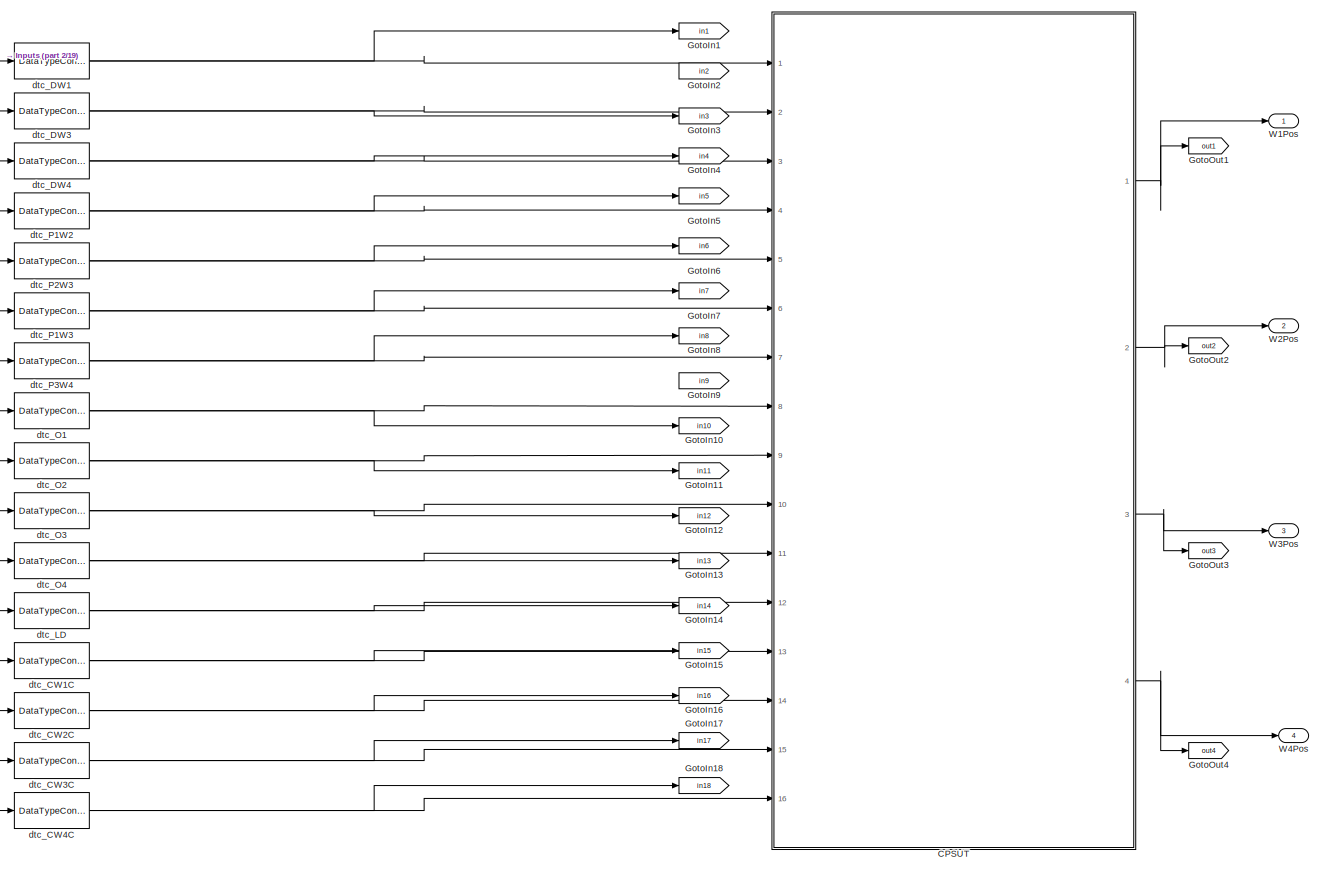
[diagram: root canvas - part 1/19, top left region]
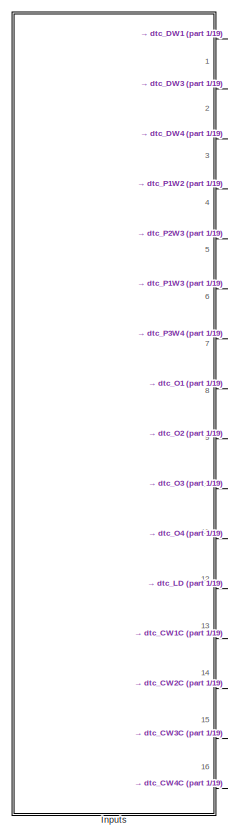
[diagram: root canvas - part 2/19, top left region]
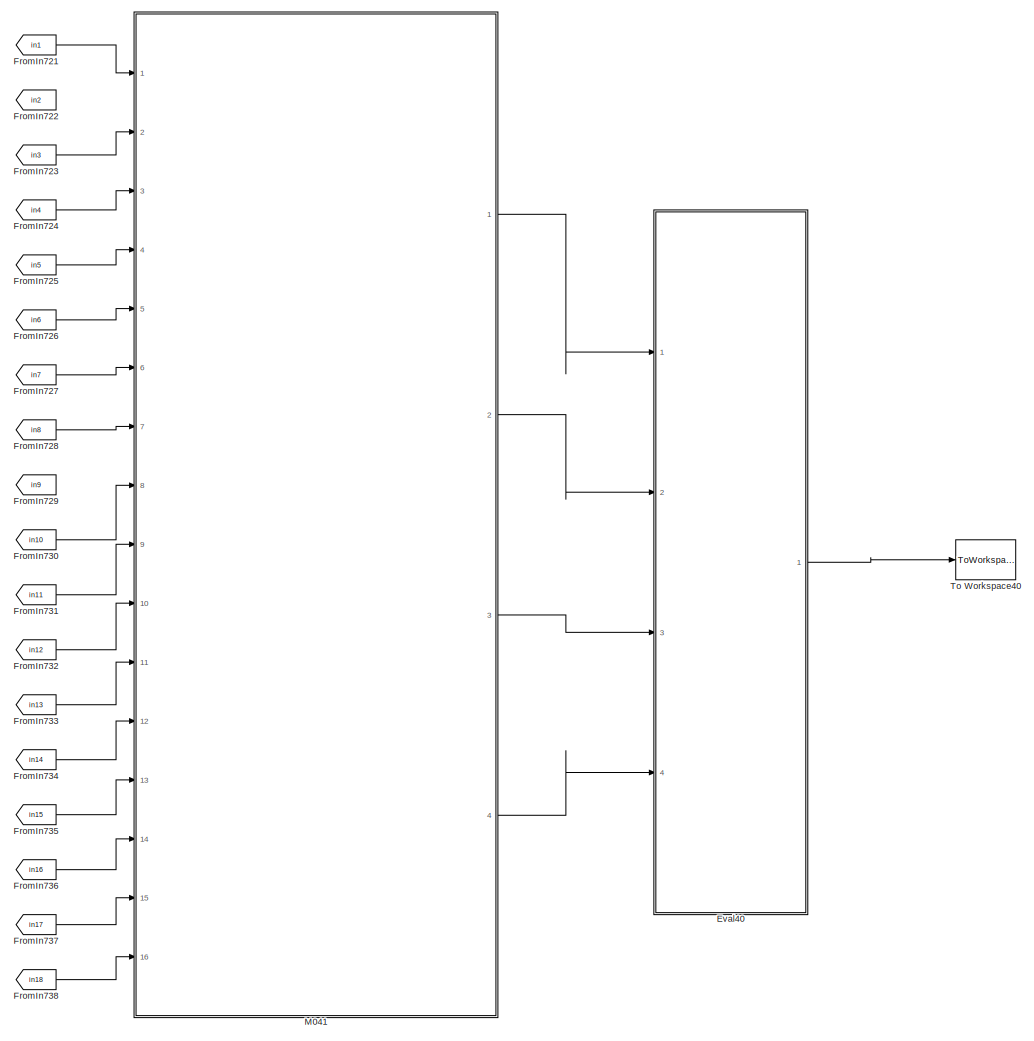
[diagram: root canvas - part 3/19, top right region]
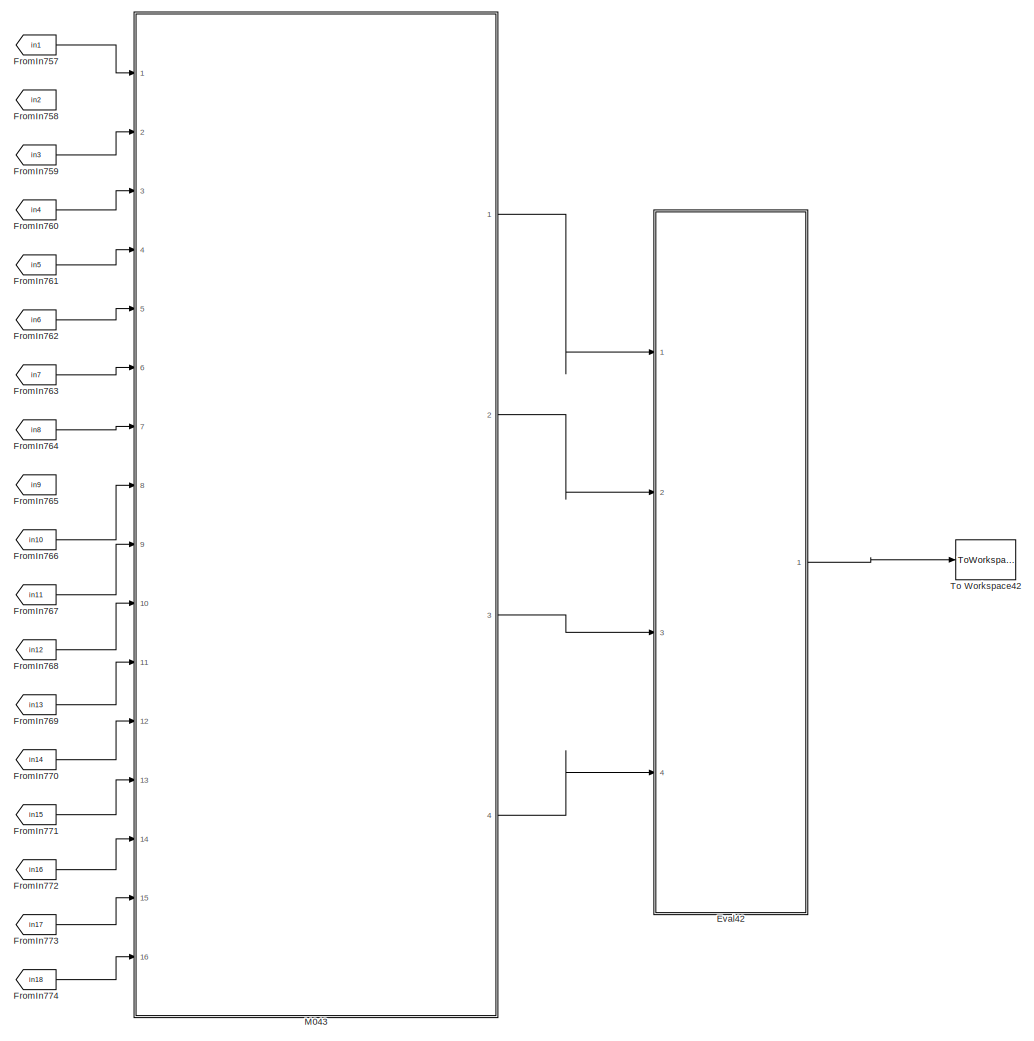
[diagram: root canvas - part 4/19, top right region]
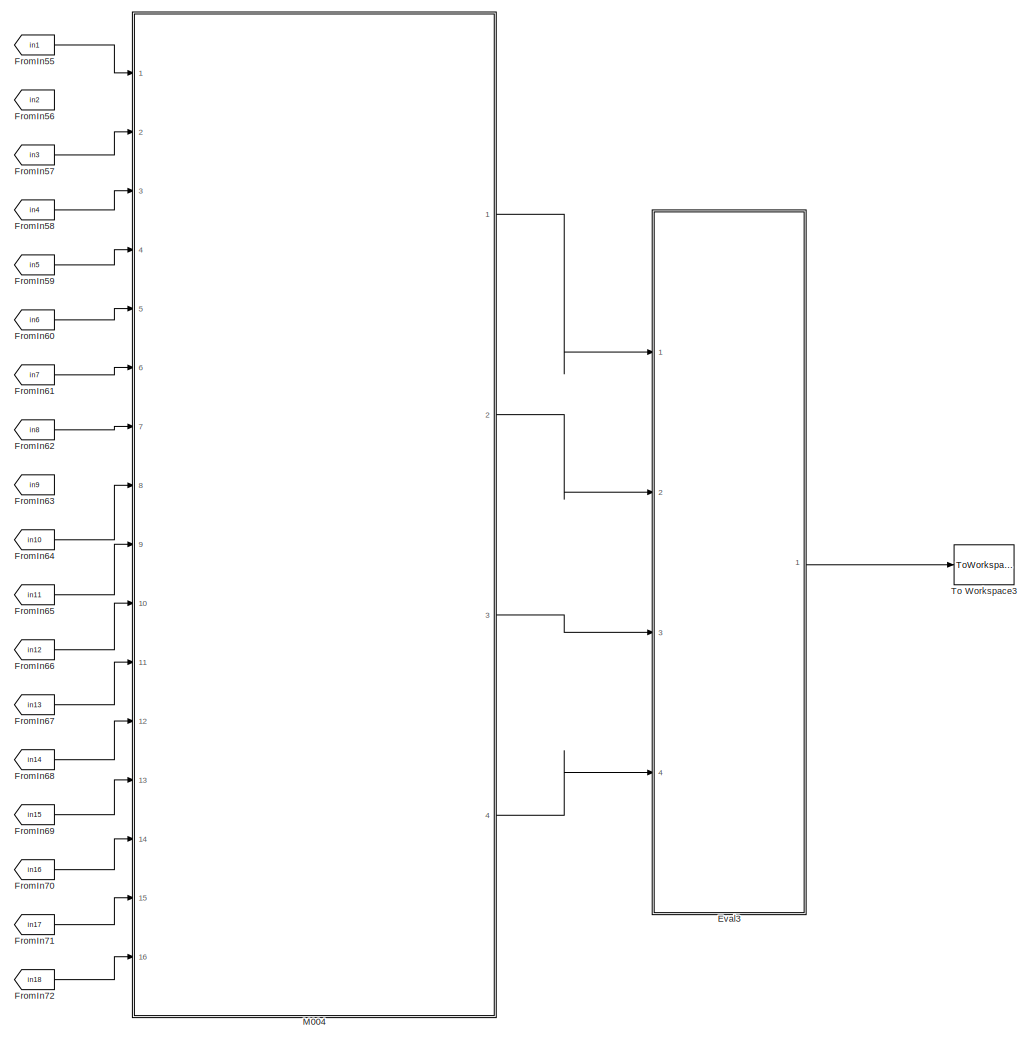
[diagram: root canvas - part 5/19, top center region]
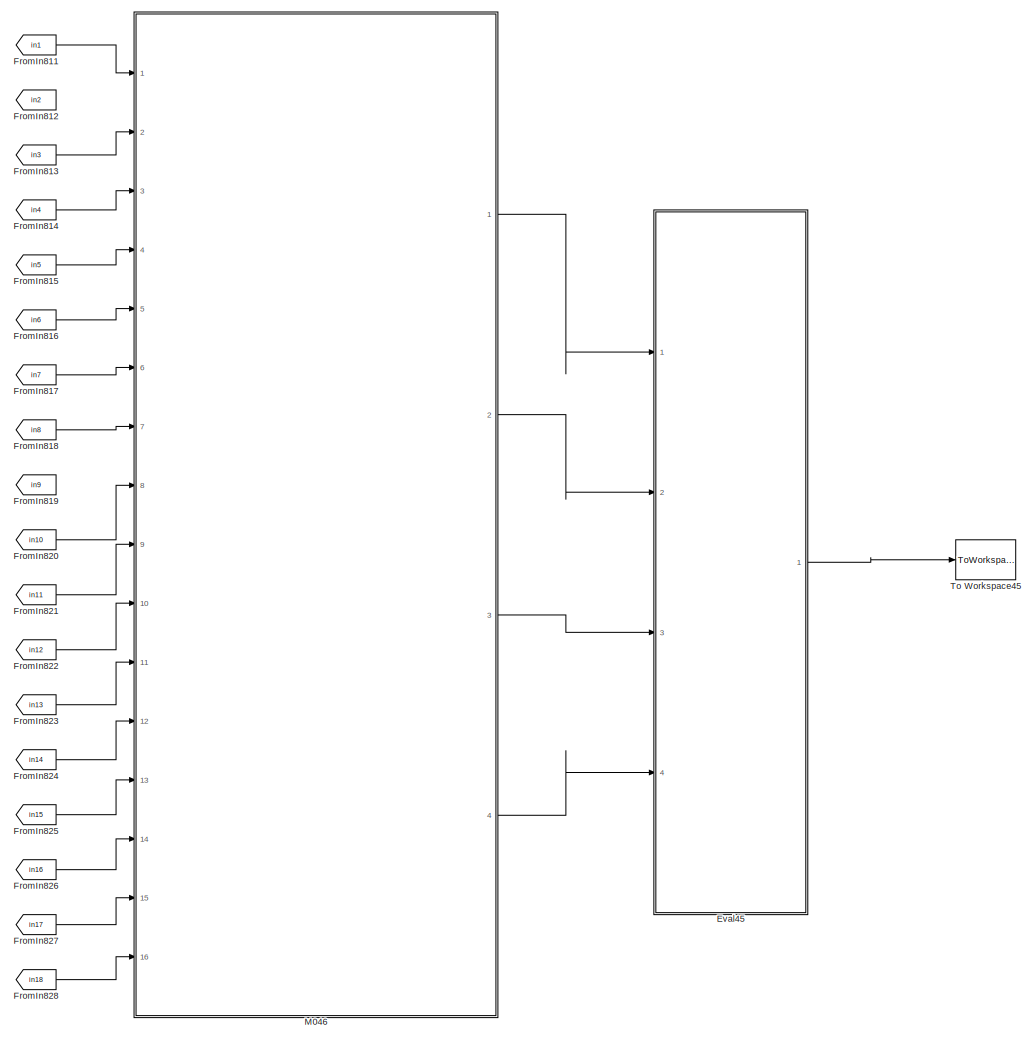
[diagram: root canvas - part 6/19, top right region]
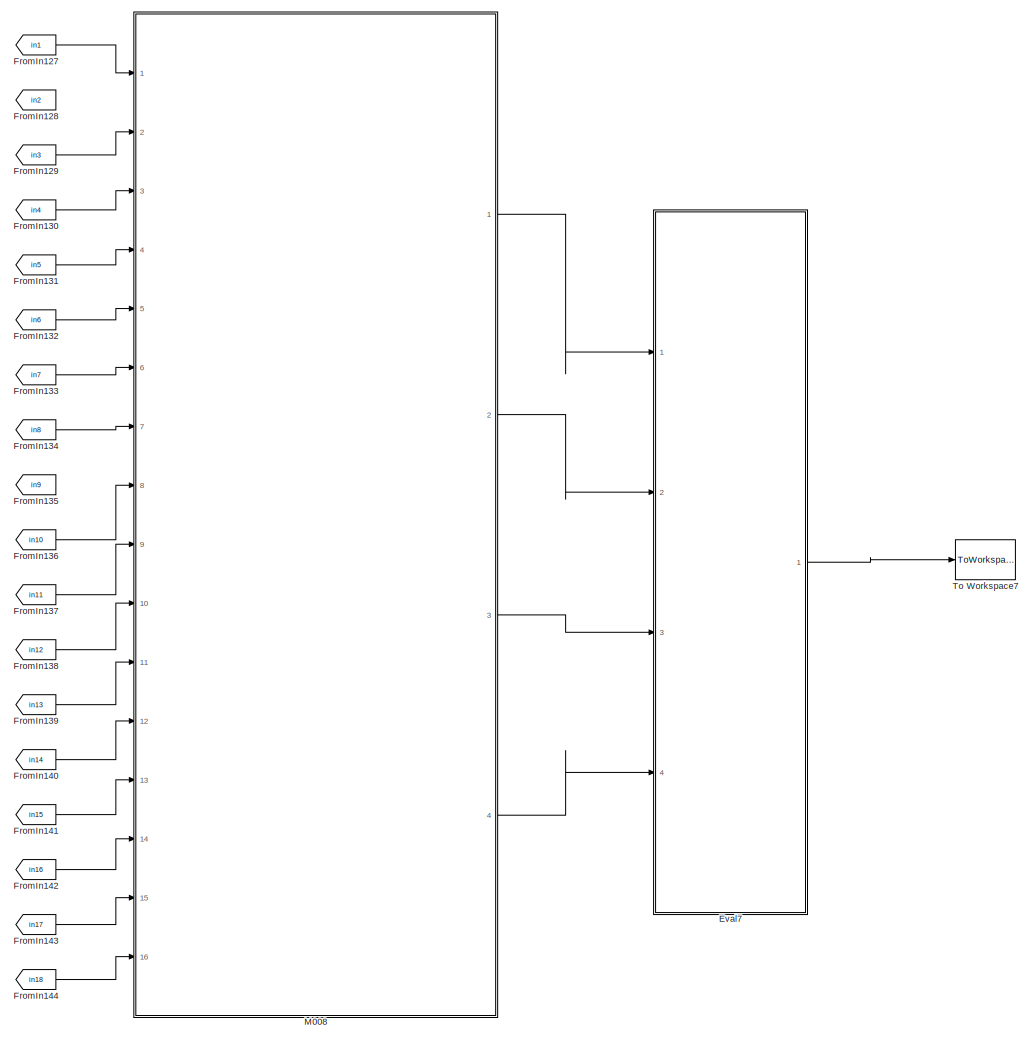
[diagram: root canvas - part 7/19, central region]
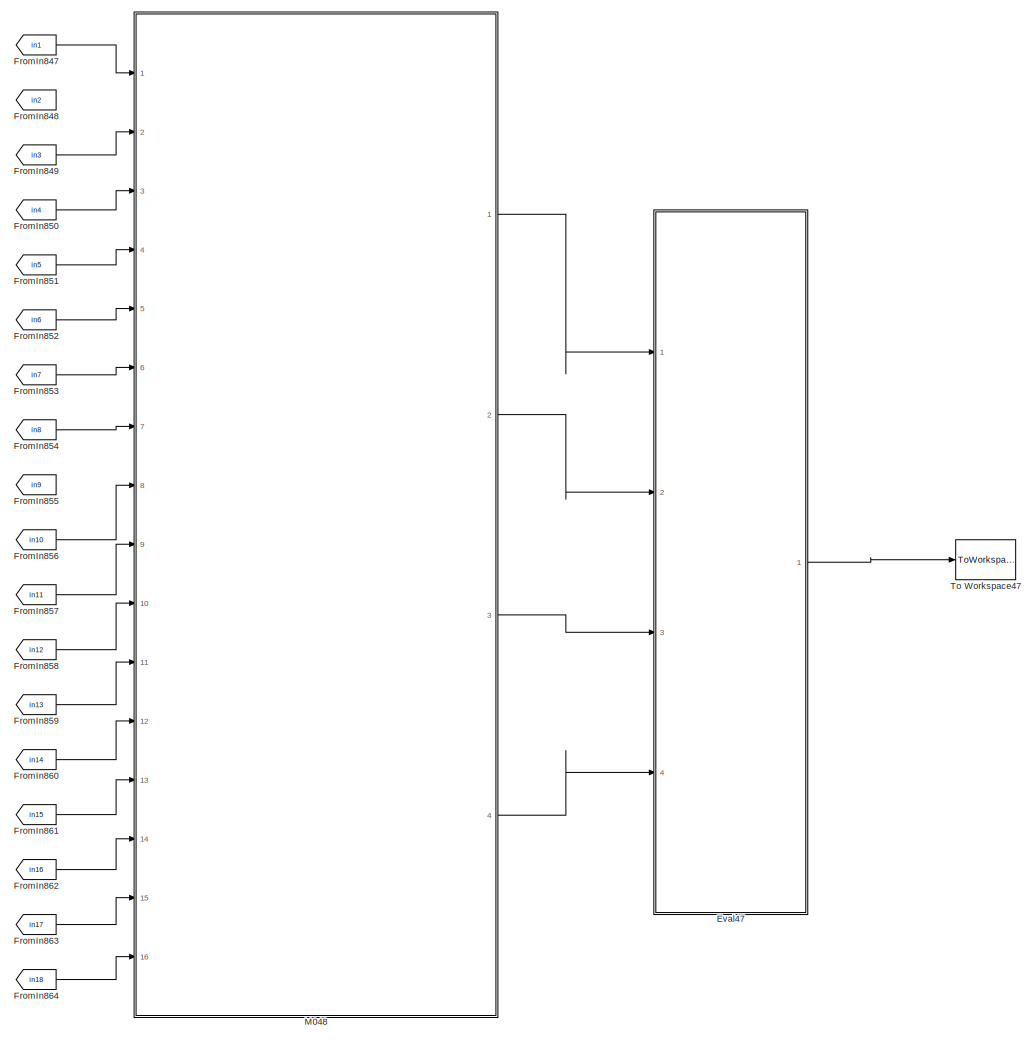
[diagram: root canvas - part 8/19, middle right region]
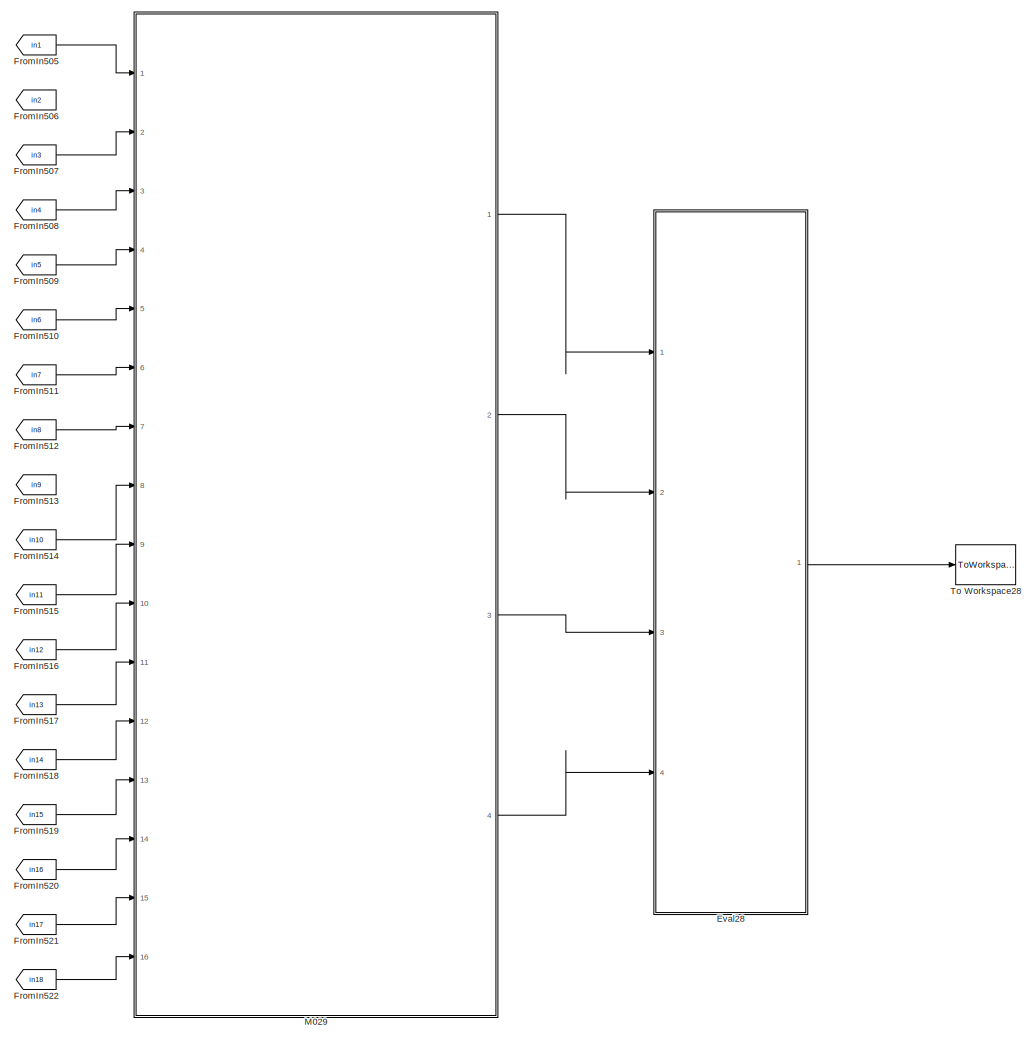
[diagram: root canvas - part 9/19, central region]
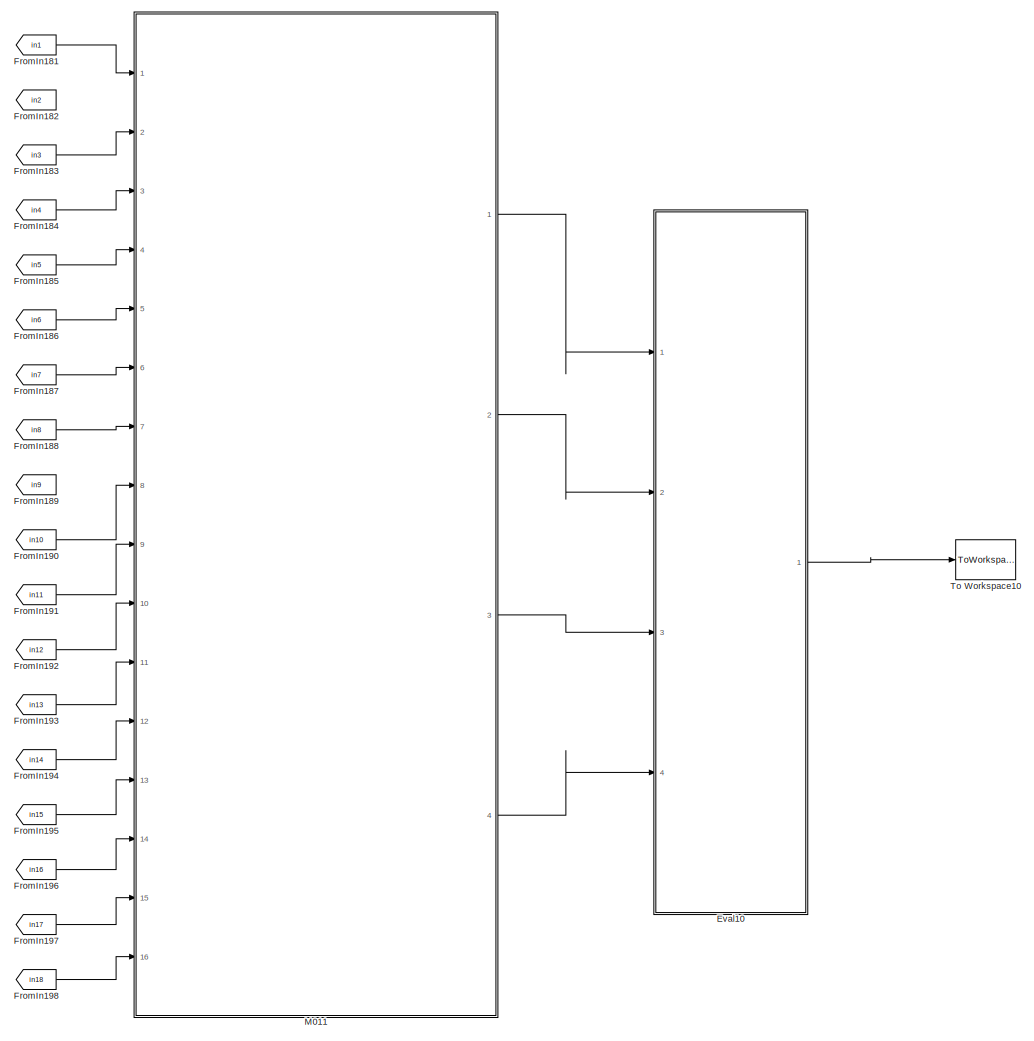
[diagram: root canvas - part 10/19, central region]
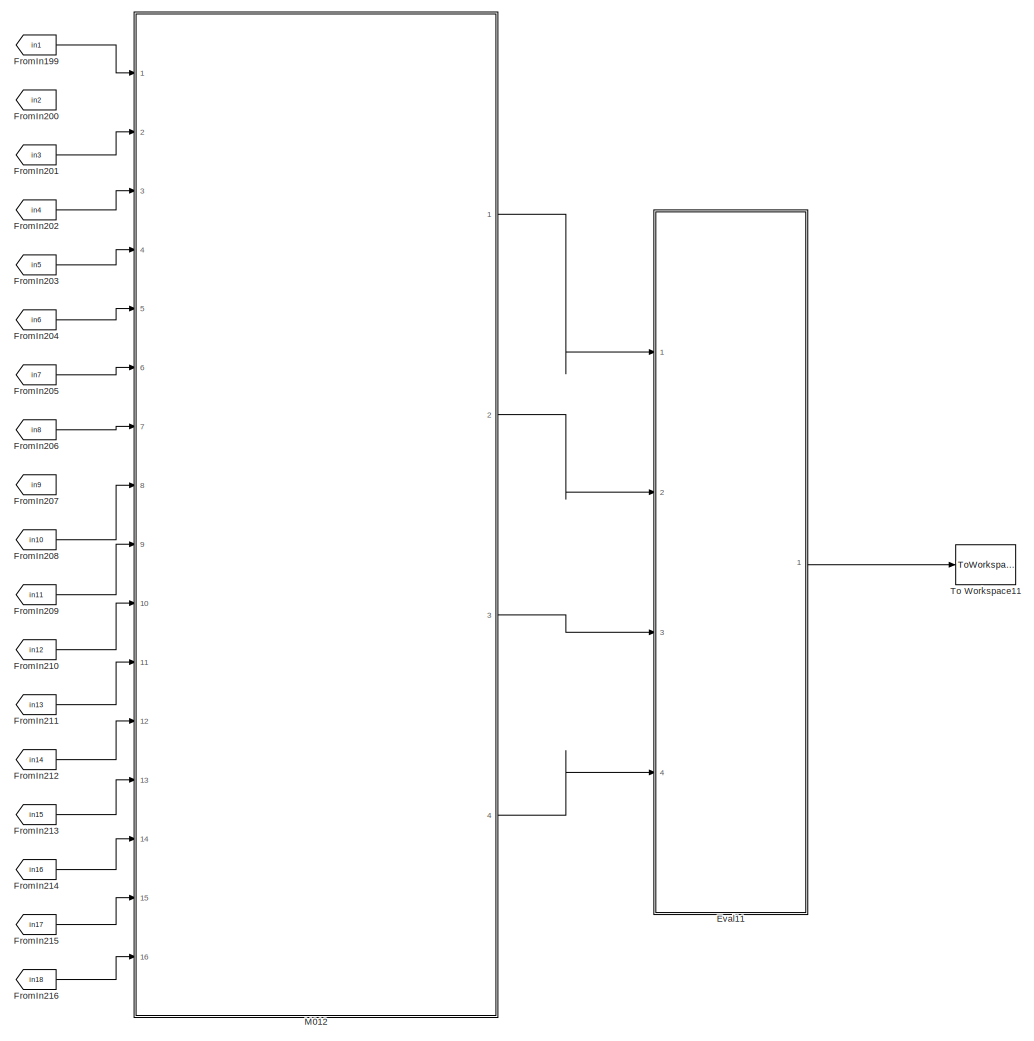
[diagram: root canvas - part 11/19, central region]
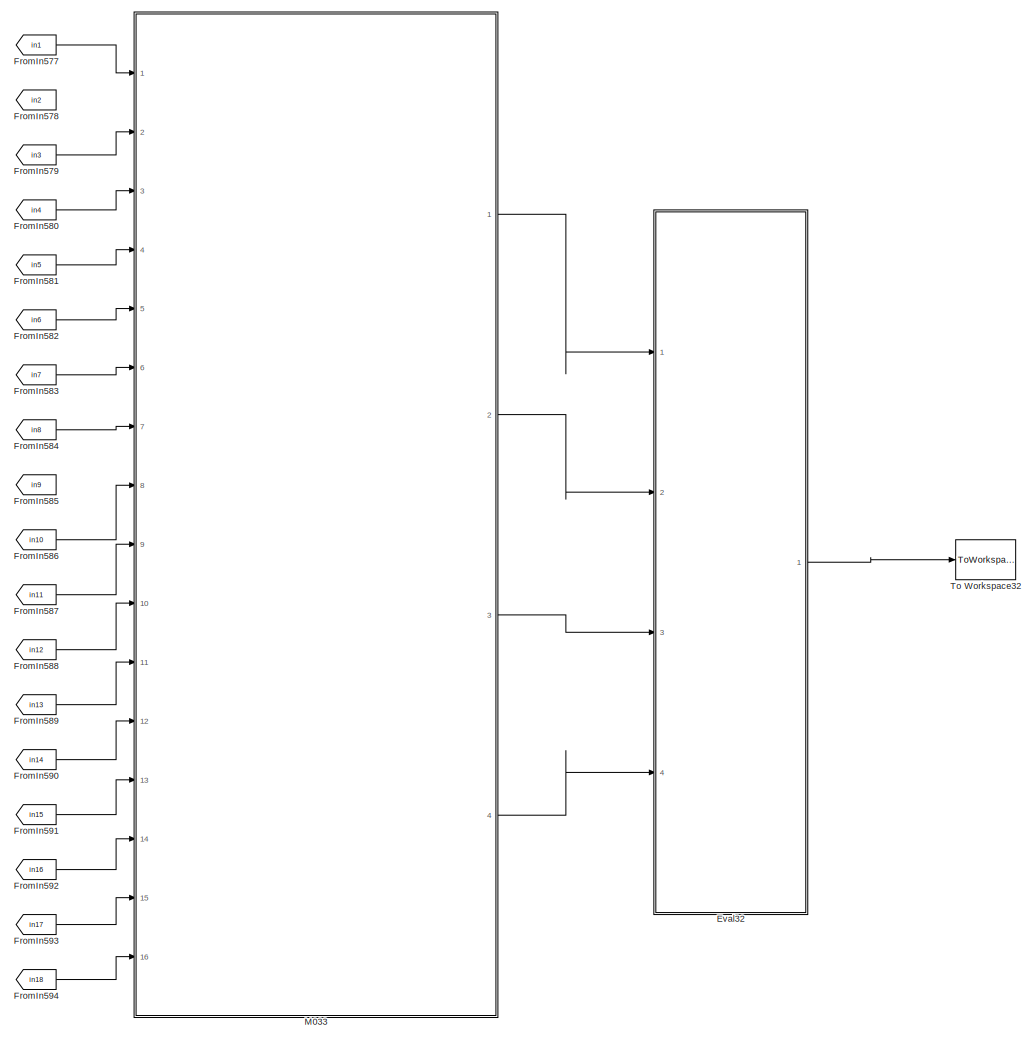
[diagram: root canvas - part 12/19, central region]
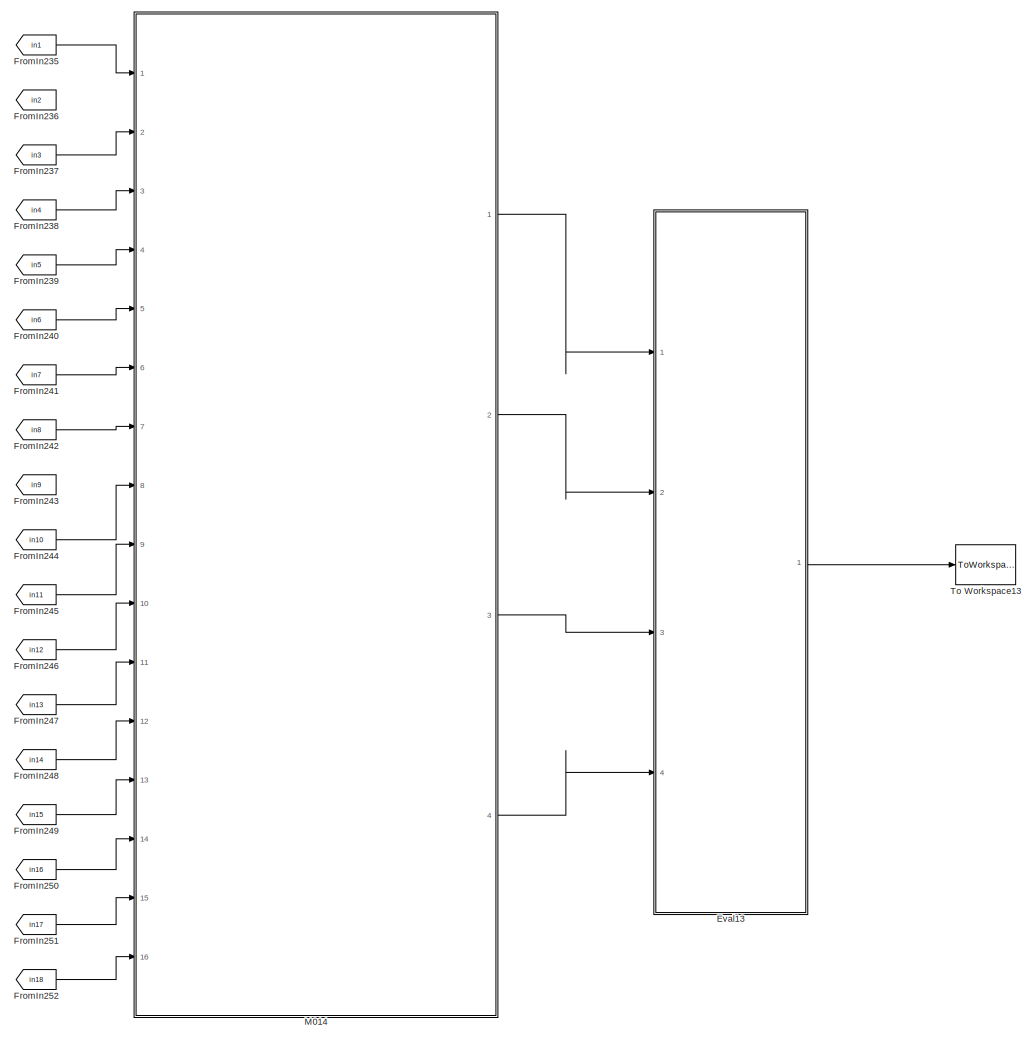
[diagram: root canvas - part 13/19, bottom center region]
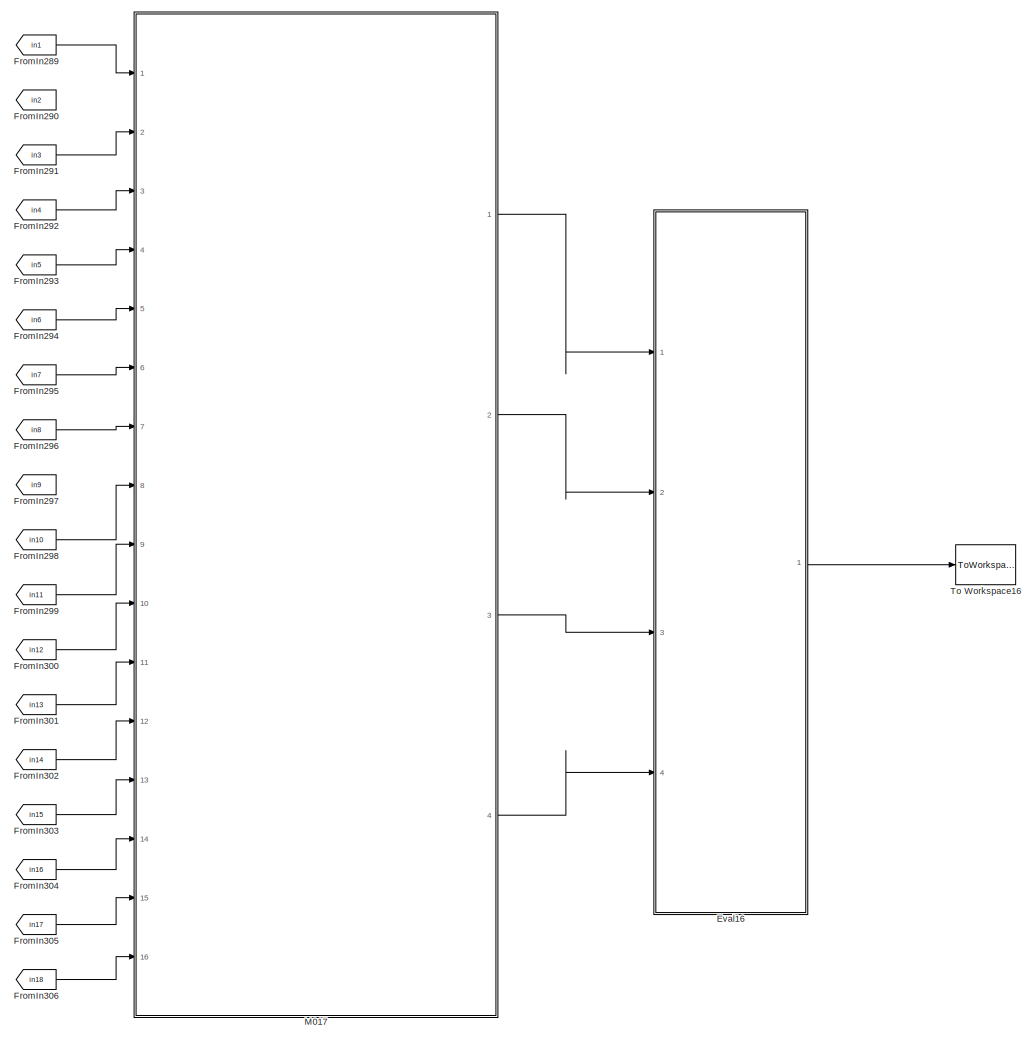
[diagram: root canvas - part 14/19, bottom center region]
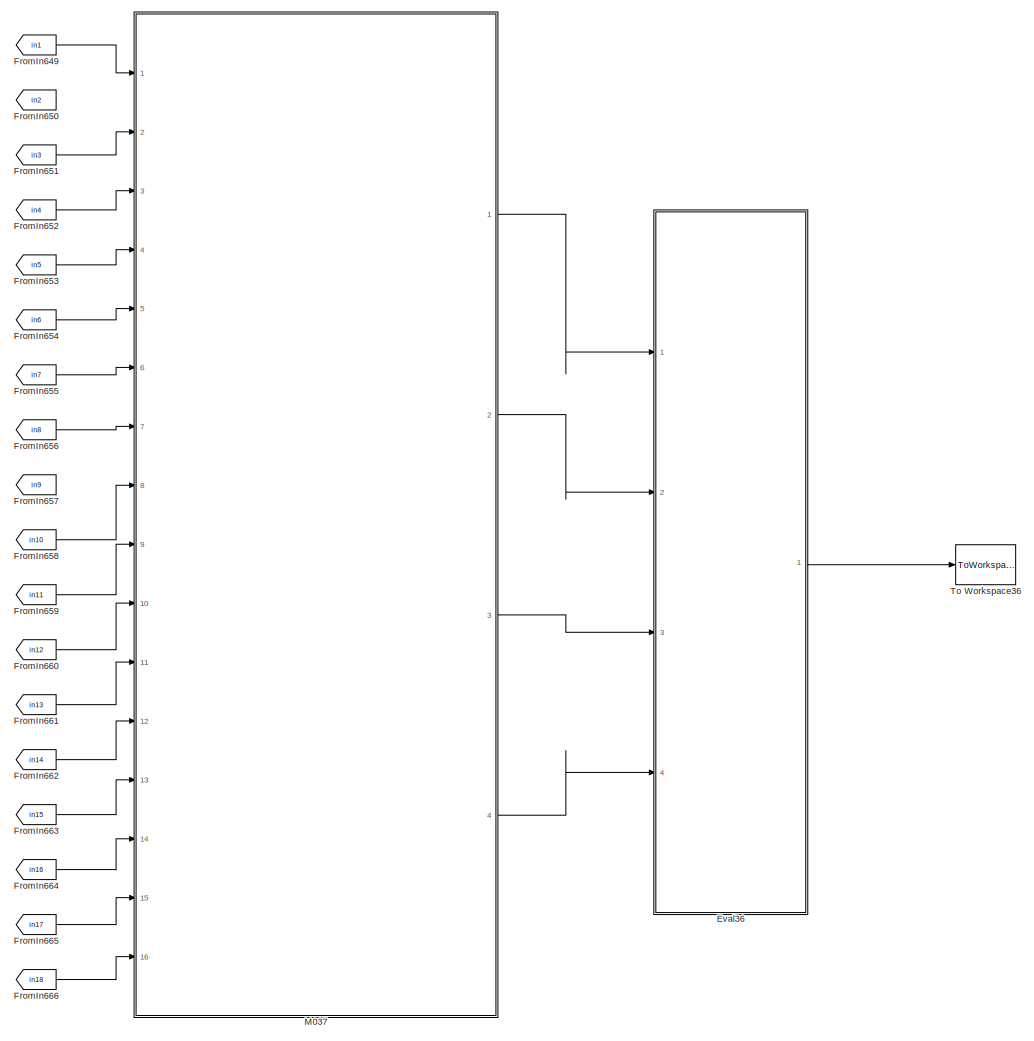
[diagram: root canvas - part 15/19, bottom center region]
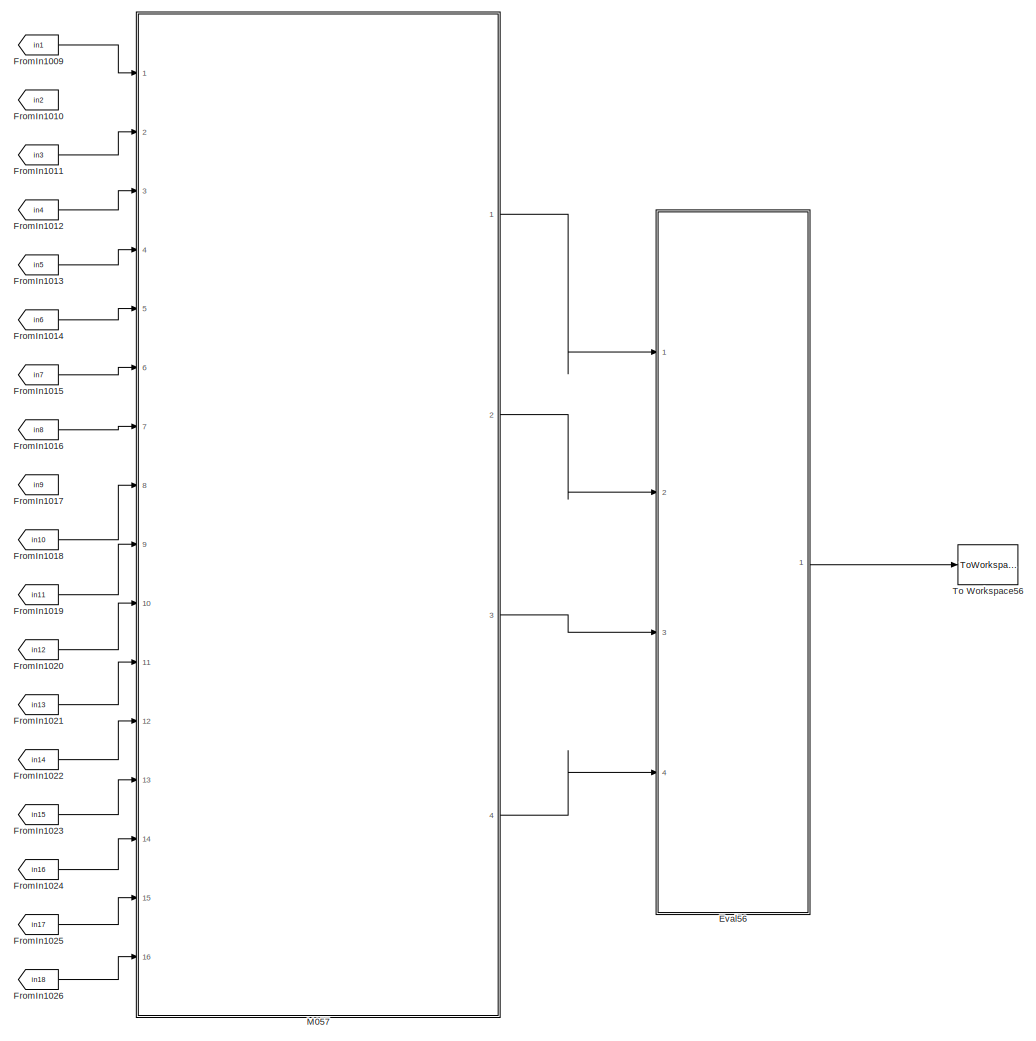
[diagram: root canvas - part 16/19, bottom right region]
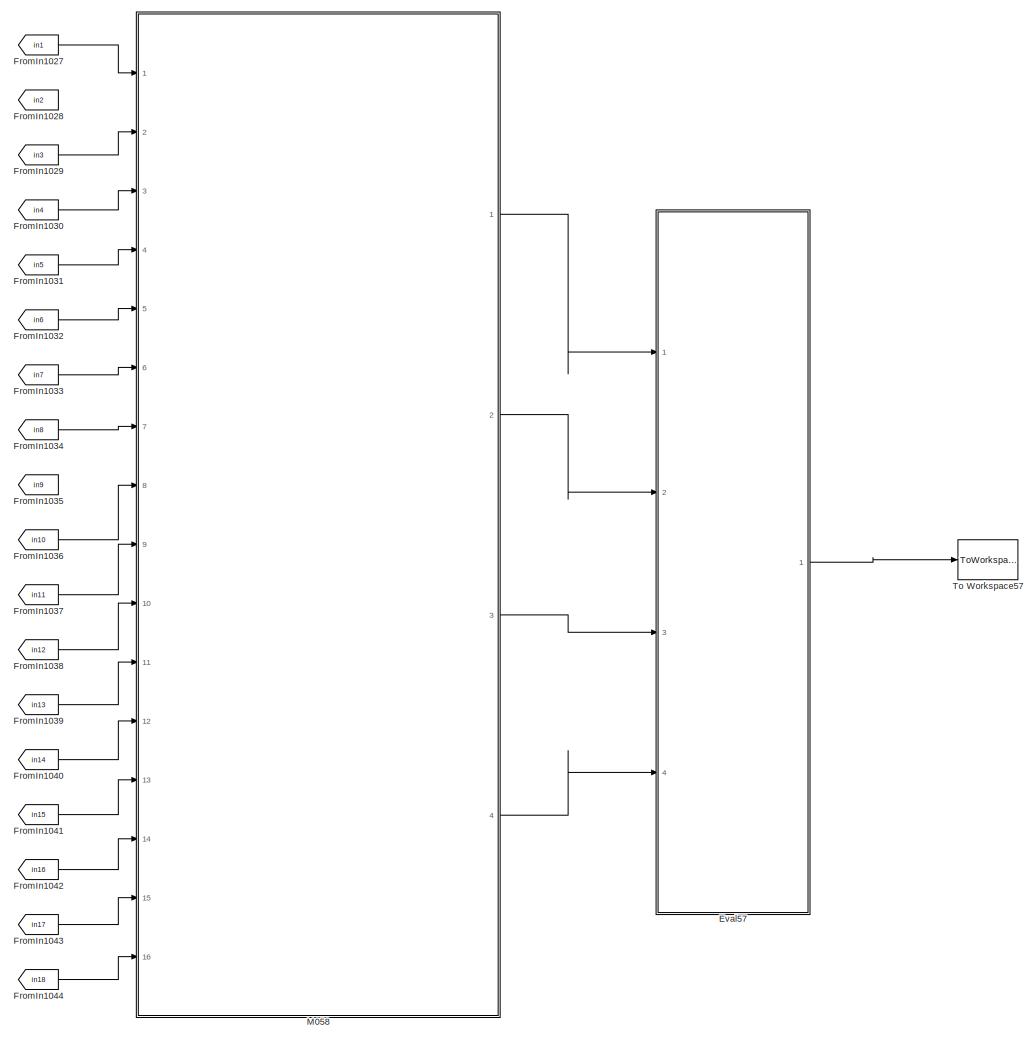
[diagram: root canvas - part 17/19, bottom right region]
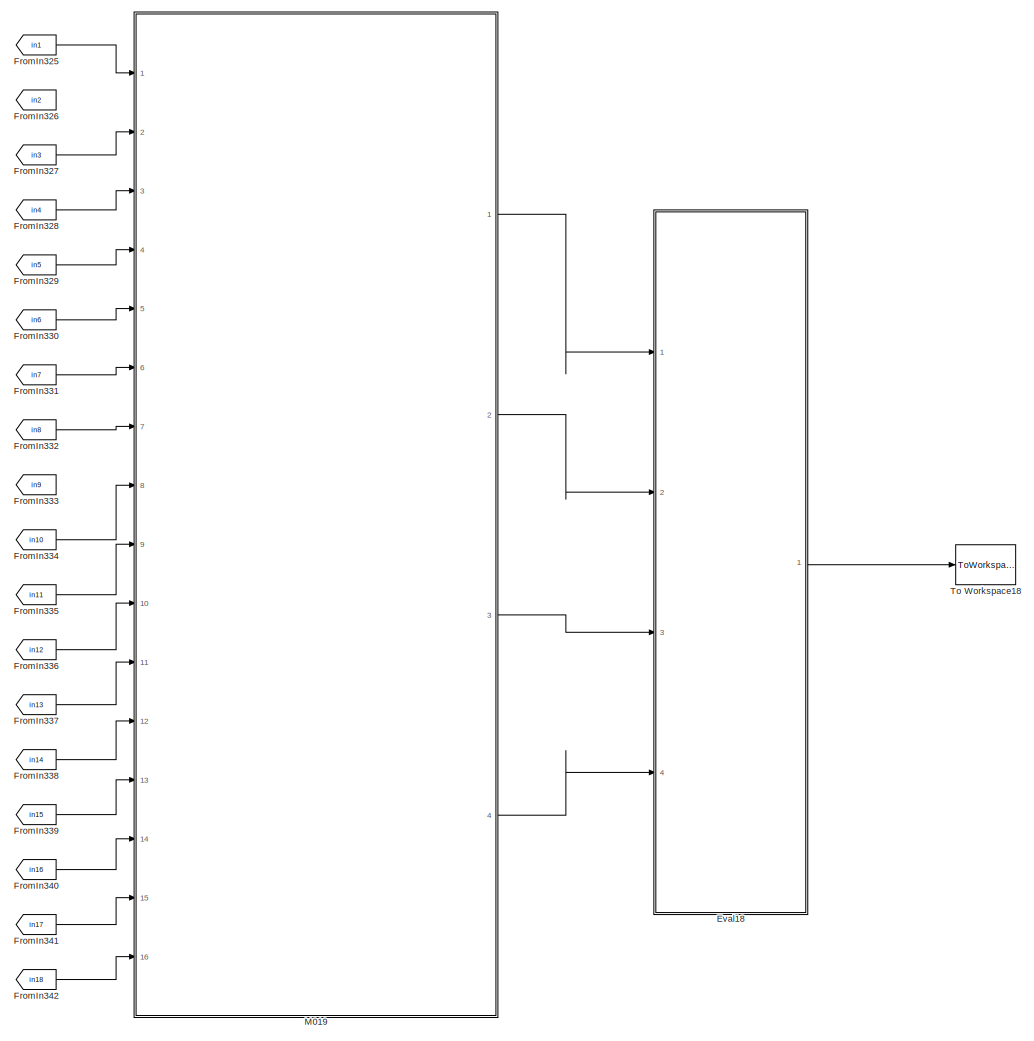
[diagram: root canvas - part 18/19, bottom center region]
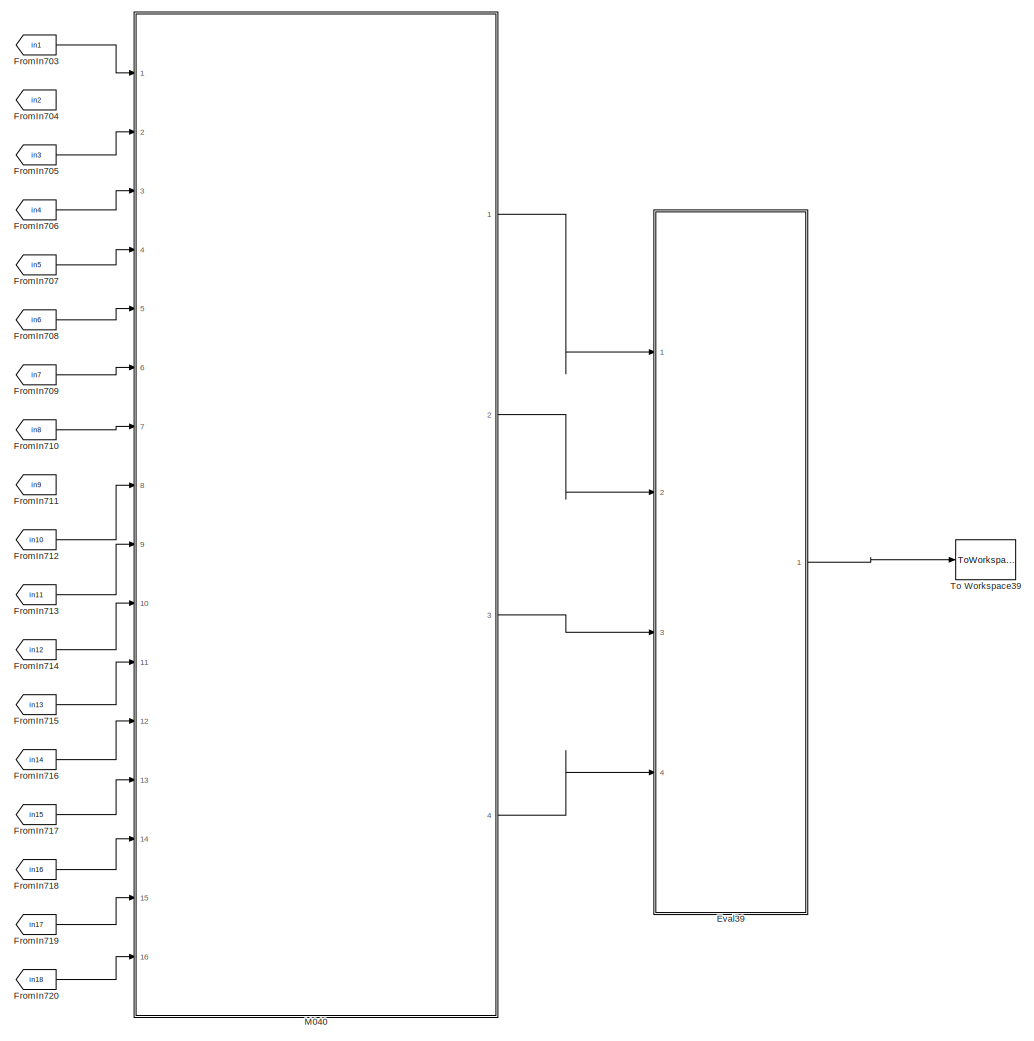
[diagram: root canvas - part 19/19, bottom center region]
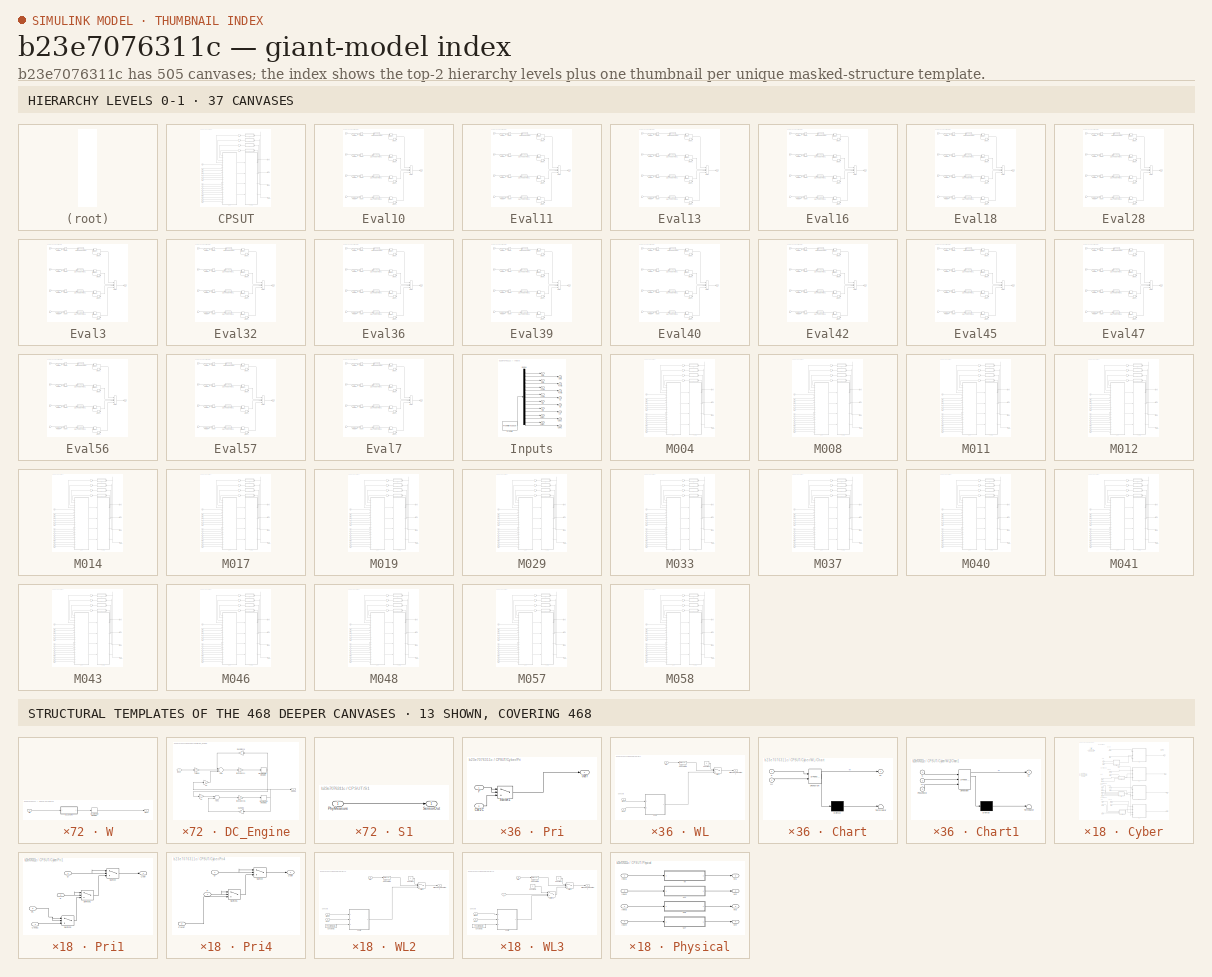
[diagram: thumbnail index - top-2 hierarchy levels (37 canvases) + 13 structural-template representatives of the remaining 468 canvases]
MODEL slx_b23e7076311c
KIND model
CONFIG AbsTol = auto
CONFIG EnableMultiTasking = on
CONFIG FixedStep = auto
CONFIG MaxStep = auto
CONFIG MinStep = auto
CONFIG RelTol = 1e-3
CONFIG SampleTimeConstraint = Unconstrained
CONFIG Solver = ode3
CONFIG SolverName = ode3
CONFIG StartTime = 0.0
CONFIG StopTime = 10.0
BLOCK [SubSystem] CPSUT
  Ports = [16, 4]
  RequestExecContextInheritance = off
BLOCK [Inport] CPSUT/CW1C
  IconDisplay = Port number
  OutDataTypeStr = int8
  OutMax = 4
  OutMin = 0
  Port = 13
BLOCK [Inport] CPSUT/CW2C
  IconDisplay = Port number
  OutDataTypeStr = int8
  OutMax = 4
  OutMin = 0
  Port = 14
BLOCK [Inport] CPSUT/CW3C
  IconDisplay = Port number
  OutDataTypeStr = int8
  OutMax = 4
  OutMin = 0
  Port = 15
BLOCK [Inport] CPSUT/CW4C
  IconDisplay = Port number
  OutDataTypeStr = int8
  OutMax = 4
  OutMin = 0
  Port = 16
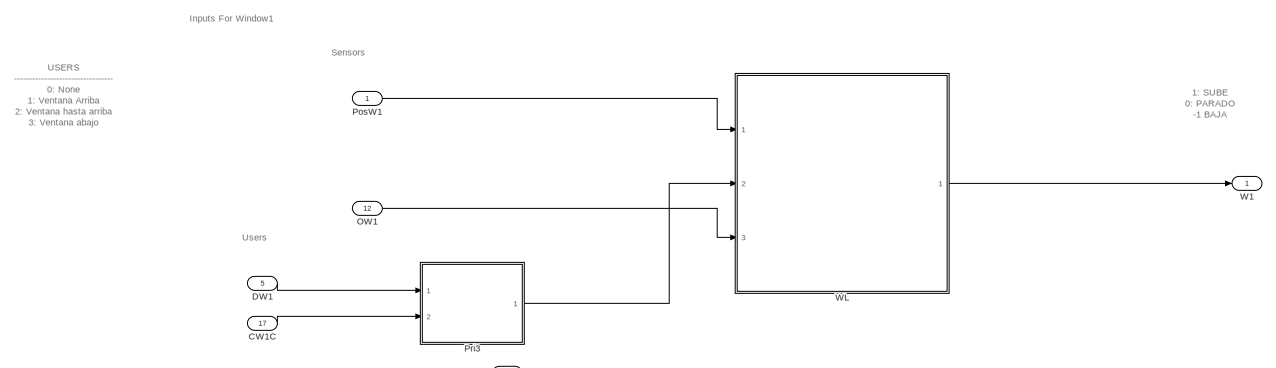
[diagram: CPSUT/Cyber - part 1/3, full width, top band]
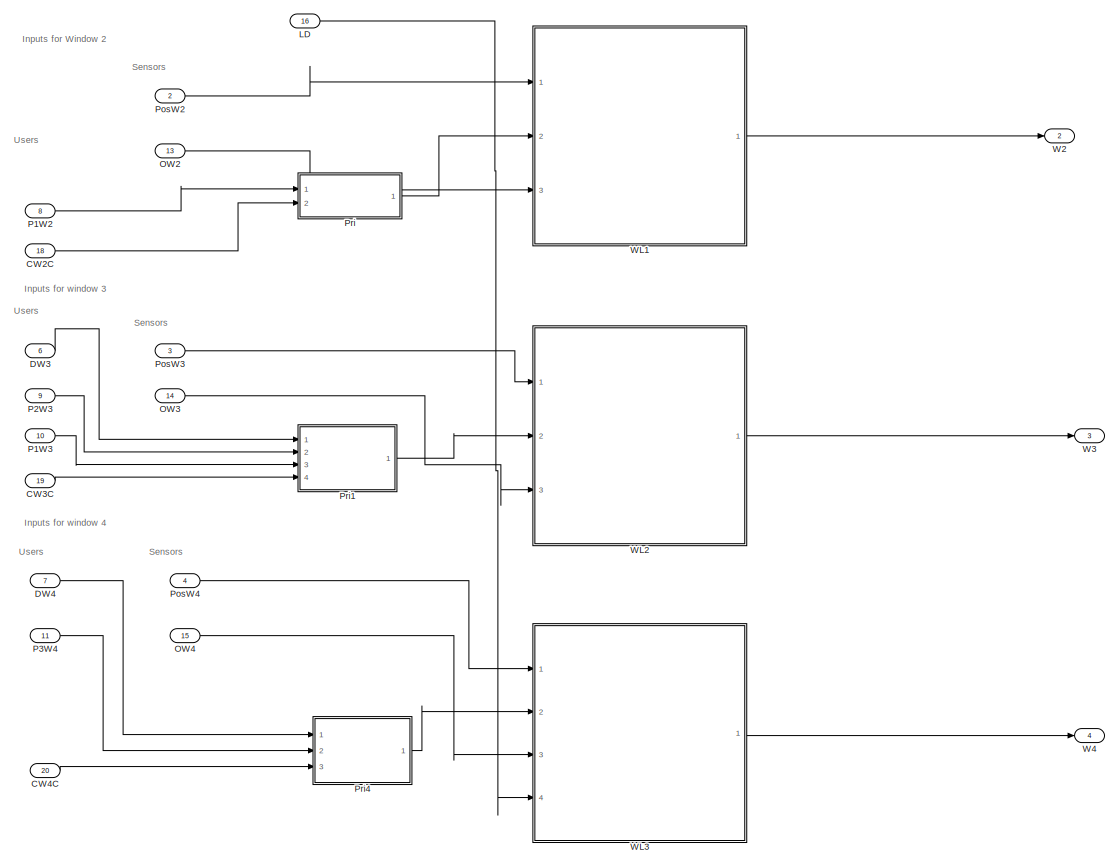
[diagram: CPSUT/Cyber - part 2/3, full width, middle band]
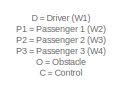
[diagram: CPSUT/Cyber - part 3/3, middle left region]
BLOCK [SubSystem] CPSUT/Cyber
  Ports = [20, 4]
  RequestExecContextInheritance = off
BLOCK [Inport] CPSUT/Cyber/CW1C
  IconDisplay = Port number
  Port = 17
BLOCK [Inport] CPSUT/Cyber/CW2C
  IconDisplay = Port number
  Port = 18
BLOCK [Inport] CPSUT/Cyber/CW3C
  IconDisplay = Port number
  Port = 19
BLOCK [Inport] CPSUT/Cyber/CW4C
  IconDisplay = Port number
  Port = 20
BLOCK [Inport] CPSUT/Cyber/DW1
  IconDisplay = Port number
  Port = 5
BLOCK [Inport] CPSUT/Cyber/DW3
  IconDisplay = Port number
  Port = 6
BLOCK [Inport] CPSUT/Cyber/DW4
  IconDisplay = Port number
  Port = 7
BLOCK [Inport] CPSUT/Cyber/LD
  IconDisplay = Port number
  Port = 16
BLOCK [Inport] CPSUT/Cyber/OW1
  IconDisplay = Port number
  Port = 12
BLOCK [Inport] CPSUT/Cyber/OW2
  IconDisplay = Port number
  Port = 13
BLOCK [Inport] CPSUT/Cyber/OW3
  IconDisplay = Port number
  Port = 14
BLOCK [Inport] CPSUT/Cyber/OW4
  IconDisplay = Port number
  Port = 15
BLOCK [Inport] CPSUT/Cyber/P1W2
  IconDisplay = Port number
  Port = 8
BLOCK [Inport] CPSUT/Cyber/P1W3
  IconDisplay = Port number
  Port = 10
BLOCK [Inport] CPSUT/Cyber/P2W3
  IconDisplay = Port number
  Port = 9
BLOCK [Inport] CPSUT/Cyber/P3W4
  IconDisplay = Port number
  Port = 11
BLOCK [Inport] CPSUT/Cyber/PosW1
  IconDisplay = Port number
BLOCK [Inport] CPSUT/Cyber/PosW2
  IconDisplay = Port number
  Port = 2
BLOCK [Inport] CPSUT/Cyber/PosW3
  IconDisplay = Port number
  Port = 3
BLOCK [Inport] CPSUT/Cyber/PosW4
  IconDisplay = Port number
  Port = 4
BLOCK [SubSystem] CPSUT/Cyber/Pri
  Ports = [2, 1]
  RequestExecContextInheritance = off
BLOCK [Inport] CPSUT/Cyber/Pri/CW2C
  IconDisplay = Port number
  Port = 2
BLOCK [Inport] CPSUT/Cyber/Pri/P
  IconDisplay = Port number
BLOCK [Switch] CPSUT/Cyber/Pri/Switch1
  Criteria = u2 ~= 0
  InputSameDT = off
  SaturateOnIntegerOverflow = off
BLOCK [Outport] CPSUT/Cyber/Pri/User
  IconDisplay = Port number
BLOCK [SubSystem] CPSUT/Cyber/Pri1
  Ports = [4, 1]
  RequestExecContextInheritance = off
BLOCK [Inport] CPSUT/Cyber/Pri1/CW3C
  IconDisplay = Port number
  Port = 4
BLOCK [Inport] CPSUT/Cyber/Pri1/D
  IconDisplay = Port number
BLOCK [Inport] CPSUT/Cyber/Pri1/P
  IconDisplay = Port number
  Port = 2
BLOCK [Inport] CPSUT/Cyber/Pri1/P1
  IconDisplay = Port number
  Port = 3
BLOCK [Switch] CPSUT/Cyber/Pri1/Switch
  Criteria = u2 ~= 0
  InputSameDT = off
  SaturateOnIntegerOverflow = off
BLOCK [Switch] CPSUT/Cyber/Pri1/Switch1
  Criteria = u2 ~= 0
  InputSameDT = off
  SaturateOnIntegerOverflow = off
BLOCK [Switch] CPSUT/Cyber/Pri1/Switch2
  Criteria = u2 ~= 0
  InputSameDT = off
  SaturateOnIntegerOverflow = off
BLOCK [Outport] CPSUT/Cyber/Pri1/User
  IconDisplay = Port number
BLOCK [SubSystem] CPSUT/Cyber/Pri3
  Ports = [2, 1]
  RequestExecContextInheritance = off
BLOCK [Inport] CPSUT/Cyber/Pri3/CW1C
  IconDisplay = Port number
  Port = 2
BLOCK [Inport] CPSUT/Cyber/Pri3/D
  IconDisplay = Port number
BLOCK [Switch] CPSUT/Cyber/Pri3/Switch
  Criteria = u2 ~= 0
  InputSameDT = off
  SaturateOnIntegerOverflow = off
BLOCK [Outport] CPSUT/Cyber/Pri3/User
  IconDisplay = Port number
BLOCK [SubSystem] CPSUT/Cyber/Pri4
  Ports = [3, 1]
  RequestExecContextInheritance = off
BLOCK [Inport] CPSUT/Cyber/Pri4/CW4C
  IconDisplay = Port number
  Port = 3
BLOCK [Inport] CPSUT/Cyber/Pri4/D
  IconDisplay = Port number
BLOCK [Inport] CPSUT/Cyber/Pri4/P
  IconDisplay = Port number
  Port = 2
BLOCK [Switch] CPSUT/Cyber/Pri4/Switch
  Criteria = u2 ~= 0
  InputSameDT = off
  SaturateOnIntegerOverflow = off
BLOCK [Switch] CPSUT/Cyber/Pri4/Switch1
  Criteria = u2 ~= 0
  InputSameDT = off
  SaturateOnIntegerOverflow = off
BLOCK [Outport] CPSUT/Cyber/Pri4/User
  IconDisplay = Port number
BLOCK [Outport] CPSUT/Cyber/W1
  IconDisplay = Port number
BLOCK [Outport] CPSUT/Cyber/W2
  IconDisplay = Port number
  Port = 2
BLOCK [Outport] CPSUT/Cyber/W3
  IconDisplay = Port number
  Port = 3
BLOCK [Outport] CPSUT/Cyber/W4
  IconDisplay = Port number
  Port = 4
BLOCK [SubSystem] CPSUT/Cyber/WL
  Ports = [3, 1]
  RequestExecContextInheritance = off
BLOCK [SubSystem] CPSUT/Cyber/WL/Chart
  ErrorFcn = Stateflow.Translate.translate
  PermitHierarchicalResolution = ExplicitOnly
  Ports = [2, 1]
  RequestExecContextInheritance = off
  SFBlockType = Chart
  TreatAsAtomicUnit = on
BLOCK [Demux] CPSUT/Cyber/WL/Chart/ Demux 
  Outputs = 1
  Ports = [1, 1]
BLOCK [S-Function] CPSUT/Cyber/WL/Chart/ SFunction 
  EnableBusSupport = off
  FunctionName = sf_sfun
  PortCounts = [2 2]
  Ports = [2, 2]
  SFcnIsStateOwnerBlock = off
  SFunctionDeploymentMode = off
  Tag = Stateflow S-Function c00005M_harness 1
BLOCK [Terminator] CPSUT/Cyber/WL/Chart/ Terminator 
BLOCK [Inport] CPSUT/Cyber/WL/Chart/S
  IconDisplay = Port number
BLOCK [Inport] CPSUT/Cyber/WL/Chart/UI
  IconDisplay = Port number
  Port = 2
BLOCK [Outport] CPSUT/Cyber/WL/Chart/W
  IconDisplay = Port number
BLOCK [Constant] CPSUT/Cyber/WL/Constant
  Value = -1
BLOCK [DataTypeConversion] CPSUT/Cyber/WL/Data Type Conversion
  RndMeth = Floor
  SaturateOnIntegerOverflow = off
BLOCK [Inport] CPSUT/Cyber/WL/OW
  IconDisplay = Port number
  Port = 3
BLOCK [Switch] CPSUT/Cyber/WL/Switch
  Criteria = u2 ~= 0
  InputSameDT = off
  SaturateOnIntegerOverflow = off
  Threshold = 1
  ZeroCross = off
BLOCK [Inport] CPSUT/Cyber/WL/User
  IconDisplay = Port number
  Port = 2
BLOCK [Inport] CPSUT/Cyber/WL/WPos
  IconDisplay = Port number
BLOCK [Outport] CPSUT/Cyber/WL/WindowLogicOutput
  IconDisplay = Port number
BLOCK [SubSystem] CPSUT/Cyber/WL1
  Ports = [3, 1]
  RequestExecContextInheritance = off
BLOCK [SubSystem] CPSUT/Cyber/WL1/Chart1
  ErrorFcn = Stateflow.Translate.translate
  PermitHierarchicalResolution = ExplicitOnly
  Ports = [2, 1]
  RequestExecContextInheritance = off
  SFBlockType = Chart
  TreatAsAtomicUnit = on
BLOCK [Demux] CPSUT/Cyber/WL1/Chart1/ Demux 
  Outputs = 1
  Ports = [1, 1]
BLOCK [S-Function] CPSUT/Cyber/WL1/Chart1/ SFunction 
  EnableBusSupport = off
  FunctionName = sf_sfun
  PortCounts = [2 2]
  Ports = [2, 2]
  SFcnIsStateOwnerBlock = off
  SFunctionDeploymentMode = off
  Tag = Stateflow S-Function c00005M_harness 3
BLOCK [Terminator] CPSUT/Cyber/WL1/Chart1/ Terminator 
BLOCK [Inport] CPSUT/Cyber/WL1/Chart1/S
  IconDisplay = Port number
BLOCK [Inport] CPSUT/Cyber/WL1/Chart1/UI
  IconDisplay = Port number
  Port = 2
BLOCK [Outport] CPSUT/Cyber/WL1/Chart1/W
  IconDisplay = Port number
BLOCK [Constant] CPSUT/Cyber/WL1/Constant
  Value = -1
BLOCK [DataTypeConversion] CPSUT/Cyber/WL1/Data Type Conversion
  RndMeth = Floor
  SaturateOnIntegerOverflow = off
BLOCK [Inport] CPSUT/Cyber/WL1/OW
  IconDisplay = Port number
  Port = 3
BLOCK [Switch] CPSUT/Cyber/WL1/Switch
  Criteria = u2 ~= 0
  InputSameDT = off
  SaturateOnIntegerOverflow = off
  Threshold = 1
  ZeroCross = off
BLOCK [Inport] CPSUT/Cyber/WL1/User
  IconDisplay = Port number
  Port = 2
BLOCK [Inport] CPSUT/Cyber/WL1/WPos
  IconDisplay = Port number
BLOCK [Outport] CPSUT/Cyber/WL1/WindowLogicOutput
  IconDisplay = Port number
BLOCK [SubSystem] CPSUT/Cyber/WL2
  Ports = [3, 1]
  RequestExecContextInheritance = off
BLOCK [SubSystem] CPSUT/Cyber/WL2/Chart1
  ErrorFcn = Stateflow.Translate.translate
  PermitHierarchicalResolution = ExplicitOnly
  Ports = [3, 1]
  RequestExecContextInheritance = off
  SFBlockType = Chart
  TreatAsAtomicUnit = on
BLOCK [Demux] CPSUT/Cyber/WL2/Chart1/ Demux 
  Outputs = 1
  Ports = [1, 1]
BLOCK [S-Function] CPSUT/Cyber/WL2/Chart1/ SFunction 
  EnableBusSupport = off
  FunctionName = sf_sfun
  PortCounts = [3 2]
  Ports = [3, 2]
  SFcnIsStateOwnerBlock = off
  SFunctionDeploymentMode = off
  Tag = Stateflow S-Function c00005M_harness 2
BLOCK [Terminator] CPSUT/Cyber/WL2/Chart1/ Terminator 
BLOCK [Inport] CPSUT/Cyber/WL2/Chart1/PosMinW3
  IconDisplay = Port number
  Port = 3
BLOCK [Inport] CPSUT/Cyber/WL2/Chart1/S
  IconDisplay = Port number
BLOCK [Inport] CPSUT/Cyber/WL2/Chart1/UI
  IconDisplay = Port number
  Port = 2
BLOCK [Outport] CPSUT/Cyber/WL2/Chart1/W
  IconDisplay = Port number
BLOCK [Constant] CPSUT/Cyber/WL2/Constant
  Value = -1
BLOCK [Constant] CPSUT/Cyber/WL2/Constant2
  Value = PosMinimaW3
BLOCK [DataTypeConversion] CPSUT/Cyber/WL2/Data Type Conversion
  RndMeth = Floor
  SaturateOnIntegerOverflow = off
BLOCK [Inport] CPSUT/Cyber/WL2/OW
  IconDisplay = Port number
  Port = 3
BLOCK [Switch] CPSUT/Cyber/WL2/Switch
  Criteria = u2 ~= 0
  InputSameDT = off
  SaturateOnIntegerOverflow = off
  Threshold = 1
  ZeroCross = off
BLOCK [Inport] CPSUT/Cyber/WL2/User
  IconDisplay = Port number
  Port = 2
BLOCK [Inport] CPSUT/Cyber/WL2/WPos
  IconDisplay = Port number
BLOCK [Outport] CPSUT/Cyber/WL2/WindowLogicOutput
  IconDisplay = Port number
BLOCK [SubSystem] CPSUT/Cyber/WL3
  Ports = [4, 1]
  RequestExecContextInheritance = off
BLOCK [SubSystem] CPSUT/Cyber/WL3/Chart2
  ErrorFcn = Stateflow.Translate.translate
  PermitHierarchicalResolution = ExplicitOnly
  Ports = [3, 1]
  RequestExecContextInheritance = off
  SFBlockType = Chart
  TreatAsAtomicUnit = on
BLOCK [Demux] CPSUT/Cyber/WL3/Chart2/ Demux 
  Outputs = 1
  Ports = [1, 1]
BLOCK [S-Function] CPSUT/Cyber/WL3/Chart2/ SFunction 
  EnableBusSupport = off
  FunctionName = sf_sfun
  PortCounts = [3 2]
  Ports = [3, 2]
  SFcnIsStateOwnerBlock = off
  SFunctionDeploymentMode = off
  Tag = Stateflow S-Function c00005M_harness 4
BLOCK [Terminator] CPSUT/Cyber/WL3/Chart2/ Terminator 
BLOCK [Inport] CPSUT/Cyber/WL3/Chart2/PosMinW4
  IconDisplay = Port number
  Port = 3
BLOCK [Inport] CPSUT/Cyber/WL3/Chart2/S
  IconDisplay = Port number
BLOCK [Inport] CPSUT/Cyber/WL3/Chart2/UI
  IconDisplay = Port number
  Port = 2
BLOCK [Outport] CPSUT/Cyber/WL3/Chart2/W
  IconDisplay = Port number
BLOCK [Constant] CPSUT/Cyber/WL3/Constant
  Value = -1
BLOCK [Constant] CPSUT/Cyber/WL3/Constant1
  Value = 0
BLOCK [Constant] CPSUT/Cyber/WL3/Constant2
  Value = PosMinimaW4
BLOCK [DataTypeConversion] CPSUT/Cyber/WL3/Data Type Conversion
  RndMeth = Floor
  SaturateOnIntegerOverflow = off
BLOCK [Inport] CPSUT/Cyber/WL3/L
  IconDisplay = Port number
  Port = 4
BLOCK [Inport] CPSUT/Cyber/WL3/OW
  IconDisplay = Port number
  Port = 3
BLOCK [Switch] CPSUT/Cyber/WL3/Switch
  Criteria = u2 ~= 0
  InputSameDT = off
  SaturateOnIntegerOverflow = off
  Threshold = 1
  ZeroCross = off
BLOCK [Switch] CPSUT/Cyber/WL3/Switch1
  Criteria = u2 ~= 0
  InputSameDT = off
  SaturateOnIntegerOverflow = off
BLOCK [Inport] CPSUT/Cyber/WL3/User
  IconDisplay = Port number
  Port = 2
BLOCK [Inport] CPSUT/Cyber/WL3/WPos
  IconDisplay = Port number
BLOCK [Outport] CPSUT/Cyber/WL3/WindowLogicOutput
  IconDisplay = Port number
BLOCK [Inport] CPSUT/DW1
  IconDisplay = Port number
  OutDataTypeStr = int8
  OutMax = 4
  OutMin = 0
BLOCK [Inport] CPSUT/DW3
  IconDisplay = Port number
  OutDataTypeStr = int8
  OutMax = 4
  OutMin = 0
  Port = 2
BLOCK [Inport] CPSUT/DW4
  IconDisplay = Port number
  OutDataTypeStr = int8
  OutMax = 4
  OutMin = 0
  Port = 3
BLOCK [Inport] CPSUT/LD
  IconDisplay = Port number
  OutDataTypeStr = boolean
  Port = 12
BLOCK [Memory] CPSUT/M
BLOCK [Memory] CPSUT/M1
BLOCK [Memory] CPSUT/M2
BLOCK [Memory] CPSUT/M3
BLOCK [Inport] CPSUT/O1
  IconDisplay = Port number
  OutDataTypeStr = boolean
  Port = 8
BLOCK [Inport] CPSUT/O2
  IconDisplay = Port number
  OutDataTypeStr = boolean
  Port = 9
BLOCK [Inport] CPSUT/O3
  IconDisplay = Port number
  OutDataTypeStr = boolean
  Port = 10
BLOCK [Inport] CPSUT/O4
  IconDisplay = Port number
  OutDataTypeStr = boolean
  Port = 11
BLOCK [Inport] CPSUT/P1W2
  IconDisplay = Port number
  OutDataTypeStr = int8
  OutMax = 4
  OutMin = 0
  Port = 4
BLOCK [Inport] CPSUT/P1W3
  IconDisplay = Port number
  OutDataTypeStr = int8
  OutMax = 4
  OutMin = 0
  Port = 6
BLOCK [Inport] CPSUT/P2W3
  IconDisplay = Port number
  OutDataTypeStr = int8
  OutMax = 4
  OutMin = 0
  Port = 5
BLOCK [Inport] CPSUT/P3W4
  IconDisplay = Port number
  OutDataTypeStr = int8
  OutMax = 4
  OutMin = 0
  Port = 7
BLOCK [SubSystem] CPSUT/Physical
  Ports = [4, 4]
  RequestExecContextInheritance = off
BLOCK [Inport] CPSUT/Physical/InW1
  IconDisplay = Port number
BLOCK [Inport] CPSUT/Physical/InW2
  IconDisplay = Port number
  Port = 2
BLOCK [Inport] CPSUT/Physical/InW3
  IconDisplay = Port number
  Port = 3
BLOCK [Inport] CPSUT/Physical/InW4
  IconDisplay = Port number
  Port = 4
BLOCK [SubSystem] CPSUT/Physical/W
  Ports = [1, 1]
  RequestExecContextInheritance = off
BLOCK [SubSystem] CPSUT/Physical/W/DC_Engine
  Ports = [1, 1]
  RequestExecContextInheritance = off
BLOCK [Gain] CPSUT/Physical/W/DC_Engine/(Inductance)
  Gain = 1/L
  OutDataTypeStr = Inherit: Inherit via internal rule
  ParamDataTypeStr = Inherit: Inherit via internal rule
  SaturateOnIntegerOverflow = off
BLOCK [Gain] CPSUT/Physical/W/DC_Engine/(Inductance)1
  Gain = 1/J
  OutDataTypeStr = Inherit: Inherit via internal rule
  ParamDataTypeStr = Inherit: Inherit via internal rule
  SaturateOnIntegerOverflow = off
BLOCK [Sum] CPSUT/Physical/W/DC_Engine/Add
  InputSameDT = off
  Inputs = -+-
  OutDataTypeStr = Inherit: Inherit via internal rule
  Ports = [3, 1]
  SaturateOnIntegerOverflow = off
BLOCK [Sum] CPSUT/Physical/W/DC_Engine/Add1
  InputSameDT = off
  Inputs = +-
  OutDataTypeStr = Inherit: Inherit via internal rule
  Ports = [2, 1]
  SaturateOnIntegerOverflow = off
BLOCK [Gain] CPSUT/Physical/W/DC_Engine/Damping
  Gain = b
  OutDataTypeStr = Inherit: Inherit via internal rule
  ParamDataTypeStr = Inherit: Inherit via internal rule
  SaturateOnIntegerOverflow = off
BLOCK [DiscreteIntegrator] CPSUT/Physical/W/DC_Engine/Discrete-Time Integrator
  ICPrevOutput = DiscIntNeverNeededParam
  ICPrevScaledInput = DiscIntNeverNeededParam
  Ports = [1, 1]
  SampleTime = -1
BLOCK [DiscreteIntegrator] CPSUT/Physical/W/DC_Engine/Discrete-Time Integrator1
  ICPrevOutput = DiscIntNeverNeededParam
  ICPrevScaledInput = DiscIntNeverNeededParam
  Ports = [1, 1]
  SampleTime = -1
BLOCK [Gain] CPSUT/Physical/W/DC_Engine/Ke
  Gain = K
  OutDataTypeStr = Inherit: Inherit via internal rule
  ParamDataTypeStr = Inherit: Inherit via internal rule
  SaturateOnIntegerOverflow = off
BLOCK [Gain] CPSUT/Physical/W/DC_Engine/Kt
  Gain = K
  OutDataTypeStr = Inherit: Inherit via internal rule
  ParamDataTypeStr = Inherit: Inherit via internal rule
  SaturateOnIntegerOverflow = off
BLOCK [Gain] CPSUT/Physical/W/DC_Engine/Resistance
  Gain = R
  OutDataTypeStr = Inherit: Inherit via internal rule
  ParamDataTypeStr = Inherit: Inherit via internal rule
  SaturateOnIntegerOverflow = off
BLOCK [Outport] CPSUT/Physical/W/DC_Engine/Speed
  IconDisplay = Port number
BLOCK [Gain] CPSUT/Physical/W/DC_Engine/Voltage
  Gain = 10
  OutDataTypeStr = Inherit: Inherit via internal rule
  ParamDataTypeStr = Inherit: Inherit via internal rule
  SaturateOnIntegerOverflow = off
BLOCK [Inport] CPSUT/Physical/W/DC_Engine/input
  IconDisplay = Port number
BLOCK [DiscreteIntegrator] CPSUT/Physical/W/Discrete-Time Integrator
  ICPrevOutput = DiscIntNeverNeededParam
  ICPrevScaledInput = DiscIntNeverNeededParam
  InitialCondition = 5
  LimitOutput = on
  LowerSaturationLimit = 0
  Ports = [1, 1]
  SampleTime = -1
  UpperSaturationLimit = 5
BLOCK [Inport] CPSUT/Physical/W/WIn
  IconDisplay = Port number
BLOCK [Outport] CPSUT/Physical/W/WPos
  IconDisplay = Port number
BLOCK [Outport] CPSUT/Physical/W1
  IconDisplay = Port number
BLOCK [Outport] CPSUT/Physical/W2
  IconDisplay = Port number
  Port = 2
BLOCK [Outport] CPSUT/Physical/W3
  IconDisplay = Port number
  Port = 3
BLOCK [Outport] CPSUT/Physical/W4
  IconDisplay = Port number
  Port = 4
BLOCK [SubSystem] CPSUT/Physical/W5
  Ports = [1, 1]
  RequestExecContextInheritance = off
BLOCK [SubSystem] CPSUT/Physical/W5/DC_Engine
  Ports = [1, 1]
  RequestExecContextInheritance = off
BLOCK [Gain] CPSUT/Physical/W5/DC_Engine/(Inductance)
  Gain = 1/L
  OutDataTypeStr = Inherit: Inherit via internal rule
  ParamDataTypeStr = Inherit: Inherit via internal rule
  SaturateOnIntegerOverflow = off
BLOCK [Gain] CPSUT/Physical/W5/DC_Engine/(Inductance)1
  Gain = 1/J
  OutDataTypeStr = Inherit: Inherit via internal rule
  ParamDataTypeStr = Inherit: Inherit via internal rule
  SaturateOnIntegerOverflow = off
BLOCK [Sum] CPSUT/Physical/W5/DC_Engine/Add
  InputSameDT = off
  Inputs = -+-
  OutDataTypeStr = Inherit: Inherit via internal rule
  Ports = [3, 1]
  SaturateOnIntegerOverflow = off
BLOCK [Sum] CPSUT/Physical/W5/DC_Engine/Add1
  InputSameDT = off
  Inputs = +-
  OutDataTypeStr = Inherit: Inherit via internal rule
  Ports = [2, 1]
  SaturateOnIntegerOverflow = off
BLOCK [Gain] CPSUT/Physical/W5/DC_Engine/Damping
  Gain = b
  OutDataTypeStr = Inherit: Inherit via internal rule
  ParamDataTypeStr = Inherit: Inherit via internal rule
  SaturateOnIntegerOverflow = off
BLOCK [DiscreteIntegrator] CPSUT/Physical/W5/DC_Engine/Discrete-Time Integrator
  ICPrevOutput = DiscIntNeverNeededParam
  ICPrevScaledInput = DiscIntNeverNeededParam
  Ports = [1, 1]
  SampleTime = -1
BLOCK [DiscreteIntegrator] CPSUT/Physical/W5/DC_Engine/Discrete-Time Integrator1
  ICPrevOutput = DiscIntNeverNeededParam
  ICPrevScaledInput = DiscIntNeverNeededParam
  Ports = [1, 1]
  SampleTime = -1
BLOCK [Gain] CPSUT/Physical/W5/DC_Engine/Ke
  Gain = K
  OutDataTypeStr = Inherit: Inherit via internal rule
  ParamDataTypeStr = Inherit: Inherit via internal rule
  SaturateOnIntegerOverflow = off
BLOCK [Gain] CPSUT/Physical/W5/DC_Engine/Kt
  Gain = K
  OutDataTypeStr = Inherit: Inherit via internal rule
  ParamDataTypeStr = Inherit: Inherit via internal rule
  SaturateOnIntegerOverflow = off
BLOCK [Gain] CPSUT/Physical/W5/DC_Engine/Resistance
  Gain = R
  OutDataTypeStr = Inherit: Inherit via internal rule
  ParamDataTypeStr = Inherit: Inherit via internal rule
  SaturateOnIntegerOverflow = off
BLOCK [Outport] CPSUT/Physical/W5/DC_Engine/Speed
  IconDisplay = Port number
BLOCK [Gain] CPSUT/Physical/W5/DC_Engine/Voltage
  Gain = 10
  OutDataTypeStr = Inherit: Inherit via internal rule
  ParamDataTypeStr = Inherit: Inherit via internal rule
  SaturateOnIntegerOverflow = off
BLOCK [Inport] CPSUT/Physical/W5/DC_Engine/input
  IconDisplay = Port number
BLOCK [DiscreteIntegrator] CPSUT/Physical/W5/Discrete-Time Integrator
  ICPrevOutput = DiscIntNeverNeededParam
  ICPrevScaledInput = DiscIntNeverNeededParam
  InitialCondition = 5
  LimitOutput = on
  LowerSaturationLimit = 0
  Ports = [1, 1]
  SampleTime = -1
  UpperSaturationLimit = 5
BLOCK [Inport] CPSUT/Physical/W5/WIn
  IconDisplay = Port number
BLOCK [Outport] CPSUT/Physical/W5/WPos
  IconDisplay = Port number
BLOCK [SubSystem] CPSUT/Physical/W6
  Ports = [1, 1]
  RequestExecContextInheritance = off
BLOCK [SubSystem] CPSUT/Physical/W6/DC_Engine
  Ports = [1, 1]
  RequestExecContextInheritance = off
BLOCK [Gain] CPSUT/Physical/W6/DC_Engine/(Inductance)
  Gain = 1/L
  OutDataTypeStr = Inherit: Inherit via internal rule
  ParamDataTypeStr = Inherit: Inherit via internal rule
  SaturateOnIntegerOverflow = off
BLOCK [Gain] CPSUT/Physical/W6/DC_Engine/(Inductance)1
  Gain = 1/J
  OutDataTypeStr = Inherit: Inherit via internal rule
  ParamDataTypeStr = Inherit: Inherit via internal rule
  SaturateOnIntegerOverflow = off
BLOCK [Sum] CPSUT/Physical/W6/DC_Engine/Add
  InputSameDT = off
  Inputs = -+-
  OutDataTypeStr = Inherit: Inherit via internal rule
  Ports = [3, 1]
  SaturateOnIntegerOverflow = off
BLOCK [Sum] CPSUT/Physical/W6/DC_Engine/Add1
  InputSameDT = off
  Inputs = +-
  OutDataTypeStr = Inherit: Inherit via internal rule
  Ports = [2, 1]
  SaturateOnIntegerOverflow = off
BLOCK [Gain] CPSUT/Physical/W6/DC_Engine/Damping
  Gain = b
  OutDataTypeStr = Inherit: Inherit via internal rule
  ParamDataTypeStr = Inherit: Inherit via internal rule
  SaturateOnIntegerOverflow = off
BLOCK [DiscreteIntegrator] CPSUT/Physical/W6/DC_Engine/Discrete-Time Integrator
  ICPrevOutput = DiscIntNeverNeededParam
  ICPrevScaledInput = DiscIntNeverNeededParam
  Ports = [1, 1]
  SampleTime = -1
BLOCK [DiscreteIntegrator] CPSUT/Physical/W6/DC_Engine/Discrete-Time Integrator1
  ICPrevOutput = DiscIntNeverNeededParam
  ICPrevScaledInput = DiscIntNeverNeededParam
  Ports = [1, 1]
  SampleTime = -1
BLOCK [Gain] CPSUT/Physical/W6/DC_Engine/Ke
  Gain = K
  OutDataTypeStr = Inherit: Inherit via internal rule
  ParamDataTypeStr = Inherit: Inherit via internal rule
  SaturateOnIntegerOverflow = off
BLOCK [Gain] CPSUT/Physical/W6/DC_Engine/Kt
  Gain = K
  OutDataTypeStr = Inherit: Inherit via internal rule
  ParamDataTypeStr = Inherit: Inherit via internal rule
  SaturateOnIntegerOverflow = off
BLOCK [Gain] CPSUT/Physical/W6/DC_Engine/Resistance
  Gain = R
  OutDataTypeStr = Inherit: Inherit via internal rule
  ParamDataTypeStr = Inherit: Inherit via internal rule
  SaturateOnIntegerOverflow = off
BLOCK [Outport] CPSUT/Physical/W6/DC_Engine/Speed
  IconDisplay = Port number
BLOCK [Gain] CPSUT/Physical/W6/DC_Engine/Voltage
  Gain = 10
  OutDataTypeStr = Inherit: Inherit via internal rule
  ParamDataTypeStr = Inherit: Inherit via internal rule
  SaturateOnIntegerOverflow = off
BLOCK [Inport] CPSUT/Physical/W6/DC_Engine/input
  IconDisplay = Port number
BLOCK [DiscreteIntegrator] CPSUT/Physical/W6/Discrete-Time Integrator
  ICPrevOutput = DiscIntNeverNeededParam
  ICPrevScaledInput = DiscIntNeverNeededParam
  InitialCondition = 5
  LimitOutput = on
  LowerSaturationLimit = PosMinimaW3
  Ports = [1, 1]
  SampleTime = -1
  UpperSaturationLimit = 5
BLOCK [Inport] CPSUT/Physical/W6/WIn
  IconDisplay = Port number
BLOCK [Outport] CPSUT/Physical/W6/WPos
  IconDisplay = Port number
BLOCK [SubSystem] CPSUT/Physical/W7
  Ports = [1, 1]
  RequestExecContextInheritance = off
BLOCK [SubSystem] CPSUT/Physical/W7/DC_Engine
  Ports = [1, 1]
  RequestExecContextInheritance = off
BLOCK [Gain] CPSUT/Physical/W7/DC_Engine/(Inductance)
  Gain = 1/L
  OutDataTypeStr = Inherit: Inherit via internal rule
  ParamDataTypeStr = Inherit: Inherit via internal rule
  SaturateOnIntegerOverflow = off
BLOCK [Gain] CPSUT/Physical/W7/DC_Engine/(Inductance)1
  Gain = 1/J
  OutDataTypeStr = Inherit: Inherit via internal rule
  ParamDataTypeStr = Inherit: Inherit via internal rule
  SaturateOnIntegerOverflow = off
BLOCK [Sum] CPSUT/Physical/W7/DC_Engine/Add
  InputSameDT = off
  Inputs = -+-
  OutDataTypeStr = Inherit: Inherit via internal rule
  Ports = [3, 1]
  SaturateOnIntegerOverflow = off
BLOCK [Sum] CPSUT/Physical/W7/DC_Engine/Add1
  InputSameDT = off
  Inputs = +-
  OutDataTypeStr = Inherit: Inherit via internal rule
  Ports = [2, 1]
  SaturateOnIntegerOverflow = off
BLOCK [Gain] CPSUT/Physical/W7/DC_Engine/Damping
  Gain = b
  OutDataTypeStr = Inherit: Inherit via internal rule
  ParamDataTypeStr = Inherit: Inherit via internal rule
  SaturateOnIntegerOverflow = off
BLOCK [DiscreteIntegrator] CPSUT/Physical/W7/DC_Engine/Discrete-Time Integrator
  ICPrevOutput = DiscIntNeverNeededParam
  ICPrevScaledInput = DiscIntNeverNeededParam
  Ports = [1, 1]
  SampleTime = -1
BLOCK [DiscreteIntegrator] CPSUT/Physical/W7/DC_Engine/Discrete-Time Integrator1
  ICPrevOutput = DiscIntNeverNeededParam
  ICPrevScaledInput = DiscIntNeverNeededParam
  Ports = [1, 1]
  SampleTime = -1
BLOCK [Gain] CPSUT/Physical/W7/DC_Engine/Ke
  Gain = K
  OutDataTypeStr = Inherit: Inherit via internal rule
  ParamDataTypeStr = Inherit: Inherit via internal rule
  SaturateOnIntegerOverflow = off
BLOCK [Gain] CPSUT/Physical/W7/DC_Engine/Kt
  Gain = K
  OutDataTypeStr = Inherit: Inherit via internal rule
  ParamDataTypeStr = Inherit: Inherit via internal rule
  SaturateOnIntegerOverflow = off
BLOCK [Gain] CPSUT/Physical/W7/DC_Engine/Resistance
  Gain = R
  OutDataTypeStr = Inherit: Inherit via internal rule
  ParamDataTypeStr = Inherit: Inherit via internal rule
  SaturateOnIntegerOverflow = off
BLOCK [Outport] CPSUT/Physical/W7/DC_Engine/Speed
  IconDisplay = Port number
BLOCK [Gain] CPSUT/Physical/W7/DC_Engine/Voltage
  Gain = 10
  OutDataTypeStr = Inherit: Inherit via internal rule
  ParamDataTypeStr = Inherit: Inherit via internal rule
  SaturateOnIntegerOverflow = off
BLOCK [Inport] CPSUT/Physical/W7/DC_Engine/input
  IconDisplay = Port number
BLOCK [DiscreteIntegrator] CPSUT/Physical/W7/Discrete-Time Integrator
  ICPrevOutput = DiscIntNeverNeededParam
  ICPrevScaledInput = DiscIntNeverNeededParam
  InitialCondition = 5
  LimitOutput = on
  LowerSaturationLimit = PosMinimaW4
  Ports = [1, 1]
  SampleTime = -1
  UpperSaturationLimit = 5
BLOCK [Inport] CPSUT/Physical/W7/WIn
  IconDisplay = Port number
BLOCK [Outport] CPSUT/Physical/W7/WPos
  IconDisplay = Port number
BLOCK [SubSystem] CPSUT/S1
  Ports = [1, 1]
  RequestExecContextInheritance = off
BLOCK [Inport] CPSUT/S1/PhyMeasure
  IconDisplay = Port number
BLOCK [Outport] CPSUT/S1/SensorOut
  IconDisplay = Port number
BLOCK [SubSystem] CPSUT/S2
  Ports = [1, 1]
  RequestExecContextInheritance = off
BLOCK [Inport] CPSUT/S2/PhyMeasure
  IconDisplay = Port number
BLOCK [Outport] CPSUT/S2/SensorOut
  IconDisplay = Port number
BLOCK [SubSystem] CPSUT/S3
  Ports = [1, 1]
  RequestExecContextInheritance = off
BLOCK [Inport] CPSUT/S3/PhyMeasure
  IconDisplay = Port number
BLOCK [Outport] CPSUT/S3/SensorOut
  IconDisplay = Port number
BLOCK [SubSystem] CPSUT/S4
  Ports = [1, 1]
  RequestExecContextInheritance = off
BLOCK [Inport] CPSUT/S4/PhyMeasure
  IconDisplay = Port number
BLOCK [Outport] CPSUT/S4/SensorOut
  IconDisplay = Port number
BLOCK [Outport] CPSUT/W1Pos
  IconDisplay = Port number
BLOCK [Outport] CPSUT/W2Pos
  IconDisplay = Port number
  Port = 2
BLOCK [Outport] CPSUT/W3Pos
  IconDisplay = Port number
  Port = 3
BLOCK [Outport] CPSUT/W4Pos
  IconDisplay = Port number
  Port = 4
BLOCK [SubSystem] Eval10
  Ports = [4, 1]
  RequestExecContextInheritance = off
BLOCK [DataTypeConversion] Eval10/Data Type Conversion
  RndMeth = Floor
  SaturateOnIntegerOverflow = off
BLOCK [DataTypeConversion] Eval10/Data Type Conversion1
  RndMeth = Floor
  SaturateOnIntegerOverflow = off
BLOCK [DataTypeConversion] Eval10/Data Type Conversion2
  RndMeth = Floor
  SaturateOnIntegerOverflow = off
BLOCK [DataTypeConversion] Eval10/Data Type Conversion3
  RndMeth = Floor
  SaturateOnIntegerOverflow = off
BLOCK [From] Eval10/FromOut1
  GotoTag = out1
BLOCK [From] Eval10/FromOut2
  GotoTag = out2
BLOCK [From] Eval10/FromOut3
  GotoTag = out3
BLOCK [From] Eval10/FromOut4
  GotoTag = out4
BLOCK [Inport] Eval10/In1
  IconDisplay = Port number
BLOCK [Inport] Eval10/In2
  IconDisplay = Port number
  Port = 2
BLOCK [Inport] Eval10/In3
  IconDisplay = Port number
  Port = 3
BLOCK [Inport] Eval10/In4
  IconDisplay = Port number
  Port = 4
BLOCK [Memory] Eval10/Memory1
  InitialCondition = 1
BLOCK [Memory] Eval10/Memory2
  InitialCondition = 1
BLOCK [Memory] Eval10/Memory3
  InitialCondition = 1
BLOCK [Memory] Eval10/Memory4
  InitialCondition = 1
BLOCK [MinMax] Eval10/MinMax
  InputSameDT = off
  Inputs = 4
  Ports = [4, 1]
  SaturateOnIntegerOverflow = off
BLOCK [MinMax] Eval10/MinMax1
  InputSameDT = off
  Inputs = 2
  Ports = [2, 1]
  SaturateOnIntegerOverflow = off
BLOCK [MinMax] Eval10/MinMax2
  InputSameDT = off
  Inputs = 2
  Ports = [2, 1]
  SaturateOnIntegerOverflow = off
BLOCK [MinMax] Eval10/MinMax3
  InputSameDT = off
  Inputs = 2
  Ports = [2, 1]
  SaturateOnIntegerOverflow = off
BLOCK [MinMax] Eval10/MinMax4
  InputSameDT = off
  Inputs = 2
  Ports = [2, 1]
  SaturateOnIntegerOverflow = off
BLOCK [Outport] Eval10/Out1
  IconDisplay = Port number
BLOCK [RelationalOperator] Eval10/ROOut1
  InputSameDT = off
  Operator = ==
  OutDataTypeStr = boolean
  Ports = [2, 1]
  RndMeth = Simplest
BLOCK [RelationalOperator] Eval10/ROOut2
  InputSameDT = off
  Operator = ==
  OutDataTypeStr = boolean
  Ports = [2, 1]
  RndMeth = Simplest
BLOCK [RelationalOperator] Eval10/ROOut3
  InputSameDT = off
  Operator = ==
  OutDataTypeStr = boolean
  Ports = [2, 1]
  RndMeth = Simplest
BLOCK [RelationalOperator] Eval10/ROOut4
  InputSameDT = off
  Operator = ==
  OutDataTypeStr = boolean
  Ports = [2, 1]
  RndMeth = Simplest
BLOCK [SubSystem] Eval11
  Ports = [4, 1]
  RequestExecContextInheritance = off
BLOCK [DataTypeConversion] Eval11/Data Type Conversion
  RndMeth = Floor
  SaturateOnIntegerOverflow = off
BLOCK [DataTypeConversion] Eval11/Data Type Conversion1
  RndMeth = Floor
  SaturateOnIntegerOverflow = off
BLOCK [DataTypeConversion] Eval11/Data Type Conversion2
  RndMeth = Floor
  SaturateOnIntegerOverflow = off
BLOCK [DataTypeConversion] Eval11/Data Type Conversion3
  RndMeth = Floor
  SaturateOnIntegerOverflow = off
BLOCK [From] Eval11/FromOut1
  GotoTag = out1
BLOCK [From] Eval11/FromOut2
  GotoTag = out2
BLOCK [From] Eval11/FromOut3
  GotoTag = out3
BLOCK [From] Eval11/FromOut4
  GotoTag = out4
BLOCK [Inport] Eval11/In1
  IconDisplay = Port number
BLOCK [Inport] Eval11/In2
  IconDisplay = Port number
  Port = 2
BLOCK [Inport] Eval11/In3
  IconDisplay = Port number
  Port = 3
BLOCK [Inport] Eval11/In4
  IconDisplay = Port number
  Port = 4
BLOCK [Memory] Eval11/Memory1
  InitialCondition = 1
BLOCK [Memory] Eval11/Memory2
  InitialCondition = 1
BLOCK [Memory] Eval11/Memory3
  InitialCondition = 1
BLOCK [Memory] Eval11/Memory4
  InitialCondition = 1
BLOCK [MinMax] Eval11/MinMax
  InputSameDT = off
  Inputs = 4
  Ports = [4, 1]
  SaturateOnIntegerOverflow = off
BLOCK [MinMax] Eval11/MinMax1
  InputSameDT = off
  Inputs = 2
  Ports = [2, 1]
  SaturateOnIntegerOverflow = off
BLOCK [MinMax] Eval11/MinMax2
  InputSameDT = off
  Inputs = 2
  Ports = [2, 1]
  SaturateOnIntegerOverflow = off
BLOCK [MinMax] Eval11/MinMax3
  InputSameDT = off
  Inputs = 2
  Ports = [2, 1]
  SaturateOnIntegerOverflow = off
BLOCK [MinMax] Eval11/MinMax4
  InputSameDT = off
  Inputs = 2
  Ports = [2, 1]
  SaturateOnIntegerOverflow = off
BLOCK [Outport] Eval11/Out1
  IconDisplay = Port number
BLOCK [RelationalOperator] Eval11/ROOut1
  InputSameDT = off
  Operator = ==
  OutDataTypeStr = boolean
  Ports = [2, 1]
  RndMeth = Simplest
BLOCK [RelationalOperator] Eval11/ROOut2
  InputSameDT = off
  Operator = ==
  OutDataTypeStr = boolean
  Ports = [2, 1]
  RndMeth = Simplest
BLOCK [RelationalOperator] Eval11/ROOut3
  InputSameDT = off
  Operator = ==
  OutDataTypeStr = boolean
  Ports = [2, 1]
  RndMeth = Simplest
BLOCK [RelationalOperator] Eval11/ROOut4
  InputSameDT = off
  Operator = ==
  OutDataTypeStr = boolean
  Ports = [2, 1]
  RndMeth = Simplest
BLOCK [SubSystem] Eval13
  Ports = [4, 1]
  RequestExecContextInheritance = off
BLOCK [DataTypeConversion] Eval13/Data Type Conversion
  RndMeth = Floor
  SaturateOnIntegerOverflow = off
BLOCK [DataTypeConversion] Eval13/Data Type Conversion1
  RndMeth = Floor
  SaturateOnIntegerOverflow = off
BLOCK [DataTypeConversion] Eval13/Data Type Conversion2
  RndMeth = Floor
  SaturateOnIntegerOverflow = off
BLOCK [DataTypeConversion] Eval13/Data Type Conversion3
  RndMeth = Floor
  SaturateOnIntegerOverflow = off
BLOCK [From] Eval13/FromOut1
  GotoTag = out1
BLOCK [From] Eval13/FromOut2
  GotoTag = out2
BLOCK [From] Eval13/FromOut3
  GotoTag = out3
BLOCK [From] Eval13/FromOut4
  GotoTag = out4
BLOCK [Inport] Eval13/In1
  IconDisplay = Port number
BLOCK [Inport] Eval13/In2
  IconDisplay = Port number
  Port = 2
BLOCK [Inport] Eval13/In3
  IconDisplay = Port number
  Port = 3
BLOCK [Inport] Eval13/In4
  IconDisplay = Port number
  Port = 4
BLOCK [Memory] Eval13/Memory1
  InitialCondition = 1
BLOCK [Memory] Eval13/Memory2
  InitialCondition = 1
BLOCK [Memory] Eval13/Memory3
  InitialCondition = 1
BLOCK [Memory] Eval13/Memory4
  InitialCondition = 1
BLOCK [MinMax] Eval13/MinMax
  InputSameDT = off
  Inputs = 4
  Ports = [4, 1]
  SaturateOnIntegerOverflow = off
BLOCK [MinMax] Eval13/MinMax1
  InputSameDT = off
  Inputs = 2
  Ports = [2, 1]
  SaturateOnIntegerOverflow = off
BLOCK [MinMax] Eval13/MinMax2
  InputSameDT = off
  Inputs = 2
  Ports = [2, 1]
  SaturateOnIntegerOverflow = off
BLOCK [MinMax] Eval13/MinMax3
  InputSameDT = off
  Inputs = 2
  Ports = [2, 1]
  SaturateOnIntegerOverflow = off
BLOCK [MinMax] Eval13/MinMax4
  InputSameDT = off
  Inputs = 2
  Ports = [2, 1]
  SaturateOnIntegerOverflow = off
BLOCK [Outport] Eval13/Out1
  IconDisplay = Port number
BLOCK [RelationalOperator] Eval13/ROOut1
  InputSameDT = off
  Operator = ==
  OutDataTypeStr = boolean
  Ports = [2, 1]
  RndMeth = Simplest
BLOCK [RelationalOperator] Eval13/ROOut2
  InputSameDT = off
  Operator = ==
  OutDataTypeStr = boolean
  Ports = [2, 1]
  RndMeth = Simplest
BLOCK [RelationalOperator] Eval13/ROOut3
  InputSameDT = off
  Operator = ==
  OutDataTypeStr = boolean
  Ports = [2, 1]
  RndMeth = Simplest
BLOCK [RelationalOperator] Eval13/ROOut4
  InputSameDT = off
  Operator = ==
  OutDataTypeStr = boolean
  Ports = [2, 1]
  RndMeth = Simplest
BLOCK [SubSystem] Eval16
  Ports = [4, 1]
  RequestExecContextInheritance = off
BLOCK [DataTypeConversion] Eval16/Data Type Conversion
  RndMeth = Floor
  SaturateOnIntegerOverflow = off
BLOCK [DataTypeConversion] Eval16/Data Type Conversion1
  RndMeth = Floor
  SaturateOnIntegerOverflow = off
BLOCK [DataTypeConversion] Eval16/Data Type Conversion2
  RndMeth = Floor
  SaturateOnIntegerOverflow = off
BLOCK [DataTypeConversion] Eval16/Data Type Conversion3
  RndMeth = Floor
  SaturateOnIntegerOverflow = off
BLOCK [From] Eval16/FromOut1
  GotoTag = out1
BLOCK [From] Eval16/FromOut2
  GotoTag = out2
BLOCK [From] Eval16/FromOut3
  GotoTag = out3
BLOCK [From] Eval16/FromOut4
  GotoTag = out4
BLOCK [Inport] Eval16/In1
  IconDisplay = Port number
BLOCK [Inport] Eval16/In2
  IconDisplay = Port number
  Port = 2
BLOCK [Inport] Eval16/In3
  IconDisplay = Port number
  Port = 3
BLOCK [Inport] Eval16/In4
  IconDisplay = Port number
  Port = 4
BLOCK [Memory] Eval16/Memory1
  InitialCondition = 1
BLOCK [Memory] Eval16/Memory2
  InitialCondition = 1
BLOCK [Memory] Eval16/Memory3
  InitialCondition = 1
BLOCK [Memory] Eval16/Memory4
  InitialCondition = 1
BLOCK [MinMax] Eval16/MinMax
  InputSameDT = off
  Inputs = 4
  Ports = [4, 1]
  SaturateOnIntegerOverflow = off
BLOCK [MinMax] Eval16/MinMax1
  InputSameDT = off
  Inputs = 2
  Ports = [2, 1]
  SaturateOnIntegerOverflow = off
BLOCK [MinMax] Eval16/MinMax2
  InputSameDT = off
  Inputs = 2
  Ports = [2, 1]
  SaturateOnIntegerOverflow = off
BLOCK [MinMax] Eval16/MinMax3
  InputSameDT = off
  Inputs = 2
  Ports = [2, 1]
  SaturateOnIntegerOverflow = off
BLOCK [MinMax] Eval16/MinMax4
  InputSameDT = off
  Inputs = 2
  Ports = [2, 1]
  SaturateOnIntegerOverflow = off
BLOCK [Outport] Eval16/Out1
  IconDisplay = Port number
BLOCK [RelationalOperator] Eval16/ROOut1
  InputSameDT = off
  Operator = ==
  OutDataTypeStr = boolean
  Ports = [2, 1]
  RndMeth = Simplest
BLOCK [RelationalOperator] Eval16/ROOut2
  InputSameDT = off
  Operator = ==
  OutDataTypeStr = boolean
  Ports = [2, 1]
  RndMeth = Simplest
BLOCK [RelationalOperator] Eval16/ROOut3
  InputSameDT = off
  Operator = ==
  OutDataTypeStr = boolean
  Ports = [2, 1]
  RndMeth = Simplest
BLOCK [RelationalOperator] Eval16/ROOut4
  InputSameDT = off
  Operator = ==
  OutDataTypeStr = boolean
  Ports = [2, 1]
  RndMeth = Simplest
BLOCK [SubSystem] Eval18
  Ports = [4, 1]
  RequestExecContextInheritance = off
BLOCK [DataTypeConversion] Eval18/Data Type Conversion
  RndMeth = Floor
  SaturateOnIntegerOverflow = off
BLOCK [DataTypeConversion] Eval18/Data Type Conversion1
  RndMeth = Floor
  SaturateOnIntegerOverflow = off
BLOCK [DataTypeConversion] Eval18/Data Type Conversion2
  RndMeth = Floor
  SaturateOnIntegerOverflow = off
BLOCK [DataTypeConversion] Eval18/Data Type Conversion3
  RndMeth = Floor
  SaturateOnIntegerOverflow = off
BLOCK [From] Eval18/FromOut1
  GotoTag = out1
BLOCK [From] Eval18/FromOut2
  GotoTag = out2
BLOCK [From] Eval18/FromOut3
  GotoTag = out3
BLOCK [From] Eval18/FromOut4
  GotoTag = out4
BLOCK [Inport] Eval18/In1
  IconDisplay = Port number
BLOCK [Inport] Eval18/In2
  IconDisplay = Port number
  Port = 2
BLOCK [Inport] Eval18/In3
  IconDisplay = Port number
  Port = 3
BLOCK [Inport] Eval18/In4
  IconDisplay = Port number
  Port = 4
BLOCK [Memory] Eval18/Memory1
  InitialCondition = 1
BLOCK [Memory] Eval18/Memory2
  InitialCondition = 1
BLOCK [Memory] Eval18/Memory3
  InitialCondition = 1
BLOCK [Memory] Eval18/Memory4
  InitialCondition = 1
BLOCK [MinMax] Eval18/MinMax
  InputSameDT = off
  Inputs = 4
  Ports = [4, 1]
  SaturateOnIntegerOverflow = off
BLOCK [MinMax] Eval18/MinMax1
  InputSameDT = off
  Inputs = 2
  Ports = [2, 1]
  SaturateOnIntegerOverflow = off
BLOCK [MinMax] Eval18/MinMax2
  InputSameDT = off
  Inputs = 2
  Ports = [2, 1]
  SaturateOnIntegerOverflow = off
BLOCK [MinMax] Eval18/MinMax3
  InputSameDT = off
  Inputs = 2
  Ports = [2, 1]
  SaturateOnIntegerOverflow = off
BLOCK [MinMax] Eval18/MinMax4
  InputSameDT = off
  Inputs = 2
  Ports = [2, 1]
  SaturateOnIntegerOverflow = off
BLOCK [Outport] Eval18/Out1
  IconDisplay = Port number
BLOCK [RelationalOperator] Eval18/ROOut1
  InputSameDT = off
  Operator = ==
  OutDataTypeStr = boolean
  Ports = [2, 1]
  RndMeth = Simplest
BLOCK [RelationalOperator] Eval18/ROOut2
  InputSameDT = off
  Operator = ==
  OutDataTypeStr = boolean
  Ports = [2, 1]
  RndMeth = Simplest
BLOCK [RelationalOperator] Eval18/ROOut3
  InputSameDT = off
  Operator = ==
  OutDataTypeStr = boolean
  Ports = [2, 1]
  RndMeth = Simplest
BLOCK [RelationalOperator] Eval18/ROOut4
  InputSameDT = off
  Operator = ==
  OutDataTypeStr = boolean
  Ports = [2, 1]
  RndMeth = Simplest
BLOCK [SubSystem] Eval28
  Ports = [4, 1]
  RequestExecContextInheritance = off
BLOCK [DataTypeConversion] Eval28/Data Type Conversion
  RndMeth = Floor
  SaturateOnIntegerOverflow = off
BLOCK [DataTypeConversion] Eval28/Data Type Conversion1
  RndMeth = Floor
  SaturateOnIntegerOverflow = off
BLOCK [DataTypeConversion] Eval28/Data Type Conversion2
  RndMeth = Floor
  SaturateOnIntegerOverflow = off
BLOCK [DataTypeConversion] Eval28/Data Type Conversion3
  RndMeth = Floor
  SaturateOnIntegerOverflow = off
BLOCK [From] Eval28/FromOut1
  GotoTag = out1
BLOCK [From] Eval28/FromOut2
  GotoTag = out2
BLOCK [From] Eval28/FromOut3
  GotoTag = out3
BLOCK [From] Eval28/FromOut4
  GotoTag = out4
BLOCK [Inport] Eval28/In1
  IconDisplay = Port number
BLOCK [Inport] Eval28/In2
  IconDisplay = Port number
  Port = 2
BLOCK [Inport] Eval28/In3
  IconDisplay = Port number
  Port = 3
BLOCK [Inport] Eval28/In4
  IconDisplay = Port number
  Port = 4
BLOCK [Memory] Eval28/Memory1
  InitialCondition = 1
BLOCK [Memory] Eval28/Memory2
  InitialCondition = 1
BLOCK [Memory] Eval28/Memory3
  InitialCondition = 1
BLOCK [Memory] Eval28/Memory4
  InitialCondition = 1
BLOCK [MinMax] Eval28/MinMax
  InputSameDT = off
  Inputs = 4
  Ports = [4, 1]
  SaturateOnIntegerOverflow = off
BLOCK [MinMax] Eval28/MinMax1
  InputSameDT = off
  Inputs = 2
  Ports = [2, 1]
  SaturateOnIntegerOverflow = off
BLOCK [MinMax] Eval28/MinMax2
  InputSameDT = off
  Inputs = 2
  Ports = [2, 1]
  SaturateOnIntegerOverflow = off
BLOCK [MinMax] Eval28/MinMax3
  InputSameDT = off
  Inputs = 2
  Ports = [2, 1]
  SaturateOnIntegerOverflow = off
BLOCK [MinMax] Eval28/MinMax4
  InputSameDT = off
  Inputs = 2
  Ports = [2, 1]
  SaturateOnIntegerOverflow = off
BLOCK [Outport] Eval28/Out1
  IconDisplay = Port number
BLOCK [RelationalOperator] Eval28/ROOut1
  InputSameDT = off
  Operator = ==
  OutDataTypeStr = boolean
  Ports = [2, 1]
  RndMeth = Simplest
BLOCK [RelationalOperator] Eval28/ROOut2
  InputSameDT = off
  Operator = ==
  OutDataTypeStr = boolean
  Ports = [2, 1]
  RndMeth = Simplest
BLOCK [RelationalOperator] Eval28/ROOut3
  InputSameDT = off
  Operator = ==
  OutDataTypeStr = boolean
  Ports = [2, 1]
  RndMeth = Simplest
BLOCK [RelationalOperator] Eval28/ROOut4
  InputSameDT = off
  Operator = ==
  OutDataTypeStr = boolean
  Ports = [2, 1]
  RndMeth = Simplest
BLOCK [SubSystem] Eval3
  Ports = [4, 1]
  RequestExecContextInheritance = off
BLOCK [DataTypeConversion] Eval3/Data Type Conversion
  RndMeth = Floor
  SaturateOnIntegerOverflow = off
BLOCK [DataTypeConversion] Eval3/Data Type Conversion1
  RndMeth = Floor
  SaturateOnIntegerOverflow = off
BLOCK [DataTypeConversion] Eval3/Data Type Conversion2
  RndMeth = Floor
  SaturateOnIntegerOverflow = off
BLOCK [DataTypeConversion] Eval3/Data Type Conversion3
  RndMeth = Floor
  SaturateOnIntegerOverflow = off
BLOCK [From] Eval3/FromOut1
  GotoTag = out1
BLOCK [From] Eval3/FromOut2
  GotoTag = out2
BLOCK [From] Eval3/FromOut3
  GotoTag = out3
BLOCK [From] Eval3/FromOut4
  GotoTag = out4
BLOCK [Inport] Eval3/In1
  IconDisplay = Port number
BLOCK [Inport] Eval3/In2
  IconDisplay = Port number
  Port = 2
BLOCK [Inport] Eval3/In3
  IconDisplay = Port number
  Port = 3
BLOCK [Inport] Eval3/In4
  IconDisplay = Port number
  Port = 4
BLOCK [Memory] Eval3/Memory1
  InitialCondition = 1
BLOCK [Memory] Eval3/Memory2
  InitialCondition = 1
BLOCK [Memory] Eval3/Memory3
  InitialCondition = 1
BLOCK [Memory] Eval3/Memory4
  InitialCondition = 1
BLOCK [MinMax] Eval3/MinMax
  InputSameDT = off
  Inputs = 4
  Ports = [4, 1]
  SaturateOnIntegerOverflow = off
BLOCK [MinMax] Eval3/MinMax1
  InputSameDT = off
  Inputs = 2
  Ports = [2, 1]
  SaturateOnIntegerOverflow = off
BLOCK [MinMax] Eval3/MinMax2
  InputSameDT = off
  Inputs = 2
  Ports = [2, 1]
  SaturateOnIntegerOverflow = off
BLOCK [MinMax] Eval3/MinMax3
  InputSameDT = off
  Inputs = 2
  Ports = [2, 1]
  SaturateOnIntegerOverflow = off
BLOCK [MinMax] Eval3/MinMax4
  InputSameDT = off
  Inputs = 2
  Ports = [2, 1]
  SaturateOnIntegerOverflow = off
BLOCK [Outport] Eval3/Out1
  IconDisplay = Port number
BLOCK [RelationalOperator] Eval3/ROOut1
  InputSameDT = off
  Operator = ==
  OutDataTypeStr = boolean
  Ports = [2, 1]
  RndMeth = Simplest
BLOCK [RelationalOperator] Eval3/ROOut2
  InputSameDT = off
  Operator = ==
  OutDataTypeStr = boolean
  Ports = [2, 1]
  RndMeth = Simplest
BLOCK [RelationalOperator] Eval3/ROOut3
  InputSameDT = off
  Operator = ==
  OutDataTypeStr = boolean
  Ports = [2, 1]
  RndMeth = Simplest
BLOCK [RelationalOperator] Eval3/ROOut4
  InputSameDT = off
  Operator = ==
  OutDataTypeStr = boolean
  Ports = [2, 1]
  RndMeth = Simplest
BLOCK [SubSystem] Eval32
  Ports = [4, 1]
  RequestExecContextInheritance = off
BLOCK [DataTypeConversion] Eval32/Data Type Conversion
  RndMeth = Floor
  SaturateOnIntegerOverflow = off
BLOCK [DataTypeConversion] Eval32/Data Type Conversion1
  RndMeth = Floor
  SaturateOnIntegerOverflow = off
BLOCK [DataTypeConversion] Eval32/Data Type Conversion2
  RndMeth = Floor
  SaturateOnIntegerOverflow = off
BLOCK [DataTypeConversion] Eval32/Data Type Conversion3
  RndMeth = Floor
  SaturateOnIntegerOverflow = off
BLOCK [From] Eval32/FromOut1
  GotoTag = out1
BLOCK [From] Eval32/FromOut2
  GotoTag = out2
BLOCK [From] Eval32/FromOut3
  GotoTag = out3
BLOCK [From] Eval32/FromOut4
  GotoTag = out4
BLOCK [Inport] Eval32/In1
  IconDisplay = Port number
BLOCK [Inport] Eval32/In2
  IconDisplay = Port number
  Port = 2
BLOCK [Inport] Eval32/In3
  IconDisplay = Port number
  Port = 3
BLOCK [Inport] Eval32/In4
  IconDisplay = Port number
  Port = 4
BLOCK [Memory] Eval32/Memory1
  InitialCondition = 1
BLOCK [Memory] Eval32/Memory2
  InitialCondition = 1
BLOCK [Memory] Eval32/Memory3
  InitialCondition = 1
BLOCK [Memory] Eval32/Memory4
  InitialCondition = 1
BLOCK [MinMax] Eval32/MinMax
  InputSameDT = off
  Inputs = 4
  Ports = [4, 1]
  SaturateOnIntegerOverflow = off
BLOCK [MinMax] Eval32/MinMax1
  InputSameDT = off
  Inputs = 2
  Ports = [2, 1]
  SaturateOnIntegerOverflow = off
BLOCK [MinMax] Eval32/MinMax2
  InputSameDT = off
  Inputs = 2
  Ports = [2, 1]
  SaturateOnIntegerOverflow = off
BLOCK [MinMax] Eval32/MinMax3
  InputSameDT = off
  Inputs = 2
  Ports = [2, 1]
  SaturateOnIntegerOverflow = off
BLOCK [MinMax] Eval32/MinMax4
  InputSameDT = off
  Inputs = 2
  Ports = [2, 1]
  SaturateOnIntegerOverflow = off
BLOCK [Outport] Eval32/Out1
  IconDisplay = Port number
BLOCK [RelationalOperator] Eval32/ROOut1
  InputSameDT = off
  Operator = ==
  OutDataTypeStr = boolean
  Ports = [2, 1]
  RndMeth = Simplest
BLOCK [RelationalOperator] Eval32/ROOut2
  InputSameDT = off
  Operator = ==
  OutDataTypeStr = boolean
  Ports = [2, 1]
  RndMeth = Simplest
BLOCK [RelationalOperator] Eval32/ROOut3
  InputSameDT = off
  Operator = ==
  OutDataTypeStr = boolean
  Ports = [2, 1]
  RndMeth = Simplest
BLOCK [RelationalOperator] Eval32/ROOut4
  InputSameDT = off
  Operator = ==
  OutDataTypeStr = boolean
  Ports = [2, 1]
  RndMeth = Simplest
BLOCK [SubSystem] Eval36
  Ports = [4, 1]
  RequestExecContextInheritance = off
BLOCK [DataTypeConversion] Eval36/Data Type Conversion
  RndMeth = Floor
  SaturateOnIntegerOverflow = off
BLOCK [DataTypeConversion] Eval36/Data Type Conversion1
  RndMeth = Floor
  SaturateOnIntegerOverflow = off
BLOCK [DataTypeConversion] Eval36/Data Type Conversion2
  RndMeth = Floor
  SaturateOnIntegerOverflow = off
BLOCK [DataTypeConversion] Eval36/Data Type Conversion3
  RndMeth = Floor
  SaturateOnIntegerOverflow = off
BLOCK [From] Eval36/FromOut1
  GotoTag = out1
BLOCK [From] Eval36/FromOut2
  GotoTag = out2
BLOCK [From] Eval36/FromOut3
  GotoTag = out3
BLOCK [From] Eval36/FromOut4
  GotoTag = out4
BLOCK [Inport] Eval36/In1
  IconDisplay = Port number
BLOCK [Inport] Eval36/In2
  IconDisplay = Port number
  Port = 2
BLOCK [Inport] Eval36/In3
  IconDisplay = Port number
  Port = 3
BLOCK [Inport] Eval36/In4
  IconDisplay = Port number
  Port = 4
BLOCK [Memory] Eval36/Memory1
  InitialCondition = 1
BLOCK [Memory] Eval36/Memory2
  InitialCondition = 1
BLOCK [Memory] Eval36/Memory3
  InitialCondition = 1
BLOCK [Memory] Eval36/Memory4
  InitialCondition = 1
BLOCK [MinMax] Eval36/MinMax
  InputSameDT = off
  Inputs = 4
  Ports = [4, 1]
  SaturateOnIntegerOverflow = off
BLOCK [MinMax] Eval36/MinMax1
  InputSameDT = off
  Inputs = 2
  Ports = [2, 1]
  SaturateOnIntegerOverflow = off
BLOCK [MinMax] Eval36/MinMax2
  InputSameDT = off
  Inputs = 2
  Ports = [2, 1]
  SaturateOnIntegerOverflow = off
BLOCK [MinMax] Eval36/MinMax3
  InputSameDT = off
  Inputs = 2
  Ports = [2, 1]
  SaturateOnIntegerOverflow = off
BLOCK [MinMax] Eval36/MinMax4
  InputSameDT = off
  Inputs = 2
  Ports = [2, 1]
  SaturateOnIntegerOverflow = off
BLOCK [Outport] Eval36/Out1
  IconDisplay = Port number
BLOCK [RelationalOperator] Eval36/ROOut1
  InputSameDT = off
  Operator = ==
  OutDataTypeStr = boolean
  Ports = [2, 1]
  RndMeth = Simplest
BLOCK [RelationalOperator] Eval36/ROOut2
  InputSameDT = off
  Operator = ==
  OutDataTypeStr = boolean
  Ports = [2, 1]
  RndMeth = Simplest
BLOCK [RelationalOperator] Eval36/ROOut3
  InputSameDT = off
  Operator = ==
  OutDataTypeStr = boolean
  Ports = [2, 1]
  RndMeth = Simplest
BLOCK [RelationalOperator] Eval36/ROOut4
  InputSameDT = off
  Operator = ==
  OutDataTypeStr = boolean
  Ports = [2, 1]
  RndMeth = Simplest
BLOCK [SubSystem] Eval39
  Ports = [4, 1]
  RequestExecContextInheritance = off
BLOCK [DataTypeConversion] Eval39/Data Type Conversion
  RndMeth = Floor
  SaturateOnIntegerOverflow = off
BLOCK [DataTypeConversion] Eval39/Data Type Conversion1
  RndMeth = Floor
  SaturateOnIntegerOverflow = off
BLOCK [DataTypeConversion] Eval39/Data Type Conversion2
  RndMeth = Floor
  SaturateOnIntegerOverflow = off
BLOCK [DataTypeConversion] Eval39/Data Type Conversion3
  RndMeth = Floor
  SaturateOnIntegerOverflow = off
BLOCK [From] Eval39/FromOut1
  GotoTag = out1
BLOCK [From] Eval39/FromOut2
  GotoTag = out2
BLOCK [From] Eval39/FromOut3
  GotoTag = out3
BLOCK [From] Eval39/FromOut4
  GotoTag = out4
BLOCK [Inport] Eval39/In1
  IconDisplay = Port number
BLOCK [Inport] Eval39/In2
  IconDisplay = Port number
  Port = 2
BLOCK [Inport] Eval39/In3
  IconDisplay = Port number
  Port = 3
BLOCK [Inport] Eval39/In4
  IconDisplay = Port number
  Port = 4
BLOCK [Memory] Eval39/Memory1
  InitialCondition = 1
BLOCK [Memory] Eval39/Memory2
  InitialCondition = 1
BLOCK [Memory] Eval39/Memory3
  InitialCondition = 1
BLOCK [Memory] Eval39/Memory4
  InitialCondition = 1
BLOCK [MinMax] Eval39/MinMax
  InputSameDT = off
  Inputs = 4
  Ports = [4, 1]
  SaturateOnIntegerOverflow = off
BLOCK [MinMax] Eval39/MinMax1
  InputSameDT = off
  Inputs = 2
  Ports = [2, 1]
  SaturateOnIntegerOverflow = off
BLOCK [MinMax] Eval39/MinMax2
  InputSameDT = off
  Inputs = 2
  Ports = [2, 1]
  SaturateOnIntegerOverflow = off
BLOCK [MinMax] Eval39/MinMax3
  InputSameDT = off
  Inputs = 2
  Ports = [2, 1]
  SaturateOnIntegerOverflow = off
BLOCK [MinMax] Eval39/MinMax4
  InputSameDT = off
  Inputs = 2
  Ports = [2, 1]
  SaturateOnIntegerOverflow = off
BLOCK [Outport] Eval39/Out1
  IconDisplay = Port number
BLOCK [RelationalOperator] Eval39/ROOut1
  InputSameDT = off
  Operator = ==
  OutDataTypeStr = boolean
  Ports = [2, 1]
  RndMeth = Simplest
BLOCK [RelationalOperator] Eval39/ROOut2
  InputSameDT = off
  Operator = ==
  OutDataTypeStr = boolean
  Ports = [2, 1]
  RndMeth = Simplest
BLOCK [RelationalOperator] Eval39/ROOut3
  InputSameDT = off
  Operator = ==
  OutDataTypeStr = boolean
  Ports = [2, 1]
  RndMeth = Simplest
BLOCK [RelationalOperator] Eval39/ROOut4
  InputSameDT = off
  Operator = ==
  OutDataTypeStr = boolean
  Ports = [2, 1]
  RndMeth = Simplest
BLOCK [SubSystem] Eval40
  Ports = [4, 1]
  RequestExecContextInheritance = off
BLOCK [DataTypeConversion] Eval40/Data Type Conversion
  RndMeth = Floor
  SaturateOnIntegerOverflow = off
BLOCK [DataTypeConversion] Eval40/Data Type Conversion1
  RndMeth = Floor
  SaturateOnIntegerOverflow = off
BLOCK [DataTypeConversion] Eval40/Data Type Conversion2
  RndMeth = Floor
  SaturateOnIntegerOverflow = off
BLOCK [DataTypeConversion] Eval40/Data Type Conversion3
  RndMeth = Floor
  SaturateOnIntegerOverflow = off
BLOCK [From] Eval40/FromOut1
  GotoTag = out1
BLOCK [From] Eval40/FromOut2
  GotoTag = out2
BLOCK [From] Eval40/FromOut3
  GotoTag = out3
BLOCK [From] Eval40/FromOut4
  GotoTag = out4
BLOCK [Inport] Eval40/In1
  IconDisplay = Port number
BLOCK [Inport] Eval40/In2
  IconDisplay = Port number
  Port = 2
BLOCK [Inport] Eval40/In3
  IconDisplay = Port number
  Port = 3
BLOCK [Inport] Eval40/In4
  IconDisplay = Port number
  Port = 4
BLOCK [Memory] Eval40/Memory1
  InitialCondition = 1
BLOCK [Memory] Eval40/Memory2
  InitialCondition = 1
BLOCK [Memory] Eval40/Memory3
  InitialCondition = 1
BLOCK [Memory] Eval40/Memory4
  InitialCondition = 1
BLOCK [MinMax] Eval40/MinMax
  InputSameDT = off
  Inputs = 4
  Ports = [4, 1]
  SaturateOnIntegerOverflow = off
BLOCK [MinMax] Eval40/MinMax1
  InputSameDT = off
  Inputs = 2
  Ports = [2, 1]
  SaturateOnIntegerOverflow = off
BLOCK [MinMax] Eval40/MinMax2
  InputSameDT = off
  Inputs = 2
  Ports = [2, 1]
  SaturateOnIntegerOverflow = off
BLOCK [MinMax] Eval40/MinMax3
  InputSameDT = off
  Inputs = 2
  Ports = [2, 1]
  SaturateOnIntegerOverflow = off
BLOCK [MinMax] Eval40/MinMax4
  InputSameDT = off
  Inputs = 2
  Ports = [2, 1]
  SaturateOnIntegerOverflow = off
BLOCK [Outport] Eval40/Out1
  IconDisplay = Port number
BLOCK [RelationalOperator] Eval40/ROOut1
  InputSameDT = off
  Operator = ==
  OutDataTypeStr = boolean
  Ports = [2, 1]
  RndMeth = Simplest
BLOCK [RelationalOperator] Eval40/ROOut2
  InputSameDT = off
  Operator = ==
  OutDataTypeStr = boolean
  Ports = [2, 1]
  RndMeth = Simplest
BLOCK [RelationalOperator] Eval40/ROOut3
  InputSameDT = off
  Operator = ==
  OutDataTypeStr = boolean
  Ports = [2, 1]
  RndMeth = Simplest
BLOCK [RelationalOperator] Eval40/ROOut4
  InputSameDT = off
  Operator = ==
  OutDataTypeStr = boolean
  Ports = [2, 1]
  RndMeth = Simplest
BLOCK [SubSystem] Eval42
  Ports = [4, 1]
  RequestExecContextInheritance = off
BLOCK [DataTypeConversion] Eval42/Data Type Conversion
  RndMeth = Floor
  SaturateOnIntegerOverflow = off
BLOCK [DataTypeConversion] Eval42/Data Type Conversion1
  RndMeth = Floor
  SaturateOnIntegerOverflow = off
BLOCK [DataTypeConversion] Eval42/Data Type Conversion2
  RndMeth = Floor
  SaturateOnIntegerOverflow = off
BLOCK [DataTypeConversion] Eval42/Data Type Conversion3
  RndMeth = Floor
  SaturateOnIntegerOverflow = off
BLOCK [From] Eval42/FromOut1
  GotoTag = out1
BLOCK [From] Eval42/FromOut2
  GotoTag = out2
BLOCK [From] Eval42/FromOut3
  GotoTag = out3
BLOCK [From] Eval42/FromOut4
  GotoTag = out4
BLOCK [Inport] Eval42/In1
  IconDisplay = Port number
BLOCK [Inport] Eval42/In2
  IconDisplay = Port number
  Port = 2
BLOCK [Inport] Eval42/In3
  IconDisplay = Port number
  Port = 3
BLOCK [Inport] Eval42/In4
  IconDisplay = Port number
  Port = 4
BLOCK [Memory] Eval42/Memory1
  InitialCondition = 1
BLOCK [Memory] Eval42/Memory2
  InitialCondition = 1
BLOCK [Memory] Eval42/Memory3
  InitialCondition = 1
BLOCK [Memory] Eval42/Memory4
  InitialCondition = 1
BLOCK [MinMax] Eval42/MinMax
  InputSameDT = off
  Inputs = 4
  Ports = [4, 1]
  SaturateOnIntegerOverflow = off
BLOCK [MinMax] Eval42/MinMax1
  InputSameDT = off
  Inputs = 2
  Ports = [2, 1]
  SaturateOnIntegerOverflow = off
BLOCK [MinMax] Eval42/MinMax2
  InputSameDT = off
  Inputs = 2
  Ports = [2, 1]
  SaturateOnIntegerOverflow = off
BLOCK [MinMax] Eval42/MinMax3
  InputSameDT = off
  Inputs = 2
  Ports = [2, 1]
  SaturateOnIntegerOverflow = off
BLOCK [MinMax] Eval42/MinMax4
  InputSameDT = off
  Inputs = 2
  Ports = [2, 1]
  SaturateOnIntegerOverflow = off
BLOCK [Outport] Eval42/Out1
  IconDisplay = Port number
BLOCK [RelationalOperator] Eval42/ROOut1
  InputSameDT = off
  Operator = ==
  OutDataTypeStr = boolean
  Ports = [2, 1]
  RndMeth = Simplest
BLOCK [RelationalOperator] Eval42/ROOut2
  InputSameDT = off
  Operator = ==
  OutDataTypeStr = boolean
  Ports = [2, 1]
  RndMeth = Simplest
BLOCK [RelationalOperator] Eval42/ROOut3
  InputSameDT = off
  Operator = ==
  OutDataTypeStr = boolean
  Ports = [2, 1]
  RndMeth = Simplest
BLOCK [RelationalOperator] Eval42/ROOut4
  InputSameDT = off
  Operator = ==
  OutDataTypeStr = boolean
  Ports = [2, 1]
  RndMeth = Simplest
BLOCK [SubSystem] Eval45
  Ports = [4, 1]
  RequestExecContextInheritance = off
BLOCK [DataTypeConversion] Eval45/Data Type Conversion
  RndMeth = Floor
  SaturateOnIntegerOverflow = off
BLOCK [DataTypeConversion] Eval45/Data Type Conversion1
  RndMeth = Floor
  SaturateOnIntegerOverflow = off
BLOCK [DataTypeConversion] Eval45/Data Type Conversion2
  RndMeth = Floor
  SaturateOnIntegerOverflow = off
BLOCK [DataTypeConversion] Eval45/Data Type Conversion3
  RndMeth = Floor
  SaturateOnIntegerOverflow = off
BLOCK [From] Eval45/FromOut1
  GotoTag = out1
BLOCK [From] Eval45/FromOut2
  GotoTag = out2
BLOCK [From] Eval45/FromOut3
  GotoTag = out3
BLOCK [From] Eval45/FromOut4
  GotoTag = out4
BLOCK [Inport] Eval45/In1
  IconDisplay = Port number
BLOCK [Inport] Eval45/In2
  IconDisplay = Port number
  Port = 2
BLOCK [Inport] Eval45/In3
  IconDisplay = Port number
  Port = 3
BLOCK [Inport] Eval45/In4
  IconDisplay = Port number
  Port = 4
BLOCK [Memory] Eval45/Memory1
  InitialCondition = 1
BLOCK [Memory] Eval45/Memory2
  InitialCondition = 1
BLOCK [Memory] Eval45/Memory3
  InitialCondition = 1
BLOCK [Memory] Eval45/Memory4
  InitialCondition = 1
BLOCK [MinMax] Eval45/MinMax
  InputSameDT = off
  Inputs = 4
  Ports = [4, 1]
  SaturateOnIntegerOverflow = off
BLOCK [MinMax] Eval45/MinMax1
  InputSameDT = off
  Inputs = 2
  Ports = [2, 1]
  SaturateOnIntegerOverflow = off
BLOCK [MinMax] Eval45/MinMax2
  InputSameDT = off
  Inputs = 2
  Ports = [2, 1]
  SaturateOnIntegerOverflow = off
BLOCK [MinMax] Eval45/MinMax3
  InputSameDT = off
  Inputs = 2
  Ports = [2, 1]
  SaturateOnIntegerOverflow = off
BLOCK [MinMax] Eval45/MinMax4
  InputSameDT = off
  Inputs = 2
  Ports = [2, 1]
  SaturateOnIntegerOverflow = off
BLOCK [Outport] Eval45/Out1
  IconDisplay = Port number
BLOCK [RelationalOperator] Eval45/ROOut1
  InputSameDT = off
  Operator = ==
  OutDataTypeStr = boolean
  Ports = [2, 1]
  RndMeth = Simplest
BLOCK [RelationalOperator] Eval45/ROOut2
  InputSameDT = off
  Operator = ==
  OutDataTypeStr = boolean
  Ports = [2, 1]
  RndMeth = Simplest
BLOCK [RelationalOperator] Eval45/ROOut3
  InputSameDT = off
  Operator = ==
  OutDataTypeStr = boolean
  Ports = [2, 1]
  RndMeth = Simplest
BLOCK [RelationalOperator] Eval45/ROOut4
  InputSameDT = off
  Operator = ==
  OutDataTypeStr = boolean
  Ports = [2, 1]
  RndMeth = Simplest
BLOCK [SubSystem] Eval47
  Ports = [4, 1]
  RequestExecContextInheritance = off
BLOCK [DataTypeConversion] Eval47/Data Type Conversion
  RndMeth = Floor
  SaturateOnIntegerOverflow = off
BLOCK [DataTypeConversion] Eval47/Data Type Conversion1
  RndMeth = Floor
  SaturateOnIntegerOverflow = off
BLOCK [DataTypeConversion] Eval47/Data Type Conversion2
  RndMeth = Floor
  SaturateOnIntegerOverflow = off
BLOCK [DataTypeConversion] Eval47/Data Type Conversion3
  RndMeth = Floor
  SaturateOnIntegerOverflow = off
BLOCK [From] Eval47/FromOut1
  GotoTag = out1
BLOCK [From] Eval47/FromOut2
  GotoTag = out2
BLOCK [From] Eval47/FromOut3
  GotoTag = out3
BLOCK [From] Eval47/FromOut4
  GotoTag = out4
BLOCK [Inport] Eval47/In1
  IconDisplay = Port number
BLOCK [Inport] Eval47/In2
  IconDisplay = Port number
  Port = 2
BLOCK [Inport] Eval47/In3
  IconDisplay = Port number
  Port = 3
BLOCK [Inport] Eval47/In4
  IconDisplay = Port number
  Port = 4
BLOCK [Memory] Eval47/Memory1
  InitialCondition = 1
BLOCK [Memory] Eval47/Memory2
  InitialCondition = 1
BLOCK [Memory] Eval47/Memory3
  InitialCondition = 1
BLOCK [Memory] Eval47/Memory4
  InitialCondition = 1
BLOCK [MinMax] Eval47/MinMax
  InputSameDT = off
  Inputs = 4
  Ports = [4, 1]
  SaturateOnIntegerOverflow = off
BLOCK [MinMax] Eval47/MinMax1
  InputSameDT = off
  Inputs = 2
  Ports = [2, 1]
  SaturateOnIntegerOverflow = off
BLOCK [MinMax] Eval47/MinMax2
  InputSameDT = off
  Inputs = 2
  Ports = [2, 1]
  SaturateOnIntegerOverflow = off
BLOCK [MinMax] Eval47/MinMax3
  InputSameDT = off
  Inputs = 2
  Ports = [2, 1]
  SaturateOnIntegerOverflow = off
BLOCK [MinMax] Eval47/MinMax4
  InputSameDT = off
  Inputs = 2
  Ports = [2, 1]
  SaturateOnIntegerOverflow = off
BLOCK [Outport] Eval47/Out1
  IconDisplay = Port number
BLOCK [RelationalOperator] Eval47/ROOut1
  InputSameDT = off
  Operator = ==
  OutDataTypeStr = boolean
  Ports = [2, 1]
  RndMeth = Simplest
BLOCK [RelationalOperator] Eval47/ROOut2
  InputSameDT = off
  Operator = ==
  OutDataTypeStr = boolean
  Ports = [2, 1]
  RndMeth = Simplest
BLOCK [RelationalOperator] Eval47/ROOut3
  InputSameDT = off
  Operator = ==
  OutDataTypeStr = boolean
  Ports = [2, 1]
  RndMeth = Simplest
BLOCK [RelationalOperator] Eval47/ROOut4
  InputSameDT = off
  Operator = ==
  OutDataTypeStr = boolean
  Ports = [2, 1]
  RndMeth = Simplest
BLOCK [SubSystem] Eval56
  Ports = [4, 1]
  RequestExecContextInheritance = off
BLOCK [DataTypeConversion] Eval56/Data Type Conversion
  RndMeth = Floor
  SaturateOnIntegerOverflow = off
BLOCK [DataTypeConversion] Eval56/Data Type Conversion1
  RndMeth = Floor
  SaturateOnIntegerOverflow = off
BLOCK [DataTypeConversion] Eval56/Data Type Conversion2
  RndMeth = Floor
  SaturateOnIntegerOverflow = off
BLOCK [DataTypeConversion] Eval56/Data Type Conversion3
  RndMeth = Floor
  SaturateOnIntegerOverflow = off
BLOCK [From] Eval56/FromOut1
  GotoTag = out1
BLOCK [From] Eval56/FromOut2
  GotoTag = out2
BLOCK [From] Eval56/FromOut3
  GotoTag = out3
BLOCK [From] Eval56/FromOut4
  GotoTag = out4
BLOCK [Inport] Eval56/In1
  IconDisplay = Port number
BLOCK [Inport] Eval56/In2
  IconDisplay = Port number
  Port = 2
BLOCK [Inport] Eval56/In3
  IconDisplay = Port number
  Port = 3
BLOCK [Inport] Eval56/In4
  IconDisplay = Port number
  Port = 4
BLOCK [Memory] Eval56/Memory1
  InitialCondition = 1
BLOCK [Memory] Eval56/Memory2
  InitialCondition = 1
BLOCK [Memory] Eval56/Memory3
  InitialCondition = 1
BLOCK [Memory] Eval56/Memory4
  InitialCondition = 1
BLOCK [MinMax] Eval56/MinMax
  InputSameDT = off
  Inputs = 4
  Ports = [4, 1]
  SaturateOnIntegerOverflow = off
BLOCK [MinMax] Eval56/MinMax1
  InputSameDT = off
  Inputs = 2
  Ports = [2, 1]
  SaturateOnIntegerOverflow = off
BLOCK [MinMax] Eval56/MinMax2
  InputSameDT = off
  Inputs = 2
  Ports = [2, 1]
  SaturateOnIntegerOverflow = off
BLOCK [MinMax] Eval56/MinMax3
  InputSameDT = off
  Inputs = 2
  Ports = [2, 1]
  SaturateOnIntegerOverflow = off
BLOCK [MinMax] Eval56/MinMax4
  InputSameDT = off
  Inputs = 2
  Ports = [2, 1]
  SaturateOnIntegerOverflow = off
BLOCK [Outport] Eval56/Out1
  IconDisplay = Port number
BLOCK [RelationalOperator] Eval56/ROOut1
  InputSameDT = off
  Operator = ==
  OutDataTypeStr = boolean
  Ports = [2, 1]
  RndMeth = Simplest
BLOCK [RelationalOperator] Eval56/ROOut2
  InputSameDT = off
  Operator = ==
  OutDataTypeStr = boolean
  Ports = [2, 1]
  RndMeth = Simplest
BLOCK [RelationalOperator] Eval56/ROOut3
  InputSameDT = off
  Operator = ==
  OutDataTypeStr = boolean
  Ports = [2, 1]
  RndMeth = Simplest
BLOCK [RelationalOperator] Eval56/ROOut4
  InputSameDT = off
  Operator = ==
  OutDataTypeStr = boolean
  Ports = [2, 1]
  RndMeth = Simplest
BLOCK [SubSystem] Eval57
  Ports = [4, 1]
  RequestExecContextInheritance = off
BLOCK [DataTypeConversion] Eval57/Data Type Conversion
  RndMeth = Floor
  SaturateOnIntegerOverflow = off
BLOCK [DataTypeConversion] Eval57/Data Type Conversion1
  RndMeth = Floor
  SaturateOnIntegerOverflow = off
BLOCK [DataTypeConversion] Eval57/Data Type Conversion2
  RndMeth = Floor
  SaturateOnIntegerOverflow = off
BLOCK [DataTypeConversion] Eval57/Data Type Conversion3
  RndMeth = Floor
  SaturateOnIntegerOverflow = off
BLOCK [From] Eval57/FromOut1
  GotoTag = out1
BLOCK [From] Eval57/FromOut2
  GotoTag = out2
BLOCK [From] Eval57/FromOut3
  GotoTag = out3
BLOCK [From] Eval57/FromOut4
  GotoTag = out4
BLOCK [Inport] Eval57/In1
  IconDisplay = Port number
BLOCK [Inport] Eval57/In2
  IconDisplay = Port number
  Port = 2
BLOCK [Inport] Eval57/In3
  IconDisplay = Port number
  Port = 3
BLOCK [Inport] Eval57/In4
  IconDisplay = Port number
  Port = 4
BLOCK [Memory] Eval57/Memory1
  InitialCondition = 1
BLOCK [Memory] Eval57/Memory2
  InitialCondition = 1
BLOCK [Memory] Eval57/Memory3
  InitialCondition = 1
BLOCK [Memory] Eval57/Memory4
  InitialCondition = 1
BLOCK [MinMax] Eval57/MinMax
  InputSameDT = off
  Inputs = 4
  Ports = [4, 1]
  SaturateOnIntegerOverflow = off
BLOCK [MinMax] Eval57/MinMax1
  InputSameDT = off
  Inputs = 2
  Ports = [2, 1]
  SaturateOnIntegerOverflow = off
BLOCK [MinMax] Eval57/MinMax2
  InputSameDT = off
  Inputs = 2
  Ports = [2, 1]
  SaturateOnIntegerOverflow = off
BLOCK [MinMax] Eval57/MinMax3
  InputSameDT = off
  Inputs = 2
  Ports = [2, 1]
  SaturateOnIntegerOverflow = off
BLOCK [MinMax] Eval57/MinMax4
  InputSameDT = off
  Inputs = 2
  Ports = [2, 1]
  SaturateOnIntegerOverflow = off
BLOCK [Outport] Eval57/Out1
  IconDisplay = Port number
BLOCK [RelationalOperator] Eval57/ROOut1
  InputSameDT = off
  Operator = ==
  OutDataTypeStr = boolean
  Ports = [2, 1]
  RndMeth = Simplest
BLOCK [RelationalOperator] Eval57/ROOut2
  InputSameDT = off
  Operator = ==
  OutDataTypeStr = boolean
  Ports = [2, 1]
  RndMeth = Simplest
BLOCK [RelationalOperator] Eval57/ROOut3
  InputSameDT = off
  Operator = ==
  OutDataTypeStr = boolean
  Ports = [2, 1]
  RndMeth = Simplest
BLOCK [RelationalOperator] Eval57/ROOut4
  InputSameDT = off
  Operator = ==
  OutDataTypeStr = boolean
  Ports = [2, 1]
  RndMeth = Simplest
BLOCK [SubSystem] Eval7
  Ports = [4, 1]
  RequestExecContextInheritance = off
BLOCK [DataTypeConversion] Eval7/Data Type Conversion
  RndMeth = Floor
  SaturateOnIntegerOverflow = off
BLOCK [DataTypeConversion] Eval7/Data Type Conversion1
  RndMeth = Floor
  SaturateOnIntegerOverflow = off
BLOCK [DataTypeConversion] Eval7/Data Type Conversion2
  RndMeth = Floor
  SaturateOnIntegerOverflow = off
BLOCK [DataTypeConversion] Eval7/Data Type Conversion3
  RndMeth = Floor
  SaturateOnIntegerOverflow = off
BLOCK [From] Eval7/FromOut1
  GotoTag = out1
BLOCK [From] Eval7/FromOut2
  GotoTag = out2
BLOCK [From] Eval7/FromOut3
  GotoTag = out3
BLOCK [From] Eval7/FromOut4
  GotoTag = out4
BLOCK [Inport] Eval7/In1
  IconDisplay = Port number
BLOCK [Inport] Eval7/In2
  IconDisplay = Port number
  Port = 2
BLOCK [Inport] Eval7/In3
  IconDisplay = Port number
  Port = 3
BLOCK [Inport] Eval7/In4
  IconDisplay = Port number
  Port = 4
BLOCK [Memory] Eval7/Memory1
  InitialCondition = 1
BLOCK [Memory] Eval7/Memory2
  InitialCondition = 1
BLOCK [Memory] Eval7/Memory3
  InitialCondition = 1
BLOCK [Memory] Eval7/Memory4
  InitialCondition = 1
BLOCK [MinMax] Eval7/MinMax
  InputSameDT = off
  Inputs = 4
  Ports = [4, 1]
  SaturateOnIntegerOverflow = off
BLOCK [MinMax] Eval7/MinMax1
  InputSameDT = off
  Inputs = 2
  Ports = [2, 1]
  SaturateOnIntegerOverflow = off
BLOCK [MinMax] Eval7/MinMax2
  InputSameDT = off
  Inputs = 2
  Ports = [2, 1]
  SaturateOnIntegerOverflow = off
BLOCK [MinMax] Eval7/MinMax3
  InputSameDT = off
  Inputs = 2
  Ports = [2, 1]
  SaturateOnIntegerOverflow = off
BLOCK [MinMax] Eval7/MinMax4
  InputSameDT = off
  Inputs = 2
  Ports = [2, 1]
  SaturateOnIntegerOverflow = off
BLOCK [Outport] Eval7/Out1
  IconDisplay = Port number
BLOCK [RelationalOperator] Eval7/ROOut1
  InputSameDT = off
  Operator = ==
  OutDataTypeStr = boolean
  Ports = [2, 1]
  RndMeth = Simplest
BLOCK [RelationalOperator] Eval7/ROOut2
  InputSameDT = off
  Operator = ==
  OutDataTypeStr = boolean
  Ports = [2, 1]
  RndMeth = Simplest
BLOCK [RelationalOperator] Eval7/ROOut3
  InputSameDT = off
  Operator = ==
  OutDataTypeStr = boolean
  Ports = [2, 1]
  RndMeth = Simplest
BLOCK [RelationalOperator] Eval7/ROOut4
  InputSameDT = off
  Operator = ==
  OutDataTypeStr = boolean
  Ports = [2, 1]
  RndMeth = Simplest
BLOCK [From] FromIn1009
  GotoTag = in1
BLOCK [From] FromIn1010
  GotoTag = in2
BLOCK [From] FromIn1011
  GotoTag = in3
BLOCK [From] FromIn1012
  GotoTag = in4
BLOCK [From] FromIn1013
  GotoTag = in5
BLOCK [From] FromIn1014
  GotoTag = in6
BLOCK [From] FromIn1015
  GotoTag = in7
BLOCK [From] FromIn1016
  GotoTag = in8
BLOCK [From] FromIn1017
  GotoTag = in9
BLOCK [From] FromIn1018
  GotoTag = in10
BLOCK [From] FromIn1019
  GotoTag = in11
BLOCK [From] FromIn1020
  GotoTag = in12
BLOCK [From] FromIn1021
  GotoTag = in13
BLOCK [From] FromIn1022
  GotoTag = in14
BLOCK [From] FromIn1023
  GotoTag = in15
BLOCK [From] FromIn1024
  GotoTag = in16
BLOCK [From] FromIn1025
  GotoTag = in17
BLOCK [From] FromIn1026
  GotoTag = in18
BLOCK [From] FromIn1027
  GotoTag = in1
BLOCK [From] FromIn1028
  GotoTag = in2
BLOCK [From] FromIn1029
  GotoTag = in3
BLOCK [From] FromIn1030
  GotoTag = in4
BLOCK [From] FromIn1031
  GotoTag = in5
BLOCK [From] FromIn1032
  GotoTag = in6
BLOCK [From] FromIn1033
  GotoTag = in7
BLOCK [From] FromIn1034
  GotoTag = in8
BLOCK [From] FromIn1035
  GotoTag = in9
BLOCK [From] FromIn1036
  GotoTag = in10
BLOCK [From] FromIn1037
  GotoTag = in11
BLOCK [From] FromIn1038
  GotoTag = in12
BLOCK [From] FromIn1039
  GotoTag = in13
BLOCK [From] FromIn1040
  GotoTag = in14
BLOCK [From] FromIn1041
  GotoTag = in15
BLOCK [From] FromIn1042
  GotoTag = in16
BLOCK [From] FromIn1043
  GotoTag = in17
BLOCK [From] FromIn1044
  GotoTag = in18
BLOCK [From] FromIn127
  GotoTag = in1
BLOCK [From] FromIn128
  GotoTag = in2
BLOCK [From] FromIn129
  GotoTag = in3
BLOCK [From] FromIn130
  GotoTag = in4
BLOCK [From] FromIn131
  GotoTag = in5
BLOCK [From] FromIn132
  GotoTag = in6
BLOCK [From] FromIn133
  GotoTag = in7
BLOCK [From] FromIn134
  GotoTag = in8
BLOCK [From] FromIn135
  GotoTag = in9
BLOCK [From] FromIn136
  GotoTag = in10
BLOCK [From] FromIn137
  GotoTag = in11
BLOCK [From] FromIn138
  GotoTag = in12
BLOCK [From] FromIn139
  GotoTag = in13
BLOCK [From] FromIn140
  GotoTag = in14
BLOCK [From] FromIn141
  GotoTag = in15
BLOCK [From] FromIn142
  GotoTag = in16
BLOCK [From] FromIn143
  GotoTag = in17
BLOCK [From] FromIn144
  GotoTag = in18
BLOCK [From] FromIn181
  GotoTag = in1
BLOCK [From] FromIn182
  GotoTag = in2
BLOCK [From] FromIn183
  GotoTag = in3
BLOCK [From] FromIn184
  GotoTag = in4
BLOCK [From] FromIn185
  GotoTag = in5
BLOCK [From] FromIn186
  GotoTag = in6
BLOCK [From] FromIn187
  GotoTag = in7
BLOCK [From] FromIn188
  GotoTag = in8
BLOCK [From] FromIn189
  GotoTag = in9
BLOCK [From] FromIn190
  GotoTag = in10
BLOCK [From] FromIn191
  GotoTag = in11
BLOCK [From] FromIn192
  GotoTag = in12
BLOCK [From] FromIn193
  GotoTag = in13
BLOCK [From] FromIn194
  GotoTag = in14
BLOCK [From] FromIn195
  GotoTag = in15
BLOCK [From] FromIn196
  GotoTag = in16
BLOCK [From] FromIn197
  GotoTag = in17
BLOCK [From] FromIn198
  GotoTag = in18
BLOCK [From] FromIn199
  GotoTag = in1
BLOCK [From] FromIn200
  GotoTag = in2
BLOCK [From] FromIn201
  GotoTag = in3
BLOCK [From] FromIn202
  GotoTag = in4
BLOCK [From] FromIn203
  GotoTag = in5
BLOCK [From] FromIn204
  GotoTag = in6
BLOCK [From] FromIn205
  GotoTag = in7
BLOCK [From] FromIn206
  GotoTag = in8
BLOCK [From] FromIn207
  GotoTag = in9
BLOCK [From] FromIn208
  GotoTag = in10
BLOCK [From] FromIn209
  GotoTag = in11
BLOCK [From] FromIn210
  GotoTag = in12
BLOCK [From] FromIn211
  GotoTag = in13
BLOCK [From] FromIn212
  GotoTag = in14
BLOCK [From] FromIn213
  GotoTag = in15
BLOCK [From] FromIn214
  GotoTag = in16
BLOCK [From] FromIn215
  GotoTag = in17
BLOCK [From] FromIn216
  GotoTag = in18
BLOCK [From] FromIn235
  GotoTag = in1
BLOCK [From] FromIn236
  GotoTag = in2
BLOCK [From] FromIn237
  GotoTag = in3
BLOCK [From] FromIn238
  GotoTag = in4
BLOCK [From] FromIn239
  GotoTag = in5
BLOCK [From] FromIn240
  GotoTag = in6
BLOCK [From] FromIn241
  GotoTag = in7
BLOCK [From] FromIn242
  GotoTag = in8
BLOCK [From] FromIn243
  GotoTag = in9
BLOCK [From] FromIn244
  GotoTag = in10
BLOCK [From] FromIn245
  GotoTag = in11
BLOCK [From] FromIn246
  GotoTag = in12
BLOCK [From] FromIn247
  GotoTag = in13
BLOCK [From] FromIn248
  GotoTag = in14
BLOCK [From] FromIn249
  GotoTag = in15
BLOCK [From] FromIn250
  GotoTag = in16
BLOCK [From] FromIn251
  GotoTag = in17
BLOCK [From] FromIn252
  GotoTag = in18
BLOCK [From] FromIn289
  GotoTag = in1
BLOCK [From] FromIn290
  GotoTag = in2
BLOCK [From] FromIn291
  GotoTag = in3
BLOCK [From] FromIn292
  GotoTag = in4
BLOCK [From] FromIn293
  GotoTag = in5
BLOCK [From] FromIn294
  GotoTag = in6
BLOCK [From] FromIn295
  GotoTag = in7
BLOCK [From] FromIn296
  GotoTag = in8
BLOCK [From] FromIn297
  GotoTag = in9
BLOCK [From] FromIn298
  GotoTag = in10
BLOCK [From] FromIn299
  GotoTag = in11
BLOCK [From] FromIn300
  GotoTag = in12
BLOCK [From] FromIn301
  GotoTag = in13
BLOCK [From] FromIn302
  GotoTag = in14
BLOCK [From] FromIn303
  GotoTag = in15
BLOCK [From] FromIn304
  GotoTag = in16
BLOCK [From] FromIn305
  GotoTag = in17
BLOCK [From] FromIn306
  GotoTag = in18
BLOCK [From] FromIn325
  GotoTag = in1
BLOCK [From] FromIn326
  GotoTag = in2
BLOCK [From] FromIn327
  GotoTag = in3
BLOCK [From] FromIn328
  GotoTag = in4
BLOCK [From] FromIn329
  GotoTag = in5
BLOCK [From] FromIn330
  GotoTag = in6
BLOCK [From] FromIn331
  GotoTag = in7
BLOCK [From] FromIn332
  GotoTag = in8
BLOCK [From] FromIn333
  GotoTag = in9
BLOCK [From] FromIn334
  GotoTag = in10
BLOCK [From] FromIn335
  GotoTag = in11
BLOCK [From] FromIn336
  GotoTag = in12
BLOCK [From] FromIn337
  GotoTag = in13
BLOCK [From] FromIn338
  GotoTag = in14
BLOCK [From] FromIn339
  GotoTag = in15
BLOCK [From] FromIn340
  GotoTag = in16
BLOCK [From] FromIn341
  GotoTag = in17
BLOCK [From] FromIn342
  GotoTag = in18
BLOCK [From] FromIn505
  GotoTag = in1
BLOCK [From] FromIn506
  GotoTag = in2
BLOCK [From] FromIn507
  GotoTag = in3
BLOCK [From] FromIn508
  GotoTag = in4
BLOCK [From] FromIn509
  GotoTag = in5
BLOCK [From] FromIn510
  GotoTag = in6
BLOCK [From] FromIn511
  GotoTag = in7
BLOCK [From] FromIn512
  GotoTag = in8
BLOCK [From] FromIn513
  GotoTag = in9
BLOCK [From] FromIn514
  GotoTag = in10
BLOCK [From] FromIn515
  GotoTag = in11
BLOCK [From] FromIn516
  GotoTag = in12
BLOCK [From] FromIn517
  GotoTag = in13
BLOCK [From] FromIn518
  GotoTag = in14
BLOCK [From] FromIn519
  GotoTag = in15
BLOCK [From] FromIn520
  GotoTag = in16
BLOCK [From] FromIn521
  GotoTag = in17
BLOCK [From] FromIn522
  GotoTag = in18
BLOCK [From] FromIn55
  GotoTag = in1
BLOCK [From] FromIn56
  GotoTag = in2
BLOCK [From] FromIn57
  GotoTag = in3
BLOCK [From] FromIn577
  GotoTag = in1
BLOCK [From] FromIn578
  GotoTag = in2
BLOCK [From] FromIn579
  GotoTag = in3
BLOCK [From] FromIn58
  GotoTag = in4
BLOCK [From] FromIn580
  GotoTag = in4
BLOCK [From] FromIn581
  GotoTag = in5
BLOCK [From] FromIn582
  GotoTag = in6
BLOCK [From] FromIn583
  GotoTag = in7
BLOCK [From] FromIn584
  GotoTag = in8
BLOCK [From] FromIn585
  GotoTag = in9
BLOCK [From] FromIn586
  GotoTag = in10
BLOCK [From] FromIn587
  GotoTag = in11
BLOCK [From] FromIn588
  GotoTag = in12
BLOCK [From] FromIn589
  GotoTag = in13
BLOCK [From] FromIn59
  GotoTag = in5
BLOCK [From] FromIn590
  GotoTag = in14
BLOCK [From] FromIn591
  GotoTag = in15
BLOCK [From] FromIn592
  GotoTag = in16
BLOCK [From] FromIn593
  GotoTag = in17
BLOCK [From] FromIn594
  GotoTag = in18
BLOCK [From] FromIn60
  GotoTag = in6
BLOCK [From] FromIn61
  GotoTag = in7
BLOCK [From] FromIn62
  GotoTag = in8
BLOCK [From] FromIn63
  GotoTag = in9
BLOCK [From] FromIn64
  GotoTag = in10
BLOCK [From] FromIn649
  GotoTag = in1
BLOCK [From] FromIn65
  GotoTag = in11
BLOCK [From] FromIn650
  GotoTag = in2
BLOCK [From] FromIn651
  GotoTag = in3
BLOCK [From] FromIn652
  GotoTag = in4
BLOCK [From] FromIn653
  GotoTag = in5
BLOCK [From] FromIn654
  GotoTag = in6
BLOCK [From] FromIn655
  GotoTag = in7
BLOCK [From] FromIn656
  GotoTag = in8
BLOCK [From] FromIn657
  GotoTag = in9
BLOCK [From] FromIn658
  GotoTag = in10
BLOCK [From] FromIn659
  GotoTag = in11
BLOCK [From] FromIn66
  GotoTag = in12
BLOCK [From] FromIn660
  GotoTag = in12
BLOCK [From] FromIn661
  GotoTag = in13
BLOCK [From] FromIn662
  GotoTag = in14
BLOCK [From] FromIn663
  GotoTag = in15
BLOCK [From] FromIn664
  GotoTag = in16
BLOCK [From] FromIn665
  GotoTag = in17
BLOCK [From] FromIn666
  GotoTag = in18
BLOCK [From] FromIn67
  GotoTag = in13
BLOCK [From] FromIn68
  GotoTag = in14
BLOCK [From] FromIn69
  GotoTag = in15
BLOCK [From] FromIn70
  GotoTag = in16
BLOCK [From] FromIn703
  GotoTag = in1
BLOCK [From] FromIn704
  GotoTag = in2
BLOCK [From] FromIn705
  GotoTag = in3
BLOCK [From] FromIn706
  GotoTag = in4
BLOCK [From] FromIn707
  GotoTag = in5
BLOCK [From] FromIn708
  GotoTag = in6
BLOCK [From] FromIn709
  GotoTag = in7
BLOCK [From] FromIn71
  GotoTag = in17
BLOCK [From] FromIn710
  GotoTag = in8
BLOCK [From] FromIn711
  GotoTag = in9
BLOCK [From] FromIn712
  GotoTag = in10
BLOCK [From] FromIn713
  GotoTag = in11
BLOCK [From] FromIn714
  GotoTag = in12
BLOCK [From] FromIn715
  GotoTag = in13
BLOCK [From] FromIn716
  GotoTag = in14
BLOCK [From] FromIn717
  GotoTag = in15
BLOCK [From] FromIn718
  GotoTag = in16
BLOCK [From] FromIn719
  GotoTag = in17
BLOCK [From] FromIn72
  GotoTag = in18
BLOCK [From] FromIn720
  GotoTag = in18
BLOCK [From] FromIn721
  GotoTag = in1
BLOCK [From] FromIn722
  GotoTag = in2
BLOCK [From] FromIn723
  GotoTag = in3
BLOCK [From] FromIn724
  GotoTag = in4
BLOCK [From] FromIn725
  GotoTag = in5
BLOCK [From] FromIn726
  GotoTag = in6
BLOCK [From] FromIn727
  GotoTag = in7
BLOCK [From] FromIn728
  GotoTag = in8
BLOCK [From] FromIn729
  GotoTag = in9
BLOCK [From] FromIn730
  GotoTag = in10
BLOCK [From] FromIn731
  GotoTag = in11
BLOCK [From] FromIn732
  GotoTag = in12
BLOCK [From] FromIn733
  GotoTag = in13
BLOCK [From] FromIn734
  GotoTag = in14
BLOCK [From] FromIn735
  GotoTag = in15
BLOCK [From] FromIn736
  GotoTag = in16
BLOCK [From] FromIn737
  GotoTag = in17
BLOCK [From] FromIn738
  GotoTag = in18
BLOCK [From] FromIn757
  GotoTag = in1
BLOCK [From] FromIn758
  GotoTag = in2
BLOCK [From] FromIn759
  GotoTag = in3
BLOCK [From] FromIn760
  GotoTag = in4
BLOCK [From] FromIn761
  GotoTag = in5
BLOCK [From] FromIn762
  GotoTag = in6
BLOCK [From] FromIn763
  GotoTag = in7
BLOCK [From] FromIn764
  GotoTag = in8
BLOCK [From] FromIn765
  GotoTag = in9
BLOCK [From] FromIn766
  GotoTag = in10
BLOCK [From] FromIn767
  GotoTag = in11
BLOCK [From] FromIn768
  GotoTag = in12
BLOCK [From] FromIn769
  GotoTag = in13
BLOCK [From] FromIn770
  GotoTag = in14
BLOCK [From] FromIn771
  GotoTag = in15
BLOCK [From] FromIn772
  GotoTag = in16
BLOCK [From] FromIn773
  GotoTag = in17
BLOCK [From] FromIn774
  GotoTag = in18
BLOCK [From] FromIn811
  GotoTag = in1
BLOCK [From] FromIn812
  GotoTag = in2
BLOCK [From] FromIn813
  GotoTag = in3
BLOCK [From] FromIn814
  GotoTag = in4
BLOCK [From] FromIn815
  GotoTag = in5
BLOCK [From] FromIn816
  GotoTag = in6
BLOCK [From] FromIn817
  GotoTag = in7
BLOCK [From] FromIn818
  GotoTag = in8
BLOCK [From] FromIn819
  GotoTag = in9
BLOCK [From] FromIn820
  GotoTag = in10
BLOCK [From] FromIn821
  GotoTag = in11
BLOCK [From] FromIn822
  GotoTag = in12
BLOCK [From] FromIn823
  GotoTag = in13
BLOCK [From] FromIn824
  GotoTag = in14
BLOCK [From] FromIn825
  GotoTag = in15
BLOCK [From] FromIn826
  GotoTag = in16
BLOCK [From] FromIn827
  GotoTag = in17
BLOCK [From] FromIn828
  GotoTag = in18
BLOCK [From] FromIn847
  GotoTag = in1
BLOCK [From] FromIn848
  GotoTag = in2
BLOCK [From] FromIn849
  GotoTag = in3
BLOCK [From] FromIn850
  GotoTag = in4
BLOCK [From] FromIn851
  GotoTag = in5
BLOCK [From] FromIn852
  GotoTag = in6
BLOCK [From] FromIn853
  GotoTag = in7
BLOCK [From] FromIn854
  GotoTag = in8
BLOCK [From] FromIn855
  GotoTag = in9
BLOCK [From] FromIn856
  GotoTag = in10
BLOCK [From] FromIn857
  GotoTag = in11
BLOCK [From] FromIn858
  GotoTag = in12
BLOCK [From] FromIn859
  GotoTag = in13
BLOCK [From] FromIn860
  GotoTag = in14
BLOCK [From] FromIn861
  GotoTag = in15
BLOCK [From] FromIn862
  GotoTag = in16
BLOCK [From] FromIn863
  GotoTag = in17
BLOCK [From] FromIn864
  GotoTag = in18
BLOCK [Goto] GotoIn1
  GotoTag = in1
BLOCK [Goto] GotoIn10
  GotoTag = in10
BLOCK [Goto] GotoIn11
  GotoTag = in11
BLOCK [Goto] GotoIn12
  GotoTag = in12
BLOCK [Goto] GotoIn13
  GotoTag = in13
BLOCK [Goto] GotoIn14
  GotoTag = in14
BLOCK [Goto] GotoIn15
  GotoTag = in15
BLOCK [Goto] GotoIn16
  GotoTag = in16
BLOCK [Goto] GotoIn17
  GotoTag = in17
BLOCK [Goto] GotoIn18
  GotoTag = in18
BLOCK [Goto] GotoIn2
  GotoTag = in2
BLOCK [Goto] GotoIn3
  GotoTag = in3
BLOCK [Goto] GotoIn4
  GotoTag = in4
BLOCK [Goto] GotoIn5
  GotoTag = in5
BLOCK [Goto] GotoIn6
  GotoTag = in6
BLOCK [Goto] GotoIn7
  GotoTag = in7
BLOCK [Goto] GotoIn8
  GotoTag = in8
BLOCK [Goto] GotoIn9
  GotoTag = in9
BLOCK [Goto] GotoOut1
  GotoTag = out1
  TagVisibility = global
BLOCK [Goto] GotoOut2
  GotoTag = out2
  TagVisibility = global
BLOCK [Goto] GotoOut3
  GotoTag = out3
  TagVisibility = global
BLOCK [Goto] GotoOut4
  GotoTag = out4
  TagVisibility = global
BLOCK [SubSystem] Inputs
  ClipboardFcn = sigbuilder_block('clipboard');
  CloseFcn = sigbuilder_block('close');
  ContinueFcn = sigbuilder_block('continue');
  CopyFcn = sigbuilder_block('copy');
  DeleteFcn = sigbuilder_block('delete');
  LoadFcn = sigbuilder_block('load');
  MaskHideContents = on
  ModelCloseFcn = sigbuilder_block('modelClose');
  NameChangeFcn = sigbuilder_block('namechange');
  OpenFcn = sigbuilder_block('open');
  PauseFcn = sigbuilder_block('pause');
  Ports = [0, 16]
  PreSaveFcn = sigbuilder_block('preSave');
  RequestExecContextInheritance = off
  StartFcn = sigbuilder_block('start');
  StopFcn = sigbuilder_block('stop');
  Tag = STV Subsys
BLOCK [Outport] Inputs/CW1C
  IconDisplay = Port number
  Port = 13
  Tag = STV Outport
BLOCK [Outport] Inputs/CW2C
  IconDisplay = Port number
  Port = 14
  Tag = STV Outport
BLOCK [Outport] Inputs/CW3C
  IconDisplay = Port number
  Port = 15
  Tag = STV Outport
BLOCK [Outport] Inputs/CW4C
  IconDisplay = Port number
  Port = 16
  Tag = STV Outport
BLOCK [Outport] Inputs/DW1
  IconDisplay = Port number
  Tag = STV Outport
BLOCK [Outport] Inputs/DW3
  IconDisplay = Port number
  Port = 2
  Tag = STV Outport
BLOCK [Outport] Inputs/DW4
  IconDisplay = Port number
  Port = 3
  Tag = STV Outport
BLOCK [Demux] Inputs/Demux
  Outputs = 16
  Ports = [1, 16]
  Tag = STV Demux
BLOCK [FromWorkspace] Inputs/FromWs
  SampleTime = 0
  Tag = STV FromWs
  VariableName = tuvar
BLOCK [Outport] Inputs/LD
  IconDisplay = Port number
  Port = 12
  Tag = STV Outport
BLOCK [Outport] Inputs/O1
  IconDisplay = Port number
  Port = 8
  Tag = STV Outport
BLOCK [Outport] Inputs/O2
  IconDisplay = Port number
  Port = 9
  Tag = STV Outport
BLOCK [Outport] Inputs/O3
  IconDisplay = Port number
  Port = 10
  Tag = STV Outport
BLOCK [Outport] Inputs/O4
  IconDisplay = Port number
  Port = 11
  Tag = STV Outport
BLOCK [Outport] Inputs/P1W2
  IconDisplay = Port number
  Port = 4
  Tag = STV Outport
BLOCK [Outport] Inputs/P1W3
  IconDisplay = Port number
  Port = 6
  Tag = STV Outport
BLOCK [Outport] Inputs/P2W3
  IconDisplay = Port number
  Port = 5
  Tag = STV Outport
BLOCK [Outport] Inputs/P3W4
  IconDisplay = Port number
  Port = 7
  Tag = STV Outport
BLOCK [SubSystem] M004
  Ports = [16, 4]
  RequestExecContextInheritance = off
BLOCK [Inport] M004/CW1C
  IconDisplay = Port number
  OutDataTypeStr = int8
  OutMax = 4
  OutMin = 0
  Port = 13
BLOCK [Inport] M004/CW2C
  IconDisplay = Port number
  OutDataTypeStr = int8
  OutMax = 4
  OutMin = 0
  Port = 14
BLOCK [Inport] M004/CW3C
  IconDisplay = Port number
  OutDataTypeStr = int8
  OutMax = 4
  OutMin = 0
  Port = 15
BLOCK [Inport] M004/CW4C
  IconDisplay = Port number
  OutDataTypeStr = int8
  OutMax = 4
  OutMin = 0
  Port = 16
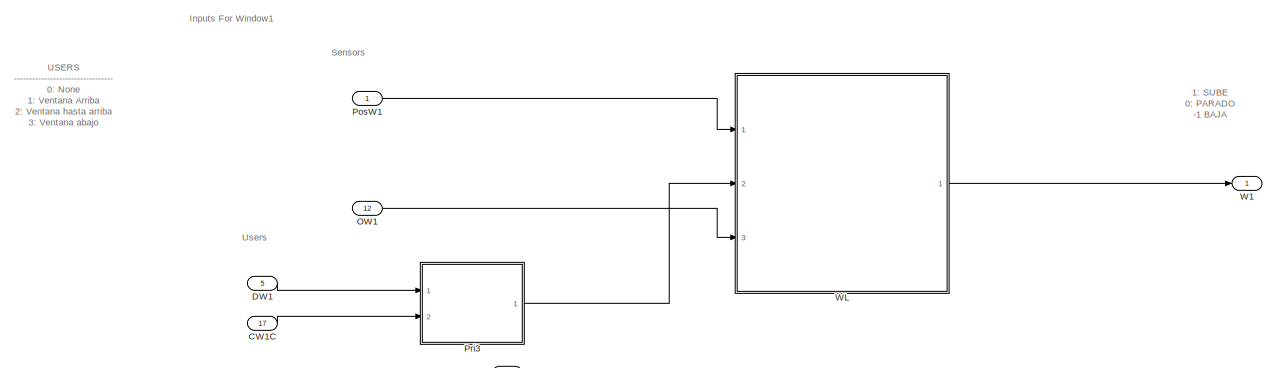
[diagram: M004/Cyber - part 1/3, full width, top band]
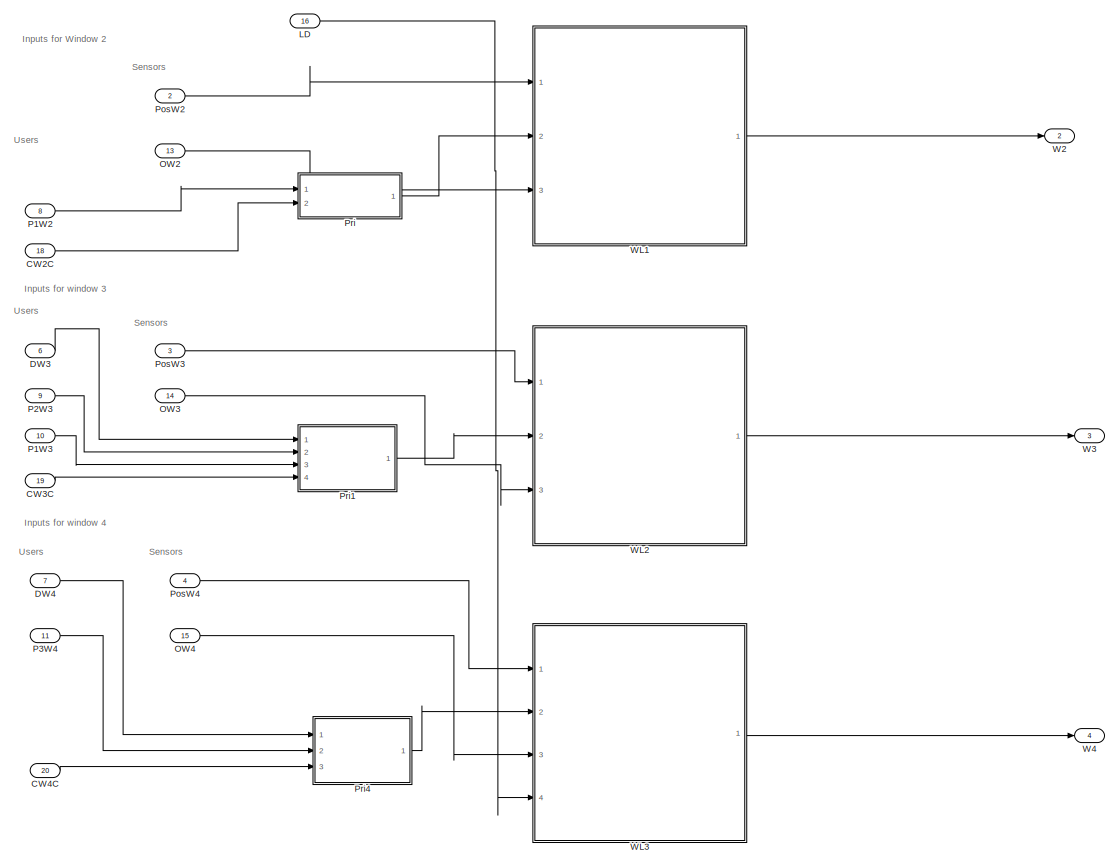
[diagram: M004/Cyber - part 2/3, full width, middle band]
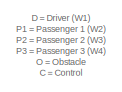
[diagram: M004/Cyber - part 3/3, middle left region]
BLOCK [SubSystem] M004/Cyber
  Ports = [20, 4]
  RequestExecContextInheritance = off
BLOCK [Inport] M004/Cyber/CW1C
  IconDisplay = Port number
  Port = 17
BLOCK [Inport] M004/Cyber/CW2C
  IconDisplay = Port number
  Port = 18
BLOCK [Inport] M004/Cyber/CW3C
  IconDisplay = Port number
  Port = 19
BLOCK [Inport] M004/Cyber/CW4C
  IconDisplay = Port number
  Port = 20
BLOCK [Inport] M004/Cyber/DW1
  IconDisplay = Port number
  Port = 5
BLOCK [Inport] M004/Cyber/DW3
  IconDisplay = Port number
  Port = 6
BLOCK [Inport] M004/Cyber/DW4
  IconDisplay = Port number
  Port = 7
BLOCK [Inport] M004/Cyber/LD
  IconDisplay = Port number
  Port = 16
BLOCK [Inport] M004/Cyber/OW1
  IconDisplay = Port number
  Port = 12
BLOCK [Inport] M004/Cyber/OW2
  IconDisplay = Port number
  Port = 13
BLOCK [Inport] M004/Cyber/OW3
  IconDisplay = Port number
  Port = 14
BLOCK [Inport] M004/Cyber/OW4
  IconDisplay = Port number
  Port = 15
BLOCK [Inport] M004/Cyber/P1W2
  IconDisplay = Port number
  Port = 8
BLOCK [Inport] M004/Cyber/P1W3
  IconDisplay = Port number
  Port = 10
BLOCK [Inport] M004/Cyber/P2W3
  IconDisplay = Port number
  Port = 9
BLOCK [Inport] M004/Cyber/P3W4
  IconDisplay = Port number
  Port = 11
BLOCK [Inport] M004/Cyber/PosW1
  IconDisplay = Port number
BLOCK [Inport] M004/Cyber/PosW2
  IconDisplay = Port number
  Port = 2
BLOCK [Inport] M004/Cyber/PosW3
  IconDisplay = Port number
  Port = 3
BLOCK [Inport] M004/Cyber/PosW4
  IconDisplay = Port number
  Port = 4
BLOCK [SubSystem] M004/Cyber/Pri
  Ports = [2, 1]
  RequestExecContextInheritance = off
BLOCK [Inport] M004/Cyber/Pri/CW2C
  IconDisplay = Port number
  Port = 2
BLOCK [Inport] M004/Cyber/Pri/P
  IconDisplay = Port number
BLOCK [Switch] M004/Cyber/Pri/Switch1
  Criteria = u2 > Threshold
  InputSameDT = off
  SaturateOnIntegerOverflow = off
  Threshold = 4
BLOCK [Outport] M004/Cyber/Pri/User
  IconDisplay = Port number
BLOCK [SubSystem] M004/Cyber/Pri1
  Ports = [4, 1]
  RequestExecContextInheritance = off
BLOCK [Inport] M004/Cyber/Pri1/CW3C
  IconDisplay = Port number
  Port = 4
BLOCK [Inport] M004/Cyber/Pri1/D
  IconDisplay = Port number
BLOCK [Inport] M004/Cyber/Pri1/P
  IconDisplay = Port number
  Port = 2
BLOCK [Inport] M004/Cyber/Pri1/P1
  IconDisplay = Port number
  Port = 3
BLOCK [Switch] M004/Cyber/Pri1/Switch
  Criteria = u2 ~= 0
  InputSameDT = off
  SaturateOnIntegerOverflow = off
BLOCK [Switch] M004/Cyber/Pri1/Switch1
  Criteria = u2 ~= 0
  InputSameDT = off
  SaturateOnIntegerOverflow = off
BLOCK [Switch] M004/Cyber/Pri1/Switch2
  Criteria = u2 ~= 0
  InputSameDT = off
  SaturateOnIntegerOverflow = off
BLOCK [Outport] M004/Cyber/Pri1/User
  IconDisplay = Port number
BLOCK [SubSystem] M004/Cyber/Pri3
  Ports = [2, 1]
  RequestExecContextInheritance = off
BLOCK [Inport] M004/Cyber/Pri3/CW1C
  IconDisplay = Port number
  Port = 2
BLOCK [Inport] M004/Cyber/Pri3/D
  IconDisplay = Port number
BLOCK [Switch] M004/Cyber/Pri3/Switch
  Criteria = u2 ~= 0
  InputSameDT = off
  SaturateOnIntegerOverflow = off
BLOCK [Outport] M004/Cyber/Pri3/User
  IconDisplay = Port number
BLOCK [SubSystem] M004/Cyber/Pri4
  Ports = [3, 1]
  RequestExecContextInheritance = off
BLOCK [Inport] M004/Cyber/Pri4/CW4C
  IconDisplay = Port number
  Port = 3
BLOCK [Inport] M004/Cyber/Pri4/D
  IconDisplay = Port number
BLOCK [Inport] M004/Cyber/Pri4/P
  IconDisplay = Port number
  Port = 2
BLOCK [Switch] M004/Cyber/Pri4/Switch
  Criteria = u2 ~= 0
  InputSameDT = off
  SaturateOnIntegerOverflow = off
BLOCK [Switch] M004/Cyber/Pri4/Switch1
  Criteria = u2 ~= 0
  InputSameDT = off
  SaturateOnIntegerOverflow = off
BLOCK [Outport] M004/Cyber/Pri4/User
  IconDisplay = Port number
BLOCK [Outport] M004/Cyber/W1
  IconDisplay = Port number
BLOCK [Outport] M004/Cyber/W2
  IconDisplay = Port number
  Port = 2
BLOCK [Outport] M004/Cyber/W3
  IconDisplay = Port number
  Port = 3
BLOCK [Outport] M004/Cyber/W4
  IconDisplay = Port number
  Port = 4
BLOCK [SubSystem] M004/Cyber/WL
  Ports = [3, 1]
  RequestExecContextInheritance = off
BLOCK [SubSystem] M004/Cyber/WL/Chart
  ErrorFcn = Stateflow.Translate.translate
  PermitHierarchicalResolution = ExplicitOnly
  Ports = [2, 1]
  RequestExecContextInheritance = off
  SFBlockType = Chart
  TreatAsAtomicUnit = on
BLOCK [Demux] M004/Cyber/WL/Chart/ Demux 
  Outputs = 1
  Ports = [1, 1]
BLOCK [S-Function] M004/Cyber/WL/Chart/ SFunction 
  EnableBusSupport = off
  FunctionName = sf_sfun
  PortCounts = [2 2]
  Ports = [2, 2]
  SFcnIsStateOwnerBlock = off
  SFunctionDeploymentMode = off
  Tag = Stateflow S-Function c00005M_harness 17
BLOCK [Terminator] M004/Cyber/WL/Chart/ Terminator 
BLOCK [Inport] M004/Cyber/WL/Chart/S
  IconDisplay = Port number
BLOCK [Inport] M004/Cyber/WL/Chart/UI
  IconDisplay = Port number
  Port = 2
BLOCK [Outport] M004/Cyber/WL/Chart/W
  IconDisplay = Port number
BLOCK [Constant] M004/Cyber/WL/Constant
  Value = -1
BLOCK [DataTypeConversion] M004/Cyber/WL/Data Type Conversion
  RndMeth = Floor
  SaturateOnIntegerOverflow = off
BLOCK [Inport] M004/Cyber/WL/OW
  IconDisplay = Port number
  Port = 3
BLOCK [Switch] M004/Cyber/WL/Switch
  Criteria = u2 ~= 0
  InputSameDT = off
  SaturateOnIntegerOverflow = off
  Threshold = 1
  ZeroCross = off
BLOCK [Inport] M004/Cyber/WL/User
  IconDisplay = Port number
  Port = 2
BLOCK [Inport] M004/Cyber/WL/WPos
  IconDisplay = Port number
BLOCK [Outport] M004/Cyber/WL/WindowLogicOutput
  IconDisplay = Port number
BLOCK [SubSystem] M004/Cyber/WL1
  Ports = [3, 1]
  RequestExecContextInheritance = off
BLOCK [SubSystem] M004/Cyber/WL1/Chart1
  ErrorFcn = Stateflow.Translate.translate
  PermitHierarchicalResolution = ExplicitOnly
  Ports = [2, 1]
  RequestExecContextInheritance = off
  SFBlockType = Chart
  TreatAsAtomicUnit = on
BLOCK [Demux] M004/Cyber/WL1/Chart1/ Demux 
  Outputs = 1
  Ports = [1, 1]
BLOCK [S-Function] M004/Cyber/WL1/Chart1/ SFunction 
  EnableBusSupport = off
  FunctionName = sf_sfun
  PortCounts = [2 2]
  Ports = [2, 2]
  SFcnIsStateOwnerBlock = off
  SFunctionDeploymentMode = off
  Tag = Stateflow S-Function c00005M_harness 18
BLOCK [Terminator] M004/Cyber/WL1/Chart1/ Terminator 
BLOCK [Inport] M004/Cyber/WL1/Chart1/S
  IconDisplay = Port number
BLOCK [Inport] M004/Cyber/WL1/Chart1/UI
  IconDisplay = Port number
  Port = 2
BLOCK [Outport] M004/Cyber/WL1/Chart1/W
  IconDisplay = Port number
BLOCK [Constant] M004/Cyber/WL1/Constant
  Value = -1
BLOCK [DataTypeConversion] M004/Cyber/WL1/Data Type Conversion
  RndMeth = Floor
  SaturateOnIntegerOverflow = off
BLOCK [Inport] M004/Cyber/WL1/OW
  IconDisplay = Port number
  Port = 3
BLOCK [Switch] M004/Cyber/WL1/Switch
  Criteria = u2 ~= 0
  InputSameDT = off
  SaturateOnIntegerOverflow = off
  Threshold = 1
  ZeroCross = off
BLOCK [Inport] M004/Cyber/WL1/User
  IconDisplay = Port number
  Port = 2
BLOCK [Inport] M004/Cyber/WL1/WPos
  IconDisplay = Port number
BLOCK [Outport] M004/Cyber/WL1/WindowLogicOutput
  IconDisplay = Port number
BLOCK [SubSystem] M004/Cyber/WL2
  Ports = [3, 1]
  RequestExecContextInheritance = off
BLOCK [SubSystem] M004/Cyber/WL2/Chart1
  ErrorFcn = Stateflow.Translate.translate
  PermitHierarchicalResolution = ExplicitOnly
  Ports = [3, 1]
  RequestExecContextInheritance = off
  SFBlockType = Chart
  TreatAsAtomicUnit = on
BLOCK [Demux] M004/Cyber/WL2/Chart1/ Demux 
  Outputs = 1
  Ports = [1, 1]
BLOCK [S-Function] M004/Cyber/WL2/Chart1/ SFunction 
  EnableBusSupport = off
  FunctionName = sf_sfun
  PortCounts = [3 2]
  Ports = [3, 2]
  SFcnIsStateOwnerBlock = off
  SFunctionDeploymentMode = off
  Tag = Stateflow S-Function c00005M_harness 19
BLOCK [Terminator] M004/Cyber/WL2/Chart1/ Terminator 
BLOCK [Inport] M004/Cyber/WL2/Chart1/PosMinW3
  IconDisplay = Port number
  Port = 3
BLOCK [Inport] M004/Cyber/WL2/Chart1/S
  IconDisplay = Port number
BLOCK [Inport] M004/Cyber/WL2/Chart1/UI
  IconDisplay = Port number
  Port = 2
BLOCK [Outport] M004/Cyber/WL2/Chart1/W
  IconDisplay = Port number
BLOCK [Constant] M004/Cyber/WL2/Constant
  Value = -1
BLOCK [Constant] M004/Cyber/WL2/Constant2
  Value = PosMinimaW3
BLOCK [DataTypeConversion] M004/Cyber/WL2/Data Type Conversion
  RndMeth = Floor
  SaturateOnIntegerOverflow = off
BLOCK [Inport] M004/Cyber/WL2/OW
  IconDisplay = Port number
  Port = 3
BLOCK [Switch] M004/Cyber/WL2/Switch
  Criteria = u2 ~= 0
  InputSameDT = off
  SaturateOnIntegerOverflow = off
  Threshold = 1
  ZeroCross = off
BLOCK [Inport] M004/Cyber/WL2/User
  IconDisplay = Port number
  Port = 2
BLOCK [Inport] M004/Cyber/WL2/WPos
  IconDisplay = Port number
BLOCK [Outport] M004/Cyber/WL2/WindowLogicOutput
  IconDisplay = Port number
BLOCK [SubSystem] M004/Cyber/WL3
  Ports = [4, 1]
  RequestExecContextInheritance = off
BLOCK [SubSystem] M004/Cyber/WL3/Chart2
  ErrorFcn = Stateflow.Translate.translate
  PermitHierarchicalResolution = ExplicitOnly
  Ports = [3, 1]
  RequestExecContextInheritance = off
  SFBlockType = Chart
  TreatAsAtomicUnit = on
BLOCK [Demux] M004/Cyber/WL3/Chart2/ Demux 
  Outputs = 1
  Ports = [1, 1]
BLOCK [S-Function] M004/Cyber/WL3/Chart2/ SFunction 
  EnableBusSupport = off
  FunctionName = sf_sfun
  PortCounts = [3 2]
  Ports = [3, 2]
  SFcnIsStateOwnerBlock = off
  SFunctionDeploymentMode = off
  Tag = Stateflow S-Function c00005M_harness 20
BLOCK [Terminator] M004/Cyber/WL3/Chart2/ Terminator 
BLOCK [Inport] M004/Cyber/WL3/Chart2/PosMinW4
  IconDisplay = Port number
  Port = 3
BLOCK [Inport] M004/Cyber/WL3/Chart2/S
  IconDisplay = Port number
BLOCK [Inport] M004/Cyber/WL3/Chart2/UI
  IconDisplay = Port number
  Port = 2
BLOCK [Outport] M004/Cyber/WL3/Chart2/W
  IconDisplay = Port number
BLOCK [Constant] M004/Cyber/WL3/Constant
  Value = -1
BLOCK [Constant] M004/Cyber/WL3/Constant1
  Value = 0
BLOCK [Constant] M004/Cyber/WL3/Constant2
  Value = PosMinimaW4
BLOCK [DataTypeConversion] M004/Cyber/WL3/Data Type Conversion
  RndMeth = Floor
  SaturateOnIntegerOverflow = off
BLOCK [Inport] M004/Cyber/WL3/L
  IconDisplay = Port number
  Port = 4
BLOCK [Inport] M004/Cyber/WL3/OW
  IconDisplay = Port number
  Port = 3
BLOCK [Switch] M004/Cyber/WL3/Switch
  Criteria = u2 ~= 0
  InputSameDT = off
  SaturateOnIntegerOverflow = off
  Threshold = 1
  ZeroCross = off
BLOCK [Switch] M004/Cyber/WL3/Switch1
  Criteria = u2 ~= 0
  InputSameDT = off
  SaturateOnIntegerOverflow = off
BLOCK [Inport] M004/Cyber/WL3/User
  IconDisplay = Port number
  Port = 2
BLOCK [Inport] M004/Cyber/WL3/WPos
  IconDisplay = Port number
BLOCK [Outport] M004/Cyber/WL3/WindowLogicOutput
  IconDisplay = Port number
BLOCK [Inport] M004/DW1
  IconDisplay = Port number
  OutDataTypeStr = int8
  OutMax = 4
  OutMin = 0
BLOCK [Inport] M004/DW3
  IconDisplay = Port number
  OutDataTypeStr = int8
  OutMax = 4
  OutMin = 0
  Port = 2
BLOCK [Inport] M004/DW4
  IconDisplay = Port number
  OutDataTypeStr = int8
  OutMax = 4
  OutMin = 0
  Port = 3
BLOCK [Inport] M004/LD
  IconDisplay = Port number
  OutDataTypeStr = boolean
  Port = 12
BLOCK [Memory] M004/M
BLOCK [Memory] M004/M1
BLOCK [Memory] M004/M2
BLOCK [Memory] M004/M3
BLOCK [Inport] M004/O1
  IconDisplay = Port number
  OutDataTypeStr = boolean
  Port = 8
BLOCK [Inport] M004/O2
  IconDisplay = Port number
  OutDataTypeStr = boolean
  Port = 9
BLOCK [Inport] M004/O3
  IconDisplay = Port number
  OutDataTypeStr = boolean
  Port = 10
BLOCK [Inport] M004/O4
  IconDisplay = Port number
  OutDataTypeStr = boolean
  Port = 11
BLOCK [Inport] M004/P1W2
  IconDisplay = Port number
  OutDataTypeStr = int8
  OutMax = 4
  OutMin = 0
  Port = 4
BLOCK [Inport] M004/P1W3
  IconDisplay = Port number
  OutDataTypeStr = int8
  OutMax = 4
  OutMin = 0
  Port = 6
BLOCK [Inport] M004/P2W3
  IconDisplay = Port number
  OutDataTypeStr = int8
  OutMax = 4
  OutMin = 0
  Port = 5
BLOCK [Inport] M004/P3W4
  IconDisplay = Port number
  OutDataTypeStr = int8
  OutMax = 4
  OutMin = 0
  Port = 7
BLOCK [SubSystem] M004/Physical
  Ports = [4, 4]
  RequestExecContextInheritance = off
BLOCK [Inport] M004/Physical/InW1
  IconDisplay = Port number
BLOCK [Inport] M004/Physical/InW2
  IconDisplay = Port number
  Port = 2
BLOCK [Inport] M004/Physical/InW3
  IconDisplay = Port number
  Port = 3
BLOCK [Inport] M004/Physical/InW4
  IconDisplay = Port number
  Port = 4
BLOCK [SubSystem] M004/Physical/W
  Ports = [1, 1]
  RequestExecContextInheritance = off
BLOCK [SubSystem] M004/Physical/W/DC_Engine
  Ports = [1, 1]
  RequestExecContextInheritance = off
BLOCK [Gain] M004/Physical/W/DC_Engine/(Inductance)
  Gain = 1/L
  OutDataTypeStr = Inherit: Inherit via internal rule
  ParamDataTypeStr = Inherit: Inherit via internal rule
  SaturateOnIntegerOverflow = off
BLOCK [Gain] M004/Physical/W/DC_Engine/(Inductance)1
  Gain = 1/J
  OutDataTypeStr = Inherit: Inherit via internal rule
  ParamDataTypeStr = Inherit: Inherit via internal rule
  SaturateOnIntegerOverflow = off
BLOCK [Sum] M004/Physical/W/DC_Engine/Add
  InputSameDT = off
  Inputs = -+-
  OutDataTypeStr = Inherit: Inherit via internal rule
  Ports = [3, 1]
  SaturateOnIntegerOverflow = off
BLOCK [Sum] M004/Physical/W/DC_Engine/Add1
  InputSameDT = off
  Inputs = +-
  OutDataTypeStr = Inherit: Inherit via internal rule
  Ports = [2, 1]
  SaturateOnIntegerOverflow = off
BLOCK [Gain] M004/Physical/W/DC_Engine/Damping
  Gain = b
  OutDataTypeStr = Inherit: Inherit via internal rule
  ParamDataTypeStr = Inherit: Inherit via internal rule
  SaturateOnIntegerOverflow = off
BLOCK [DiscreteIntegrator] M004/Physical/W/DC_Engine/Discrete-Time Integrator
  ICPrevOutput = DiscIntNeverNeededParam
  ICPrevScaledInput = DiscIntNeverNeededParam
  Ports = [1, 1]
  SampleTime = -1
BLOCK [DiscreteIntegrator] M004/Physical/W/DC_Engine/Discrete-Time Integrator1
  ICPrevOutput = DiscIntNeverNeededParam
  ICPrevScaledInput = DiscIntNeverNeededParam
  Ports = [1, 1]
  SampleTime = -1
BLOCK [Gain] M004/Physical/W/DC_Engine/Ke
  Gain = K
  OutDataTypeStr = Inherit: Inherit via internal rule
  ParamDataTypeStr = Inherit: Inherit via internal rule
  SaturateOnIntegerOverflow = off
BLOCK [Gain] M004/Physical/W/DC_Engine/Kt
  Gain = K
  OutDataTypeStr = Inherit: Inherit via internal rule
  ParamDataTypeStr = Inherit: Inherit via internal rule
  SaturateOnIntegerOverflow = off
BLOCK [Gain] M004/Physical/W/DC_Engine/Resistance
  Gain = R
  OutDataTypeStr = Inherit: Inherit via internal rule
  ParamDataTypeStr = Inherit: Inherit via internal rule
  SaturateOnIntegerOverflow = off
BLOCK [Outport] M004/Physical/W/DC_Engine/Speed
  IconDisplay = Port number
BLOCK [Gain] M004/Physical/W/DC_Engine/Voltage
  Gain = 10
  OutDataTypeStr = Inherit: Inherit via internal rule
  ParamDataTypeStr = Inherit: Inherit via internal rule
  SaturateOnIntegerOverflow = off
BLOCK [Inport] M004/Physical/W/DC_Engine/input
  IconDisplay = Port number
BLOCK [DiscreteIntegrator] M004/Physical/W/Discrete-Time Integrator
  ICPrevOutput = DiscIntNeverNeededParam
  ICPrevScaledInput = DiscIntNeverNeededParam
  InitialCondition = 5
  LimitOutput = on
  LowerSaturationLimit = 0
  Ports = [1, 1]
  SampleTime = -1
  UpperSaturationLimit = 5
BLOCK [Inport] M004/Physical/W/WIn
  IconDisplay = Port number
BLOCK [Outport] M004/Physical/W/WPos
  IconDisplay = Port number
BLOCK [Outport] M004/Physical/W1
  IconDisplay = Port number
BLOCK [Outport] M004/Physical/W2
  IconDisplay = Port number
  Port = 2
BLOCK [Outport] M004/Physical/W3
  IconDisplay = Port number
  Port = 3
BLOCK [Outport] M004/Physical/W4
  IconDisplay = Port number
  Port = 4
BLOCK [SubSystem] M004/Physical/W5
  Ports = [1, 1]
  RequestExecContextInheritance = off
BLOCK [SubSystem] M004/Physical/W5/DC_Engine
  Ports = [1, 1]
  RequestExecContextInheritance = off
BLOCK [Gain] M004/Physical/W5/DC_Engine/(Inductance)
  Gain = 1/L
  OutDataTypeStr = Inherit: Inherit via internal rule
  ParamDataTypeStr = Inherit: Inherit via internal rule
  SaturateOnIntegerOverflow = off
BLOCK [Gain] M004/Physical/W5/DC_Engine/(Inductance)1
  Gain = 1/J
  OutDataTypeStr = Inherit: Inherit via internal rule
  ParamDataTypeStr = Inherit: Inherit via internal rule
  SaturateOnIntegerOverflow = off
BLOCK [Sum] M004/Physical/W5/DC_Engine/Add
  InputSameDT = off
  Inputs = -+-
  OutDataTypeStr = Inherit: Inherit via internal rule
  Ports = [3, 1]
  SaturateOnIntegerOverflow = off
BLOCK [Sum] M004/Physical/W5/DC_Engine/Add1
  InputSameDT = off
  Inputs = +-
  OutDataTypeStr = Inherit: Inherit via internal rule
  Ports = [2, 1]
  SaturateOnIntegerOverflow = off
BLOCK [Gain] M004/Physical/W5/DC_Engine/Damping
  Gain = b
  OutDataTypeStr = Inherit: Inherit via internal rule
  ParamDataTypeStr = Inherit: Inherit via internal rule
  SaturateOnIntegerOverflow = off
BLOCK [DiscreteIntegrator] M004/Physical/W5/DC_Engine/Discrete-Time Integrator
  ICPrevOutput = DiscIntNeverNeededParam
  ICPrevScaledInput = DiscIntNeverNeededParam
  Ports = [1, 1]
  SampleTime = -1
BLOCK [DiscreteIntegrator] M004/Physical/W5/DC_Engine/Discrete-Time Integrator1
  ICPrevOutput = DiscIntNeverNeededParam
  ICPrevScaledInput = DiscIntNeverNeededParam
  Ports = [1, 1]
  SampleTime = -1
BLOCK [Gain] M004/Physical/W5/DC_Engine/Ke
  Gain = K
  OutDataTypeStr = Inherit: Inherit via internal rule
  ParamDataTypeStr = Inherit: Inherit via internal rule
  SaturateOnIntegerOverflow = off
BLOCK [Gain] M004/Physical/W5/DC_Engine/Kt
  Gain = K
  OutDataTypeStr = Inherit: Inherit via internal rule
  ParamDataTypeStr = Inherit: Inherit via internal rule
  SaturateOnIntegerOverflow = off
BLOCK [Gain] M004/Physical/W5/DC_Engine/Resistance
  Gain = R
  OutDataTypeStr = Inherit: Inherit via internal rule
  ParamDataTypeStr = Inherit: Inherit via internal rule
  SaturateOnIntegerOverflow = off
BLOCK [Outport] M004/Physical/W5/DC_Engine/Speed
  IconDisplay = Port number
BLOCK [Gain] M004/Physical/W5/DC_Engine/Voltage
  Gain = 10
  OutDataTypeStr = Inherit: Inherit via internal rule
  ParamDataTypeStr = Inherit: Inherit via internal rule
  SaturateOnIntegerOverflow = off
BLOCK [Inport] M004/Physical/W5/DC_Engine/input
  IconDisplay = Port number
BLOCK [DiscreteIntegrator] M004/Physical/W5/Discrete-Time Integrator
  ICPrevOutput = DiscIntNeverNeededParam
  ICPrevScaledInput = DiscIntNeverNeededParam
  InitialCondition = 5
  LimitOutput = on
  LowerSaturationLimit = 0
  Ports = [1, 1]
  SampleTime = -1
  UpperSaturationLimit = 5
BLOCK [Inport] M004/Physical/W5/WIn
  IconDisplay = Port number
BLOCK [Outport] M004/Physical/W5/WPos
  IconDisplay = Port number
BLOCK [SubSystem] M004/Physical/W6
  Ports = [1, 1]
  RequestExecContextInheritance = off
BLOCK [SubSystem] M004/Physical/W6/DC_Engine
  Ports = [1, 1]
  RequestExecContextInheritance = off
BLOCK [Gain] M004/Physical/W6/DC_Engine/(Inductance)
  Gain = 1/L
  OutDataTypeStr = Inherit: Inherit via internal rule
  ParamDataTypeStr = Inherit: Inherit via internal rule
  SaturateOnIntegerOverflow = off
BLOCK [Gain] M004/Physical/W6/DC_Engine/(Inductance)1
  Gain = 1/J
  OutDataTypeStr = Inherit: Inherit via internal rule
  ParamDataTypeStr = Inherit: Inherit via internal rule
  SaturateOnIntegerOverflow = off
BLOCK [Sum] M004/Physical/W6/DC_Engine/Add
  InputSameDT = off
  Inputs = -+-
  OutDataTypeStr = Inherit: Inherit via internal rule
  Ports = [3, 1]
  SaturateOnIntegerOverflow = off
BLOCK [Sum] M004/Physical/W6/DC_Engine/Add1
  InputSameDT = off
  Inputs = +-
  OutDataTypeStr = Inherit: Inherit via internal rule
  Ports = [2, 1]
  SaturateOnIntegerOverflow = off
BLOCK [Gain] M004/Physical/W6/DC_Engine/Damping
  Gain = b
  OutDataTypeStr = Inherit: Inherit via internal rule
  ParamDataTypeStr = Inherit: Inherit via internal rule
  SaturateOnIntegerOverflow = off
BLOCK [DiscreteIntegrator] M004/Physical/W6/DC_Engine/Discrete-Time Integrator
  ICPrevOutput = DiscIntNeverNeededParam
  ICPrevScaledInput = DiscIntNeverNeededParam
  Ports = [1, 1]
  SampleTime = -1
BLOCK [DiscreteIntegrator] M004/Physical/W6/DC_Engine/Discrete-Time Integrator1
  ICPrevOutput = DiscIntNeverNeededParam
  ICPrevScaledInput = DiscIntNeverNeededParam
  Ports = [1, 1]
  SampleTime = -1
BLOCK [Gain] M004/Physical/W6/DC_Engine/Ke
  Gain = K
  OutDataTypeStr = Inherit: Inherit via internal rule
  ParamDataTypeStr = Inherit: Inherit via internal rule
  SaturateOnIntegerOverflow = off
BLOCK [Gain] M004/Physical/W6/DC_Engine/Kt
  Gain = K
  OutDataTypeStr = Inherit: Inherit via internal rule
  ParamDataTypeStr = Inherit: Inherit via internal rule
  SaturateOnIntegerOverflow = off
BLOCK [Gain] M004/Physical/W6/DC_Engine/Resistance
  Gain = R
  OutDataTypeStr = Inherit: Inherit via internal rule
  ParamDataTypeStr = Inherit: Inherit via internal rule
  SaturateOnIntegerOverflow = off
BLOCK [Outport] M004/Physical/W6/DC_Engine/Speed
  IconDisplay = Port number
BLOCK [Gain] M004/Physical/W6/DC_Engine/Voltage
  Gain = 10
  OutDataTypeStr = Inherit: Inherit via internal rule
  ParamDataTypeStr = Inherit: Inherit via internal rule
  SaturateOnIntegerOverflow = off
BLOCK [Inport] M004/Physical/W6/DC_Engine/input
  IconDisplay = Port number
BLOCK [DiscreteIntegrator] M004/Physical/W6/Discrete-Time Integrator
  ICPrevOutput = DiscIntNeverNeededParam
  ICPrevScaledInput = DiscIntNeverNeededParam
  InitialCondition = 5
  LimitOutput = on
  LowerSaturationLimit = PosMinimaW3
  Ports = [1, 1]
  SampleTime = -1
  UpperSaturationLimit = 5
BLOCK [Inport] M004/Physical/W6/WIn
  IconDisplay = Port number
BLOCK [Outport] M004/Physical/W6/WPos
  IconDisplay = Port number
BLOCK [SubSystem] M004/Physical/W7
  Ports = [1, 1]
  RequestExecContextInheritance = off
BLOCK [SubSystem] M004/Physical/W7/DC_Engine
  Ports = [1, 1]
  RequestExecContextInheritance = off
BLOCK [Gain] M004/Physical/W7/DC_Engine/(Inductance)
  Gain = 1/L
  OutDataTypeStr = Inherit: Inherit via internal rule
  ParamDataTypeStr = Inherit: Inherit via internal rule
  SaturateOnIntegerOverflow = off
BLOCK [Gain] M004/Physical/W7/DC_Engine/(Inductance)1
  Gain = 1/J
  OutDataTypeStr = Inherit: Inherit via internal rule
  ParamDataTypeStr = Inherit: Inherit via internal rule
  SaturateOnIntegerOverflow = off
BLOCK [Sum] M004/Physical/W7/DC_Engine/Add
  InputSameDT = off
  Inputs = -+-
  OutDataTypeStr = Inherit: Inherit via internal rule
  Ports = [3, 1]
  SaturateOnIntegerOverflow = off
BLOCK [Sum] M004/Physical/W7/DC_Engine/Add1
  InputSameDT = off
  Inputs = +-
  OutDataTypeStr = Inherit: Inherit via internal rule
  Ports = [2, 1]
  SaturateOnIntegerOverflow = off
BLOCK [Gain] M004/Physical/W7/DC_Engine/Damping
  Gain = b
  OutDataTypeStr = Inherit: Inherit via internal rule
  ParamDataTypeStr = Inherit: Inherit via internal rule
  SaturateOnIntegerOverflow = off
BLOCK [DiscreteIntegrator] M004/Physical/W7/DC_Engine/Discrete-Time Integrator
  ICPrevOutput = DiscIntNeverNeededParam
  ICPrevScaledInput = DiscIntNeverNeededParam
  Ports = [1, 1]
  SampleTime = -1
BLOCK [DiscreteIntegrator] M004/Physical/W7/DC_Engine/Discrete-Time Integrator1
  ICPrevOutput = DiscIntNeverNeededParam
  ICPrevScaledInput = DiscIntNeverNeededParam
  Ports = [1, 1]
  SampleTime = -1
BLOCK [Gain] M004/Physical/W7/DC_Engine/Ke
  Gain = K
  OutDataTypeStr = Inherit: Inherit via internal rule
  ParamDataTypeStr = Inherit: Inherit via internal rule
  SaturateOnIntegerOverflow = off
BLOCK [Gain] M004/Physical/W7/DC_Engine/Kt
  Gain = K
  OutDataTypeStr = Inherit: Inherit via internal rule
  ParamDataTypeStr = Inherit: Inherit via internal rule
  SaturateOnIntegerOverflow = off
BLOCK [Gain] M004/Physical/W7/DC_Engine/Resistance
  Gain = R
  OutDataTypeStr = Inherit: Inherit via internal rule
  ParamDataTypeStr = Inherit: Inherit via internal rule
  SaturateOnIntegerOverflow = off
BLOCK [Outport] M004/Physical/W7/DC_Engine/Speed
  IconDisplay = Port number
BLOCK [Gain] M004/Physical/W7/DC_Engine/Voltage
  Gain = 10
  OutDataTypeStr = Inherit: Inherit via internal rule
  ParamDataTypeStr = Inherit: Inherit via internal rule
  SaturateOnIntegerOverflow = off
BLOCK [Inport] M004/Physical/W7/DC_Engine/input
  IconDisplay = Port number
BLOCK [DiscreteIntegrator] M004/Physical/W7/Discrete-Time Integrator
  ICPrevOutput = DiscIntNeverNeededParam
  ICPrevScaledInput = DiscIntNeverNeededParam
  InitialCondition = 5
  LimitOutput = on
  LowerSaturationLimit = PosMinimaW4
  Ports = [1, 1]
  SampleTime = -1
  UpperSaturationLimit = 5
BLOCK [Inport] M004/Physical/W7/WIn
  IconDisplay = Port number
BLOCK [Outport] M004/Physical/W7/WPos
  IconDisplay = Port number
BLOCK [SubSystem] M004/S1
  Ports = [1, 1]
  RequestExecContextInheritance = off
BLOCK [Inport] M004/S1/PhyMeasure
  IconDisplay = Port number
BLOCK [Outport] M004/S1/SensorOut
  IconDisplay = Port number
BLOCK [SubSystem] M004/S2
  Ports = [1, 1]
  RequestExecContextInheritance = off
BLOCK [Inport] M004/S2/PhyMeasure
  IconDisplay = Port number
BLOCK [Outport] M004/S2/SensorOut
  IconDisplay = Port number
BLOCK [SubSystem] M004/S3
  Ports = [1, 1]
  RequestExecContextInheritance = off
BLOCK [Inport] M004/S3/PhyMeasure
  IconDisplay = Port number
BLOCK [Outport] M004/S3/SensorOut
  IconDisplay = Port number
BLOCK [SubSystem] M004/S4
  Ports = [1, 1]
  RequestExecContextInheritance = off
BLOCK [Inport] M004/S4/PhyMeasure
  IconDisplay = Port number
BLOCK [Outport] M004/S4/SensorOut
  IconDisplay = Port number
BLOCK [Outport] M004/W1Pos
  IconDisplay = Port number
BLOCK [Outport] M004/W2Pos
  IconDisplay = Port number
  Port = 2
BLOCK [Outport] M004/W3Pos
  IconDisplay = Port number
  Port = 3
BLOCK [Outport] M004/W4Pos
  IconDisplay = Port number
  Port = 4
BLOCK [SubSystem] M008
  Ports = [16, 4]
  RequestExecContextInheritance = off
BLOCK [Inport] M008/CW1C
  IconDisplay = Port number
  OutDataTypeStr = int8
  OutMax = 4
  OutMin = 0
  Port = 13
BLOCK [Inport] M008/CW2C
  IconDisplay = Port number
  OutDataTypeStr = int8
  OutMax = 4
  OutMin = 0
  Port = 14
BLOCK [Inport] M008/CW3C
  IconDisplay = Port number
  OutDataTypeStr = int8
  OutMax = 4
  OutMin = 0
  Port = 15
BLOCK [Inport] M008/CW4C
  IconDisplay = Port number
  OutDataTypeStr = int8
  OutMax = 4
  OutMin = 0
  Port = 16
BLOCK [SubSystem] M008/Cyber
  Ports = [20, 4]
  RequestExecContextInheritance = off
BLOCK [Inport] M008/Cyber/CW1C
  IconDisplay = Port number
  Port = 17
BLOCK [Inport] M008/Cyber/CW2C
  IconDisplay = Port number
  Port = 18
BLOCK [Inport] M008/Cyber/CW3C
  IconDisplay = Port number
  Port = 19
BLOCK [Inport] M008/Cyber/CW4C
  IconDisplay = Port number
  Port = 20
BLOCK [Inport] M008/Cyber/DW1
  IconDisplay = Port number
  Port = 5
BLOCK [Inport] M008/Cyber/DW3
  IconDisplay = Port number
  Port = 6
BLOCK [Inport] M008/Cyber/DW4
  IconDisplay = Port number
  Port = 7
BLOCK [Inport] M008/Cyber/LD
  IconDisplay = Port number
  Port = 16
BLOCK [Inport] M008/Cyber/OW1
  IconDisplay = Port number
  Port = 12
BLOCK [Inport] M008/Cyber/OW2
  IconDisplay = Port number
  Port = 13
BLOCK [Inport] M008/Cyber/OW3
  IconDisplay = Port number
  Port = 14
BLOCK [Inport] M008/Cyber/OW4
  IconDisplay = Port number
  Port = 15
BLOCK [Inport] M008/Cyber/P1W2
  IconDisplay = Port number
  Port = 8
BLOCK [Inport] M008/Cyber/P1W3
  IconDisplay = Port number
  Port = 10
BLOCK [Inport] M008/Cyber/P2W3
  IconDisplay = Port number
  Port = 9
BLOCK [Inport] M008/Cyber/P3W4
  IconDisplay = Port number
  Port = 11
BLOCK [Inport] M008/Cyber/PosW1
  IconDisplay = Port number
BLOCK [Inport] M008/Cyber/PosW2
  IconDisplay = Port number
  Port = 2
BLOCK [Inport] M008/Cyber/PosW3
  IconDisplay = Port number
  Port = 3
BLOCK [Inport] M008/Cyber/PosW4
  IconDisplay = Port number
  Port = 4
BLOCK [SubSystem] M008/Cyber/Pri
  Ports = [2, 1]
  RequestExecContextInheritance = off
BLOCK [Inport] M008/Cyber/Pri/CW2C
  IconDisplay = Port number
  Port = 2
BLOCK [Inport] M008/Cyber/Pri/P
  IconDisplay = Port number
BLOCK [Switch] M008/Cyber/Pri/Switch1
  Criteria = u2 ~= 0
  InputSameDT = off
  SaturateOnIntegerOverflow = off
BLOCK [Outport] M008/Cyber/Pri/User
  IconDisplay = Port number
BLOCK [SubSystem] M008/Cyber/Pri1
  Ports = [4, 1]
  RequestExecContextInheritance = off
BLOCK [Inport] M008/Cyber/Pri1/CW3C
  IconDisplay = Port number
  Port = 4
BLOCK [Inport] M008/Cyber/Pri1/D
  IconDisplay = Port number
BLOCK [Inport] M008/Cyber/Pri1/P
  IconDisplay = Port number
  Port = 2
BLOCK [Inport] M008/Cyber/Pri1/P1
  IconDisplay = Port number
  Port = 3
BLOCK [Switch] M008/Cyber/Pri1/Switch
  Criteria = u2 > Threshold
  InputSameDT = off
  SaturateOnIntegerOverflow = off
  Threshold = 4
BLOCK [Switch] M008/Cyber/Pri1/Switch1
  Criteria = u2 ~= 0
  InputSameDT = off
  SaturateOnIntegerOverflow = off
BLOCK [Switch] M008/Cyber/Pri1/Switch2
  Criteria = u2 ~= 0
  InputSameDT = off
  SaturateOnIntegerOverflow = off
BLOCK [Outport] M008/Cyber/Pri1/User
  IconDisplay = Port number
BLOCK [SubSystem] M008/Cyber/Pri3
  Ports = [2, 1]
  RequestExecContextInheritance = off
BLOCK [Inport] M008/Cyber/Pri3/CW1C
  IconDisplay = Port number
  Port = 2
BLOCK [Inport] M008/Cyber/Pri3/D
  IconDisplay = Port number
BLOCK [Switch] M008/Cyber/Pri3/Switch
  Criteria = u2 ~= 0
  InputSameDT = off
  SaturateOnIntegerOverflow = off
BLOCK [Outport] M008/Cyber/Pri3/User
  IconDisplay = Port number
BLOCK [SubSystem] M008/Cyber/Pri4
  Ports = [3, 1]
  RequestExecContextInheritance = off
BLOCK [Inport] M008/Cyber/Pri4/CW4C
  IconDisplay = Port number
  Port = 3
BLOCK [Inport] M008/Cyber/Pri4/D
  IconDisplay = Port number
BLOCK [Inport] M008/Cyber/Pri4/P
  IconDisplay = Port number
  Port = 2
BLOCK [Switch] M008/Cyber/Pri4/Switch
  Criteria = u2 ~= 0
  InputSameDT = off
  SaturateOnIntegerOverflow = off
BLOCK [Switch] M008/Cyber/Pri4/Switch1
  Criteria = u2 ~= 0
  InputSameDT = off
  SaturateOnIntegerOverflow = off
BLOCK [Outport] M008/Cyber/Pri4/User
  IconDisplay = Port number
BLOCK [Outport] M008/Cyber/W1
  IconDisplay = Port number
BLOCK [Outport] M008/Cyber/W2
  IconDisplay = Port number
  Port = 2
BLOCK [Outport] M008/Cyber/W3
  IconDisplay = Port number
  Port = 3
BLOCK [Outport] M008/Cyber/W4
  IconDisplay = Port number
  Port = 4
BLOCK [SubSystem] M008/Cyber/WL
  Ports = [3, 1]
  RequestExecContextInheritance = off
BLOCK [SubSystem] M008/Cyber/WL/Chart
  ErrorFcn = Stateflow.Translate.translate
  PermitHierarchicalResolution = ExplicitOnly
  Ports = [2, 1]
  RequestExecContextInheritance = off
  SFBlockType = Chart
  TreatAsAtomicUnit = on
BLOCK [Demux] M008/Cyber/WL/Chart/ Demux 
  Outputs = 1
  Ports = [1, 1]
BLOCK [S-Function] M008/Cyber/WL/Chart/ SFunction 
  EnableBusSupport = off
  FunctionName = sf_sfun
  PortCounts = [2 2]
  Ports = [2, 2]
  SFcnIsStateOwnerBlock = off
  SFunctionDeploymentMode = off
  Tag = Stateflow S-Function c00005M_harness 33
BLOCK [Terminator] M008/Cyber/WL/Chart/ Terminator 
BLOCK [Inport] M008/Cyber/WL/Chart/S
  IconDisplay = Port number
BLOCK [Inport] M008/Cyber/WL/Chart/UI
  IconDisplay = Port number
  Port = 2
BLOCK [Outport] M008/Cyber/WL/Chart/W
  IconDisplay = Port number
BLOCK [Constant] M008/Cyber/WL/Constant
  Value = -1
BLOCK [DataTypeConversion] M008/Cyber/WL/Data Type Conversion
  RndMeth = Floor
  SaturateOnIntegerOverflow = off
BLOCK [Inport] M008/Cyber/WL/OW
  IconDisplay = Port number
  Port = 3
BLOCK [Switch] M008/Cyber/WL/Switch
  Criteria = u2 ~= 0
  InputSameDT = off
  SaturateOnIntegerOverflow = off
  Threshold = 1
  ZeroCross = off
BLOCK [Inport] M008/Cyber/WL/User
  IconDisplay = Port number
  Port = 2
BLOCK [Inport] M008/Cyber/WL/WPos
  IconDisplay = Port number
BLOCK [Outport] M008/Cyber/WL/WindowLogicOutput
  IconDisplay = Port number
BLOCK [SubSystem] M008/Cyber/WL1
  Ports = [3, 1]
  RequestExecContextInheritance = off
BLOCK [SubSystem] M008/Cyber/WL1/Chart1
  ErrorFcn = Stateflow.Translate.translate
  PermitHierarchicalResolution = ExplicitOnly
  Ports = [2, 1]
  RequestExecContextInheritance = off
  SFBlockType = Chart
  TreatAsAtomicUnit = on
BLOCK [Demux] M008/Cyber/WL1/Chart1/ Demux 
  Outputs = 1
  Ports = [1, 1]
BLOCK [S-Function] M008/Cyber/WL1/Chart1/ SFunction 
  EnableBusSupport = off
  FunctionName = sf_sfun
  PortCounts = [2 2]
  Ports = [2, 2]
  SFcnIsStateOwnerBlock = off
  SFunctionDeploymentMode = off
  Tag = Stateflow S-Function c00005M_harness 34
BLOCK [Terminator] M008/Cyber/WL1/Chart1/ Terminator 
BLOCK [Inport] M008/Cyber/WL1/Chart1/S
  IconDisplay = Port number
BLOCK [Inport] M008/Cyber/WL1/Chart1/UI
  IconDisplay = Port number
  Port = 2
BLOCK [Outport] M008/Cyber/WL1/Chart1/W
  IconDisplay = Port number
BLOCK [Constant] M008/Cyber/WL1/Constant
  Value = -1
BLOCK [DataTypeConversion] M008/Cyber/WL1/Data Type Conversion
  RndMeth = Floor
  SaturateOnIntegerOverflow = off
BLOCK [Inport] M008/Cyber/WL1/OW
  IconDisplay = Port number
  Port = 3
BLOCK [Switch] M008/Cyber/WL1/Switch
  Criteria = u2 ~= 0
  InputSameDT = off
  SaturateOnIntegerOverflow = off
  Threshold = 1
  ZeroCross = off
BLOCK [Inport] M008/Cyber/WL1/User
  IconDisplay = Port number
  Port = 2
BLOCK [Inport] M008/Cyber/WL1/WPos
  IconDisplay = Port number
BLOCK [Outport] M008/Cyber/WL1/WindowLogicOutput
  IconDisplay = Port number
BLOCK [SubSystem] M008/Cyber/WL2
  Ports = [3, 1]
  RequestExecContextInheritance = off
BLOCK [SubSystem] M008/Cyber/WL2/Chart1
  ErrorFcn = Stateflow.Translate.translate
  PermitHierarchicalResolution = ExplicitOnly
  Ports = [3, 1]
  RequestExecContextInheritance = off
  SFBlockType = Chart
  TreatAsAtomicUnit = on
BLOCK [Demux] M008/Cyber/WL2/Chart1/ Demux 
  Outputs = 1
  Ports = [1, 1]
BLOCK [S-Function] M008/Cyber/WL2/Chart1/ SFunction 
  EnableBusSupport = off
  FunctionName = sf_sfun
  PortCounts = [3 2]
  Ports = [3, 2]
  SFcnIsStateOwnerBlock = off
  SFunctionDeploymentMode = off
  Tag = Stateflow S-Function c00005M_harness 35
BLOCK [Terminator] M008/Cyber/WL2/Chart1/ Terminator 
BLOCK [Inport] M008/Cyber/WL2/Chart1/PosMinW3
  IconDisplay = Port number
  Port = 3
BLOCK [Inport] M008/Cyber/WL2/Chart1/S
  IconDisplay = Port number
BLOCK [Inport] M008/Cyber/WL2/Chart1/UI
  IconDisplay = Port number
  Port = 2
BLOCK [Outport] M008/Cyber/WL2/Chart1/W
  IconDisplay = Port number
BLOCK [Constant] M008/Cyber/WL2/Constant
  Value = -1
BLOCK [Constant] M008/Cyber/WL2/Constant2
  Value = PosMinimaW3
BLOCK [DataTypeConversion] M008/Cyber/WL2/Data Type Conversion
  RndMeth = Floor
  SaturateOnIntegerOverflow = off
BLOCK [Inport] M008/Cyber/WL2/OW
  IconDisplay = Port number
  Port = 3
BLOCK [Switch] M008/Cyber/WL2/Switch
  Criteria = u2 ~= 0
  InputSameDT = off
  SaturateOnIntegerOverflow = off
  Threshold = 1
  ZeroCross = off
BLOCK [Inport] M008/Cyber/WL2/User
  IconDisplay = Port number
  Port = 2
BLOCK [Inport] M008/Cyber/WL2/WPos
  IconDisplay = Port number
BLOCK [Outport] M008/Cyber/WL2/WindowLogicOutput
  IconDisplay = Port number
BLOCK [SubSystem] M008/Cyber/WL3
  Ports = [4, 1]
  RequestExecContextInheritance = off
BLOCK [SubSystem] M008/Cyber/WL3/Chart2
  ErrorFcn = Stateflow.Translate.translate
  PermitHierarchicalResolution = ExplicitOnly
  Ports = [3, 1]
  RequestExecContextInheritance = off
  SFBlockType = Chart
  TreatAsAtomicUnit = on
BLOCK [Demux] M008/Cyber/WL3/Chart2/ Demux 
  Outputs = 1
  Ports = [1, 1]
BLOCK [S-Function] M008/Cyber/WL3/Chart2/ SFunction 
  EnableBusSupport = off
  FunctionName = sf_sfun
  PortCounts = [3 2]
  Ports = [3, 2]
  SFcnIsStateOwnerBlock = off
  SFunctionDeploymentMode = off
  Tag = Stateflow S-Function c00005M_harness 36
BLOCK [Terminator] M008/Cyber/WL3/Chart2/ Terminator 
BLOCK [Inport] M008/Cyber/WL3/Chart2/PosMinW4
  IconDisplay = Port number
  Port = 3
BLOCK [Inport] M008/Cyber/WL3/Chart2/S
  IconDisplay = Port number
BLOCK [Inport] M008/Cyber/WL3/Chart2/UI
  IconDisplay = Port number
  Port = 2
BLOCK [Outport] M008/Cyber/WL3/Chart2/W
  IconDisplay = Port number
BLOCK [Constant] M008/Cyber/WL3/Constant
  Value = -1
BLOCK [Constant] M008/Cyber/WL3/Constant1
  Value = 0
BLOCK [Constant] M008/Cyber/WL3/Constant2
  Value = PosMinimaW4
BLOCK [DataTypeConversion] M008/Cyber/WL3/Data Type Conversion
  RndMeth = Floor
  SaturateOnIntegerOverflow = off
BLOCK [Inport] M008/Cyber/WL3/L
  IconDisplay = Port number
  Port = 4
BLOCK [Inport] M008/Cyber/WL3/OW
  IconDisplay = Port number
  Port = 3
BLOCK [Switch] M008/Cyber/WL3/Switch
  Criteria = u2 ~= 0
  InputSameDT = off
  SaturateOnIntegerOverflow = off
  Threshold = 1
  ZeroCross = off
BLOCK [Switch] M008/Cyber/WL3/Switch1
  Criteria = u2 ~= 0
  InputSameDT = off
  SaturateOnIntegerOverflow = off
BLOCK [Inport] M008/Cyber/WL3/User
  IconDisplay = Port number
  Port = 2
BLOCK [Inport] M008/Cyber/WL3/WPos
  IconDisplay = Port number
BLOCK [Outport] M008/Cyber/WL3/WindowLogicOutput
  IconDisplay = Port number
BLOCK [Inport] M008/DW1
  IconDisplay = Port number
  OutDataTypeStr = int8
  OutMax = 4
  OutMin = 0
BLOCK [Inport] M008/DW3
  IconDisplay = Port number
  OutDataTypeStr = int8
  OutMax = 4
  OutMin = 0
  Port = 2
BLOCK [Inport] M008/DW4
  IconDisplay = Port number
  OutDataTypeStr = int8
  OutMax = 4
  OutMin = 0
  Port = 3
BLOCK [Inport] M008/LD
  IconDisplay = Port number
  OutDataTypeStr = boolean
  Port = 12
BLOCK [Memory] M008/M
BLOCK [Memory] M008/M1
BLOCK [Memory] M008/M2
BLOCK [Memory] M008/M3
BLOCK [Inport] M008/O1
  IconDisplay = Port number
  OutDataTypeStr = boolean
  Port = 8
BLOCK [Inport] M008/O2
  IconDisplay = Port number
  OutDataTypeStr = boolean
  Port = 9
BLOCK [Inport] M008/O3
  IconDisplay = Port number
  OutDataTypeStr = boolean
  Port = 10
BLOCK [Inport] M008/O4
  IconDisplay = Port number
  OutDataTypeStr = boolean
  Port = 11
BLOCK [Inport] M008/P1W2
  IconDisplay = Port number
  OutDataTypeStr = int8
  OutMax = 4
  OutMin = 0
  Port = 4
BLOCK [Inport] M008/P1W3
  IconDisplay = Port number
  OutDataTypeStr = int8
  OutMax = 4
  OutMin = 0
  Port = 6
BLOCK [Inport] M008/P2W3
  IconDisplay = Port number
  OutDataTypeStr = int8
  OutMax = 4
  OutMin = 0
  Port = 5
BLOCK [Inport] M008/P3W4
  IconDisplay = Port number
  OutDataTypeStr = int8
  OutMax = 4
  OutMin = 0
  Port = 7
BLOCK [SubSystem] M008/Physical
  Ports = [4, 4]
  RequestExecContextInheritance = off
BLOCK [Inport] M008/Physical/InW1
  IconDisplay = Port number
BLOCK [Inport] M008/Physical/InW2
  IconDisplay = Port number
  Port = 2
BLOCK [Inport] M008/Physical/InW3
  IconDisplay = Port number
  Port = 3
BLOCK [Inport] M008/Physical/InW4
  IconDisplay = Port number
  Port = 4
BLOCK [SubSystem] M008/Physical/W
  Ports = [1, 1]
  RequestExecContextInheritance = off
BLOCK [SubSystem] M008/Physical/W/DC_Engine
  Ports = [1, 1]
  RequestExecContextInheritance = off
BLOCK [Gain] M008/Physical/W/DC_Engine/(Inductance)
  Gain = 1/L
  OutDataTypeStr = Inherit: Inherit via internal rule
  ParamDataTypeStr = Inherit: Inherit via internal rule
  SaturateOnIntegerOverflow = off
BLOCK [Gain] M008/Physical/W/DC_Engine/(Inductance)1
  Gain = 1/J
  OutDataTypeStr = Inherit: Inherit via internal rule
  ParamDataTypeStr = Inherit: Inherit via internal rule
  SaturateOnIntegerOverflow = off
BLOCK [Sum] M008/Physical/W/DC_Engine/Add
  InputSameDT = off
  Inputs = -+-
  OutDataTypeStr = Inherit: Inherit via internal rule
  Ports = [3, 1]
  SaturateOnIntegerOverflow = off
BLOCK [Sum] M008/Physical/W/DC_Engine/Add1
  InputSameDT = off
  Inputs = +-
  OutDataTypeStr = Inherit: Inherit via internal rule
  Ports = [2, 1]
  SaturateOnIntegerOverflow = off
BLOCK [Gain] M008/Physical/W/DC_Engine/Damping
  Gain = b
  OutDataTypeStr = Inherit: Inherit via internal rule
  ParamDataTypeStr = Inherit: Inherit via internal rule
  SaturateOnIntegerOverflow = off
BLOCK [DiscreteIntegrator] M008/Physical/W/DC_Engine/Discrete-Time Integrator
  ICPrevOutput = DiscIntNeverNeededParam
  ICPrevScaledInput = DiscIntNeverNeededParam
  Ports = [1, 1]
  SampleTime = -1
BLOCK [DiscreteIntegrator] M008/Physical/W/DC_Engine/Discrete-Time Integrator1
  ICPrevOutput = DiscIntNeverNeededParam
  ICPrevScaledInput = DiscIntNeverNeededParam
  Ports = [1, 1]
  SampleTime = -1
BLOCK [Gain] M008/Physical/W/DC_Engine/Ke
  Gain = K
  OutDataTypeStr = Inherit: Inherit via internal rule
  ParamDataTypeStr = Inherit: Inherit via internal rule
  SaturateOnIntegerOverflow = off
BLOCK [Gain] M008/Physical/W/DC_Engine/Kt
  Gain = K
  OutDataTypeStr = Inherit: Inherit via internal rule
  ParamDataTypeStr = Inherit: Inherit via internal rule
  SaturateOnIntegerOverflow = off
BLOCK [Gain] M008/Physical/W/DC_Engine/Resistance
  Gain = R
  OutDataTypeStr = Inherit: Inherit via internal rule
  ParamDataTypeStr = Inherit: Inherit via internal rule
  SaturateOnIntegerOverflow = off
BLOCK [Outport] M008/Physical/W/DC_Engine/Speed
  IconDisplay = Port number
BLOCK [Gain] M008/Physical/W/DC_Engine/Voltage
  Gain = 10
  OutDataTypeStr = Inherit: Inherit via internal rule
  ParamDataTypeStr = Inherit: Inherit via internal rule
  SaturateOnIntegerOverflow = off
BLOCK [Inport] M008/Physical/W/DC_Engine/input
  IconDisplay = Port number
BLOCK [DiscreteIntegrator] M008/Physical/W/Discrete-Time Integrator
  ICPrevOutput = DiscIntNeverNeededParam
  ICPrevScaledInput = DiscIntNeverNeededParam
  InitialCondition = 5
  LimitOutput = on
  LowerSaturationLimit = 0
  Ports = [1, 1]
  SampleTime = -1
  UpperSaturationLimit = 5
BLOCK [Inport] M008/Physical/W/WIn
  IconDisplay = Port number
BLOCK [Outport] M008/Physical/W/WPos
  IconDisplay = Port number
BLOCK [Outport] M008/Physical/W1
  IconDisplay = Port number
BLOCK [Outport] M008/Physical/W2
  IconDisplay = Port number
  Port = 2
BLOCK [Outport] M008/Physical/W3
  IconDisplay = Port number
  Port = 3
BLOCK [Outport] M008/Physical/W4
  IconDisplay = Port number
  Port = 4
BLOCK [SubSystem] M008/Physical/W5
  Ports = [1, 1]
  RequestExecContextInheritance = off
BLOCK [SubSystem] M008/Physical/W5/DC_Engine
  Ports = [1, 1]
  RequestExecContextInheritance = off
BLOCK [Gain] M008/Physical/W5/DC_Engine/(Inductance)
  Gain = 1/L
  OutDataTypeStr = Inherit: Inherit via internal rule
  ParamDataTypeStr = Inherit: Inherit via internal rule
  SaturateOnIntegerOverflow = off
BLOCK [Gain] M008/Physical/W5/DC_Engine/(Inductance)1
  Gain = 1/J
  OutDataTypeStr = Inherit: Inherit via internal rule
  ParamDataTypeStr = Inherit: Inherit via internal rule
  SaturateOnIntegerOverflow = off
BLOCK [Sum] M008/Physical/W5/DC_Engine/Add
  InputSameDT = off
  Inputs = -+-
  OutDataTypeStr = Inherit: Inherit via internal rule
  Ports = [3, 1]
  SaturateOnIntegerOverflow = off
BLOCK [Sum] M008/Physical/W5/DC_Engine/Add1
  InputSameDT = off
  Inputs = +-
  OutDataTypeStr = Inherit: Inherit via internal rule
  Ports = [2, 1]
  SaturateOnIntegerOverflow = off
BLOCK [Gain] M008/Physical/W5/DC_Engine/Damping
  Gain = b
  OutDataTypeStr = Inherit: Inherit via internal rule
  ParamDataTypeStr = Inherit: Inherit via internal rule
  SaturateOnIntegerOverflow = off
BLOCK [DiscreteIntegrator] M008/Physical/W5/DC_Engine/Discrete-Time Integrator
  ICPrevOutput = DiscIntNeverNeededParam
  ICPrevScaledInput = DiscIntNeverNeededParam
  Ports = [1, 1]
  SampleTime = -1
BLOCK [DiscreteIntegrator] M008/Physical/W5/DC_Engine/Discrete-Time Integrator1
  ICPrevOutput = DiscIntNeverNeededParam
  ICPrevScaledInput = DiscIntNeverNeededParam
  Ports = [1, 1]
  SampleTime = -1
BLOCK [Gain] M008/Physical/W5/DC_Engine/Ke
  Gain = K
  OutDataTypeStr = Inherit: Inherit via internal rule
  ParamDataTypeStr = Inherit: Inherit via internal rule
  SaturateOnIntegerOverflow = off
BLOCK [Gain] M008/Physical/W5/DC_Engine/Kt
  Gain = K
  OutDataTypeStr = Inherit: Inherit via internal rule
  ParamDataTypeStr = Inherit: Inherit via internal rule
  SaturateOnIntegerOverflow = off
BLOCK [Gain] M008/Physical/W5/DC_Engine/Resistance
  Gain = R
  OutDataTypeStr = Inherit: Inherit via internal rule
  ParamDataTypeStr = Inherit: Inherit via internal rule
  SaturateOnIntegerOverflow = off
BLOCK [Outport] M008/Physical/W5/DC_Engine/Speed
  IconDisplay = Port number
BLOCK [Gain] M008/Physical/W5/DC_Engine/Voltage
  Gain = 10
  OutDataTypeStr = Inherit: Inherit via internal rule
  ParamDataTypeStr = Inherit: Inherit via internal rule
  SaturateOnIntegerOverflow = off
BLOCK [Inport] M008/Physical/W5/DC_Engine/input
  IconDisplay = Port number
BLOCK [DiscreteIntegrator] M008/Physical/W5/Discrete-Time Integrator
  ICPrevOutput = DiscIntNeverNeededParam
  ICPrevScaledInput = DiscIntNeverNeededParam
  InitialCondition = 5
  LimitOutput = on
  LowerSaturationLimit = 0
  Ports = [1, 1]
  SampleTime = -1
  UpperSaturationLimit = 5
BLOCK [Inport] M008/Physical/W5/WIn
  IconDisplay = Port number
BLOCK [Outport] M008/Physical/W5/WPos
  IconDisplay = Port number
BLOCK [SubSystem] M008/Physical/W6
  Ports = [1, 1]
  RequestExecContextInheritance = off
BLOCK [SubSystem] M008/Physical/W6/DC_Engine
  Ports = [1, 1]
  RequestExecContextInheritance = off
BLOCK [Gain] M008/Physical/W6/DC_Engine/(Inductance)
  Gain = 1/L
  OutDataTypeStr = Inherit: Inherit via internal rule
  ParamDataTypeStr = Inherit: Inherit via internal rule
  SaturateOnIntegerOverflow = off
BLOCK [Gain] M008/Physical/W6/DC_Engine/(Inductance)1
  Gain = 1/J
  OutDataTypeStr = Inherit: Inherit via internal rule
  ParamDataTypeStr = Inherit: Inherit via internal rule
  SaturateOnIntegerOverflow = off
BLOCK [Sum] M008/Physical/W6/DC_Engine/Add
  InputSameDT = off
  Inputs = -+-
  OutDataTypeStr = Inherit: Inherit via internal rule
  Ports = [3, 1]
  SaturateOnIntegerOverflow = off
BLOCK [Sum] M008/Physical/W6/DC_Engine/Add1
  InputSameDT = off
  Inputs = +-
  OutDataTypeStr = Inherit: Inherit via internal rule
  Ports = [2, 1]
  SaturateOnIntegerOverflow = off
BLOCK [Gain] M008/Physical/W6/DC_Engine/Damping
  Gain = b
  OutDataTypeStr = Inherit: Inherit via internal rule
  ParamDataTypeStr = Inherit: Inherit via internal rule
  SaturateOnIntegerOverflow = off
BLOCK [DiscreteIntegrator] M008/Physical/W6/DC_Engine/Discrete-Time Integrator
  ICPrevOutput = DiscIntNeverNeededParam
  ICPrevScaledInput = DiscIntNeverNeededParam
  Ports = [1, 1]
  SampleTime = -1
BLOCK [DiscreteIntegrator] M008/Physical/W6/DC_Engine/Discrete-Time Integrator1
  ICPrevOutput = DiscIntNeverNeededParam
  ICPrevScaledInput = DiscIntNeverNeededParam
  Ports = [1, 1]
  SampleTime = -1
BLOCK [Gain] M008/Physical/W6/DC_Engine/Ke
  Gain = K
  OutDataTypeStr = Inherit: Inherit via internal rule
  ParamDataTypeStr = Inherit: Inherit via internal rule
  SaturateOnIntegerOverflow = off
BLOCK [Gain] M008/Physical/W6/DC_Engine/Kt
  Gain = K
  OutDataTypeStr = Inherit: Inherit via internal rule
  ParamDataTypeStr = Inherit: Inherit via internal rule
  SaturateOnIntegerOverflow = off
BLOCK [Gain] M008/Physical/W6/DC_Engine/Resistance
  Gain = R
  OutDataTypeStr = Inherit: Inherit via internal rule
  ParamDataTypeStr = Inherit: Inherit via internal rule
  SaturateOnIntegerOverflow = off
BLOCK [Outport] M008/Physical/W6/DC_Engine/Speed
  IconDisplay = Port number
BLOCK [Gain] M008/Physical/W6/DC_Engine/Voltage
  Gain = 10
  OutDataTypeStr = Inherit: Inherit via internal rule
  ParamDataTypeStr = Inherit: Inherit via internal rule
  SaturateOnIntegerOverflow = off
BLOCK [Inport] M008/Physical/W6/DC_Engine/input
  IconDisplay = Port number
BLOCK [DiscreteIntegrator] M008/Physical/W6/Discrete-Time Integrator
  ICPrevOutput = DiscIntNeverNeededParam
  ICPrevScaledInput = DiscIntNeverNeededParam
  InitialCondition = 5
  LimitOutput = on
  LowerSaturationLimit = PosMinimaW3
  Ports = [1, 1]
  SampleTime = -1
  UpperSaturationLimit = 5
BLOCK [Inport] M008/Physical/W6/WIn
  IconDisplay = Port number
BLOCK [Outport] M008/Physical/W6/WPos
  IconDisplay = Port number
BLOCK [SubSystem] M008/Physical/W7
  Ports = [1, 1]
  RequestExecContextInheritance = off
BLOCK [SubSystem] M008/Physical/W7/DC_Engine
  Ports = [1, 1]
  RequestExecContextInheritance = off
BLOCK [Gain] M008/Physical/W7/DC_Engine/(Inductance)
  Gain = 1/L
  OutDataTypeStr = Inherit: Inherit via internal rule
  ParamDataTypeStr = Inherit: Inherit via internal rule
  SaturateOnIntegerOverflow = off
BLOCK [Gain] M008/Physical/W7/DC_Engine/(Inductance)1
  Gain = 1/J
  OutDataTypeStr = Inherit: Inherit via internal rule
  ParamDataTypeStr = Inherit: Inherit via internal rule
  SaturateOnIntegerOverflow = off
BLOCK [Sum] M008/Physical/W7/DC_Engine/Add
  InputSameDT = off
  Inputs = -+-
  OutDataTypeStr = Inherit: Inherit via internal rule
  Ports = [3, 1]
  SaturateOnIntegerOverflow = off
BLOCK [Sum] M008/Physical/W7/DC_Engine/Add1
  InputSameDT = off
  Inputs = +-
  OutDataTypeStr = Inherit: Inherit via internal rule
  Ports = [2, 1]
  SaturateOnIntegerOverflow = off
BLOCK [Gain] M008/Physical/W7/DC_Engine/Damping
  Gain = b
  OutDataTypeStr = Inherit: Inherit via internal rule
  ParamDataTypeStr = Inherit: Inherit via internal rule
  SaturateOnIntegerOverflow = off
BLOCK [DiscreteIntegrator] M008/Physical/W7/DC_Engine/Discrete-Time Integrator
  ICPrevOutput = DiscIntNeverNeededParam
  ICPrevScaledInput = DiscIntNeverNeededParam
  Ports = [1, 1]
  SampleTime = -1
BLOCK [DiscreteIntegrator] M008/Physical/W7/DC_Engine/Discrete-Time Integrator1
  ICPrevOutput = DiscIntNeverNeededParam
  ICPrevScaledInput = DiscIntNeverNeededParam
  Ports = [1, 1]
  SampleTime = -1
BLOCK [Gain] M008/Physical/W7/DC_Engine/Ke
  Gain = K
  OutDataTypeStr = Inherit: Inherit via internal rule
  ParamDataTypeStr = Inherit: Inherit via internal rule
  SaturateOnIntegerOverflow = off
BLOCK [Gain] M008/Physical/W7/DC_Engine/Kt
  Gain = K
  OutDataTypeStr = Inherit: Inherit via internal rule
  ParamDataTypeStr = Inherit: Inherit via internal rule
  SaturateOnIntegerOverflow = off
BLOCK [Gain] M008/Physical/W7/DC_Engine/Resistance
  Gain = R
  OutDataTypeStr = Inherit: Inherit via internal rule
  ParamDataTypeStr = Inherit: Inherit via internal rule
  SaturateOnIntegerOverflow = off
BLOCK [Outport] M008/Physical/W7/DC_Engine/Speed
  IconDisplay = Port number
BLOCK [Gain] M008/Physical/W7/DC_Engine/Voltage
  Gain = 10
  OutDataTypeStr = Inherit: Inherit via internal rule
  ParamDataTypeStr = Inherit: Inherit via internal rule
  SaturateOnIntegerOverflow = off
BLOCK [Inport] M008/Physical/W7/DC_Engine/input
  IconDisplay = Port number
BLOCK [DiscreteIntegrator] M008/Physical/W7/Discrete-Time Integrator
  ICPrevOutput = DiscIntNeverNeededParam
  ICPrevScaledInput = DiscIntNeverNeededParam
  InitialCondition = 5
  LimitOutput = on
  LowerSaturationLimit = PosMinimaW4
  Ports = [1, 1]
  SampleTime = -1
  UpperSaturationLimit = 5
BLOCK [Inport] M008/Physical/W7/WIn
  IconDisplay = Port number
BLOCK [Outport] M008/Physical/W7/WPos
  IconDisplay = Port number
BLOCK [SubSystem] M008/S1
  Ports = [1, 1]
  RequestExecContextInheritance = off
BLOCK [Inport] M008/S1/PhyMeasure
  IconDisplay = Port number
BLOCK [Outport] M008/S1/SensorOut
  IconDisplay = Port number
BLOCK [SubSystem] M008/S2
  Ports = [1, 1]
  RequestExecContextInheritance = off
BLOCK [Inport] M008/S2/PhyMeasure
  IconDisplay = Port number
BLOCK [Outport] M008/S2/SensorOut
  IconDisplay = Port number
BLOCK [SubSystem] M008/S3
  Ports = [1, 1]
  RequestExecContextInheritance = off
BLOCK [Inport] M008/S3/PhyMeasure
  IconDisplay = Port number
BLOCK [Outport] M008/S3/SensorOut
  IconDisplay = Port number
BLOCK [SubSystem] M008/S4
  Ports = [1, 1]
  RequestExecContextInheritance = off
BLOCK [Inport] M008/S4/PhyMeasure
  IconDisplay = Port number
BLOCK [Outport] M008/S4/SensorOut
  IconDisplay = Port number
BLOCK [Outport] M008/W1Pos
  IconDisplay = Port number
BLOCK [Outport] M008/W2Pos
  IconDisplay = Port number
  Port = 2
BLOCK [Outport] M008/W3Pos
  IconDisplay = Port number
  Port = 3
BLOCK [Outport] M008/W4Pos
  IconDisplay = Port number
  Port = 4
BLOCK [SubSystem] M011
  Ports = [16, 4]
  RequestExecContextInheritance = off
BLOCK [Inport] M011/CW1C
  IconDisplay = Port number
  OutDataTypeStr = int8
  OutMax = 4
  OutMin = 0
  Port = 13
BLOCK [Inport] M011/CW2C
  IconDisplay = Port number
  OutDataTypeStr = int8
  OutMax = 4
  OutMin = 0
  Port = 14
BLOCK [Inport] M011/CW3C
  IconDisplay = Port number
  OutDataTypeStr = int8
  OutMax = 4
  OutMin = 0
  Port = 15
BLOCK [Inport] M011/CW4C
  IconDisplay = Port number
  OutDataTypeStr = int8
  OutMax = 4
  OutMin = 0
  Port = 16
BLOCK [SubSystem] M011/Cyber
  Ports = [20, 4]
  RequestExecContextInheritance = off
BLOCK [Inport] M011/Cyber/CW1C
  IconDisplay = Port number
  Port = 17
BLOCK [Inport] M011/Cyber/CW2C
  IconDisplay = Port number
  Port = 18
BLOCK [Inport] M011/Cyber/CW3C
  IconDisplay = Port number
  Port = 19
BLOCK [Inport] M011/Cyber/CW4C
  IconDisplay = Port number
  Port = 20
BLOCK [Inport] M011/Cyber/DW1
  IconDisplay = Port number
  Port = 5
BLOCK [Inport] M011/Cyber/DW3
  IconDisplay = Port number
  Port = 6
BLOCK [Inport] M011/Cyber/DW4
  IconDisplay = Port number
  Port = 7
BLOCK [Inport] M011/Cyber/LD
  IconDisplay = Port number
  Port = 16
BLOCK [Inport] M011/Cyber/OW1
  IconDisplay = Port number
  Port = 12
BLOCK [Inport] M011/Cyber/OW2
  IconDisplay = Port number
  Port = 13
BLOCK [Inport] M011/Cyber/OW3
  IconDisplay = Port number
  Port = 14
BLOCK [Inport] M011/Cyber/OW4
  IconDisplay = Port number
  Port = 15
BLOCK [Inport] M011/Cyber/P1W2
  IconDisplay = Port number
  Port = 8
BLOCK [Inport] M011/Cyber/P1W3
  IconDisplay = Port number
  Port = 10
BLOCK [Inport] M011/Cyber/P2W3
  IconDisplay = Port number
  Port = 9
BLOCK [Inport] M011/Cyber/P3W4
  IconDisplay = Port number
  Port = 11
BLOCK [Inport] M011/Cyber/PosW1
  IconDisplay = Port number
BLOCK [Inport] M011/Cyber/PosW2
  IconDisplay = Port number
  Port = 2
BLOCK [Inport] M011/Cyber/PosW3
  IconDisplay = Port number
  Port = 3
BLOCK [Inport] M011/Cyber/PosW4
  IconDisplay = Port number
  Port = 4
BLOCK [SubSystem] M011/Cyber/Pri
  Ports = [2, 1]
  RequestExecContextInheritance = off
BLOCK [Inport] M011/Cyber/Pri/CW2C
  IconDisplay = Port number
  Port = 2
BLOCK [Inport] M011/Cyber/Pri/P
  IconDisplay = Port number
BLOCK [Switch] M011/Cyber/Pri/Switch1
  Criteria = u2 ~= 0
  InputSameDT = off
  SaturateOnIntegerOverflow = off
BLOCK [Outport] M011/Cyber/Pri/User
  IconDisplay = Port number
BLOCK [SubSystem] M011/Cyber/Pri1
  Ports = [4, 1]
  RequestExecContextInheritance = off
BLOCK [Inport] M011/Cyber/Pri1/CW3C
  IconDisplay = Port number
  Port = 4
BLOCK [Inport] M011/Cyber/Pri1/D
  IconDisplay = Port number
BLOCK [Inport] M011/Cyber/Pri1/P
  IconDisplay = Port number
  Port = 2
BLOCK [Inport] M011/Cyber/Pri1/P1
  IconDisplay = Port number
  Port = 3
BLOCK [Switch] M011/Cyber/Pri1/Switch
  Criteria = u2 ~= 0
  InputSameDT = off
  SaturateOnIntegerOverflow = off
BLOCK [Switch] M011/Cyber/Pri1/Switch1
  Criteria = u2 > Threshold
  InputSameDT = off
  SaturateOnIntegerOverflow = off
  Threshold = 4
BLOCK [Switch] M011/Cyber/Pri1/Switch2
  Criteria = u2 ~= 0
  InputSameDT = off
  SaturateOnIntegerOverflow = off
BLOCK [Outport] M011/Cyber/Pri1/User
  IconDisplay = Port number
BLOCK [SubSystem] M011/Cyber/Pri3
  Ports = [2, 1]
  RequestExecContextInheritance = off
BLOCK [Inport] M011/Cyber/Pri3/CW1C
  IconDisplay = Port number
  Port = 2
BLOCK [Inport] M011/Cyber/Pri3/D
  IconDisplay = Port number
BLOCK [Switch] M011/Cyber/Pri3/Switch
  Criteria = u2 ~= 0
  InputSameDT = off
  SaturateOnIntegerOverflow = off
BLOCK [Outport] M011/Cyber/Pri3/User
  IconDisplay = Port number
BLOCK [SubSystem] M011/Cyber/Pri4
  Ports = [3, 1]
  RequestExecContextInheritance = off
BLOCK [Inport] M011/Cyber/Pri4/CW4C
  IconDisplay = Port number
  Port = 3
BLOCK [Inport] M011/Cyber/Pri4/D
  IconDisplay = Port number
BLOCK [Inport] M011/Cyber/Pri4/P
  IconDisplay = Port number
  Port = 2
BLOCK [Switch] M011/Cyber/Pri4/Switch
  Criteria = u2 ~= 0
  InputSameDT = off
  SaturateOnIntegerOverflow = off
BLOCK [Switch] M011/Cyber/Pri4/Switch1
  Criteria = u2 ~= 0
  InputSameDT = off
  SaturateOnIntegerOverflow = off
BLOCK [Outport] M011/Cyber/Pri4/User
  IconDisplay = Port number
BLOCK [Outport] M011/Cyber/W1
  IconDisplay = Port number
BLOCK [Outport] M011/Cyber/W2
  IconDisplay = Port number
  Port = 2
BLOCK [Outport] M011/Cyber/W3
  IconDisplay = Port number
  Port = 3
BLOCK [Outport] M011/Cyber/W4
  IconDisplay = Port number
  Port = 4
BLOCK [SubSystem] M011/Cyber/WL
  Ports = [3, 1]
  RequestExecContextInheritance = off
BLOCK [SubSystem] M011/Cyber/WL/Chart
  ErrorFcn = Stateflow.Translate.translate
  PermitHierarchicalResolution = ExplicitOnly
  Ports = [2, 1]
  RequestExecContextInheritance = off
  SFBlockType = Chart
  TreatAsAtomicUnit = on
BLOCK [Demux] M011/Cyber/WL/Chart/ Demux 
  Outputs = 1
  Ports = [1, 1]
BLOCK [S-Function] M011/Cyber/WL/Chart/ SFunction 
  EnableBusSupport = off
  FunctionName = sf_sfun
  PortCounts = [2 2]
  Ports = [2, 2]
  SFcnIsStateOwnerBlock = off
  SFunctionDeploymentMode = off
  Tag = Stateflow S-Function c00005M_harness 45
BLOCK [Terminator] M011/Cyber/WL/Chart/ Terminator 
BLOCK [Inport] M011/Cyber/WL/Chart/S
  IconDisplay = Port number
BLOCK [Inport] M011/Cyber/WL/Chart/UI
  IconDisplay = Port number
  Port = 2
BLOCK [Outport] M011/Cyber/WL/Chart/W
  IconDisplay = Port number
BLOCK [Constant] M011/Cyber/WL/Constant
  Value = -1
BLOCK [DataTypeConversion] M011/Cyber/WL/Data Type Conversion
  RndMeth = Floor
  SaturateOnIntegerOverflow = off
BLOCK [Inport] M011/Cyber/WL/OW
  IconDisplay = Port number
  Port = 3
BLOCK [Switch] M011/Cyber/WL/Switch
  Criteria = u2 ~= 0
  InputSameDT = off
  SaturateOnIntegerOverflow = off
  Threshold = 1
  ZeroCross = off
BLOCK [Inport] M011/Cyber/WL/User
  IconDisplay = Port number
  Port = 2
BLOCK [Inport] M011/Cyber/WL/WPos
  IconDisplay = Port number
BLOCK [Outport] M011/Cyber/WL/WindowLogicOutput
  IconDisplay = Port number
BLOCK [SubSystem] M011/Cyber/WL1
  Ports = [3, 1]
  RequestExecContextInheritance = off
BLOCK [SubSystem] M011/Cyber/WL1/Chart1
  ErrorFcn = Stateflow.Translate.translate
  PermitHierarchicalResolution = ExplicitOnly
  Ports = [2, 1]
  RequestExecContextInheritance = off
  SFBlockType = Chart
  TreatAsAtomicUnit = on
BLOCK [Demux] M011/Cyber/WL1/Chart1/ Demux 
  Outputs = 1
  Ports = [1, 1]
BLOCK [S-Function] M011/Cyber/WL1/Chart1/ SFunction 
  EnableBusSupport = off
  FunctionName = sf_sfun
  PortCounts = [2 2]
  Ports = [2, 2]
  SFcnIsStateOwnerBlock = off
  SFunctionDeploymentMode = off
  Tag = Stateflow S-Function c00005M_harness 46
BLOCK [Terminator] M011/Cyber/WL1/Chart1/ Terminator 
BLOCK [Inport] M011/Cyber/WL1/Chart1/S
  IconDisplay = Port number
BLOCK [Inport] M011/Cyber/WL1/Chart1/UI
  IconDisplay = Port number
  Port = 2
BLOCK [Outport] M011/Cyber/WL1/Chart1/W
  IconDisplay = Port number
BLOCK [Constant] M011/Cyber/WL1/Constant
  Value = -1
BLOCK [DataTypeConversion] M011/Cyber/WL1/Data Type Conversion
  RndMeth = Floor
  SaturateOnIntegerOverflow = off
BLOCK [Inport] M011/Cyber/WL1/OW
  IconDisplay = Port number
  Port = 3
BLOCK [Switch] M011/Cyber/WL1/Switch
  Criteria = u2 ~= 0
  InputSameDT = off
  SaturateOnIntegerOverflow = off
  Threshold = 1
  ZeroCross = off
BLOCK [Inport] M011/Cyber/WL1/User
  IconDisplay = Port number
  Port = 2
BLOCK [Inport] M011/Cyber/WL1/WPos
  IconDisplay = Port number
BLOCK [Outport] M011/Cyber/WL1/WindowLogicOutput
  IconDisplay = Port number
BLOCK [SubSystem] M011/Cyber/WL2
  Ports = [3, 1]
  RequestExecContextInheritance = off
BLOCK [SubSystem] M011/Cyber/WL2/Chart1
  ErrorFcn = Stateflow.Translate.translate
  PermitHierarchicalResolution = ExplicitOnly
  Ports = [3, 1]
  RequestExecContextInheritance = off
  SFBlockType = Chart
  TreatAsAtomicUnit = on
BLOCK [Demux] M011/Cyber/WL2/Chart1/ Demux 
  Outputs = 1
  Ports = [1, 1]
BLOCK [S-Function] M011/Cyber/WL2/Chart1/ SFunction 
  EnableBusSupport = off
  FunctionName = sf_sfun
  PortCounts = [3 2]
  Ports = [3, 2]
  SFcnIsStateOwnerBlock = off
  SFunctionDeploymentMode = off
  Tag = Stateflow S-Function c00005M_harness 47
BLOCK [Terminator] M011/Cyber/WL2/Chart1/ Terminator 
BLOCK [Inport] M011/Cyber/WL2/Chart1/PosMinW3
  IconDisplay = Port number
  Port = 3
BLOCK [Inport] M011/Cyber/WL2/Chart1/S
  IconDisplay = Port number
BLOCK [Inport] M011/Cyber/WL2/Chart1/UI
  IconDisplay = Port number
  Port = 2
BLOCK [Outport] M011/Cyber/WL2/Chart1/W
  IconDisplay = Port number
BLOCK [Constant] M011/Cyber/WL2/Constant
  Value = -1
BLOCK [Constant] M011/Cyber/WL2/Constant2
  Value = PosMinimaW3
BLOCK [DataTypeConversion] M011/Cyber/WL2/Data Type Conversion
  RndMeth = Floor
  SaturateOnIntegerOverflow = off
BLOCK [Inport] M011/Cyber/WL2/OW
  IconDisplay = Port number
  Port = 3
BLOCK [Switch] M011/Cyber/WL2/Switch
  Criteria = u2 ~= 0
  InputSameDT = off
  SaturateOnIntegerOverflow = off
  Threshold = 1
  ZeroCross = off
BLOCK [Inport] M011/Cyber/WL2/User
  IconDisplay = Port number
  Port = 2
BLOCK [Inport] M011/Cyber/WL2/WPos
  IconDisplay = Port number
BLOCK [Outport] M011/Cyber/WL2/WindowLogicOutput
  IconDisplay = Port number
BLOCK [SubSystem] M011/Cyber/WL3
  Ports = [4, 1]
  RequestExecContextInheritance = off
BLOCK [SubSystem] M011/Cyber/WL3/Chart2
  ErrorFcn = Stateflow.Translate.translate
  PermitHierarchicalResolution = ExplicitOnly
  Ports = [3, 1]
  RequestExecContextInheritance = off
  SFBlockType = Chart
  TreatAsAtomicUnit = on
BLOCK [Demux] M011/Cyber/WL3/Chart2/ Demux 
  Outputs = 1
  Ports = [1, 1]
BLOCK [S-Function] M011/Cyber/WL3/Chart2/ SFunction 
  EnableBusSupport = off
  FunctionName = sf_sfun
  PortCounts = [3 2]
  Ports = [3, 2]
  SFcnIsStateOwnerBlock = off
  SFunctionDeploymentMode = off
  Tag = Stateflow S-Function c00005M_harness 48
BLOCK [Terminator] M011/Cyber/WL3/Chart2/ Terminator 
BLOCK [Inport] M011/Cyber/WL3/Chart2/PosMinW4
  IconDisplay = Port number
  Port = 3
BLOCK [Inport] M011/Cyber/WL3/Chart2/S
  IconDisplay = Port number
BLOCK [Inport] M011/Cyber/WL3/Chart2/UI
  IconDisplay = Port number
  Port = 2
BLOCK [Outport] M011/Cyber/WL3/Chart2/W
  IconDisplay = Port number
BLOCK [Constant] M011/Cyber/WL3/Constant
  Value = -1
BLOCK [Constant] M011/Cyber/WL3/Constant1
  Value = 0
BLOCK [Constant] M011/Cyber/WL3/Constant2
  Value = PosMinimaW4
BLOCK [DataTypeConversion] M011/Cyber/WL3/Data Type Conversion
  RndMeth = Floor
  SaturateOnIntegerOverflow = off
BLOCK [Inport] M011/Cyber/WL3/L
  IconDisplay = Port number
  Port = 4
BLOCK [Inport] M011/Cyber/WL3/OW
  IconDisplay = Port number
  Port = 3
BLOCK [Switch] M011/Cyber/WL3/Switch
  Criteria = u2 ~= 0
  InputSameDT = off
  SaturateOnIntegerOverflow = off
  Threshold = 1
  ZeroCross = off
BLOCK [Switch] M011/Cyber/WL3/Switch1
  Criteria = u2 ~= 0
  InputSameDT = off
  SaturateOnIntegerOverflow = off
BLOCK [Inport] M011/Cyber/WL3/User
  IconDisplay = Port number
  Port = 2
BLOCK [Inport] M011/Cyber/WL3/WPos
  IconDisplay = Port number
BLOCK [Outport] M011/Cyber/WL3/WindowLogicOutput
  IconDisplay = Port number
BLOCK [Inport] M011/DW1
  IconDisplay = Port number
  OutDataTypeStr = int8
  OutMax = 4
  OutMin = 0
BLOCK [Inport] M011/DW3
  IconDisplay = Port number
  OutDataTypeStr = int8
  OutMax = 4
  OutMin = 0
  Port = 2
BLOCK [Inport] M011/DW4
  IconDisplay = Port number
  OutDataTypeStr = int8
  OutMax = 4
  OutMin = 0
  Port = 3
BLOCK [Inport] M011/LD
  IconDisplay = Port number
  OutDataTypeStr = boolean
  Port = 12
BLOCK [Memory] M011/M
BLOCK [Memory] M011/M1
BLOCK [Memory] M011/M2
BLOCK [Memory] M011/M3
BLOCK [Inport] M011/O1
  IconDisplay = Port number
  OutDataTypeStr = boolean
  Port = 8
BLOCK [Inport] M011/O2
  IconDisplay = Port number
  OutDataTypeStr = boolean
  Port = 9
BLOCK [Inport] M011/O3
  IconDisplay = Port number
  OutDataTypeStr = boolean
  Port = 10
BLOCK [Inport] M011/O4
  IconDisplay = Port number
  OutDataTypeStr = boolean
  Port = 11
BLOCK [Inport] M011/P1W2
  IconDisplay = Port number
  OutDataTypeStr = int8
  OutMax = 4
  OutMin = 0
  Port = 4
BLOCK [Inport] M011/P1W3
  IconDisplay = Port number
  OutDataTypeStr = int8
  OutMax = 4
  OutMin = 0
  Port = 6
BLOCK [Inport] M011/P2W3
  IconDisplay = Port number
  OutDataTypeStr = int8
  OutMax = 4
  OutMin = 0
  Port = 5
BLOCK [Inport] M011/P3W4
  IconDisplay = Port number
  OutDataTypeStr = int8
  OutMax = 4
  OutMin = 0
  Port = 7
BLOCK [SubSystem] M011/Physical
  Ports = [4, 4]
  RequestExecContextInheritance = off
BLOCK [Inport] M011/Physical/InW1
  IconDisplay = Port number
BLOCK [Inport] M011/Physical/InW2
  IconDisplay = Port number
  Port = 2
BLOCK [Inport] M011/Physical/InW3
  IconDisplay = Port number
  Port = 3
BLOCK [Inport] M011/Physical/InW4
  IconDisplay = Port number
  Port = 4
BLOCK [SubSystem] M011/Physical/W
  Ports = [1, 1]
  RequestExecContextInheritance = off
BLOCK [SubSystem] M011/Physical/W/DC_Engine
  Ports = [1, 1]
  RequestExecContextInheritance = off
BLOCK [Gain] M011/Physical/W/DC_Engine/(Inductance)
  Gain = 1/L
  OutDataTypeStr = Inherit: Inherit via internal rule
  ParamDataTypeStr = Inherit: Inherit via internal rule
  SaturateOnIntegerOverflow = off
BLOCK [Gain] M011/Physical/W/DC_Engine/(Inductance)1
  Gain = 1/J
  OutDataTypeStr = Inherit: Inherit via internal rule
  ParamDataTypeStr = Inherit: Inherit via internal rule
  SaturateOnIntegerOverflow = off
BLOCK [Sum] M011/Physical/W/DC_Engine/Add
  InputSameDT = off
  Inputs = -+-
  OutDataTypeStr = Inherit: Inherit via internal rule
  Ports = [3, 1]
  SaturateOnIntegerOverflow = off
BLOCK [Sum] M011/Physical/W/DC_Engine/Add1
  InputSameDT = off
  Inputs = +-
  OutDataTypeStr = Inherit: Inherit via internal rule
  Ports = [2, 1]
  SaturateOnIntegerOverflow = off
BLOCK [Gain] M011/Physical/W/DC_Engine/Damping
  Gain = b
  OutDataTypeStr = Inherit: Inherit via internal rule
  ParamDataTypeStr = Inherit: Inherit via internal rule
  SaturateOnIntegerOverflow = off
BLOCK [DiscreteIntegrator] M011/Physical/W/DC_Engine/Discrete-Time Integrator
  ICPrevOutput = DiscIntNeverNeededParam
  ICPrevScaledInput = DiscIntNeverNeededParam
  Ports = [1, 1]
  SampleTime = -1
BLOCK [DiscreteIntegrator] M011/Physical/W/DC_Engine/Discrete-Time Integrator1
  ICPrevOutput = DiscIntNeverNeededParam
  ICPrevScaledInput = DiscIntNeverNeededParam
  Ports = [1, 1]
  SampleTime = -1
BLOCK [Gain] M011/Physical/W/DC_Engine/Ke
  Gain = K
  OutDataTypeStr = Inherit: Inherit via internal rule
  ParamDataTypeStr = Inherit: Inherit via internal rule
  SaturateOnIntegerOverflow = off
BLOCK [Gain] M011/Physical/W/DC_Engine/Kt
  Gain = K
  OutDataTypeStr = Inherit: Inherit via internal rule
  ParamDataTypeStr = Inherit: Inherit via internal rule
  SaturateOnIntegerOverflow = off
BLOCK [Gain] M011/Physical/W/DC_Engine/Resistance
  Gain = R
  OutDataTypeStr = Inherit: Inherit via internal rule
  ParamDataTypeStr = Inherit: Inherit via internal rule
  SaturateOnIntegerOverflow = off
BLOCK [Outport] M011/Physical/W/DC_Engine/Speed
  IconDisplay = Port number
BLOCK [Gain] M011/Physical/W/DC_Engine/Voltage
  Gain = 10
  OutDataTypeStr = Inherit: Inherit via internal rule
  ParamDataTypeStr = Inherit: Inherit via internal rule
  SaturateOnIntegerOverflow = off
BLOCK [Inport] M011/Physical/W/DC_Engine/input
  IconDisplay = Port number
BLOCK [DiscreteIntegrator] M011/Physical/W/Discrete-Time Integrator
  ICPrevOutput = DiscIntNeverNeededParam
  ICPrevScaledInput = DiscIntNeverNeededParam
  InitialCondition = 5
  LimitOutput = on
  LowerSaturationLimit = 0
  Ports = [1, 1]
  SampleTime = -1
  UpperSaturationLimit = 5
BLOCK [Inport] M011/Physical/W/WIn
  IconDisplay = Port number
BLOCK [Outport] M011/Physical/W/WPos
  IconDisplay = Port number
BLOCK [Outport] M011/Physical/W1
  IconDisplay = Port number
BLOCK [Outport] M011/Physical/W2
  IconDisplay = Port number
  Port = 2
BLOCK [Outport] M011/Physical/W3
  IconDisplay = Port number
  Port = 3
BLOCK [Outport] M011/Physical/W4
  IconDisplay = Port number
  Port = 4
BLOCK [SubSystem] M011/Physical/W5
  Ports = [1, 1]
  RequestExecContextInheritance = off
BLOCK [SubSystem] M011/Physical/W5/DC_Engine
  Ports = [1, 1]
  RequestExecContextInheritance = off
BLOCK [Gain] M011/Physical/W5/DC_Engine/(Inductance)
  Gain = 1/L
  OutDataTypeStr = Inherit: Inherit via internal rule
  ParamDataTypeStr = Inherit: Inherit via internal rule
  SaturateOnIntegerOverflow = off
BLOCK [Gain] M011/Physical/W5/DC_Engine/(Inductance)1
  Gain = 1/J
  OutDataTypeStr = Inherit: Inherit via internal rule
  ParamDataTypeStr = Inherit: Inherit via internal rule
  SaturateOnIntegerOverflow = off
BLOCK [Sum] M011/Physical/W5/DC_Engine/Add
  InputSameDT = off
  Inputs = -+-
  OutDataTypeStr = Inherit: Inherit via internal rule
  Ports = [3, 1]
  SaturateOnIntegerOverflow = off
BLOCK [Sum] M011/Physical/W5/DC_Engine/Add1
  InputSameDT = off
  Inputs = +-
  OutDataTypeStr = Inherit: Inherit via internal rule
  Ports = [2, 1]
  SaturateOnIntegerOverflow = off
BLOCK [Gain] M011/Physical/W5/DC_Engine/Damping
  Gain = b
  OutDataTypeStr = Inherit: Inherit via internal rule
  ParamDataTypeStr = Inherit: Inherit via internal rule
  SaturateOnIntegerOverflow = off
BLOCK [DiscreteIntegrator] M011/Physical/W5/DC_Engine/Discrete-Time Integrator
  ICPrevOutput = DiscIntNeverNeededParam
  ICPrevScaledInput = DiscIntNeverNeededParam
  Ports = [1, 1]
  SampleTime = -1
BLOCK [DiscreteIntegrator] M011/Physical/W5/DC_Engine/Discrete-Time Integrator1
  ICPrevOutput = DiscIntNeverNeededParam
  ICPrevScaledInput = DiscIntNeverNeededParam
  Ports = [1, 1]
  SampleTime = -1
BLOCK [Gain] M011/Physical/W5/DC_Engine/Ke
  Gain = K
  OutDataTypeStr = Inherit: Inherit via internal rule
  ParamDataTypeStr = Inherit: Inherit via internal rule
  SaturateOnIntegerOverflow = off
BLOCK [Gain] M011/Physical/W5/DC_Engine/Kt
  Gain = K
  OutDataTypeStr = Inherit: Inherit via internal rule
  ParamDataTypeStr = Inherit: Inherit via internal rule
  SaturateOnIntegerOverflow = off
BLOCK [Gain] M011/Physical/W5/DC_Engine/Resistance
  Gain = R
  OutDataTypeStr = Inherit: Inherit via internal rule
  ParamDataTypeStr = Inherit: Inherit via internal rule
  SaturateOnIntegerOverflow = off
BLOCK [Outport] M011/Physical/W5/DC_Engine/Speed
  IconDisplay = Port number
BLOCK [Gain] M011/Physical/W5/DC_Engine/Voltage
  Gain = 10
  OutDataTypeStr = Inherit: Inherit via internal rule
  ParamDataTypeStr = Inherit: Inherit via internal rule
  SaturateOnIntegerOverflow = off
BLOCK [Inport] M011/Physical/W5/DC_Engine/input
  IconDisplay = Port number
BLOCK [DiscreteIntegrator] M011/Physical/W5/Discrete-Time Integrator
  ICPrevOutput = DiscIntNeverNeededParam
  ICPrevScaledInput = DiscIntNeverNeededParam
  InitialCondition = 5
  LimitOutput = on
  LowerSaturationLimit = 0
  Ports = [1, 1]
  SampleTime = -1
  UpperSaturationLimit = 5
BLOCK [Inport] M011/Physical/W5/WIn
  IconDisplay = Port number
BLOCK [Outport] M011/Physical/W5/WPos
  IconDisplay = Port number
BLOCK [SubSystem] M011/Physical/W6
  Ports = [1, 1]
  RequestExecContextInheritance = off
BLOCK [SubSystem] M011/Physical/W6/DC_Engine
  Ports = [1, 1]
  RequestExecContextInheritance = off
BLOCK [Gain] M011/Physical/W6/DC_Engine/(Inductance)
  Gain = 1/L
  OutDataTypeStr = Inherit: Inherit via internal rule
  ParamDataTypeStr = Inherit: Inherit via internal rule
  SaturateOnIntegerOverflow = off
BLOCK [Gain] M011/Physical/W6/DC_Engine/(Inductance)1
  Gain = 1/J
  OutDataTypeStr = Inherit: Inherit via internal rule
  ParamDataTypeStr = Inherit: Inherit via internal rule
  SaturateOnIntegerOverflow = off
BLOCK [Sum] M011/Physical/W6/DC_Engine/Add
  InputSameDT = off
  Inputs = -+-
  OutDataTypeStr = Inherit: Inherit via internal rule
  Ports = [3, 1]
  SaturateOnIntegerOverflow = off
BLOCK [Sum] M011/Physical/W6/DC_Engine/Add1
  InputSameDT = off
  Inputs = +-
  OutDataTypeStr = Inherit: Inherit via internal rule
  Ports = [2, 1]
  SaturateOnIntegerOverflow = off
BLOCK [Gain] M011/Physical/W6/DC_Engine/Damping
  Gain = b
  OutDataTypeStr = Inherit: Inherit via internal rule
  ParamDataTypeStr = Inherit: Inherit via internal rule
  SaturateOnIntegerOverflow = off
BLOCK [DiscreteIntegrator] M011/Physical/W6/DC_Engine/Discrete-Time Integrator
  ICPrevOutput = DiscIntNeverNeededParam
  ICPrevScaledInput = DiscIntNeverNeededParam
  Ports = [1, 1]
  SampleTime = -1
BLOCK [DiscreteIntegrator] M011/Physical/W6/DC_Engine/Discrete-Time Integrator1
  ICPrevOutput = DiscIntNeverNeededParam
  ICPrevScaledInput = DiscIntNeverNeededParam
  Ports = [1, 1]
  SampleTime = -1
BLOCK [Gain] M011/Physical/W6/DC_Engine/Ke
  Gain = K
  OutDataTypeStr = Inherit: Inherit via internal rule
  ParamDataTypeStr = Inherit: Inherit via internal rule
  SaturateOnIntegerOverflow = off
BLOCK [Gain] M011/Physical/W6/DC_Engine/Kt
  Gain = K
  OutDataTypeStr = Inherit: Inherit via internal rule
  ParamDataTypeStr = Inherit: Inherit via internal rule
  SaturateOnIntegerOverflow = off
BLOCK [Gain] M011/Physical/W6/DC_Engine/Resistance
  Gain = R
  OutDataTypeStr = Inherit: Inherit via internal rule
  ParamDataTypeStr = Inherit: Inherit via internal rule
  SaturateOnIntegerOverflow = off
BLOCK [Outport] M011/Physical/W6/DC_Engine/Speed
  IconDisplay = Port number
BLOCK [Gain] M011/Physical/W6/DC_Engine/Voltage
  Gain = 10
  OutDataTypeStr = Inherit: Inherit via internal rule
  ParamDataTypeStr = Inherit: Inherit via internal rule
  SaturateOnIntegerOverflow = off
BLOCK [Inport] M011/Physical/W6/DC_Engine/input
  IconDisplay = Port number
BLOCK [DiscreteIntegrator] M011/Physical/W6/Discrete-Time Integrator
  ICPrevOutput = DiscIntNeverNeededParam
  ICPrevScaledInput = DiscIntNeverNeededParam
  InitialCondition = 5
  LimitOutput = on
  LowerSaturationLimit = PosMinimaW3
  Ports = [1, 1]
  SampleTime = -1
  UpperSaturationLimit = 5
BLOCK [Inport] M011/Physical/W6/WIn
  IconDisplay = Port number
BLOCK [Outport] M011/Physical/W6/WPos
  IconDisplay = Port number
BLOCK [SubSystem] M011/Physical/W7
  Ports = [1, 1]
  RequestExecContextInheritance = off
BLOCK [SubSystem] M011/Physical/W7/DC_Engine
  Ports = [1, 1]
  RequestExecContextInheritance = off
BLOCK [Gain] M011/Physical/W7/DC_Engine/(Inductance)
  Gain = 1/L
  OutDataTypeStr = Inherit: Inherit via internal rule
  ParamDataTypeStr = Inherit: Inherit via internal rule
  SaturateOnIntegerOverflow = off
BLOCK [Gain] M011/Physical/W7/DC_Engine/(Inductance)1
  Gain = 1/J
  OutDataTypeStr = Inherit: Inherit via internal rule
  ParamDataTypeStr = Inherit: Inherit via internal rule
  SaturateOnIntegerOverflow = off
BLOCK [Sum] M011/Physical/W7/DC_Engine/Add
  InputSameDT = off
  Inputs = -+-
  OutDataTypeStr = Inherit: Inherit via internal rule
  Ports = [3, 1]
  SaturateOnIntegerOverflow = off
BLOCK [Sum] M011/Physical/W7/DC_Engine/Add1
  InputSameDT = off
  Inputs = +-
  OutDataTypeStr = Inherit: Inherit via internal rule
  Ports = [2, 1]
  SaturateOnIntegerOverflow = off
BLOCK [Gain] M011/Physical/W7/DC_Engine/Damping
  Gain = b
  OutDataTypeStr = Inherit: Inherit via internal rule
  ParamDataTypeStr = Inherit: Inherit via internal rule
  SaturateOnIntegerOverflow = off
BLOCK [DiscreteIntegrator] M011/Physical/W7/DC_Engine/Discrete-Time Integrator
  ICPrevOutput = DiscIntNeverNeededParam
  ICPrevScaledInput = DiscIntNeverNeededParam
  Ports = [1, 1]
  SampleTime = -1
BLOCK [DiscreteIntegrator] M011/Physical/W7/DC_Engine/Discrete-Time Integrator1
  ICPrevOutput = DiscIntNeverNeededParam
  ICPrevScaledInput = DiscIntNeverNeededParam
  Ports = [1, 1]
  SampleTime = -1
BLOCK [Gain] M011/Physical/W7/DC_Engine/Ke
  Gain = K
  OutDataTypeStr = Inherit: Inherit via internal rule
  ParamDataTypeStr = Inherit: Inherit via internal rule
  SaturateOnIntegerOverflow = off
BLOCK [Gain] M011/Physical/W7/DC_Engine/Kt
  Gain = K
  OutDataTypeStr = Inherit: Inherit via internal rule
  ParamDataTypeStr = Inherit: Inherit via internal rule
  SaturateOnIntegerOverflow = off
BLOCK [Gain] M011/Physical/W7/DC_Engine/Resistance
  Gain = R
  OutDataTypeStr = Inherit: Inherit via internal rule
  ParamDataTypeStr = Inherit: Inherit via internal rule
  SaturateOnIntegerOverflow = off
BLOCK [Outport] M011/Physical/W7/DC_Engine/Speed
  IconDisplay = Port number
BLOCK [Gain] M011/Physical/W7/DC_Engine/Voltage
  Gain = 10
  OutDataTypeStr = Inherit: Inherit via internal rule
  ParamDataTypeStr = Inherit: Inherit via internal rule
  SaturateOnIntegerOverflow = off
BLOCK [Inport] M011/Physical/W7/DC_Engine/input
  IconDisplay = Port number
BLOCK [DiscreteIntegrator] M011/Physical/W7/Discrete-Time Integrator
  ICPrevOutput = DiscIntNeverNeededParam
  ICPrevScaledInput = DiscIntNeverNeededParam
  InitialCondition = 5
  LimitOutput = on
  LowerSaturationLimit = PosMinimaW4
  Ports = [1, 1]
  SampleTime = -1
  UpperSaturationLimit = 5
BLOCK [Inport] M011/Physical/W7/WIn
  IconDisplay = Port number
BLOCK [Outport] M011/Physical/W7/WPos
  IconDisplay = Port number
BLOCK [SubSystem] M011/S1
  Ports = [1, 1]
  RequestExecContextInheritance = off
BLOCK [Inport] M011/S1/PhyMeasure
  IconDisplay = Port number
BLOCK [Outport] M011/S1/SensorOut
  IconDisplay = Port number
BLOCK [SubSystem] M011/S2
  Ports = [1, 1]
  RequestExecContextInheritance = off
BLOCK [Inport] M011/S2/PhyMeasure
  IconDisplay = Port number
BLOCK [Outport] M011/S2/SensorOut
  IconDisplay = Port number
BLOCK [SubSystem] M011/S3
  Ports = [1, 1]
  RequestExecContextInheritance = off
BLOCK [Inport] M011/S3/PhyMeasure
  IconDisplay = Port number
BLOCK [Outport] M011/S3/SensorOut
  IconDisplay = Port number
BLOCK [SubSystem] M011/S4
  Ports = [1, 1]
  RequestExecContextInheritance = off
BLOCK [Inport] M011/S4/PhyMeasure
  IconDisplay = Port number
BLOCK [Outport] M011/S4/SensorOut
  IconDisplay = Port number
BLOCK [Outport] M011/W1Pos
  IconDisplay = Port number
BLOCK [Outport] M011/W2Pos
  IconDisplay = Port number
  Port = 2
BLOCK [Outport] M011/W3Pos
  IconDisplay = Port number
  Port = 3
BLOCK [Outport] M011/W4Pos
  IconDisplay = Port number
  Port = 4
BLOCK [SubSystem] M012
  Ports = [16, 4]
  RequestExecContextInheritance = off
BLOCK [Inport] M012/CW1C
  IconDisplay = Port number
  OutDataTypeStr = int8
  OutMax = 4
  OutMin = 0
  Port = 13
BLOCK [Inport] M012/CW2C
  IconDisplay = Port number
  OutDataTypeStr = int8
  OutMax = 4
  OutMin = 0
  Port = 14
BLOCK [Inport] M012/CW3C
  IconDisplay = Port number
  OutDataTypeStr = int8
  OutMax = 4
  OutMin = 0
  Port = 15
BLOCK [Inport] M012/CW4C
  IconDisplay = Port number
  OutDataTypeStr = int8
  OutMax = 4
  OutMin = 0
  Port = 16
BLOCK [SubSystem] M012/Cyber
  Ports = [20, 4]
  RequestExecContextInheritance = off
BLOCK [Inport] M012/Cyber/CW1C
  IconDisplay = Port number
  Port = 17
BLOCK [Inport] M012/Cyber/CW2C
  IconDisplay = Port number
  Port = 18
BLOCK [Inport] M012/Cyber/CW3C
  IconDisplay = Port number
  Port = 19
BLOCK [Inport] M012/Cyber/CW4C
  IconDisplay = Port number
  Port = 20
BLOCK [Inport] M012/Cyber/DW1
  IconDisplay = Port number
  Port = 5
BLOCK [Inport] M012/Cyber/DW3
  IconDisplay = Port number
  Port = 6
BLOCK [Inport] M012/Cyber/DW4
  IconDisplay = Port number
  Port = 7
BLOCK [Inport] M012/Cyber/LD
  IconDisplay = Port number
  Port = 16
BLOCK [Inport] M012/Cyber/OW1
  IconDisplay = Port number
  Port = 12
BLOCK [Inport] M012/Cyber/OW2
  IconDisplay = Port number
  Port = 13
BLOCK [Inport] M012/Cyber/OW3
  IconDisplay = Port number
  Port = 14
BLOCK [Inport] M012/Cyber/OW4
  IconDisplay = Port number
  Port = 15
BLOCK [Inport] M012/Cyber/P1W2
  IconDisplay = Port number
  Port = 8
BLOCK [Inport] M012/Cyber/P1W3
  IconDisplay = Port number
  Port = 10
BLOCK [Inport] M012/Cyber/P2W3
  IconDisplay = Port number
  Port = 9
BLOCK [Inport] M012/Cyber/P3W4
  IconDisplay = Port number
  Port = 11
BLOCK [Inport] M012/Cyber/PosW1
  IconDisplay = Port number
BLOCK [Inport] M012/Cyber/PosW2
  IconDisplay = Port number
  Port = 2
BLOCK [Inport] M012/Cyber/PosW3
  IconDisplay = Port number
  Port = 3
BLOCK [Inport] M012/Cyber/PosW4
  IconDisplay = Port number
  Port = 4
BLOCK [SubSystem] M012/Cyber/Pri
  Ports = [2, 1]
  RequestExecContextInheritance = off
BLOCK [Inport] M012/Cyber/Pri/CW2C
  IconDisplay = Port number
  Port = 2
BLOCK [Inport] M012/Cyber/Pri/P
  IconDisplay = Port number
BLOCK [Switch] M012/Cyber/Pri/Switch1
  Criteria = u2 ~= 0
  InputSameDT = off
  SaturateOnIntegerOverflow = off
BLOCK [Outport] M012/Cyber/Pri/User
  IconDisplay = Port number
BLOCK [SubSystem] M012/Cyber/Pri1
  Ports = [4, 1]
  RequestExecContextInheritance = off
BLOCK [Inport] M012/Cyber/Pri1/CW3C
  IconDisplay = Port number
  Port = 4
BLOCK [Inport] M012/Cyber/Pri1/D
  IconDisplay = Port number
BLOCK [Inport] M012/Cyber/Pri1/P
  IconDisplay = Port number
  Port = 2
BLOCK [Inport] M012/Cyber/Pri1/P1
  IconDisplay = Port number
  Port = 3
BLOCK [Switch] M012/Cyber/Pri1/Switch
  Criteria = u2 ~= 0
  InputSameDT = off
  SaturateOnIntegerOverflow = off
BLOCK [Switch] M012/Cyber/Pri1/Switch1
  Criteria = u2 ~= 0
  InputSameDT = off
  SaturateOnIntegerOverflow = off
BLOCK [Switch] M012/Cyber/Pri1/Switch2
  Criteria = u2 > Threshold
  InputSameDT = off
  SaturateOnIntegerOverflow = off
  Threshold = 4
BLOCK [Outport] M012/Cyber/Pri1/User
  IconDisplay = Port number
BLOCK [SubSystem] M012/Cyber/Pri3
  Ports = [2, 1]
  RequestExecContextInheritance = off
BLOCK [Inport] M012/Cyber/Pri3/CW1C
  IconDisplay = Port number
  Port = 2
BLOCK [Inport] M012/Cyber/Pri3/D
  IconDisplay = Port number
BLOCK [Switch] M012/Cyber/Pri3/Switch
  Criteria = u2 ~= 0
  InputSameDT = off
  SaturateOnIntegerOverflow = off
BLOCK [Outport] M012/Cyber/Pri3/User
  IconDisplay = Port number
BLOCK [SubSystem] M012/Cyber/Pri4
  Ports = [3, 1]
  RequestExecContextInheritance = off
BLOCK [Inport] M012/Cyber/Pri4/CW4C
  IconDisplay = Port number
  Port = 3
BLOCK [Inport] M012/Cyber/Pri4/D
  IconDisplay = Port number
BLOCK [Inport] M012/Cyber/Pri4/P
  IconDisplay = Port number
  Port = 2
BLOCK [Switch] M012/Cyber/Pri4/Switch
  Criteria = u2 ~= 0
  InputSameDT = off
  SaturateOnIntegerOverflow = off
BLOCK [Switch] M012/Cyber/Pri4/Switch1
  Criteria = u2 ~= 0
  InputSameDT = off
  SaturateOnIntegerOverflow = off
BLOCK [Outport] M012/Cyber/Pri4/User
  IconDisplay = Port number
BLOCK [Outport] M012/Cyber/W1
  IconDisplay = Port number
BLOCK [Outport] M012/Cyber/W2
  IconDisplay = Port number
  Port = 2
BLOCK [Outport] M012/Cyber/W3
  IconDisplay = Port number
  Port = 3
BLOCK [Outport] M012/Cyber/W4
  IconDisplay = Port number
  Port = 4
BLOCK [SubSystem] M012/Cyber/WL
  Ports = [3, 1]
  RequestExecContextInheritance = off
BLOCK [SubSystem] M012/Cyber/WL/Chart
  ErrorFcn = Stateflow.Translate.translate
  PermitHierarchicalResolution = ExplicitOnly
  Ports = [2, 1]
  RequestExecContextInheritance = off
  SFBlockType = Chart
  TreatAsAtomicUnit = on
BLOCK [Demux] M012/Cyber/WL/Chart/ Demux 
  Outputs = 1
  Ports = [1, 1]
BLOCK [S-Function] M012/Cyber/WL/Chart/ SFunction 
  EnableBusSupport = off
  FunctionName = sf_sfun
  PortCounts = [2 2]
  Ports = [2, 2]
  SFcnIsStateOwnerBlock = off
  SFunctionDeploymentMode = off
  Tag = Stateflow S-Function c00005M_harness 49
BLOCK [Terminator] M012/Cyber/WL/Chart/ Terminator 
BLOCK [Inport] M012/Cyber/WL/Chart/S
  IconDisplay = Port number
BLOCK [Inport] M012/Cyber/WL/Chart/UI
  IconDisplay = Port number
  Port = 2
BLOCK [Outport] M012/Cyber/WL/Chart/W
  IconDisplay = Port number
BLOCK [Constant] M012/Cyber/WL/Constant
  Value = -1
BLOCK [DataTypeConversion] M012/Cyber/WL/Data Type Conversion
  RndMeth = Floor
  SaturateOnIntegerOverflow = off
BLOCK [Inport] M012/Cyber/WL/OW
  IconDisplay = Port number
  Port = 3
BLOCK [Switch] M012/Cyber/WL/Switch
  Criteria = u2 ~= 0
  InputSameDT = off
  SaturateOnIntegerOverflow = off
  Threshold = 1
  ZeroCross = off
BLOCK [Inport] M012/Cyber/WL/User
  IconDisplay = Port number
  Port = 2
BLOCK [Inport] M012/Cyber/WL/WPos
  IconDisplay = Port number
BLOCK [Outport] M012/Cyber/WL/WindowLogicOutput
  IconDisplay = Port number
BLOCK [SubSystem] M012/Cyber/WL1
  Ports = [3, 1]
  RequestExecContextInheritance = off
BLOCK [SubSystem] M012/Cyber/WL1/Chart1
  ErrorFcn = Stateflow.Translate.translate
  PermitHierarchicalResolution = ExplicitOnly
  Ports = [2, 1]
  RequestExecContextInheritance = off
  SFBlockType = Chart
  TreatAsAtomicUnit = on
BLOCK [Demux] M012/Cyber/WL1/Chart1/ Demux 
  Outputs = 1
  Ports = [1, 1]
BLOCK [S-Function] M012/Cyber/WL1/Chart1/ SFunction 
  EnableBusSupport = off
  FunctionName = sf_sfun
  PortCounts = [2 2]
  Ports = [2, 2]
  SFcnIsStateOwnerBlock = off
  SFunctionDeploymentMode = off
  Tag = Stateflow S-Function c00005M_harness 50
BLOCK [Terminator] M012/Cyber/WL1/Chart1/ Terminator 
BLOCK [Inport] M012/Cyber/WL1/Chart1/S
  IconDisplay = Port number
BLOCK [Inport] M012/Cyber/WL1/Chart1/UI
  IconDisplay = Port number
  Port = 2
BLOCK [Outport] M012/Cyber/WL1/Chart1/W
  IconDisplay = Port number
BLOCK [Constant] M012/Cyber/WL1/Constant
  Value = -1
BLOCK [DataTypeConversion] M012/Cyber/WL1/Data Type Conversion
  RndMeth = Floor
  SaturateOnIntegerOverflow = off
BLOCK [Inport] M012/Cyber/WL1/OW
  IconDisplay = Port number
  Port = 3
BLOCK [Switch] M012/Cyber/WL1/Switch
  Criteria = u2 ~= 0
  InputSameDT = off
  SaturateOnIntegerOverflow = off
  Threshold = 1
  ZeroCross = off
BLOCK [Inport] M012/Cyber/WL1/User
  IconDisplay = Port number
  Port = 2
BLOCK [Inport] M012/Cyber/WL1/WPos
  IconDisplay = Port number
BLOCK [Outport] M012/Cyber/WL1/WindowLogicOutput
  IconDisplay = Port number
BLOCK [SubSystem] M012/Cyber/WL2
  Ports = [3, 1]
  RequestExecContextInheritance = off
BLOCK [SubSystem] M012/Cyber/WL2/Chart1
  ErrorFcn = Stateflow.Translate.translate
  PermitHierarchicalResolution = ExplicitOnly
  Ports = [3, 1]
  RequestExecContextInheritance = off
  SFBlockType = Chart
  TreatAsAtomicUnit = on
BLOCK [Demux] M012/Cyber/WL2/Chart1/ Demux 
  Outputs = 1
  Ports = [1, 1]
BLOCK [S-Function] M012/Cyber/WL2/Chart1/ SFunction 
  EnableBusSupport = off
  FunctionName = sf_sfun
  PortCounts = [3 2]
  Ports = [3, 2]
  SFcnIsStateOwnerBlock = off
  SFunctionDeploymentMode = off
  Tag = Stateflow S-Function c00005M_harness 51
BLOCK [Terminator] M012/Cyber/WL2/Chart1/ Terminator 
BLOCK [Inport] M012/Cyber/WL2/Chart1/PosMinW3
  IconDisplay = Port number
  Port = 3
BLOCK [Inport] M012/Cyber/WL2/Chart1/S
  IconDisplay = Port number
BLOCK [Inport] M012/Cyber/WL2/Chart1/UI
  IconDisplay = Port number
  Port = 2
BLOCK [Outport] M012/Cyber/WL2/Chart1/W
  IconDisplay = Port number
BLOCK [Constant] M012/Cyber/WL2/Constant
  Value = -1
BLOCK [Constant] M012/Cyber/WL2/Constant2
  Value = PosMinimaW3
BLOCK [DataTypeConversion] M012/Cyber/WL2/Data Type Conversion
  RndMeth = Floor
  SaturateOnIntegerOverflow = off
BLOCK [Inport] M012/Cyber/WL2/OW
  IconDisplay = Port number
  Port = 3
BLOCK [Switch] M012/Cyber/WL2/Switch
  Criteria = u2 ~= 0
  InputSameDT = off
  SaturateOnIntegerOverflow = off
  Threshold = 1
  ZeroCross = off
BLOCK [Inport] M012/Cyber/WL2/User
  IconDisplay = Port number
  Port = 2
BLOCK [Inport] M012/Cyber/WL2/WPos
  IconDisplay = Port number
BLOCK [Outport] M012/Cyber/WL2/WindowLogicOutput
  IconDisplay = Port number
BLOCK [SubSystem] M012/Cyber/WL3
  Ports = [4, 1]
  RequestExecContextInheritance = off
BLOCK [SubSystem] M012/Cyber/WL3/Chart2
  ErrorFcn = Stateflow.Translate.translate
  PermitHierarchicalResolution = ExplicitOnly
  Ports = [3, 1]
  RequestExecContextInheritance = off
  SFBlockType = Chart
  TreatAsAtomicUnit = on
BLOCK [Demux] M012/Cyber/WL3/Chart2/ Demux 
  Outputs = 1
  Ports = [1, 1]
BLOCK [S-Function] M012/Cyber/WL3/Chart2/ SFunction 
  EnableBusSupport = off
  FunctionName = sf_sfun
  PortCounts = [3 2]
  Ports = [3, 2]
  SFcnIsStateOwnerBlock = off
  SFunctionDeploymentMode = off
  Tag = Stateflow S-Function c00005M_harness 52
BLOCK [Terminator] M012/Cyber/WL3/Chart2/ Terminator 
BLOCK [Inport] M012/Cyber/WL3/Chart2/PosMinW4
  IconDisplay = Port number
  Port = 3
BLOCK [Inport] M012/Cyber/WL3/Chart2/S
  IconDisplay = Port number
BLOCK [Inport] M012/Cyber/WL3/Chart2/UI
  IconDisplay = Port number
  Port = 2
BLOCK [Outport] M012/Cyber/WL3/Chart2/W
  IconDisplay = Port number
BLOCK [Constant] M012/Cyber/WL3/Constant
  Value = -1
BLOCK [Constant] M012/Cyber/WL3/Constant1
  Value = 0
BLOCK [Constant] M012/Cyber/WL3/Constant2
  Value = PosMinimaW4
BLOCK [DataTypeConversion] M012/Cyber/WL3/Data Type Conversion
  RndMeth = Floor
  SaturateOnIntegerOverflow = off
BLOCK [Inport] M012/Cyber/WL3/L
  IconDisplay = Port number
  Port = 4
BLOCK [Inport] M012/Cyber/WL3/OW
  IconDisplay = Port number
  Port = 3
BLOCK [Switch] M012/Cyber/WL3/Switch
  Criteria = u2 ~= 0
  InputSameDT = off
  SaturateOnIntegerOverflow = off
  Threshold = 1
  ZeroCross = off
BLOCK [Switch] M012/Cyber/WL3/Switch1
  Criteria = u2 ~= 0
  InputSameDT = off
  SaturateOnIntegerOverflow = off
BLOCK [Inport] M012/Cyber/WL3/User
  IconDisplay = Port number
  Port = 2
BLOCK [Inport] M012/Cyber/WL3/WPos
  IconDisplay = Port number
BLOCK [Outport] M012/Cyber/WL3/WindowLogicOutput
  IconDisplay = Port number
BLOCK [Inport] M012/DW1
  IconDisplay = Port number
  OutDataTypeStr = int8
  OutMax = 4
  OutMin = 0
BLOCK [Inport] M012/DW3
  IconDisplay = Port number
  OutDataTypeStr = int8
  OutMax = 4
  OutMin = 0
  Port = 2
BLOCK [Inport] M012/DW4
  IconDisplay = Port number
  OutDataTypeStr = int8
  OutMax = 4
  OutMin = 0
  Port = 3
BLOCK [Inport] M012/LD
  IconDisplay = Port number
  OutDataTypeStr = boolean
  Port = 12
BLOCK [Memory] M012/M
BLOCK [Memory] M012/M1
BLOCK [Memory] M012/M2
BLOCK [Memory] M012/M3
BLOCK [Inport] M012/O1
  IconDisplay = Port number
  OutDataTypeStr = boolean
  Port = 8
BLOCK [Inport] M012/O2
  IconDisplay = Port number
  OutDataTypeStr = boolean
  Port = 9
BLOCK [Inport] M012/O3
  IconDisplay = Port number
  OutDataTypeStr = boolean
  Port = 10
BLOCK [Inport] M012/O4
  IconDisplay = Port number
  OutDataTypeStr = boolean
  Port = 11
BLOCK [Inport] M012/P1W2
  IconDisplay = Port number
  OutDataTypeStr = int8
  OutMax = 4
  OutMin = 0
  Port = 4
BLOCK [Inport] M012/P1W3
  IconDisplay = Port number
  OutDataTypeStr = int8
  OutMax = 4
  OutMin = 0
  Port = 6
BLOCK [Inport] M012/P2W3
  IconDisplay = Port number
  OutDataTypeStr = int8
  OutMax = 4
  OutMin = 0
  Port = 5
BLOCK [Inport] M012/P3W4
  IconDisplay = Port number
  OutDataTypeStr = int8
  OutMax = 4
  OutMin = 0
  Port = 7
BLOCK [SubSystem] M012/Physical
  Ports = [4, 4]
  RequestExecContextInheritance = off
BLOCK [Inport] M012/Physical/InW1
  IconDisplay = Port number
BLOCK [Inport] M012/Physical/InW2
  IconDisplay = Port number
  Port = 2
BLOCK [Inport] M012/Physical/InW3
  IconDisplay = Port number
  Port = 3
BLOCK [Inport] M012/Physical/InW4
  IconDisplay = Port number
  Port = 4
BLOCK [SubSystem] M012/Physical/W
  Ports = [1, 1]
  RequestExecContextInheritance = off
BLOCK [SubSystem] M012/Physical/W/DC_Engine
  Ports = [1, 1]
  RequestExecContextInheritance = off
BLOCK [Gain] M012/Physical/W/DC_Engine/(Inductance)
  Gain = 1/L
  OutDataTypeStr = Inherit: Inherit via internal rule
  ParamDataTypeStr = Inherit: Inherit via internal rule
  SaturateOnIntegerOverflow = off
BLOCK [Gain] M012/Physical/W/DC_Engine/(Inductance)1
  Gain = 1/J
  OutDataTypeStr = Inherit: Inherit via internal rule
  ParamDataTypeStr = Inherit: Inherit via internal rule
  SaturateOnIntegerOverflow = off
BLOCK [Sum] M012/Physical/W/DC_Engine/Add
  InputSameDT = off
  Inputs = -+-
  OutDataTypeStr = Inherit: Inherit via internal rule
  Ports = [3, 1]
  SaturateOnIntegerOverflow = off
BLOCK [Sum] M012/Physical/W/DC_Engine/Add1
  InputSameDT = off
  Inputs = +-
  OutDataTypeStr = Inherit: Inherit via internal rule
  Ports = [2, 1]
  SaturateOnIntegerOverflow = off
BLOCK [Gain] M012/Physical/W/DC_Engine/Damping
  Gain = b
  OutDataTypeStr = Inherit: Inherit via internal rule
  ParamDataTypeStr = Inherit: Inherit via internal rule
  SaturateOnIntegerOverflow = off
BLOCK [DiscreteIntegrator] M012/Physical/W/DC_Engine/Discrete-Time Integrator
  ICPrevOutput = DiscIntNeverNeededParam
  ICPrevScaledInput = DiscIntNeverNeededParam
  Ports = [1, 1]
  SampleTime = -1
BLOCK [DiscreteIntegrator] M012/Physical/W/DC_Engine/Discrete-Time Integrator1
  ICPrevOutput = DiscIntNeverNeededParam
  ICPrevScaledInput = DiscIntNeverNeededParam
  Ports = [1, 1]
  SampleTime = -1
BLOCK [Gain] M012/Physical/W/DC_Engine/Ke
  Gain = K
  OutDataTypeStr = Inherit: Inherit via internal rule
  ParamDataTypeStr = Inherit: Inherit via internal rule
  SaturateOnIntegerOverflow = off
BLOCK [Gain] M012/Physical/W/DC_Engine/Kt
  Gain = K
  OutDataTypeStr = Inherit: Inherit via internal rule
  ParamDataTypeStr = Inherit: Inherit via internal rule
  SaturateOnIntegerOverflow = off
BLOCK [Gain] M012/Physical/W/DC_Engine/Resistance
  Gain = R
  OutDataTypeStr = Inherit: Inherit via internal rule
  ParamDataTypeStr = Inherit: Inherit via internal rule
  SaturateOnIntegerOverflow = off
BLOCK [Outport] M012/Physical/W/DC_Engine/Speed
  IconDisplay = Port number
BLOCK [Gain] M012/Physical/W/DC_Engine/Voltage
  Gain = 10
  OutDataTypeStr = Inherit: Inherit via internal rule
  ParamDataTypeStr = Inherit: Inherit via internal rule
  SaturateOnIntegerOverflow = off
BLOCK [Inport] M012/Physical/W/DC_Engine/input
  IconDisplay = Port number
BLOCK [DiscreteIntegrator] M012/Physical/W/Discrete-Time Integrator
  ICPrevOutput = DiscIntNeverNeededParam
  ICPrevScaledInput = DiscIntNeverNeededParam
  InitialCondition = 5
  LimitOutput = on
  LowerSaturationLimit = 0
  Ports = [1, 1]
  SampleTime = -1
  UpperSaturationLimit = 5
BLOCK [Inport] M012/Physical/W/WIn
  IconDisplay = Port number
BLOCK [Outport] M012/Physical/W/WPos
  IconDisplay = Port number
BLOCK [Outport] M012/Physical/W1
  IconDisplay = Port number
BLOCK [Outport] M012/Physical/W2
  IconDisplay = Port number
  Port = 2
BLOCK [Outport] M012/Physical/W3
  IconDisplay = Port number
  Port = 3
BLOCK [Outport] M012/Physical/W4
  IconDisplay = Port number
  Port = 4
BLOCK [SubSystem] M012/Physical/W5
  Ports = [1, 1]
  RequestExecContextInheritance = off
BLOCK [SubSystem] M012/Physical/W5/DC_Engine
  Ports = [1, 1]
  RequestExecContextInheritance = off
BLOCK [Gain] M012/Physical/W5/DC_Engine/(Inductance)
  Gain = 1/L
  OutDataTypeStr = Inherit: Inherit via internal rule
  ParamDataTypeStr = Inherit: Inherit via internal rule
  SaturateOnIntegerOverflow = off
BLOCK [Gain] M012/Physical/W5/DC_Engine/(Inductance)1
  Gain = 1/J
  OutDataTypeStr = Inherit: Inherit via internal rule
  ParamDataTypeStr = Inherit: Inherit via internal rule
  SaturateOnIntegerOverflow = off
BLOCK [Sum] M012/Physical/W5/DC_Engine/Add
  InputSameDT = off
  Inputs = -+-
  OutDataTypeStr = Inherit: Inherit via internal rule
  Ports = [3, 1]
  SaturateOnIntegerOverflow = off
BLOCK [Sum] M012/Physical/W5/DC_Engine/Add1
  InputSameDT = off
  Inputs = +-
  OutDataTypeStr = Inherit: Inherit via internal rule
  Ports = [2, 1]
  SaturateOnIntegerOverflow = off
BLOCK [Gain] M012/Physical/W5/DC_Engine/Damping
  Gain = b
  OutDataTypeStr = Inherit: Inherit via internal rule
  ParamDataTypeStr = Inherit: Inherit via internal rule
  SaturateOnIntegerOverflow = off
BLOCK [DiscreteIntegrator] M012/Physical/W5/DC_Engine/Discrete-Time Integrator
  ICPrevOutput = DiscIntNeverNeededParam
  ICPrevScaledInput = DiscIntNeverNeededParam
  Ports = [1, 1]
  SampleTime = -1
BLOCK [DiscreteIntegrator] M012/Physical/W5/DC_Engine/Discrete-Time Integrator1
  ICPrevOutput = DiscIntNeverNeededParam
  ICPrevScaledInput = DiscIntNeverNeededParam
  Ports = [1, 1]
  SampleTime = -1
BLOCK [Gain] M012/Physical/W5/DC_Engine/Ke
  Gain = K
  OutDataTypeStr = Inherit: Inherit via internal rule
  ParamDataTypeStr = Inherit: Inherit via internal rule
  SaturateOnIntegerOverflow = off
BLOCK [Gain] M012/Physical/W5/DC_Engine/Kt
  Gain = K
  OutDataTypeStr = Inherit: Inherit via internal rule
  ParamDataTypeStr = Inherit: Inherit via internal rule
  SaturateOnIntegerOverflow = off
BLOCK [Gain] M012/Physical/W5/DC_Engine/Resistance
  Gain = R
  OutDataTypeStr = Inherit: Inherit via internal rule
  ParamDataTypeStr = Inherit: Inherit via internal rule
  SaturateOnIntegerOverflow = off
BLOCK [Outport] M012/Physical/W5/DC_Engine/Speed
  IconDisplay = Port number
BLOCK [Gain] M012/Physical/W5/DC_Engine/Voltage
  Gain = 10
  OutDataTypeStr = Inherit: Inherit via internal rule
  ParamDataTypeStr = Inherit: Inherit via internal rule
  SaturateOnIntegerOverflow = off
BLOCK [Inport] M012/Physical/W5/DC_Engine/input
  IconDisplay = Port number
BLOCK [DiscreteIntegrator] M012/Physical/W5/Discrete-Time Integrator
  ICPrevOutput = DiscIntNeverNeededParam
  ICPrevScaledInput = DiscIntNeverNeededParam
  InitialCondition = 5
  LimitOutput = on
  LowerSaturationLimit = 0
  Ports = [1, 1]
  SampleTime = -1
  UpperSaturationLimit = 5
BLOCK [Inport] M012/Physical/W5/WIn
  IconDisplay = Port number
BLOCK [Outport] M012/Physical/W5/WPos
  IconDisplay = Port number
BLOCK [SubSystem] M012/Physical/W6
  Ports = [1, 1]
  RequestExecContextInheritance = off
BLOCK [SubSystem] M012/Physical/W6/DC_Engine
  Ports = [1, 1]
  RequestExecContextInheritance = off
BLOCK [Gain] M012/Physical/W6/DC_Engine/(Inductance)
  Gain = 1/L
  OutDataTypeStr = Inherit: Inherit via internal rule
  ParamDataTypeStr = Inherit: Inherit via internal rule
  SaturateOnIntegerOverflow = off
BLOCK [Gain] M012/Physical/W6/DC_Engine/(Inductance)1
  Gain = 1/J
  OutDataTypeStr = Inherit: Inherit via internal rule
  ParamDataTypeStr = Inherit: Inherit via internal rule
  SaturateOnIntegerOverflow = off
BLOCK [Sum] M012/Physical/W6/DC_Engine/Add
  InputSameDT = off
  Inputs = -+-
  OutDataTypeStr = Inherit: Inherit via internal rule
  Ports = [3, 1]
  SaturateOnIntegerOverflow = off
BLOCK [Sum] M012/Physical/W6/DC_Engine/Add1
  InputSameDT = off
  Inputs = +-
  OutDataTypeStr = Inherit: Inherit via internal rule
  Ports = [2, 1]
  SaturateOnIntegerOverflow = off
BLOCK [Gain] M012/Physical/W6/DC_Engine/Damping
  Gain = b
  OutDataTypeStr = Inherit: Inherit via internal rule
  ParamDataTypeStr = Inherit: Inherit via internal rule
  SaturateOnIntegerOverflow = off
BLOCK [DiscreteIntegrator] M012/Physical/W6/DC_Engine/Discrete-Time Integrator
  ICPrevOutput = DiscIntNeverNeededParam
  ICPrevScaledInput = DiscIntNeverNeededParam
  Ports = [1, 1]
  SampleTime = -1
BLOCK [DiscreteIntegrator] M012/Physical/W6/DC_Engine/Discrete-Time Integrator1
  ICPrevOutput = DiscIntNeverNeededParam
  ICPrevScaledInput = DiscIntNeverNeededParam
  Ports = [1, 1]
  SampleTime = -1
BLOCK [Gain] M012/Physical/W6/DC_Engine/Ke
  Gain = K
  OutDataTypeStr = Inherit: Inherit via internal rule
  ParamDataTypeStr = Inherit: Inherit via internal rule
  SaturateOnIntegerOverflow = off
BLOCK [Gain] M012/Physical/W6/DC_Engine/Kt
  Gain = K
  OutDataTypeStr = Inherit: Inherit via internal rule
  ParamDataTypeStr = Inherit: Inherit via internal rule
  SaturateOnIntegerOverflow = off
BLOCK [Gain] M012/Physical/W6/DC_Engine/Resistance
  Gain = R
  OutDataTypeStr = Inherit: Inherit via internal rule
  ParamDataTypeStr = Inherit: Inherit via internal rule
  SaturateOnIntegerOverflow = off
BLOCK [Outport] M012/Physical/W6/DC_Engine/Speed
  IconDisplay = Port number
BLOCK [Gain] M012/Physical/W6/DC_Engine/Voltage
  Gain = 10
  OutDataTypeStr = Inherit: Inherit via internal rule
  ParamDataTypeStr = Inherit: Inherit via internal rule
  SaturateOnIntegerOverflow = off
BLOCK [Inport] M012/Physical/W6/DC_Engine/input
  IconDisplay = Port number
BLOCK [DiscreteIntegrator] M012/Physical/W6/Discrete-Time Integrator
  ICPrevOutput = DiscIntNeverNeededParam
  ICPrevScaledInput = DiscIntNeverNeededParam
  InitialCondition = 5
  LimitOutput = on
  LowerSaturationLimit = PosMinimaW3
  Ports = [1, 1]
  SampleTime = -1
  UpperSaturationLimit = 5
BLOCK [Inport] M012/Physical/W6/WIn
  IconDisplay = Port number
BLOCK [Outport] M012/Physical/W6/WPos
  IconDisplay = Port number
BLOCK [SubSystem] M012/Physical/W7
  Ports = [1, 1]
  RequestExecContextInheritance = off
BLOCK [SubSystem] M012/Physical/W7/DC_Engine
  Ports = [1, 1]
  RequestExecContextInheritance = off
BLOCK [Gain] M012/Physical/W7/DC_Engine/(Inductance)
  Gain = 1/L
  OutDataTypeStr = Inherit: Inherit via internal rule
  ParamDataTypeStr = Inherit: Inherit via internal rule
  SaturateOnIntegerOverflow = off
BLOCK [Gain] M012/Physical/W7/DC_Engine/(Inductance)1
  Gain = 1/J
  OutDataTypeStr = Inherit: Inherit via internal rule
  ParamDataTypeStr = Inherit: Inherit via internal rule
  SaturateOnIntegerOverflow = off
BLOCK [Sum] M012/Physical/W7/DC_Engine/Add
  InputSameDT = off
  Inputs = -+-
  OutDataTypeStr = Inherit: Inherit via internal rule
  Ports = [3, 1]
  SaturateOnIntegerOverflow = off
BLOCK [Sum] M012/Physical/W7/DC_Engine/Add1
  InputSameDT = off
  Inputs = +-
  OutDataTypeStr = Inherit: Inherit via internal rule
  Ports = [2, 1]
  SaturateOnIntegerOverflow = off
BLOCK [Gain] M012/Physical/W7/DC_Engine/Damping
  Gain = b
  OutDataTypeStr = Inherit: Inherit via internal rule
  ParamDataTypeStr = Inherit: Inherit via internal rule
  SaturateOnIntegerOverflow = off
BLOCK [DiscreteIntegrator] M012/Physical/W7/DC_Engine/Discrete-Time Integrator
  ICPrevOutput = DiscIntNeverNeededParam
  ICPrevScaledInput = DiscIntNeverNeededParam
  Ports = [1, 1]
  SampleTime = -1
BLOCK [DiscreteIntegrator] M012/Physical/W7/DC_Engine/Discrete-Time Integrator1
  ICPrevOutput = DiscIntNeverNeededParam
  ICPrevScaledInput = DiscIntNeverNeededParam
  Ports = [1, 1]
  SampleTime = -1
BLOCK [Gain] M012/Physical/W7/DC_Engine/Ke
  Gain = K
  OutDataTypeStr = Inherit: Inherit via internal rule
  ParamDataTypeStr = Inherit: Inherit via internal rule
  SaturateOnIntegerOverflow = off
BLOCK [Gain] M012/Physical/W7/DC_Engine/Kt
  Gain = K
  OutDataTypeStr = Inherit: Inherit via internal rule
  ParamDataTypeStr = Inherit: Inherit via internal rule
  SaturateOnIntegerOverflow = off
BLOCK [Gain] M012/Physical/W7/DC_Engine/Resistance
  Gain = R
  OutDataTypeStr = Inherit: Inherit via internal rule
  ParamDataTypeStr = Inherit: Inherit via internal rule
  SaturateOnIntegerOverflow = off
BLOCK [Outport] M012/Physical/W7/DC_Engine/Speed
  IconDisplay = Port number
BLOCK [Gain] M012/Physical/W7/DC_Engine/Voltage
  Gain = 10
  OutDataTypeStr = Inherit: Inherit via internal rule
  ParamDataTypeStr = Inherit: Inherit via internal rule
  SaturateOnIntegerOverflow = off
BLOCK [Inport] M012/Physical/W7/DC_Engine/input
  IconDisplay = Port number
BLOCK [DiscreteIntegrator] M012/Physical/W7/Discrete-Time Integrator
  ICPrevOutput = DiscIntNeverNeededParam
  ICPrevScaledInput = DiscIntNeverNeededParam
  InitialCondition = 5
  LimitOutput = on
  LowerSaturationLimit = PosMinimaW4
  Ports = [1, 1]
  SampleTime = -1
  UpperSaturationLimit = 5
BLOCK [Inport] M012/Physical/W7/WIn
  IconDisplay = Port number
BLOCK [Outport] M012/Physical/W7/WPos
  IconDisplay = Port number
BLOCK [SubSystem] M012/S1
  Ports = [1, 1]
  RequestExecContextInheritance = off
BLOCK [Inport] M012/S1/PhyMeasure
  IconDisplay = Port number
BLOCK [Outport] M012/S1/SensorOut
  IconDisplay = Port number
BLOCK [SubSystem] M012/S2
  Ports = [1, 1]
  RequestExecContextInheritance = off
BLOCK [Inport] M012/S2/PhyMeasure
  IconDisplay = Port number
BLOCK [Outport] M012/S2/SensorOut
  IconDisplay = Port number
BLOCK [SubSystem] M012/S3
  Ports = [1, 1]
  RequestExecContextInheritance = off
BLOCK [Inport] M012/S3/PhyMeasure
  IconDisplay = Port number
BLOCK [Outport] M012/S3/SensorOut
  IconDisplay = Port number
BLOCK [SubSystem] M012/S4
  Ports = [1, 1]
  RequestExecContextInheritance = off
BLOCK [Inport] M012/S4/PhyMeasure
  IconDisplay = Port number
BLOCK [Outport] M012/S4/SensorOut
  IconDisplay = Port number
BLOCK [Outport] M012/W1Pos
  IconDisplay = Port number
BLOCK [Outport] M012/W2Pos
  IconDisplay = Port number
  Port = 2
BLOCK [Outport] M012/W3Pos
  IconDisplay = Port number
  Port = 3
BLOCK [Outport] M012/W4Pos
  IconDisplay = Port number
  Port = 4
BLOCK [SubSystem] M014
  Ports = [16, 4]
  RequestExecContextInheritance = off
BLOCK [Inport] M014/CW1C
  IconDisplay = Port number
  OutDataTypeStr = int8
  OutMax = 4
  OutMin = 0
  Port = 13
BLOCK [Inport] M014/CW2C
  IconDisplay = Port number
  OutDataTypeStr = int8
  OutMax = 4
  OutMin = 0
  Port = 14
BLOCK [Inport] M014/CW3C
  IconDisplay = Port number
  OutDataTypeStr = int8
  OutMax = 4
  OutMin = 0
  Port = 15
BLOCK [Inport] M014/CW4C
  IconDisplay = Port number
  OutDataTypeStr = int8
  OutMax = 4
  OutMin = 0
  Port = 16
BLOCK [SubSystem] M014/Cyber
  Ports = [20, 4]
  RequestExecContextInheritance = off
BLOCK [Inport] M014/Cyber/CW1C
  IconDisplay = Port number
  Port = 17
BLOCK [Inport] M014/Cyber/CW2C
  IconDisplay = Port number
  Port = 18
BLOCK [Inport] M014/Cyber/CW3C
  IconDisplay = Port number
  Port = 19
BLOCK [Inport] M014/Cyber/CW4C
  IconDisplay = Port number
  Port = 20
BLOCK [Inport] M014/Cyber/DW1
  IconDisplay = Port number
  Port = 5
BLOCK [Inport] M014/Cyber/DW3
  IconDisplay = Port number
  Port = 6
BLOCK [Inport] M014/Cyber/DW4
  IconDisplay = Port number
  Port = 7
BLOCK [Inport] M014/Cyber/LD
  IconDisplay = Port number
  Port = 16
BLOCK [Inport] M014/Cyber/OW1
  IconDisplay = Port number
  Port = 12
BLOCK [Inport] M014/Cyber/OW2
  IconDisplay = Port number
  Port = 13
BLOCK [Inport] M014/Cyber/OW3
  IconDisplay = Port number
  Port = 14
BLOCK [Inport] M014/Cyber/OW4
  IconDisplay = Port number
  Port = 15
BLOCK [Inport] M014/Cyber/P1W2
  IconDisplay = Port number
  Port = 8
BLOCK [Inport] M014/Cyber/P1W3
  IconDisplay = Port number
  Port = 10
BLOCK [Inport] M014/Cyber/P2W3
  IconDisplay = Port number
  Port = 9
BLOCK [Inport] M014/Cyber/P3W4
  IconDisplay = Port number
  Port = 11
BLOCK [Inport] M014/Cyber/PosW1
  IconDisplay = Port number
BLOCK [Inport] M014/Cyber/PosW2
  IconDisplay = Port number
  Port = 2
BLOCK [Inport] M014/Cyber/PosW3
  IconDisplay = Port number
  Port = 3
BLOCK [Inport] M014/Cyber/PosW4
  IconDisplay = Port number
  Port = 4
BLOCK [SubSystem] M014/Cyber/Pri
  Ports = [2, 1]
  RequestExecContextInheritance = off
BLOCK [Inport] M014/Cyber/Pri/CW2C
  IconDisplay = Port number
  Port = 2
BLOCK [Inport] M014/Cyber/Pri/P
  IconDisplay = Port number
BLOCK [Switch] M014/Cyber/Pri/Switch1
  Criteria = u2 ~= 0
  InputSameDT = off
  SaturateOnIntegerOverflow = off
BLOCK [Outport] M014/Cyber/Pri/User
  IconDisplay = Port number
BLOCK [SubSystem] M014/Cyber/Pri1
  Ports = [4, 1]
  RequestExecContextInheritance = off
BLOCK [Inport] M014/Cyber/Pri1/CW3C
  IconDisplay = Port number
  Port = 4
BLOCK [Inport] M014/Cyber/Pri1/D
  IconDisplay = Port number
BLOCK [Inport] M014/Cyber/Pri1/P
  IconDisplay = Port number
  Port = 2
BLOCK [Inport] M014/Cyber/Pri1/P1
  IconDisplay = Port number
  Port = 3
BLOCK [Switch] M014/Cyber/Pri1/Switch
  Criteria = u2 ~= 0
  InputSameDT = off
  SaturateOnIntegerOverflow = off
BLOCK [Switch] M014/Cyber/Pri1/Switch1
  Criteria = u2 ~= 0
  InputSameDT = off
  SaturateOnIntegerOverflow = off
BLOCK [Switch] M014/Cyber/Pri1/Switch2
  Criteria = u2 ~= 0
  InputSameDT = off
  SaturateOnIntegerOverflow = off
BLOCK [Outport] M014/Cyber/Pri1/User
  IconDisplay = Port number
BLOCK [SubSystem] M014/Cyber/Pri3
  Ports = [2, 1]
  RequestExecContextInheritance = off
BLOCK [Inport] M014/Cyber/Pri3/CW1C
  IconDisplay = Port number
  Port = 2
BLOCK [Inport] M014/Cyber/Pri3/D
  IconDisplay = Port number
BLOCK [Switch] M014/Cyber/Pri3/Switch
  Criteria = u2 > Threshold
  InputSameDT = off
  SaturateOnIntegerOverflow = off
  Threshold = 4
BLOCK [Outport] M014/Cyber/Pri3/User
  IconDisplay = Port number
BLOCK [SubSystem] M014/Cyber/Pri4
  Ports = [3, 1]
  RequestExecContextInheritance = off
BLOCK [Inport] M014/Cyber/Pri4/CW4C
  IconDisplay = Port number
  Port = 3
BLOCK [Inport] M014/Cyber/Pri4/D
  IconDisplay = Port number
BLOCK [Inport] M014/Cyber/Pri4/P
  IconDisplay = Port number
  Port = 2
BLOCK [Switch] M014/Cyber/Pri4/Switch
  Criteria = u2 ~= 0
  InputSameDT = off
  SaturateOnIntegerOverflow = off
BLOCK [Switch] M014/Cyber/Pri4/Switch1
  Criteria = u2 ~= 0
  InputSameDT = off
  SaturateOnIntegerOverflow = off
BLOCK [Outport] M014/Cyber/Pri4/User
  IconDisplay = Port number
BLOCK [Outport] M014/Cyber/W1
  IconDisplay = Port number
BLOCK [Outport] M014/Cyber/W2
  IconDisplay = Port number
  Port = 2
BLOCK [Outport] M014/Cyber/W3
  IconDisplay = Port number
  Port = 3
BLOCK [Outport] M014/Cyber/W4
  IconDisplay = Port number
  Port = 4
BLOCK [SubSystem] M014/Cyber/WL
  Ports = [3, 1]
  RequestExecContextInheritance = off
BLOCK [SubSystem] M014/Cyber/WL/Chart
  ErrorFcn = Stateflow.Translate.translate
  PermitHierarchicalResolution = ExplicitOnly
  Ports = [2, 1]
  RequestExecContextInheritance = off
  SFBlockType = Chart
  TreatAsAtomicUnit = on
BLOCK [Demux] M014/Cyber/WL/Chart/ Demux 
  Outputs = 1
  Ports = [1, 1]
BLOCK [S-Function] M014/Cyber/WL/Chart/ SFunction 
  EnableBusSupport = off
  FunctionName = sf_sfun
  PortCounts = [2 2]
  Ports = [2, 2]
  SFcnIsStateOwnerBlock = off
  SFunctionDeploymentMode = off
  Tag = Stateflow S-Function c00005M_harness 57
BLOCK [Terminator] M014/Cyber/WL/Chart/ Terminator 
BLOCK [Inport] M014/Cyber/WL/Chart/S
  IconDisplay = Port number
BLOCK [Inport] M014/Cyber/WL/Chart/UI
  IconDisplay = Port number
  Port = 2
BLOCK [Outport] M014/Cyber/WL/Chart/W
  IconDisplay = Port number
BLOCK [Constant] M014/Cyber/WL/Constant
  Value = -1
BLOCK [DataTypeConversion] M014/Cyber/WL/Data Type Conversion
  RndMeth = Floor
  SaturateOnIntegerOverflow = off
BLOCK [Inport] M014/Cyber/WL/OW
  IconDisplay = Port number
  Port = 3
BLOCK [Switch] M014/Cyber/WL/Switch
  Criteria = u2 ~= 0
  InputSameDT = off
  SaturateOnIntegerOverflow = off
  Threshold = 1
  ZeroCross = off
BLOCK [Inport] M014/Cyber/WL/User
  IconDisplay = Port number
  Port = 2
BLOCK [Inport] M014/Cyber/WL/WPos
  IconDisplay = Port number
BLOCK [Outport] M014/Cyber/WL/WindowLogicOutput
  IconDisplay = Port number
BLOCK [SubSystem] M014/Cyber/WL1
  Ports = [3, 1]
  RequestExecContextInheritance = off
BLOCK [SubSystem] M014/Cyber/WL1/Chart1
  ErrorFcn = Stateflow.Translate.translate
  PermitHierarchicalResolution = ExplicitOnly
  Ports = [2, 1]
  RequestExecContextInheritance = off
  SFBlockType = Chart
  TreatAsAtomicUnit = on
BLOCK [Demux] M014/Cyber/WL1/Chart1/ Demux 
  Outputs = 1
  Ports = [1, 1]
BLOCK [S-Function] M014/Cyber/WL1/Chart1/ SFunction 
  EnableBusSupport = off
  FunctionName = sf_sfun
  PortCounts = [2 2]
  Ports = [2, 2]
  SFcnIsStateOwnerBlock = off
  SFunctionDeploymentMode = off
  Tag = Stateflow S-Function c00005M_harness 58
BLOCK [Terminator] M014/Cyber/WL1/Chart1/ Terminator 
BLOCK [Inport] M014/Cyber/WL1/Chart1/S
  IconDisplay = Port number
BLOCK [Inport] M014/Cyber/WL1/Chart1/UI
  IconDisplay = Port number
  Port = 2
BLOCK [Outport] M014/Cyber/WL1/Chart1/W
  IconDisplay = Port number
BLOCK [Constant] M014/Cyber/WL1/Constant
  Value = -1
BLOCK [DataTypeConversion] M014/Cyber/WL1/Data Type Conversion
  RndMeth = Floor
  SaturateOnIntegerOverflow = off
BLOCK [Inport] M014/Cyber/WL1/OW
  IconDisplay = Port number
  Port = 3
BLOCK [Switch] M014/Cyber/WL1/Switch
  Criteria = u2 ~= 0
  InputSameDT = off
  SaturateOnIntegerOverflow = off
  Threshold = 1
  ZeroCross = off
BLOCK [Inport] M014/Cyber/WL1/User
  IconDisplay = Port number
  Port = 2
BLOCK [Inport] M014/Cyber/WL1/WPos
  IconDisplay = Port number
BLOCK [Outport] M014/Cyber/WL1/WindowLogicOutput
  IconDisplay = Port number
BLOCK [SubSystem] M014/Cyber/WL2
  Ports = [3, 1]
  RequestExecContextInheritance = off
BLOCK [SubSystem] M014/Cyber/WL2/Chart1
  ErrorFcn = Stateflow.Translate.translate
  PermitHierarchicalResolution = ExplicitOnly
  Ports = [3, 1]
  RequestExecContextInheritance = off
  SFBlockType = Chart
  TreatAsAtomicUnit = on
BLOCK [Demux] M014/Cyber/WL2/Chart1/ Demux 
  Outputs = 1
  Ports = [1, 1]
BLOCK [S-Function] M014/Cyber/WL2/Chart1/ SFunction 
  EnableBusSupport = off
  FunctionName = sf_sfun
  PortCounts = [3 2]
  Ports = [3, 2]
  SFcnIsStateOwnerBlock = off
  SFunctionDeploymentMode = off
  Tag = Stateflow S-Function c00005M_harness 59
BLOCK [Terminator] M014/Cyber/WL2/Chart1/ Terminator 
BLOCK [Inport] M014/Cyber/WL2/Chart1/PosMinW3
  IconDisplay = Port number
  Port = 3
BLOCK [Inport] M014/Cyber/WL2/Chart1/S
  IconDisplay = Port number
BLOCK [Inport] M014/Cyber/WL2/Chart1/UI
  IconDisplay = Port number
  Port = 2
BLOCK [Outport] M014/Cyber/WL2/Chart1/W
  IconDisplay = Port number
BLOCK [Constant] M014/Cyber/WL2/Constant
  Value = -1
BLOCK [Constant] M014/Cyber/WL2/Constant2
  Value = PosMinimaW3
BLOCK [DataTypeConversion] M014/Cyber/WL2/Data Type Conversion
  RndMeth = Floor
  SaturateOnIntegerOverflow = off
BLOCK [Inport] M014/Cyber/WL2/OW
  IconDisplay = Port number
  Port = 3
BLOCK [Switch] M014/Cyber/WL2/Switch
  Criteria = u2 ~= 0
  InputSameDT = off
  SaturateOnIntegerOverflow = off
  Threshold = 1
  ZeroCross = off
BLOCK [Inport] M014/Cyber/WL2/User
  IconDisplay = Port number
  Port = 2
BLOCK [Inport] M014/Cyber/WL2/WPos
  IconDisplay = Port number
BLOCK [Outport] M014/Cyber/WL2/WindowLogicOutput
  IconDisplay = Port number
BLOCK [SubSystem] M014/Cyber/WL3
  Ports = [4, 1]
  RequestExecContextInheritance = off
BLOCK [SubSystem] M014/Cyber/WL3/Chart2
  ErrorFcn = Stateflow.Translate.translate
  PermitHierarchicalResolution = ExplicitOnly
  Ports = [3, 1]
  RequestExecContextInheritance = off
  SFBlockType = Chart
  TreatAsAtomicUnit = on
BLOCK [Demux] M014/Cyber/WL3/Chart2/ Demux 
  Outputs = 1
  Ports = [1, 1]
BLOCK [S-Function] M014/Cyber/WL3/Chart2/ SFunction 
  EnableBusSupport = off
  FunctionName = sf_sfun
  PortCounts = [3 2]
  Ports = [3, 2]
  SFcnIsStateOwnerBlock = off
  SFunctionDeploymentMode = off
  Tag = Stateflow S-Function c00005M_harness 60
BLOCK [Terminator] M014/Cyber/WL3/Chart2/ Terminator 
BLOCK [Inport] M014/Cyber/WL3/Chart2/PosMinW4
  IconDisplay = Port number
  Port = 3
BLOCK [Inport] M014/Cyber/WL3/Chart2/S
  IconDisplay = Port number
BLOCK [Inport] M014/Cyber/WL3/Chart2/UI
  IconDisplay = Port number
  Port = 2
BLOCK [Outport] M014/Cyber/WL3/Chart2/W
  IconDisplay = Port number
BLOCK [Constant] M014/Cyber/WL3/Constant
  Value = -1
BLOCK [Constant] M014/Cyber/WL3/Constant1
  Value = 0
BLOCK [Constant] M014/Cyber/WL3/Constant2
  Value = PosMinimaW4
BLOCK [DataTypeConversion] M014/Cyber/WL3/Data Type Conversion
  RndMeth = Floor
  SaturateOnIntegerOverflow = off
BLOCK [Inport] M014/Cyber/WL3/L
  IconDisplay = Port number
  Port = 4
BLOCK [Inport] M014/Cyber/WL3/OW
  IconDisplay = Port number
  Port = 3
BLOCK [Switch] M014/Cyber/WL3/Switch
  Criteria = u2 ~= 0
  InputSameDT = off
  SaturateOnIntegerOverflow = off
  Threshold = 1
  ZeroCross = off
BLOCK [Switch] M014/Cyber/WL3/Switch1
  Criteria = u2 ~= 0
  InputSameDT = off
  SaturateOnIntegerOverflow = off
BLOCK [Inport] M014/Cyber/WL3/User
  IconDisplay = Port number
  Port = 2
BLOCK [Inport] M014/Cyber/WL3/WPos
  IconDisplay = Port number
BLOCK [Outport] M014/Cyber/WL3/WindowLogicOutput
  IconDisplay = Port number
BLOCK [Inport] M014/DW1
  IconDisplay = Port number
  OutDataTypeStr = int8
  OutMax = 4
  OutMin = 0
BLOCK [Inport] M014/DW3
  IconDisplay = Port number
  OutDataTypeStr = int8
  OutMax = 4
  OutMin = 0
  Port = 2
BLOCK [Inport] M014/DW4
  IconDisplay = Port number
  OutDataTypeStr = int8
  OutMax = 4
  OutMin = 0
  Port = 3
BLOCK [Inport] M014/LD
  IconDisplay = Port number
  OutDataTypeStr = boolean
  Port = 12
BLOCK [Memory] M014/M
BLOCK [Memory] M014/M1
BLOCK [Memory] M014/M2
BLOCK [Memory] M014/M3
BLOCK [Inport] M014/O1
  IconDisplay = Port number
  OutDataTypeStr = boolean
  Port = 8
BLOCK [Inport] M014/O2
  IconDisplay = Port number
  OutDataTypeStr = boolean
  Port = 9
BLOCK [Inport] M014/O3
  IconDisplay = Port number
  OutDataTypeStr = boolean
  Port = 10
BLOCK [Inport] M014/O4
  IconDisplay = Port number
  OutDataTypeStr = boolean
  Port = 11
BLOCK [Inport] M014/P1W2
  IconDisplay = Port number
  OutDataTypeStr = int8
  OutMax = 4
  OutMin = 0
  Port = 4
BLOCK [Inport] M014/P1W3
  IconDisplay = Port number
  OutDataTypeStr = int8
  OutMax = 4
  OutMin = 0
  Port = 6
BLOCK [Inport] M014/P2W3
  IconDisplay = Port number
  OutDataTypeStr = int8
  OutMax = 4
  OutMin = 0
  Port = 5
BLOCK [Inport] M014/P3W4
  IconDisplay = Port number
  OutDataTypeStr = int8
  OutMax = 4
  OutMin = 0
  Port = 7
BLOCK [SubSystem] M014/Physical
  Ports = [4, 4]
  RequestExecContextInheritance = off
BLOCK [Inport] M014/Physical/InW1
  IconDisplay = Port number
BLOCK [Inport] M014/Physical/InW2
  IconDisplay = Port number
  Port = 2
BLOCK [Inport] M014/Physical/InW3
  IconDisplay = Port number
  Port = 3
BLOCK [Inport] M014/Physical/InW4
  IconDisplay = Port number
  Port = 4
BLOCK [SubSystem] M014/Physical/W
  Ports = [1, 1]
  RequestExecContextInheritance = off
BLOCK [SubSystem] M014/Physical/W/DC_Engine
  Ports = [1, 1]
  RequestExecContextInheritance = off
BLOCK [Gain] M014/Physical/W/DC_Engine/(Inductance)
  Gain = 1/L
  OutDataTypeStr = Inherit: Inherit via internal rule
  ParamDataTypeStr = Inherit: Inherit via internal rule
  SaturateOnIntegerOverflow = off
BLOCK [Gain] M014/Physical/W/DC_Engine/(Inductance)1
  Gain = 1/J
  OutDataTypeStr = Inherit: Inherit via internal rule
  ParamDataTypeStr = Inherit: Inherit via internal rule
  SaturateOnIntegerOverflow = off
BLOCK [Sum] M014/Physical/W/DC_Engine/Add
  InputSameDT = off
  Inputs = -+-
  OutDataTypeStr = Inherit: Inherit via internal rule
  Ports = [3, 1]
  SaturateOnIntegerOverflow = off
BLOCK [Sum] M014/Physical/W/DC_Engine/Add1
  InputSameDT = off
  Inputs = +-
  OutDataTypeStr = Inherit: Inherit via internal rule
  Ports = [2, 1]
  SaturateOnIntegerOverflow = off
BLOCK [Gain] M014/Physical/W/DC_Engine/Damping
  Gain = b
  OutDataTypeStr = Inherit: Inherit via internal rule
  ParamDataTypeStr = Inherit: Inherit via internal rule
  SaturateOnIntegerOverflow = off
BLOCK [DiscreteIntegrator] M014/Physical/W/DC_Engine/Discrete-Time Integrator
  ICPrevOutput = DiscIntNeverNeededParam
  ICPrevScaledInput = DiscIntNeverNeededParam
  Ports = [1, 1]
  SampleTime = -1
BLOCK [DiscreteIntegrator] M014/Physical/W/DC_Engine/Discrete-Time Integrator1
  ICPrevOutput = DiscIntNeverNeededParam
  ICPrevScaledInput = DiscIntNeverNeededParam
  Ports = [1, 1]
  SampleTime = -1
BLOCK [Gain] M014/Physical/W/DC_Engine/Ke
  Gain = K
  OutDataTypeStr = Inherit: Inherit via internal rule
  ParamDataTypeStr = Inherit: Inherit via internal rule
  SaturateOnIntegerOverflow = off
BLOCK [Gain] M014/Physical/W/DC_Engine/Kt
  Gain = K
  OutDataTypeStr = Inherit: Inherit via internal rule
  ParamDataTypeStr = Inherit: Inherit via internal rule
  SaturateOnIntegerOverflow = off
BLOCK [Gain] M014/Physical/W/DC_Engine/Resistance
  Gain = R
  OutDataTypeStr = Inherit: Inherit via internal rule
  ParamDataTypeStr = Inherit: Inherit via internal rule
  SaturateOnIntegerOverflow = off
BLOCK [Outport] M014/Physical/W/DC_Engine/Speed
  IconDisplay = Port number
BLOCK [Gain] M014/Physical/W/DC_Engine/Voltage
  Gain = 10
  OutDataTypeStr = Inherit: Inherit via internal rule
  ParamDataTypeStr = Inherit: Inherit via internal rule
  SaturateOnIntegerOverflow = off
BLOCK [Inport] M014/Physical/W/DC_Engine/input
  IconDisplay = Port number
BLOCK [DiscreteIntegrator] M014/Physical/W/Discrete-Time Integrator
  ICPrevOutput = DiscIntNeverNeededParam
  ICPrevScaledInput = DiscIntNeverNeededParam
  InitialCondition = 5
  LimitOutput = on
  LowerSaturationLimit = 0
  Ports = [1, 1]
  SampleTime = -1
  UpperSaturationLimit = 5
BLOCK [Inport] M014/Physical/W/WIn
  IconDisplay = Port number
BLOCK [Outport] M014/Physical/W/WPos
  IconDisplay = Port number
BLOCK [Outport] M014/Physical/W1
  IconDisplay = Port number
BLOCK [Outport] M014/Physical/W2
  IconDisplay = Port number
  Port = 2
BLOCK [Outport] M014/Physical/W3
  IconDisplay = Port number
  Port = 3
BLOCK [Outport] M014/Physical/W4
  IconDisplay = Port number
  Port = 4
BLOCK [SubSystem] M014/Physical/W5
  Ports = [1, 1]
  RequestExecContextInheritance = off
BLOCK [SubSystem] M014/Physical/W5/DC_Engine
  Ports = [1, 1]
  RequestExecContextInheritance = off
BLOCK [Gain] M014/Physical/W5/DC_Engine/(Inductance)
  Gain = 1/L
  OutDataTypeStr = Inherit: Inherit via internal rule
  ParamDataTypeStr = Inherit: Inherit via internal rule
  SaturateOnIntegerOverflow = off
BLOCK [Gain] M014/Physical/W5/DC_Engine/(Inductance)1
  Gain = 1/J
  OutDataTypeStr = Inherit: Inherit via internal rule
  ParamDataTypeStr = Inherit: Inherit via internal rule
  SaturateOnIntegerOverflow = off
BLOCK [Sum] M014/Physical/W5/DC_Engine/Add
  InputSameDT = off
  Inputs = -+-
  OutDataTypeStr = Inherit: Inherit via internal rule
  Ports = [3, 1]
  SaturateOnIntegerOverflow = off
BLOCK [Sum] M014/Physical/W5/DC_Engine/Add1
  InputSameDT = off
  Inputs = +-
  OutDataTypeStr = Inherit: Inherit via internal rule
  Ports = [2, 1]
  SaturateOnIntegerOverflow = off
BLOCK [Gain] M014/Physical/W5/DC_Engine/Damping
  Gain = b
  OutDataTypeStr = Inherit: Inherit via internal rule
  ParamDataTypeStr = Inherit: Inherit via internal rule
  SaturateOnIntegerOverflow = off
BLOCK [DiscreteIntegrator] M014/Physical/W5/DC_Engine/Discrete-Time Integrator
  ICPrevOutput = DiscIntNeverNeededParam
  ICPrevScaledInput = DiscIntNeverNeededParam
  Ports = [1, 1]
  SampleTime = -1
BLOCK [DiscreteIntegrator] M014/Physical/W5/DC_Engine/Discrete-Time Integrator1
  ICPrevOutput = DiscIntNeverNeededParam
  ICPrevScaledInput = DiscIntNeverNeededParam
  Ports = [1, 1]
  SampleTime = -1
BLOCK [Gain] M014/Physical/W5/DC_Engine/Ke
  Gain = K
  OutDataTypeStr = Inherit: Inherit via internal rule
  ParamDataTypeStr = Inherit: Inherit via internal rule
  SaturateOnIntegerOverflow = off
BLOCK [Gain] M014/Physical/W5/DC_Engine/Kt
  Gain = K
  OutDataTypeStr = Inherit: Inherit via internal rule
  ParamDataTypeStr = Inherit: Inherit via internal rule
  SaturateOnIntegerOverflow = off
BLOCK [Gain] M014/Physical/W5/DC_Engine/Resistance
  Gain = R
  OutDataTypeStr = Inherit: Inherit via internal rule
  ParamDataTypeStr = Inherit: Inherit via internal rule
  SaturateOnIntegerOverflow = off
BLOCK [Outport] M014/Physical/W5/DC_Engine/Speed
  IconDisplay = Port number
BLOCK [Gain] M014/Physical/W5/DC_Engine/Voltage
  Gain = 10
  OutDataTypeStr = Inherit: Inherit via internal rule
  ParamDataTypeStr = Inherit: Inherit via internal rule
  SaturateOnIntegerOverflow = off
BLOCK [Inport] M014/Physical/W5/DC_Engine/input
  IconDisplay = Port number
BLOCK [DiscreteIntegrator] M014/Physical/W5/Discrete-Time Integrator
  ICPrevOutput = DiscIntNeverNeededParam
  ICPrevScaledInput = DiscIntNeverNeededParam
  InitialCondition = 5
  LimitOutput = on
  LowerSaturationLimit = 0
  Ports = [1, 1]
  SampleTime = -1
  UpperSaturationLimit = 5
BLOCK [Inport] M014/Physical/W5/WIn
  IconDisplay = Port number
BLOCK [Outport] M014/Physical/W5/WPos
  IconDisplay = Port number
BLOCK [SubSystem] M014/Physical/W6
  Ports = [1, 1]
  RequestExecContextInheritance = off
BLOCK [SubSystem] M014/Physical/W6/DC_Engine
  Ports = [1, 1]
  RequestExecContextInheritance = off
BLOCK [Gain] M014/Physical/W6/DC_Engine/(Inductance)
  Gain = 1/L
  OutDataTypeStr = Inherit: Inherit via internal rule
  ParamDataTypeStr = Inherit: Inherit via internal rule
  SaturateOnIntegerOverflow = off
BLOCK [Gain] M014/Physical/W6/DC_Engine/(Inductance)1
  Gain = 1/J
  OutDataTypeStr = Inherit: Inherit via internal rule
  ParamDataTypeStr = Inherit: Inherit via internal rule
  SaturateOnIntegerOverflow = off
BLOCK [Sum] M014/Physical/W6/DC_Engine/Add
  InputSameDT = off
  Inputs = -+-
  OutDataTypeStr = Inherit: Inherit via internal rule
  Ports = [3, 1]
  SaturateOnIntegerOverflow = off
BLOCK [Sum] M014/Physical/W6/DC_Engine/Add1
  InputSameDT = off
  Inputs = +-
  OutDataTypeStr = Inherit: Inherit via internal rule
  Ports = [2, 1]
  SaturateOnIntegerOverflow = off
BLOCK [Gain] M014/Physical/W6/DC_Engine/Damping
  Gain = b
  OutDataTypeStr = Inherit: Inherit via internal rule
  ParamDataTypeStr = Inherit: Inherit via internal rule
  SaturateOnIntegerOverflow = off
BLOCK [DiscreteIntegrator] M014/Physical/W6/DC_Engine/Discrete-Time Integrator
  ICPrevOutput = DiscIntNeverNeededParam
  ICPrevScaledInput = DiscIntNeverNeededParam
  Ports = [1, 1]
  SampleTime = -1
BLOCK [DiscreteIntegrator] M014/Physical/W6/DC_Engine/Discrete-Time Integrator1
  ICPrevOutput = DiscIntNeverNeededParam
  ICPrevScaledInput = DiscIntNeverNeededParam
  Ports = [1, 1]
  SampleTime = -1
BLOCK [Gain] M014/Physical/W6/DC_Engine/Ke
  Gain = K
  OutDataTypeStr = Inherit: Inherit via internal rule
  ParamDataTypeStr = Inherit: Inherit via internal rule
  SaturateOnIntegerOverflow = off
BLOCK [Gain] M014/Physical/W6/DC_Engine/Kt
  Gain = K
  OutDataTypeStr = Inherit: Inherit via internal rule
  ParamDataTypeStr = Inherit: Inherit via internal rule
  SaturateOnIntegerOverflow = off
BLOCK [Gain] M014/Physical/W6/DC_Engine/Resistance
  Gain = R
  OutDataTypeStr = Inherit: Inherit via internal rule
  ParamDataTypeStr = Inherit: Inherit via internal rule
  SaturateOnIntegerOverflow = off
BLOCK [Outport] M014/Physical/W6/DC_Engine/Speed
  IconDisplay = Port number
BLOCK [Gain] M014/Physical/W6/DC_Engine/Voltage
  Gain = 10
  OutDataTypeStr = Inherit: Inherit via internal rule
  ParamDataTypeStr = Inherit: Inherit via internal rule
  SaturateOnIntegerOverflow = off
BLOCK [Inport] M014/Physical/W6/DC_Engine/input
  IconDisplay = Port number
BLOCK [DiscreteIntegrator] M014/Physical/W6/Discrete-Time Integrator
  ICPrevOutput = DiscIntNeverNeededParam
  ICPrevScaledInput = DiscIntNeverNeededParam
  InitialCondition = 5
  LimitOutput = on
  LowerSaturationLimit = PosMinimaW3
  Ports = [1, 1]
  SampleTime = -1
  UpperSaturationLimit = 5
BLOCK [Inport] M014/Physical/W6/WIn
  IconDisplay = Port number
BLOCK [Outport] M014/Physical/W6/WPos
  IconDisplay = Port number
BLOCK [SubSystem] M014/Physical/W7
  Ports = [1, 1]
  RequestExecContextInheritance = off
BLOCK [SubSystem] M014/Physical/W7/DC_Engine
  Ports = [1, 1]
  RequestExecContextInheritance = off
BLOCK [Gain] M014/Physical/W7/DC_Engine/(Inductance)
  Gain = 1/L
  OutDataTypeStr = Inherit: Inherit via internal rule
  ParamDataTypeStr = Inherit: Inherit via internal rule
  SaturateOnIntegerOverflow = off
BLOCK [Gain] M014/Physical/W7/DC_Engine/(Inductance)1
  Gain = 1/J
  OutDataTypeStr = Inherit: Inherit via internal rule
  ParamDataTypeStr = Inherit: Inherit via internal rule
  SaturateOnIntegerOverflow = off
BLOCK [Sum] M014/Physical/W7/DC_Engine/Add
  InputSameDT = off
  Inputs = -+-
  OutDataTypeStr = Inherit: Inherit via internal rule
  Ports = [3, 1]
  SaturateOnIntegerOverflow = off
BLOCK [Sum] M014/Physical/W7/DC_Engine/Add1
  InputSameDT = off
  Inputs = +-
  OutDataTypeStr = Inherit: Inherit via internal rule
  Ports = [2, 1]
  SaturateOnIntegerOverflow = off
BLOCK [Gain] M014/Physical/W7/DC_Engine/Damping
  Gain = b
  OutDataTypeStr = Inherit: Inherit via internal rule
  ParamDataTypeStr = Inherit: Inherit via internal rule
  SaturateOnIntegerOverflow = off
BLOCK [DiscreteIntegrator] M014/Physical/W7/DC_Engine/Discrete-Time Integrator
  ICPrevOutput = DiscIntNeverNeededParam
  ICPrevScaledInput = DiscIntNeverNeededParam
  Ports = [1, 1]
  SampleTime = -1
BLOCK [DiscreteIntegrator] M014/Physical/W7/DC_Engine/Discrete-Time Integrator1
  ICPrevOutput = DiscIntNeverNeededParam
  ICPrevScaledInput = DiscIntNeverNeededParam
  Ports = [1, 1]
  SampleTime = -1
BLOCK [Gain] M014/Physical/W7/DC_Engine/Ke
  Gain = K
  OutDataTypeStr = Inherit: Inherit via internal rule
  ParamDataTypeStr = Inherit: Inherit via internal rule
  SaturateOnIntegerOverflow = off
BLOCK [Gain] M014/Physical/W7/DC_Engine/Kt
  Gain = K
  OutDataTypeStr = Inherit: Inherit via internal rule
  ParamDataTypeStr = Inherit: Inherit via internal rule
  SaturateOnIntegerOverflow = off
BLOCK [Gain] M014/Physical/W7/DC_Engine/Resistance
  Gain = R
  OutDataTypeStr = Inherit: Inherit via internal rule
  ParamDataTypeStr = Inherit: Inherit via internal rule
  SaturateOnIntegerOverflow = off
BLOCK [Outport] M014/Physical/W7/DC_Engine/Speed
  IconDisplay = Port number
BLOCK [Gain] M014/Physical/W7/DC_Engine/Voltage
  Gain = 10
  OutDataTypeStr = Inherit: Inherit via internal rule
  ParamDataTypeStr = Inherit: Inherit via internal rule
  SaturateOnIntegerOverflow = off
BLOCK [Inport] M014/Physical/W7/DC_Engine/input
  IconDisplay = Port number
BLOCK [DiscreteIntegrator] M014/Physical/W7/Discrete-Time Integrator
  ICPrevOutput = DiscIntNeverNeededParam
  ICPrevScaledInput = DiscIntNeverNeededParam
  InitialCondition = 5
  LimitOutput = on
  LowerSaturationLimit = PosMinimaW4
  Ports = [1, 1]
  SampleTime = -1
  UpperSaturationLimit = 5
BLOCK [Inport] M014/Physical/W7/WIn
  IconDisplay = Port number
BLOCK [Outport] M014/Physical/W7/WPos
  IconDisplay = Port number
BLOCK [SubSystem] M014/S1
  Ports = [1, 1]
  RequestExecContextInheritance = off
BLOCK [Inport] M014/S1/PhyMeasure
  IconDisplay = Port number
BLOCK [Outport] M014/S1/SensorOut
  IconDisplay = Port number
BLOCK [SubSystem] M014/S2
  Ports = [1, 1]
  RequestExecContextInheritance = off
BLOCK [Inport] M014/S2/PhyMeasure
  IconDisplay = Port number
BLOCK [Outport] M014/S2/SensorOut
  IconDisplay = Port number
BLOCK [SubSystem] M014/S3
  Ports = [1, 1]
  RequestExecContextInheritance = off
BLOCK [Inport] M014/S3/PhyMeasure
  IconDisplay = Port number
BLOCK [Outport] M014/S3/SensorOut
  IconDisplay = Port number
BLOCK [SubSystem] M014/S4
  Ports = [1, 1]
  RequestExecContextInheritance = off
BLOCK [Inport] M014/S4/PhyMeasure
  IconDisplay = Port number
BLOCK [Outport] M014/S4/SensorOut
  IconDisplay = Port number
BLOCK [Outport] M014/W1Pos
  IconDisplay = Port number
BLOCK [Outport] M014/W2Pos
  IconDisplay = Port number
  Port = 2
BLOCK [Outport] M014/W3Pos
  IconDisplay = Port number
  Port = 3
BLOCK [Outport] M014/W4Pos
  IconDisplay = Port number
  Port = 4
BLOCK [SubSystem] M017
  Ports = [16, 4]
  RequestExecContextInheritance = off
BLOCK [Inport] M017/CW1C
  IconDisplay = Port number
  OutDataTypeStr = int8
  OutMax = 4
  OutMin = 0
  Port = 13
BLOCK [Inport] M017/CW2C
  IconDisplay = Port number
  OutDataTypeStr = int8
  OutMax = 4
  OutMin = 0
  Port = 14
BLOCK [Inport] M017/CW3C
  IconDisplay = Port number
  OutDataTypeStr = int8
  OutMax = 4
  OutMin = 0
  Port = 15
BLOCK [Inport] M017/CW4C
  IconDisplay = Port number
  OutDataTypeStr = int8
  OutMax = 4
  OutMin = 0
  Port = 16
BLOCK [SubSystem] M017/Cyber
  Ports = [20, 4]
  RequestExecContextInheritance = off
BLOCK [Inport] M017/Cyber/CW1C
  IconDisplay = Port number
  Port = 17
BLOCK [Inport] M017/Cyber/CW2C
  IconDisplay = Port number
  Port = 18
BLOCK [Inport] M017/Cyber/CW3C
  IconDisplay = Port number
  Port = 19
BLOCK [Inport] M017/Cyber/CW4C
  IconDisplay = Port number
  Port = 20
BLOCK [Inport] M017/Cyber/DW1
  IconDisplay = Port number
  Port = 5
BLOCK [Inport] M017/Cyber/DW3
  IconDisplay = Port number
  Port = 6
BLOCK [Inport] M017/Cyber/DW4
  IconDisplay = Port number
  Port = 7
BLOCK [Inport] M017/Cyber/LD
  IconDisplay = Port number
  Port = 16
BLOCK [Inport] M017/Cyber/OW1
  IconDisplay = Port number
  Port = 12
BLOCK [Inport] M017/Cyber/OW2
  IconDisplay = Port number
  Port = 13
BLOCK [Inport] M017/Cyber/OW3
  IconDisplay = Port number
  Port = 14
BLOCK [Inport] M017/Cyber/OW4
  IconDisplay = Port number
  Port = 15
BLOCK [Inport] M017/Cyber/P1W2
  IconDisplay = Port number
  Port = 8
BLOCK [Inport] M017/Cyber/P1W3
  IconDisplay = Port number
  Port = 10
BLOCK [Inport] M017/Cyber/P2W3
  IconDisplay = Port number
  Port = 9
BLOCK [Inport] M017/Cyber/P3W4
  IconDisplay = Port number
  Port = 11
BLOCK [Inport] M017/Cyber/PosW1
  IconDisplay = Port number
BLOCK [Inport] M017/Cyber/PosW2
  IconDisplay = Port number
  Port = 2
BLOCK [Inport] M017/Cyber/PosW3
  IconDisplay = Port number
  Port = 3
BLOCK [Inport] M017/Cyber/PosW4
  IconDisplay = Port number
  Port = 4
BLOCK [SubSystem] M017/Cyber/Pri
  Ports = [2, 1]
  RequestExecContextInheritance = off
BLOCK [Inport] M017/Cyber/Pri/CW2C
  IconDisplay = Port number
  Port = 2
BLOCK [Inport] M017/Cyber/Pri/P
  IconDisplay = Port number
BLOCK [Switch] M017/Cyber/Pri/Switch1
  Criteria = u2 ~= 0
  InputSameDT = off
  SaturateOnIntegerOverflow = off
BLOCK [Outport] M017/Cyber/Pri/User
  IconDisplay = Port number
BLOCK [SubSystem] M017/Cyber/Pri1
  Ports = [4, 1]
  RequestExecContextInheritance = off
BLOCK [Inport] M017/Cyber/Pri1/CW3C
  IconDisplay = Port number
  Port = 4
BLOCK [Inport] M017/Cyber/Pri1/D
  IconDisplay = Port number
BLOCK [Inport] M017/Cyber/Pri1/P
  IconDisplay = Port number
  Port = 2
BLOCK [Inport] M017/Cyber/Pri1/P1
  IconDisplay = Port number
  Port = 3
BLOCK [Switch] M017/Cyber/Pri1/Switch
  Criteria = u2 ~= 0
  InputSameDT = off
  SaturateOnIntegerOverflow = off
BLOCK [Switch] M017/Cyber/Pri1/Switch1
  Criteria = u2 ~= 0
  InputSameDT = off
  SaturateOnIntegerOverflow = off
BLOCK [Switch] M017/Cyber/Pri1/Switch2
  Criteria = u2 ~= 0
  InputSameDT = off
  SaturateOnIntegerOverflow = off
BLOCK [Outport] M017/Cyber/Pri1/User
  IconDisplay = Port number
BLOCK [SubSystem] M017/Cyber/Pri3
  Ports = [2, 1]
  RequestExecContextInheritance = off
BLOCK [Inport] M017/Cyber/Pri3/CW1C
  IconDisplay = Port number
  Port = 2
BLOCK [Inport] M017/Cyber/Pri3/D
  IconDisplay = Port number
BLOCK [Switch] M017/Cyber/Pri3/Switch
  Criteria = u2 ~= 0
  InputSameDT = off
  SaturateOnIntegerOverflow = off
BLOCK [Outport] M017/Cyber/Pri3/User
  IconDisplay = Port number
BLOCK [SubSystem] M017/Cyber/Pri4
  Ports = [3, 1]
  RequestExecContextInheritance = off
BLOCK [Inport] M017/Cyber/Pri4/CW4C
  IconDisplay = Port number
  Port = 3
BLOCK [Inport] M017/Cyber/Pri4/D
  IconDisplay = Port number
BLOCK [Inport] M017/Cyber/Pri4/P
  IconDisplay = Port number
  Port = 2
BLOCK [Switch] M017/Cyber/Pri4/Switch
  Criteria = u2 > Threshold
  InputSameDT = off
  SaturateOnIntegerOverflow = off
  Threshold = 4
BLOCK [Switch] M017/Cyber/Pri4/Switch1
  Criteria = u2 ~= 0
  InputSameDT = off
  SaturateOnIntegerOverflow = off
BLOCK [Outport] M017/Cyber/Pri4/User
  IconDisplay = Port number
BLOCK [Outport] M017/Cyber/W1
  IconDisplay = Port number
BLOCK [Outport] M017/Cyber/W2
  IconDisplay = Port number
  Port = 2
BLOCK [Outport] M017/Cyber/W3
  IconDisplay = Port number
  Port = 3
BLOCK [Outport] M017/Cyber/W4
  IconDisplay = Port number
  Port = 4
BLOCK [SubSystem] M017/Cyber/WL
  Ports = [3, 1]
  RequestExecContextInheritance = off
BLOCK [SubSystem] M017/Cyber/WL/Chart
  ErrorFcn = Stateflow.Translate.translate
  PermitHierarchicalResolution = ExplicitOnly
  Ports = [2, 1]
  RequestExecContextInheritance = off
  SFBlockType = Chart
  TreatAsAtomicUnit = on
BLOCK [Demux] M017/Cyber/WL/Chart/ Demux 
  Outputs = 1
  Ports = [1, 1]
BLOCK [S-Function] M017/Cyber/WL/Chart/ SFunction 
  EnableBusSupport = off
  FunctionName = sf_sfun
  PortCounts = [2 2]
  Ports = [2, 2]
  SFcnIsStateOwnerBlock = off
  SFunctionDeploymentMode = off
  Tag = Stateflow S-Function c00005M_harness 69
BLOCK [Terminator] M017/Cyber/WL/Chart/ Terminator 
BLOCK [Inport] M017/Cyber/WL/Chart/S
  IconDisplay = Port number
BLOCK [Inport] M017/Cyber/WL/Chart/UI
  IconDisplay = Port number
  Port = 2
BLOCK [Outport] M017/Cyber/WL/Chart/W
  IconDisplay = Port number
BLOCK [Constant] M017/Cyber/WL/Constant
  Value = -1
BLOCK [DataTypeConversion] M017/Cyber/WL/Data Type Conversion
  RndMeth = Floor
  SaturateOnIntegerOverflow = off
BLOCK [Inport] M017/Cyber/WL/OW
  IconDisplay = Port number
  Port = 3
BLOCK [Switch] M017/Cyber/WL/Switch
  Criteria = u2 ~= 0
  InputSameDT = off
  SaturateOnIntegerOverflow = off
  Threshold = 1
  ZeroCross = off
BLOCK [Inport] M017/Cyber/WL/User
  IconDisplay = Port number
  Port = 2
BLOCK [Inport] M017/Cyber/WL/WPos
  IconDisplay = Port number
BLOCK [Outport] M017/Cyber/WL/WindowLogicOutput
  IconDisplay = Port number
BLOCK [SubSystem] M017/Cyber/WL1
  Ports = [3, 1]
  RequestExecContextInheritance = off
BLOCK [SubSystem] M017/Cyber/WL1/Chart1
  ErrorFcn = Stateflow.Translate.translate
  PermitHierarchicalResolution = ExplicitOnly
  Ports = [2, 1]
  RequestExecContextInheritance = off
  SFBlockType = Chart
  TreatAsAtomicUnit = on
BLOCK [Demux] M017/Cyber/WL1/Chart1/ Demux 
  Outputs = 1
  Ports = [1, 1]
BLOCK [S-Function] M017/Cyber/WL1/Chart1/ SFunction 
  EnableBusSupport = off
  FunctionName = sf_sfun
  PortCounts = [2 2]
  Ports = [2, 2]
  SFcnIsStateOwnerBlock = off
  SFunctionDeploymentMode = off
  Tag = Stateflow S-Function c00005M_harness 70
BLOCK [Terminator] M017/Cyber/WL1/Chart1/ Terminator 
BLOCK [Inport] M017/Cyber/WL1/Chart1/S
  IconDisplay = Port number
BLOCK [Inport] M017/Cyber/WL1/Chart1/UI
  IconDisplay = Port number
  Port = 2
BLOCK [Outport] M017/Cyber/WL1/Chart1/W
  IconDisplay = Port number
BLOCK [Constant] M017/Cyber/WL1/Constant
  Value = -1
BLOCK [DataTypeConversion] M017/Cyber/WL1/Data Type Conversion
  RndMeth = Floor
  SaturateOnIntegerOverflow = off
BLOCK [Inport] M017/Cyber/WL1/OW
  IconDisplay = Port number
  Port = 3
BLOCK [Switch] M017/Cyber/WL1/Switch
  Criteria = u2 ~= 0
  InputSameDT = off
  SaturateOnIntegerOverflow = off
  Threshold = 1
  ZeroCross = off
BLOCK [Inport] M017/Cyber/WL1/User
  IconDisplay = Port number
  Port = 2
BLOCK [Inport] M017/Cyber/WL1/WPos
  IconDisplay = Port number
BLOCK [Outport] M017/Cyber/WL1/WindowLogicOutput
  IconDisplay = Port number
BLOCK [SubSystem] M017/Cyber/WL2
  Ports = [3, 1]
  RequestExecContextInheritance = off
BLOCK [SubSystem] M017/Cyber/WL2/Chart1
  ErrorFcn = Stateflow.Translate.translate
  PermitHierarchicalResolution = ExplicitOnly
  Ports = [3, 1]
  RequestExecContextInheritance = off
  SFBlockType = Chart
  TreatAsAtomicUnit = on
BLOCK [Demux] M017/Cyber/WL2/Chart1/ Demux 
  Outputs = 1
  Ports = [1, 1]
BLOCK [S-Function] M017/Cyber/WL2/Chart1/ SFunction 
  EnableBusSupport = off
  FunctionName = sf_sfun
  PortCounts = [3 2]
  Ports = [3, 2]
  SFcnIsStateOwnerBlock = off
  SFunctionDeploymentMode = off
  Tag = Stateflow S-Function c00005M_harness 71
BLOCK [Terminator] M017/Cyber/WL2/Chart1/ Terminator 
BLOCK [Inport] M017/Cyber/WL2/Chart1/PosMinW3
  IconDisplay = Port number
  Port = 3
BLOCK [Inport] M017/Cyber/WL2/Chart1/S
  IconDisplay = Port number
BLOCK [Inport] M017/Cyber/WL2/Chart1/UI
  IconDisplay = Port number
  Port = 2
BLOCK [Outport] M017/Cyber/WL2/Chart1/W
  IconDisplay = Port number
BLOCK [Constant] M017/Cyber/WL2/Constant
  Value = -1
BLOCK [Constant] M017/Cyber/WL2/Constant2
  Value = PosMinimaW3
BLOCK [DataTypeConversion] M017/Cyber/WL2/Data Type Conversion
  RndMeth = Floor
  SaturateOnIntegerOverflow = off
BLOCK [Inport] M017/Cyber/WL2/OW
  IconDisplay = Port number
  Port = 3
BLOCK [Switch] M017/Cyber/WL2/Switch
  Criteria = u2 ~= 0
  InputSameDT = off
  SaturateOnIntegerOverflow = off
  Threshold = 1
  ZeroCross = off
BLOCK [Inport] M017/Cyber/WL2/User
  IconDisplay = Port number
  Port = 2
BLOCK [Inport] M017/Cyber/WL2/WPos
  IconDisplay = Port number
BLOCK [Outport] M017/Cyber/WL2/WindowLogicOutput
  IconDisplay = Port number
BLOCK [SubSystem] M017/Cyber/WL3
  Ports = [4, 1]
  RequestExecContextInheritance = off
BLOCK [SubSystem] M017/Cyber/WL3/Chart2
  ErrorFcn = Stateflow.Translate.translate
  PermitHierarchicalResolution = ExplicitOnly
  Ports = [3, 1]
  RequestExecContextInheritance = off
  SFBlockType = Chart
  TreatAsAtomicUnit = on
BLOCK [Demux] M017/Cyber/WL3/Chart2/ Demux 
  Outputs = 1
  Ports = [1, 1]
BLOCK [S-Function] M017/Cyber/WL3/Chart2/ SFunction 
  EnableBusSupport = off
  FunctionName = sf_sfun
  PortCounts = [3 2]
  Ports = [3, 2]
  SFcnIsStateOwnerBlock = off
  SFunctionDeploymentMode = off
  Tag = Stateflow S-Function c00005M_harness 72
BLOCK [Terminator] M017/Cyber/WL3/Chart2/ Terminator 
BLOCK [Inport] M017/Cyber/WL3/Chart2/PosMinW4
  IconDisplay = Port number
  Port = 3
BLOCK [Inport] M017/Cyber/WL3/Chart2/S
  IconDisplay = Port number
BLOCK [Inport] M017/Cyber/WL3/Chart2/UI
  IconDisplay = Port number
  Port = 2
BLOCK [Outport] M017/Cyber/WL3/Chart2/W
  IconDisplay = Port number
BLOCK [Constant] M017/Cyber/WL3/Constant
  Value = -1
BLOCK [Constant] M017/Cyber/WL3/Constant1
  Value = 0
BLOCK [Constant] M017/Cyber/WL3/Constant2
  Value = PosMinimaW4
BLOCK [DataTypeConversion] M017/Cyber/WL3/Data Type Conversion
  RndMeth = Floor
  SaturateOnIntegerOverflow = off
BLOCK [Inport] M017/Cyber/WL3/L
  IconDisplay = Port number
  Port = 4
BLOCK [Inport] M017/Cyber/WL3/OW
  IconDisplay = Port number
  Port = 3
BLOCK [Switch] M017/Cyber/WL3/Switch
  Criteria = u2 ~= 0
  InputSameDT = off
  SaturateOnIntegerOverflow = off
  Threshold = 1
  ZeroCross = off
BLOCK [Switch] M017/Cyber/WL3/Switch1
  Criteria = u2 ~= 0
  InputSameDT = off
  SaturateOnIntegerOverflow = off
BLOCK [Inport] M017/Cyber/WL3/User
  IconDisplay = Port number
  Port = 2
BLOCK [Inport] M017/Cyber/WL3/WPos
  IconDisplay = Port number
BLOCK [Outport] M017/Cyber/WL3/WindowLogicOutput
  IconDisplay = Port number
BLOCK [Inport] M017/DW1
  IconDisplay = Port number
  OutDataTypeStr = int8
  OutMax = 4
  OutMin = 0
BLOCK [Inport] M017/DW3
  IconDisplay = Port number
  OutDataTypeStr = int8
  OutMax = 4
  OutMin = 0
  Port = 2
BLOCK [Inport] M017/DW4
  IconDisplay = Port number
  OutDataTypeStr = int8
  OutMax = 4
  OutMin = 0
  Port = 3
BLOCK [Inport] M017/LD
  IconDisplay = Port number
  OutDataTypeStr = boolean
  Port = 12
BLOCK [Memory] M017/M
BLOCK [Memory] M017/M1
BLOCK [Memory] M017/M2
BLOCK [Memory] M017/M3
BLOCK [Inport] M017/O1
  IconDisplay = Port number
  OutDataTypeStr = boolean
  Port = 8
BLOCK [Inport] M017/O2
  IconDisplay = Port number
  OutDataTypeStr = boolean
  Port = 9
BLOCK [Inport] M017/O3
  IconDisplay = Port number
  OutDataTypeStr = boolean
  Port = 10
BLOCK [Inport] M017/O4
  IconDisplay = Port number
  OutDataTypeStr = boolean
  Port = 11
BLOCK [Inport] M017/P1W2
  IconDisplay = Port number
  OutDataTypeStr = int8
  OutMax = 4
  OutMin = 0
  Port = 4
BLOCK [Inport] M017/P1W3
  IconDisplay = Port number
  OutDataTypeStr = int8
  OutMax = 4
  OutMin = 0
  Port = 6
BLOCK [Inport] M017/P2W3
  IconDisplay = Port number
  OutDataTypeStr = int8
  OutMax = 4
  OutMin = 0
  Port = 5
BLOCK [Inport] M017/P3W4
  IconDisplay = Port number
  OutDataTypeStr = int8
  OutMax = 4
  OutMin = 0
  Port = 7
BLOCK [SubSystem] M017/Physical
  Ports = [4, 4]
  RequestExecContextInheritance = off
BLOCK [Inport] M017/Physical/InW1
  IconDisplay = Port number
BLOCK [Inport] M017/Physical/InW2
  IconDisplay = Port number
  Port = 2
BLOCK [Inport] M017/Physical/InW3
  IconDisplay = Port number
  Port = 3
BLOCK [Inport] M017/Physical/InW4
  IconDisplay = Port number
  Port = 4
BLOCK [SubSystem] M017/Physical/W
  Ports = [1, 1]
  RequestExecContextInheritance = off
BLOCK [SubSystem] M017/Physical/W/DC_Engine
  Ports = [1, 1]
  RequestExecContextInheritance = off
BLOCK [Gain] M017/Physical/W/DC_Engine/(Inductance)
  Gain = 1/L
  OutDataTypeStr = Inherit: Inherit via internal rule
  ParamDataTypeStr = Inherit: Inherit via internal rule
  SaturateOnIntegerOverflow = off
BLOCK [Gain] M017/Physical/W/DC_Engine/(Inductance)1
  Gain = 1/J
  OutDataTypeStr = Inherit: Inherit via internal rule
  ParamDataTypeStr = Inherit: Inherit via internal rule
  SaturateOnIntegerOverflow = off
BLOCK [Sum] M017/Physical/W/DC_Engine/Add
  InputSameDT = off
  Inputs = -+-
  OutDataTypeStr = Inherit: Inherit via internal rule
  Ports = [3, 1]
  SaturateOnIntegerOverflow = off
BLOCK [Sum] M017/Physical/W/DC_Engine/Add1
  InputSameDT = off
  Inputs = +-
  OutDataTypeStr = Inherit: Inherit via internal rule
  Ports = [2, 1]
  SaturateOnIntegerOverflow = off
BLOCK [Gain] M017/Physical/W/DC_Engine/Damping
  Gain = b
  OutDataTypeStr = Inherit: Inherit via internal rule
  ParamDataTypeStr = Inherit: Inherit via internal rule
  SaturateOnIntegerOverflow = off
BLOCK [DiscreteIntegrator] M017/Physical/W/DC_Engine/Discrete-Time Integrator
  ICPrevOutput = DiscIntNeverNeededParam
  ICPrevScaledInput = DiscIntNeverNeededParam
  Ports = [1, 1]
  SampleTime = -1
BLOCK [DiscreteIntegrator] M017/Physical/W/DC_Engine/Discrete-Time Integrator1
  ICPrevOutput = DiscIntNeverNeededParam
  ICPrevScaledInput = DiscIntNeverNeededParam
  Ports = [1, 1]
  SampleTime = -1
BLOCK [Gain] M017/Physical/W/DC_Engine/Ke
  Gain = K
  OutDataTypeStr = Inherit: Inherit via internal rule
  ParamDataTypeStr = Inherit: Inherit via internal rule
  SaturateOnIntegerOverflow = off
BLOCK [Gain] M017/Physical/W/DC_Engine/Kt
  Gain = K
  OutDataTypeStr = Inherit: Inherit via internal rule
  ParamDataTypeStr = Inherit: Inherit via internal rule
  SaturateOnIntegerOverflow = off
BLOCK [Gain] M017/Physical/W/DC_Engine/Resistance
  Gain = R
  OutDataTypeStr = Inherit: Inherit via internal rule
  ParamDataTypeStr = Inherit: Inherit via internal rule
  SaturateOnIntegerOverflow = off
BLOCK [Outport] M017/Physical/W/DC_Engine/Speed
  IconDisplay = Port number
BLOCK [Gain] M017/Physical/W/DC_Engine/Voltage
  Gain = 10
  OutDataTypeStr = Inherit: Inherit via internal rule
  ParamDataTypeStr = Inherit: Inherit via internal rule
  SaturateOnIntegerOverflow = off
BLOCK [Inport] M017/Physical/W/DC_Engine/input
  IconDisplay = Port number
BLOCK [DiscreteIntegrator] M017/Physical/W/Discrete-Time Integrator
  ICPrevOutput = DiscIntNeverNeededParam
  ICPrevScaledInput = DiscIntNeverNeededParam
  InitialCondition = 5
  LimitOutput = on
  LowerSaturationLimit = 0
  Ports = [1, 1]
  SampleTime = -1
  UpperSaturationLimit = 5
BLOCK [Inport] M017/Physical/W/WIn
  IconDisplay = Port number
BLOCK [Outport] M017/Physical/W/WPos
  IconDisplay = Port number
BLOCK [Outport] M017/Physical/W1
  IconDisplay = Port number
BLOCK [Outport] M017/Physical/W2
  IconDisplay = Port number
  Port = 2
BLOCK [Outport] M017/Physical/W3
  IconDisplay = Port number
  Port = 3
BLOCK [Outport] M017/Physical/W4
  IconDisplay = Port number
  Port = 4
BLOCK [SubSystem] M017/Physical/W5
  Ports = [1, 1]
  RequestExecContextInheritance = off
BLOCK [SubSystem] M017/Physical/W5/DC_Engine
  Ports = [1, 1]
  RequestExecContextInheritance = off
BLOCK [Gain] M017/Physical/W5/DC_Engine/(Inductance)
  Gain = 1/L
  OutDataTypeStr = Inherit: Inherit via internal rule
  ParamDataTypeStr = Inherit: Inherit via internal rule
  SaturateOnIntegerOverflow = off
BLOCK [Gain] M017/Physical/W5/DC_Engine/(Inductance)1
  Gain = 1/J
  OutDataTypeStr = Inherit: Inherit via internal rule
  ParamDataTypeStr = Inherit: Inherit via internal rule
  SaturateOnIntegerOverflow = off
BLOCK [Sum] M017/Physical/W5/DC_Engine/Add
  InputSameDT = off
  Inputs = -+-
  OutDataTypeStr = Inherit: Inherit via internal rule
  Ports = [3, 1]
  SaturateOnIntegerOverflow = off
BLOCK [Sum] M017/Physical/W5/DC_Engine/Add1
  InputSameDT = off
  Inputs = +-
  OutDataTypeStr = Inherit: Inherit via internal rule
  Ports = [2, 1]
  SaturateOnIntegerOverflow = off
BLOCK [Gain] M017/Physical/W5/DC_Engine/Damping
  Gain = b
  OutDataTypeStr = Inherit: Inherit via internal rule
  ParamDataTypeStr = Inherit: Inherit via internal rule
  SaturateOnIntegerOverflow = off
BLOCK [DiscreteIntegrator] M017/Physical/W5/DC_Engine/Discrete-Time Integrator
  ICPrevOutput = DiscIntNeverNeededParam
  ICPrevScaledInput = DiscIntNeverNeededParam
  Ports = [1, 1]
  SampleTime = -1
BLOCK [DiscreteIntegrator] M017/Physical/W5/DC_Engine/Discrete-Time Integrator1
  ICPrevOutput = DiscIntNeverNeededParam
  ICPrevScaledInput = DiscIntNeverNeededParam
  Ports = [1, 1]
  SampleTime = -1
BLOCK [Gain] M017/Physical/W5/DC_Engine/Ke
  Gain = K
  OutDataTypeStr = Inherit: Inherit via internal rule
  ParamDataTypeStr = Inherit: Inherit via internal rule
  SaturateOnIntegerOverflow = off
BLOCK [Gain] M017/Physical/W5/DC_Engine/Kt
  Gain = K
  OutDataTypeStr = Inherit: Inherit via internal rule
  ParamDataTypeStr = Inherit: Inherit via internal rule
  SaturateOnIntegerOverflow = off
BLOCK [Gain] M017/Physical/W5/DC_Engine/Resistance
  Gain = R
  OutDataTypeStr = Inherit: Inherit via internal rule
  ParamDataTypeStr = Inherit: Inherit via internal rule
  SaturateOnIntegerOverflow = off
BLOCK [Outport] M017/Physical/W5/DC_Engine/Speed
  IconDisplay = Port number
BLOCK [Gain] M017/Physical/W5/DC_Engine/Voltage
  Gain = 10
  OutDataTypeStr = Inherit: Inherit via internal rule
  ParamDataTypeStr = Inherit: Inherit via internal rule
  SaturateOnIntegerOverflow = off
BLOCK [Inport] M017/Physical/W5/DC_Engine/input
  IconDisplay = Port number
BLOCK [DiscreteIntegrator] M017/Physical/W5/Discrete-Time Integrator
  ICPrevOutput = DiscIntNeverNeededParam
  ICPrevScaledInput = DiscIntNeverNeededParam
  InitialCondition = 5
  LimitOutput = on
  LowerSaturationLimit = 0
  Ports = [1, 1]
  SampleTime = -1
  UpperSaturationLimit = 5
BLOCK [Inport] M017/Physical/W5/WIn
  IconDisplay = Port number
BLOCK [Outport] M017/Physical/W5/WPos
  IconDisplay = Port number
BLOCK [SubSystem] M017/Physical/W6
  Ports = [1, 1]
  RequestExecContextInheritance = off
BLOCK [SubSystem] M017/Physical/W6/DC_Engine
  Ports = [1, 1]
  RequestExecContextInheritance = off
BLOCK [Gain] M017/Physical/W6/DC_Engine/(Inductance)
  Gain = 1/L
  OutDataTypeStr = Inherit: Inherit via internal rule
  ParamDataTypeStr = Inherit: Inherit via internal rule
  SaturateOnIntegerOverflow = off
BLOCK [Gain] M017/Physical/W6/DC_Engine/(Inductance)1
  Gain = 1/J
  OutDataTypeStr = Inherit: Inherit via internal rule
  ParamDataTypeStr = Inherit: Inherit via internal rule
  SaturateOnIntegerOverflow = off
BLOCK [Sum] M017/Physical/W6/DC_Engine/Add
  InputSameDT = off
  Inputs = -+-
  OutDataTypeStr = Inherit: Inherit via internal rule
  Ports = [3, 1]
  SaturateOnIntegerOverflow = off
BLOCK [Sum] M017/Physical/W6/DC_Engine/Add1
  InputSameDT = off
  Inputs = +-
  OutDataTypeStr = Inherit: Inherit via internal rule
  Ports = [2, 1]
  SaturateOnIntegerOverflow = off
BLOCK [Gain] M017/Physical/W6/DC_Engine/Damping
  Gain = b
  OutDataTypeStr = Inherit: Inherit via internal rule
  ParamDataTypeStr = Inherit: Inherit via internal rule
  SaturateOnIntegerOverflow = off
BLOCK [DiscreteIntegrator] M017/Physical/W6/DC_Engine/Discrete-Time Integrator
  ICPrevOutput = DiscIntNeverNeededParam
  ICPrevScaledInput = DiscIntNeverNeededParam
  Ports = [1, 1]
  SampleTime = -1
BLOCK [DiscreteIntegrator] M017/Physical/W6/DC_Engine/Discrete-Time Integrator1
  ICPrevOutput = DiscIntNeverNeededParam
  ICPrevScaledInput = DiscIntNeverNeededParam
  Ports = [1, 1]
  SampleTime = -1
BLOCK [Gain] M017/Physical/W6/DC_Engine/Ke
  Gain = K
  OutDataTypeStr = Inherit: Inherit via internal rule
  ParamDataTypeStr = Inherit: Inherit via internal rule
  SaturateOnIntegerOverflow = off
BLOCK [Gain] M017/Physical/W6/DC_Engine/Kt
  Gain = K
  OutDataTypeStr = Inherit: Inherit via internal rule
  ParamDataTypeStr = Inherit: Inherit via internal rule
  SaturateOnIntegerOverflow = off
BLOCK [Gain] M017/Physical/W6/DC_Engine/Resistance
  Gain = R
  OutDataTypeStr = Inherit: Inherit via internal rule
  ParamDataTypeStr = Inherit: Inherit via internal rule
  SaturateOnIntegerOverflow = off
BLOCK [Outport] M017/Physical/W6/DC_Engine/Speed
  IconDisplay = Port number
BLOCK [Gain] M017/Physical/W6/DC_Engine/Voltage
  Gain = 10
  OutDataTypeStr = Inherit: Inherit via internal rule
  ParamDataTypeStr = Inherit: Inherit via internal rule
  SaturateOnIntegerOverflow = off
BLOCK [Inport] M017/Physical/W6/DC_Engine/input
  IconDisplay = Port number
BLOCK [DiscreteIntegrator] M017/Physical/W6/Discrete-Time Integrator
  ICPrevOutput = DiscIntNeverNeededParam
  ICPrevScaledInput = DiscIntNeverNeededParam
  InitialCondition = 5
  LimitOutput = on
  LowerSaturationLimit = PosMinimaW3
  Ports = [1, 1]
  SampleTime = -1
  UpperSaturationLimit = 5
BLOCK [Inport] M017/Physical/W6/WIn
  IconDisplay = Port number
BLOCK [Outport] M017/Physical/W6/WPos
  IconDisplay = Port number
BLOCK [SubSystem] M017/Physical/W7
  Ports = [1, 1]
  RequestExecContextInheritance = off
BLOCK [SubSystem] M017/Physical/W7/DC_Engine
  Ports = [1, 1]
  RequestExecContextInheritance = off
BLOCK [Gain] M017/Physical/W7/DC_Engine/(Inductance)
  Gain = 1/L
  OutDataTypeStr = Inherit: Inherit via internal rule
  ParamDataTypeStr = Inherit: Inherit via internal rule
  SaturateOnIntegerOverflow = off
BLOCK [Gain] M017/Physical/W7/DC_Engine/(Inductance)1
  Gain = 1/J
  OutDataTypeStr = Inherit: Inherit via internal rule
  ParamDataTypeStr = Inherit: Inherit via internal rule
  SaturateOnIntegerOverflow = off
BLOCK [Sum] M017/Physical/W7/DC_Engine/Add
  InputSameDT = off
  Inputs = -+-
  OutDataTypeStr = Inherit: Inherit via internal rule
  Ports = [3, 1]
  SaturateOnIntegerOverflow = off
BLOCK [Sum] M017/Physical/W7/DC_Engine/Add1
  InputSameDT = off
  Inputs = +-
  OutDataTypeStr = Inherit: Inherit via internal rule
  Ports = [2, 1]
  SaturateOnIntegerOverflow = off
BLOCK [Gain] M017/Physical/W7/DC_Engine/Damping
  Gain = b
  OutDataTypeStr = Inherit: Inherit via internal rule
  ParamDataTypeStr = Inherit: Inherit via internal rule
  SaturateOnIntegerOverflow = off
BLOCK [DiscreteIntegrator] M017/Physical/W7/DC_Engine/Discrete-Time Integrator
  ICPrevOutput = DiscIntNeverNeededParam
  ICPrevScaledInput = DiscIntNeverNeededParam
  Ports = [1, 1]
  SampleTime = -1
BLOCK [DiscreteIntegrator] M017/Physical/W7/DC_Engine/Discrete-Time Integrator1
  ICPrevOutput = DiscIntNeverNeededParam
  ICPrevScaledInput = DiscIntNeverNeededParam
  Ports = [1, 1]
  SampleTime = -1
BLOCK [Gain] M017/Physical/W7/DC_Engine/Ke
  Gain = K
  OutDataTypeStr = Inherit: Inherit via internal rule
  ParamDataTypeStr = Inherit: Inherit via internal rule
  SaturateOnIntegerOverflow = off
BLOCK [Gain] M017/Physical/W7/DC_Engine/Kt
  Gain = K
  OutDataTypeStr = Inherit: Inherit via internal rule
  ParamDataTypeStr = Inherit: Inherit via internal rule
  SaturateOnIntegerOverflow = off
BLOCK [Gain] M017/Physical/W7/DC_Engine/Resistance
  Gain = R
  OutDataTypeStr = Inherit: Inherit via internal rule
  ParamDataTypeStr = Inherit: Inherit via internal rule
  SaturateOnIntegerOverflow = off
BLOCK [Outport] M017/Physical/W7/DC_Engine/Speed
  IconDisplay = Port number
BLOCK [Gain] M017/Physical/W7/DC_Engine/Voltage
  Gain = 10
  OutDataTypeStr = Inherit: Inherit via internal rule
  ParamDataTypeStr = Inherit: Inherit via internal rule
  SaturateOnIntegerOverflow = off
BLOCK [Inport] M017/Physical/W7/DC_Engine/input
  IconDisplay = Port number
BLOCK [DiscreteIntegrator] M017/Physical/W7/Discrete-Time Integrator
  ICPrevOutput = DiscIntNeverNeededParam
  ICPrevScaledInput = DiscIntNeverNeededParam
  InitialCondition = 5
  LimitOutput = on
  LowerSaturationLimit = PosMinimaW4
  Ports = [1, 1]
  SampleTime = -1
  UpperSaturationLimit = 5
BLOCK [Inport] M017/Physical/W7/WIn
  IconDisplay = Port number
BLOCK [Outport] M017/Physical/W7/WPos
  IconDisplay = Port number
BLOCK [SubSystem] M017/S1
  Ports = [1, 1]
  RequestExecContextInheritance = off
BLOCK [Inport] M017/S1/PhyMeasure
  IconDisplay = Port number
BLOCK [Outport] M017/S1/SensorOut
  IconDisplay = Port number
BLOCK [SubSystem] M017/S2
  Ports = [1, 1]
  RequestExecContextInheritance = off
BLOCK [Inport] M017/S2/PhyMeasure
  IconDisplay = Port number
BLOCK [Outport] M017/S2/SensorOut
  IconDisplay = Port number
BLOCK [SubSystem] M017/S3
  Ports = [1, 1]
  RequestExecContextInheritance = off
BLOCK [Inport] M017/S3/PhyMeasure
  IconDisplay = Port number
BLOCK [Outport] M017/S3/SensorOut
  IconDisplay = Port number
BLOCK [SubSystem] M017/S4
  Ports = [1, 1]
  RequestExecContextInheritance = off
BLOCK [Inport] M017/S4/PhyMeasure
  IconDisplay = Port number
BLOCK [Outport] M017/S4/SensorOut
  IconDisplay = Port number
BLOCK [Outport] M017/W1Pos
  IconDisplay = Port number
BLOCK [Outport] M017/W2Pos
  IconDisplay = Port number
  Port = 2
BLOCK [Outport] M017/W3Pos
  IconDisplay = Port number
  Port = 3
BLOCK [Outport] M017/W4Pos
  IconDisplay = Port number
  Port = 4
BLOCK [SubSystem] M019
  Ports = [16, 4]
  RequestExecContextInheritance = off
BLOCK [Inport] M019/CW1C
  IconDisplay = Port number
  OutDataTypeStr = int8
  OutMax = 4
  OutMin = 0
  Port = 13
BLOCK [Inport] M019/CW2C
  IconDisplay = Port number
  OutDataTypeStr = int8
  OutMax = 4
  OutMin = 0
  Port = 14
BLOCK [Inport] M019/CW3C
  IconDisplay = Port number
  OutDataTypeStr = int8
  OutMax = 4
  OutMin = 0
  Port = 15
BLOCK [Inport] M019/CW4C
  IconDisplay = Port number
  OutDataTypeStr = int8
  OutMax = 4
  OutMin = 0
  Port = 16
BLOCK [SubSystem] M019/Cyber
  Ports = [20, 4]
  RequestExecContextInheritance = off
BLOCK [Inport] M019/Cyber/CW1C
  IconDisplay = Port number
  Port = 17
BLOCK [Inport] M019/Cyber/CW2C
  IconDisplay = Port number
  Port = 18
BLOCK [Inport] M019/Cyber/CW3C
  IconDisplay = Port number
  Port = 19
BLOCK [Inport] M019/Cyber/CW4C
  IconDisplay = Port number
  Port = 20
BLOCK [Inport] M019/Cyber/DW1
  IconDisplay = Port number
  Port = 5
BLOCK [Inport] M019/Cyber/DW3
  IconDisplay = Port number
  Port = 6
BLOCK [Inport] M019/Cyber/DW4
  IconDisplay = Port number
  Port = 7
BLOCK [Inport] M019/Cyber/LD
  IconDisplay = Port number
  Port = 16
BLOCK [Inport] M019/Cyber/OW1
  IconDisplay = Port number
  Port = 12
BLOCK [Inport] M019/Cyber/OW2
  IconDisplay = Port number
  Port = 13
BLOCK [Inport] M019/Cyber/OW3
  IconDisplay = Port number
  Port = 14
BLOCK [Inport] M019/Cyber/OW4
  IconDisplay = Port number
  Port = 15
BLOCK [Inport] M019/Cyber/P1W2
  IconDisplay = Port number
  Port = 8
BLOCK [Inport] M019/Cyber/P1W3
  IconDisplay = Port number
  Port = 10
BLOCK [Inport] M019/Cyber/P2W3
  IconDisplay = Port number
  Port = 9
BLOCK [Inport] M019/Cyber/P3W4
  IconDisplay = Port number
  Port = 11
BLOCK [Inport] M019/Cyber/PosW1
  IconDisplay = Port number
BLOCK [Inport] M019/Cyber/PosW2
  IconDisplay = Port number
  Port = 2
BLOCK [Inport] M019/Cyber/PosW3
  IconDisplay = Port number
  Port = 3
BLOCK [Inport] M019/Cyber/PosW4
  IconDisplay = Port number
  Port = 4
BLOCK [SubSystem] M019/Cyber/Pri
  Ports = [2, 1]
  RequestExecContextInheritance = off
BLOCK [Inport] M019/Cyber/Pri/CW2C
  IconDisplay = Port number
  Port = 2
BLOCK [Inport] M019/Cyber/Pri/P
  IconDisplay = Port number
BLOCK [Switch] M019/Cyber/Pri/Switch1
  Criteria = u2 ~= 0
  InputSameDT = off
  SaturateOnIntegerOverflow = off
BLOCK [Outport] M019/Cyber/Pri/User
  IconDisplay = Port number
BLOCK [SubSystem] M019/Cyber/Pri1
  Ports = [4, 1]
  RequestExecContextInheritance = off
BLOCK [Inport] M019/Cyber/Pri1/CW3C
  IconDisplay = Port number
  Port = 4
BLOCK [Inport] M019/Cyber/Pri1/D
  IconDisplay = Port number
BLOCK [Inport] M019/Cyber/Pri1/P
  IconDisplay = Port number
  Port = 2
BLOCK [Inport] M019/Cyber/Pri1/P1
  IconDisplay = Port number
  Port = 3
BLOCK [Switch] M019/Cyber/Pri1/Switch
  Criteria = u2 ~= 0
  InputSameDT = off
  SaturateOnIntegerOverflow = off
BLOCK [Switch] M019/Cyber/Pri1/Switch1
  Criteria = u2 ~= 0
  InputSameDT = off
  SaturateOnIntegerOverflow = off
BLOCK [Switch] M019/Cyber/Pri1/Switch2
  Criteria = u2 ~= 0
  InputSameDT = off
  SaturateOnIntegerOverflow = off
BLOCK [Outport] M019/Cyber/Pri1/User
  IconDisplay = Port number
BLOCK [SubSystem] M019/Cyber/Pri3
  Ports = [2, 1]
  RequestExecContextInheritance = off
BLOCK [Inport] M019/Cyber/Pri3/CW1C
  IconDisplay = Port number
  Port = 2
BLOCK [Inport] M019/Cyber/Pri3/D
  IconDisplay = Port number
BLOCK [Switch] M019/Cyber/Pri3/Switch
  Criteria = u2 ~= 0
  InputSameDT = off
  SaturateOnIntegerOverflow = off
BLOCK [Outport] M019/Cyber/Pri3/User
  IconDisplay = Port number
BLOCK [SubSystem] M019/Cyber/Pri4
  Ports = [3, 1]
  RequestExecContextInheritance = off
BLOCK [Inport] M019/Cyber/Pri4/CW4C
  IconDisplay = Port number
  Port = 3
BLOCK [Inport] M019/Cyber/Pri4/D
  IconDisplay = Port number
BLOCK [Inport] M019/Cyber/Pri4/P
  IconDisplay = Port number
  Port = 2
BLOCK [Switch] M019/Cyber/Pri4/Switch
  Criteria = u2 ~= 0
  InputSameDT = off
  SaturateOnIntegerOverflow = off
BLOCK [Switch] M019/Cyber/Pri4/Switch1
  Criteria = u2 > Threshold
  InputSameDT = off
  SaturateOnIntegerOverflow = off
  Threshold = 4
BLOCK [Outport] M019/Cyber/Pri4/User
  IconDisplay = Port number
BLOCK [Outport] M019/Cyber/W1
  IconDisplay = Port number
BLOCK [Outport] M019/Cyber/W2
  IconDisplay = Port number
  Port = 2
BLOCK [Outport] M019/Cyber/W3
  IconDisplay = Port number
  Port = 3
BLOCK [Outport] M019/Cyber/W4
  IconDisplay = Port number
  Port = 4
BLOCK [SubSystem] M019/Cyber/WL
  Ports = [3, 1]
  RequestExecContextInheritance = off
BLOCK [SubSystem] M019/Cyber/WL/Chart
  ErrorFcn = Stateflow.Translate.translate
  PermitHierarchicalResolution = ExplicitOnly
  Ports = [2, 1]
  RequestExecContextInheritance = off
  SFBlockType = Chart
  TreatAsAtomicUnit = on
BLOCK [Demux] M019/Cyber/WL/Chart/ Demux 
  Outputs = 1
  Ports = [1, 1]
BLOCK [S-Function] M019/Cyber/WL/Chart/ SFunction 
  EnableBusSupport = off
  FunctionName = sf_sfun
  PortCounts = [2 2]
  Ports = [2, 2]
  SFcnIsStateOwnerBlock = off
  SFunctionDeploymentMode = off
  Tag = Stateflow S-Function c00005M_harness 77
BLOCK [Terminator] M019/Cyber/WL/Chart/ Terminator 
BLOCK [Inport] M019/Cyber/WL/Chart/S
  IconDisplay = Port number
BLOCK [Inport] M019/Cyber/WL/Chart/UI
  IconDisplay = Port number
  Port = 2
BLOCK [Outport] M019/Cyber/WL/Chart/W
  IconDisplay = Port number
BLOCK [Constant] M019/Cyber/WL/Constant
  Value = -1
BLOCK [DataTypeConversion] M019/Cyber/WL/Data Type Conversion
  RndMeth = Floor
  SaturateOnIntegerOverflow = off
BLOCK [Inport] M019/Cyber/WL/OW
  IconDisplay = Port number
  Port = 3
BLOCK [Switch] M019/Cyber/WL/Switch
  Criteria = u2 ~= 0
  InputSameDT = off
  SaturateOnIntegerOverflow = off
  Threshold = 1
  ZeroCross = off
BLOCK [Inport] M019/Cyber/WL/User
  IconDisplay = Port number
  Port = 2
BLOCK [Inport] M019/Cyber/WL/WPos
  IconDisplay = Port number
BLOCK [Outport] M019/Cyber/WL/WindowLogicOutput
  IconDisplay = Port number
BLOCK [SubSystem] M019/Cyber/WL1
  Ports = [3, 1]
  RequestExecContextInheritance = off
BLOCK [SubSystem] M019/Cyber/WL1/Chart1
  ErrorFcn = Stateflow.Translate.translate
  PermitHierarchicalResolution = ExplicitOnly
  Ports = [2, 1]
  RequestExecContextInheritance = off
  SFBlockType = Chart
  TreatAsAtomicUnit = on
BLOCK [Demux] M019/Cyber/WL1/Chart1/ Demux 
  Outputs = 1
  Ports = [1, 1]
BLOCK [S-Function] M019/Cyber/WL1/Chart1/ SFunction 
  EnableBusSupport = off
  FunctionName = sf_sfun
  PortCounts = [2 2]
  Ports = [2, 2]
  SFcnIsStateOwnerBlock = off
  SFunctionDeploymentMode = off
  Tag = Stateflow S-Function c00005M_harness 78
BLOCK [Terminator] M019/Cyber/WL1/Chart1/ Terminator 
BLOCK [Inport] M019/Cyber/WL1/Chart1/S
  IconDisplay = Port number
BLOCK [Inport] M019/Cyber/WL1/Chart1/UI
  IconDisplay = Port number
  Port = 2
BLOCK [Outport] M019/Cyber/WL1/Chart1/W
  IconDisplay = Port number
BLOCK [Constant] M019/Cyber/WL1/Constant
  Value = -1
BLOCK [DataTypeConversion] M019/Cyber/WL1/Data Type Conversion
  RndMeth = Floor
  SaturateOnIntegerOverflow = off
BLOCK [Inport] M019/Cyber/WL1/OW
  IconDisplay = Port number
  Port = 3
BLOCK [Switch] M019/Cyber/WL1/Switch
  Criteria = u2 ~= 0
  InputSameDT = off
  SaturateOnIntegerOverflow = off
  Threshold = 1
  ZeroCross = off
BLOCK [Inport] M019/Cyber/WL1/User
  IconDisplay = Port number
  Port = 2
BLOCK [Inport] M019/Cyber/WL1/WPos
  IconDisplay = Port number
BLOCK [Outport] M019/Cyber/WL1/WindowLogicOutput
  IconDisplay = Port number
BLOCK [SubSystem] M019/Cyber/WL2
  Ports = [3, 1]
  RequestExecContextInheritance = off
BLOCK [SubSystem] M019/Cyber/WL2/Chart1
  ErrorFcn = Stateflow.Translate.translate
  PermitHierarchicalResolution = ExplicitOnly
  Ports = [3, 1]
  RequestExecContextInheritance = off
  SFBlockType = Chart
  TreatAsAtomicUnit = on
BLOCK [Demux] M019/Cyber/WL2/Chart1/ Demux 
  Outputs = 1
  Ports = [1, 1]
BLOCK [S-Function] M019/Cyber/WL2/Chart1/ SFunction 
  EnableBusSupport = off
  FunctionName = sf_sfun
  PortCounts = [3 2]
  Ports = [3, 2]
  SFcnIsStateOwnerBlock = off
  SFunctionDeploymentMode = off
  Tag = Stateflow S-Function c00005M_harness 79
BLOCK [Terminator] M019/Cyber/WL2/Chart1/ Terminator 
BLOCK [Inport] M019/Cyber/WL2/Chart1/PosMinW3
  IconDisplay = Port number
  Port = 3
BLOCK [Inport] M019/Cyber/WL2/Chart1/S
  IconDisplay = Port number
BLOCK [Inport] M019/Cyber/WL2/Chart1/UI
  IconDisplay = Port number
  Port = 2
BLOCK [Outport] M019/Cyber/WL2/Chart1/W
  IconDisplay = Port number
BLOCK [Constant] M019/Cyber/WL2/Constant
  Value = -1
BLOCK [Constant] M019/Cyber/WL2/Constant2
  Value = PosMinimaW3
BLOCK [DataTypeConversion] M019/Cyber/WL2/Data Type Conversion
  RndMeth = Floor
  SaturateOnIntegerOverflow = off
BLOCK [Inport] M019/Cyber/WL2/OW
  IconDisplay = Port number
  Port = 3
BLOCK [Switch] M019/Cyber/WL2/Switch
  Criteria = u2 ~= 0
  InputSameDT = off
  SaturateOnIntegerOverflow = off
  Threshold = 1
  ZeroCross = off
BLOCK [Inport] M019/Cyber/WL2/User
  IconDisplay = Port number
  Port = 2
BLOCK [Inport] M019/Cyber/WL2/WPos
  IconDisplay = Port number
BLOCK [Outport] M019/Cyber/WL2/WindowLogicOutput
  IconDisplay = Port number
BLOCK [SubSystem] M019/Cyber/WL3
  Ports = [4, 1]
  RequestExecContextInheritance = off
BLOCK [SubSystem] M019/Cyber/WL3/Chart2
  ErrorFcn = Stateflow.Translate.translate
  PermitHierarchicalResolution = ExplicitOnly
  Ports = [3, 1]
  RequestExecContextInheritance = off
  SFBlockType = Chart
  TreatAsAtomicUnit = on
BLOCK [Demux] M019/Cyber/WL3/Chart2/ Demux 
  Outputs = 1
  Ports = [1, 1]
BLOCK [S-Function] M019/Cyber/WL3/Chart2/ SFunction 
  EnableBusSupport = off
  FunctionName = sf_sfun
  PortCounts = [3 2]
  Ports = [3, 2]
  SFcnIsStateOwnerBlock = off
  SFunctionDeploymentMode = off
  Tag = Stateflow S-Function c00005M_harness 80
BLOCK [Terminator] M019/Cyber/WL3/Chart2/ Terminator 
BLOCK [Inport] M019/Cyber/WL3/Chart2/PosMinW4
  IconDisplay = Port number
  Port = 3
BLOCK [Inport] M019/Cyber/WL3/Chart2/S
  IconDisplay = Port number
BLOCK [Inport] M019/Cyber/WL3/Chart2/UI
  IconDisplay = Port number
  Port = 2
BLOCK [Outport] M019/Cyber/WL3/Chart2/W
  IconDisplay = Port number
BLOCK [Constant] M019/Cyber/WL3/Constant
  Value = -1
BLOCK [Constant] M019/Cyber/WL3/Constant1
  Value = 0
BLOCK [Constant] M019/Cyber/WL3/Constant2
  Value = PosMinimaW4
BLOCK [DataTypeConversion] M019/Cyber/WL3/Data Type Conversion
  RndMeth = Floor
  SaturateOnIntegerOverflow = off
BLOCK [Inport] M019/Cyber/WL3/L
  IconDisplay = Port number
  Port = 4
BLOCK [Inport] M019/Cyber/WL3/OW
  IconDisplay = Port number
  Port = 3
BLOCK [Switch] M019/Cyber/WL3/Switch
  Criteria = u2 ~= 0
  InputSameDT = off
  SaturateOnIntegerOverflow = off
  Threshold = 1
  ZeroCross = off
BLOCK [Switch] M019/Cyber/WL3/Switch1
  Criteria = u2 ~= 0
  InputSameDT = off
  SaturateOnIntegerOverflow = off
BLOCK [Inport] M019/Cyber/WL3/User
  IconDisplay = Port number
  Port = 2
BLOCK [Inport] M019/Cyber/WL3/WPos
  IconDisplay = Port number
BLOCK [Outport] M019/Cyber/WL3/WindowLogicOutput
  IconDisplay = Port number
BLOCK [Inport] M019/DW1
  IconDisplay = Port number
  OutDataTypeStr = int8
  OutMax = 4
  OutMin = 0
BLOCK [Inport] M019/DW3
  IconDisplay = Port number
  OutDataTypeStr = int8
  OutMax = 4
  OutMin = 0
  Port = 2
BLOCK [Inport] M019/DW4
  IconDisplay = Port number
  OutDataTypeStr = int8
  OutMax = 4
  OutMin = 0
  Port = 3
BLOCK [Inport] M019/LD
  IconDisplay = Port number
  OutDataTypeStr = boolean
  Port = 12
BLOCK [Memory] M019/M
BLOCK [Memory] M019/M1
BLOCK [Memory] M019/M2
BLOCK [Memory] M019/M3
BLOCK [Inport] M019/O1
  IconDisplay = Port number
  OutDataTypeStr = boolean
  Port = 8
BLOCK [Inport] M019/O2
  IconDisplay = Port number
  OutDataTypeStr = boolean
  Port = 9
BLOCK [Inport] M019/O3
  IconDisplay = Port number
  OutDataTypeStr = boolean
  Port = 10
BLOCK [Inport] M019/O4
  IconDisplay = Port number
  OutDataTypeStr = boolean
  Port = 11
BLOCK [Inport] M019/P1W2
  IconDisplay = Port number
  OutDataTypeStr = int8
  OutMax = 4
  OutMin = 0
  Port = 4
BLOCK [Inport] M019/P1W3
  IconDisplay = Port number
  OutDataTypeStr = int8
  OutMax = 4
  OutMin = 0
  Port = 6
BLOCK [Inport] M019/P2W3
  IconDisplay = Port number
  OutDataTypeStr = int8
  OutMax = 4
  OutMin = 0
  Port = 5
BLOCK [Inport] M019/P3W4
  IconDisplay = Port number
  OutDataTypeStr = int8
  OutMax = 4
  OutMin = 0
  Port = 7
BLOCK [SubSystem] M019/Physical
  Ports = [4, 4]
  RequestExecContextInheritance = off
BLOCK [Inport] M019/Physical/InW1
  IconDisplay = Port number
BLOCK [Inport] M019/Physical/InW2
  IconDisplay = Port number
  Port = 2
BLOCK [Inport] M019/Physical/InW3
  IconDisplay = Port number
  Port = 3
BLOCK [Inport] M019/Physical/InW4
  IconDisplay = Port number
  Port = 4
BLOCK [SubSystem] M019/Physical/W
  Ports = [1, 1]
  RequestExecContextInheritance = off
BLOCK [SubSystem] M019/Physical/W/DC_Engine
  Ports = [1, 1]
  RequestExecContextInheritance = off
BLOCK [Gain] M019/Physical/W/DC_Engine/(Inductance)
  Gain = 1/L
  OutDataTypeStr = Inherit: Inherit via internal rule
  ParamDataTypeStr = Inherit: Inherit via internal rule
  SaturateOnIntegerOverflow = off
BLOCK [Gain] M019/Physical/W/DC_Engine/(Inductance)1
  Gain = 1/J
  OutDataTypeStr = Inherit: Inherit via internal rule
  ParamDataTypeStr = Inherit: Inherit via internal rule
  SaturateOnIntegerOverflow = off
BLOCK [Sum] M019/Physical/W/DC_Engine/Add
  InputSameDT = off
  Inputs = -+-
  OutDataTypeStr = Inherit: Inherit via internal rule
  Ports = [3, 1]
  SaturateOnIntegerOverflow = off
BLOCK [Sum] M019/Physical/W/DC_Engine/Add1
  InputSameDT = off
  Inputs = +-
  OutDataTypeStr = Inherit: Inherit via internal rule
  Ports = [2, 1]
  SaturateOnIntegerOverflow = off
BLOCK [Gain] M019/Physical/W/DC_Engine/Damping
  Gain = b
  OutDataTypeStr = Inherit: Inherit via internal rule
  ParamDataTypeStr = Inherit: Inherit via internal rule
  SaturateOnIntegerOverflow = off
BLOCK [DiscreteIntegrator] M019/Physical/W/DC_Engine/Discrete-Time Integrator
  ICPrevOutput = DiscIntNeverNeededParam
  ICPrevScaledInput = DiscIntNeverNeededParam
  Ports = [1, 1]
  SampleTime = -1
BLOCK [DiscreteIntegrator] M019/Physical/W/DC_Engine/Discrete-Time Integrator1
  ICPrevOutput = DiscIntNeverNeededParam
  ICPrevScaledInput = DiscIntNeverNeededParam
  Ports = [1, 1]
  SampleTime = -1
BLOCK [Gain] M019/Physical/W/DC_Engine/Ke
  Gain = K
  OutDataTypeStr = Inherit: Inherit via internal rule
  ParamDataTypeStr = Inherit: Inherit via internal rule
  SaturateOnIntegerOverflow = off
BLOCK [Gain] M019/Physical/W/DC_Engine/Kt
  Gain = K
  OutDataTypeStr = Inherit: Inherit via internal rule
  ParamDataTypeStr = Inherit: Inherit via internal rule
  SaturateOnIntegerOverflow = off
BLOCK [Gain] M019/Physical/W/DC_Engine/Resistance
  Gain = R
  OutDataTypeStr = Inherit: Inherit via internal rule
  ParamDataTypeStr = Inherit: Inherit via internal rule
  SaturateOnIntegerOverflow = off
BLOCK [Outport] M019/Physical/W/DC_Engine/Speed
  IconDisplay = Port number
BLOCK [Gain] M019/Physical/W/DC_Engine/Voltage
  Gain = 10
  OutDataTypeStr = Inherit: Inherit via internal rule
  ParamDataTypeStr = Inherit: Inherit via internal rule
  SaturateOnIntegerOverflow = off
BLOCK [Inport] M019/Physical/W/DC_Engine/input
  IconDisplay = Port number
BLOCK [DiscreteIntegrator] M019/Physical/W/Discrete-Time Integrator
  ICPrevOutput = DiscIntNeverNeededParam
  ICPrevScaledInput = DiscIntNeverNeededParam
  InitialCondition = 5
  LimitOutput = on
  LowerSaturationLimit = 0
  Ports = [1, 1]
  SampleTime = -1
  UpperSaturationLimit = 5
BLOCK [Inport] M019/Physical/W/WIn
  IconDisplay = Port number
BLOCK [Outport] M019/Physical/W/WPos
  IconDisplay = Port number
BLOCK [Outport] M019/Physical/W1
  IconDisplay = Port number
BLOCK [Outport] M019/Physical/W2
  IconDisplay = Port number
  Port = 2
BLOCK [Outport] M019/Physical/W3
  IconDisplay = Port number
  Port = 3
BLOCK [Outport] M019/Physical/W4
  IconDisplay = Port number
  Port = 4
BLOCK [SubSystem] M019/Physical/W5
  Ports = [1, 1]
  RequestExecContextInheritance = off
BLOCK [SubSystem] M019/Physical/W5/DC_Engine
  Ports = [1, 1]
  RequestExecContextInheritance = off
BLOCK [Gain] M019/Physical/W5/DC_Engine/(Inductance)
  Gain = 1/L
  OutDataTypeStr = Inherit: Inherit via internal rule
  ParamDataTypeStr = Inherit: Inherit via internal rule
  SaturateOnIntegerOverflow = off
BLOCK [Gain] M019/Physical/W5/DC_Engine/(Inductance)1
  Gain = 1/J
  OutDataTypeStr = Inherit: Inherit via internal rule
  ParamDataTypeStr = Inherit: Inherit via internal rule
  SaturateOnIntegerOverflow = off
BLOCK [Sum] M019/Physical/W5/DC_Engine/Add
  InputSameDT = off
  Inputs = -+-
  OutDataTypeStr = Inherit: Inherit via internal rule
  Ports = [3, 1]
  SaturateOnIntegerOverflow = off
BLOCK [Sum] M019/Physical/W5/DC_Engine/Add1
  InputSameDT = off
  Inputs = +-
  OutDataTypeStr = Inherit: Inherit via internal rule
  Ports = [2, 1]
  SaturateOnIntegerOverflow = off
BLOCK [Gain] M019/Physical/W5/DC_Engine/Damping
  Gain = b
  OutDataTypeStr = Inherit: Inherit via internal rule
  ParamDataTypeStr = Inherit: Inherit via internal rule
  SaturateOnIntegerOverflow = off
BLOCK [DiscreteIntegrator] M019/Physical/W5/DC_Engine/Discrete-Time Integrator
  ICPrevOutput = DiscIntNeverNeededParam
  ICPrevScaledInput = DiscIntNeverNeededParam
  Ports = [1, 1]
  SampleTime = -1
BLOCK [DiscreteIntegrator] M019/Physical/W5/DC_Engine/Discrete-Time Integrator1
  ICPrevOutput = DiscIntNeverNeededParam
  ICPrevScaledInput = DiscIntNeverNeededParam
  Ports = [1, 1]
  SampleTime = -1
BLOCK [Gain] M019/Physical/W5/DC_Engine/Ke
  Gain = K
  OutDataTypeStr = Inherit: Inherit via internal rule
  ParamDataTypeStr = Inherit: Inherit via internal rule
  SaturateOnIntegerOverflow = off
BLOCK [Gain] M019/Physical/W5/DC_Engine/Kt
  Gain = K
  OutDataTypeStr = Inherit: Inherit via internal rule
  ParamDataTypeStr = Inherit: Inherit via internal rule
  SaturateOnIntegerOverflow = off
BLOCK [Gain] M019/Physical/W5/DC_Engine/Resistance
  Gain = R
  OutDataTypeStr = Inherit: Inherit via internal rule
  ParamDataTypeStr = Inherit: Inherit via internal rule
  SaturateOnIntegerOverflow = off
BLOCK [Outport] M019/Physical/W5/DC_Engine/Speed
  IconDisplay = Port number
BLOCK [Gain] M019/Physical/W5/DC_Engine/Voltage
  Gain = 10
  OutDataTypeStr = Inherit: Inherit via internal rule
  ParamDataTypeStr = Inherit: Inherit via internal rule
  SaturateOnIntegerOverflow = off
BLOCK [Inport] M019/Physical/W5/DC_Engine/input
  IconDisplay = Port number
BLOCK [DiscreteIntegrator] M019/Physical/W5/Discrete-Time Integrator
  ICPrevOutput = DiscIntNeverNeededParam
  ICPrevScaledInput = DiscIntNeverNeededParam
  InitialCondition = 5
  LimitOutput = on
  LowerSaturationLimit = 0
  Ports = [1, 1]
  SampleTime = -1
  UpperSaturationLimit = 5
BLOCK [Inport] M019/Physical/W5/WIn
  IconDisplay = Port number
BLOCK [Outport] M019/Physical/W5/WPos
  IconDisplay = Port number
BLOCK [SubSystem] M019/Physical/W6
  Ports = [1, 1]
  RequestExecContextInheritance = off
BLOCK [SubSystem] M019/Physical/W6/DC_Engine
  Ports = [1, 1]
  RequestExecContextInheritance = off
BLOCK [Gain] M019/Physical/W6/DC_Engine/(Inductance)
  Gain = 1/L
  OutDataTypeStr = Inherit: Inherit via internal rule
  ParamDataTypeStr = Inherit: Inherit via internal rule
  SaturateOnIntegerOverflow = off
BLOCK [Gain] M019/Physical/W6/DC_Engine/(Inductance)1
  Gain = 1/J
  OutDataTypeStr = Inherit: Inherit via internal rule
  ParamDataTypeStr = Inherit: Inherit via internal rule
  SaturateOnIntegerOverflow = off
BLOCK [Sum] M019/Physical/W6/DC_Engine/Add
  InputSameDT = off
  Inputs = -+-
  OutDataTypeStr = Inherit: Inherit via internal rule
  Ports = [3, 1]
  SaturateOnIntegerOverflow = off
BLOCK [Sum] M019/Physical/W6/DC_Engine/Add1
  InputSameDT = off
  Inputs = +-
  OutDataTypeStr = Inherit: Inherit via internal rule
  Ports = [2, 1]
  SaturateOnIntegerOverflow = off
BLOCK [Gain] M019/Physical/W6/DC_Engine/Damping
  Gain = b
  OutDataTypeStr = Inherit: Inherit via internal rule
  ParamDataTypeStr = Inherit: Inherit via internal rule
  SaturateOnIntegerOverflow = off
BLOCK [DiscreteIntegrator] M019/Physical/W6/DC_Engine/Discrete-Time Integrator
  ICPrevOutput = DiscIntNeverNeededParam
  ICPrevScaledInput = DiscIntNeverNeededParam
  Ports = [1, 1]
  SampleTime = -1
BLOCK [DiscreteIntegrator] M019/Physical/W6/DC_Engine/Discrete-Time Integrator1
  ICPrevOutput = DiscIntNeverNeededParam
  ICPrevScaledInput = DiscIntNeverNeededParam
  Ports = [1, 1]
  SampleTime = -1
BLOCK [Gain] M019/Physical/W6/DC_Engine/Ke
  Gain = K
  OutDataTypeStr = Inherit: Inherit via internal rule
  ParamDataTypeStr = Inherit: Inherit via internal rule
  SaturateOnIntegerOverflow = off
BLOCK [Gain] M019/Physical/W6/DC_Engine/Kt
  Gain = K
  OutDataTypeStr = Inherit: Inherit via internal rule
  ParamDataTypeStr = Inherit: Inherit via internal rule
  SaturateOnIntegerOverflow = off
BLOCK [Gain] M019/Physical/W6/DC_Engine/Resistance
  Gain = R
  OutDataTypeStr = Inherit: Inherit via internal rule
  ParamDataTypeStr = Inherit: Inherit via internal rule
  SaturateOnIntegerOverflow = off
BLOCK [Outport] M019/Physical/W6/DC_Engine/Speed
  IconDisplay = Port number
BLOCK [Gain] M019/Physical/W6/DC_Engine/Voltage
  Gain = 10
  OutDataTypeStr = Inherit: Inherit via internal rule
  ParamDataTypeStr = Inherit: Inherit via internal rule
  SaturateOnIntegerOverflow = off
BLOCK [Inport] M019/Physical/W6/DC_Engine/input
  IconDisplay = Port number
BLOCK [DiscreteIntegrator] M019/Physical/W6/Discrete-Time Integrator
  ICPrevOutput = DiscIntNeverNeededParam
  ICPrevScaledInput = DiscIntNeverNeededParam
  InitialCondition = 5
  LimitOutput = on
  LowerSaturationLimit = PosMinimaW3
  Ports = [1, 1]
  SampleTime = -1
  UpperSaturationLimit = 5
BLOCK [Inport] M019/Physical/W6/WIn
  IconDisplay = Port number
BLOCK [Outport] M019/Physical/W6/WPos
  IconDisplay = Port number
BLOCK [SubSystem] M019/Physical/W7
  Ports = [1, 1]
  RequestExecContextInheritance = off
BLOCK [SubSystem] M019/Physical/W7/DC_Engine
  Ports = [1, 1]
  RequestExecContextInheritance = off
BLOCK [Gain] M019/Physical/W7/DC_Engine/(Inductance)
  Gain = 1/L
  OutDataTypeStr = Inherit: Inherit via internal rule
  ParamDataTypeStr = Inherit: Inherit via internal rule
  SaturateOnIntegerOverflow = off
BLOCK [Gain] M019/Physical/W7/DC_Engine/(Inductance)1
  Gain = 1/J
  OutDataTypeStr = Inherit: Inherit via internal rule
  ParamDataTypeStr = Inherit: Inherit via internal rule
  SaturateOnIntegerOverflow = off
BLOCK [Sum] M019/Physical/W7/DC_Engine/Add
  InputSameDT = off
  Inputs = -+-
  OutDataTypeStr = Inherit: Inherit via internal rule
  Ports = [3, 1]
  SaturateOnIntegerOverflow = off
BLOCK [Sum] M019/Physical/W7/DC_Engine/Add1
  InputSameDT = off
  Inputs = +-
  OutDataTypeStr = Inherit: Inherit via internal rule
  Ports = [2, 1]
  SaturateOnIntegerOverflow = off
BLOCK [Gain] M019/Physical/W7/DC_Engine/Damping
  Gain = b
  OutDataTypeStr = Inherit: Inherit via internal rule
  ParamDataTypeStr = Inherit: Inherit via internal rule
  SaturateOnIntegerOverflow = off
BLOCK [DiscreteIntegrator] M019/Physical/W7/DC_Engine/Discrete-Time Integrator
  ICPrevOutput = DiscIntNeverNeededParam
  ICPrevScaledInput = DiscIntNeverNeededParam
  Ports = [1, 1]
  SampleTime = -1
BLOCK [DiscreteIntegrator] M019/Physical/W7/DC_Engine/Discrete-Time Integrator1
  ICPrevOutput = DiscIntNeverNeededParam
  ICPrevScaledInput = DiscIntNeverNeededParam
  Ports = [1, 1]
  SampleTime = -1
BLOCK [Gain] M019/Physical/W7/DC_Engine/Ke
  Gain = K
  OutDataTypeStr = Inherit: Inherit via internal rule
  ParamDataTypeStr = Inherit: Inherit via internal rule
  SaturateOnIntegerOverflow = off
BLOCK [Gain] M019/Physical/W7/DC_Engine/Kt
  Gain = K
  OutDataTypeStr = Inherit: Inherit via internal rule
  ParamDataTypeStr = Inherit: Inherit via internal rule
  SaturateOnIntegerOverflow = off
BLOCK [Gain] M019/Physical/W7/DC_Engine/Resistance
  Gain = R
  OutDataTypeStr = Inherit: Inherit via internal rule
  ParamDataTypeStr = Inherit: Inherit via internal rule
  SaturateOnIntegerOverflow = off
BLOCK [Outport] M019/Physical/W7/DC_Engine/Speed
  IconDisplay = Port number
BLOCK [Gain] M019/Physical/W7/DC_Engine/Voltage
  Gain = 10
  OutDataTypeStr = Inherit: Inherit via internal rule
  ParamDataTypeStr = Inherit: Inherit via internal rule
  SaturateOnIntegerOverflow = off
BLOCK [Inport] M019/Physical/W7/DC_Engine/input
  IconDisplay = Port number
BLOCK [DiscreteIntegrator] M019/Physical/W7/Discrete-Time Integrator
  ICPrevOutput = DiscIntNeverNeededParam
  ICPrevScaledInput = DiscIntNeverNeededParam
  InitialCondition = 5
  LimitOutput = on
  LowerSaturationLimit = PosMinimaW4
  Ports = [1, 1]
  SampleTime = -1
  UpperSaturationLimit = 5
BLOCK [Inport] M019/Physical/W7/WIn
  IconDisplay = Port number
BLOCK [Outport] M019/Physical/W7/WPos
  IconDisplay = Port number
BLOCK [SubSystem] M019/S1
  Ports = [1, 1]
  RequestExecContextInheritance = off
BLOCK [Inport] M019/S1/PhyMeasure
  IconDisplay = Port number
BLOCK [Outport] M019/S1/SensorOut
  IconDisplay = Port number
BLOCK [SubSystem] M019/S2
  Ports = [1, 1]
  RequestExecContextInheritance = off
BLOCK [Inport] M019/S2/PhyMeasure
  IconDisplay = Port number
BLOCK [Outport] M019/S2/SensorOut
  IconDisplay = Port number
BLOCK [SubSystem] M019/S3
  Ports = [1, 1]
  RequestExecContextInheritance = off
BLOCK [Inport] M019/S3/PhyMeasure
  IconDisplay = Port number
BLOCK [Outport] M019/S3/SensorOut
  IconDisplay = Port number
BLOCK [SubSystem] M019/S4
  Ports = [1, 1]
  RequestExecContextInheritance = off
BLOCK [Inport] M019/S4/PhyMeasure
  IconDisplay = Port number
BLOCK [Outport] M019/S4/SensorOut
  IconDisplay = Port number
BLOCK [Outport] M019/W1Pos
  IconDisplay = Port number
BLOCK [Outport] M019/W2Pos
  IconDisplay = Port number
  Port = 2
BLOCK [Outport] M019/W3Pos
  IconDisplay = Port number
  Port = 3
BLOCK [Outport] M019/W4Pos
  IconDisplay = Port number
  Port = 4
BLOCK [SubSystem] M029
  Ports = [16, 4]
  RequestExecContextInheritance = off
BLOCK [Inport] M029/CW1C
  IconDisplay = Port number
  OutDataTypeStr = int8
  OutMax = 4
  OutMin = 0
  Port = 13
BLOCK [Inport] M029/CW2C
  IconDisplay = Port number
  OutDataTypeStr = int8
  OutMax = 4
  OutMin = 0
  Port = 14
BLOCK [Inport] M029/CW3C
  IconDisplay = Port number
  OutDataTypeStr = int8
  OutMax = 4
  OutMin = 0
  Port = 15
BLOCK [Inport] M029/CW4C
  IconDisplay = Port number
  OutDataTypeStr = int8
  OutMax = 4
  OutMin = 0
  Port = 16
BLOCK [SubSystem] M029/Cyber
  Ports = [20, 4]
  RequestExecContextInheritance = off
BLOCK [Inport] M029/Cyber/CW1C
  IconDisplay = Port number
  Port = 17
BLOCK [Inport] M029/Cyber/CW2C
  IconDisplay = Port number
  Port = 18
BLOCK [Inport] M029/Cyber/CW3C
  IconDisplay = Port number
  Port = 19
BLOCK [Inport] M029/Cyber/CW4C
  IconDisplay = Port number
  Port = 20
BLOCK [Inport] M029/Cyber/DW1
  IconDisplay = Port number
  Port = 5
BLOCK [Inport] M029/Cyber/DW3
  IconDisplay = Port number
  Port = 6
BLOCK [Inport] M029/Cyber/DW4
  IconDisplay = Port number
  Port = 7
BLOCK [Inport] M029/Cyber/LD
  IconDisplay = Port number
  Port = 16
BLOCK [Inport] M029/Cyber/OW1
  IconDisplay = Port number
  Port = 12
BLOCK [Inport] M029/Cyber/OW2
  IconDisplay = Port number
  Port = 13
BLOCK [Inport] M029/Cyber/OW3
  IconDisplay = Port number
  Port = 14
BLOCK [Inport] M029/Cyber/OW4
  IconDisplay = Port number
  Port = 15
BLOCK [Inport] M029/Cyber/P1W2
  IconDisplay = Port number
  Port = 8
BLOCK [Inport] M029/Cyber/P1W3
  IconDisplay = Port number
  Port = 10
BLOCK [Inport] M029/Cyber/P2W3
  IconDisplay = Port number
  Port = 9
BLOCK [Inport] M029/Cyber/P3W4
  IconDisplay = Port number
  Port = 11
BLOCK [Inport] M029/Cyber/PosW1
  IconDisplay = Port number
BLOCK [Inport] M029/Cyber/PosW2
  IconDisplay = Port number
  Port = 2
BLOCK [Inport] M029/Cyber/PosW3
  IconDisplay = Port number
  Port = 3
BLOCK [Inport] M029/Cyber/PosW4
  IconDisplay = Port number
  Port = 4
BLOCK [SubSystem] M029/Cyber/Pri
  Ports = [2, 1]
  RequestExecContextInheritance = off
BLOCK [Inport] M029/Cyber/Pri/CW2C
  IconDisplay = Port number
  Port = 2
BLOCK [Inport] M029/Cyber/Pri/P
  IconDisplay = Port number
BLOCK [Switch] M029/Cyber/Pri/Switch1
  Criteria = u2 ~= 0
  InputSameDT = off
  SaturateOnIntegerOverflow = off
BLOCK [Outport] M029/Cyber/Pri/User
  IconDisplay = Port number
BLOCK [SubSystem] M029/Cyber/Pri1
  Ports = [4, 1]
  RequestExecContextInheritance = off
BLOCK [Inport] M029/Cyber/Pri1/CW3C
  IconDisplay = Port number
  Port = 4
BLOCK [Inport] M029/Cyber/Pri1/D
  IconDisplay = Port number
BLOCK [Inport] M029/Cyber/Pri1/P
  IconDisplay = Port number
  Port = 2
BLOCK [Inport] M029/Cyber/Pri1/P1
  IconDisplay = Port number
  Port = 3
BLOCK [Switch] M029/Cyber/Pri1/Switch
  Criteria = u2 ~= 0
  InputSameDT = off
  SaturateOnIntegerOverflow = off
BLOCK [Switch] M029/Cyber/Pri1/Switch1
  Criteria = u2 ~= 0
  InputSameDT = off
  SaturateOnIntegerOverflow = off
BLOCK [Switch] M029/Cyber/Pri1/Switch2
  Criteria = u2 ~= 0
  InputSameDT = off
  SaturateOnIntegerOverflow = off
BLOCK [Outport] M029/Cyber/Pri1/User
  IconDisplay = Port number
BLOCK [SubSystem] M029/Cyber/Pri3
  Ports = [2, 1]
  RequestExecContextInheritance = off
BLOCK [Inport] M029/Cyber/Pri3/CW1C
  IconDisplay = Port number
  Port = 2
BLOCK [Inport] M029/Cyber/Pri3/D
  IconDisplay = Port number
BLOCK [Switch] M029/Cyber/Pri3/Switch
  Criteria = u2 ~= 0
  InputSameDT = off
  SaturateOnIntegerOverflow = off
BLOCK [Outport] M029/Cyber/Pri3/User
  IconDisplay = Port number
BLOCK [SubSystem] M029/Cyber/Pri4
  Ports = [3, 1]
  RequestExecContextInheritance = off
BLOCK [Inport] M029/Cyber/Pri4/CW4C
  IconDisplay = Port number
  Port = 3
BLOCK [Inport] M029/Cyber/Pri4/D
  IconDisplay = Port number
BLOCK [Inport] M029/Cyber/Pri4/P
  IconDisplay = Port number
  Port = 2
BLOCK [Switch] M029/Cyber/Pri4/Switch
  Criteria = u2 ~= 0
  InputSameDT = off
  SaturateOnIntegerOverflow = off
BLOCK [Switch] M029/Cyber/Pri4/Switch1
  Criteria = u2 ~= 0
  InputSameDT = off
  SaturateOnIntegerOverflow = off
BLOCK [Outport] M029/Cyber/Pri4/User
  IconDisplay = Port number
BLOCK [Outport] M029/Cyber/W1
  IconDisplay = Port number
BLOCK [Outport] M029/Cyber/W2
  IconDisplay = Port number
  Port = 2
BLOCK [Outport] M029/Cyber/W3
  IconDisplay = Port number
  Port = 3
BLOCK [Outport] M029/Cyber/W4
  IconDisplay = Port number
  Port = 4
BLOCK [SubSystem] M029/Cyber/WL
  Ports = [3, 1]
  RequestExecContextInheritance = off
BLOCK [SubSystem] M029/Cyber/WL/Chart
  ErrorFcn = Stateflow.Translate.translate
  PermitHierarchicalResolution = ExplicitOnly
  Ports = [2, 1]
  RequestExecContextInheritance = off
  SFBlockType = Chart
  TreatAsAtomicUnit = on
BLOCK [Demux] M029/Cyber/WL/Chart/ Demux 
  Outputs = 1
  Ports = [1, 1]
BLOCK [S-Function] M029/Cyber/WL/Chart/ SFunction 
  EnableBusSupport = off
  FunctionName = sf_sfun
  PortCounts = [2 2]
  Ports = [2, 2]
  SFcnIsStateOwnerBlock = off
  SFunctionDeploymentMode = off
  Tag = Stateflow S-Function c00005M_harness 117
BLOCK [Terminator] M029/Cyber/WL/Chart/ Terminator 
BLOCK [Inport] M029/Cyber/WL/Chart/S
  IconDisplay = Port number
BLOCK [Inport] M029/Cyber/WL/Chart/UI
  IconDisplay = Port number
  Port = 2
BLOCK [Outport] M029/Cyber/WL/Chart/W
  IconDisplay = Port number
BLOCK [Constant] M029/Cyber/WL/Constant
  Value = -1
BLOCK [DataTypeConversion] M029/Cyber/WL/Data Type Conversion
  RndMeth = Floor
  SaturateOnIntegerOverflow = off
BLOCK [Inport] M029/Cyber/WL/OW
  IconDisplay = Port number
  Port = 3
BLOCK [Switch] M029/Cyber/WL/Switch
  Criteria = u2 ~= 0
  InputSameDT = off
  SaturateOnIntegerOverflow = off
  Threshold = 1
  ZeroCross = off
BLOCK [Inport] M029/Cyber/WL/User
  IconDisplay = Port number
  Port = 2
BLOCK [Inport] M029/Cyber/WL/WPos
  IconDisplay = Port number
BLOCK [Outport] M029/Cyber/WL/WindowLogicOutput
  IconDisplay = Port number
BLOCK [SubSystem] M029/Cyber/WL1
  Ports = [3, 1]
  RequestExecContextInheritance = off
BLOCK [SubSystem] M029/Cyber/WL1/Chart1
  ErrorFcn = Stateflow.Translate.translate
  PermitHierarchicalResolution = ExplicitOnly
  Ports = [2, 1]
  RequestExecContextInheritance = off
  SFBlockType = Chart
  TreatAsAtomicUnit = on
BLOCK [Demux] M029/Cyber/WL1/Chart1/ Demux 
  Outputs = 1
  Ports = [1, 1]
BLOCK [S-Function] M029/Cyber/WL1/Chart1/ SFunction 
  EnableBusSupport = off
  FunctionName = sf_sfun
  PortCounts = [2 2]
  Ports = [2, 2]
  SFcnIsStateOwnerBlock = off
  SFunctionDeploymentMode = off
  Tag = Stateflow S-Function c00005M_harness 118
BLOCK [Terminator] M029/Cyber/WL1/Chart1/ Terminator 
BLOCK [Inport] M029/Cyber/WL1/Chart1/S
  IconDisplay = Port number
BLOCK [Inport] M029/Cyber/WL1/Chart1/UI
  IconDisplay = Port number
  Port = 2
BLOCK [Outport] M029/Cyber/WL1/Chart1/W
  IconDisplay = Port number
BLOCK [Constant] M029/Cyber/WL1/Constant
  Value = -1
BLOCK [DataTypeConversion] M029/Cyber/WL1/Data Type Conversion
  RndMeth = Floor
  SaturateOnIntegerOverflow = off
BLOCK [Inport] M029/Cyber/WL1/OW
  IconDisplay = Port number
  Port = 3
BLOCK [Switch] M029/Cyber/WL1/Switch
  Criteria = u2 ~= 0
  InputSameDT = off
  SaturateOnIntegerOverflow = off
  Threshold = 1
  ZeroCross = off
BLOCK [Inport] M029/Cyber/WL1/User
  IconDisplay = Port number
  Port = 2
BLOCK [Inport] M029/Cyber/WL1/WPos
  IconDisplay = Port number
BLOCK [Outport] M029/Cyber/WL1/WindowLogicOutput
  IconDisplay = Port number
BLOCK [SubSystem] M029/Cyber/WL2
  Ports = [3, 1]
  RequestExecContextInheritance = off
BLOCK [SubSystem] M029/Cyber/WL2/Chart1
  ErrorFcn = Stateflow.Translate.translate
  PermitHierarchicalResolution = ExplicitOnly
  Ports = [3, 1]
  RequestExecContextInheritance = off
  SFBlockType = Chart
  TreatAsAtomicUnit = on
BLOCK [Demux] M029/Cyber/WL2/Chart1/ Demux 
  Outputs = 1
  Ports = [1, 1]
BLOCK [S-Function] M029/Cyber/WL2/Chart1/ SFunction 
  EnableBusSupport = off
  FunctionName = sf_sfun
  PortCounts = [3 2]
  Ports = [3, 2]
  SFcnIsStateOwnerBlock = off
  SFunctionDeploymentMode = off
  Tag = Stateflow S-Function c00005M_harness 119
BLOCK [Terminator] M029/Cyber/WL2/Chart1/ Terminator 
BLOCK [Inport] M029/Cyber/WL2/Chart1/PosMinW3
  IconDisplay = Port number
  Port = 3
BLOCK [Inport] M029/Cyber/WL2/Chart1/S
  IconDisplay = Port number
BLOCK [Inport] M029/Cyber/WL2/Chart1/UI
  IconDisplay = Port number
  Port = 2
BLOCK [Outport] M029/Cyber/WL2/Chart1/W
  IconDisplay = Port number
BLOCK [Constant] M029/Cyber/WL2/Constant
  Value = -1
BLOCK [Constant] M029/Cyber/WL2/Constant2
  Value = PosMinimaW3
BLOCK [DataTypeConversion] M029/Cyber/WL2/Data Type Conversion
  RndMeth = Floor
  SaturateOnIntegerOverflow = off
BLOCK [Inport] M029/Cyber/WL2/OW
  IconDisplay = Port number
  Port = 3
BLOCK [Switch] M029/Cyber/WL2/Switch
  Criteria = u2 ~= 0
  InputSameDT = off
  SaturateOnIntegerOverflow = off
  Threshold = 1
  ZeroCross = off
BLOCK [Inport] M029/Cyber/WL2/User
  IconDisplay = Port number
  Port = 2
BLOCK [Inport] M029/Cyber/WL2/WPos
  IconDisplay = Port number
BLOCK [Outport] M029/Cyber/WL2/WindowLogicOutput
  IconDisplay = Port number
BLOCK [SubSystem] M029/Cyber/WL3
  Ports = [4, 1]
  RequestExecContextInheritance = off
BLOCK [SubSystem] M029/Cyber/WL3/Chart2
  ErrorFcn = Stateflow.Translate.translate
  PermitHierarchicalResolution = ExplicitOnly
  Ports = [3, 1]
  RequestExecContextInheritance = off
  SFBlockType = Chart
  TreatAsAtomicUnit = on
BLOCK [Demux] M029/Cyber/WL3/Chart2/ Demux 
  Outputs = 1
  Ports = [1, 1]
BLOCK [S-Function] M029/Cyber/WL3/Chart2/ SFunction 
  EnableBusSupport = off
  FunctionName = sf_sfun
  PortCounts = [3 2]
  Ports = [3, 2]
  SFcnIsStateOwnerBlock = off
  SFunctionDeploymentMode = off
  Tag = Stateflow S-Function c00005M_harness 120
BLOCK [Terminator] M029/Cyber/WL3/Chart2/ Terminator 
BLOCK [Inport] M029/Cyber/WL3/Chart2/PosMinW4
  IconDisplay = Port number
  Port = 3
BLOCK [Inport] M029/Cyber/WL3/Chart2/S
  IconDisplay = Port number
BLOCK [Inport] M029/Cyber/WL3/Chart2/UI
  IconDisplay = Port number
  Port = 2
BLOCK [Outport] M029/Cyber/WL3/Chart2/W
  IconDisplay = Port number
BLOCK [Constant] M029/Cyber/WL3/Constant
  Value = -1
BLOCK [Constant] M029/Cyber/WL3/Constant1
  Value = 0
BLOCK [Constant] M029/Cyber/WL3/Constant2
  Value = PosMinimaW4
BLOCK [DataTypeConversion] M029/Cyber/WL3/Data Type Conversion
  RndMeth = Floor
  SaturateOnIntegerOverflow = off
BLOCK [Inport] M029/Cyber/WL3/L
  IconDisplay = Port number
  Port = 4
BLOCK [Inport] M029/Cyber/WL3/OW
  IconDisplay = Port number
  Port = 3
BLOCK [Switch] M029/Cyber/WL3/Switch
  Criteria = u2 ~= 0
  InputSameDT = off
  SaturateOnIntegerOverflow = off
  Threshold = 1
  ZeroCross = off
BLOCK [Switch] M029/Cyber/WL3/Switch1
  Criteria = u2 > Threshold
  InputSameDT = off
  SaturateOnIntegerOverflow = off
  Threshold = 4
BLOCK [Inport] M029/Cyber/WL3/User
  IconDisplay = Port number
  Port = 2
BLOCK [Inport] M029/Cyber/WL3/WPos
  IconDisplay = Port number
BLOCK [Outport] M029/Cyber/WL3/WindowLogicOutput
  IconDisplay = Port number
BLOCK [Inport] M029/DW1
  IconDisplay = Port number
  OutDataTypeStr = int8
  OutMax = 4
  OutMin = 0
BLOCK [Inport] M029/DW3
  IconDisplay = Port number
  OutDataTypeStr = int8
  OutMax = 4
  OutMin = 0
  Port = 2
BLOCK [Inport] M029/DW4
  IconDisplay = Port number
  OutDataTypeStr = int8
  OutMax = 4
  OutMin = 0
  Port = 3
BLOCK [Inport] M029/LD
  IconDisplay = Port number
  OutDataTypeStr = boolean
  Port = 12
BLOCK [Memory] M029/M
BLOCK [Memory] M029/M1
BLOCK [Memory] M029/M2
BLOCK [Memory] M029/M3
BLOCK [Inport] M029/O1
  IconDisplay = Port number
  OutDataTypeStr = boolean
  Port = 8
BLOCK [Inport] M029/O2
  IconDisplay = Port number
  OutDataTypeStr = boolean
  Port = 9
BLOCK [Inport] M029/O3
  IconDisplay = Port number
  OutDataTypeStr = boolean
  Port = 10
BLOCK [Inport] M029/O4
  IconDisplay = Port number
  OutDataTypeStr = boolean
  Port = 11
BLOCK [Inport] M029/P1W2
  IconDisplay = Port number
  OutDataTypeStr = int8
  OutMax = 4
  OutMin = 0
  Port = 4
BLOCK [Inport] M029/P1W3
  IconDisplay = Port number
  OutDataTypeStr = int8
  OutMax = 4
  OutMin = 0
  Port = 6
BLOCK [Inport] M029/P2W3
  IconDisplay = Port number
  OutDataTypeStr = int8
  OutMax = 4
  OutMin = 0
  Port = 5
BLOCK [Inport] M029/P3W4
  IconDisplay = Port number
  OutDataTypeStr = int8
  OutMax = 4
  OutMin = 0
  Port = 7
BLOCK [SubSystem] M029/Physical
  Ports = [4, 4]
  RequestExecContextInheritance = off
BLOCK [Inport] M029/Physical/InW1
  IconDisplay = Port number
BLOCK [Inport] M029/Physical/InW2
  IconDisplay = Port number
  Port = 2
BLOCK [Inport] M029/Physical/InW3
  IconDisplay = Port number
  Port = 3
BLOCK [Inport] M029/Physical/InW4
  IconDisplay = Port number
  Port = 4
BLOCK [SubSystem] M029/Physical/W
  Ports = [1, 1]
  RequestExecContextInheritance = off
BLOCK [SubSystem] M029/Physical/W/DC_Engine
  Ports = [1, 1]
  RequestExecContextInheritance = off
BLOCK [Gain] M029/Physical/W/DC_Engine/(Inductance)
  Gain = 1/L
  OutDataTypeStr = Inherit: Inherit via internal rule
  ParamDataTypeStr = Inherit: Inherit via internal rule
  SaturateOnIntegerOverflow = off
BLOCK [Gain] M029/Physical/W/DC_Engine/(Inductance)1
  Gain = 1/J
  OutDataTypeStr = Inherit: Inherit via internal rule
  ParamDataTypeStr = Inherit: Inherit via internal rule
  SaturateOnIntegerOverflow = off
BLOCK [Sum] M029/Physical/W/DC_Engine/Add
  InputSameDT = off
  Inputs = -+-
  OutDataTypeStr = Inherit: Inherit via internal rule
  Ports = [3, 1]
  SaturateOnIntegerOverflow = off
BLOCK [Sum] M029/Physical/W/DC_Engine/Add1
  InputSameDT = off
  Inputs = +-
  OutDataTypeStr = Inherit: Inherit via internal rule
  Ports = [2, 1]
  SaturateOnIntegerOverflow = off
BLOCK [Gain] M029/Physical/W/DC_Engine/Damping
  Gain = b
  OutDataTypeStr = Inherit: Inherit via internal rule
  ParamDataTypeStr = Inherit: Inherit via internal rule
  SaturateOnIntegerOverflow = off
BLOCK [DiscreteIntegrator] M029/Physical/W/DC_Engine/Discrete-Time Integrator
  ICPrevOutput = DiscIntNeverNeededParam
  ICPrevScaledInput = DiscIntNeverNeededParam
  Ports = [1, 1]
  SampleTime = -1
BLOCK [DiscreteIntegrator] M029/Physical/W/DC_Engine/Discrete-Time Integrator1
  ICPrevOutput = DiscIntNeverNeededParam
  ICPrevScaledInput = DiscIntNeverNeededParam
  Ports = [1, 1]
  SampleTime = -1
BLOCK [Gain] M029/Physical/W/DC_Engine/Ke
  Gain = K
  OutDataTypeStr = Inherit: Inherit via internal rule
  ParamDataTypeStr = Inherit: Inherit via internal rule
  SaturateOnIntegerOverflow = off
BLOCK [Gain] M029/Physical/W/DC_Engine/Kt
  Gain = K
  OutDataTypeStr = Inherit: Inherit via internal rule
  ParamDataTypeStr = Inherit: Inherit via internal rule
  SaturateOnIntegerOverflow = off
BLOCK [Gain] M029/Physical/W/DC_Engine/Resistance
  Gain = R
  OutDataTypeStr = Inherit: Inherit via internal rule
  ParamDataTypeStr = Inherit: Inherit via internal rule
  SaturateOnIntegerOverflow = off
BLOCK [Outport] M029/Physical/W/DC_Engine/Speed
  IconDisplay = Port number
BLOCK [Gain] M029/Physical/W/DC_Engine/Voltage
  Gain = 10
  OutDataTypeStr = Inherit: Inherit via internal rule
  ParamDataTypeStr = Inherit: Inherit via internal rule
  SaturateOnIntegerOverflow = off
BLOCK [Inport] M029/Physical/W/DC_Engine/input
  IconDisplay = Port number
BLOCK [DiscreteIntegrator] M029/Physical/W/Discrete-Time Integrator
  ICPrevOutput = DiscIntNeverNeededParam
  ICPrevScaledInput = DiscIntNeverNeededParam
  InitialCondition = 5
  LimitOutput = on
  LowerSaturationLimit = 0
  Ports = [1, 1]
  SampleTime = -1
  UpperSaturationLimit = 5
BLOCK [Inport] M029/Physical/W/WIn
  IconDisplay = Port number
BLOCK [Outport] M029/Physical/W/WPos
  IconDisplay = Port number
BLOCK [Outport] M029/Physical/W1
  IconDisplay = Port number
BLOCK [Outport] M029/Physical/W2
  IconDisplay = Port number
  Port = 2
BLOCK [Outport] M029/Physical/W3
  IconDisplay = Port number
  Port = 3
BLOCK [Outport] M029/Physical/W4
  IconDisplay = Port number
  Port = 4
BLOCK [SubSystem] M029/Physical/W5
  Ports = [1, 1]
  RequestExecContextInheritance = off
BLOCK [SubSystem] M029/Physical/W5/DC_Engine
  Ports = [1, 1]
  RequestExecContextInheritance = off
BLOCK [Gain] M029/Physical/W5/DC_Engine/(Inductance)
  Gain = 1/L
  OutDataTypeStr = Inherit: Inherit via internal rule
  ParamDataTypeStr = Inherit: Inherit via internal rule
  SaturateOnIntegerOverflow = off
BLOCK [Gain] M029/Physical/W5/DC_Engine/(Inductance)1
  Gain = 1/J
  OutDataTypeStr = Inherit: Inherit via internal rule
  ParamDataTypeStr = Inherit: Inherit via internal rule
  SaturateOnIntegerOverflow = off
BLOCK [Sum] M029/Physical/W5/DC_Engine/Add
  InputSameDT = off
  Inputs = -+-
  OutDataTypeStr = Inherit: Inherit via internal rule
  Ports = [3, 1]
  SaturateOnIntegerOverflow = off
BLOCK [Sum] M029/Physical/W5/DC_Engine/Add1
  InputSameDT = off
  Inputs = +-
  OutDataTypeStr = Inherit: Inherit via internal rule
  Ports = [2, 1]
  SaturateOnIntegerOverflow = off
BLOCK [Gain] M029/Physical/W5/DC_Engine/Damping
  Gain = b
  OutDataTypeStr = Inherit: Inherit via internal rule
  ParamDataTypeStr = Inherit: Inherit via internal rule
  SaturateOnIntegerOverflow = off
BLOCK [DiscreteIntegrator] M029/Physical/W5/DC_Engine/Discrete-Time Integrator
  ICPrevOutput = DiscIntNeverNeededParam
  ICPrevScaledInput = DiscIntNeverNeededParam
  Ports = [1, 1]
  SampleTime = -1
BLOCK [DiscreteIntegrator] M029/Physical/W5/DC_Engine/Discrete-Time Integrator1
  ICPrevOutput = DiscIntNeverNeededParam
  ICPrevScaledInput = DiscIntNeverNeededParam
  Ports = [1, 1]
  SampleTime = -1
BLOCK [Gain] M029/Physical/W5/DC_Engine/Ke
  Gain = K
  OutDataTypeStr = Inherit: Inherit via internal rule
  ParamDataTypeStr = Inherit: Inherit via internal rule
  SaturateOnIntegerOverflow = off
BLOCK [Gain] M029/Physical/W5/DC_Engine/Kt
  Gain = K
  OutDataTypeStr = Inherit: Inherit via internal rule
  ParamDataTypeStr = Inherit: Inherit via internal rule
  SaturateOnIntegerOverflow = off
BLOCK [Gain] M029/Physical/W5/DC_Engine/Resistance
  Gain = R
  OutDataTypeStr = Inherit: Inherit via internal rule
  ParamDataTypeStr = Inherit: Inherit via internal rule
  SaturateOnIntegerOverflow = off
BLOCK [Outport] M029/Physical/W5/DC_Engine/Speed
  IconDisplay = Port number
BLOCK [Gain] M029/Physical/W5/DC_Engine/Voltage
  Gain = 10
  OutDataTypeStr = Inherit: Inherit via internal rule
  ParamDataTypeStr = Inherit: Inherit via internal rule
  SaturateOnIntegerOverflow = off
BLOCK [Inport] M029/Physical/W5/DC_Engine/input
  IconDisplay = Port number
BLOCK [DiscreteIntegrator] M029/Physical/W5/Discrete-Time Integrator
  ICPrevOutput = DiscIntNeverNeededParam
  ICPrevScaledInput = DiscIntNeverNeededParam
  InitialCondition = 5
  LimitOutput = on
  LowerSaturationLimit = 0
  Ports = [1, 1]
  SampleTime = -1
  UpperSaturationLimit = 5
BLOCK [Inport] M029/Physical/W5/WIn
  IconDisplay = Port number
BLOCK [Outport] M029/Physical/W5/WPos
  IconDisplay = Port number
BLOCK [SubSystem] M029/Physical/W6
  Ports = [1, 1]
  RequestExecContextInheritance = off
BLOCK [SubSystem] M029/Physical/W6/DC_Engine
  Ports = [1, 1]
  RequestExecContextInheritance = off
BLOCK [Gain] M029/Physical/W6/DC_Engine/(Inductance)
  Gain = 1/L
  OutDataTypeStr = Inherit: Inherit via internal rule
  ParamDataTypeStr = Inherit: Inherit via internal rule
  SaturateOnIntegerOverflow = off
BLOCK [Gain] M029/Physical/W6/DC_Engine/(Inductance)1
  Gain = 1/J
  OutDataTypeStr = Inherit: Inherit via internal rule
  ParamDataTypeStr = Inherit: Inherit via internal rule
  SaturateOnIntegerOverflow = off
BLOCK [Sum] M029/Physical/W6/DC_Engine/Add
  InputSameDT = off
  Inputs = -+-
  OutDataTypeStr = Inherit: Inherit via internal rule
  Ports = [3, 1]
  SaturateOnIntegerOverflow = off
BLOCK [Sum] M029/Physical/W6/DC_Engine/Add1
  InputSameDT = off
  Inputs = +-
  OutDataTypeStr = Inherit: Inherit via internal rule
  Ports = [2, 1]
  SaturateOnIntegerOverflow = off
BLOCK [Gain] M029/Physical/W6/DC_Engine/Damping
  Gain = b
  OutDataTypeStr = Inherit: Inherit via internal rule
  ParamDataTypeStr = Inherit: Inherit via internal rule
  SaturateOnIntegerOverflow = off
BLOCK [DiscreteIntegrator] M029/Physical/W6/DC_Engine/Discrete-Time Integrator
  ICPrevOutput = DiscIntNeverNeededParam
  ICPrevScaledInput = DiscIntNeverNeededParam
  Ports = [1, 1]
  SampleTime = -1
BLOCK [DiscreteIntegrator] M029/Physical/W6/DC_Engine/Discrete-Time Integrator1
  ICPrevOutput = DiscIntNeverNeededParam
  ICPrevScaledInput = DiscIntNeverNeededParam
  Ports = [1, 1]
  SampleTime = -1
BLOCK [Gain] M029/Physical/W6/DC_Engine/Ke
  Gain = K
  OutDataTypeStr = Inherit: Inherit via internal rule
  ParamDataTypeStr = Inherit: Inherit via internal rule
  SaturateOnIntegerOverflow = off
BLOCK [Gain] M029/Physical/W6/DC_Engine/Kt
  Gain = K
  OutDataTypeStr = Inherit: Inherit via internal rule
  ParamDataTypeStr = Inherit: Inherit via internal rule
  SaturateOnIntegerOverflow = off
BLOCK [Gain] M029/Physical/W6/DC_Engine/Resistance
  Gain = R
  OutDataTypeStr = Inherit: Inherit via internal rule
  ParamDataTypeStr = Inherit: Inherit via internal rule
  SaturateOnIntegerOverflow = off
BLOCK [Outport] M029/Physical/W6/DC_Engine/Speed
  IconDisplay = Port number
BLOCK [Gain] M029/Physical/W6/DC_Engine/Voltage
  Gain = 10
  OutDataTypeStr = Inherit: Inherit via internal rule
  ParamDataTypeStr = Inherit: Inherit via internal rule
  SaturateOnIntegerOverflow = off
BLOCK [Inport] M029/Physical/W6/DC_Engine/input
  IconDisplay = Port number
BLOCK [DiscreteIntegrator] M029/Physical/W6/Discrete-Time Integrator
  ICPrevOutput = DiscIntNeverNeededParam
  ICPrevScaledInput = DiscIntNeverNeededParam
  InitialCondition = 5
  LimitOutput = on
  LowerSaturationLimit = PosMinimaW3
  Ports = [1, 1]
  SampleTime = -1
  UpperSaturationLimit = 5
BLOCK [Inport] M029/Physical/W6/WIn
  IconDisplay = Port number
BLOCK [Outport] M029/Physical/W6/WPos
  IconDisplay = Port number
BLOCK [SubSystem] M029/Physical/W7
  Ports = [1, 1]
  RequestExecContextInheritance = off
BLOCK [SubSystem] M029/Physical/W7/DC_Engine
  Ports = [1, 1]
  RequestExecContextInheritance = off
BLOCK [Gain] M029/Physical/W7/DC_Engine/(Inductance)
  Gain = 1/L
  OutDataTypeStr = Inherit: Inherit via internal rule
  ParamDataTypeStr = Inherit: Inherit via internal rule
  SaturateOnIntegerOverflow = off
BLOCK [Gain] M029/Physical/W7/DC_Engine/(Inductance)1
  Gain = 1/J
  OutDataTypeStr = Inherit: Inherit via internal rule
  ParamDataTypeStr = Inherit: Inherit via internal rule
  SaturateOnIntegerOverflow = off
BLOCK [Sum] M029/Physical/W7/DC_Engine/Add
  InputSameDT = off
  Inputs = -+-
  OutDataTypeStr = Inherit: Inherit via internal rule
  Ports = [3, 1]
  SaturateOnIntegerOverflow = off
BLOCK [Sum] M029/Physical/W7/DC_Engine/Add1
  InputSameDT = off
  Inputs = +-
  OutDataTypeStr = Inherit: Inherit via internal rule
  Ports = [2, 1]
  SaturateOnIntegerOverflow = off
BLOCK [Gain] M029/Physical/W7/DC_Engine/Damping
  Gain = b
  OutDataTypeStr = Inherit: Inherit via internal rule
  ParamDataTypeStr = Inherit: Inherit via internal rule
  SaturateOnIntegerOverflow = off
BLOCK [DiscreteIntegrator] M029/Physical/W7/DC_Engine/Discrete-Time Integrator
  ICPrevOutput = DiscIntNeverNeededParam
  ICPrevScaledInput = DiscIntNeverNeededParam
  Ports = [1, 1]
  SampleTime = -1
BLOCK [DiscreteIntegrator] M029/Physical/W7/DC_Engine/Discrete-Time Integrator1
  ICPrevOutput = DiscIntNeverNeededParam
  ICPrevScaledInput = DiscIntNeverNeededParam
  Ports = [1, 1]
  SampleTime = -1
BLOCK [Gain] M029/Physical/W7/DC_Engine/Ke
  Gain = K
  OutDataTypeStr = Inherit: Inherit via internal rule
  ParamDataTypeStr = Inherit: Inherit via internal rule
  SaturateOnIntegerOverflow = off
BLOCK [Gain] M029/Physical/W7/DC_Engine/Kt
  Gain = K
  OutDataTypeStr = Inherit: Inherit via internal rule
  ParamDataTypeStr = Inherit: Inherit via internal rule
  SaturateOnIntegerOverflow = off
BLOCK [Gain] M029/Physical/W7/DC_Engine/Resistance
  Gain = R
  OutDataTypeStr = Inherit: Inherit via internal rule
  ParamDataTypeStr = Inherit: Inherit via internal rule
  SaturateOnIntegerOverflow = off
BLOCK [Outport] M029/Physical/W7/DC_Engine/Speed
  IconDisplay = Port number
BLOCK [Gain] M029/Physical/W7/DC_Engine/Voltage
  Gain = 10
  OutDataTypeStr = Inherit: Inherit via internal rule
  ParamDataTypeStr = Inherit: Inherit via internal rule
  SaturateOnIntegerOverflow = off
BLOCK [Inport] M029/Physical/W7/DC_Engine/input
  IconDisplay = Port number
BLOCK [DiscreteIntegrator] M029/Physical/W7/Discrete-Time Integrator
  ICPrevOutput = DiscIntNeverNeededParam
  ICPrevScaledInput = DiscIntNeverNeededParam
  InitialCondition = 5
  LimitOutput = on
  LowerSaturationLimit = PosMinimaW4
  Ports = [1, 1]
  SampleTime = -1
  UpperSaturationLimit = 5
BLOCK [Inport] M029/Physical/W7/WIn
  IconDisplay = Port number
BLOCK [Outport] M029/Physical/W7/WPos
  IconDisplay = Port number
BLOCK [SubSystem] M029/S1
  Ports = [1, 1]
  RequestExecContextInheritance = off
BLOCK [Inport] M029/S1/PhyMeasure
  IconDisplay = Port number
BLOCK [Outport] M029/S1/SensorOut
  IconDisplay = Port number
BLOCK [SubSystem] M029/S2
  Ports = [1, 1]
  RequestExecContextInheritance = off
BLOCK [Inport] M029/S2/PhyMeasure
  IconDisplay = Port number
BLOCK [Outport] M029/S2/SensorOut
  IconDisplay = Port number
BLOCK [SubSystem] M029/S3
  Ports = [1, 1]
  RequestExecContextInheritance = off
BLOCK [Inport] M029/S3/PhyMeasure
  IconDisplay = Port number
BLOCK [Outport] M029/S3/SensorOut
  IconDisplay = Port number
BLOCK [SubSystem] M029/S4
  Ports = [1, 1]
  RequestExecContextInheritance = off
BLOCK [Inport] M029/S4/PhyMeasure
  IconDisplay = Port number
BLOCK [Outport] M029/S4/SensorOut
  IconDisplay = Port number
BLOCK [Outport] M029/W1Pos
  IconDisplay = Port number
BLOCK [Outport] M029/W2Pos
  IconDisplay = Port number
  Port = 2
BLOCK [Outport] M029/W3Pos
  IconDisplay = Port number
  Port = 3
BLOCK [Outport] M029/W4Pos
  IconDisplay = Port number
  Port = 4
BLOCK [SubSystem] M033
  Ports = [16, 4]
  RequestExecContextInheritance = off
BLOCK [Inport] M033/CW1C
  IconDisplay = Port number
  OutDataTypeStr = int8
  OutMax = 4
  OutMin = 0
  Port = 13
BLOCK [Inport] M033/CW2C
  IconDisplay = Port number
  OutDataTypeStr = int8
  OutMax = 4
  OutMin = 0
  Port = 14
BLOCK [Inport] M033/CW3C
  IconDisplay = Port number
  OutDataTypeStr = int8
  OutMax = 4
  OutMin = 0
  Port = 15
BLOCK [Inport] M033/CW4C
  IconDisplay = Port number
  OutDataTypeStr = int8
  OutMax = 4
  OutMin = 0
  Port = 16
BLOCK [SubSystem] M033/Cyber
  Ports = [20, 4]
  RequestExecContextInheritance = off
BLOCK [Inport] M033/Cyber/CW1C
  IconDisplay = Port number
  Port = 17
BLOCK [Inport] M033/Cyber/CW2C
  IconDisplay = Port number
  Port = 18
BLOCK [Inport] M033/Cyber/CW3C
  IconDisplay = Port number
  Port = 19
BLOCK [Inport] M033/Cyber/CW4C
  IconDisplay = Port number
  Port = 20
BLOCK [Inport] M033/Cyber/DW1
  IconDisplay = Port number
  Port = 5
BLOCK [Inport] M033/Cyber/DW3
  IconDisplay = Port number
  Port = 6
BLOCK [Inport] M033/Cyber/DW4
  IconDisplay = Port number
  Port = 7
BLOCK [Inport] M033/Cyber/LD
  IconDisplay = Port number
  Port = 16
BLOCK [Inport] M033/Cyber/OW1
  IconDisplay = Port number
  Port = 12
BLOCK [Inport] M033/Cyber/OW2
  IconDisplay = Port number
  Port = 13
BLOCK [Inport] M033/Cyber/OW3
  IconDisplay = Port number
  Port = 14
BLOCK [Inport] M033/Cyber/OW4
  IconDisplay = Port number
  Port = 15
BLOCK [Inport] M033/Cyber/P1W2
  IconDisplay = Port number
  Port = 8
BLOCK [Inport] M033/Cyber/P1W3
  IconDisplay = Port number
  Port = 10
BLOCK [Inport] M033/Cyber/P2W3
  IconDisplay = Port number
  Port = 9
BLOCK [Inport] M033/Cyber/P3W4
  IconDisplay = Port number
  Port = 11
BLOCK [Inport] M033/Cyber/PosW1
  IconDisplay = Port number
BLOCK [Inport] M033/Cyber/PosW2
  IconDisplay = Port number
  Port = 2
BLOCK [Inport] M033/Cyber/PosW3
  IconDisplay = Port number
  Port = 3
BLOCK [Inport] M033/Cyber/PosW4
  IconDisplay = Port number
  Port = 4
BLOCK [SubSystem] M033/Cyber/Pri
  Ports = [2, 1]
  RequestExecContextInheritance = off
BLOCK [Inport] M033/Cyber/Pri/CW2C
  IconDisplay = Port number
  Port = 2
BLOCK [Inport] M033/Cyber/Pri/P
  IconDisplay = Port number
BLOCK [Switch] M033/Cyber/Pri/Switch1
  Criteria = u2 ~= 0
  InputSameDT = off
  SaturateOnIntegerOverflow = off
BLOCK [Outport] M033/Cyber/Pri/User
  IconDisplay = Port number
BLOCK [SubSystem] M033/Cyber/Pri1
  Ports = [4, 1]
  RequestExecContextInheritance = off
BLOCK [Inport] M033/Cyber/Pri1/CW3C
  IconDisplay = Port number
  Port = 4
BLOCK [Inport] M033/Cyber/Pri1/D
  IconDisplay = Port number
BLOCK [Inport] M033/Cyber/Pri1/P
  IconDisplay = Port number
  Port = 2
BLOCK [Inport] M033/Cyber/Pri1/P1
  IconDisplay = Port number
  Port = 3
BLOCK [Switch] M033/Cyber/Pri1/Switch
  Criteria = u2 ~= 0
  InputSameDT = off
  SaturateOnIntegerOverflow = off
BLOCK [Switch] M033/Cyber/Pri1/Switch1
  Criteria = u2 ~= 0
  InputSameDT = off
  SaturateOnIntegerOverflow = off
BLOCK [Switch] M033/Cyber/Pri1/Switch2
  Criteria = u2 ~= 0
  InputSameDT = off
  SaturateOnIntegerOverflow = off
BLOCK [Outport] M033/Cyber/Pri1/User
  IconDisplay = Port number
BLOCK [SubSystem] M033/Cyber/Pri3
  Ports = [2, 1]
  RequestExecContextInheritance = off
BLOCK [Inport] M033/Cyber/Pri3/CW1C
  IconDisplay = Port number
  Port = 2
BLOCK [Inport] M033/Cyber/Pri3/D
  IconDisplay = Port number
BLOCK [Switch] M033/Cyber/Pri3/Switch
  Criteria = u2 ~= 0
  InputSameDT = off
  SaturateOnIntegerOverflow = off
BLOCK [Outport] M033/Cyber/Pri3/User
  IconDisplay = Port number
BLOCK [SubSystem] M033/Cyber/Pri4
  Ports = [3, 1]
  RequestExecContextInheritance = off
BLOCK [Inport] M033/Cyber/Pri4/CW4C
  IconDisplay = Port number
  Port = 3
BLOCK [Inport] M033/Cyber/Pri4/D
  IconDisplay = Port number
BLOCK [Inport] M033/Cyber/Pri4/P
  IconDisplay = Port number
  Port = 2
BLOCK [Switch] M033/Cyber/Pri4/Switch
  Criteria = u2 ~= 0
  InputSameDT = off
  SaturateOnIntegerOverflow = off
BLOCK [Switch] M033/Cyber/Pri4/Switch1
  Criteria = u2 ~= 0
  InputSameDT = off
  SaturateOnIntegerOverflow = off
BLOCK [Outport] M033/Cyber/Pri4/User
  IconDisplay = Port number
BLOCK [Outport] M033/Cyber/W1
  IconDisplay = Port number
BLOCK [Outport] M033/Cyber/W2
  IconDisplay = Port number
  Port = 2
BLOCK [Outport] M033/Cyber/W3
  IconDisplay = Port number
  Port = 3
BLOCK [Outport] M033/Cyber/W4
  IconDisplay = Port number
  Port = 4
BLOCK [SubSystem] M033/Cyber/WL
  Ports = [3, 1]
  RequestExecContextInheritance = off
BLOCK [SubSystem] M033/Cyber/WL/Chart
  ErrorFcn = Stateflow.Translate.translate
  PermitHierarchicalResolution = ExplicitOnly
  Ports = [2, 1]
  RequestExecContextInheritance = off
  SFBlockType = Chart
  TreatAsAtomicUnit = on
BLOCK [Demux] M033/Cyber/WL/Chart/ Demux 
  Outputs = 1
  Ports = [1, 1]
BLOCK [S-Function] M033/Cyber/WL/Chart/ SFunction 
  EnableBusSupport = off
  FunctionName = sf_sfun
  PortCounts = [2 2]
  Ports = [2, 2]
  SFcnIsStateOwnerBlock = off
  SFunctionDeploymentMode = off
  Tag = Stateflow S-Function c00005M_harness 133
BLOCK [Terminator] M033/Cyber/WL/Chart/ Terminator 
BLOCK [Inport] M033/Cyber/WL/Chart/S
  IconDisplay = Port number
BLOCK [Inport] M033/Cyber/WL/Chart/UI
  IconDisplay = Port number
  Port = 2
BLOCK [Outport] M033/Cyber/WL/Chart/W
  IconDisplay = Port number
BLOCK [Constant] M033/Cyber/WL/Constant
  Value = -1
BLOCK [DataTypeConversion] M033/Cyber/WL/Data Type Conversion
  RndMeth = Floor
  SaturateOnIntegerOverflow = off
BLOCK [Inport] M033/Cyber/WL/OW
  IconDisplay = Port number
  Port = 3
BLOCK [Switch] M033/Cyber/WL/Switch
  Criteria = u2 ~= 0
  InputSameDT = off
  SaturateOnIntegerOverflow = off
  Threshold = 1
  ZeroCross = off
BLOCK [Inport] M033/Cyber/WL/User
  IconDisplay = Port number
  Port = 2
BLOCK [Inport] M033/Cyber/WL/WPos
  IconDisplay = Port number
BLOCK [Outport] M033/Cyber/WL/WindowLogicOutput
  IconDisplay = Port number
BLOCK [SubSystem] M033/Cyber/WL1
  Ports = [3, 1]
  RequestExecContextInheritance = off
BLOCK [SubSystem] M033/Cyber/WL1/Chart1
  ErrorFcn = Stateflow.Translate.translate
  PermitHierarchicalResolution = ExplicitOnly
  Ports = [2, 1]
  RequestExecContextInheritance = off
  SFBlockType = Chart
  TreatAsAtomicUnit = on
BLOCK [Demux] M033/Cyber/WL1/Chart1/ Demux 
  Outputs = 1
  Ports = [1, 1]
BLOCK [S-Function] M033/Cyber/WL1/Chart1/ SFunction 
  EnableBusSupport = off
  FunctionName = sf_sfun
  PortCounts = [2 2]
  Ports = [2, 2]
  SFcnIsStateOwnerBlock = off
  SFunctionDeploymentMode = off
  Tag = Stateflow S-Function c00005M_harness 134
BLOCK [Terminator] M033/Cyber/WL1/Chart1/ Terminator 
BLOCK [Inport] M033/Cyber/WL1/Chart1/S
  IconDisplay = Port number
BLOCK [Inport] M033/Cyber/WL1/Chart1/UI
  IconDisplay = Port number
  Port = 2
BLOCK [Outport] M033/Cyber/WL1/Chart1/W
  IconDisplay = Port number
BLOCK [Constant] M033/Cyber/WL1/Constant
  Value = -1
BLOCK [DataTypeConversion] M033/Cyber/WL1/Data Type Conversion
  RndMeth = Floor
  SaturateOnIntegerOverflow = off
BLOCK [Inport] M033/Cyber/WL1/OW
  IconDisplay = Port number
  Port = 3
BLOCK [Switch] M033/Cyber/WL1/Switch
  Criteria = u2 ~= 0
  InputSameDT = off
  SaturateOnIntegerOverflow = off
  Threshold = 1
  ZeroCross = off
BLOCK [Inport] M033/Cyber/WL1/User
  IconDisplay = Port number
  Port = 2
BLOCK [Inport] M033/Cyber/WL1/WPos
  IconDisplay = Port number
BLOCK [Outport] M033/Cyber/WL1/WindowLogicOutput
  IconDisplay = Port number
BLOCK [SubSystem] M033/Cyber/WL2
  Ports = [3, 1]
  RequestExecContextInheritance = off
BLOCK [SubSystem] M033/Cyber/WL2/Chart1
  ErrorFcn = Stateflow.Translate.translate
  PermitHierarchicalResolution = ExplicitOnly
  Ports = [3, 1]
  RequestExecContextInheritance = off
  SFBlockType = Chart
  TreatAsAtomicUnit = on
BLOCK [Demux] M033/Cyber/WL2/Chart1/ Demux 
  Outputs = 1
  Ports = [1, 1]
BLOCK [S-Function] M033/Cyber/WL2/Chart1/ SFunction 
  EnableBusSupport = off
  FunctionName = sf_sfun
  PortCounts = [3 2]
  Ports = [3, 2]
  SFcnIsStateOwnerBlock = off
  SFunctionDeploymentMode = off
  Tag = Stateflow S-Function c00005M_harness 135
BLOCK [Terminator] M033/Cyber/WL2/Chart1/ Terminator 
BLOCK [Inport] M033/Cyber/WL2/Chart1/PosMinW3
  IconDisplay = Port number
  Port = 3
BLOCK [Inport] M033/Cyber/WL2/Chart1/S
  IconDisplay = Port number
BLOCK [Inport] M033/Cyber/WL2/Chart1/UI
  IconDisplay = Port number
  Port = 2
BLOCK [Outport] M033/Cyber/WL2/Chart1/W
  IconDisplay = Port number
BLOCK [Constant] M033/Cyber/WL2/Constant
  Value = -1
BLOCK [Constant] M033/Cyber/WL2/Constant2
  Value = PosMinimaW3
BLOCK [DataTypeConversion] M033/Cyber/WL2/Data Type Conversion
  RndMeth = Floor
  SaturateOnIntegerOverflow = off
BLOCK [Inport] M033/Cyber/WL2/OW
  IconDisplay = Port number
  Port = 3
BLOCK [Switch] M033/Cyber/WL2/Switch
  Criteria = u2 ~= 0
  InputSameDT = off
  SaturateOnIntegerOverflow = off
  Threshold = 1
  ZeroCross = off
BLOCK [Inport] M033/Cyber/WL2/User
  IconDisplay = Port number
  Port = 2
BLOCK [Inport] M033/Cyber/WL2/WPos
  IconDisplay = Port number
BLOCK [Outport] M033/Cyber/WL2/WindowLogicOutput
  IconDisplay = Port number
BLOCK [SubSystem] M033/Cyber/WL3
  Ports = [4, 1]
  RequestExecContextInheritance = off
BLOCK [SubSystem] M033/Cyber/WL3/Chart2
  ErrorFcn = Stateflow.Translate.translate
  PermitHierarchicalResolution = ExplicitOnly
  Ports = [3, 1]
  RequestExecContextInheritance = off
  SFBlockType = Chart
  TreatAsAtomicUnit = on
BLOCK [Demux] M033/Cyber/WL3/Chart2/ Demux 
  Outputs = 1
  Ports = [1, 1]
BLOCK [S-Function] M033/Cyber/WL3/Chart2/ SFunction 
  EnableBusSupport = off
  FunctionName = sf_sfun
  PortCounts = [3 2]
  Ports = [3, 2]
  SFcnIsStateOwnerBlock = off
  SFunctionDeploymentMode = off
  Tag = Stateflow S-Function c00005M_harness 136
BLOCK [Terminator] M033/Cyber/WL3/Chart2/ Terminator 
BLOCK [Inport] M033/Cyber/WL3/Chart2/PosMinW4
  IconDisplay = Port number
  Port = 3
BLOCK [Inport] M033/Cyber/WL3/Chart2/S
  IconDisplay = Port number
BLOCK [Inport] M033/Cyber/WL3/Chart2/UI
  IconDisplay = Port number
  Port = 2
BLOCK [Outport] M033/Cyber/WL3/Chart2/W
  IconDisplay = Port number
BLOCK [Constant] M033/Cyber/WL3/Constant
  Value = -1
BLOCK [Constant] M033/Cyber/WL3/Constant1
  Value = 0
BLOCK [Constant] M033/Cyber/WL3/Constant2
  Value = PosMinimaW4
BLOCK [DataTypeConversion] M033/Cyber/WL3/Data Type Conversion
  RndMeth = Floor
  SaturateOnIntegerOverflow = off
BLOCK [Inport] M033/Cyber/WL3/L
  IconDisplay = Port number
  Port = 4
BLOCK [Inport] M033/Cyber/WL3/OW
  IconDisplay = Port number
  Port = 3
BLOCK [Switch] M033/Cyber/WL3/Switch
  Criteria = u2 ~= 0
  InputSameDT = off
  SaturateOnIntegerOverflow = off
  Threshold = 1
  ZeroCross = off
BLOCK [Switch] M033/Cyber/WL3/Switch1
  Criteria = u2 ~= 0
  InputSameDT = off
  SaturateOnIntegerOverflow = off
BLOCK [Inport] M033/Cyber/WL3/User
  IconDisplay = Port number
  Port = 2
BLOCK [Inport] M033/Cyber/WL3/WPos
  IconDisplay = Port number
BLOCK [Outport] M033/Cyber/WL3/WindowLogicOutput
  IconDisplay = Port number
BLOCK [Inport] M033/DW1
  IconDisplay = Port number
  OutDataTypeStr = int8
  OutMax = 4
  OutMin = 0
BLOCK [Inport] M033/DW3
  IconDisplay = Port number
  OutDataTypeStr = int8
  OutMax = 4
  OutMin = 0
  Port = 2
BLOCK [Inport] M033/DW4
  IconDisplay = Port number
  OutDataTypeStr = int8
  OutMax = 4
  OutMin = 0
  Port = 3
BLOCK [Inport] M033/LD
  IconDisplay = Port number
  OutDataTypeStr = boolean
  Port = 12
BLOCK [Memory] M033/M
BLOCK [Memory] M033/M1
BLOCK [Memory] M033/M2
BLOCK [Memory] M033/M3
BLOCK [Inport] M033/O1
  IconDisplay = Port number
  OutDataTypeStr = boolean
  Port = 8
BLOCK [Inport] M033/O2
  IconDisplay = Port number
  OutDataTypeStr = boolean
  Port = 9
BLOCK [Inport] M033/O3
  IconDisplay = Port number
  OutDataTypeStr = boolean
  Port = 10
BLOCK [Inport] M033/O4
  IconDisplay = Port number
  OutDataTypeStr = boolean
  Port = 11
BLOCK [Inport] M033/P1W2
  IconDisplay = Port number
  OutDataTypeStr = int8
  OutMax = 4
  OutMin = 0
  Port = 4
BLOCK [Inport] M033/P1W3
  IconDisplay = Port number
  OutDataTypeStr = int8
  OutMax = 4
  OutMin = 0
  Port = 6
BLOCK [Inport] M033/P2W3
  IconDisplay = Port number
  OutDataTypeStr = int8
  OutMax = 4
  OutMin = 0
  Port = 5
BLOCK [Inport] M033/P3W4
  IconDisplay = Port number
  OutDataTypeStr = int8
  OutMax = 4
  OutMin = 0
  Port = 7
BLOCK [SubSystem] M033/Physical
  Ports = [4, 4]
  RequestExecContextInheritance = off
BLOCK [Inport] M033/Physical/InW1
  IconDisplay = Port number
BLOCK [Inport] M033/Physical/InW2
  IconDisplay = Port number
  Port = 2
BLOCK [Inport] M033/Physical/InW3
  IconDisplay = Port number
  Port = 3
BLOCK [Inport] M033/Physical/InW4
  IconDisplay = Port number
  Port = 4
BLOCK [SubSystem] M033/Physical/W
  Ports = [1, 1]
  RequestExecContextInheritance = off
BLOCK [SubSystem] M033/Physical/W/DC_Engine
  Ports = [1, 1]
  RequestExecContextInheritance = off
BLOCK [Gain] M033/Physical/W/DC_Engine/(Inductance)
  Gain = 1/L
  OutDataTypeStr = Inherit: Inherit via internal rule
  ParamDataTypeStr = Inherit: Inherit via internal rule
  SaturateOnIntegerOverflow = off
BLOCK [Gain] M033/Physical/W/DC_Engine/(Inductance)1
  Gain = 1/J
  OutDataTypeStr = Inherit: Inherit via internal rule
  ParamDataTypeStr = Inherit: Inherit via internal rule
  SaturateOnIntegerOverflow = off
BLOCK [Sum] M033/Physical/W/DC_Engine/Add
  InputSameDT = off
  Inputs = -+-
  OutDataTypeStr = Inherit: Inherit via internal rule
  Ports = [3, 1]
  SaturateOnIntegerOverflow = off
BLOCK [Sum] M033/Physical/W/DC_Engine/Add1
  InputSameDT = off
  Inputs = +-
  OutDataTypeStr = Inherit: Inherit via internal rule
  Ports = [2, 1]
  SaturateOnIntegerOverflow = off
BLOCK [Gain] M033/Physical/W/DC_Engine/Damping
  Gain = b
  OutDataTypeStr = Inherit: Inherit via internal rule
  ParamDataTypeStr = Inherit: Inherit via internal rule
  SaturateOnIntegerOverflow = off
BLOCK [DiscreteIntegrator] M033/Physical/W/DC_Engine/Discrete-Time Integrator
  ICPrevOutput = DiscIntNeverNeededParam
  ICPrevScaledInput = DiscIntNeverNeededParam
  Ports = [1, 1]
  SampleTime = -1
BLOCK [DiscreteIntegrator] M033/Physical/W/DC_Engine/Discrete-Time Integrator1
  ICPrevOutput = DiscIntNeverNeededParam
  ICPrevScaledInput = DiscIntNeverNeededParam
  Ports = [1, 1]
  SampleTime = -1
BLOCK [Gain] M033/Physical/W/DC_Engine/Ke
  Gain = K
  OutDataTypeStr = Inherit: Inherit via internal rule
  ParamDataTypeStr = Inherit: Inherit via internal rule
  SaturateOnIntegerOverflow = off
BLOCK [Gain] M033/Physical/W/DC_Engine/Kt
  Gain = K
  OutDataTypeStr = Inherit: Inherit via internal rule
  ParamDataTypeStr = Inherit: Inherit via internal rule
  SaturateOnIntegerOverflow = off
BLOCK [Gain] M033/Physical/W/DC_Engine/Resistance
  Gain = R
  OutDataTypeStr = Inherit: Inherit via internal rule
  ParamDataTypeStr = Inherit: Inherit via internal rule
  SaturateOnIntegerOverflow = off
BLOCK [Outport] M033/Physical/W/DC_Engine/Speed
  IconDisplay = Port number
BLOCK [Gain] M033/Physical/W/DC_Engine/Voltage
  Gain = 10
  OutDataTypeStr = Inherit: Inherit via internal rule
  ParamDataTypeStr = Inherit: Inherit via internal rule
  SaturateOnIntegerOverflow = off
BLOCK [Inport] M033/Physical/W/DC_Engine/input
  IconDisplay = Port number
BLOCK [DiscreteIntegrator] M033/Physical/W/Discrete-Time Integrator
  ICPrevOutput = DiscIntNeverNeededParam
  ICPrevScaledInput = DiscIntNeverNeededParam
  InitialCondition = 5
  LimitOutput = on
  LowerSaturationLimit = 0
  Ports = [1, 1]
  SampleTime = -1
  UpperSaturationLimit = 5
BLOCK [Inport] M033/Physical/W/WIn
  IconDisplay = Port number
BLOCK [Outport] M033/Physical/W/WPos
  IconDisplay = Port number
BLOCK [Outport] M033/Physical/W1
  IconDisplay = Port number
BLOCK [Outport] M033/Physical/W2
  IconDisplay = Port number
  Port = 2
BLOCK [Outport] M033/Physical/W3
  IconDisplay = Port number
  Port = 3
BLOCK [Outport] M033/Physical/W4
  IconDisplay = Port number
  Port = 4
BLOCK [SubSystem] M033/Physical/W5
  Ports = [1, 1]
  RequestExecContextInheritance = off
BLOCK [SubSystem] M033/Physical/W5/DC_Engine
  Ports = [1, 1]
  RequestExecContextInheritance = off
BLOCK [Gain] M033/Physical/W5/DC_Engine/(Inductance)
  Gain = 1/L
  OutDataTypeStr = Inherit: Inherit via internal rule
  ParamDataTypeStr = Inherit: Inherit via internal rule
  SaturateOnIntegerOverflow = off
BLOCK [Gain] M033/Physical/W5/DC_Engine/(Inductance)1
  Gain = 1/J
  OutDataTypeStr = Inherit: Inherit via internal rule
  ParamDataTypeStr = Inherit: Inherit via internal rule
  SaturateOnIntegerOverflow = off
BLOCK [Sum] M033/Physical/W5/DC_Engine/Add
  InputSameDT = off
  Inputs = -+-
  OutDataTypeStr = Inherit: Inherit via internal rule
  Ports = [3, 1]
  SaturateOnIntegerOverflow = off
BLOCK [Sum] M033/Physical/W5/DC_Engine/Add1
  InputSameDT = off
  Inputs = +-
  OutDataTypeStr = Inherit: Inherit via internal rule
  Ports = [2, 1]
  SaturateOnIntegerOverflow = off
BLOCK [Gain] M033/Physical/W5/DC_Engine/Damping
  Gain = b
  OutDataTypeStr = Inherit: Inherit via internal rule
  ParamDataTypeStr = Inherit: Inherit via internal rule
  SaturateOnIntegerOverflow = off
BLOCK [DiscreteIntegrator] M033/Physical/W5/DC_Engine/Discrete-Time Integrator
  ICPrevOutput = DiscIntNeverNeededParam
  ICPrevScaledInput = DiscIntNeverNeededParam
  Ports = [1, 1]
  SampleTime = -1
BLOCK [DiscreteIntegrator] M033/Physical/W5/DC_Engine/Discrete-Time Integrator1
  ICPrevOutput = DiscIntNeverNeededParam
  ICPrevScaledInput = DiscIntNeverNeededParam
  Ports = [1, 1]
  SampleTime = -1
BLOCK [Gain] M033/Physical/W5/DC_Engine/Ke
  Gain = K
  OutDataTypeStr = Inherit: Inherit via internal rule
  ParamDataTypeStr = Inherit: Inherit via internal rule
  SaturateOnIntegerOverflow = off
BLOCK [Gain] M033/Physical/W5/DC_Engine/Kt
  Gain = K
  OutDataTypeStr = Inherit: Inherit via internal rule
  ParamDataTypeStr = Inherit: Inherit via internal rule
  SaturateOnIntegerOverflow = off
BLOCK [Gain] M033/Physical/W5/DC_Engine/Resistance
  Gain = R
  OutDataTypeStr = Inherit: Inherit via internal rule
  ParamDataTypeStr = Inherit: Inherit via internal rule
  SaturateOnIntegerOverflow = off
BLOCK [Outport] M033/Physical/W5/DC_Engine/Speed
  IconDisplay = Port number
BLOCK [Gain] M033/Physical/W5/DC_Engine/Voltage
  Gain = 10
  OutDataTypeStr = Inherit: Inherit via internal rule
  ParamDataTypeStr = Inherit: Inherit via internal rule
  SaturateOnIntegerOverflow = off
BLOCK [Inport] M033/Physical/W5/DC_Engine/input
  IconDisplay = Port number
BLOCK [DiscreteIntegrator] M033/Physical/W5/Discrete-Time Integrator
  ICPrevOutput = DiscIntNeverNeededParam
  ICPrevScaledInput = DiscIntNeverNeededParam
  InitialCondition = 5
  LimitOutput = on
  LowerSaturationLimit = 0
  Ports = [1, 1]
  SampleTime = -1
  UpperSaturationLimit = 5
BLOCK [Inport] M033/Physical/W5/WIn
  IconDisplay = Port number
BLOCK [Outport] M033/Physical/W5/WPos
  IconDisplay = Port number
BLOCK [SubSystem] M033/Physical/W6
  Ports = [1, 1]
  RequestExecContextInheritance = off
BLOCK [SubSystem] M033/Physical/W6/DC_Engine
  Ports = [1, 1]
  RequestExecContextInheritance = off
BLOCK [Gain] M033/Physical/W6/DC_Engine/(Inductance)
  Gain = 1/L
  OutDataTypeStr = Inherit: Inherit via internal rule
  ParamDataTypeStr = Inherit: Inherit via internal rule
  SaturateOnIntegerOverflow = off
BLOCK [Gain] M033/Physical/W6/DC_Engine/(Inductance)1
  Gain = 1/J
  OutDataTypeStr = Inherit: Inherit via internal rule
  ParamDataTypeStr = Inherit: Inherit via internal rule
  SaturateOnIntegerOverflow = off
BLOCK [Sum] M033/Physical/W6/DC_Engine/Add
  InputSameDT = off
  Inputs = -+-
  OutDataTypeStr = Inherit: Inherit via internal rule
  Ports = [3, 1]
  SaturateOnIntegerOverflow = off
BLOCK [Sum] M033/Physical/W6/DC_Engine/Add1
  InputSameDT = off
  Inputs = +-
  OutDataTypeStr = Inherit: Inherit via internal rule
  Ports = [2, 1]
  SaturateOnIntegerOverflow = off
BLOCK [Gain] M033/Physical/W6/DC_Engine/Damping
  Gain = b
  OutDataTypeStr = Inherit: Inherit via internal rule
  ParamDataTypeStr = Inherit: Inherit via internal rule
  SaturateOnIntegerOverflow = off
BLOCK [DiscreteIntegrator] M033/Physical/W6/DC_Engine/Discrete-Time Integrator
  ICPrevOutput = DiscIntNeverNeededParam
  ICPrevScaledInput = DiscIntNeverNeededParam
  Ports = [1, 1]
  SampleTime = -1
BLOCK [DiscreteIntegrator] M033/Physical/W6/DC_Engine/Discrete-Time Integrator1
  ICPrevOutput = DiscIntNeverNeededParam
  ICPrevScaledInput = DiscIntNeverNeededParam
  Ports = [1, 1]
  SampleTime = -1
BLOCK [Gain] M033/Physical/W6/DC_Engine/Ke
  Gain = K
  OutDataTypeStr = Inherit: Inherit via internal rule
  ParamDataTypeStr = Inherit: Inherit via internal rule
  SaturateOnIntegerOverflow = off
BLOCK [Gain] M033/Physical/W6/DC_Engine/Kt
  Gain = K
  OutDataTypeStr = Inherit: Inherit via internal rule
  ParamDataTypeStr = Inherit: Inherit via internal rule
  SaturateOnIntegerOverflow = off
BLOCK [Gain] M033/Physical/W6/DC_Engine/Resistance
  Gain = R
  OutDataTypeStr = Inherit: Inherit via internal rule
  ParamDataTypeStr = Inherit: Inherit via internal rule
  SaturateOnIntegerOverflow = off
BLOCK [Outport] M033/Physical/W6/DC_Engine/Speed
  IconDisplay = Port number
BLOCK [Gain] M033/Physical/W6/DC_Engine/Voltage
  Gain = 10
  OutDataTypeStr = Inherit: Inherit via internal rule
  ParamDataTypeStr = Inherit: Inherit via internal rule
  SaturateOnIntegerOverflow = off
BLOCK [Inport] M033/Physical/W6/DC_Engine/input
  IconDisplay = Port number
BLOCK [DiscreteIntegrator] M033/Physical/W6/Discrete-Time Integrator
  ICPrevOutput = DiscIntNeverNeededParam
  ICPrevScaledInput = DiscIntNeverNeededParam
  InitialCondition = 5
  LimitOutput = on
  LowerSaturationLimit = PosMinimaW3
  Ports = [1, 1]
  SampleTime = -1
  UpperSaturationLimit = 5
BLOCK [Inport] M033/Physical/W6/WIn
  IconDisplay = Port number
BLOCK [Outport] M033/Physical/W6/WPos
  IconDisplay = Port number
BLOCK [SubSystem] M033/Physical/W7
  Ports = [1, 1]
  RequestExecContextInheritance = off
BLOCK [SubSystem] M033/Physical/W7/DC_Engine
  Ports = [1, 1]
  RequestExecContextInheritance = off
BLOCK [Gain] M033/Physical/W7/DC_Engine/(Inductance)
  Gain = 1/L
  OutDataTypeStr = Inherit: Inherit via internal rule
  ParamDataTypeStr = Inherit: Inherit via internal rule
  SaturateOnIntegerOverflow = off
BLOCK [Gain] M033/Physical/W7/DC_Engine/(Inductance)1
  Gain = 1/J
  OutDataTypeStr = Inherit: Inherit via internal rule
  ParamDataTypeStr = Inherit: Inherit via internal rule
  SaturateOnIntegerOverflow = off
BLOCK [Sum] M033/Physical/W7/DC_Engine/Add
  InputSameDT = off
  Inputs = -+-
  OutDataTypeStr = Inherit: Inherit via internal rule
  Ports = [3, 1]
  SaturateOnIntegerOverflow = off
BLOCK [Sum] M033/Physical/W7/DC_Engine/Add1
  InputSameDT = off
  Inputs = +-
  OutDataTypeStr = Inherit: Inherit via internal rule
  Ports = [2, 1]
  SaturateOnIntegerOverflow = off
BLOCK [Gain] M033/Physical/W7/DC_Engine/Damping
  Gain = b
  OutDataTypeStr = Inherit: Inherit via internal rule
  ParamDataTypeStr = Inherit: Inherit via internal rule
  SaturateOnIntegerOverflow = off
BLOCK [DiscreteIntegrator] M033/Physical/W7/DC_Engine/Discrete-Time Integrator
  ICPrevOutput = DiscIntNeverNeededParam
  ICPrevScaledInput = DiscIntNeverNeededParam
  Ports = [1, 1]
  SampleTime = -1
BLOCK [DiscreteIntegrator] M033/Physical/W7/DC_Engine/Discrete-Time Integrator1
  ICPrevOutput = DiscIntNeverNeededParam
  ICPrevScaledInput = DiscIntNeverNeededParam
  Ports = [1, 1]
  SampleTime = -1
BLOCK [Gain] M033/Physical/W7/DC_Engine/Ke
  Gain = K
  OutDataTypeStr = Inherit: Inherit via internal rule
  ParamDataTypeStr = Inherit: Inherit via internal rule
  SaturateOnIntegerOverflow = off
BLOCK [Gain] M033/Physical/W7/DC_Engine/Kt
  Gain = K
  OutDataTypeStr = Inherit: Inherit via internal rule
  ParamDataTypeStr = Inherit: Inherit via internal rule
  SaturateOnIntegerOverflow = off
BLOCK [Gain] M033/Physical/W7/DC_Engine/Resistance
  Gain = R
  OutDataTypeStr = Inherit: Inherit via internal rule
  ParamDataTypeStr = Inherit: Inherit via internal rule
  SaturateOnIntegerOverflow = off
BLOCK [Outport] M033/Physical/W7/DC_Engine/Speed
  IconDisplay = Port number
BLOCK [Gain] M033/Physical/W7/DC_Engine/Voltage
  Gain = 10
  OutDataTypeStr = Inherit: Inherit via internal rule
  ParamDataTypeStr = Inherit: Inherit via internal rule
  SaturateOnIntegerOverflow = off
BLOCK [Inport] M033/Physical/W7/DC_Engine/input
  IconDisplay = Port number
BLOCK [DiscreteIntegrator] M033/Physical/W7/Discrete-Time Integrator
  ICPrevOutput = DiscIntNeverNeededParam
  ICPrevScaledInput = DiscIntNeverNeededParam
  InitialCondition = 5
  LimitOutput = on
  LowerSaturationLimit = PosMinimaW4
  Ports = [1, 1]
  SampleTime = -1
  UpperSaturationLimit = 5
BLOCK [Inport] M033/Physical/W7/WIn
  IconDisplay = Port number
BLOCK [Outport] M033/Physical/W7/WPos
  IconDisplay = Port number
BLOCK [SubSystem] M033/S1
  Ports = [1, 1]
  RequestExecContextInheritance = off
BLOCK [Inport] M033/S1/PhyMeasure
  IconDisplay = Port number
BLOCK [Outport] M033/S1/SensorOut
  IconDisplay = Port number
BLOCK [SubSystem] M033/S2
  Ports = [1, 1]
  RequestExecContextInheritance = off
BLOCK [Inport] M033/S2/PhyMeasure
  IconDisplay = Port number
BLOCK [Outport] M033/S2/SensorOut
  IconDisplay = Port number
BLOCK [SubSystem] M033/S3
  Ports = [1, 1]
  RequestExecContextInheritance = off
BLOCK [Inport] M033/S3/PhyMeasure
  IconDisplay = Port number
BLOCK [Outport] M033/S3/SensorOut
  IconDisplay = Port number
BLOCK [SubSystem] M033/S4
  Ports = [1, 1]
  RequestExecContextInheritance = off
BLOCK [Inport] M033/S4/PhyMeasure
  IconDisplay = Port number
BLOCK [Outport] M033/S4/SensorOut
  IconDisplay = Port number
BLOCK [Outport] M033/W1Pos
  IconDisplay = Port number
BLOCK [Outport] M033/W2Pos
  IconDisplay = Port number
  Port = 2
BLOCK [Outport] M033/W3Pos
  IconDisplay = Port number
  Port = 3
BLOCK [Outport] M033/W4Pos
  IconDisplay = Port number
  Port = 4
BLOCK [SubSystem] M037
  Ports = [16, 4]
  RequestExecContextInheritance = off
BLOCK [Inport] M037/CW1C
  IconDisplay = Port number
  OutDataTypeStr = int8
  OutMax = 4
  OutMin = 0
  Port = 13
BLOCK [Inport] M037/CW2C
  IconDisplay = Port number
  OutDataTypeStr = int8
  OutMax = 4
  OutMin = 0
  Port = 14
BLOCK [Inport] M037/CW3C
  IconDisplay = Port number
  OutDataTypeStr = int8
  OutMax = 4
  OutMin = 0
  Port = 15
BLOCK [Inport] M037/CW4C
  IconDisplay = Port number
  OutDataTypeStr = int8
  OutMax = 4
  OutMin = 0
  Port = 16
BLOCK [SubSystem] M037/Cyber
  Ports = [20, 4]
  RequestExecContextInheritance = off
BLOCK [Inport] M037/Cyber/CW1C
  IconDisplay = Port number
  Port = 17
BLOCK [Inport] M037/Cyber/CW2C
  IconDisplay = Port number
  Port = 18
BLOCK [Inport] M037/Cyber/CW3C
  IconDisplay = Port number
  Port = 19
BLOCK [Inport] M037/Cyber/CW4C
  IconDisplay = Port number
  Port = 20
BLOCK [Inport] M037/Cyber/DW1
  IconDisplay = Port number
  Port = 5
BLOCK [Inport] M037/Cyber/DW3
  IconDisplay = Port number
  Port = 6
BLOCK [Inport] M037/Cyber/DW4
  IconDisplay = Port number
  Port = 7
BLOCK [Inport] M037/Cyber/LD
  IconDisplay = Port number
  Port = 16
BLOCK [Inport] M037/Cyber/OW1
  IconDisplay = Port number
  Port = 12
BLOCK [Inport] M037/Cyber/OW2
  IconDisplay = Port number
  Port = 13
BLOCK [Inport] M037/Cyber/OW3
  IconDisplay = Port number
  Port = 14
BLOCK [Inport] M037/Cyber/OW4
  IconDisplay = Port number
  Port = 15
BLOCK [Inport] M037/Cyber/P1W2
  IconDisplay = Port number
  Port = 8
BLOCK [Inport] M037/Cyber/P1W3
  IconDisplay = Port number
  Port = 10
BLOCK [Inport] M037/Cyber/P2W3
  IconDisplay = Port number
  Port = 9
BLOCK [Inport] M037/Cyber/P3W4
  IconDisplay = Port number
  Port = 11
BLOCK [Inport] M037/Cyber/PosW1
  IconDisplay = Port number
BLOCK [Inport] M037/Cyber/PosW2
  IconDisplay = Port number
  Port = 2
BLOCK [Inport] M037/Cyber/PosW3
  IconDisplay = Port number
  Port = 3
BLOCK [Inport] M037/Cyber/PosW4
  IconDisplay = Port number
  Port = 4
BLOCK [SubSystem] M037/Cyber/Pri
  Ports = [2, 1]
  RequestExecContextInheritance = off
BLOCK [Inport] M037/Cyber/Pri/CW2C
  IconDisplay = Port number
  Port = 2
BLOCK [Inport] M037/Cyber/Pri/P
  IconDisplay = Port number
BLOCK [Switch] M037/Cyber/Pri/Switch1
  Criteria = u2 ~= 0
  InputSameDT = off
  SaturateOnIntegerOverflow = off
BLOCK [Outport] M037/Cyber/Pri/User
  IconDisplay = Port number
BLOCK [SubSystem] M037/Cyber/Pri1
  Ports = [4, 1]
  RequestExecContextInheritance = off
BLOCK [Inport] M037/Cyber/Pri1/CW3C
  IconDisplay = Port number
  Port = 4
BLOCK [Inport] M037/Cyber/Pri1/D
  IconDisplay = Port number
BLOCK [Inport] M037/Cyber/Pri1/P
  IconDisplay = Port number
  Port = 2
BLOCK [Inport] M037/Cyber/Pri1/P1
  IconDisplay = Port number
  Port = 3
BLOCK [Switch] M037/Cyber/Pri1/Switch
  Criteria = u2 ~= 0
  InputSameDT = off
  SaturateOnIntegerOverflow = off
BLOCK [Switch] M037/Cyber/Pri1/Switch1
  Criteria = u2 ~= 0
  InputSameDT = off
  SaturateOnIntegerOverflow = off
BLOCK [Switch] M037/Cyber/Pri1/Switch2
  Criteria = u2 ~= 0
  InputSameDT = off
  SaturateOnIntegerOverflow = off
BLOCK [Outport] M037/Cyber/Pri1/User
  IconDisplay = Port number
BLOCK [SubSystem] M037/Cyber/Pri3
  Ports = [2, 1]
  RequestExecContextInheritance = off
BLOCK [Inport] M037/Cyber/Pri3/CW1C
  IconDisplay = Port number
  Port = 2
BLOCK [Inport] M037/Cyber/Pri3/D
  IconDisplay = Port number
BLOCK [Switch] M037/Cyber/Pri3/Switch
  Criteria = u2 ~= 0
  InputSameDT = off
  SaturateOnIntegerOverflow = off
BLOCK [Outport] M037/Cyber/Pri3/User
  IconDisplay = Port number
BLOCK [SubSystem] M037/Cyber/Pri4
  Ports = [3, 1]
  RequestExecContextInheritance = off
BLOCK [Inport] M037/Cyber/Pri4/CW4C
  IconDisplay = Port number
  Port = 3
BLOCK [Inport] M037/Cyber/Pri4/D
  IconDisplay = Port number
BLOCK [Inport] M037/Cyber/Pri4/P
  IconDisplay = Port number
  Port = 2
BLOCK [Switch] M037/Cyber/Pri4/Switch
  Criteria = u2 ~= 0
  InputSameDT = off
  SaturateOnIntegerOverflow = off
BLOCK [Switch] M037/Cyber/Pri4/Switch1
  Criteria = u2 ~= 0
  InputSameDT = off
  SaturateOnIntegerOverflow = off
BLOCK [Outport] M037/Cyber/Pri4/User
  IconDisplay = Port number
BLOCK [Outport] M037/Cyber/W1
  IconDisplay = Port number
BLOCK [Outport] M037/Cyber/W2
  IconDisplay = Port number
  Port = 2
BLOCK [Outport] M037/Cyber/W3
  IconDisplay = Port number
  Port = 3
BLOCK [Outport] M037/Cyber/W4
  IconDisplay = Port number
  Port = 4
BLOCK [SubSystem] M037/Cyber/WL
  Ports = [3, 1]
  RequestExecContextInheritance = off
BLOCK [SubSystem] M037/Cyber/WL/Chart
  ErrorFcn = Stateflow.Translate.translate
  PermitHierarchicalResolution = ExplicitOnly
  Ports = [2, 1]
  RequestExecContextInheritance = off
  SFBlockType = Chart
  TreatAsAtomicUnit = on
BLOCK [Demux] M037/Cyber/WL/Chart/ Demux 
  Outputs = 1
  Ports = [1, 1]
BLOCK [S-Function] M037/Cyber/WL/Chart/ SFunction 
  EnableBusSupport = off
  FunctionName = sf_sfun
  PortCounts = [2 2]
  Ports = [2, 2]
  SFcnIsStateOwnerBlock = off
  SFunctionDeploymentMode = off
  Tag = Stateflow S-Function c00005M_harness 149
BLOCK [Terminator] M037/Cyber/WL/Chart/ Terminator 
BLOCK [Inport] M037/Cyber/WL/Chart/S
  IconDisplay = Port number
BLOCK [Inport] M037/Cyber/WL/Chart/UI
  IconDisplay = Port number
  Port = 2
BLOCK [Outport] M037/Cyber/WL/Chart/W
  IconDisplay = Port number
BLOCK [Constant] M037/Cyber/WL/Constant
  Value = -1
BLOCK [DataTypeConversion] M037/Cyber/WL/Data Type Conversion
  RndMeth = Floor
  SaturateOnIntegerOverflow = off
BLOCK [Inport] M037/Cyber/WL/OW
  IconDisplay = Port number
  Port = 3
BLOCK [Switch] M037/Cyber/WL/Switch
  Criteria = u2 ~= 0
  InputSameDT = off
  SaturateOnIntegerOverflow = off
  Threshold = 1
  ZeroCross = off
BLOCK [Inport] M037/Cyber/WL/User
  IconDisplay = Port number
  Port = 2
BLOCK [Inport] M037/Cyber/WL/WPos
  IconDisplay = Port number
BLOCK [Outport] M037/Cyber/WL/WindowLogicOutput
  IconDisplay = Port number
BLOCK [SubSystem] M037/Cyber/WL1
  Ports = [3, 1]
  RequestExecContextInheritance = off
BLOCK [SubSystem] M037/Cyber/WL1/Chart1
  ErrorFcn = Stateflow.Translate.translate
  PermitHierarchicalResolution = ExplicitOnly
  Ports = [2, 1]
  RequestExecContextInheritance = off
  SFBlockType = Chart
  TreatAsAtomicUnit = on
BLOCK [Demux] M037/Cyber/WL1/Chart1/ Demux 
  Outputs = 1
  Ports = [1, 1]
BLOCK [S-Function] M037/Cyber/WL1/Chart1/ SFunction 
  EnableBusSupport = off
  FunctionName = sf_sfun
  PortCounts = [2 2]
  Ports = [2, 2]
  SFcnIsStateOwnerBlock = off
  SFunctionDeploymentMode = off
  Tag = Stateflow S-Function c00005M_harness 150
BLOCK [Terminator] M037/Cyber/WL1/Chart1/ Terminator 
BLOCK [Inport] M037/Cyber/WL1/Chart1/S
  IconDisplay = Port number
BLOCK [Inport] M037/Cyber/WL1/Chart1/UI
  IconDisplay = Port number
  Port = 2
BLOCK [Outport] M037/Cyber/WL1/Chart1/W
  IconDisplay = Port number
BLOCK [Constant] M037/Cyber/WL1/Constant
  Value = -1
BLOCK [DataTypeConversion] M037/Cyber/WL1/Data Type Conversion
  RndMeth = Floor
  SaturateOnIntegerOverflow = off
BLOCK [Inport] M037/Cyber/WL1/OW
  IconDisplay = Port number
  Port = 3
BLOCK [Switch] M037/Cyber/WL1/Switch
  Criteria = u2 ~= 0
  InputSameDT = off
  SaturateOnIntegerOverflow = off
  Threshold = 1
  ZeroCross = off
BLOCK [Inport] M037/Cyber/WL1/User
  IconDisplay = Port number
  Port = 2
BLOCK [Inport] M037/Cyber/WL1/WPos
  IconDisplay = Port number
BLOCK [Outport] M037/Cyber/WL1/WindowLogicOutput
  IconDisplay = Port number
BLOCK [SubSystem] M037/Cyber/WL2
  Ports = [3, 1]
  RequestExecContextInheritance = off
BLOCK [SubSystem] M037/Cyber/WL2/Chart1
  ErrorFcn = Stateflow.Translate.translate
  PermitHierarchicalResolution = ExplicitOnly
  Ports = [3, 1]
  RequestExecContextInheritance = off
  SFBlockType = Chart
  TreatAsAtomicUnit = on
BLOCK [Demux] M037/Cyber/WL2/Chart1/ Demux 
  Outputs = 1
  Ports = [1, 1]
BLOCK [S-Function] M037/Cyber/WL2/Chart1/ SFunction 
  EnableBusSupport = off
  FunctionName = sf_sfun
  PortCounts = [3 2]
  Ports = [3, 2]
  SFcnIsStateOwnerBlock = off
  SFunctionDeploymentMode = off
  Tag = Stateflow S-Function c00005M_harness 151
BLOCK [Terminator] M037/Cyber/WL2/Chart1/ Terminator 
BLOCK [Inport] M037/Cyber/WL2/Chart1/PosMinW3
  IconDisplay = Port number
  Port = 3
BLOCK [Inport] M037/Cyber/WL2/Chart1/S
  IconDisplay = Port number
BLOCK [Inport] M037/Cyber/WL2/Chart1/UI
  IconDisplay = Port number
  Port = 2
BLOCK [Outport] M037/Cyber/WL2/Chart1/W
  IconDisplay = Port number
BLOCK [Constant] M037/Cyber/WL2/Constant
  Value = -1
BLOCK [Constant] M037/Cyber/WL2/Constant2
  Value = PosMinimaW3
BLOCK [DataTypeConversion] M037/Cyber/WL2/Data Type Conversion
  RndMeth = Floor
  SaturateOnIntegerOverflow = off
BLOCK [Inport] M037/Cyber/WL2/OW
  IconDisplay = Port number
  Port = 3
BLOCK [Switch] M037/Cyber/WL2/Switch
  Criteria = u2 ~= 0
  InputSameDT = off
  SaturateOnIntegerOverflow = off
  Threshold = 1
  ZeroCross = off
BLOCK [Inport] M037/Cyber/WL2/User
  IconDisplay = Port number
  Port = 2
BLOCK [Inport] M037/Cyber/WL2/WPos
  IconDisplay = Port number
BLOCK [Outport] M037/Cyber/WL2/WindowLogicOutput
  IconDisplay = Port number
BLOCK [SubSystem] M037/Cyber/WL3
  Ports = [4, 1]
  RequestExecContextInheritance = off
BLOCK [SubSystem] M037/Cyber/WL3/Chart2
  ErrorFcn = Stateflow.Translate.translate
  PermitHierarchicalResolution = ExplicitOnly
  Ports = [3, 1]
  RequestExecContextInheritance = off
  SFBlockType = Chart
  TreatAsAtomicUnit = on
BLOCK [Demux] M037/Cyber/WL3/Chart2/ Demux 
  Outputs = 1
  Ports = [1, 1]
BLOCK [S-Function] M037/Cyber/WL3/Chart2/ SFunction 
  EnableBusSupport = off
  FunctionName = sf_sfun
  PortCounts = [3 2]
  Ports = [3, 2]
  SFcnIsStateOwnerBlock = off
  SFunctionDeploymentMode = off
  Tag = Stateflow S-Function c00005M_harness 152
BLOCK [Terminator] M037/Cyber/WL3/Chart2/ Terminator 
BLOCK [Inport] M037/Cyber/WL3/Chart2/PosMinW4
  IconDisplay = Port number
  Port = 3
BLOCK [Inport] M037/Cyber/WL3/Chart2/S
  IconDisplay = Port number
BLOCK [Inport] M037/Cyber/WL3/Chart2/UI
  IconDisplay = Port number
  Port = 2
BLOCK [Outport] M037/Cyber/WL3/Chart2/W
  IconDisplay = Port number
BLOCK [Constant] M037/Cyber/WL3/Constant
  Value = -1
BLOCK [Constant] M037/Cyber/WL3/Constant1
  Value = 0
BLOCK [Constant] M037/Cyber/WL3/Constant2
  Value = PosMinimaW4
BLOCK [DataTypeConversion] M037/Cyber/WL3/Data Type Conversion
  RndMeth = Floor
  SaturateOnIntegerOverflow = off
BLOCK [Inport] M037/Cyber/WL3/L
  IconDisplay = Port number
  Port = 4
BLOCK [Inport] M037/Cyber/WL3/OW
  IconDisplay = Port number
  Port = 3
BLOCK [Switch] M037/Cyber/WL3/Switch
  Criteria = u2 ~= 0
  InputSameDT = off
  SaturateOnIntegerOverflow = off
  Threshold = 1
  ZeroCross = off
BLOCK [Switch] M037/Cyber/WL3/Switch1
  Criteria = u2 ~= 0
  InputSameDT = off
  SaturateOnIntegerOverflow = off
BLOCK [Inport] M037/Cyber/WL3/User
  IconDisplay = Port number
  Port = 2
BLOCK [Inport] M037/Cyber/WL3/WPos
  IconDisplay = Port number
BLOCK [Outport] M037/Cyber/WL3/WindowLogicOutput
  IconDisplay = Port number
BLOCK [Inport] M037/DW1
  IconDisplay = Port number
  OutDataTypeStr = int8
  OutMax = 4
  OutMin = 0
BLOCK [Inport] M037/DW3
  IconDisplay = Port number
  OutDataTypeStr = int8
  OutMax = 4
  OutMin = 0
  Port = 2
BLOCK [Inport] M037/DW4
  IconDisplay = Port number
  OutDataTypeStr = int8
  OutMax = 4
  OutMin = 0
  Port = 3
BLOCK [Inport] M037/LD
  IconDisplay = Port number
  OutDataTypeStr = boolean
  Port = 12
BLOCK [Memory] M037/M
BLOCK [Memory] M037/M1
BLOCK [Memory] M037/M2
BLOCK [Memory] M037/M3
BLOCK [Inport] M037/O1
  IconDisplay = Port number
  OutDataTypeStr = boolean
  Port = 8
BLOCK [Inport] M037/O2
  IconDisplay = Port number
  OutDataTypeStr = boolean
  Port = 9
BLOCK [Inport] M037/O3
  IconDisplay = Port number
  OutDataTypeStr = boolean
  Port = 10
BLOCK [Inport] M037/O4
  IconDisplay = Port number
  OutDataTypeStr = boolean
  Port = 11
BLOCK [Inport] M037/P1W2
  IconDisplay = Port number
  OutDataTypeStr = int8
  OutMax = 4
  OutMin = 0
  Port = 4
BLOCK [Inport] M037/P1W3
  IconDisplay = Port number
  OutDataTypeStr = int8
  OutMax = 4
  OutMin = 0
  Port = 6
BLOCK [Inport] M037/P2W3
  IconDisplay = Port number
  OutDataTypeStr = int8
  OutMax = 4
  OutMin = 0
  Port = 5
BLOCK [Inport] M037/P3W4
  IconDisplay = Port number
  OutDataTypeStr = int8
  OutMax = 4
  OutMin = 0
  Port = 7
BLOCK [SubSystem] M037/Physical
  Ports = [4, 4]
  RequestExecContextInheritance = off
BLOCK [Inport] M037/Physical/InW1
  IconDisplay = Port number
BLOCK [Inport] M037/Physical/InW2
  IconDisplay = Port number
  Port = 2
BLOCK [Inport] M037/Physical/InW3
  IconDisplay = Port number
  Port = 3
BLOCK [Inport] M037/Physical/InW4
  IconDisplay = Port number
  Port = 4
BLOCK [SubSystem] M037/Physical/W
  Ports = [1, 1]
  RequestExecContextInheritance = off
BLOCK [SubSystem] M037/Physical/W/DC_Engine
  Ports = [1, 1]
  RequestExecContextInheritance = off
BLOCK [Gain] M037/Physical/W/DC_Engine/(Inductance)
  Gain = 1/L
  OutDataTypeStr = Inherit: Inherit via internal rule
  ParamDataTypeStr = Inherit: Inherit via internal rule
  SaturateOnIntegerOverflow = off
BLOCK [Gain] M037/Physical/W/DC_Engine/(Inductance)1
  Gain = 1/J
  OutDataTypeStr = Inherit: Inherit via internal rule
  ParamDataTypeStr = Inherit: Inherit via internal rule
  SaturateOnIntegerOverflow = off
BLOCK [Sum] M037/Physical/W/DC_Engine/Add
  InputSameDT = off
  Inputs = -+-
  OutDataTypeStr = Inherit: Inherit via internal rule
  Ports = [3, 1]
  SaturateOnIntegerOverflow = off
BLOCK [Sum] M037/Physical/W/DC_Engine/Add1
  InputSameDT = off
  Inputs = +-
  OutDataTypeStr = Inherit: Inherit via internal rule
  Ports = [2, 1]
  SaturateOnIntegerOverflow = off
BLOCK [Gain] M037/Physical/W/DC_Engine/Damping
  Gain = b
  OutDataTypeStr = Inherit: Inherit via internal rule
  ParamDataTypeStr = Inherit: Inherit via internal rule
  SaturateOnIntegerOverflow = off
BLOCK [DiscreteIntegrator] M037/Physical/W/DC_Engine/Discrete-Time Integrator
  ICPrevOutput = DiscIntNeverNeededParam
  ICPrevScaledInput = DiscIntNeverNeededParam
  Ports = [1, 1]
  SampleTime = -1
BLOCK [DiscreteIntegrator] M037/Physical/W/DC_Engine/Discrete-Time Integrator1
  ICPrevOutput = DiscIntNeverNeededParam
  ICPrevScaledInput = DiscIntNeverNeededParam
  Ports = [1, 1]
  SampleTime = -1
BLOCK [Gain] M037/Physical/W/DC_Engine/Ke
  Gain = K
  OutDataTypeStr = Inherit: Inherit via internal rule
  ParamDataTypeStr = Inherit: Inherit via internal rule
  SaturateOnIntegerOverflow = off
BLOCK [Gain] M037/Physical/W/DC_Engine/Kt
  Gain = K
  OutDataTypeStr = Inherit: Inherit via internal rule
  ParamDataTypeStr = Inherit: Inherit via internal rule
  SaturateOnIntegerOverflow = off
BLOCK [Gain] M037/Physical/W/DC_Engine/Resistance
  Gain = R
  OutDataTypeStr = Inherit: Inherit via internal rule
  ParamDataTypeStr = Inherit: Inherit via internal rule
  SaturateOnIntegerOverflow = off
BLOCK [Outport] M037/Physical/W/DC_Engine/Speed
  IconDisplay = Port number
BLOCK [Gain] M037/Physical/W/DC_Engine/Voltage
  Gain = 10
  OutDataTypeStr = Inherit: Inherit via internal rule
  ParamDataTypeStr = Inherit: Inherit via internal rule
  SaturateOnIntegerOverflow = off
BLOCK [Inport] M037/Physical/W/DC_Engine/input
  IconDisplay = Port number
BLOCK [DiscreteIntegrator] M037/Physical/W/Discrete-Time Integrator
  ICPrevOutput = DiscIntNeverNeededParam
  ICPrevScaledInput = DiscIntNeverNeededParam
  InitialCondition = 5
  LimitOutput = on
  LowerSaturationLimit = 0
  Ports = [1, 1]
  SampleTime = -1
  UpperSaturationLimit = 5
BLOCK [Inport] M037/Physical/W/WIn
  IconDisplay = Port number
BLOCK [Outport] M037/Physical/W/WPos
  IconDisplay = Port number
BLOCK [Outport] M037/Physical/W1
  IconDisplay = Port number
BLOCK [Outport] M037/Physical/W2
  IconDisplay = Port number
  Port = 2
BLOCK [Outport] M037/Physical/W3
  IconDisplay = Port number
  Port = 3
BLOCK [Outport] M037/Physical/W4
  IconDisplay = Port number
  Port = 4
BLOCK [SubSystem] M037/Physical/W5
  Ports = [1, 1]
  RequestExecContextInheritance = off
BLOCK [SubSystem] M037/Physical/W5/DC_Engine
  Ports = [1, 1]
  RequestExecContextInheritance = off
BLOCK [Gain] M037/Physical/W5/DC_Engine/(Inductance)
  Gain = 1/L
  OutDataTypeStr = Inherit: Inherit via internal rule
  ParamDataTypeStr = Inherit: Inherit via internal rule
  SaturateOnIntegerOverflow = off
BLOCK [Gain] M037/Physical/W5/DC_Engine/(Inductance)1
  Gain = 1/J
  OutDataTypeStr = Inherit: Inherit via internal rule
  ParamDataTypeStr = Inherit: Inherit via internal rule
  SaturateOnIntegerOverflow = off
BLOCK [Sum] M037/Physical/W5/DC_Engine/Add
  InputSameDT = off
  Inputs = -+-
  OutDataTypeStr = Inherit: Inherit via internal rule
  Ports = [3, 1]
  SaturateOnIntegerOverflow = off
BLOCK [Sum] M037/Physical/W5/DC_Engine/Add1
  InputSameDT = off
  Inputs = +-
  OutDataTypeStr = Inherit: Inherit via internal rule
  Ports = [2, 1]
  SaturateOnIntegerOverflow = off
BLOCK [Gain] M037/Physical/W5/DC_Engine/Damping
  Gain = b
  OutDataTypeStr = Inherit: Inherit via internal rule
  ParamDataTypeStr = Inherit: Inherit via internal rule
  SaturateOnIntegerOverflow = off
BLOCK [DiscreteIntegrator] M037/Physical/W5/DC_Engine/Discrete-Time Integrator
  ICPrevOutput = DiscIntNeverNeededParam
  ICPrevScaledInput = DiscIntNeverNeededParam
  Ports = [1, 1]
  SampleTime = -1
BLOCK [DiscreteIntegrator] M037/Physical/W5/DC_Engine/Discrete-Time Integrator1
  ICPrevOutput = DiscIntNeverNeededParam
  ICPrevScaledInput = DiscIntNeverNeededParam
  Ports = [1, 1]
  SampleTime = -1
BLOCK [Gain] M037/Physical/W5/DC_Engine/Ke
  Gain = K
  OutDataTypeStr = Inherit: Inherit via internal rule
  ParamDataTypeStr = Inherit: Inherit via internal rule
  SaturateOnIntegerOverflow = off
BLOCK [Gain] M037/Physical/W5/DC_Engine/Kt
  Gain = K
  OutDataTypeStr = Inherit: Inherit via internal rule
  ParamDataTypeStr = Inherit: Inherit via internal rule
  SaturateOnIntegerOverflow = off
BLOCK [Gain] M037/Physical/W5/DC_Engine/Resistance
  Gain = R
  OutDataTypeStr = Inherit: Inherit via internal rule
  ParamDataTypeStr = Inherit: Inherit via internal rule
  SaturateOnIntegerOverflow = off
BLOCK [Outport] M037/Physical/W5/DC_Engine/Speed
  IconDisplay = Port number
BLOCK [Gain] M037/Physical/W5/DC_Engine/Voltage
  Gain = 10
  OutDataTypeStr = Inherit: Inherit via internal rule
  ParamDataTypeStr = Inherit: Inherit via internal rule
  SaturateOnIntegerOverflow = off
BLOCK [Inport] M037/Physical/W5/DC_Engine/input
  IconDisplay = Port number
BLOCK [DiscreteIntegrator] M037/Physical/W5/Discrete-Time Integrator
  ICPrevOutput = DiscIntNeverNeededParam
  ICPrevScaledInput = DiscIntNeverNeededParam
  InitialCondition = 5
  LimitOutput = on
  LowerSaturationLimit = 0
  Ports = [1, 1]
  SampleTime = -1
  UpperSaturationLimit = 5
BLOCK [Inport] M037/Physical/W5/WIn
  IconDisplay = Port number
BLOCK [Outport] M037/Physical/W5/WPos
  IconDisplay = Port number
BLOCK [SubSystem] M037/Physical/W6
  Ports = [1, 1]
  RequestExecContextInheritance = off
BLOCK [SubSystem] M037/Physical/W6/DC_Engine
  Ports = [1, 1]
  RequestExecContextInheritance = off
BLOCK [Gain] M037/Physical/W6/DC_Engine/(Inductance)
  Gain = 1/L
  OutDataTypeStr = Inherit: Inherit via internal rule
  ParamDataTypeStr = Inherit: Inherit via internal rule
  SaturateOnIntegerOverflow = off
BLOCK [Gain] M037/Physical/W6/DC_Engine/(Inductance)1
  Gain = 1/J
  OutDataTypeStr = Inherit: Inherit via internal rule
  ParamDataTypeStr = Inherit: Inherit via internal rule
  SaturateOnIntegerOverflow = off
BLOCK [Sum] M037/Physical/W6/DC_Engine/Add
  InputSameDT = off
  Inputs = -+-
  OutDataTypeStr = Inherit: Inherit via internal rule
  Ports = [3, 1]
  SaturateOnIntegerOverflow = off
BLOCK [Sum] M037/Physical/W6/DC_Engine/Add1
  InputSameDT = off
  Inputs = +-
  OutDataTypeStr = Inherit: Inherit via internal rule
  Ports = [2, 1]
  SaturateOnIntegerOverflow = off
BLOCK [Gain] M037/Physical/W6/DC_Engine/Damping
  Gain = b
  OutDataTypeStr = Inherit: Inherit via internal rule
  ParamDataTypeStr = Inherit: Inherit via internal rule
  SaturateOnIntegerOverflow = off
BLOCK [DiscreteIntegrator] M037/Physical/W6/DC_Engine/Discrete-Time Integrator
  ICPrevOutput = DiscIntNeverNeededParam
  ICPrevScaledInput = DiscIntNeverNeededParam
  Ports = [1, 1]
  SampleTime = -1
BLOCK [DiscreteIntegrator] M037/Physical/W6/DC_Engine/Discrete-Time Integrator1
  ICPrevOutput = DiscIntNeverNeededParam
  ICPrevScaledInput = DiscIntNeverNeededParam
  Ports = [1, 1]
  SampleTime = -1
BLOCK [Gain] M037/Physical/W6/DC_Engine/Ke
  Gain = K
  OutDataTypeStr = Inherit: Inherit via internal rule
  ParamDataTypeStr = Inherit: Inherit via internal rule
  SaturateOnIntegerOverflow = off
BLOCK [Gain] M037/Physical/W6/DC_Engine/Kt
  Gain = K
  OutDataTypeStr = Inherit: Inherit via internal rule
  ParamDataTypeStr = Inherit: Inherit via internal rule
  SaturateOnIntegerOverflow = off
BLOCK [Gain] M037/Physical/W6/DC_Engine/Resistance
  Gain = R
  OutDataTypeStr = Inherit: Inherit via internal rule
  ParamDataTypeStr = Inherit: Inherit via internal rule
  SaturateOnIntegerOverflow = off
BLOCK [Outport] M037/Physical/W6/DC_Engine/Speed
  IconDisplay = Port number
BLOCK [Gain] M037/Physical/W6/DC_Engine/Voltage
  Gain = 10
  OutDataTypeStr = Inherit: Inherit via internal rule
  ParamDataTypeStr = Inherit: Inherit via internal rule
  SaturateOnIntegerOverflow = off
BLOCK [Inport] M037/Physical/W6/DC_Engine/input
  IconDisplay = Port number
BLOCK [DiscreteIntegrator] M037/Physical/W6/Discrete-Time Integrator
  ICPrevOutput = DiscIntNeverNeededParam
  ICPrevScaledInput = DiscIntNeverNeededParam
  InitialCondition = 5
  LimitOutput = on
  LowerSaturationLimit = PosMinimaW3
  Ports = [1, 1]
  SampleTime = -1
  UpperSaturationLimit = 5
BLOCK [Inport] M037/Physical/W6/WIn
  IconDisplay = Port number
BLOCK [Outport] M037/Physical/W6/WPos
  IconDisplay = Port number
BLOCK [SubSystem] M037/Physical/W7
  Ports = [1, 1]
  RequestExecContextInheritance = off
BLOCK [SubSystem] M037/Physical/W7/DC_Engine
  Ports = [1, 1]
  RequestExecContextInheritance = off
BLOCK [Gain] M037/Physical/W7/DC_Engine/(Inductance)
  Gain = 1/L
  OutDataTypeStr = Inherit: Inherit via internal rule
  ParamDataTypeStr = Inherit: Inherit via internal rule
  SaturateOnIntegerOverflow = off
BLOCK [Gain] M037/Physical/W7/DC_Engine/(Inductance)1
  Gain = 1/J
  OutDataTypeStr = Inherit: Inherit via internal rule
  ParamDataTypeStr = Inherit: Inherit via internal rule
  SaturateOnIntegerOverflow = off
BLOCK [Sum] M037/Physical/W7/DC_Engine/Add
  InputSameDT = off
  Inputs = -+-
  OutDataTypeStr = Inherit: Inherit via internal rule
  Ports = [3, 1]
  SaturateOnIntegerOverflow = off
BLOCK [Sum] M037/Physical/W7/DC_Engine/Add1
  InputSameDT = off
  Inputs = +-
  OutDataTypeStr = Inherit: Inherit via internal rule
  Ports = [2, 1]
  SaturateOnIntegerOverflow = off
BLOCK [Gain] M037/Physical/W7/DC_Engine/Damping
  Gain = b
  OutDataTypeStr = Inherit: Inherit via internal rule
  ParamDataTypeStr = Inherit: Inherit via internal rule
  SaturateOnIntegerOverflow = off
BLOCK [DiscreteIntegrator] M037/Physical/W7/DC_Engine/Discrete-Time Integrator
  ICPrevOutput = DiscIntNeverNeededParam
  ICPrevScaledInput = DiscIntNeverNeededParam
  Ports = [1, 1]
  SampleTime = -1
BLOCK [DiscreteIntegrator] M037/Physical/W7/DC_Engine/Discrete-Time Integrator1
  ICPrevOutput = DiscIntNeverNeededParam
  ICPrevScaledInput = DiscIntNeverNeededParam
  Ports = [1, 1]
  SampleTime = -1
BLOCK [Gain] M037/Physical/W7/DC_Engine/Ke
  Gain = K
  OutDataTypeStr = Inherit: Inherit via internal rule
  ParamDataTypeStr = Inherit: Inherit via internal rule
  SaturateOnIntegerOverflow = off
BLOCK [Gain] M037/Physical/W7/DC_Engine/Kt
  Gain = K
  OutDataTypeStr = Inherit: Inherit via internal rule
  ParamDataTypeStr = Inherit: Inherit via internal rule
  SaturateOnIntegerOverflow = off
BLOCK [Gain] M037/Physical/W7/DC_Engine/Resistance
  Gain = R
  OutDataTypeStr = Inherit: Inherit via internal rule
  ParamDataTypeStr = Inherit: Inherit via internal rule
  SaturateOnIntegerOverflow = off
BLOCK [Outport] M037/Physical/W7/DC_Engine/Speed
  IconDisplay = Port number
BLOCK [Gain] M037/Physical/W7/DC_Engine/Voltage
  Gain = 10
  OutDataTypeStr = Inherit: Inherit via internal rule
  ParamDataTypeStr = Inherit: Inherit via internal rule
  SaturateOnIntegerOverflow = off
BLOCK [Inport] M037/Physical/W7/DC_Engine/input
  IconDisplay = Port number
BLOCK [DiscreteIntegrator] M037/Physical/W7/Discrete-Time Integrator
  ICPrevOutput = DiscIntNeverNeededParam
  ICPrevScaledInput = DiscIntNeverNeededParam
  InitialCondition = 5
  LimitOutput = on
  LowerSaturationLimit = PosMinimaW4
  Ports = [1, 1]
  SampleTime = -1
  UpperSaturationLimit = 5
BLOCK [Inport] M037/Physical/W7/WIn
  IconDisplay = Port number
BLOCK [Outport] M037/Physical/W7/WPos
  IconDisplay = Port number
BLOCK [SubSystem] M037/S1
  Ports = [1, 1]
  RequestExecContextInheritance = off
BLOCK [Inport] M037/S1/PhyMeasure
  IconDisplay = Port number
BLOCK [Outport] M037/S1/SensorOut
  IconDisplay = Port number
BLOCK [SubSystem] M037/S2
  Ports = [1, 1]
  RequestExecContextInheritance = off
BLOCK [Inport] M037/S2/PhyMeasure
  IconDisplay = Port number
BLOCK [Outport] M037/S2/SensorOut
  IconDisplay = Port number
BLOCK [SubSystem] M037/S3
  Ports = [1, 1]
  RequestExecContextInheritance = off
BLOCK [Inport] M037/S3/PhyMeasure
  IconDisplay = Port number
BLOCK [Outport] M037/S3/SensorOut
  IconDisplay = Port number
BLOCK [SubSystem] M037/S4
  Ports = [1, 1]
  RequestExecContextInheritance = off
BLOCK [Inport] M037/S4/PhyMeasure
  IconDisplay = Port number
BLOCK [Outport] M037/S4/SensorOut
  IconDisplay = Port number
BLOCK [Outport] M037/W1Pos
  IconDisplay = Port number
BLOCK [Outport] M037/W2Pos
  IconDisplay = Port number
  Port = 2
BLOCK [Outport] M037/W3Pos
  IconDisplay = Port number
  Port = 3
BLOCK [Outport] M037/W4Pos
  IconDisplay = Port number
  Port = 4
BLOCK [SubSystem] M040
  Ports = [16, 4]
  RequestExecContextInheritance = off
BLOCK [Inport] M040/CW1C
  IconDisplay = Port number
  OutDataTypeStr = int8
  OutMax = 4
  OutMin = 0
  Port = 13
BLOCK [Inport] M040/CW2C
  IconDisplay = Port number
  OutDataTypeStr = int8
  OutMax = 4
  OutMin = 0
  Port = 14
BLOCK [Inport] M040/CW3C
  IconDisplay = Port number
  OutDataTypeStr = int8
  OutMax = 4
  OutMin = 0
  Port = 15
BLOCK [Inport] M040/CW4C
  IconDisplay = Port number
  OutDataTypeStr = int8
  OutMax = 4
  OutMin = 0
  Port = 16
BLOCK [SubSystem] M040/Cyber
  Ports = [20, 4]
  RequestExecContextInheritance = off
BLOCK [Inport] M040/Cyber/CW1C
  IconDisplay = Port number
  Port = 17
BLOCK [Inport] M040/Cyber/CW2C
  IconDisplay = Port number
  Port = 18
BLOCK [Inport] M040/Cyber/CW3C
  IconDisplay = Port number
  Port = 19
BLOCK [Inport] M040/Cyber/CW4C
  IconDisplay = Port number
  Port = 20
BLOCK [Inport] M040/Cyber/DW1
  IconDisplay = Port number
  Port = 5
BLOCK [Inport] M040/Cyber/DW3
  IconDisplay = Port number
  Port = 6
BLOCK [Inport] M040/Cyber/DW4
  IconDisplay = Port number
  Port = 7
BLOCK [Inport] M040/Cyber/LD
  IconDisplay = Port number
  Port = 16
BLOCK [Inport] M040/Cyber/OW1
  IconDisplay = Port number
  Port = 12
BLOCK [Inport] M040/Cyber/OW2
  IconDisplay = Port number
  Port = 13
BLOCK [Inport] M040/Cyber/OW3
  IconDisplay = Port number
  Port = 14
BLOCK [Inport] M040/Cyber/OW4
  IconDisplay = Port number
  Port = 15
BLOCK [Inport] M040/Cyber/P1W2
  IconDisplay = Port number
  Port = 8
BLOCK [Inport] M040/Cyber/P1W3
  IconDisplay = Port number
  Port = 10
BLOCK [Inport] M040/Cyber/P2W3
  IconDisplay = Port number
  Port = 9
BLOCK [Inport] M040/Cyber/P3W4
  IconDisplay = Port number
  Port = 11
BLOCK [Inport] M040/Cyber/PosW1
  IconDisplay = Port number
BLOCK [Inport] M040/Cyber/PosW2
  IconDisplay = Port number
  Port = 2
BLOCK [Inport] M040/Cyber/PosW3
  IconDisplay = Port number
  Port = 3
BLOCK [Inport] M040/Cyber/PosW4
  IconDisplay = Port number
  Port = 4
BLOCK [SubSystem] M040/Cyber/Pri
  Ports = [2, 1]
  RequestExecContextInheritance = off
BLOCK [Inport] M040/Cyber/Pri/CW2C
  IconDisplay = Port number
  Port = 2
BLOCK [Inport] M040/Cyber/Pri/P
  IconDisplay = Port number
BLOCK [Switch] M040/Cyber/Pri/Switch1
  Criteria = u2 ~= 0
  InputSameDT = off
  SaturateOnIntegerOverflow = off
BLOCK [Outport] M040/Cyber/Pri/User
  IconDisplay = Port number
BLOCK [SubSystem] M040/Cyber/Pri1
  Ports = [4, 1]
  RequestExecContextInheritance = off
BLOCK [Inport] M040/Cyber/Pri1/CW3C
  IconDisplay = Port number
  Port = 4
BLOCK [Inport] M040/Cyber/Pri1/D
  IconDisplay = Port number
BLOCK [Inport] M040/Cyber/Pri1/P
  IconDisplay = Port number
  Port = 2
BLOCK [Inport] M040/Cyber/Pri1/P1
  IconDisplay = Port number
  Port = 3
BLOCK [Switch] M040/Cyber/Pri1/Switch
  Criteria = u2 ~= 0
  InputSameDT = off
  SaturateOnIntegerOverflow = off
BLOCK [Switch] M040/Cyber/Pri1/Switch1
  Criteria = u2 ~= 0
  InputSameDT = off
  SaturateOnIntegerOverflow = off
BLOCK [Switch] M040/Cyber/Pri1/Switch2
  Criteria = u2 ~= 0
  InputSameDT = off
  SaturateOnIntegerOverflow = off
BLOCK [Outport] M040/Cyber/Pri1/User
  IconDisplay = Port number
BLOCK [SubSystem] M040/Cyber/Pri3
  Ports = [2, 1]
  RequestExecContextInheritance = off
BLOCK [Inport] M040/Cyber/Pri3/CW1C
  IconDisplay = Port number
  Port = 2
BLOCK [Inport] M040/Cyber/Pri3/D
  IconDisplay = Port number
BLOCK [Switch] M040/Cyber/Pri3/Switch
  Criteria = u2 ~= 0
  InputSameDT = off
  SaturateOnIntegerOverflow = off
BLOCK [Outport] M040/Cyber/Pri3/User
  IconDisplay = Port number
BLOCK [SubSystem] M040/Cyber/Pri4
  Ports = [3, 1]
  RequestExecContextInheritance = off
BLOCK [Inport] M040/Cyber/Pri4/CW4C
  IconDisplay = Port number
  Port = 3
BLOCK [Inport] M040/Cyber/Pri4/D
  IconDisplay = Port number
BLOCK [Inport] M040/Cyber/Pri4/P
  IconDisplay = Port number
  Port = 2
BLOCK [Switch] M040/Cyber/Pri4/Switch
  Criteria = u2 ~= 0
  InputSameDT = off
  SaturateOnIntegerOverflow = off
BLOCK [Switch] M040/Cyber/Pri4/Switch1
  Criteria = u2 ~= 0
  InputSameDT = off
  SaturateOnIntegerOverflow = off
BLOCK [Outport] M040/Cyber/Pri4/User
  IconDisplay = Port number
BLOCK [Outport] M040/Cyber/W1
  IconDisplay = Port number
BLOCK [Outport] M040/Cyber/W2
  IconDisplay = Port number
  Port = 2
BLOCK [Outport] M040/Cyber/W3
  IconDisplay = Port number
  Port = 3
BLOCK [Outport] M040/Cyber/W4
  IconDisplay = Port number
  Port = 4
BLOCK [SubSystem] M040/Cyber/WL
  Ports = [3, 1]
  RequestExecContextInheritance = off
BLOCK [SubSystem] M040/Cyber/WL/Chart
  ErrorFcn = Stateflow.Translate.translate
  PermitHierarchicalResolution = ExplicitOnly
  Ports = [2, 1]
  RequestExecContextInheritance = off
  SFBlockType = Chart
  TreatAsAtomicUnit = on
BLOCK [Demux] M040/Cyber/WL/Chart/ Demux 
  Outputs = 1
  Ports = [1, 1]
BLOCK [S-Function] M040/Cyber/WL/Chart/ SFunction 
  EnableBusSupport = off
  FunctionName = sf_sfun
  PortCounts = [2 2]
  Ports = [2, 2]
  SFcnIsStateOwnerBlock = off
  SFunctionDeploymentMode = off
  Tag = Stateflow S-Function c00005M_harness 161
BLOCK [Terminator] M040/Cyber/WL/Chart/ Terminator 
BLOCK [Inport] M040/Cyber/WL/Chart/S
  IconDisplay = Port number
BLOCK [Inport] M040/Cyber/WL/Chart/UI
  IconDisplay = Port number
  Port = 2
BLOCK [Outport] M040/Cyber/WL/Chart/W
  IconDisplay = Port number
BLOCK [Constant] M040/Cyber/WL/Constant
  Value = -1
BLOCK [DataTypeConversion] M040/Cyber/WL/Data Type Conversion
  RndMeth = Floor
  SaturateOnIntegerOverflow = off
BLOCK [Inport] M040/Cyber/WL/OW
  IconDisplay = Port number
  Port = 3
BLOCK [Switch] M040/Cyber/WL/Switch
  Criteria = u2 ~= 0
  InputSameDT = off
  SaturateOnIntegerOverflow = off
  Threshold = 1
  ZeroCross = off
BLOCK [Inport] M040/Cyber/WL/User
  IconDisplay = Port number
  Port = 2
BLOCK [Inport] M040/Cyber/WL/WPos
  IconDisplay = Port number
BLOCK [Outport] M040/Cyber/WL/WindowLogicOutput
  IconDisplay = Port number
BLOCK [SubSystem] M040/Cyber/WL1
  Ports = [3, 1]
  RequestExecContextInheritance = off
BLOCK [SubSystem] M040/Cyber/WL1/Chart1
  ErrorFcn = Stateflow.Translate.translate
  PermitHierarchicalResolution = ExplicitOnly
  Ports = [2, 1]
  RequestExecContextInheritance = off
  SFBlockType = Chart
  TreatAsAtomicUnit = on
BLOCK [Demux] M040/Cyber/WL1/Chart1/ Demux 
  Outputs = 1
  Ports = [1, 1]
BLOCK [S-Function] M040/Cyber/WL1/Chart1/ SFunction 
  EnableBusSupport = off
  FunctionName = sf_sfun
  PortCounts = [2 2]
  Ports = [2, 2]
  SFcnIsStateOwnerBlock = off
  SFunctionDeploymentMode = off
  Tag = Stateflow S-Function c00005M_harness 162
BLOCK [Terminator] M040/Cyber/WL1/Chart1/ Terminator 
BLOCK [Inport] M040/Cyber/WL1/Chart1/S
  IconDisplay = Port number
BLOCK [Inport] M040/Cyber/WL1/Chart1/UI
  IconDisplay = Port number
  Port = 2
BLOCK [Outport] M040/Cyber/WL1/Chart1/W
  IconDisplay = Port number
BLOCK [Constant] M040/Cyber/WL1/Constant
  Value = -1
BLOCK [DataTypeConversion] M040/Cyber/WL1/Data Type Conversion
  RndMeth = Floor
  SaturateOnIntegerOverflow = off
BLOCK [Inport] M040/Cyber/WL1/OW
  IconDisplay = Port number
  Port = 3
BLOCK [Switch] M040/Cyber/WL1/Switch
  Criteria = u2 ~= 0
  InputSameDT = off
  SaturateOnIntegerOverflow = off
  Threshold = 1
  ZeroCross = off
BLOCK [Inport] M040/Cyber/WL1/User
  IconDisplay = Port number
  Port = 2
BLOCK [Inport] M040/Cyber/WL1/WPos
  IconDisplay = Port number
BLOCK [Outport] M040/Cyber/WL1/WindowLogicOutput
  IconDisplay = Port number
BLOCK [SubSystem] M040/Cyber/WL2
  Ports = [3, 1]
  RequestExecContextInheritance = off
BLOCK [SubSystem] M040/Cyber/WL2/Chart1
  ErrorFcn = Stateflow.Translate.translate
  PermitHierarchicalResolution = ExplicitOnly
  Ports = [3, 1]
  RequestExecContextInheritance = off
  SFBlockType = Chart
  TreatAsAtomicUnit = on
BLOCK [Demux] M040/Cyber/WL2/Chart1/ Demux 
  Outputs = 1
  Ports = [1, 1]
BLOCK [S-Function] M040/Cyber/WL2/Chart1/ SFunction 
  EnableBusSupport = off
  FunctionName = sf_sfun
  PortCounts = [3 2]
  Ports = [3, 2]
  SFcnIsStateOwnerBlock = off
  SFunctionDeploymentMode = off
  Tag = Stateflow S-Function c00005M_harness 163
BLOCK [Terminator] M040/Cyber/WL2/Chart1/ Terminator 
BLOCK [Inport] M040/Cyber/WL2/Chart1/PosMinW3
  IconDisplay = Port number
  Port = 3
BLOCK [Inport] M040/Cyber/WL2/Chart1/S
  IconDisplay = Port number
BLOCK [Inport] M040/Cyber/WL2/Chart1/UI
  IconDisplay = Port number
  Port = 2
BLOCK [Outport] M040/Cyber/WL2/Chart1/W
  IconDisplay = Port number
BLOCK [Constant] M040/Cyber/WL2/Constant
  Value = -1
BLOCK [Constant] M040/Cyber/WL2/Constant2
  Value = PosMinimaW3
BLOCK [DataTypeConversion] M040/Cyber/WL2/Data Type Conversion
  RndMeth = Floor
  SaturateOnIntegerOverflow = off
BLOCK [Inport] M040/Cyber/WL2/OW
  IconDisplay = Port number
  Port = 3
BLOCK [Switch] M040/Cyber/WL2/Switch
  Criteria = u2 ~= 0
  InputSameDT = off
  SaturateOnIntegerOverflow = off
  Threshold = 1
  ZeroCross = off
BLOCK [Inport] M040/Cyber/WL2/User
  IconDisplay = Port number
  Port = 2
BLOCK [Inport] M040/Cyber/WL2/WPos
  IconDisplay = Port number
BLOCK [Outport] M040/Cyber/WL2/WindowLogicOutput
  IconDisplay = Port number
BLOCK [SubSystem] M040/Cyber/WL3
  Ports = [4, 1]
  RequestExecContextInheritance = off
BLOCK [SubSystem] M040/Cyber/WL3/Chart2
  ErrorFcn = Stateflow.Translate.translate
  PermitHierarchicalResolution = ExplicitOnly
  Ports = [3, 1]
  RequestExecContextInheritance = off
  SFBlockType = Chart
  TreatAsAtomicUnit = on
BLOCK [Demux] M040/Cyber/WL3/Chart2/ Demux 
  Outputs = 1
  Ports = [1, 1]
BLOCK [S-Function] M040/Cyber/WL3/Chart2/ SFunction 
  EnableBusSupport = off
  FunctionName = sf_sfun
  PortCounts = [3 2]
  Ports = [3, 2]
  SFcnIsStateOwnerBlock = off
  SFunctionDeploymentMode = off
  Tag = Stateflow S-Function c00005M_harness 164
BLOCK [Terminator] M040/Cyber/WL3/Chart2/ Terminator 
BLOCK [Inport] M040/Cyber/WL3/Chart2/PosMinW4
  IconDisplay = Port number
  Port = 3
BLOCK [Inport] M040/Cyber/WL3/Chart2/S
  IconDisplay = Port number
BLOCK [Inport] M040/Cyber/WL3/Chart2/UI
  IconDisplay = Port number
  Port = 2
BLOCK [Outport] M040/Cyber/WL3/Chart2/W
  IconDisplay = Port number
BLOCK [Constant] M040/Cyber/WL3/Constant
  Value = -1
BLOCK [Constant] M040/Cyber/WL3/Constant1
  Value = 0
BLOCK [Constant] M040/Cyber/WL3/Constant2
  Value = PosMinimaW4
BLOCK [DataTypeConversion] M040/Cyber/WL3/Data Type Conversion
  RndMeth = Floor
  SaturateOnIntegerOverflow = off
BLOCK [Inport] M040/Cyber/WL3/L
  IconDisplay = Port number
  Port = 4
BLOCK [Inport] M040/Cyber/WL3/OW
  IconDisplay = Port number
  Port = 3
BLOCK [Switch] M040/Cyber/WL3/Switch
  Criteria = u2 ~= 0
  InputSameDT = off
  SaturateOnIntegerOverflow = off
  Threshold = 1
  ZeroCross = off
BLOCK [Switch] M040/Cyber/WL3/Switch1
  Criteria = u2 ~= 0
  InputSameDT = off
  SaturateOnIntegerOverflow = off
BLOCK [Inport] M040/Cyber/WL3/User
  IconDisplay = Port number
  Port = 2
BLOCK [Inport] M040/Cyber/WL3/WPos
  IconDisplay = Port number
BLOCK [Outport] M040/Cyber/WL3/WindowLogicOutput
  IconDisplay = Port number
BLOCK [Inport] M040/DW1
  IconDisplay = Port number
  OutDataTypeStr = int8
  OutMax = 4
  OutMin = 0
BLOCK [Inport] M040/DW3
  IconDisplay = Port number
  OutDataTypeStr = int8
  OutMax = 4
  OutMin = 0
  Port = 2
BLOCK [Inport] M040/DW4
  IconDisplay = Port number
  OutDataTypeStr = int8
  OutMax = 4
  OutMin = 0
  Port = 3
BLOCK [Inport] M040/LD
  IconDisplay = Port number
  OutDataTypeStr = boolean
  Port = 12
BLOCK [Memory] M040/M
BLOCK [Memory] M040/M1
BLOCK [Memory] M040/M2
BLOCK [Memory] M040/M3
BLOCK [Inport] M040/O1
  IconDisplay = Port number
  OutDataTypeStr = boolean
  Port = 8
BLOCK [Inport] M040/O2
  IconDisplay = Port number
  OutDataTypeStr = boolean
  Port = 9
BLOCK [Inport] M040/O3
  IconDisplay = Port number
  OutDataTypeStr = boolean
  Port = 10
BLOCK [Inport] M040/O4
  IconDisplay = Port number
  OutDataTypeStr = boolean
  Port = 11
BLOCK [Inport] M040/P1W2
  IconDisplay = Port number
  OutDataTypeStr = int8
  OutMax = 4
  OutMin = 0
  Port = 4
BLOCK [Inport] M040/P1W3
  IconDisplay = Port number
  OutDataTypeStr = int8
  OutMax = 4
  OutMin = 0
  Port = 6
BLOCK [Inport] M040/P2W3
  IconDisplay = Port number
  OutDataTypeStr = int8
  OutMax = 4
  OutMin = 0
  Port = 5
BLOCK [Inport] M040/P3W4
  IconDisplay = Port number
  OutDataTypeStr = int8
  OutMax = 4
  OutMin = 0
  Port = 7
BLOCK [SubSystem] M040/Physical
  Ports = [4, 4]
  RequestExecContextInheritance = off
BLOCK [Inport] M040/Physical/InW1
  IconDisplay = Port number
BLOCK [Inport] M040/Physical/InW2
  IconDisplay = Port number
  Port = 2
BLOCK [Inport] M040/Physical/InW3
  IconDisplay = Port number
  Port = 3
BLOCK [Inport] M040/Physical/InW4
  IconDisplay = Port number
  Port = 4
BLOCK [SubSystem] M040/Physical/W
  Ports = [1, 1]
  RequestExecContextInheritance = off
BLOCK [SubSystem] M040/Physical/W/DC_Engine
  Ports = [1, 1]
  RequestExecContextInheritance = off
BLOCK [Gain] M040/Physical/W/DC_Engine/(Inductance)
  Gain = 1/L
  OutDataTypeStr = Inherit: Inherit via internal rule
  ParamDataTypeStr = Inherit: Inherit via internal rule
  SaturateOnIntegerOverflow = off
BLOCK [Gain] M040/Physical/W/DC_Engine/(Inductance)1
  Gain = 1/J
  OutDataTypeStr = Inherit: Inherit via internal rule
  ParamDataTypeStr = Inherit: Inherit via internal rule
  SaturateOnIntegerOverflow = off
BLOCK [Sum] M040/Physical/W/DC_Engine/Add
  InputSameDT = off
  Inputs = -+-
  OutDataTypeStr = Inherit: Inherit via internal rule
  Ports = [3, 1]
  SaturateOnIntegerOverflow = off
BLOCK [Sum] M040/Physical/W/DC_Engine/Add1
  InputSameDT = off
  Inputs = +-
  OutDataTypeStr = Inherit: Inherit via internal rule
  Ports = [2, 1]
  SaturateOnIntegerOverflow = off
BLOCK [Gain] M040/Physical/W/DC_Engine/Damping
  Gain = b
  OutDataTypeStr = Inherit: Inherit via internal rule
  ParamDataTypeStr = Inherit: Inherit via internal rule
  SaturateOnIntegerOverflow = off
BLOCK [DiscreteIntegrator] M040/Physical/W/DC_Engine/Discrete-Time Integrator
  ICPrevOutput = DiscIntNeverNeededParam
  ICPrevScaledInput = DiscIntNeverNeededParam
  Ports = [1, 1]
  SampleTime = -1
BLOCK [DiscreteIntegrator] M040/Physical/W/DC_Engine/Discrete-Time Integrator1
  ICPrevOutput = DiscIntNeverNeededParam
  ICPrevScaledInput = DiscIntNeverNeededParam
  Ports = [1, 1]
  SampleTime = -1
BLOCK [Gain] M040/Physical/W/DC_Engine/Ke
  Gain = K
  OutDataTypeStr = Inherit: Inherit via internal rule
  ParamDataTypeStr = Inherit: Inherit via internal rule
  SaturateOnIntegerOverflow = off
BLOCK [Gain] M040/Physical/W/DC_Engine/Kt
  Gain = K
  OutDataTypeStr = Inherit: Inherit via internal rule
  ParamDataTypeStr = Inherit: Inherit via internal rule
  SaturateOnIntegerOverflow = off
BLOCK [Gain] M040/Physical/W/DC_Engine/Resistance
  Gain = R
  OutDataTypeStr = Inherit: Inherit via internal rule
  ParamDataTypeStr = Inherit: Inherit via internal rule
  SaturateOnIntegerOverflow = off
BLOCK [Outport] M040/Physical/W/DC_Engine/Speed
  IconDisplay = Port number
BLOCK [Gain] M040/Physical/W/DC_Engine/Voltage
  Gain = 10
  OutDataTypeStr = Inherit: Inherit via internal rule
  ParamDataTypeStr = Inherit: Inherit via internal rule
  SaturateOnIntegerOverflow = off
BLOCK [Inport] M040/Physical/W/DC_Engine/input
  IconDisplay = Port number
BLOCK [DiscreteIntegrator] M040/Physical/W/Discrete-Time Integrator
  ICPrevOutput = DiscIntNeverNeededParam
  ICPrevScaledInput = DiscIntNeverNeededParam
  InitialCondition = 5
  LimitOutput = on
  LowerSaturationLimit = 0
  Ports = [1, 1]
  SampleTime = -1
  UpperSaturationLimit = 5
BLOCK [Inport] M040/Physical/W/WIn
  IconDisplay = Port number
BLOCK [Outport] M040/Physical/W/WPos
  IconDisplay = Port number
BLOCK [Outport] M040/Physical/W1
  IconDisplay = Port number
BLOCK [Outport] M040/Physical/W2
  IconDisplay = Port number
  Port = 2
BLOCK [Outport] M040/Physical/W3
  IconDisplay = Port number
  Port = 3
BLOCK [Outport] M040/Physical/W4
  IconDisplay = Port number
  Port = 4
BLOCK [SubSystem] M040/Physical/W5
  Ports = [1, 1]
  RequestExecContextInheritance = off
BLOCK [SubSystem] M040/Physical/W5/DC_Engine
  Ports = [1, 1]
  RequestExecContextInheritance = off
BLOCK [Gain] M040/Physical/W5/DC_Engine/(Inductance)
  Gain = 1/L
  OutDataTypeStr = Inherit: Inherit via internal rule
  ParamDataTypeStr = Inherit: Inherit via internal rule
  SaturateOnIntegerOverflow = off
BLOCK [Gain] M040/Physical/W5/DC_Engine/(Inductance)1
  Gain = 1/J
  OutDataTypeStr = Inherit: Inherit via internal rule
  ParamDataTypeStr = Inherit: Inherit via internal rule
  SaturateOnIntegerOverflow = off
BLOCK [Sum] M040/Physical/W5/DC_Engine/Add
  InputSameDT = off
  Inputs = -+-
  OutDataTypeStr = Inherit: Inherit via internal rule
  Ports = [3, 1]
  SaturateOnIntegerOverflow = off
BLOCK [Sum] M040/Physical/W5/DC_Engine/Add1
  InputSameDT = off
  Inputs = +-
  OutDataTypeStr = Inherit: Inherit via internal rule
  Ports = [2, 1]
  SaturateOnIntegerOverflow = off
BLOCK [Gain] M040/Physical/W5/DC_Engine/Damping
  Gain = b
  OutDataTypeStr = Inherit: Inherit via internal rule
  ParamDataTypeStr = Inherit: Inherit via internal rule
  SaturateOnIntegerOverflow = off
BLOCK [DiscreteIntegrator] M040/Physical/W5/DC_Engine/Discrete-Time Integrator
  ICPrevOutput = DiscIntNeverNeededParam
  ICPrevScaledInput = DiscIntNeverNeededParam
  Ports = [1, 1]
  SampleTime = -1
BLOCK [DiscreteIntegrator] M040/Physical/W5/DC_Engine/Discrete-Time Integrator1
  ICPrevOutput = DiscIntNeverNeededParam
  ICPrevScaledInput = DiscIntNeverNeededParam
  Ports = [1, 1]
  SampleTime = -1
BLOCK [Gain] M040/Physical/W5/DC_Engine/Ke
  Gain = K
  OutDataTypeStr = Inherit: Inherit via internal rule
  ParamDataTypeStr = Inherit: Inherit via internal rule
  SaturateOnIntegerOverflow = off
BLOCK [Gain] M040/Physical/W5/DC_Engine/Kt
  Gain = K
  OutDataTypeStr = Inherit: Inherit via internal rule
  ParamDataTypeStr = Inherit: Inherit via internal rule
  SaturateOnIntegerOverflow = off
BLOCK [Gain] M040/Physical/W5/DC_Engine/Resistance
  Gain = R
  OutDataTypeStr = Inherit: Inherit via internal rule
  ParamDataTypeStr = Inherit: Inherit via internal rule
  SaturateOnIntegerOverflow = off
BLOCK [Outport] M040/Physical/W5/DC_Engine/Speed
  IconDisplay = Port number
BLOCK [Gain] M040/Physical/W5/DC_Engine/Voltage
  Gain = 10
  OutDataTypeStr = Inherit: Inherit via internal rule
  ParamDataTypeStr = Inherit: Inherit via internal rule
  SaturateOnIntegerOverflow = off
BLOCK [Inport] M040/Physical/W5/DC_Engine/input
  IconDisplay = Port number
BLOCK [DiscreteIntegrator] M040/Physical/W5/Discrete-Time Integrator
  ICPrevOutput = DiscIntNeverNeededParam
  ICPrevScaledInput = DiscIntNeverNeededParam
  InitialCondition = 5
  LimitOutput = on
  LowerSaturationLimit = 0
  Ports = [1, 1]
  SampleTime = -1
  UpperSaturationLimit = 5
BLOCK [Inport] M040/Physical/W5/WIn
  IconDisplay = Port number
BLOCK [Outport] M040/Physical/W5/WPos
  IconDisplay = Port number
BLOCK [SubSystem] M040/Physical/W6
  Ports = [1, 1]
  RequestExecContextInheritance = off
BLOCK [SubSystem] M040/Physical/W6/DC_Engine
  Ports = [1, 1]
  RequestExecContextInheritance = off
BLOCK [Gain] M040/Physical/W6/DC_Engine/(Inductance)
  Gain = 1/L
  OutDataTypeStr = Inherit: Inherit via internal rule
  ParamDataTypeStr = Inherit: Inherit via internal rule
  SaturateOnIntegerOverflow = off
BLOCK [Gain] M040/Physical/W6/DC_Engine/(Inductance)1
  Gain = 1/J
  OutDataTypeStr = Inherit: Inherit via internal rule
  ParamDataTypeStr = Inherit: Inherit via internal rule
  SaturateOnIntegerOverflow = off
BLOCK [Sum] M040/Physical/W6/DC_Engine/Add
  InputSameDT = off
  Inputs = -+-
  OutDataTypeStr = Inherit: Inherit via internal rule
  Ports = [3, 1]
  SaturateOnIntegerOverflow = off
BLOCK [Sum] M040/Physical/W6/DC_Engine/Add1
  InputSameDT = off
  Inputs = +-
  OutDataTypeStr = Inherit: Inherit via internal rule
  Ports = [2, 1]
  SaturateOnIntegerOverflow = off
BLOCK [Gain] M040/Physical/W6/DC_Engine/Damping
  Gain = b
  OutDataTypeStr = Inherit: Inherit via internal rule
  ParamDataTypeStr = Inherit: Inherit via internal rule
  SaturateOnIntegerOverflow = off
BLOCK [DiscreteIntegrator] M040/Physical/W6/DC_Engine/Discrete-Time Integrator
  ICPrevOutput = DiscIntNeverNeededParam
  ICPrevScaledInput = DiscIntNeverNeededParam
  Ports = [1, 1]
  SampleTime = -1
BLOCK [DiscreteIntegrator] M040/Physical/W6/DC_Engine/Discrete-Time Integrator1
  ICPrevOutput = DiscIntNeverNeededParam
  ICPrevScaledInput = DiscIntNeverNeededParam
  Ports = [1, 1]
  SampleTime = -1
BLOCK [Gain] M040/Physical/W6/DC_Engine/Ke
  Gain = K
  OutDataTypeStr = Inherit: Inherit via internal rule
  ParamDataTypeStr = Inherit: Inherit via internal rule
  SaturateOnIntegerOverflow = off
BLOCK [Gain] M040/Physical/W6/DC_Engine/Kt
  Gain = K
  OutDataTypeStr = Inherit: Inherit via internal rule
  ParamDataTypeStr = Inherit: Inherit via internal rule
  SaturateOnIntegerOverflow = off
BLOCK [Gain] M040/Physical/W6/DC_Engine/Resistance
  Gain = R
  OutDataTypeStr = Inherit: Inherit via internal rule
  ParamDataTypeStr = Inherit: Inherit via internal rule
  SaturateOnIntegerOverflow = off
BLOCK [Outport] M040/Physical/W6/DC_Engine/Speed
  IconDisplay = Port number
BLOCK [Gain] M040/Physical/W6/DC_Engine/Voltage
  Gain = 10
  OutDataTypeStr = Inherit: Inherit via internal rule
  ParamDataTypeStr = Inherit: Inherit via internal rule
  SaturateOnIntegerOverflow = off
BLOCK [Inport] M040/Physical/W6/DC_Engine/input
  IconDisplay = Port number
BLOCK [DiscreteIntegrator] M040/Physical/W6/Discrete-Time Integrator
  ICPrevOutput = DiscIntNeverNeededParam
  ICPrevScaledInput = DiscIntNeverNeededParam
  InitialCondition = 5
  LimitOutput = on
  LowerSaturationLimit = PosMinimaW3
  Ports = [1, 1]
  SampleTime = -1
  UpperSaturationLimit = 5
BLOCK [Inport] M040/Physical/W6/WIn
  IconDisplay = Port number
BLOCK [Outport] M040/Physical/W6/WPos
  IconDisplay = Port number
BLOCK [SubSystem] M040/Physical/W7
  Ports = [1, 1]
  RequestExecContextInheritance = off
BLOCK [SubSystem] M040/Physical/W7/DC_Engine
  Ports = [1, 1]
  RequestExecContextInheritance = off
BLOCK [Gain] M040/Physical/W7/DC_Engine/(Inductance)
  Gain = 1/L
  OutDataTypeStr = Inherit: Inherit via internal rule
  ParamDataTypeStr = Inherit: Inherit via internal rule
  SaturateOnIntegerOverflow = off
BLOCK [Gain] M040/Physical/W7/DC_Engine/(Inductance)1
  Gain = 1/J
  OutDataTypeStr = Inherit: Inherit via internal rule
  ParamDataTypeStr = Inherit: Inherit via internal rule
  SaturateOnIntegerOverflow = off
BLOCK [Sum] M040/Physical/W7/DC_Engine/Add
  InputSameDT = off
  Inputs = -+-
  OutDataTypeStr = Inherit: Inherit via internal rule
  Ports = [3, 1]
  SaturateOnIntegerOverflow = off
BLOCK [Sum] M040/Physical/W7/DC_Engine/Add1
  InputSameDT = off
  Inputs = +-
  OutDataTypeStr = Inherit: Inherit via internal rule
  Ports = [2, 1]
  SaturateOnIntegerOverflow = off
BLOCK [Gain] M040/Physical/W7/DC_Engine/Damping
  Gain = b
  OutDataTypeStr = Inherit: Inherit via internal rule
  ParamDataTypeStr = Inherit: Inherit via internal rule
  SaturateOnIntegerOverflow = off
BLOCK [DiscreteIntegrator] M040/Physical/W7/DC_Engine/Discrete-Time Integrator
  ICPrevOutput = DiscIntNeverNeededParam
  ICPrevScaledInput = DiscIntNeverNeededParam
  Ports = [1, 1]
  SampleTime = -1
BLOCK [DiscreteIntegrator] M040/Physical/W7/DC_Engine/Discrete-Time Integrator1
  ICPrevOutput = DiscIntNeverNeededParam
  ICPrevScaledInput = DiscIntNeverNeededParam
  Ports = [1, 1]
  SampleTime = -1
BLOCK [Gain] M040/Physical/W7/DC_Engine/Ke
  Gain = K
  OutDataTypeStr = Inherit: Inherit via internal rule
  ParamDataTypeStr = Inherit: Inherit via internal rule
  SaturateOnIntegerOverflow = off
BLOCK [Gain] M040/Physical/W7/DC_Engine/Kt
  Gain = K
  OutDataTypeStr = Inherit: Inherit via internal rule
  ParamDataTypeStr = Inherit: Inherit via internal rule
  SaturateOnIntegerOverflow = off
BLOCK [Gain] M040/Physical/W7/DC_Engine/Resistance
  Gain = R
  OutDataTypeStr = Inherit: Inherit via internal rule
  ParamDataTypeStr = Inherit: Inherit via internal rule
  SaturateOnIntegerOverflow = off
BLOCK [Outport] M040/Physical/W7/DC_Engine/Speed
  IconDisplay = Port number
BLOCK [Gain] M040/Physical/W7/DC_Engine/Voltage
  Gain = 10
  OutDataTypeStr = Inherit: Inherit via internal rule
  ParamDataTypeStr = Inherit: Inherit via internal rule
  SaturateOnIntegerOverflow = off
BLOCK [Inport] M040/Physical/W7/DC_Engine/input
  IconDisplay = Port number
BLOCK [DiscreteIntegrator] M040/Physical/W7/Discrete-Time Integrator
  ICPrevOutput = DiscIntNeverNeededParam
  ICPrevScaledInput = DiscIntNeverNeededParam
  InitialCondition = 5
  LimitOutput = on
  LowerSaturationLimit = PosMinimaW4
  Ports = [1, 1]
  SampleTime = -1
  UpperSaturationLimit = 5
BLOCK [Inport] M040/Physical/W7/WIn
  IconDisplay = Port number
BLOCK [Outport] M040/Physical/W7/WPos
  IconDisplay = Port number
BLOCK [SubSystem] M040/S1
  Ports = [1, 1]
  RequestExecContextInheritance = off
BLOCK [Inport] M040/S1/PhyMeasure
  IconDisplay = Port number
BLOCK [Outport] M040/S1/SensorOut
  IconDisplay = Port number
BLOCK [SubSystem] M040/S2
  Ports = [1, 1]
  RequestExecContextInheritance = off
BLOCK [Inport] M040/S2/PhyMeasure
  IconDisplay = Port number
BLOCK [Outport] M040/S2/SensorOut
  IconDisplay = Port number
BLOCK [SubSystem] M040/S3
  Ports = [1, 1]
  RequestExecContextInheritance = off
BLOCK [Inport] M040/S3/PhyMeasure
  IconDisplay = Port number
BLOCK [Outport] M040/S3/SensorOut
  IconDisplay = Port number
BLOCK [SubSystem] M040/S4
  Ports = [1, 1]
  RequestExecContextInheritance = off
BLOCK [Inport] M040/S4/PhyMeasure
  IconDisplay = Port number
BLOCK [Outport] M040/S4/SensorOut
  IconDisplay = Port number
BLOCK [Outport] M040/W1Pos
  IconDisplay = Port number
BLOCK [Outport] M040/W2Pos
  IconDisplay = Port number
  Port = 2
BLOCK [Outport] M040/W3Pos
  IconDisplay = Port number
  Port = 3
BLOCK [Outport] M040/W4Pos
  IconDisplay = Port number
  Port = 4
BLOCK [SubSystem] M041
  Ports = [16, 4]
  RequestExecContextInheritance = off
BLOCK [Inport] M041/CW1C
  IconDisplay = Port number
  OutDataTypeStr = int8
  OutMax = 4
  OutMin = 0
  Port = 13
BLOCK [Inport] M041/CW2C
  IconDisplay = Port number
  OutDataTypeStr = int8
  OutMax = 4
  OutMin = 0
  Port = 14
BLOCK [Inport] M041/CW3C
  IconDisplay = Port number
  OutDataTypeStr = int8
  OutMax = 4
  OutMin = 0
  Port = 15
BLOCK [Inport] M041/CW4C
  IconDisplay = Port number
  OutDataTypeStr = int8
  OutMax = 4
  OutMin = 0
  Port = 16
BLOCK [SubSystem] M041/Cyber
  Ports = [20, 4]
  RequestExecContextInheritance = off
BLOCK [Inport] M041/Cyber/CW1C
  IconDisplay = Port number
  Port = 17
BLOCK [Inport] M041/Cyber/CW2C
  IconDisplay = Port number
  Port = 18
BLOCK [Inport] M041/Cyber/CW3C
  IconDisplay = Port number
  Port = 19
BLOCK [Inport] M041/Cyber/CW4C
  IconDisplay = Port number
  Port = 20
BLOCK [Inport] M041/Cyber/DW1
  IconDisplay = Port number
  Port = 5
BLOCK [Inport] M041/Cyber/DW3
  IconDisplay = Port number
  Port = 6
BLOCK [Inport] M041/Cyber/DW4
  IconDisplay = Port number
  Port = 7
BLOCK [Inport] M041/Cyber/LD
  IconDisplay = Port number
  Port = 16
BLOCK [Inport] M041/Cyber/OW1
  IconDisplay = Port number
  Port = 12
BLOCK [Inport] M041/Cyber/OW2
  IconDisplay = Port number
  Port = 13
BLOCK [Inport] M041/Cyber/OW3
  IconDisplay = Port number
  Port = 14
BLOCK [Inport] M041/Cyber/OW4
  IconDisplay = Port number
  Port = 15
BLOCK [Inport] M041/Cyber/P1W2
  IconDisplay = Port number
  Port = 8
BLOCK [Inport] M041/Cyber/P1W3
  IconDisplay = Port number
  Port = 10
BLOCK [Inport] M041/Cyber/P2W3
  IconDisplay = Port number
  Port = 9
BLOCK [Inport] M041/Cyber/P3W4
  IconDisplay = Port number
  Port = 11
BLOCK [Inport] M041/Cyber/PosW1
  IconDisplay = Port number
BLOCK [Inport] M041/Cyber/PosW2
  IconDisplay = Port number
  Port = 2
BLOCK [Inport] M041/Cyber/PosW3
  IconDisplay = Port number
  Port = 3
BLOCK [Inport] M041/Cyber/PosW4
  IconDisplay = Port number
  Port = 4
BLOCK [SubSystem] M041/Cyber/Pri
  Ports = [2, 1]
  RequestExecContextInheritance = off
BLOCK [Inport] M041/Cyber/Pri/CW2C
  IconDisplay = Port number
  Port = 2
BLOCK [Inport] M041/Cyber/Pri/P
  IconDisplay = Port number
BLOCK [Switch] M041/Cyber/Pri/Switch1
  Criteria = u2 ~= 0
  InputSameDT = off
  SaturateOnIntegerOverflow = off
BLOCK [Outport] M041/Cyber/Pri/User
  IconDisplay = Port number
BLOCK [SubSystem] M041/Cyber/Pri1
  Ports = [4, 1]
  RequestExecContextInheritance = off
BLOCK [Inport] M041/Cyber/Pri1/CW3C
  IconDisplay = Port number
  Port = 4
BLOCK [Inport] M041/Cyber/Pri1/D
  IconDisplay = Port number
BLOCK [Inport] M041/Cyber/Pri1/P
  IconDisplay = Port number
  Port = 2
BLOCK [Inport] M041/Cyber/Pri1/P1
  IconDisplay = Port number
  Port = 3
BLOCK [Switch] M041/Cyber/Pri1/Switch
  Criteria = u2 ~= 0
  InputSameDT = off
  SaturateOnIntegerOverflow = off
BLOCK [Switch] M041/Cyber/Pri1/Switch1
  Criteria = u2 ~= 0
  InputSameDT = off
  SaturateOnIntegerOverflow = off
BLOCK [Switch] M041/Cyber/Pri1/Switch2
  Criteria = u2 ~= 0
  InputSameDT = off
  SaturateOnIntegerOverflow = off
BLOCK [Outport] M041/Cyber/Pri1/User
  IconDisplay = Port number
BLOCK [SubSystem] M041/Cyber/Pri3
  Ports = [2, 1]
  RequestExecContextInheritance = off
BLOCK [Inport] M041/Cyber/Pri3/CW1C
  IconDisplay = Port number
  Port = 2
BLOCK [Inport] M041/Cyber/Pri3/D
  IconDisplay = Port number
BLOCK [Switch] M041/Cyber/Pri3/Switch
  Criteria = u2 ~= 0
  InputSameDT = off
  SaturateOnIntegerOverflow = off
BLOCK [Outport] M041/Cyber/Pri3/User
  IconDisplay = Port number
BLOCK [SubSystem] M041/Cyber/Pri4
  Ports = [3, 1]
  RequestExecContextInheritance = off
BLOCK [Inport] M041/Cyber/Pri4/CW4C
  IconDisplay = Port number
  Port = 3
BLOCK [Inport] M041/Cyber/Pri4/D
  IconDisplay = Port number
BLOCK [Inport] M041/Cyber/Pri4/P
  IconDisplay = Port number
  Port = 2
BLOCK [Switch] M041/Cyber/Pri4/Switch
  Criteria = u2 ~= 0
  InputSameDT = off
  SaturateOnIntegerOverflow = off
BLOCK [Switch] M041/Cyber/Pri4/Switch1
  Criteria = u2 ~= 0
  InputSameDT = off
  SaturateOnIntegerOverflow = off
BLOCK [Outport] M041/Cyber/Pri4/User
  IconDisplay = Port number
BLOCK [Outport] M041/Cyber/W1
  IconDisplay = Port number
BLOCK [Outport] M041/Cyber/W2
  IconDisplay = Port number
  Port = 2
BLOCK [Outport] M041/Cyber/W3
  IconDisplay = Port number
  Port = 3
BLOCK [Outport] M041/Cyber/W4
  IconDisplay = Port number
  Port = 4
BLOCK [SubSystem] M041/Cyber/WL
  Ports = [3, 1]
  RequestExecContextInheritance = off
BLOCK [SubSystem] M041/Cyber/WL/Chart
  ErrorFcn = Stateflow.Translate.translate
  PermitHierarchicalResolution = ExplicitOnly
  Ports = [2, 1]
  RequestExecContextInheritance = off
  SFBlockType = Chart
  TreatAsAtomicUnit = on
BLOCK [Demux] M041/Cyber/WL/Chart/ Demux 
  Outputs = 1
  Ports = [1, 1]
BLOCK [S-Function] M041/Cyber/WL/Chart/ SFunction 
  EnableBusSupport = off
  FunctionName = sf_sfun
  PortCounts = [2 2]
  Ports = [2, 2]
  SFcnIsStateOwnerBlock = off
  SFunctionDeploymentMode = off
  Tag = Stateflow S-Function c00005M_harness 165
BLOCK [Terminator] M041/Cyber/WL/Chart/ Terminator 
BLOCK [Inport] M041/Cyber/WL/Chart/S
  IconDisplay = Port number
BLOCK [Inport] M041/Cyber/WL/Chart/UI
  IconDisplay = Port number
  Port = 2
BLOCK [Outport] M041/Cyber/WL/Chart/W
  IconDisplay = Port number
BLOCK [Constant] M041/Cyber/WL/Constant
  Value = -1
BLOCK [DataTypeConversion] M041/Cyber/WL/Data Type Conversion
  RndMeth = Floor
  SaturateOnIntegerOverflow = off
BLOCK [Inport] M041/Cyber/WL/OW
  IconDisplay = Port number
  Port = 3
BLOCK [Switch] M041/Cyber/WL/Switch
  Criteria = u2 ~= 0
  InputSameDT = off
  SaturateOnIntegerOverflow = off
  Threshold = 1
  ZeroCross = off
BLOCK [Inport] M041/Cyber/WL/User
  IconDisplay = Port number
  Port = 2
BLOCK [Inport] M041/Cyber/WL/WPos
  IconDisplay = Port number
BLOCK [Outport] M041/Cyber/WL/WindowLogicOutput
  IconDisplay = Port number
BLOCK [SubSystem] M041/Cyber/WL1
  Ports = [3, 1]
  RequestExecContextInheritance = off
BLOCK [SubSystem] M041/Cyber/WL1/Chart1
  ErrorFcn = Stateflow.Translate.translate
  PermitHierarchicalResolution = ExplicitOnly
  Ports = [2, 1]
  RequestExecContextInheritance = off
  SFBlockType = Chart
  TreatAsAtomicUnit = on
BLOCK [Demux] M041/Cyber/WL1/Chart1/ Demux 
  Outputs = 1
  Ports = [1, 1]
BLOCK [S-Function] M041/Cyber/WL1/Chart1/ SFunction 
  EnableBusSupport = off
  FunctionName = sf_sfun
  PortCounts = [2 2]
  Ports = [2, 2]
  SFcnIsStateOwnerBlock = off
  SFunctionDeploymentMode = off
  Tag = Stateflow S-Function c00005M_harness 166
BLOCK [Terminator] M041/Cyber/WL1/Chart1/ Terminator 
BLOCK [Inport] M041/Cyber/WL1/Chart1/S
  IconDisplay = Port number
BLOCK [Inport] M041/Cyber/WL1/Chart1/UI
  IconDisplay = Port number
  Port = 2
BLOCK [Outport] M041/Cyber/WL1/Chart1/W
  IconDisplay = Port number
BLOCK [Constant] M041/Cyber/WL1/Constant
  Value = -1
BLOCK [DataTypeConversion] M041/Cyber/WL1/Data Type Conversion
  RndMeth = Floor
  SaturateOnIntegerOverflow = off
BLOCK [Inport] M041/Cyber/WL1/OW
  IconDisplay = Port number
  Port = 3
BLOCK [Switch] M041/Cyber/WL1/Switch
  Criteria = u2 ~= 0
  InputSameDT = off
  SaturateOnIntegerOverflow = off
  Threshold = 1
  ZeroCross = off
BLOCK [Inport] M041/Cyber/WL1/User
  IconDisplay = Port number
  Port = 2
BLOCK [Inport] M041/Cyber/WL1/WPos
  IconDisplay = Port number
BLOCK [Outport] M041/Cyber/WL1/WindowLogicOutput
  IconDisplay = Port number
BLOCK [SubSystem] M041/Cyber/WL2
  Ports = [3, 1]
  RequestExecContextInheritance = off
BLOCK [SubSystem] M041/Cyber/WL2/Chart1
  ErrorFcn = Stateflow.Translate.translate
  PermitHierarchicalResolution = ExplicitOnly
  Ports = [3, 1]
  RequestExecContextInheritance = off
  SFBlockType = Chart
  TreatAsAtomicUnit = on
BLOCK [Demux] M041/Cyber/WL2/Chart1/ Demux 
  Outputs = 1
  Ports = [1, 1]
BLOCK [S-Function] M041/Cyber/WL2/Chart1/ SFunction 
  EnableBusSupport = off
  FunctionName = sf_sfun
  PortCounts = [3 2]
  Ports = [3, 2]
  SFcnIsStateOwnerBlock = off
  SFunctionDeploymentMode = off
  Tag = Stateflow S-Function c00005M_harness 167
BLOCK [Terminator] M041/Cyber/WL2/Chart1/ Terminator 
BLOCK [Inport] M041/Cyber/WL2/Chart1/PosMinW3
  IconDisplay = Port number
  Port = 3
BLOCK [Inport] M041/Cyber/WL2/Chart1/S
  IconDisplay = Port number
BLOCK [Inport] M041/Cyber/WL2/Chart1/UI
  IconDisplay = Port number
  Port = 2
BLOCK [Outport] M041/Cyber/WL2/Chart1/W
  IconDisplay = Port number
BLOCK [Constant] M041/Cyber/WL2/Constant
  Value = -1
BLOCK [Constant] M041/Cyber/WL2/Constant2
  Value = PosMinimaW3
BLOCK [DataTypeConversion] M041/Cyber/WL2/Data Type Conversion
  RndMeth = Floor
  SaturateOnIntegerOverflow = off
BLOCK [Inport] M041/Cyber/WL2/OW
  IconDisplay = Port number
  Port = 3
BLOCK [Switch] M041/Cyber/WL2/Switch
  Criteria = u2 ~= 0
  InputSameDT = off
  SaturateOnIntegerOverflow = off
  Threshold = 1
  ZeroCross = off
BLOCK [Inport] M041/Cyber/WL2/User
  IconDisplay = Port number
  Port = 2
BLOCK [Inport] M041/Cyber/WL2/WPos
  IconDisplay = Port number
BLOCK [Outport] M041/Cyber/WL2/WindowLogicOutput
  IconDisplay = Port number
BLOCK [SubSystem] M041/Cyber/WL3
  Ports = [4, 1]
  RequestExecContextInheritance = off
BLOCK [SubSystem] M041/Cyber/WL3/Chart2
  ErrorFcn = Stateflow.Translate.translate
  PermitHierarchicalResolution = ExplicitOnly
  Ports = [3, 1]
  RequestExecContextInheritance = off
  SFBlockType = Chart
  TreatAsAtomicUnit = on
BLOCK [Demux] M041/Cyber/WL3/Chart2/ Demux 
  Outputs = 1
  Ports = [1, 1]
BLOCK [S-Function] M041/Cyber/WL3/Chart2/ SFunction 
  EnableBusSupport = off
  FunctionName = sf_sfun
  PortCounts = [3 2]
  Ports = [3, 2]
  SFcnIsStateOwnerBlock = off
  SFunctionDeploymentMode = off
  Tag = Stateflow S-Function c00005M_harness 168
BLOCK [Terminator] M041/Cyber/WL3/Chart2/ Terminator 
BLOCK [Inport] M041/Cyber/WL3/Chart2/PosMinW4
  IconDisplay = Port number
  Port = 3
BLOCK [Inport] M041/Cyber/WL3/Chart2/S
  IconDisplay = Port number
BLOCK [Inport] M041/Cyber/WL3/Chart2/UI
  IconDisplay = Port number
  Port = 2
BLOCK [Outport] M041/Cyber/WL3/Chart2/W
  IconDisplay = Port number
BLOCK [Constant] M041/Cyber/WL3/Constant
  Value = -1
BLOCK [Constant] M041/Cyber/WL3/Constant1
  Value = 0
BLOCK [Constant] M041/Cyber/WL3/Constant2
  Value = PosMinimaW4
BLOCK [DataTypeConversion] M041/Cyber/WL3/Data Type Conversion
  RndMeth = Floor
  SaturateOnIntegerOverflow = off
BLOCK [Inport] M041/Cyber/WL3/L
  IconDisplay = Port number
  Port = 4
BLOCK [Inport] M041/Cyber/WL3/OW
  IconDisplay = Port number
  Port = 3
BLOCK [Switch] M041/Cyber/WL3/Switch
  Criteria = u2 ~= 0
  InputSameDT = off
  SaturateOnIntegerOverflow = off
  Threshold = 1
  ZeroCross = off
BLOCK [Switch] M041/Cyber/WL3/Switch1
  Criteria = u2 ~= 0
  InputSameDT = off
  SaturateOnIntegerOverflow = off
BLOCK [Inport] M041/Cyber/WL3/User
  IconDisplay = Port number
  Port = 2
BLOCK [Inport] M041/Cyber/WL3/WPos
  IconDisplay = Port number
BLOCK [Outport] M041/Cyber/WL3/WindowLogicOutput
  IconDisplay = Port number
BLOCK [Inport] M041/DW1
  IconDisplay = Port number
  OutDataTypeStr = int8
  OutMax = 4
  OutMin = 0
BLOCK [Inport] M041/DW3
  IconDisplay = Port number
  OutDataTypeStr = int8
  OutMax = 4
  OutMin = 0
  Port = 2
BLOCK [Inport] M041/DW4
  IconDisplay = Port number
  OutDataTypeStr = int8
  OutMax = 4
  OutMin = 0
  Port = 3
BLOCK [Inport] M041/LD
  IconDisplay = Port number
  OutDataTypeStr = boolean
  Port = 12
BLOCK [Memory] M041/M
BLOCK [Memory] M041/M1
BLOCK [Memory] M041/M2
BLOCK [Memory] M041/M3
BLOCK [Inport] M041/O1
  IconDisplay = Port number
  OutDataTypeStr = boolean
  Port = 8
BLOCK [Inport] M041/O2
  IconDisplay = Port number
  OutDataTypeStr = boolean
  Port = 9
BLOCK [Inport] M041/O3
  IconDisplay = Port number
  OutDataTypeStr = boolean
  Port = 10
BLOCK [Inport] M041/O4
  IconDisplay = Port number
  OutDataTypeStr = boolean
  Port = 11
BLOCK [Inport] M041/P1W2
  IconDisplay = Port number
  OutDataTypeStr = int8
  OutMax = 4
  OutMin = 0
  Port = 4
BLOCK [Inport] M041/P1W3
  IconDisplay = Port number
  OutDataTypeStr = int8
  OutMax = 4
  OutMin = 0
  Port = 6
BLOCK [Inport] M041/P2W3
  IconDisplay = Port number
  OutDataTypeStr = int8
  OutMax = 4
  OutMin = 0
  Port = 5
BLOCK [Inport] M041/P3W4
  IconDisplay = Port number
  OutDataTypeStr = int8
  OutMax = 4
  OutMin = 0
  Port = 7
BLOCK [SubSystem] M041/Physical
  Ports = [4, 4]
  RequestExecContextInheritance = off
BLOCK [Inport] M041/Physical/InW1
  IconDisplay = Port number
BLOCK [Inport] M041/Physical/InW2
  IconDisplay = Port number
  Port = 2
BLOCK [Inport] M041/Physical/InW3
  IconDisplay = Port number
  Port = 3
BLOCK [Inport] M041/Physical/InW4
  IconDisplay = Port number
  Port = 4
BLOCK [SubSystem] M041/Physical/W
  Ports = [1, 1]
  RequestExecContextInheritance = off
BLOCK [SubSystem] M041/Physical/W/DC_Engine
  Ports = [1, 1]
  RequestExecContextInheritance = off
BLOCK [Gain] M041/Physical/W/DC_Engine/(Inductance)
  Gain = 1/L
  OutDataTypeStr = Inherit: Inherit via internal rule
  ParamDataTypeStr = Inherit: Inherit via internal rule
  SaturateOnIntegerOverflow = off
BLOCK [Gain] M041/Physical/W/DC_Engine/(Inductance)1
  Gain = 1/J
  OutDataTypeStr = Inherit: Inherit via internal rule
  ParamDataTypeStr = Inherit: Inherit via internal rule
  SaturateOnIntegerOverflow = off
BLOCK [Sum] M041/Physical/W/DC_Engine/Add
  InputSameDT = off
  Inputs = -+-
  OutDataTypeStr = Inherit: Inherit via internal rule
  Ports = [3, 1]
  SaturateOnIntegerOverflow = off
BLOCK [Sum] M041/Physical/W/DC_Engine/Add1
  InputSameDT = off
  Inputs = +-
  OutDataTypeStr = Inherit: Inherit via internal rule
  Ports = [2, 1]
  SaturateOnIntegerOverflow = off
BLOCK [Gain] M041/Physical/W/DC_Engine/Damping
  Gain = b
  OutDataTypeStr = Inherit: Inherit via internal rule
  ParamDataTypeStr = Inherit: Inherit via internal rule
  SaturateOnIntegerOverflow = off
BLOCK [DiscreteIntegrator] M041/Physical/W/DC_Engine/Discrete-Time Integrator
  ICPrevOutput = DiscIntNeverNeededParam
  ICPrevScaledInput = DiscIntNeverNeededParam
  Ports = [1, 1]
  SampleTime = -1
BLOCK [DiscreteIntegrator] M041/Physical/W/DC_Engine/Discrete-Time Integrator1
  ICPrevOutput = DiscIntNeverNeededParam
  ICPrevScaledInput = DiscIntNeverNeededParam
  Ports = [1, 1]
  SampleTime = -1
BLOCK [Gain] M041/Physical/W/DC_Engine/Ke
  Gain = K
  OutDataTypeStr = Inherit: Inherit via internal rule
  ParamDataTypeStr = Inherit: Inherit via internal rule
  SaturateOnIntegerOverflow = off
BLOCK [Gain] M041/Physical/W/DC_Engine/Kt
  Gain = K
  OutDataTypeStr = Inherit: Inherit via internal rule
  ParamDataTypeStr = Inherit: Inherit via internal rule
  SaturateOnIntegerOverflow = off
BLOCK [Gain] M041/Physical/W/DC_Engine/Resistance
  Gain = R
  OutDataTypeStr = Inherit: Inherit via internal rule
  ParamDataTypeStr = Inherit: Inherit via internal rule
  SaturateOnIntegerOverflow = off
BLOCK [Outport] M041/Physical/W/DC_Engine/Speed
  IconDisplay = Port number
BLOCK [Gain] M041/Physical/W/DC_Engine/Voltage
  Gain = 10
  OutDataTypeStr = Inherit: Inherit via internal rule
  ParamDataTypeStr = Inherit: Inherit via internal rule
  SaturateOnIntegerOverflow = off
BLOCK [Inport] M041/Physical/W/DC_Engine/input
  IconDisplay = Port number
BLOCK [DiscreteIntegrator] M041/Physical/W/Discrete-Time Integrator
  ICPrevOutput = DiscIntNeverNeededParam
  ICPrevScaledInput = DiscIntNeverNeededParam
  InitialCondition = 5
  LimitOutput = on
  LowerSaturationLimit = 0
  Ports = [1, 1]
  SampleTime = -1
  UpperSaturationLimit = 5
BLOCK [Inport] M041/Physical/W/WIn
  IconDisplay = Port number
BLOCK [Outport] M041/Physical/W/WPos
  IconDisplay = Port number
BLOCK [Outport] M041/Physical/W1
  IconDisplay = Port number
BLOCK [Outport] M041/Physical/W2
  IconDisplay = Port number
  Port = 2
BLOCK [Outport] M041/Physical/W3
  IconDisplay = Port number
  Port = 3
BLOCK [Outport] M041/Physical/W4
  IconDisplay = Port number
  Port = 4
BLOCK [SubSystem] M041/Physical/W5
  Ports = [1, 1]
  RequestExecContextInheritance = off
BLOCK [SubSystem] M041/Physical/W5/DC_Engine
  Ports = [1, 1]
  RequestExecContextInheritance = off
BLOCK [Gain] M041/Physical/W5/DC_Engine/(Inductance)
  Gain = 1/L
  OutDataTypeStr = Inherit: Inherit via internal rule
  ParamDataTypeStr = Inherit: Inherit via internal rule
  SaturateOnIntegerOverflow = off
BLOCK [Gain] M041/Physical/W5/DC_Engine/(Inductance)1
  Gain = 1/J
  OutDataTypeStr = Inherit: Inherit via internal rule
  ParamDataTypeStr = Inherit: Inherit via internal rule
  SaturateOnIntegerOverflow = off
BLOCK [Sum] M041/Physical/W5/DC_Engine/Add
  InputSameDT = off
  Inputs = -+-
  OutDataTypeStr = Inherit: Inherit via internal rule
  Ports = [3, 1]
  SaturateOnIntegerOverflow = off
BLOCK [Sum] M041/Physical/W5/DC_Engine/Add1
  InputSameDT = off
  Inputs = +-
  OutDataTypeStr = Inherit: Inherit via internal rule
  Ports = [2, 1]
  SaturateOnIntegerOverflow = off
BLOCK [Gain] M041/Physical/W5/DC_Engine/Damping
  Gain = b
  OutDataTypeStr = Inherit: Inherit via internal rule
  ParamDataTypeStr = Inherit: Inherit via internal rule
  SaturateOnIntegerOverflow = off
BLOCK [DiscreteIntegrator] M041/Physical/W5/DC_Engine/Discrete-Time Integrator
  ICPrevOutput = DiscIntNeverNeededParam
  ICPrevScaledInput = DiscIntNeverNeededParam
  Ports = [1, 1]
  SampleTime = -1
BLOCK [DiscreteIntegrator] M041/Physical/W5/DC_Engine/Discrete-Time Integrator1
  ICPrevOutput = DiscIntNeverNeededParam
  ICPrevScaledInput = DiscIntNeverNeededParam
  Ports = [1, 1]
  SampleTime = -1
BLOCK [Gain] M041/Physical/W5/DC_Engine/Ke
  Gain = K
  OutDataTypeStr = Inherit: Inherit via internal rule
  ParamDataTypeStr = Inherit: Inherit via internal rule
  SaturateOnIntegerOverflow = off
BLOCK [Gain] M041/Physical/W5/DC_Engine/Kt
  Gain = K
  OutDataTypeStr = Inherit: Inherit via internal rule
  ParamDataTypeStr = Inherit: Inherit via internal rule
  SaturateOnIntegerOverflow = off
BLOCK [Gain] M041/Physical/W5/DC_Engine/Resistance
  Gain = R
  OutDataTypeStr = Inherit: Inherit via internal rule
  ParamDataTypeStr = Inherit: Inherit via internal rule
  SaturateOnIntegerOverflow = off
BLOCK [Outport] M041/Physical/W5/DC_Engine/Speed
  IconDisplay = Port number
BLOCK [Gain] M041/Physical/W5/DC_Engine/Voltage
  Gain = 10
  OutDataTypeStr = Inherit: Inherit via internal rule
  ParamDataTypeStr = Inherit: Inherit via internal rule
  SaturateOnIntegerOverflow = off
BLOCK [Inport] M041/Physical/W5/DC_Engine/input
  IconDisplay = Port number
BLOCK [DiscreteIntegrator] M041/Physical/W5/Discrete-Time Integrator
  ICPrevOutput = DiscIntNeverNeededParam
  ICPrevScaledInput = DiscIntNeverNeededParam
  InitialCondition = 5
  LimitOutput = on
  LowerSaturationLimit = 0
  Ports = [1, 1]
  SampleTime = -1
  UpperSaturationLimit = 5
BLOCK [Inport] M041/Physical/W5/WIn
  IconDisplay = Port number
BLOCK [Outport] M041/Physical/W5/WPos
  IconDisplay = Port number
BLOCK [SubSystem] M041/Physical/W6
  Ports = [1, 1]
  RequestExecContextInheritance = off
BLOCK [SubSystem] M041/Physical/W6/DC_Engine
  Ports = [1, 1]
  RequestExecContextInheritance = off
BLOCK [Gain] M041/Physical/W6/DC_Engine/(Inductance)
  Gain = 1/L
  OutDataTypeStr = Inherit: Inherit via internal rule
  ParamDataTypeStr = Inherit: Inherit via internal rule
  SaturateOnIntegerOverflow = off
BLOCK [Gain] M041/Physical/W6/DC_Engine/(Inductance)1
  Gain = 1/J
  OutDataTypeStr = Inherit: Inherit via internal rule
  ParamDataTypeStr = Inherit: Inherit via internal rule
  SaturateOnIntegerOverflow = off
BLOCK [Sum] M041/Physical/W6/DC_Engine/Add
  InputSameDT = off
  Inputs = -+-
  OutDataTypeStr = Inherit: Inherit via internal rule
  Ports = [3, 1]
  SaturateOnIntegerOverflow = off
BLOCK [Sum] M041/Physical/W6/DC_Engine/Add1
  InputSameDT = off
  Inputs = +-
  OutDataTypeStr = Inherit: Inherit via internal rule
  Ports = [2, 1]
  SaturateOnIntegerOverflow = off
BLOCK [Gain] M041/Physical/W6/DC_Engine/Damping
  Gain = b
  OutDataTypeStr = Inherit: Inherit via internal rule
  ParamDataTypeStr = Inherit: Inherit via internal rule
  SaturateOnIntegerOverflow = off
BLOCK [DiscreteIntegrator] M041/Physical/W6/DC_Engine/Discrete-Time Integrator
  ICPrevOutput = DiscIntNeverNeededParam
  ICPrevScaledInput = DiscIntNeverNeededParam
  Ports = [1, 1]
  SampleTime = -1
BLOCK [DiscreteIntegrator] M041/Physical/W6/DC_Engine/Discrete-Time Integrator1
  ICPrevOutput = DiscIntNeverNeededParam
  ICPrevScaledInput = DiscIntNeverNeededParam
  Ports = [1, 1]
  SampleTime = -1
BLOCK [Gain] M041/Physical/W6/DC_Engine/Ke
  Gain = K
  OutDataTypeStr = Inherit: Inherit via internal rule
  ParamDataTypeStr = Inherit: Inherit via internal rule
  SaturateOnIntegerOverflow = off
BLOCK [Gain] M041/Physical/W6/DC_Engine/Kt
  Gain = K
  OutDataTypeStr = Inherit: Inherit via internal rule
  ParamDataTypeStr = Inherit: Inherit via internal rule
  SaturateOnIntegerOverflow = off
BLOCK [Gain] M041/Physical/W6/DC_Engine/Resistance
  Gain = R
  OutDataTypeStr = Inherit: Inherit via internal rule
  ParamDataTypeStr = Inherit: Inherit via internal rule
  SaturateOnIntegerOverflow = off
BLOCK [Outport] M041/Physical/W6/DC_Engine/Speed
  IconDisplay = Port number
BLOCK [Gain] M041/Physical/W6/DC_Engine/Voltage
  Gain = 10
  OutDataTypeStr = Inherit: Inherit via internal rule
  ParamDataTypeStr = Inherit: Inherit via internal rule
  SaturateOnIntegerOverflow = off
BLOCK [Inport] M041/Physical/W6/DC_Engine/input
  IconDisplay = Port number
BLOCK [DiscreteIntegrator] M041/Physical/W6/Discrete-Time Integrator
  ICPrevOutput = DiscIntNeverNeededParam
  ICPrevScaledInput = DiscIntNeverNeededParam
  InitialCondition = 5
  LimitOutput = on
  LowerSaturationLimit = PosMinimaW3
  Ports = [1, 1]
  SampleTime = -1
  UpperSaturationLimit = 5
BLOCK [Inport] M041/Physical/W6/WIn
  IconDisplay = Port number
BLOCK [Outport] M041/Physical/W6/WPos
  IconDisplay = Port number
BLOCK [SubSystem] M041/Physical/W7
  Ports = [1, 1]
  RequestExecContextInheritance = off
BLOCK [SubSystem] M041/Physical/W7/DC_Engine
  Ports = [1, 1]
  RequestExecContextInheritance = off
BLOCK [Gain] M041/Physical/W7/DC_Engine/(Inductance)
  Gain = 1/L
  OutDataTypeStr = Inherit: Inherit via internal rule
  ParamDataTypeStr = Inherit: Inherit via internal rule
  SaturateOnIntegerOverflow = off
BLOCK [Gain] M041/Physical/W7/DC_Engine/(Inductance)1
  Gain = 1/J
  OutDataTypeStr = Inherit: Inherit via internal rule
  ParamDataTypeStr = Inherit: Inherit via internal rule
  SaturateOnIntegerOverflow = off
BLOCK [Sum] M041/Physical/W7/DC_Engine/Add
  InputSameDT = off
  Inputs = -+-
  OutDataTypeStr = Inherit: Inherit via internal rule
  Ports = [3, 1]
  SaturateOnIntegerOverflow = off
BLOCK [Sum] M041/Physical/W7/DC_Engine/Add1
  InputSameDT = off
  Inputs = +-
  OutDataTypeStr = Inherit: Inherit via internal rule
  Ports = [2, 1]
  SaturateOnIntegerOverflow = off
BLOCK [Gain] M041/Physical/W7/DC_Engine/Damping
  Gain = b
  OutDataTypeStr = Inherit: Inherit via internal rule
  ParamDataTypeStr = Inherit: Inherit via internal rule
  SaturateOnIntegerOverflow = off
BLOCK [DiscreteIntegrator] M041/Physical/W7/DC_Engine/Discrete-Time Integrator
  ICPrevOutput = DiscIntNeverNeededParam
  ICPrevScaledInput = DiscIntNeverNeededParam
  Ports = [1, 1]
  SampleTime = -1
BLOCK [DiscreteIntegrator] M041/Physical/W7/DC_Engine/Discrete-Time Integrator1
  ICPrevOutput = DiscIntNeverNeededParam
  ICPrevScaledInput = DiscIntNeverNeededParam
  Ports = [1, 1]
  SampleTime = -1
BLOCK [Gain] M041/Physical/W7/DC_Engine/Ke
  Gain = K
  OutDataTypeStr = Inherit: Inherit via internal rule
  ParamDataTypeStr = Inherit: Inherit via internal rule
  SaturateOnIntegerOverflow = off
BLOCK [Gain] M041/Physical/W7/DC_Engine/Kt
  Gain = K
  OutDataTypeStr = Inherit: Inherit via internal rule
  ParamDataTypeStr = Inherit: Inherit via internal rule
  SaturateOnIntegerOverflow = off
BLOCK [Gain] M041/Physical/W7/DC_Engine/Resistance
  Gain = R
  OutDataTypeStr = Inherit: Inherit via internal rule
  ParamDataTypeStr = Inherit: Inherit via internal rule
  SaturateOnIntegerOverflow = off
BLOCK [Outport] M041/Physical/W7/DC_Engine/Speed
  IconDisplay = Port number
BLOCK [Gain] M041/Physical/W7/DC_Engine/Voltage
  Gain = 10
  OutDataTypeStr = Inherit: Inherit via internal rule
  ParamDataTypeStr = Inherit: Inherit via internal rule
  SaturateOnIntegerOverflow = off
BLOCK [Inport] M041/Physical/W7/DC_Engine/input
  IconDisplay = Port number
BLOCK [DiscreteIntegrator] M041/Physical/W7/Discrete-Time Integrator
  ICPrevOutput = DiscIntNeverNeededParam
  ICPrevScaledInput = DiscIntNeverNeededParam
  InitialCondition = 5
  LimitOutput = on
  LowerSaturationLimit = PosMinimaW4
  Ports = [1, 1]
  SampleTime = -1
  UpperSaturationLimit = 5
BLOCK [Inport] M041/Physical/W7/WIn
  IconDisplay = Port number
BLOCK [Outport] M041/Physical/W7/WPos
  IconDisplay = Port number
BLOCK [SubSystem] M041/S1
  Ports = [1, 1]
  RequestExecContextInheritance = off
BLOCK [Inport] M041/S1/PhyMeasure
  IconDisplay = Port number
BLOCK [Outport] M041/S1/SensorOut
  IconDisplay = Port number
BLOCK [SubSystem] M041/S2
  Ports = [1, 1]
  RequestExecContextInheritance = off
BLOCK [Inport] M041/S2/PhyMeasure
  IconDisplay = Port number
BLOCK [Outport] M041/S2/SensorOut
  IconDisplay = Port number
BLOCK [SubSystem] M041/S3
  Ports = [1, 1]
  RequestExecContextInheritance = off
BLOCK [Inport] M041/S3/PhyMeasure
  IconDisplay = Port number
BLOCK [Outport] M041/S3/SensorOut
  IconDisplay = Port number
BLOCK [SubSystem] M041/S4
  Ports = [1, 1]
  RequestExecContextInheritance = off
BLOCK [Inport] M041/S4/PhyMeasure
  IconDisplay = Port number
BLOCK [Outport] M041/S4/SensorOut
  IconDisplay = Port number
BLOCK [Outport] M041/W1Pos
  IconDisplay = Port number
BLOCK [Outport] M041/W2Pos
  IconDisplay = Port number
  Port = 2
BLOCK [Outport] M041/W3Pos
  IconDisplay = Port number
  Port = 3
BLOCK [Outport] M041/W4Pos
  IconDisplay = Port number
  Port = 4
BLOCK [SubSystem] M043
  Ports = [16, 4]
  RequestExecContextInheritance = off
BLOCK [Inport] M043/CW1C
  IconDisplay = Port number
  OutDataTypeStr = int8
  OutMax = 4
  OutMin = 0
  Port = 13
BLOCK [Inport] M043/CW2C
  IconDisplay = Port number
  OutDataTypeStr = int8
  OutMax = 4
  OutMin = 0
  Port = 14
BLOCK [Inport] M043/CW3C
  IconDisplay = Port number
  OutDataTypeStr = int8
  OutMax = 4
  OutMin = 0
  Port = 15
BLOCK [Inport] M043/CW4C
  IconDisplay = Port number
  OutDataTypeStr = int8
  OutMax = 4
  OutMin = 0
  Port = 16
BLOCK [SubSystem] M043/Cyber
  Ports = [20, 4]
  RequestExecContextInheritance = off
BLOCK [Inport] M043/Cyber/CW1C
  IconDisplay = Port number
  Port = 17
BLOCK [Inport] M043/Cyber/CW2C
  IconDisplay = Port number
  Port = 18
BLOCK [Inport] M043/Cyber/CW3C
  IconDisplay = Port number
  Port = 19
BLOCK [Inport] M043/Cyber/CW4C
  IconDisplay = Port number
  Port = 20
BLOCK [Inport] M043/Cyber/DW1
  IconDisplay = Port number
  Port = 5
BLOCK [Inport] M043/Cyber/DW3
  IconDisplay = Port number
  Port = 6
BLOCK [Inport] M043/Cyber/DW4
  IconDisplay = Port number
  Port = 7
BLOCK [Inport] M043/Cyber/LD
  IconDisplay = Port number
  Port = 16
BLOCK [Inport] M043/Cyber/OW1
  IconDisplay = Port number
  Port = 12
BLOCK [Inport] M043/Cyber/OW2
  IconDisplay = Port number
  Port = 13
BLOCK [Inport] M043/Cyber/OW3
  IconDisplay = Port number
  Port = 14
BLOCK [Inport] M043/Cyber/OW4
  IconDisplay = Port number
  Port = 15
BLOCK [Inport] M043/Cyber/P1W2
  IconDisplay = Port number
  Port = 8
BLOCK [Inport] M043/Cyber/P1W3
  IconDisplay = Port number
  Port = 10
BLOCK [Inport] M043/Cyber/P2W3
  IconDisplay = Port number
  Port = 9
BLOCK [Inport] M043/Cyber/P3W4
  IconDisplay = Port number
  Port = 11
BLOCK [Inport] M043/Cyber/PosW1
  IconDisplay = Port number
BLOCK [Inport] M043/Cyber/PosW2
  IconDisplay = Port number
  Port = 2
BLOCK [Inport] M043/Cyber/PosW3
  IconDisplay = Port number
  Port = 3
BLOCK [Inport] M043/Cyber/PosW4
  IconDisplay = Port number
  Port = 4
BLOCK [SubSystem] M043/Cyber/Pri
  Ports = [2, 1]
  RequestExecContextInheritance = off
BLOCK [Inport] M043/Cyber/Pri/CW2C
  IconDisplay = Port number
  Port = 2
BLOCK [Inport] M043/Cyber/Pri/P
  IconDisplay = Port number
BLOCK [Switch] M043/Cyber/Pri/Switch1
  Criteria = u2 ~= 0
  InputSameDT = off
  SaturateOnIntegerOverflow = off
BLOCK [Outport] M043/Cyber/Pri/User
  IconDisplay = Port number
BLOCK [SubSystem] M043/Cyber/Pri1
  Ports = [4, 1]
  RequestExecContextInheritance = off
BLOCK [Inport] M043/Cyber/Pri1/CW3C
  IconDisplay = Port number
  Port = 4
BLOCK [Inport] M043/Cyber/Pri1/D
  IconDisplay = Port number
BLOCK [Inport] M043/Cyber/Pri1/P
  IconDisplay = Port number
  Port = 2
BLOCK [Inport] M043/Cyber/Pri1/P1
  IconDisplay = Port number
  Port = 3
BLOCK [Switch] M043/Cyber/Pri1/Switch
  Criteria = u2 ~= 0
  InputSameDT = off
  SaturateOnIntegerOverflow = off
BLOCK [Switch] M043/Cyber/Pri1/Switch1
  Criteria = u2 ~= 0
  InputSameDT = off
  SaturateOnIntegerOverflow = off
BLOCK [Switch] M043/Cyber/Pri1/Switch2
  Criteria = u2 ~= 0
  InputSameDT = off
  SaturateOnIntegerOverflow = off
BLOCK [Outport] M043/Cyber/Pri1/User
  IconDisplay = Port number
BLOCK [SubSystem] M043/Cyber/Pri3
  Ports = [2, 1]
  RequestExecContextInheritance = off
BLOCK [Inport] M043/Cyber/Pri3/CW1C
  IconDisplay = Port number
  Port = 2
BLOCK [Inport] M043/Cyber/Pri3/D
  IconDisplay = Port number
BLOCK [Switch] M043/Cyber/Pri3/Switch
  Criteria = u2 ~= 0
  InputSameDT = off
  SaturateOnIntegerOverflow = off
BLOCK [Outport] M043/Cyber/Pri3/User
  IconDisplay = Port number
BLOCK [SubSystem] M043/Cyber/Pri4
  Ports = [3, 1]
  RequestExecContextInheritance = off
BLOCK [Inport] M043/Cyber/Pri4/CW4C
  IconDisplay = Port number
  Port = 3
BLOCK [Inport] M043/Cyber/Pri4/D
  IconDisplay = Port number
BLOCK [Inport] M043/Cyber/Pri4/P
  IconDisplay = Port number
  Port = 2
BLOCK [Switch] M043/Cyber/Pri4/Switch
  Criteria = u2 ~= 0
  InputSameDT = off
  SaturateOnIntegerOverflow = off
BLOCK [Switch] M043/Cyber/Pri4/Switch1
  Criteria = u2 ~= 0
  InputSameDT = off
  SaturateOnIntegerOverflow = off
BLOCK [Outport] M043/Cyber/Pri4/User
  IconDisplay = Port number
BLOCK [Outport] M043/Cyber/W1
  IconDisplay = Port number
BLOCK [Outport] M043/Cyber/W2
  IconDisplay = Port number
  Port = 2
BLOCK [Outport] M043/Cyber/W3
  IconDisplay = Port number
  Port = 3
BLOCK [Outport] M043/Cyber/W4
  IconDisplay = Port number
  Port = 4
BLOCK [SubSystem] M043/Cyber/WL
  Ports = [3, 1]
  RequestExecContextInheritance = off
BLOCK [SubSystem] M043/Cyber/WL/Chart
  ErrorFcn = Stateflow.Translate.translate
  PermitHierarchicalResolution = ExplicitOnly
  Ports = [2, 1]
  RequestExecContextInheritance = off
  SFBlockType = Chart
  TreatAsAtomicUnit = on
BLOCK [Demux] M043/Cyber/WL/Chart/ Demux 
  Outputs = 1
  Ports = [1, 1]
BLOCK [S-Function] M043/Cyber/WL/Chart/ SFunction 
  EnableBusSupport = off
  FunctionName = sf_sfun
  PortCounts = [2 2]
  Ports = [2, 2]
  SFcnIsStateOwnerBlock = off
  SFunctionDeploymentMode = off
  Tag = Stateflow S-Function c00005M_harness 173
BLOCK [Terminator] M043/Cyber/WL/Chart/ Terminator 
BLOCK [Inport] M043/Cyber/WL/Chart/S
  IconDisplay = Port number
BLOCK [Inport] M043/Cyber/WL/Chart/UI
  IconDisplay = Port number
  Port = 2
BLOCK [Outport] M043/Cyber/WL/Chart/W
  IconDisplay = Port number
BLOCK [Constant] M043/Cyber/WL/Constant
  Value = -1
BLOCK [DataTypeConversion] M043/Cyber/WL/Data Type Conversion
  RndMeth = Floor
  SaturateOnIntegerOverflow = off
BLOCK [Inport] M043/Cyber/WL/OW
  IconDisplay = Port number
  Port = 3
BLOCK [Switch] M043/Cyber/WL/Switch
  Criteria = u2 ~= 0
  InputSameDT = off
  SaturateOnIntegerOverflow = off
  Threshold = 1
  ZeroCross = off
BLOCK [Inport] M043/Cyber/WL/User
  IconDisplay = Port number
  Port = 2
BLOCK [Inport] M043/Cyber/WL/WPos
  IconDisplay = Port number
BLOCK [Outport] M043/Cyber/WL/WindowLogicOutput
  IconDisplay = Port number
BLOCK [SubSystem] M043/Cyber/WL1
  Ports = [3, 1]
  RequestExecContextInheritance = off
BLOCK [SubSystem] M043/Cyber/WL1/Chart1
  ErrorFcn = Stateflow.Translate.translate
  PermitHierarchicalResolution = ExplicitOnly
  Ports = [2, 1]
  RequestExecContextInheritance = off
  SFBlockType = Chart
  TreatAsAtomicUnit = on
BLOCK [Demux] M043/Cyber/WL1/Chart1/ Demux 
  Outputs = 1
  Ports = [1, 1]
BLOCK [S-Function] M043/Cyber/WL1/Chart1/ SFunction 
  EnableBusSupport = off
  FunctionName = sf_sfun
  PortCounts = [2 2]
  Ports = [2, 2]
  SFcnIsStateOwnerBlock = off
  SFunctionDeploymentMode = off
  Tag = Stateflow S-Function c00005M_harness 174
BLOCK [Terminator] M043/Cyber/WL1/Chart1/ Terminator 
BLOCK [Inport] M043/Cyber/WL1/Chart1/S
  IconDisplay = Port number
BLOCK [Inport] M043/Cyber/WL1/Chart1/UI
  IconDisplay = Port number
  Port = 2
BLOCK [Outport] M043/Cyber/WL1/Chart1/W
  IconDisplay = Port number
BLOCK [Constant] M043/Cyber/WL1/Constant
  Value = -1
BLOCK [DataTypeConversion] M043/Cyber/WL1/Data Type Conversion
  RndMeth = Floor
  SaturateOnIntegerOverflow = off
BLOCK [Inport] M043/Cyber/WL1/OW
  IconDisplay = Port number
  Port = 3
BLOCK [Switch] M043/Cyber/WL1/Switch
  Criteria = u2 ~= 0
  InputSameDT = off
  SaturateOnIntegerOverflow = off
  Threshold = 1
  ZeroCross = off
BLOCK [Inport] M043/Cyber/WL1/User
  IconDisplay = Port number
  Port = 2
BLOCK [Inport] M043/Cyber/WL1/WPos
  IconDisplay = Port number
BLOCK [Outport] M043/Cyber/WL1/WindowLogicOutput
  IconDisplay = Port number
BLOCK [SubSystem] M043/Cyber/WL2
  Ports = [3, 1]
  RequestExecContextInheritance = off
BLOCK [SubSystem] M043/Cyber/WL2/Chart1
  ErrorFcn = Stateflow.Translate.translate
  PermitHierarchicalResolution = ExplicitOnly
  Ports = [3, 1]
  RequestExecContextInheritance = off
  SFBlockType = Chart
  TreatAsAtomicUnit = on
BLOCK [Demux] M043/Cyber/WL2/Chart1/ Demux 
  Outputs = 1
  Ports = [1, 1]
BLOCK [S-Function] M043/Cyber/WL2/Chart1/ SFunction 
  EnableBusSupport = off
  FunctionName = sf_sfun
  PortCounts = [3 2]
  Ports = [3, 2]
  SFcnIsStateOwnerBlock = off
  SFunctionDeploymentMode = off
  Tag = Stateflow S-Function c00005M_harness 175
BLOCK [Terminator] M043/Cyber/WL2/Chart1/ Terminator 
BLOCK [Inport] M043/Cyber/WL2/Chart1/PosMinW3
  IconDisplay = Port number
  Port = 3
BLOCK [Inport] M043/Cyber/WL2/Chart1/S
  IconDisplay = Port number
BLOCK [Inport] M043/Cyber/WL2/Chart1/UI
  IconDisplay = Port number
  Port = 2
BLOCK [Outport] M043/Cyber/WL2/Chart1/W
  IconDisplay = Port number
BLOCK [Constant] M043/Cyber/WL2/Constant
  Value = -1
BLOCK [Constant] M043/Cyber/WL2/Constant2
  Value = PosMinimaW3
BLOCK [DataTypeConversion] M043/Cyber/WL2/Data Type Conversion
  RndMeth = Floor
  SaturateOnIntegerOverflow = off
BLOCK [Inport] M043/Cyber/WL2/OW
  IconDisplay = Port number
  Port = 3
BLOCK [Switch] M043/Cyber/WL2/Switch
  Criteria = u2 ~= 0
  InputSameDT = off
  SaturateOnIntegerOverflow = off
  Threshold = 1
  ZeroCross = off
BLOCK [Inport] M043/Cyber/WL2/User
  IconDisplay = Port number
  Port = 2
BLOCK [Inport] M043/Cyber/WL2/WPos
  IconDisplay = Port number
BLOCK [Outport] M043/Cyber/WL2/WindowLogicOutput
  IconDisplay = Port number
BLOCK [SubSystem] M043/Cyber/WL3
  Ports = [4, 1]
  RequestExecContextInheritance = off
BLOCK [SubSystem] M043/Cyber/WL3/Chart2
  ErrorFcn = Stateflow.Translate.translate
  PermitHierarchicalResolution = ExplicitOnly
  Ports = [3, 1]
  RequestExecContextInheritance = off
  SFBlockType = Chart
  TreatAsAtomicUnit = on
BLOCK [Demux] M043/Cyber/WL3/Chart2/ Demux 
  Outputs = 1
  Ports = [1, 1]
BLOCK [S-Function] M043/Cyber/WL3/Chart2/ SFunction 
  EnableBusSupport = off
  FunctionName = sf_sfun
  PortCounts = [3 2]
  Ports = [3, 2]
  SFcnIsStateOwnerBlock = off
  SFunctionDeploymentMode = off
  Tag = Stateflow S-Function c00005M_harness 176
BLOCK [Terminator] M043/Cyber/WL3/Chart2/ Terminator 
BLOCK [Inport] M043/Cyber/WL3/Chart2/PosMinW4
  IconDisplay = Port number
  Port = 3
BLOCK [Inport] M043/Cyber/WL3/Chart2/S
  IconDisplay = Port number
BLOCK [Inport] M043/Cyber/WL3/Chart2/UI
  IconDisplay = Port number
  Port = 2
BLOCK [Outport] M043/Cyber/WL3/Chart2/W
  IconDisplay = Port number
BLOCK [Constant] M043/Cyber/WL3/Constant
  Value = -1
BLOCK [Constant] M043/Cyber/WL3/Constant1
  Value = 0
BLOCK [Constant] M043/Cyber/WL3/Constant2
  Value = PosMinimaW4
BLOCK [DataTypeConversion] M043/Cyber/WL3/Data Type Conversion
  RndMeth = Floor
  SaturateOnIntegerOverflow = off
BLOCK [Inport] M043/Cyber/WL3/L
  IconDisplay = Port number
  Port = 4
BLOCK [Inport] M043/Cyber/WL3/OW
  IconDisplay = Port number
  Port = 3
BLOCK [Switch] M043/Cyber/WL3/Switch
  Criteria = u2 ~= 0
  InputSameDT = off
  SaturateOnIntegerOverflow = off
  Threshold = 1
  ZeroCross = off
BLOCK [Switch] M043/Cyber/WL3/Switch1
  Criteria = u2 ~= 0
  InputSameDT = off
  SaturateOnIntegerOverflow = off
BLOCK [Inport] M043/Cyber/WL3/User
  IconDisplay = Port number
  Port = 2
BLOCK [Inport] M043/Cyber/WL3/WPos
  IconDisplay = Port number
BLOCK [Outport] M043/Cyber/WL3/WindowLogicOutput
  IconDisplay = Port number
BLOCK [Inport] M043/DW1
  IconDisplay = Port number
  OutDataTypeStr = int8
  OutMax = 4
  OutMin = 0
BLOCK [Inport] M043/DW3
  IconDisplay = Port number
  OutDataTypeStr = int8
  OutMax = 4
  OutMin = 0
  Port = 2
BLOCK [Inport] M043/DW4
  IconDisplay = Port number
  OutDataTypeStr = int8
  OutMax = 4
  OutMin = 0
  Port = 3
BLOCK [Inport] M043/LD
  IconDisplay = Port number
  OutDataTypeStr = boolean
  Port = 12
BLOCK [Memory] M043/M
BLOCK [Memory] M043/M1
BLOCK [Memory] M043/M2
BLOCK [Memory] M043/M3
BLOCK [Inport] M043/O1
  IconDisplay = Port number
  OutDataTypeStr = boolean
  Port = 8
BLOCK [Inport] M043/O2
  IconDisplay = Port number
  OutDataTypeStr = boolean
  Port = 9
BLOCK [Inport] M043/O3
  IconDisplay = Port number
  OutDataTypeStr = boolean
  Port = 10
BLOCK [Inport] M043/O4
  IconDisplay = Port number
  OutDataTypeStr = boolean
  Port = 11
BLOCK [Inport] M043/P1W2
  IconDisplay = Port number
  OutDataTypeStr = int8
  OutMax = 4
  OutMin = 0
  Port = 4
BLOCK [Inport] M043/P1W3
  IconDisplay = Port number
  OutDataTypeStr = int8
  OutMax = 4
  OutMin = 0
  Port = 6
BLOCK [Inport] M043/P2W3
  IconDisplay = Port number
  OutDataTypeStr = int8
  OutMax = 4
  OutMin = 0
  Port = 5
BLOCK [Inport] M043/P3W4
  IconDisplay = Port number
  OutDataTypeStr = int8
  OutMax = 4
  OutMin = 0
  Port = 7
BLOCK [SubSystem] M043/Physical
  Ports = [4, 4]
  RequestExecContextInheritance = off
BLOCK [Inport] M043/Physical/InW1
  IconDisplay = Port number
BLOCK [Inport] M043/Physical/InW2
  IconDisplay = Port number
  Port = 2
BLOCK [Inport] M043/Physical/InW3
  IconDisplay = Port number
  Port = 3
BLOCK [Inport] M043/Physical/InW4
  IconDisplay = Port number
  Port = 4
BLOCK [SubSystem] M043/Physical/W
  Ports = [1, 1]
  RequestExecContextInheritance = off
BLOCK [SubSystem] M043/Physical/W/DC_Engine
  Ports = [1, 1]
  RequestExecContextInheritance = off
BLOCK [Gain] M043/Physical/W/DC_Engine/(Inductance)
  Gain = 1/L
  OutDataTypeStr = Inherit: Inherit via internal rule
  ParamDataTypeStr = Inherit: Inherit via internal rule
  SaturateOnIntegerOverflow = off
BLOCK [Gain] M043/Physical/W/DC_Engine/(Inductance)1
  Gain = 1/J
  OutDataTypeStr = Inherit: Inherit via internal rule
  ParamDataTypeStr = Inherit: Inherit via internal rule
  SaturateOnIntegerOverflow = off
BLOCK [Sum] M043/Physical/W/DC_Engine/Add
  InputSameDT = off
  Inputs = -+-
  OutDataTypeStr = Inherit: Inherit via internal rule
  Ports = [3, 1]
  SaturateOnIntegerOverflow = off
BLOCK [Sum] M043/Physical/W/DC_Engine/Add1
  InputSameDT = off
  Inputs = +-
  OutDataTypeStr = Inherit: Inherit via internal rule
  Ports = [2, 1]
  SaturateOnIntegerOverflow = off
BLOCK [Gain] M043/Physical/W/DC_Engine/Damping
  Gain = b
  OutDataTypeStr = Inherit: Inherit via internal rule
  ParamDataTypeStr = Inherit: Inherit via internal rule
  SaturateOnIntegerOverflow = off
BLOCK [DiscreteIntegrator] M043/Physical/W/DC_Engine/Discrete-Time Integrator
  ICPrevOutput = DiscIntNeverNeededParam
  ICPrevScaledInput = DiscIntNeverNeededParam
  Ports = [1, 1]
  SampleTime = -1
BLOCK [DiscreteIntegrator] M043/Physical/W/DC_Engine/Discrete-Time Integrator1
  ICPrevOutput = DiscIntNeverNeededParam
  ICPrevScaledInput = DiscIntNeverNeededParam
  Ports = [1, 1]
  SampleTime = -1
BLOCK [Gain] M043/Physical/W/DC_Engine/Ke
  Gain = K
  OutDataTypeStr = Inherit: Inherit via internal rule
  ParamDataTypeStr = Inherit: Inherit via internal rule
  SaturateOnIntegerOverflow = off
BLOCK [Gain] M043/Physical/W/DC_Engine/Kt
  Gain = K
  OutDataTypeStr = Inherit: Inherit via internal rule
  ParamDataTypeStr = Inherit: Inherit via internal rule
  SaturateOnIntegerOverflow = off
BLOCK [Gain] M043/Physical/W/DC_Engine/Resistance
  Gain = R
  OutDataTypeStr = Inherit: Inherit via internal rule
  ParamDataTypeStr = Inherit: Inherit via internal rule
  SaturateOnIntegerOverflow = off
BLOCK [Outport] M043/Physical/W/DC_Engine/Speed
  IconDisplay = Port number
BLOCK [Gain] M043/Physical/W/DC_Engine/Voltage
  Gain = 10
  OutDataTypeStr = Inherit: Inherit via internal rule
  ParamDataTypeStr = Inherit: Inherit via internal rule
  SaturateOnIntegerOverflow = off
BLOCK [Inport] M043/Physical/W/DC_Engine/input
  IconDisplay = Port number
BLOCK [DiscreteIntegrator] M043/Physical/W/Discrete-Time Integrator
  ICPrevOutput = DiscIntNeverNeededParam
  ICPrevScaledInput = DiscIntNeverNeededParam
  InitialCondition = 5
  LimitOutput = on
  LowerSaturationLimit = 0
  Ports = [1, 1]
  SampleTime = -1
  UpperSaturationLimit = 5
BLOCK [Inport] M043/Physical/W/WIn
  IconDisplay = Port number
BLOCK [Outport] M043/Physical/W/WPos
  IconDisplay = Port number
BLOCK [Outport] M043/Physical/W1
  IconDisplay = Port number
BLOCK [Outport] M043/Physical/W2
  IconDisplay = Port number
  Port = 2
BLOCK [Outport] M043/Physical/W3
  IconDisplay = Port number
  Port = 3
BLOCK [Outport] M043/Physical/W4
  IconDisplay = Port number
  Port = 4
BLOCK [SubSystem] M043/Physical/W5
  Ports = [1, 1]
  RequestExecContextInheritance = off
BLOCK [SubSystem] M043/Physical/W5/DC_Engine
  Ports = [1, 1]
  RequestExecContextInheritance = off
BLOCK [Gain] M043/Physical/W5/DC_Engine/(Inductance)
  Gain = 1/L
  OutDataTypeStr = Inherit: Inherit via internal rule
  ParamDataTypeStr = Inherit: Inherit via internal rule
  SaturateOnIntegerOverflow = off
BLOCK [Gain] M043/Physical/W5/DC_Engine/(Inductance)1
  Gain = 1/J
  OutDataTypeStr = Inherit: Inherit via internal rule
  ParamDataTypeStr = Inherit: Inherit via internal rule
  SaturateOnIntegerOverflow = off
BLOCK [Sum] M043/Physical/W5/DC_Engine/Add
  InputSameDT = off
  Inputs = -+-
  OutDataTypeStr = Inherit: Inherit via internal rule
  Ports = [3, 1]
  SaturateOnIntegerOverflow = off
BLOCK [Sum] M043/Physical/W5/DC_Engine/Add1
  InputSameDT = off
  Inputs = +-
  OutDataTypeStr = Inherit: Inherit via internal rule
  Ports = [2, 1]
  SaturateOnIntegerOverflow = off
BLOCK [Gain] M043/Physical/W5/DC_Engine/Damping
  Gain = b
  OutDataTypeStr = Inherit: Inherit via internal rule
  ParamDataTypeStr = Inherit: Inherit via internal rule
  SaturateOnIntegerOverflow = off
BLOCK [DiscreteIntegrator] M043/Physical/W5/DC_Engine/Discrete-Time Integrator
  ICPrevOutput = DiscIntNeverNeededParam
  ICPrevScaledInput = DiscIntNeverNeededParam
  Ports = [1, 1]
  SampleTime = -1
BLOCK [DiscreteIntegrator] M043/Physical/W5/DC_Engine/Discrete-Time Integrator1
  ICPrevOutput = DiscIntNeverNeededParam
  ICPrevScaledInput = DiscIntNeverNeededParam
  Ports = [1, 1]
  SampleTime = -1
BLOCK [Gain] M043/Physical/W5/DC_Engine/Ke
  Gain = K
  OutDataTypeStr = Inherit: Inherit via internal rule
  ParamDataTypeStr = Inherit: Inherit via internal rule
  SaturateOnIntegerOverflow = off
BLOCK [Gain] M043/Physical/W5/DC_Engine/Kt
  Gain = K
  OutDataTypeStr = Inherit: Inherit via internal rule
  ParamDataTypeStr = Inherit: Inherit via internal rule
  SaturateOnIntegerOverflow = off
BLOCK [Gain] M043/Physical/W5/DC_Engine/Resistance
  Gain = R
  OutDataTypeStr = Inherit: Inherit via internal rule
  ParamDataTypeStr = Inherit: Inherit via internal rule
  SaturateOnIntegerOverflow = off
BLOCK [Outport] M043/Physical/W5/DC_Engine/Speed
  IconDisplay = Port number
BLOCK [Gain] M043/Physical/W5/DC_Engine/Voltage
  Gain = 10
  OutDataTypeStr = Inherit: Inherit via internal rule
  ParamDataTypeStr = Inherit: Inherit via internal rule
  SaturateOnIntegerOverflow = off
BLOCK [Inport] M043/Physical/W5/DC_Engine/input
  IconDisplay = Port number
BLOCK [DiscreteIntegrator] M043/Physical/W5/Discrete-Time Integrator
  ICPrevOutput = DiscIntNeverNeededParam
  ICPrevScaledInput = DiscIntNeverNeededParam
  InitialCondition = 5
  LimitOutput = on
  LowerSaturationLimit = 0
  Ports = [1, 1]
  SampleTime = -1
  UpperSaturationLimit = 5
BLOCK [Inport] M043/Physical/W5/WIn
  IconDisplay = Port number
BLOCK [Outport] M043/Physical/W5/WPos
  IconDisplay = Port number
BLOCK [SubSystem] M043/Physical/W6
  Ports = [1, 1]
  RequestExecContextInheritance = off
BLOCK [SubSystem] M043/Physical/W6/DC_Engine
  Ports = [1, 1]
  RequestExecContextInheritance = off
BLOCK [Gain] M043/Physical/W6/DC_Engine/(Inductance)
  Gain = 1/L
  OutDataTypeStr = Inherit: Inherit via internal rule
  ParamDataTypeStr = Inherit: Inherit via internal rule
  SaturateOnIntegerOverflow = off
BLOCK [Gain] M043/Physical/W6/DC_Engine/(Inductance)1
  Gain = 1/J
  OutDataTypeStr = Inherit: Inherit via internal rule
  ParamDataTypeStr = Inherit: Inherit via internal rule
  SaturateOnIntegerOverflow = off
BLOCK [Sum] M043/Physical/W6/DC_Engine/Add
  InputSameDT = off
  Inputs = -+-
  OutDataTypeStr = Inherit: Inherit via internal rule
  Ports = [3, 1]
  SaturateOnIntegerOverflow = off
BLOCK [Sum] M043/Physical/W6/DC_Engine/Add1
  InputSameDT = off
  Inputs = +-
  OutDataTypeStr = Inherit: Inherit via internal rule
  Ports = [2, 1]
  SaturateOnIntegerOverflow = off
BLOCK [Gain] M043/Physical/W6/DC_Engine/Damping
  Gain = b
  OutDataTypeStr = Inherit: Inherit via internal rule
  ParamDataTypeStr = Inherit: Inherit via internal rule
  SaturateOnIntegerOverflow = off
BLOCK [DiscreteIntegrator] M043/Physical/W6/DC_Engine/Discrete-Time Integrator
  ICPrevOutput = DiscIntNeverNeededParam
  ICPrevScaledInput = DiscIntNeverNeededParam
  Ports = [1, 1]
  SampleTime = -1
BLOCK [DiscreteIntegrator] M043/Physical/W6/DC_Engine/Discrete-Time Integrator1
  ICPrevOutput = DiscIntNeverNeededParam
  ICPrevScaledInput = DiscIntNeverNeededParam
  Ports = [1, 1]
  SampleTime = -1
BLOCK [Gain] M043/Physical/W6/DC_Engine/Ke
  Gain = K
  OutDataTypeStr = Inherit: Inherit via internal rule
  ParamDataTypeStr = Inherit: Inherit via internal rule
  SaturateOnIntegerOverflow = off
BLOCK [Gain] M043/Physical/W6/DC_Engine/Kt
  Gain = K
  OutDataTypeStr = Inherit: Inherit via internal rule
  ParamDataTypeStr = Inherit: Inherit via internal rule
  SaturateOnIntegerOverflow = off
BLOCK [Gain] M043/Physical/W6/DC_Engine/Resistance
  Gain = R
  OutDataTypeStr = Inherit: Inherit via internal rule
  ParamDataTypeStr = Inherit: Inherit via internal rule
  SaturateOnIntegerOverflow = off
BLOCK [Outport] M043/Physical/W6/DC_Engine/Speed
  IconDisplay = Port number
BLOCK [Gain] M043/Physical/W6/DC_Engine/Voltage
  Gain = 10
  OutDataTypeStr = Inherit: Inherit via internal rule
  ParamDataTypeStr = Inherit: Inherit via internal rule
  SaturateOnIntegerOverflow = off
BLOCK [Inport] M043/Physical/W6/DC_Engine/input
  IconDisplay = Port number
BLOCK [DiscreteIntegrator] M043/Physical/W6/Discrete-Time Integrator
  ICPrevOutput = DiscIntNeverNeededParam
  ICPrevScaledInput = DiscIntNeverNeededParam
  InitialCondition = 5
  LimitOutput = on
  LowerSaturationLimit = PosMinimaW3
  Ports = [1, 1]
  SampleTime = -1
  UpperSaturationLimit = 5
BLOCK [Inport] M043/Physical/W6/WIn
  IconDisplay = Port number
BLOCK [Outport] M043/Physical/W6/WPos
  IconDisplay = Port number
BLOCK [SubSystem] M043/Physical/W7
  Ports = [1, 1]
  RequestExecContextInheritance = off
BLOCK [SubSystem] M043/Physical/W7/DC_Engine
  Ports = [1, 1]
  RequestExecContextInheritance = off
BLOCK [Gain] M043/Physical/W7/DC_Engine/(Inductance)
  Gain = 1/L
  OutDataTypeStr = Inherit: Inherit via internal rule
  ParamDataTypeStr = Inherit: Inherit via internal rule
  SaturateOnIntegerOverflow = off
BLOCK [Gain] M043/Physical/W7/DC_Engine/(Inductance)1
  Gain = 1/J
  OutDataTypeStr = Inherit: Inherit via internal rule
  ParamDataTypeStr = Inherit: Inherit via internal rule
  SaturateOnIntegerOverflow = off
BLOCK [Sum] M043/Physical/W7/DC_Engine/Add
  InputSameDT = off
  Inputs = -+-
  OutDataTypeStr = Inherit: Inherit via internal rule
  Ports = [3, 1]
  SaturateOnIntegerOverflow = off
BLOCK [Sum] M043/Physical/W7/DC_Engine/Add1
  InputSameDT = off
  Inputs = +-
  OutDataTypeStr = Inherit: Inherit via internal rule
  Ports = [2, 1]
  SaturateOnIntegerOverflow = off
BLOCK [Gain] M043/Physical/W7/DC_Engine/Damping
  Gain = b
  OutDataTypeStr = Inherit: Inherit via internal rule
  ParamDataTypeStr = Inherit: Inherit via internal rule
  SaturateOnIntegerOverflow = off
BLOCK [DiscreteIntegrator] M043/Physical/W7/DC_Engine/Discrete-Time Integrator
  ICPrevOutput = DiscIntNeverNeededParam
  ICPrevScaledInput = DiscIntNeverNeededParam
  Ports = [1, 1]
  SampleTime = -1
BLOCK [DiscreteIntegrator] M043/Physical/W7/DC_Engine/Discrete-Time Integrator1
  ICPrevOutput = DiscIntNeverNeededParam
  ICPrevScaledInput = DiscIntNeverNeededParam
  Ports = [1, 1]
  SampleTime = -1
BLOCK [Gain] M043/Physical/W7/DC_Engine/Ke
  Gain = K
  OutDataTypeStr = Inherit: Inherit via internal rule
  ParamDataTypeStr = Inherit: Inherit via internal rule
  SaturateOnIntegerOverflow = off
BLOCK [Gain] M043/Physical/W7/DC_Engine/Kt
  Gain = K
  OutDataTypeStr = Inherit: Inherit via internal rule
  ParamDataTypeStr = Inherit: Inherit via internal rule
  SaturateOnIntegerOverflow = off
BLOCK [Gain] M043/Physical/W7/DC_Engine/Resistance
  Gain = R
  OutDataTypeStr = Inherit: Inherit via internal rule
  ParamDataTypeStr = Inherit: Inherit via internal rule
  SaturateOnIntegerOverflow = off
BLOCK [Outport] M043/Physical/W7/DC_Engine/Speed
  IconDisplay = Port number
BLOCK [Gain] M043/Physical/W7/DC_Engine/Voltage
  Gain = 10
  OutDataTypeStr = Inherit: Inherit via internal rule
  ParamDataTypeStr = Inherit: Inherit via internal rule
  SaturateOnIntegerOverflow = off
BLOCK [Inport] M043/Physical/W7/DC_Engine/input
  IconDisplay = Port number
BLOCK [DiscreteIntegrator] M043/Physical/W7/Discrete-Time Integrator
  ICPrevOutput = DiscIntNeverNeededParam
  ICPrevScaledInput = DiscIntNeverNeededParam
  InitialCondition = 5
  LimitOutput = on
  LowerSaturationLimit = PosMinimaW4
  Ports = [1, 1]
  SampleTime = -1
  UpperSaturationLimit = 5
BLOCK [Inport] M043/Physical/W7/WIn
  IconDisplay = Port number
BLOCK [Outport] M043/Physical/W7/WPos
  IconDisplay = Port number
BLOCK [SubSystem] M043/S1
  Ports = [1, 1]
  RequestExecContextInheritance = off
BLOCK [Inport] M043/S1/PhyMeasure
  IconDisplay = Port number
BLOCK [Outport] M043/S1/SensorOut
  IconDisplay = Port number
BLOCK [SubSystem] M043/S2
  Ports = [1, 1]
  RequestExecContextInheritance = off
BLOCK [Inport] M043/S2/PhyMeasure
  IconDisplay = Port number
BLOCK [Outport] M043/S2/SensorOut
  IconDisplay = Port number
BLOCK [SubSystem] M043/S3
  Ports = [1, 1]
  RequestExecContextInheritance = off
BLOCK [Inport] M043/S3/PhyMeasure
  IconDisplay = Port number
BLOCK [Outport] M043/S3/SensorOut
  IconDisplay = Port number
BLOCK [SubSystem] M043/S4
  Ports = [1, 1]
  RequestExecContextInheritance = off
BLOCK [Inport] M043/S4/PhyMeasure
  IconDisplay = Port number
BLOCK [Outport] M043/S4/SensorOut
  IconDisplay = Port number
BLOCK [Outport] M043/W1Pos
  IconDisplay = Port number
BLOCK [Outport] M043/W2Pos
  IconDisplay = Port number
  Port = 2
BLOCK [Outport] M043/W3Pos
  IconDisplay = Port number
  Port = 3
BLOCK [Outport] M043/W4Pos
  IconDisplay = Port number
  Port = 4
BLOCK [SubSystem] M046
  Ports = [16, 4]
  RequestExecContextInheritance = off
BLOCK [Inport] M046/CW1C
  IconDisplay = Port number
  OutDataTypeStr = int8
  OutMax = 4
  OutMin = 0
  Port = 13
BLOCK [Inport] M046/CW2C
  IconDisplay = Port number
  OutDataTypeStr = int8
  OutMax = 4
  OutMin = 0
  Port = 14
BLOCK [Inport] M046/CW3C
  IconDisplay = Port number
  OutDataTypeStr = int8
  OutMax = 4
  OutMin = 0
  Port = 15
BLOCK [Inport] M046/CW4C
  IconDisplay = Port number
  OutDataTypeStr = int8
  OutMax = 4
  OutMin = 0
  Port = 16
BLOCK [SubSystem] M046/Cyber
  Ports = [20, 4]
  RequestExecContextInheritance = off
BLOCK [Inport] M046/Cyber/CW1C
  IconDisplay = Port number
  Port = 17
BLOCK [Inport] M046/Cyber/CW2C
  IconDisplay = Port number
  Port = 18
BLOCK [Inport] M046/Cyber/CW3C
  IconDisplay = Port number
  Port = 19
BLOCK [Inport] M046/Cyber/CW4C
  IconDisplay = Port number
  Port = 20
BLOCK [Inport] M046/Cyber/DW1
  IconDisplay = Port number
  Port = 5
BLOCK [Inport] M046/Cyber/DW3
  IconDisplay = Port number
  Port = 6
BLOCK [Inport] M046/Cyber/DW4
  IconDisplay = Port number
  Port = 7
BLOCK [Inport] M046/Cyber/LD
  IconDisplay = Port number
  Port = 16
BLOCK [Inport] M046/Cyber/OW1
  IconDisplay = Port number
  Port = 12
BLOCK [Inport] M046/Cyber/OW2
  IconDisplay = Port number
  Port = 13
BLOCK [Inport] M046/Cyber/OW3
  IconDisplay = Port number
  Port = 14
BLOCK [Inport] M046/Cyber/OW4
  IconDisplay = Port number
  Port = 15
BLOCK [Inport] M046/Cyber/P1W2
  IconDisplay = Port number
  Port = 8
BLOCK [Inport] M046/Cyber/P1W3
  IconDisplay = Port number
  Port = 10
BLOCK [Inport] M046/Cyber/P2W3
  IconDisplay = Port number
  Port = 9
BLOCK [Inport] M046/Cyber/P3W4
  IconDisplay = Port number
  Port = 11
BLOCK [Inport] M046/Cyber/PosW1
  IconDisplay = Port number
BLOCK [Inport] M046/Cyber/PosW2
  IconDisplay = Port number
  Port = 2
BLOCK [Inport] M046/Cyber/PosW3
  IconDisplay = Port number
  Port = 3
BLOCK [Inport] M046/Cyber/PosW4
  IconDisplay = Port number
  Port = 4
BLOCK [SubSystem] M046/Cyber/Pri
  Ports = [2, 1]
  RequestExecContextInheritance = off
BLOCK [Inport] M046/Cyber/Pri/CW2C
  IconDisplay = Port number
  Port = 2
BLOCK [Inport] M046/Cyber/Pri/P
  IconDisplay = Port number
BLOCK [Switch] M046/Cyber/Pri/Switch1
  Criteria = u2 ~= 0
  InputSameDT = off
  SaturateOnIntegerOverflow = off
BLOCK [Outport] M046/Cyber/Pri/User
  IconDisplay = Port number
BLOCK [SubSystem] M046/Cyber/Pri1
  Ports = [4, 1]
  RequestExecContextInheritance = off
BLOCK [Inport] M046/Cyber/Pri1/CW3C
  IconDisplay = Port number
  Port = 4
BLOCK [Inport] M046/Cyber/Pri1/D
  IconDisplay = Port number
BLOCK [Inport] M046/Cyber/Pri1/P
  IconDisplay = Port number
  Port = 2
BLOCK [Inport] M046/Cyber/Pri1/P1
  IconDisplay = Port number
  Port = 3
BLOCK [Switch] M046/Cyber/Pri1/Switch
  Criteria = u2 ~= 0
  InputSameDT = off
  SaturateOnIntegerOverflow = off
BLOCK [Switch] M046/Cyber/Pri1/Switch1
  Criteria = u2 ~= 0
  InputSameDT = off
  SaturateOnIntegerOverflow = off
BLOCK [Switch] M046/Cyber/Pri1/Switch2
  Criteria = u2 ~= 0
  InputSameDT = off
  SaturateOnIntegerOverflow = off
BLOCK [Outport] M046/Cyber/Pri1/User
  IconDisplay = Port number
BLOCK [SubSystem] M046/Cyber/Pri3
  Ports = [2, 1]
  RequestExecContextInheritance = off
BLOCK [Inport] M046/Cyber/Pri3/CW1C
  IconDisplay = Port number
  Port = 2
BLOCK [Inport] M046/Cyber/Pri3/D
  IconDisplay = Port number
BLOCK [Switch] M046/Cyber/Pri3/Switch
  Criteria = u2 ~= 0
  InputSameDT = off
  SaturateOnIntegerOverflow = off
BLOCK [Outport] M046/Cyber/Pri3/User
  IconDisplay = Port number
BLOCK [SubSystem] M046/Cyber/Pri4
  Ports = [3, 1]
  RequestExecContextInheritance = off
BLOCK [Inport] M046/Cyber/Pri4/CW4C
  IconDisplay = Port number
  Port = 3
BLOCK [Inport] M046/Cyber/Pri4/D
  IconDisplay = Port number
BLOCK [Inport] M046/Cyber/Pri4/P
  IconDisplay = Port number
  Port = 2
BLOCK [Switch] M046/Cyber/Pri4/Switch
  Criteria = u2 ~= 0
  InputSameDT = off
  SaturateOnIntegerOverflow = off
BLOCK [Switch] M046/Cyber/Pri4/Switch1
  Criteria = u2 ~= 0
  InputSameDT = off
  SaturateOnIntegerOverflow = off
BLOCK [Outport] M046/Cyber/Pri4/User
  IconDisplay = Port number
BLOCK [Outport] M046/Cyber/W1
  IconDisplay = Port number
BLOCK [Outport] M046/Cyber/W2
  IconDisplay = Port number
  Port = 2
BLOCK [Outport] M046/Cyber/W3
  IconDisplay = Port number
  Port = 3
BLOCK [Outport] M046/Cyber/W4
  IconDisplay = Port number
  Port = 4
BLOCK [SubSystem] M046/Cyber/WL
  Ports = [3, 1]
  RequestExecContextInheritance = off
BLOCK [SubSystem] M046/Cyber/WL/Chart
  ErrorFcn = Stateflow.Translate.translate
  PermitHierarchicalResolution = ExplicitOnly
  Ports = [2, 1]
  RequestExecContextInheritance = off
  SFBlockType = Chart
  TreatAsAtomicUnit = on
BLOCK [Demux] M046/Cyber/WL/Chart/ Demux 
  Outputs = 1
  Ports = [1, 1]
BLOCK [S-Function] M046/Cyber/WL/Chart/ SFunction 
  EnableBusSupport = off
  FunctionName = sf_sfun
  PortCounts = [2 2]
  Ports = [2, 2]
  SFcnIsStateOwnerBlock = off
  SFunctionDeploymentMode = off
  Tag = Stateflow S-Function c00005M_harness 185
BLOCK [Terminator] M046/Cyber/WL/Chart/ Terminator 
BLOCK [Inport] M046/Cyber/WL/Chart/S
  IconDisplay = Port number
BLOCK [Inport] M046/Cyber/WL/Chart/UI
  IconDisplay = Port number
  Port = 2
BLOCK [Outport] M046/Cyber/WL/Chart/W
  IconDisplay = Port number
BLOCK [Constant] M046/Cyber/WL/Constant
  Value = -1
BLOCK [DataTypeConversion] M046/Cyber/WL/Data Type Conversion
  RndMeth = Floor
  SaturateOnIntegerOverflow = off
BLOCK [Inport] M046/Cyber/WL/OW
  IconDisplay = Port number
  Port = 3
BLOCK [Switch] M046/Cyber/WL/Switch
  Criteria = u2 ~= 0
  InputSameDT = off
  SaturateOnIntegerOverflow = off
  Threshold = 1
  ZeroCross = off
BLOCK [Inport] M046/Cyber/WL/User
  IconDisplay = Port number
  Port = 2
BLOCK [Inport] M046/Cyber/WL/WPos
  IconDisplay = Port number
BLOCK [Outport] M046/Cyber/WL/WindowLogicOutput
  IconDisplay = Port number
BLOCK [SubSystem] M046/Cyber/WL1
  Ports = [3, 1]
  RequestExecContextInheritance = off
BLOCK [SubSystem] M046/Cyber/WL1/Chart1
  ErrorFcn = Stateflow.Translate.translate
  PermitHierarchicalResolution = ExplicitOnly
  Ports = [2, 1]
  RequestExecContextInheritance = off
  SFBlockType = Chart
  TreatAsAtomicUnit = on
BLOCK [Demux] M046/Cyber/WL1/Chart1/ Demux 
  Outputs = 1
  Ports = [1, 1]
BLOCK [S-Function] M046/Cyber/WL1/Chart1/ SFunction 
  EnableBusSupport = off
  FunctionName = sf_sfun
  PortCounts = [2 2]
  Ports = [2, 2]
  SFcnIsStateOwnerBlock = off
  SFunctionDeploymentMode = off
  Tag = Stateflow S-Function c00005M_harness 186
BLOCK [Terminator] M046/Cyber/WL1/Chart1/ Terminator 
BLOCK [Inport] M046/Cyber/WL1/Chart1/S
  IconDisplay = Port number
BLOCK [Inport] M046/Cyber/WL1/Chart1/UI
  IconDisplay = Port number
  Port = 2
BLOCK [Outport] M046/Cyber/WL1/Chart1/W
  IconDisplay = Port number
BLOCK [Constant] M046/Cyber/WL1/Constant
  Value = -1
BLOCK [DataTypeConversion] M046/Cyber/WL1/Data Type Conversion
  RndMeth = Floor
  SaturateOnIntegerOverflow = off
BLOCK [Inport] M046/Cyber/WL1/OW
  IconDisplay = Port number
  Port = 3
BLOCK [Switch] M046/Cyber/WL1/Switch
  Criteria = u2 ~= 0
  InputSameDT = off
  SaturateOnIntegerOverflow = off
  Threshold = 1
  ZeroCross = off
BLOCK [Inport] M046/Cyber/WL1/User
  IconDisplay = Port number
  Port = 2
BLOCK [Inport] M046/Cyber/WL1/WPos
  IconDisplay = Port number
BLOCK [Outport] M046/Cyber/WL1/WindowLogicOutput
  IconDisplay = Port number
BLOCK [SubSystem] M046/Cyber/WL2
  Ports = [3, 1]
  RequestExecContextInheritance = off
BLOCK [SubSystem] M046/Cyber/WL2/Chart1
  ErrorFcn = Stateflow.Translate.translate
  PermitHierarchicalResolution = ExplicitOnly
  Ports = [3, 1]
  RequestExecContextInheritance = off
  SFBlockType = Chart
  TreatAsAtomicUnit = on
BLOCK [Demux] M046/Cyber/WL2/Chart1/ Demux 
  Outputs = 1
  Ports = [1, 1]
BLOCK [S-Function] M046/Cyber/WL2/Chart1/ SFunction 
  EnableBusSupport = off
  FunctionName = sf_sfun
  PortCounts = [3 2]
  Ports = [3, 2]
  SFcnIsStateOwnerBlock = off
  SFunctionDeploymentMode = off
  Tag = Stateflow S-Function c00005M_harness 187
BLOCK [Terminator] M046/Cyber/WL2/Chart1/ Terminator 
BLOCK [Inport] M046/Cyber/WL2/Chart1/PosMinW3
  IconDisplay = Port number
  Port = 3
BLOCK [Inport] M046/Cyber/WL2/Chart1/S
  IconDisplay = Port number
BLOCK [Inport] M046/Cyber/WL2/Chart1/UI
  IconDisplay = Port number
  Port = 2
BLOCK [Outport] M046/Cyber/WL2/Chart1/W
  IconDisplay = Port number
BLOCK [Constant] M046/Cyber/WL2/Constant
  Value = -1
BLOCK [Constant] M046/Cyber/WL2/Constant2
  Value = PosMinimaW3
BLOCK [DataTypeConversion] M046/Cyber/WL2/Data Type Conversion
  RndMeth = Floor
  SaturateOnIntegerOverflow = off
BLOCK [Inport] M046/Cyber/WL2/OW
  IconDisplay = Port number
  Port = 3
BLOCK [Switch] M046/Cyber/WL2/Switch
  Criteria = u2 ~= 0
  InputSameDT = off
  SaturateOnIntegerOverflow = off
  Threshold = 1
  ZeroCross = off
BLOCK [Inport] M046/Cyber/WL2/User
  IconDisplay = Port number
  Port = 2
BLOCK [Inport] M046/Cyber/WL2/WPos
  IconDisplay = Port number
BLOCK [Outport] M046/Cyber/WL2/WindowLogicOutput
  IconDisplay = Port number
BLOCK [SubSystem] M046/Cyber/WL3
  Ports = [4, 1]
  RequestExecContextInheritance = off
BLOCK [SubSystem] M046/Cyber/WL3/Chart2
  ErrorFcn = Stateflow.Translate.translate
  PermitHierarchicalResolution = ExplicitOnly
  Ports = [3, 1]
  RequestExecContextInheritance = off
  SFBlockType = Chart
  TreatAsAtomicUnit = on
BLOCK [Demux] M046/Cyber/WL3/Chart2/ Demux 
  Outputs = 1
  Ports = [1, 1]
BLOCK [S-Function] M046/Cyber/WL3/Chart2/ SFunction 
  EnableBusSupport = off
  FunctionName = sf_sfun
  PortCounts = [3 2]
  Ports = [3, 2]
  SFcnIsStateOwnerBlock = off
  SFunctionDeploymentMode = off
  Tag = Stateflow S-Function c00005M_harness 188
BLOCK [Terminator] M046/Cyber/WL3/Chart2/ Terminator 
BLOCK [Inport] M046/Cyber/WL3/Chart2/PosMinW4
  IconDisplay = Port number
  Port = 3
BLOCK [Inport] M046/Cyber/WL3/Chart2/S
  IconDisplay = Port number
BLOCK [Inport] M046/Cyber/WL3/Chart2/UI
  IconDisplay = Port number
  Port = 2
BLOCK [Outport] M046/Cyber/WL3/Chart2/W
  IconDisplay = Port number
BLOCK [Constant] M046/Cyber/WL3/Constant
  Value = -1
BLOCK [Constant] M046/Cyber/WL3/Constant1
  Value = 0
BLOCK [Constant] M046/Cyber/WL3/Constant2
  Value = PosMinimaW4
BLOCK [DataTypeConversion] M046/Cyber/WL3/Data Type Conversion
  RndMeth = Floor
  SaturateOnIntegerOverflow = off
BLOCK [Inport] M046/Cyber/WL3/L
  IconDisplay = Port number
  Port = 4
BLOCK [Inport] M046/Cyber/WL3/OW
  IconDisplay = Port number
  Port = 3
BLOCK [Switch] M046/Cyber/WL3/Switch
  Criteria = u2 ~= 0
  InputSameDT = off
  SaturateOnIntegerOverflow = off
  Threshold = 1
  ZeroCross = off
BLOCK [Switch] M046/Cyber/WL3/Switch1
  Criteria = u2 ~= 0
  InputSameDT = off
  SaturateOnIntegerOverflow = off
BLOCK [Inport] M046/Cyber/WL3/User
  IconDisplay = Port number
  Port = 2
BLOCK [Inport] M046/Cyber/WL3/WPos
  IconDisplay = Port number
BLOCK [Outport] M046/Cyber/WL3/WindowLogicOutput
  IconDisplay = Port number
BLOCK [Inport] M046/DW1
  IconDisplay = Port number
  OutDataTypeStr = int8
  OutMax = 4
  OutMin = 0
BLOCK [Inport] M046/DW3
  IconDisplay = Port number
  OutDataTypeStr = int8
  OutMax = 4
  OutMin = 0
  Port = 2
BLOCK [Inport] M046/DW4
  IconDisplay = Port number
  OutDataTypeStr = int8
  OutMax = 4
  OutMin = 0
  Port = 3
BLOCK [Inport] M046/LD
  IconDisplay = Port number
  OutDataTypeStr = boolean
  Port = 12
BLOCK [Memory] M046/M
BLOCK [Memory] M046/M1
BLOCK [Memory] M046/M2
BLOCK [Memory] M046/M3
BLOCK [Inport] M046/O1
  IconDisplay = Port number
  OutDataTypeStr = boolean
  Port = 8
BLOCK [Inport] M046/O2
  IconDisplay = Port number
  OutDataTypeStr = boolean
  Port = 9
BLOCK [Inport] M046/O3
  IconDisplay = Port number
  OutDataTypeStr = boolean
  Port = 10
BLOCK [Inport] M046/O4
  IconDisplay = Port number
  OutDataTypeStr = boolean
  Port = 11
BLOCK [Inport] M046/P1W2
  IconDisplay = Port number
  OutDataTypeStr = int8
  OutMax = 4
  OutMin = 0
  Port = 4
BLOCK [Inport] M046/P1W3
  IconDisplay = Port number
  OutDataTypeStr = int8
  OutMax = 4
  OutMin = 0
  Port = 6
BLOCK [Inport] M046/P2W3
  IconDisplay = Port number
  OutDataTypeStr = int8
  OutMax = 4
  OutMin = 0
  Port = 5
BLOCK [Inport] M046/P3W4
  IconDisplay = Port number
  OutDataTypeStr = int8
  OutMax = 4
  OutMin = 0
  Port = 7
BLOCK [SubSystem] M046/Physical
  Ports = [4, 4]
  RequestExecContextInheritance = off
BLOCK [Inport] M046/Physical/InW1
  IconDisplay = Port number
BLOCK [Inport] M046/Physical/InW2
  IconDisplay = Port number
  Port = 2
BLOCK [Inport] M046/Physical/InW3
  IconDisplay = Port number
  Port = 3
BLOCK [Inport] M046/Physical/InW4
  IconDisplay = Port number
  Port = 4
BLOCK [SubSystem] M046/Physical/W
  Ports = [1, 1]
  RequestExecContextInheritance = off
BLOCK [SubSystem] M046/Physical/W/DC_Engine
  Ports = [1, 1]
  RequestExecContextInheritance = off
BLOCK [Gain] M046/Physical/W/DC_Engine/(Inductance)
  Gain = 1/L
  OutDataTypeStr = Inherit: Inherit via internal rule
  ParamDataTypeStr = Inherit: Inherit via internal rule
  SaturateOnIntegerOverflow = off
BLOCK [Gain] M046/Physical/W/DC_Engine/(Inductance)1
  Gain = 1/J
  OutDataTypeStr = Inherit: Inherit via internal rule
  ParamDataTypeStr = Inherit: Inherit via internal rule
  SaturateOnIntegerOverflow = off
BLOCK [Sum] M046/Physical/W/DC_Engine/Add
  InputSameDT = off
  Inputs = -+-
  OutDataTypeStr = Inherit: Inherit via internal rule
  Ports = [3, 1]
  SaturateOnIntegerOverflow = off
BLOCK [Sum] M046/Physical/W/DC_Engine/Add1
  InputSameDT = off
  Inputs = +-
  OutDataTypeStr = Inherit: Inherit via internal rule
  Ports = [2, 1]
  SaturateOnIntegerOverflow = off
BLOCK [Gain] M046/Physical/W/DC_Engine/Damping
  Gain = b
  OutDataTypeStr = Inherit: Inherit via internal rule
  ParamDataTypeStr = Inherit: Inherit via internal rule
  SaturateOnIntegerOverflow = off
BLOCK [DiscreteIntegrator] M046/Physical/W/DC_Engine/Discrete-Time Integrator
  ICPrevOutput = DiscIntNeverNeededParam
  ICPrevScaledInput = DiscIntNeverNeededParam
  Ports = [1, 1]
  SampleTime = -1
BLOCK [DiscreteIntegrator] M046/Physical/W/DC_Engine/Discrete-Time Integrator1
  ICPrevOutput = DiscIntNeverNeededParam
  ICPrevScaledInput = DiscIntNeverNeededParam
  Ports = [1, 1]
  SampleTime = -1
BLOCK [Gain] M046/Physical/W/DC_Engine/Ke
  Gain = K
  OutDataTypeStr = Inherit: Inherit via internal rule
  ParamDataTypeStr = Inherit: Inherit via internal rule
  SaturateOnIntegerOverflow = off
BLOCK [Gain] M046/Physical/W/DC_Engine/Kt
  Gain = K
  OutDataTypeStr = Inherit: Inherit via internal rule
  ParamDataTypeStr = Inherit: Inherit via internal rule
  SaturateOnIntegerOverflow = off
BLOCK [Gain] M046/Physical/W/DC_Engine/Resistance
  Gain = R
  OutDataTypeStr = Inherit: Inherit via internal rule
  ParamDataTypeStr = Inherit: Inherit via internal rule
  SaturateOnIntegerOverflow = off
BLOCK [Outport] M046/Physical/W/DC_Engine/Speed
  IconDisplay = Port number
BLOCK [Gain] M046/Physical/W/DC_Engine/Voltage
  Gain = 10
  OutDataTypeStr = Inherit: Inherit via internal rule
  ParamDataTypeStr = Inherit: Inherit via internal rule
  SaturateOnIntegerOverflow = off
BLOCK [Inport] M046/Physical/W/DC_Engine/input
  IconDisplay = Port number
BLOCK [DiscreteIntegrator] M046/Physical/W/Discrete-Time Integrator
  ICPrevOutput = DiscIntNeverNeededParam
  ICPrevScaledInput = DiscIntNeverNeededParam
  InitialCondition = 5
  LimitOutput = on
  LowerSaturationLimit = 0
  Ports = [1, 1]
  SampleTime = -1
  UpperSaturationLimit = 5
BLOCK [Inport] M046/Physical/W/WIn
  IconDisplay = Port number
BLOCK [Outport] M046/Physical/W/WPos
  IconDisplay = Port number
BLOCK [Outport] M046/Physical/W1
  IconDisplay = Port number
BLOCK [Outport] M046/Physical/W2
  IconDisplay = Port number
  Port = 2
BLOCK [Outport] M046/Physical/W3
  IconDisplay = Port number
  Port = 3
BLOCK [Outport] M046/Physical/W4
  IconDisplay = Port number
  Port = 4
BLOCK [SubSystem] M046/Physical/W5
  Ports = [1, 1]
  RequestExecContextInheritance = off
BLOCK [SubSystem] M046/Physical/W5/DC_Engine
  Ports = [1, 1]
  RequestExecContextInheritance = off
BLOCK [Gain] M046/Physical/W5/DC_Engine/(Inductance)
  Gain = 1/L
  OutDataTypeStr = Inherit: Inherit via internal rule
  ParamDataTypeStr = Inherit: Inherit via internal rule
  SaturateOnIntegerOverflow = off
BLOCK [Gain] M046/Physical/W5/DC_Engine/(Inductance)1
  Gain = 1/J
  OutDataTypeStr = Inherit: Inherit via internal rule
  ParamDataTypeStr = Inherit: Inherit via internal rule
  SaturateOnIntegerOverflow = off
BLOCK [Sum] M046/Physical/W5/DC_Engine/Add
  InputSameDT = off
  Inputs = -+-
  OutDataTypeStr = Inherit: Inherit via internal rule
  Ports = [3, 1]
  SaturateOnIntegerOverflow = off
BLOCK [Sum] M046/Physical/W5/DC_Engine/Add1
  InputSameDT = off
  Inputs = +-
  OutDataTypeStr = Inherit: Inherit via internal rule
  Ports = [2, 1]
  SaturateOnIntegerOverflow = off
BLOCK [Gain] M046/Physical/W5/DC_Engine/Damping
  Gain = b
  OutDataTypeStr = Inherit: Inherit via internal rule
  ParamDataTypeStr = Inherit: Inherit via internal rule
  SaturateOnIntegerOverflow = off
BLOCK [DiscreteIntegrator] M046/Physical/W5/DC_Engine/Discrete-Time Integrator
  ICPrevOutput = DiscIntNeverNeededParam
  ICPrevScaledInput = DiscIntNeverNeededParam
  Ports = [1, 1]
  SampleTime = -1
BLOCK [DiscreteIntegrator] M046/Physical/W5/DC_Engine/Discrete-Time Integrator1
  ICPrevOutput = DiscIntNeverNeededParam
  ICPrevScaledInput = DiscIntNeverNeededParam
  Ports = [1, 1]
  SampleTime = -1
BLOCK [Gain] M046/Physical/W5/DC_Engine/Ke
  Gain = K
  OutDataTypeStr = Inherit: Inherit via internal rule
  ParamDataTypeStr = Inherit: Inherit via internal rule
  SaturateOnIntegerOverflow = off
BLOCK [Gain] M046/Physical/W5/DC_Engine/Kt
  Gain = K
  OutDataTypeStr = Inherit: Inherit via internal rule
  ParamDataTypeStr = Inherit: Inherit via internal rule
  SaturateOnIntegerOverflow = off
BLOCK [Gain] M046/Physical/W5/DC_Engine/Resistance
  Gain = R
  OutDataTypeStr = Inherit: Inherit via internal rule
  ParamDataTypeStr = Inherit: Inherit via internal rule
  SaturateOnIntegerOverflow = off
BLOCK [Outport] M046/Physical/W5/DC_Engine/Speed
  IconDisplay = Port number
BLOCK [Gain] M046/Physical/W5/DC_Engine/Voltage
  Gain = 10
  OutDataTypeStr = Inherit: Inherit via internal rule
  ParamDataTypeStr = Inherit: Inherit via internal rule
  SaturateOnIntegerOverflow = off
BLOCK [Inport] M046/Physical/W5/DC_Engine/input
  IconDisplay = Port number
BLOCK [DiscreteIntegrator] M046/Physical/W5/Discrete-Time Integrator
  ICPrevOutput = DiscIntNeverNeededParam
  ICPrevScaledInput = DiscIntNeverNeededParam
  InitialCondition = 5
  LimitOutput = on
  LowerSaturationLimit = 0
  Ports = [1, 1]
  SampleTime = -1
  UpperSaturationLimit = 5
BLOCK [Inport] M046/Physical/W5/WIn
  IconDisplay = Port number
BLOCK [Outport] M046/Physical/W5/WPos
  IconDisplay = Port number
BLOCK [SubSystem] M046/Physical/W6
  Ports = [1, 1]
  RequestExecContextInheritance = off
BLOCK [SubSystem] M046/Physical/W6/DC_Engine
  Ports = [1, 1]
  RequestExecContextInheritance = off
BLOCK [Gain] M046/Physical/W6/DC_Engine/(Inductance)
  Gain = 1/L
  OutDataTypeStr = Inherit: Inherit via internal rule
  ParamDataTypeStr = Inherit: Inherit via internal rule
  SaturateOnIntegerOverflow = off
BLOCK [Gain] M046/Physical/W6/DC_Engine/(Inductance)1
  Gain = 1/J
  OutDataTypeStr = Inherit: Inherit via internal rule
  ParamDataTypeStr = Inherit: Inherit via internal rule
  SaturateOnIntegerOverflow = off
BLOCK [Sum] M046/Physical/W6/DC_Engine/Add
  InputSameDT = off
  Inputs = -+-
  OutDataTypeStr = Inherit: Inherit via internal rule
  Ports = [3, 1]
  SaturateOnIntegerOverflow = off
BLOCK [Sum] M046/Physical/W6/DC_Engine/Add1
  InputSameDT = off
  Inputs = +-
  OutDataTypeStr = Inherit: Inherit via internal rule
  Ports = [2, 1]
  SaturateOnIntegerOverflow = off
BLOCK [Gain] M046/Physical/W6/DC_Engine/Damping
  Gain = b
  OutDataTypeStr = Inherit: Inherit via internal rule
  ParamDataTypeStr = Inherit: Inherit via internal rule
  SaturateOnIntegerOverflow = off
BLOCK [DiscreteIntegrator] M046/Physical/W6/DC_Engine/Discrete-Time Integrator
  ICPrevOutput = DiscIntNeverNeededParam
  ICPrevScaledInput = DiscIntNeverNeededParam
  Ports = [1, 1]
  SampleTime = -1
BLOCK [DiscreteIntegrator] M046/Physical/W6/DC_Engine/Discrete-Time Integrator1
  ICPrevOutput = DiscIntNeverNeededParam
  ICPrevScaledInput = DiscIntNeverNeededParam
  Ports = [1, 1]
  SampleTime = -1
BLOCK [Gain] M046/Physical/W6/DC_Engine/Ke
  Gain = K
  OutDataTypeStr = Inherit: Inherit via internal rule
  ParamDataTypeStr = Inherit: Inherit via internal rule
  SaturateOnIntegerOverflow = off
BLOCK [Gain] M046/Physical/W6/DC_Engine/Kt
  Gain = K
  OutDataTypeStr = Inherit: Inherit via internal rule
  ParamDataTypeStr = Inherit: Inherit via internal rule
  SaturateOnIntegerOverflow = off
BLOCK [Gain] M046/Physical/W6/DC_Engine/Resistance
  Gain = R
  OutDataTypeStr = Inherit: Inherit via internal rule
  ParamDataTypeStr = Inherit: Inherit via internal rule
  SaturateOnIntegerOverflow = off
BLOCK [Outport] M046/Physical/W6/DC_Engine/Speed
  IconDisplay = Port number
BLOCK [Gain] M046/Physical/W6/DC_Engine/Voltage
  Gain = 10
  OutDataTypeStr = Inherit: Inherit via internal rule
  ParamDataTypeStr = Inherit: Inherit via internal rule
  SaturateOnIntegerOverflow = off
BLOCK [Inport] M046/Physical/W6/DC_Engine/input
  IconDisplay = Port number
BLOCK [DiscreteIntegrator] M046/Physical/W6/Discrete-Time Integrator
  ICPrevOutput = DiscIntNeverNeededParam
  ICPrevScaledInput = DiscIntNeverNeededParam
  InitialCondition = 5
  LimitOutput = on
  LowerSaturationLimit = PosMinimaW3
  Ports = [1, 1]
  SampleTime = -1
  UpperSaturationLimit = 5
BLOCK [Inport] M046/Physical/W6/WIn
  IconDisplay = Port number
BLOCK [Outport] M046/Physical/W6/WPos
  IconDisplay = Port number
BLOCK [SubSystem] M046/Physical/W7
  Ports = [1, 1]
  RequestExecContextInheritance = off
BLOCK [SubSystem] M046/Physical/W7/DC_Engine
  Ports = [1, 1]
  RequestExecContextInheritance = off
BLOCK [Gain] M046/Physical/W7/DC_Engine/(Inductance)
  Gain = 1/L
  OutDataTypeStr = Inherit: Inherit via internal rule
  ParamDataTypeStr = Inherit: Inherit via internal rule
  SaturateOnIntegerOverflow = off
BLOCK [Gain] M046/Physical/W7/DC_Engine/(Inductance)1
  Gain = 1/J
  OutDataTypeStr = Inherit: Inherit via internal rule
  ParamDataTypeStr = Inherit: Inherit via internal rule
  SaturateOnIntegerOverflow = off
BLOCK [Sum] M046/Physical/W7/DC_Engine/Add
  InputSameDT = off
  Inputs = -+-
  OutDataTypeStr = Inherit: Inherit via internal rule
  Ports = [3, 1]
  SaturateOnIntegerOverflow = off
BLOCK [Sum] M046/Physical/W7/DC_Engine/Add1
  InputSameDT = off
  Inputs = +-
  OutDataTypeStr = Inherit: Inherit via internal rule
  Ports = [2, 1]
  SaturateOnIntegerOverflow = off
BLOCK [Gain] M046/Physical/W7/DC_Engine/Damping
  Gain = b
  OutDataTypeStr = Inherit: Inherit via internal rule
  ParamDataTypeStr = Inherit: Inherit via internal rule
  SaturateOnIntegerOverflow = off
BLOCK [DiscreteIntegrator] M046/Physical/W7/DC_Engine/Discrete-Time Integrator
  ICPrevOutput = DiscIntNeverNeededParam
  ICPrevScaledInput = DiscIntNeverNeededParam
  Ports = [1, 1]
  SampleTime = -1
BLOCK [DiscreteIntegrator] M046/Physical/W7/DC_Engine/Discrete-Time Integrator1
  ICPrevOutput = DiscIntNeverNeededParam
  ICPrevScaledInput = DiscIntNeverNeededParam
  Ports = [1, 1]
  SampleTime = -1
BLOCK [Gain] M046/Physical/W7/DC_Engine/Ke
  Gain = K
  OutDataTypeStr = Inherit: Inherit via internal rule
  ParamDataTypeStr = Inherit: Inherit via internal rule
  SaturateOnIntegerOverflow = off
BLOCK [Gain] M046/Physical/W7/DC_Engine/Kt
  Gain = K
  OutDataTypeStr = Inherit: Inherit via internal rule
  ParamDataTypeStr = Inherit: Inherit via internal rule
  SaturateOnIntegerOverflow = off
BLOCK [Gain] M046/Physical/W7/DC_Engine/Resistance
  Gain = R
  OutDataTypeStr = Inherit: Inherit via internal rule
  ParamDataTypeStr = Inherit: Inherit via internal rule
  SaturateOnIntegerOverflow = off
BLOCK [Outport] M046/Physical/W7/DC_Engine/Speed
  IconDisplay = Port number
BLOCK [Gain] M046/Physical/W7/DC_Engine/Voltage
  Gain = 10
  OutDataTypeStr = Inherit: Inherit via internal rule
  ParamDataTypeStr = Inherit: Inherit via internal rule
  SaturateOnIntegerOverflow = off
BLOCK [Inport] M046/Physical/W7/DC_Engine/input
  IconDisplay = Port number
BLOCK [DiscreteIntegrator] M046/Physical/W7/Discrete-Time Integrator
  ICPrevOutput = DiscIntNeverNeededParam
  ICPrevScaledInput = DiscIntNeverNeededParam
  InitialCondition = 5
  LimitOutput = on
  LowerSaturationLimit = PosMinimaW4
  Ports = [1, 1]
  SampleTime = -1
  UpperSaturationLimit = 5
BLOCK [Inport] M046/Physical/W7/WIn
  IconDisplay = Port number
BLOCK [Outport] M046/Physical/W7/WPos
  IconDisplay = Port number
BLOCK [SubSystem] M046/S1
  Ports = [1, 1]
  RequestExecContextInheritance = off
BLOCK [Inport] M046/S1/PhyMeasure
  IconDisplay = Port number
BLOCK [Outport] M046/S1/SensorOut
  IconDisplay = Port number
BLOCK [SubSystem] M046/S2
  Ports = [1, 1]
  RequestExecContextInheritance = off
BLOCK [Inport] M046/S2/PhyMeasure
  IconDisplay = Port number
BLOCK [Outport] M046/S2/SensorOut
  IconDisplay = Port number
BLOCK [SubSystem] M046/S3
  Ports = [1, 1]
  RequestExecContextInheritance = off
BLOCK [Inport] M046/S3/PhyMeasure
  IconDisplay = Port number
BLOCK [Outport] M046/S3/SensorOut
  IconDisplay = Port number
BLOCK [SubSystem] M046/S4
  Ports = [1, 1]
  RequestExecContextInheritance = off
BLOCK [Inport] M046/S4/PhyMeasure
  IconDisplay = Port number
BLOCK [Outport] M046/S4/SensorOut
  IconDisplay = Port number
BLOCK [Outport] M046/W1Pos
  IconDisplay = Port number
BLOCK [Outport] M046/W2Pos
  IconDisplay = Port number
  Port = 2
BLOCK [Outport] M046/W3Pos
  IconDisplay = Port number
  Port = 3
BLOCK [Outport] M046/W4Pos
  IconDisplay = Port number
  Port = 4
BLOCK [SubSystem] M048
  Ports = [16, 4]
  RequestExecContextInheritance = off
BLOCK [Inport] M048/CW1C
  IconDisplay = Port number
  OutDataTypeStr = int8
  OutMax = 4
  OutMin = 0
  Port = 13
BLOCK [Inport] M048/CW2C
  IconDisplay = Port number
  OutDataTypeStr = int8
  OutMax = 4
  OutMin = 0
  Port = 14
BLOCK [Inport] M048/CW3C
  IconDisplay = Port number
  OutDataTypeStr = int8
  OutMax = 4
  OutMin = 0
  Port = 15
BLOCK [Inport] M048/CW4C
  IconDisplay = Port number
  OutDataTypeStr = int8
  OutMax = 4
  OutMin = 0
  Port = 16
BLOCK [SubSystem] M048/Cyber
  Ports = [20, 4]
  RequestExecContextInheritance = off
BLOCK [Inport] M048/Cyber/CW1C
  IconDisplay = Port number
  Port = 17
BLOCK [Inport] M048/Cyber/CW2C
  IconDisplay = Port number
  Port = 18
BLOCK [Inport] M048/Cyber/CW3C
  IconDisplay = Port number
  Port = 19
BLOCK [Inport] M048/Cyber/CW4C
  IconDisplay = Port number
  Port = 20
BLOCK [Inport] M048/Cyber/DW1
  IconDisplay = Port number
  Port = 5
BLOCK [Inport] M048/Cyber/DW3
  IconDisplay = Port number
  Port = 6
BLOCK [Inport] M048/Cyber/DW4
  IconDisplay = Port number
  Port = 7
BLOCK [Inport] M048/Cyber/LD
  IconDisplay = Port number
  Port = 16
BLOCK [Inport] M048/Cyber/OW1
  IconDisplay = Port number
  Port = 12
BLOCK [Inport] M048/Cyber/OW2
  IconDisplay = Port number
  Port = 13
BLOCK [Inport] M048/Cyber/OW3
  IconDisplay = Port number
  Port = 14
BLOCK [Inport] M048/Cyber/OW4
  IconDisplay = Port number
  Port = 15
BLOCK [Inport] M048/Cyber/P1W2
  IconDisplay = Port number
  Port = 8
BLOCK [Inport] M048/Cyber/P1W3
  IconDisplay = Port number
  Port = 10
BLOCK [Inport] M048/Cyber/P2W3
  IconDisplay = Port number
  Port = 9
BLOCK [Inport] M048/Cyber/P3W4
  IconDisplay = Port number
  Port = 11
BLOCK [Inport] M048/Cyber/PosW1
  IconDisplay = Port number
BLOCK [Inport] M048/Cyber/PosW2
  IconDisplay = Port number
  Port = 2
BLOCK [Inport] M048/Cyber/PosW3
  IconDisplay = Port number
  Port = 3
BLOCK [Inport] M048/Cyber/PosW4
  IconDisplay = Port number
  Port = 4
BLOCK [SubSystem] M048/Cyber/Pri
  Ports = [2, 1]
  RequestExecContextInheritance = off
BLOCK [Inport] M048/Cyber/Pri/CW2C
  IconDisplay = Port number
  Port = 2
BLOCK [Inport] M048/Cyber/Pri/P
  IconDisplay = Port number
BLOCK [Switch] M048/Cyber/Pri/Switch1
  Criteria = u2 ~= 0
  InputSameDT = off
  SaturateOnIntegerOverflow = off
BLOCK [Outport] M048/Cyber/Pri/User
  IconDisplay = Port number
BLOCK [SubSystem] M048/Cyber/Pri1
  Ports = [4, 1]
  RequestExecContextInheritance = off
BLOCK [Inport] M048/Cyber/Pri1/CW3C
  IconDisplay = Port number
  Port = 4
BLOCK [Inport] M048/Cyber/Pri1/D
  IconDisplay = Port number
BLOCK [Inport] M048/Cyber/Pri1/P
  IconDisplay = Port number
  Port = 2
BLOCK [Inport] M048/Cyber/Pri1/P1
  IconDisplay = Port number
  Port = 3
BLOCK [Switch] M048/Cyber/Pri1/Switch
  Criteria = u2 ~= 0
  InputSameDT = off
  SaturateOnIntegerOverflow = off
BLOCK [Switch] M048/Cyber/Pri1/Switch1
  Criteria = u2 ~= 0
  InputSameDT = off
  SaturateOnIntegerOverflow = off
BLOCK [Switch] M048/Cyber/Pri1/Switch2
  Criteria = u2 ~= 0
  InputSameDT = off
  SaturateOnIntegerOverflow = off
BLOCK [Outport] M048/Cyber/Pri1/User
  IconDisplay = Port number
BLOCK [SubSystem] M048/Cyber/Pri3
  Ports = [2, 1]
  RequestExecContextInheritance = off
BLOCK [Inport] M048/Cyber/Pri3/CW1C
  IconDisplay = Port number
  Port = 2
BLOCK [Inport] M048/Cyber/Pri3/D
  IconDisplay = Port number
BLOCK [Switch] M048/Cyber/Pri3/Switch
  Criteria = u2 ~= 0
  InputSameDT = off
  SaturateOnIntegerOverflow = off
BLOCK [Outport] M048/Cyber/Pri3/User
  IconDisplay = Port number
BLOCK [SubSystem] M048/Cyber/Pri4
  Ports = [3, 1]
  RequestExecContextInheritance = off
BLOCK [Inport] M048/Cyber/Pri4/CW4C
  IconDisplay = Port number
  Port = 3
BLOCK [Inport] M048/Cyber/Pri4/D
  IconDisplay = Port number
BLOCK [Inport] M048/Cyber/Pri4/P
  IconDisplay = Port number
  Port = 2
BLOCK [Switch] M048/Cyber/Pri4/Switch
  Criteria = u2 ~= 0
  InputSameDT = off
  SaturateOnIntegerOverflow = off
BLOCK [Switch] M048/Cyber/Pri4/Switch1
  Criteria = u2 ~= 0
  InputSameDT = off
  SaturateOnIntegerOverflow = off
BLOCK [Outport] M048/Cyber/Pri4/User
  IconDisplay = Port number
BLOCK [Outport] M048/Cyber/W1
  IconDisplay = Port number
BLOCK [Outport] M048/Cyber/W2
  IconDisplay = Port number
  Port = 2
BLOCK [Outport] M048/Cyber/W3
  IconDisplay = Port number
  Port = 3
BLOCK [Outport] M048/Cyber/W4
  IconDisplay = Port number
  Port = 4
BLOCK [SubSystem] M048/Cyber/WL
  Ports = [3, 1]
  RequestExecContextInheritance = off
BLOCK [SubSystem] M048/Cyber/WL/Chart
  ErrorFcn = Stateflow.Translate.translate
  PermitHierarchicalResolution = ExplicitOnly
  Ports = [2, 1]
  RequestExecContextInheritance = off
  SFBlockType = Chart
  TreatAsAtomicUnit = on
BLOCK [Demux] M048/Cyber/WL/Chart/ Demux 
  Outputs = 1
  Ports = [1, 1]
BLOCK [S-Function] M048/Cyber/WL/Chart/ SFunction 
  EnableBusSupport = off
  FunctionName = sf_sfun
  PortCounts = [2 2]
  Ports = [2, 2]
  SFcnIsStateOwnerBlock = off
  SFunctionDeploymentMode = off
  Tag = Stateflow S-Function c00005M_harness 193
BLOCK [Terminator] M048/Cyber/WL/Chart/ Terminator 
BLOCK [Inport] M048/Cyber/WL/Chart/S
  IconDisplay = Port number
BLOCK [Inport] M048/Cyber/WL/Chart/UI
  IconDisplay = Port number
  Port = 2
BLOCK [Outport] M048/Cyber/WL/Chart/W
  IconDisplay = Port number
BLOCK [Constant] M048/Cyber/WL/Constant
  Value = -1
BLOCK [DataTypeConversion] M048/Cyber/WL/Data Type Conversion
  RndMeth = Floor
  SaturateOnIntegerOverflow = off
BLOCK [Inport] M048/Cyber/WL/OW
  IconDisplay = Port number
  Port = 3
BLOCK [Switch] M048/Cyber/WL/Switch
  Criteria = u2 ~= 0
  InputSameDT = off
  SaturateOnIntegerOverflow = off
  Threshold = 1
  ZeroCross = off
BLOCK [Inport] M048/Cyber/WL/User
  IconDisplay = Port number
  Port = 2
BLOCK [Inport] M048/Cyber/WL/WPos
  IconDisplay = Port number
BLOCK [Outport] M048/Cyber/WL/WindowLogicOutput
  IconDisplay = Port number
BLOCK [SubSystem] M048/Cyber/WL1
  Ports = [3, 1]
  RequestExecContextInheritance = off
BLOCK [SubSystem] M048/Cyber/WL1/Chart1
  ErrorFcn = Stateflow.Translate.translate
  PermitHierarchicalResolution = ExplicitOnly
  Ports = [2, 1]
  RequestExecContextInheritance = off
  SFBlockType = Chart
  TreatAsAtomicUnit = on
BLOCK [Demux] M048/Cyber/WL1/Chart1/ Demux 
  Outputs = 1
  Ports = [1, 1]
BLOCK [S-Function] M048/Cyber/WL1/Chart1/ SFunction 
  EnableBusSupport = off
  FunctionName = sf_sfun
  PortCounts = [2 2]
  Ports = [2, 2]
  SFcnIsStateOwnerBlock = off
  SFunctionDeploymentMode = off
  Tag = Stateflow S-Function c00005M_harness 194
BLOCK [Terminator] M048/Cyber/WL1/Chart1/ Terminator 
BLOCK [Inport] M048/Cyber/WL1/Chart1/S
  IconDisplay = Port number
BLOCK [Inport] M048/Cyber/WL1/Chart1/UI
  IconDisplay = Port number
  Port = 2
BLOCK [Outport] M048/Cyber/WL1/Chart1/W
  IconDisplay = Port number
BLOCK [Constant] M048/Cyber/WL1/Constant
  Value = -1
BLOCK [DataTypeConversion] M048/Cyber/WL1/Data Type Conversion
  RndMeth = Floor
  SaturateOnIntegerOverflow = off
BLOCK [Inport] M048/Cyber/WL1/OW
  IconDisplay = Port number
  Port = 3
BLOCK [Switch] M048/Cyber/WL1/Switch
  Criteria = u2 ~= 0
  InputSameDT = off
  SaturateOnIntegerOverflow = off
  Threshold = 1
  ZeroCross = off
BLOCK [Inport] M048/Cyber/WL1/User
  IconDisplay = Port number
  Port = 2
BLOCK [Inport] M048/Cyber/WL1/WPos
  IconDisplay = Port number
BLOCK [Outport] M048/Cyber/WL1/WindowLogicOutput
  IconDisplay = Port number
BLOCK [SubSystem] M048/Cyber/WL2
  Ports = [3, 1]
  RequestExecContextInheritance = off
BLOCK [SubSystem] M048/Cyber/WL2/Chart1
  ErrorFcn = Stateflow.Translate.translate
  PermitHierarchicalResolution = ExplicitOnly
  Ports = [3, 1]
  RequestExecContextInheritance = off
  SFBlockType = Chart
  TreatAsAtomicUnit = on
BLOCK [Demux] M048/Cyber/WL2/Chart1/ Demux 
  Outputs = 1
  Ports = [1, 1]
BLOCK [S-Function] M048/Cyber/WL2/Chart1/ SFunction 
  EnableBusSupport = off
  FunctionName = sf_sfun
  PortCounts = [3 2]
  Ports = [3, 2]
  SFcnIsStateOwnerBlock = off
  SFunctionDeploymentMode = off
  Tag = Stateflow S-Function c00005M_harness 195
BLOCK [Terminator] M048/Cyber/WL2/Chart1/ Terminator 
BLOCK [Inport] M048/Cyber/WL2/Chart1/PosMinW3
  IconDisplay = Port number
  Port = 3
BLOCK [Inport] M048/Cyber/WL2/Chart1/S
  IconDisplay = Port number
BLOCK [Inport] M048/Cyber/WL2/Chart1/UI
  IconDisplay = Port number
  Port = 2
BLOCK [Outport] M048/Cyber/WL2/Chart1/W
  IconDisplay = Port number
BLOCK [Constant] M048/Cyber/WL2/Constant
  Value = -1
BLOCK [Constant] M048/Cyber/WL2/Constant2
  Value = PosMinimaW3
BLOCK [DataTypeConversion] M048/Cyber/WL2/Data Type Conversion
  RndMeth = Floor
  SaturateOnIntegerOverflow = off
BLOCK [Inport] M048/Cyber/WL2/OW
  IconDisplay = Port number
  Port = 3
BLOCK [Switch] M048/Cyber/WL2/Switch
  Criteria = u2 ~= 0
  InputSameDT = off
  SaturateOnIntegerOverflow = off
  Threshold = 1
  ZeroCross = off
BLOCK [Inport] M048/Cyber/WL2/User
  IconDisplay = Port number
  Port = 2
BLOCK [Inport] M048/Cyber/WL2/WPos
  IconDisplay = Port number
BLOCK [Outport] M048/Cyber/WL2/WindowLogicOutput
  IconDisplay = Port number
BLOCK [SubSystem] M048/Cyber/WL3
  Ports = [4, 1]
  RequestExecContextInheritance = off
BLOCK [SubSystem] M048/Cyber/WL3/Chart2
  ErrorFcn = Stateflow.Translate.translate
  PermitHierarchicalResolution = ExplicitOnly
  Ports = [3, 1]
  RequestExecContextInheritance = off
  SFBlockType = Chart
  TreatAsAtomicUnit = on
BLOCK [Demux] M048/Cyber/WL3/Chart2/ Demux 
  Outputs = 1
  Ports = [1, 1]
BLOCK [S-Function] M048/Cyber/WL3/Chart2/ SFunction 
  EnableBusSupport = off
  FunctionName = sf_sfun
  PortCounts = [3 2]
  Ports = [3, 2]
  SFcnIsStateOwnerBlock = off
  SFunctionDeploymentMode = off
  Tag = Stateflow S-Function c00005M_harness 196
BLOCK [Terminator] M048/Cyber/WL3/Chart2/ Terminator 
BLOCK [Inport] M048/Cyber/WL3/Chart2/PosMinW4
  IconDisplay = Port number
  Port = 3
BLOCK [Inport] M048/Cyber/WL3/Chart2/S
  IconDisplay = Port number
BLOCK [Inport] M048/Cyber/WL3/Chart2/UI
  IconDisplay = Port number
  Port = 2
BLOCK [Outport] M048/Cyber/WL3/Chart2/W
  IconDisplay = Port number
BLOCK [Constant] M048/Cyber/WL3/Constant
  Value = -1
BLOCK [Constant] M048/Cyber/WL3/Constant1
  Value = 0
BLOCK [Constant] M048/Cyber/WL3/Constant2
  Value = PosMinimaW4
BLOCK [DataTypeConversion] M048/Cyber/WL3/Data Type Conversion
  RndMeth = Floor
  SaturateOnIntegerOverflow = off
BLOCK [Inport] M048/Cyber/WL3/L
  IconDisplay = Port number
  Port = 4
BLOCK [Inport] M048/Cyber/WL3/OW
  IconDisplay = Port number
  Port = 3
BLOCK [Switch] M048/Cyber/WL3/Switch
  Criteria = u2 ~= 0
  InputSameDT = off
  SaturateOnIntegerOverflow = off
  Threshold = 1
  ZeroCross = off
BLOCK [Switch] M048/Cyber/WL3/Switch1
  Criteria = u2 ~= 0
  InputSameDT = off
  SaturateOnIntegerOverflow = off
BLOCK [Inport] M048/Cyber/WL3/User
  IconDisplay = Port number
  Port = 2
BLOCK [Inport] M048/Cyber/WL3/WPos
  IconDisplay = Port number
BLOCK [Outport] M048/Cyber/WL3/WindowLogicOutput
  IconDisplay = Port number
BLOCK [Inport] M048/DW1
  IconDisplay = Port number
  OutDataTypeStr = int8
  OutMax = 4
  OutMin = 0
BLOCK [Inport] M048/DW3
  IconDisplay = Port number
  OutDataTypeStr = int8
  OutMax = 4
  OutMin = 0
  Port = 2
BLOCK [Inport] M048/DW4
  IconDisplay = Port number
  OutDataTypeStr = int8
  OutMax = 4
  OutMin = 0
  Port = 3
BLOCK [Inport] M048/LD
  IconDisplay = Port number
  OutDataTypeStr = boolean
  Port = 12
BLOCK [Memory] M048/M
BLOCK [Memory] M048/M1
BLOCK [Memory] M048/M2
BLOCK [Memory] M048/M3
BLOCK [Inport] M048/O1
  IconDisplay = Port number
  OutDataTypeStr = boolean
  Port = 8
BLOCK [Inport] M048/O2
  IconDisplay = Port number
  OutDataTypeStr = boolean
  Port = 9
BLOCK [Inport] M048/O3
  IconDisplay = Port number
  OutDataTypeStr = boolean
  Port = 10
BLOCK [Inport] M048/O4
  IconDisplay = Port number
  OutDataTypeStr = boolean
  Port = 11
BLOCK [Inport] M048/P1W2
  IconDisplay = Port number
  OutDataTypeStr = int8
  OutMax = 4
  OutMin = 0
  Port = 4
BLOCK [Inport] M048/P1W3
  IconDisplay = Port number
  OutDataTypeStr = int8
  OutMax = 4
  OutMin = 0
  Port = 6
BLOCK [Inport] M048/P2W3
  IconDisplay = Port number
  OutDataTypeStr = int8
  OutMax = 4
  OutMin = 0
  Port = 5
BLOCK [Inport] M048/P3W4
  IconDisplay = Port number
  OutDataTypeStr = int8
  OutMax = 4
  OutMin = 0
  Port = 7
BLOCK [SubSystem] M048/Physical
  Ports = [4, 4]
  RequestExecContextInheritance = off
BLOCK [Inport] M048/Physical/InW1
  IconDisplay = Port number
BLOCK [Inport] M048/Physical/InW2
  IconDisplay = Port number
  Port = 2
BLOCK [Inport] M048/Physical/InW3
  IconDisplay = Port number
  Port = 3
BLOCK [Inport] M048/Physical/InW4
  IconDisplay = Port number
  Port = 4
BLOCK [SubSystem] M048/Physical/W
  Ports = [1, 1]
  RequestExecContextInheritance = off
BLOCK [SubSystem] M048/Physical/W/DC_Engine
  Ports = [1, 1]
  RequestExecContextInheritance = off
BLOCK [Gain] M048/Physical/W/DC_Engine/(Inductance)
  Gain = 1/L
  OutDataTypeStr = Inherit: Inherit via internal rule
  ParamDataTypeStr = Inherit: Inherit via internal rule
  SaturateOnIntegerOverflow = off
BLOCK [Gain] M048/Physical/W/DC_Engine/(Inductance)1
  Gain = 1/J
  OutDataTypeStr = Inherit: Inherit via internal rule
  ParamDataTypeStr = Inherit: Inherit via internal rule
  SaturateOnIntegerOverflow = off
BLOCK [Sum] M048/Physical/W/DC_Engine/Add
  InputSameDT = off
  Inputs = -+-
  OutDataTypeStr = Inherit: Inherit via internal rule
  Ports = [3, 1]
  SaturateOnIntegerOverflow = off
BLOCK [Sum] M048/Physical/W/DC_Engine/Add1
  InputSameDT = off
  Inputs = +-
  OutDataTypeStr = Inherit: Inherit via internal rule
  Ports = [2, 1]
  SaturateOnIntegerOverflow = off
BLOCK [Gain] M048/Physical/W/DC_Engine/Damping
  Gain = b
  OutDataTypeStr = Inherit: Inherit via internal rule
  ParamDataTypeStr = Inherit: Inherit via internal rule
  SaturateOnIntegerOverflow = off
BLOCK [DiscreteIntegrator] M048/Physical/W/DC_Engine/Discrete-Time Integrator
  ICPrevOutput = DiscIntNeverNeededParam
  ICPrevScaledInput = DiscIntNeverNeededParam
  Ports = [1, 1]
  SampleTime = -1
BLOCK [DiscreteIntegrator] M048/Physical/W/DC_Engine/Discrete-Time Integrator1
  ICPrevOutput = DiscIntNeverNeededParam
  ICPrevScaledInput = DiscIntNeverNeededParam
  Ports = [1, 1]
  SampleTime = -1
BLOCK [Gain] M048/Physical/W/DC_Engine/Ke
  Gain = K
  OutDataTypeStr = Inherit: Inherit via internal rule
  ParamDataTypeStr = Inherit: Inherit via internal rule
  SaturateOnIntegerOverflow = off
BLOCK [Gain] M048/Physical/W/DC_Engine/Kt
  Gain = K
  OutDataTypeStr = Inherit: Inherit via internal rule
  ParamDataTypeStr = Inherit: Inherit via internal rule
  SaturateOnIntegerOverflow = off
BLOCK [Gain] M048/Physical/W/DC_Engine/Resistance
  Gain = R
  OutDataTypeStr = Inherit: Inherit via internal rule
  ParamDataTypeStr = Inherit: Inherit via internal rule
  SaturateOnIntegerOverflow = off
BLOCK [Outport] M048/Physical/W/DC_Engine/Speed
  IconDisplay = Port number
BLOCK [Gain] M048/Physical/W/DC_Engine/Voltage
  Gain = 10
  OutDataTypeStr = Inherit: Inherit via internal rule
  ParamDataTypeStr = Inherit: Inherit via internal rule
  SaturateOnIntegerOverflow = off
BLOCK [Inport] M048/Physical/W/DC_Engine/input
  IconDisplay = Port number
BLOCK [DiscreteIntegrator] M048/Physical/W/Discrete-Time Integrator
  ICPrevOutput = DiscIntNeverNeededParam
  ICPrevScaledInput = DiscIntNeverNeededParam
  InitialCondition = 5
  LimitOutput = on
  LowerSaturationLimit = 0
  Ports = [1, 1]
  SampleTime = -1
  UpperSaturationLimit = 5
BLOCK [Inport] M048/Physical/W/WIn
  IconDisplay = Port number
BLOCK [Outport] M048/Physical/W/WPos
  IconDisplay = Port number
BLOCK [Outport] M048/Physical/W1
  IconDisplay = Port number
BLOCK [Outport] M048/Physical/W2
  IconDisplay = Port number
  Port = 2
BLOCK [Outport] M048/Physical/W3
  IconDisplay = Port number
  Port = 3
BLOCK [Outport] M048/Physical/W4
  IconDisplay = Port number
  Port = 4
BLOCK [SubSystem] M048/Physical/W5
  Ports = [1, 1]
  RequestExecContextInheritance = off
BLOCK [SubSystem] M048/Physical/W5/DC_Engine
  Ports = [1, 1]
  RequestExecContextInheritance = off
BLOCK [Gain] M048/Physical/W5/DC_Engine/(Inductance)
  Gain = 1/L
  OutDataTypeStr = Inherit: Inherit via internal rule
  ParamDataTypeStr = Inherit: Inherit via internal rule
  SaturateOnIntegerOverflow = off
BLOCK [Gain] M048/Physical/W5/DC_Engine/(Inductance)1
  Gain = 1/J
  OutDataTypeStr = Inherit: Inherit via internal rule
  ParamDataTypeStr = Inherit: Inherit via internal rule
  SaturateOnIntegerOverflow = off
BLOCK [Sum] M048/Physical/W5/DC_Engine/Add
  InputSameDT = off
  Inputs = -+-
  OutDataTypeStr = Inherit: Inherit via internal rule
  Ports = [3, 1]
  SaturateOnIntegerOverflow = off
BLOCK [Sum] M048/Physical/W5/DC_Engine/Add1
  InputSameDT = off
  Inputs = +-
  OutDataTypeStr = Inherit: Inherit via internal rule
  Ports = [2, 1]
  SaturateOnIntegerOverflow = off
BLOCK [Gain] M048/Physical/W5/DC_Engine/Damping
  Gain = b
  OutDataTypeStr = Inherit: Inherit via internal rule
  ParamDataTypeStr = Inherit: Inherit via internal rule
  SaturateOnIntegerOverflow = off
BLOCK [DiscreteIntegrator] M048/Physical/W5/DC_Engine/Discrete-Time Integrator
  ICPrevOutput = DiscIntNeverNeededParam
  ICPrevScaledInput = DiscIntNeverNeededParam
  Ports = [1, 1]
  SampleTime = -1
BLOCK [DiscreteIntegrator] M048/Physical/W5/DC_Engine/Discrete-Time Integrator1
  ICPrevOutput = DiscIntNeverNeededParam
  ICPrevScaledInput = DiscIntNeverNeededParam
  Ports = [1, 1]
  SampleTime = -1
BLOCK [Gain] M048/Physical/W5/DC_Engine/Ke
  Gain = K
  OutDataTypeStr = Inherit: Inherit via internal rule
  ParamDataTypeStr = Inherit: Inherit via internal rule
  SaturateOnIntegerOverflow = off
BLOCK [Gain] M048/Physical/W5/DC_Engine/Kt
  Gain = K
  OutDataTypeStr = Inherit: Inherit via internal rule
  ParamDataTypeStr = Inherit: Inherit via internal rule
  SaturateOnIntegerOverflow = off
BLOCK [Gain] M048/Physical/W5/DC_Engine/Resistance
  Gain = R
  OutDataTypeStr = Inherit: Inherit via internal rule
  ParamDataTypeStr = Inherit: Inherit via internal rule
  SaturateOnIntegerOverflow = off
BLOCK [Outport] M048/Physical/W5/DC_Engine/Speed
  IconDisplay = Port number
BLOCK [Gain] M048/Physical/W5/DC_Engine/Voltage
  Gain = 10
  OutDataTypeStr = Inherit: Inherit via internal rule
  ParamDataTypeStr = Inherit: Inherit via internal rule
  SaturateOnIntegerOverflow = off
BLOCK [Inport] M048/Physical/W5/DC_Engine/input
  IconDisplay = Port number
BLOCK [DiscreteIntegrator] M048/Physical/W5/Discrete-Time Integrator
  ICPrevOutput = DiscIntNeverNeededParam
  ICPrevScaledInput = DiscIntNeverNeededParam
  InitialCondition = 5
  LimitOutput = on
  LowerSaturationLimit = 0
  Ports = [1, 1]
  SampleTime = -1
  UpperSaturationLimit = 5
BLOCK [Inport] M048/Physical/W5/WIn
  IconDisplay = Port number
BLOCK [Outport] M048/Physical/W5/WPos
  IconDisplay = Port number
BLOCK [SubSystem] M048/Physical/W6
  Ports = [1, 1]
  RequestExecContextInheritance = off
BLOCK [SubSystem] M048/Physical/W6/DC_Engine
  Ports = [1, 1]
  RequestExecContextInheritance = off
BLOCK [Gain] M048/Physical/W6/DC_Engine/(Inductance)
  Gain = 1/L
  OutDataTypeStr = Inherit: Inherit via internal rule
  ParamDataTypeStr = Inherit: Inherit via internal rule
  SaturateOnIntegerOverflow = off
BLOCK [Gain] M048/Physical/W6/DC_Engine/(Inductance)1
  Gain = 1/J
  OutDataTypeStr = Inherit: Inherit via internal rule
  ParamDataTypeStr = Inherit: Inherit via internal rule
  SaturateOnIntegerOverflow = off
BLOCK [Sum] M048/Physical/W6/DC_Engine/Add
  InputSameDT = off
  Inputs = -+-
  OutDataTypeStr = Inherit: Inherit via internal rule
  Ports = [3, 1]
  SaturateOnIntegerOverflow = off
BLOCK [Sum] M048/Physical/W6/DC_Engine/Add1
  InputSameDT = off
  Inputs = +-
  OutDataTypeStr = Inherit: Inherit via internal rule
  Ports = [2, 1]
  SaturateOnIntegerOverflow = off
BLOCK [Gain] M048/Physical/W6/DC_Engine/Damping
  Gain = b
  OutDataTypeStr = Inherit: Inherit via internal rule
  ParamDataTypeStr = Inherit: Inherit via internal rule
  SaturateOnIntegerOverflow = off
BLOCK [DiscreteIntegrator] M048/Physical/W6/DC_Engine/Discrete-Time Integrator
  ICPrevOutput = DiscIntNeverNeededParam
  ICPrevScaledInput = DiscIntNeverNeededParam
  Ports = [1, 1]
  SampleTime = -1
BLOCK [DiscreteIntegrator] M048/Physical/W6/DC_Engine/Discrete-Time Integrator1
  ICPrevOutput = DiscIntNeverNeededParam
  ICPrevScaledInput = DiscIntNeverNeededParam
  Ports = [1, 1]
  SampleTime = -1
BLOCK [Gain] M048/Physical/W6/DC_Engine/Ke
  Gain = K
  OutDataTypeStr = Inherit: Inherit via internal rule
  ParamDataTypeStr = Inherit: Inherit via internal rule
  SaturateOnIntegerOverflow = off
BLOCK [Gain] M048/Physical/W6/DC_Engine/Kt
  Gain = K
  OutDataTypeStr = Inherit: Inherit via internal rule
  ParamDataTypeStr = Inherit: Inherit via internal rule
  SaturateOnIntegerOverflow = off
BLOCK [Gain] M048/Physical/W6/DC_Engine/Resistance
  Gain = R
  OutDataTypeStr = Inherit: Inherit via internal rule
  ParamDataTypeStr = Inherit: Inherit via internal rule
  SaturateOnIntegerOverflow = off
BLOCK [Outport] M048/Physical/W6/DC_Engine/Speed
  IconDisplay = Port number
BLOCK [Gain] M048/Physical/W6/DC_Engine/Voltage
  Gain = 10
  OutDataTypeStr = Inherit: Inherit via internal rule
  ParamDataTypeStr = Inherit: Inherit via internal rule
  SaturateOnIntegerOverflow = off
BLOCK [Inport] M048/Physical/W6/DC_Engine/input
  IconDisplay = Port number
BLOCK [DiscreteIntegrator] M048/Physical/W6/Discrete-Time Integrator
  ICPrevOutput = DiscIntNeverNeededParam
  ICPrevScaledInput = DiscIntNeverNeededParam
  InitialCondition = 5
  LimitOutput = on
  LowerSaturationLimit = PosMinimaW3
  Ports = [1, 1]
  SampleTime = -1
  UpperSaturationLimit = 5
BLOCK [Inport] M048/Physical/W6/WIn
  IconDisplay = Port number
BLOCK [Outport] M048/Physical/W6/WPos
  IconDisplay = Port number
BLOCK [SubSystem] M048/Physical/W7
  Ports = [1, 1]
  RequestExecContextInheritance = off
BLOCK [SubSystem] M048/Physical/W7/DC_Engine
  Ports = [1, 1]
  RequestExecContextInheritance = off
BLOCK [Gain] M048/Physical/W7/DC_Engine/(Inductance)
  Gain = 1/L
  OutDataTypeStr = Inherit: Inherit via internal rule
  ParamDataTypeStr = Inherit: Inherit via internal rule
  SaturateOnIntegerOverflow = off
BLOCK [Gain] M048/Physical/W7/DC_Engine/(Inductance)1
  Gain = 1/J
  OutDataTypeStr = Inherit: Inherit via internal rule
  ParamDataTypeStr = Inherit: Inherit via internal rule
  SaturateOnIntegerOverflow = off
BLOCK [Sum] M048/Physical/W7/DC_Engine/Add
  InputSameDT = off
  Inputs = -+-
  OutDataTypeStr = Inherit: Inherit via internal rule
  Ports = [3, 1]
  SaturateOnIntegerOverflow = off
BLOCK [Sum] M048/Physical/W7/DC_Engine/Add1
  InputSameDT = off
  Inputs = +-
  OutDataTypeStr = Inherit: Inherit via internal rule
  Ports = [2, 1]
  SaturateOnIntegerOverflow = off
BLOCK [Gain] M048/Physical/W7/DC_Engine/Damping
  Gain = b
  OutDataTypeStr = Inherit: Inherit via internal rule
  ParamDataTypeStr = Inherit: Inherit via internal rule
  SaturateOnIntegerOverflow = off
BLOCK [DiscreteIntegrator] M048/Physical/W7/DC_Engine/Discrete-Time Integrator
  ICPrevOutput = DiscIntNeverNeededParam
  ICPrevScaledInput = DiscIntNeverNeededParam
  Ports = [1, 1]
  SampleTime = -1
BLOCK [DiscreteIntegrator] M048/Physical/W7/DC_Engine/Discrete-Time Integrator1
  ICPrevOutput = DiscIntNeverNeededParam
  ICPrevScaledInput = DiscIntNeverNeededParam
  Ports = [1, 1]
  SampleTime = -1
BLOCK [Gain] M048/Physical/W7/DC_Engine/Ke
  Gain = K
  OutDataTypeStr = Inherit: Inherit via internal rule
  ParamDataTypeStr = Inherit: Inherit via internal rule
  SaturateOnIntegerOverflow = off
BLOCK [Gain] M048/Physical/W7/DC_Engine/Kt
  Gain = K
  OutDataTypeStr = Inherit: Inherit via internal rule
  ParamDataTypeStr = Inherit: Inherit via internal rule
  SaturateOnIntegerOverflow = off
BLOCK [Gain] M048/Physical/W7/DC_Engine/Resistance
  Gain = R
  OutDataTypeStr = Inherit: Inherit via internal rule
  ParamDataTypeStr = Inherit: Inherit via internal rule
  SaturateOnIntegerOverflow = off
BLOCK [Outport] M048/Physical/W7/DC_Engine/Speed
  IconDisplay = Port number
BLOCK [Gain] M048/Physical/W7/DC_Engine/Voltage
  Gain = 10
  OutDataTypeStr = Inherit: Inherit via internal rule
  ParamDataTypeStr = Inherit: Inherit via internal rule
  SaturateOnIntegerOverflow = off
BLOCK [Inport] M048/Physical/W7/DC_Engine/input
  IconDisplay = Port number
BLOCK [DiscreteIntegrator] M048/Physical/W7/Discrete-Time Integrator
  ICPrevOutput = DiscIntNeverNeededParam
  ICPrevScaledInput = DiscIntNeverNeededParam
  InitialCondition = 5
  LimitOutput = on
  LowerSaturationLimit = PosMinimaW4
  Ports = [1, 1]
  SampleTime = -1
  UpperSaturationLimit = 5
BLOCK [Inport] M048/Physical/W7/WIn
  IconDisplay = Port number
BLOCK [Outport] M048/Physical/W7/WPos
  IconDisplay = Port number
BLOCK [SubSystem] M048/S1
  Ports = [1, 1]
  RequestExecContextInheritance = off
BLOCK [Inport] M048/S1/PhyMeasure
  IconDisplay = Port number
BLOCK [Outport] M048/S1/SensorOut
  IconDisplay = Port number
BLOCK [SubSystem] M048/S2
  Ports = [1, 1]
  RequestExecContextInheritance = off
BLOCK [Inport] M048/S2/PhyMeasure
  IconDisplay = Port number
BLOCK [Outport] M048/S2/SensorOut
  IconDisplay = Port number
BLOCK [SubSystem] M048/S3
  Ports = [1, 1]
  RequestExecContextInheritance = off
BLOCK [Inport] M048/S3/PhyMeasure
  IconDisplay = Port number
BLOCK [Outport] M048/S3/SensorOut
  IconDisplay = Port number
BLOCK [SubSystem] M048/S4
  Ports = [1, 1]
  RequestExecContextInheritance = off
BLOCK [Inport] M048/S4/PhyMeasure
  IconDisplay = Port number
BLOCK [Outport] M048/S4/SensorOut
  IconDisplay = Port number
BLOCK [Outport] M048/W1Pos
  IconDisplay = Port number
BLOCK [Outport] M048/W2Pos
  IconDisplay = Port number
  Port = 2
BLOCK [Outport] M048/W3Pos
  IconDisplay = Port number
  Port = 3
BLOCK [Outport] M048/W4Pos
  IconDisplay = Port number
  Port = 4
BLOCK [SubSystem] M057
  Ports = [16, 4]
  RequestExecContextInheritance = off
BLOCK [Inport] M057/CW1C
  IconDisplay = Port number
  OutDataTypeStr = int8
  OutMax = 4
  OutMin = 0
  Port = 13
BLOCK [Inport] M057/CW2C
  IconDisplay = Port number
  OutDataTypeStr = int8
  OutMax = 4
  OutMin = 0
  Port = 14
BLOCK [Inport] M057/CW3C
  IconDisplay = Port number
  OutDataTypeStr = int8
  OutMax = 4
  OutMin = 0
  Port = 15
BLOCK [Inport] M057/CW4C
  IconDisplay = Port number
  OutDataTypeStr = int8
  OutMax = 4
  OutMin = 0
  Port = 16
BLOCK [SubSystem] M057/Cyber
  Ports = [20, 4]
  RequestExecContextInheritance = off
BLOCK [Inport] M057/Cyber/CW1C
  IconDisplay = Port number
  Port = 17
BLOCK [Inport] M057/Cyber/CW2C
  IconDisplay = Port number
  Port = 18
BLOCK [Inport] M057/Cyber/CW3C
  IconDisplay = Port number
  Port = 19
BLOCK [Inport] M057/Cyber/CW4C
  IconDisplay = Port number
  Port = 20
BLOCK [Inport] M057/Cyber/DW1
  IconDisplay = Port number
  Port = 5
BLOCK [Inport] M057/Cyber/DW3
  IconDisplay = Port number
  Port = 6
BLOCK [Inport] M057/Cyber/DW4
  IconDisplay = Port number
  Port = 7
BLOCK [Inport] M057/Cyber/LD
  IconDisplay = Port number
  Port = 16
BLOCK [Inport] M057/Cyber/OW1
  IconDisplay = Port number
  Port = 12
BLOCK [Inport] M057/Cyber/OW2
  IconDisplay = Port number
  Port = 13
BLOCK [Inport] M057/Cyber/OW3
  IconDisplay = Port number
  Port = 14
BLOCK [Inport] M057/Cyber/OW4
  IconDisplay = Port number
  Port = 15
BLOCK [Inport] M057/Cyber/P1W2
  IconDisplay = Port number
  Port = 8
BLOCK [Inport] M057/Cyber/P1W3
  IconDisplay = Port number
  Port = 10
BLOCK [Inport] M057/Cyber/P2W3
  IconDisplay = Port number
  Port = 9
BLOCK [Inport] M057/Cyber/P3W4
  IconDisplay = Port number
  Port = 11
BLOCK [Inport] M057/Cyber/PosW1
  IconDisplay = Port number
BLOCK [Inport] M057/Cyber/PosW2
  IconDisplay = Port number
  Port = 2
BLOCK [Inport] M057/Cyber/PosW3
  IconDisplay = Port number
  Port = 3
BLOCK [Inport] M057/Cyber/PosW4
  IconDisplay = Port number
  Port = 4
BLOCK [SubSystem] M057/Cyber/Pri
  Ports = [2, 1]
  RequestExecContextInheritance = off
BLOCK [Inport] M057/Cyber/Pri/CW2C
  IconDisplay = Port number
  Port = 2
BLOCK [Inport] M057/Cyber/Pri/P
  IconDisplay = Port number
BLOCK [Switch] M057/Cyber/Pri/Switch1
  Criteria = u2 ~= 0
  InputSameDT = off
  SaturateOnIntegerOverflow = off
BLOCK [Outport] M057/Cyber/Pri/User
  IconDisplay = Port number
BLOCK [SubSystem] M057/Cyber/Pri1
  Ports = [4, 1]
  RequestExecContextInheritance = off
BLOCK [Inport] M057/Cyber/Pri1/CW3C
  IconDisplay = Port number
  Port = 4
BLOCK [Inport] M057/Cyber/Pri1/D
  IconDisplay = Port number
BLOCK [Inport] M057/Cyber/Pri1/P
  IconDisplay = Port number
  Port = 2
BLOCK [Inport] M057/Cyber/Pri1/P1
  IconDisplay = Port number
  Port = 3
BLOCK [Switch] M057/Cyber/Pri1/Switch
  Criteria = u2 ~= 0
  InputSameDT = off
  SaturateOnIntegerOverflow = off
BLOCK [Switch] M057/Cyber/Pri1/Switch1
  Criteria = u2 ~= 0
  InputSameDT = off
  SaturateOnIntegerOverflow = off
BLOCK [Switch] M057/Cyber/Pri1/Switch2
  Criteria = u2 ~= 0
  InputSameDT = off
  SaturateOnIntegerOverflow = off
BLOCK [Outport] M057/Cyber/Pri1/User
  IconDisplay = Port number
BLOCK [SubSystem] M057/Cyber/Pri3
  Ports = [2, 1]
  RequestExecContextInheritance = off
BLOCK [Inport] M057/Cyber/Pri3/CW1C
  IconDisplay = Port number
  Port = 2
BLOCK [Inport] M057/Cyber/Pri3/D
  IconDisplay = Port number
BLOCK [Switch] M057/Cyber/Pri3/Switch
  Criteria = u2 ~= 0
  InputSameDT = off
  SaturateOnIntegerOverflow = off
BLOCK [Outport] M057/Cyber/Pri3/User
  IconDisplay = Port number
BLOCK [SubSystem] M057/Cyber/Pri4
  Ports = [3, 1]
  RequestExecContextInheritance = off
BLOCK [Inport] M057/Cyber/Pri4/CW4C
  IconDisplay = Port number
  Port = 3
BLOCK [Inport] M057/Cyber/Pri4/D
  IconDisplay = Port number
BLOCK [Inport] M057/Cyber/Pri4/P
  IconDisplay = Port number
  Port = 2
BLOCK [Switch] M057/Cyber/Pri4/Switch
  Criteria = u2 ~= 0
  InputSameDT = off
  SaturateOnIntegerOverflow = off
BLOCK [Switch] M057/Cyber/Pri4/Switch1
  Criteria = u2 ~= 0
  InputSameDT = off
  SaturateOnIntegerOverflow = off
BLOCK [Outport] M057/Cyber/Pri4/User
  IconDisplay = Port number
BLOCK [Outport] M057/Cyber/W1
  IconDisplay = Port number
BLOCK [Outport] M057/Cyber/W2
  IconDisplay = Port number
  Port = 2
BLOCK [Outport] M057/Cyber/W3
  IconDisplay = Port number
  Port = 3
BLOCK [Outport] M057/Cyber/W4
  IconDisplay = Port number
  Port = 4
BLOCK [SubSystem] M057/Cyber/WL
  Ports = [3, 1]
  RequestExecContextInheritance = off
BLOCK [SubSystem] M057/Cyber/WL/Chart
  ErrorFcn = Stateflow.Translate.translate
  PermitHierarchicalResolution = ExplicitOnly
  Ports = [2, 1]
  RequestExecContextInheritance = off
  SFBlockType = Chart
  TreatAsAtomicUnit = on
BLOCK [Demux] M057/Cyber/WL/Chart/ Demux 
  Outputs = 1
  Ports = [1, 1]
BLOCK [S-Function] M057/Cyber/WL/Chart/ SFunction 
  EnableBusSupport = off
  FunctionName = sf_sfun
  PortCounts = [2 2]
  Ports = [2, 2]
  SFcnIsStateOwnerBlock = off
  SFunctionDeploymentMode = off
  Tag = Stateflow S-Function c00005M_harness 229
BLOCK [Terminator] M057/Cyber/WL/Chart/ Terminator 
BLOCK [Inport] M057/Cyber/WL/Chart/S
  IconDisplay = Port number
BLOCK [Inport] M057/Cyber/WL/Chart/UI
  IconDisplay = Port number
  Port = 2
BLOCK [Outport] M057/Cyber/WL/Chart/W
  IconDisplay = Port number
BLOCK [Constant] M057/Cyber/WL/Constant
  Value = -1
BLOCK [DataTypeConversion] M057/Cyber/WL/Data Type Conversion
  RndMeth = Floor
  SaturateOnIntegerOverflow = off
BLOCK [Inport] M057/Cyber/WL/OW
  IconDisplay = Port number
  Port = 3
BLOCK [Switch] M057/Cyber/WL/Switch
  Criteria = u2 ~= 0
  InputSameDT = off
  SaturateOnIntegerOverflow = off
  Threshold = 1
  ZeroCross = off
BLOCK [Inport] M057/Cyber/WL/User
  IconDisplay = Port number
  Port = 2
BLOCK [Inport] M057/Cyber/WL/WPos
  IconDisplay = Port number
BLOCK [Outport] M057/Cyber/WL/WindowLogicOutput
  IconDisplay = Port number
BLOCK [SubSystem] M057/Cyber/WL1
  Ports = [3, 1]
  RequestExecContextInheritance = off
BLOCK [SubSystem] M057/Cyber/WL1/Chart1
  ErrorFcn = Stateflow.Translate.translate
  PermitHierarchicalResolution = ExplicitOnly
  Ports = [2, 1]
  RequestExecContextInheritance = off
  SFBlockType = Chart
  TreatAsAtomicUnit = on
BLOCK [Demux] M057/Cyber/WL1/Chart1/ Demux 
  Outputs = 1
  Ports = [1, 1]
BLOCK [S-Function] M057/Cyber/WL1/Chart1/ SFunction 
  EnableBusSupport = off
  FunctionName = sf_sfun
  PortCounts = [2 2]
  Ports = [2, 2]
  SFcnIsStateOwnerBlock = off
  SFunctionDeploymentMode = off
  Tag = Stateflow S-Function c00005M_harness 230
BLOCK [Terminator] M057/Cyber/WL1/Chart1/ Terminator 
BLOCK [Inport] M057/Cyber/WL1/Chart1/S
  IconDisplay = Port number
BLOCK [Inport] M057/Cyber/WL1/Chart1/UI
  IconDisplay = Port number
  Port = 2
BLOCK [Outport] M057/Cyber/WL1/Chart1/W
  IconDisplay = Port number
BLOCK [Constant] M057/Cyber/WL1/Constant
  Value = -1
BLOCK [DataTypeConversion] M057/Cyber/WL1/Data Type Conversion
  RndMeth = Floor
  SaturateOnIntegerOverflow = off
BLOCK [Inport] M057/Cyber/WL1/OW
  IconDisplay = Port number
  Port = 3
BLOCK [Switch] M057/Cyber/WL1/Switch
  Criteria = u2 ~= 0
  InputSameDT = off
  SaturateOnIntegerOverflow = off
  Threshold = 1
  ZeroCross = off
BLOCK [Inport] M057/Cyber/WL1/User
  IconDisplay = Port number
  Port = 2
BLOCK [Inport] M057/Cyber/WL1/WPos
  IconDisplay = Port number
BLOCK [Outport] M057/Cyber/WL1/WindowLogicOutput
  IconDisplay = Port number
BLOCK [SubSystem] M057/Cyber/WL2
  Ports = [3, 1]
  RequestExecContextInheritance = off
BLOCK [SubSystem] M057/Cyber/WL2/Chart1
  ErrorFcn = Stateflow.Translate.translate
  PermitHierarchicalResolution = ExplicitOnly
  Ports = [3, 1]
  RequestExecContextInheritance = off
  SFBlockType = Chart
  TreatAsAtomicUnit = on
BLOCK [Demux] M057/Cyber/WL2/Chart1/ Demux 
  Outputs = 1
  Ports = [1, 1]
BLOCK [S-Function] M057/Cyber/WL2/Chart1/ SFunction 
  EnableBusSupport = off
  FunctionName = sf_sfun
  PortCounts = [3 2]
  Ports = [3, 2]
  SFcnIsStateOwnerBlock = off
  SFunctionDeploymentMode = off
  Tag = Stateflow S-Function c00005M_harness 231
BLOCK [Terminator] M057/Cyber/WL2/Chart1/ Terminator 
BLOCK [Inport] M057/Cyber/WL2/Chart1/PosMinW3
  IconDisplay = Port number
  Port = 3
BLOCK [Inport] M057/Cyber/WL2/Chart1/S
  IconDisplay = Port number
BLOCK [Inport] M057/Cyber/WL2/Chart1/UI
  IconDisplay = Port number
  Port = 2
BLOCK [Outport] M057/Cyber/WL2/Chart1/W
  IconDisplay = Port number
BLOCK [Constant] M057/Cyber/WL2/Constant
  Value = -1
BLOCK [Constant] M057/Cyber/WL2/Constant2
  Value = PosMinimaW3
BLOCK [DataTypeConversion] M057/Cyber/WL2/Data Type Conversion
  RndMeth = Floor
  SaturateOnIntegerOverflow = off
BLOCK [Inport] M057/Cyber/WL2/OW
  IconDisplay = Port number
  Port = 3
BLOCK [Switch] M057/Cyber/WL2/Switch
  Criteria = u2 ~= 0
  InputSameDT = off
  SaturateOnIntegerOverflow = off
  Threshold = 1
  ZeroCross = off
BLOCK [Inport] M057/Cyber/WL2/User
  IconDisplay = Port number
  Port = 2
BLOCK [Inport] M057/Cyber/WL2/WPos
  IconDisplay = Port number
BLOCK [Outport] M057/Cyber/WL2/WindowLogicOutput
  IconDisplay = Port number
BLOCK [SubSystem] M057/Cyber/WL3
  Ports = [4, 1]
  RequestExecContextInheritance = off
BLOCK [SubSystem] M057/Cyber/WL3/Chart2
  ErrorFcn = Stateflow.Translate.translate
  PermitHierarchicalResolution = ExplicitOnly
  Ports = [3, 1]
  RequestExecContextInheritance = off
  SFBlockType = Chart
  TreatAsAtomicUnit = on
BLOCK [Demux] M057/Cyber/WL3/Chart2/ Demux 
  Outputs = 1
  Ports = [1, 1]
BLOCK [S-Function] M057/Cyber/WL3/Chart2/ SFunction 
  EnableBusSupport = off
  FunctionName = sf_sfun
  PortCounts = [3 2]
  Ports = [3, 2]
  SFcnIsStateOwnerBlock = off
  SFunctionDeploymentMode = off
  Tag = Stateflow S-Function c00005M_harness 232
BLOCK [Terminator] M057/Cyber/WL3/Chart2/ Terminator 
BLOCK [Inport] M057/Cyber/WL3/Chart2/PosMinW4
  IconDisplay = Port number
  Port = 3
BLOCK [Inport] M057/Cyber/WL3/Chart2/S
  IconDisplay = Port number
BLOCK [Inport] M057/Cyber/WL3/Chart2/UI
  IconDisplay = Port number
  Port = 2
BLOCK [Outport] M057/Cyber/WL3/Chart2/W
  IconDisplay = Port number
BLOCK [Constant] M057/Cyber/WL3/Constant
  Value = -1
BLOCK [Constant] M057/Cyber/WL3/Constant1
  Value = 0
BLOCK [Constant] M057/Cyber/WL3/Constant2
  Value = PosMinimaW4
BLOCK [DataTypeConversion] M057/Cyber/WL3/Data Type Conversion
  RndMeth = Floor
  SaturateOnIntegerOverflow = off
BLOCK [Inport] M057/Cyber/WL3/L
  IconDisplay = Port number
  Port = 4
BLOCK [Inport] M057/Cyber/WL3/OW
  IconDisplay = Port number
  Port = 3
BLOCK [Switch] M057/Cyber/WL3/Switch
  Criteria = u2 ~= 0
  InputSameDT = off
  SaturateOnIntegerOverflow = off
  Threshold = 1
  ZeroCross = off
BLOCK [Switch] M057/Cyber/WL3/Switch1
  Criteria = u2 ~= 0
  InputSameDT = off
  SaturateOnIntegerOverflow = off
BLOCK [Inport] M057/Cyber/WL3/User
  IconDisplay = Port number
  Port = 2
BLOCK [Inport] M057/Cyber/WL3/WPos
  IconDisplay = Port number
BLOCK [Outport] M057/Cyber/WL3/WindowLogicOutput
  IconDisplay = Port number
BLOCK [Inport] M057/DW1
  IconDisplay = Port number
  OutDataTypeStr = int8
  OutMax = 4
  OutMin = 0
BLOCK [Inport] M057/DW3
  IconDisplay = Port number
  OutDataTypeStr = int8
  OutMax = 4
  OutMin = 0
  Port = 2
BLOCK [Inport] M057/DW4
  IconDisplay = Port number
  OutDataTypeStr = int8
  OutMax = 4
  OutMin = 0
  Port = 3
BLOCK [Inport] M057/LD
  IconDisplay = Port number
  OutDataTypeStr = boolean
  Port = 12
BLOCK [Memory] M057/M
BLOCK [Memory] M057/M1
BLOCK [Memory] M057/M2
BLOCK [Memory] M057/M3
BLOCK [Inport] M057/O1
  IconDisplay = Port number
  OutDataTypeStr = boolean
  Port = 8
BLOCK [Inport] M057/O2
  IconDisplay = Port number
  OutDataTypeStr = boolean
  Port = 9
BLOCK [Inport] M057/O3
  IconDisplay = Port number
  OutDataTypeStr = boolean
  Port = 10
BLOCK [Inport] M057/O4
  IconDisplay = Port number
  OutDataTypeStr = boolean
  Port = 11
BLOCK [Inport] M057/P1W2
  IconDisplay = Port number
  OutDataTypeStr = int8
  OutMax = 4
  OutMin = 0
  Port = 4
BLOCK [Inport] M057/P1W3
  IconDisplay = Port number
  OutDataTypeStr = int8
  OutMax = 4
  OutMin = 0
  Port = 6
BLOCK [Inport] M057/P2W3
  IconDisplay = Port number
  OutDataTypeStr = int8
  OutMax = 4
  OutMin = 0
  Port = 5
BLOCK [Inport] M057/P3W4
  IconDisplay = Port number
  OutDataTypeStr = int8
  OutMax = 4
  OutMin = 0
  Port = 7
BLOCK [SubSystem] M057/Physical
  Ports = [4, 4]
  RequestExecContextInheritance = off
BLOCK [Inport] M057/Physical/InW1
  IconDisplay = Port number
BLOCK [Inport] M057/Physical/InW2
  IconDisplay = Port number
  Port = 2
BLOCK [Inport] M057/Physical/InW3
  IconDisplay = Port number
  Port = 3
BLOCK [Inport] M057/Physical/InW4
  IconDisplay = Port number
  Port = 4
BLOCK [SubSystem] M057/Physical/W
  Ports = [1, 1]
  RequestExecContextInheritance = off
BLOCK [SubSystem] M057/Physical/W/DC_Engine
  Ports = [1, 1]
  RequestExecContextInheritance = off
BLOCK [Gain] M057/Physical/W/DC_Engine/(Inductance)
  Gain = 1/L
  OutDataTypeStr = Inherit: Inherit via internal rule
  ParamDataTypeStr = Inherit: Inherit via internal rule
  SaturateOnIntegerOverflow = off
BLOCK [Gain] M057/Physical/W/DC_Engine/(Inductance)1
  Gain = 1/J
  OutDataTypeStr = Inherit: Inherit via internal rule
  ParamDataTypeStr = Inherit: Inherit via internal rule
  SaturateOnIntegerOverflow = off
BLOCK [Sum] M057/Physical/W/DC_Engine/Add
  InputSameDT = off
  Inputs = -+-
  OutDataTypeStr = Inherit: Inherit via internal rule
  Ports = [3, 1]
  SaturateOnIntegerOverflow = off
BLOCK [Sum] M057/Physical/W/DC_Engine/Add1
  InputSameDT = off
  Inputs = +-
  OutDataTypeStr = Inherit: Inherit via internal rule
  Ports = [2, 1]
  SaturateOnIntegerOverflow = off
BLOCK [Gain] M057/Physical/W/DC_Engine/Damping
  Gain = b
  OutDataTypeStr = Inherit: Inherit via internal rule
  ParamDataTypeStr = Inherit: Inherit via internal rule
  SaturateOnIntegerOverflow = off
BLOCK [DiscreteIntegrator] M057/Physical/W/DC_Engine/Discrete-Time Integrator
  ICPrevOutput = DiscIntNeverNeededParam
  ICPrevScaledInput = DiscIntNeverNeededParam
  Ports = [1, 1]
  SampleTime = -1
BLOCK [DiscreteIntegrator] M057/Physical/W/DC_Engine/Discrete-Time Integrator1
  ICPrevOutput = DiscIntNeverNeededParam
  ICPrevScaledInput = DiscIntNeverNeededParam
  Ports = [1, 1]
  SampleTime = -1
BLOCK [Gain] M057/Physical/W/DC_Engine/Ke
  Gain = K
  OutDataTypeStr = Inherit: Inherit via internal rule
  ParamDataTypeStr = Inherit: Inherit via internal rule
  SaturateOnIntegerOverflow = off
BLOCK [Gain] M057/Physical/W/DC_Engine/Kt
  Gain = K
  OutDataTypeStr = Inherit: Inherit via internal rule
  ParamDataTypeStr = Inherit: Inherit via internal rule
  SaturateOnIntegerOverflow = off
BLOCK [Gain] M057/Physical/W/DC_Engine/Resistance
  Gain = R
  OutDataTypeStr = Inherit: Inherit via internal rule
  ParamDataTypeStr = Inherit: Inherit via internal rule
  SaturateOnIntegerOverflow = off
BLOCK [Outport] M057/Physical/W/DC_Engine/Speed
  IconDisplay = Port number
BLOCK [Gain] M057/Physical/W/DC_Engine/Voltage
  Gain = 10
  OutDataTypeStr = Inherit: Inherit via internal rule
  ParamDataTypeStr = Inherit: Inherit via internal rule
  SaturateOnIntegerOverflow = off
BLOCK [Inport] M057/Physical/W/DC_Engine/input
  IconDisplay = Port number
BLOCK [DiscreteIntegrator] M057/Physical/W/Discrete-Time Integrator
  ICPrevOutput = DiscIntNeverNeededParam
  ICPrevScaledInput = DiscIntNeverNeededParam
  InitialCondition = 5
  LimitOutput = on
  LowerSaturationLimit = 0
  Ports = [1, 1]
  SampleTime = -1
  UpperSaturationLimit = 5
BLOCK [Inport] M057/Physical/W/WIn
  IconDisplay = Port number
BLOCK [Outport] M057/Physical/W/WPos
  IconDisplay = Port number
BLOCK [Outport] M057/Physical/W1
  IconDisplay = Port number
BLOCK [Outport] M057/Physical/W2
  IconDisplay = Port number
  Port = 2
BLOCK [Outport] M057/Physical/W3
  IconDisplay = Port number
  Port = 3
BLOCK [Outport] M057/Physical/W4
  IconDisplay = Port number
  Port = 4
BLOCK [SubSystem] M057/Physical/W5
  Ports = [1, 1]
  RequestExecContextInheritance = off
BLOCK [SubSystem] M057/Physical/W5/DC_Engine
  Ports = [1, 1]
  RequestExecContextInheritance = off
BLOCK [Gain] M057/Physical/W5/DC_Engine/(Inductance)
  Gain = 1/L
  OutDataTypeStr = Inherit: Inherit via internal rule
  ParamDataTypeStr = Inherit: Inherit via internal rule
  SaturateOnIntegerOverflow = off
BLOCK [Gain] M057/Physical/W5/DC_Engine/(Inductance)1
  Gain = 1/J
  OutDataTypeStr = Inherit: Inherit via internal rule
  ParamDataTypeStr = Inherit: Inherit via internal rule
  SaturateOnIntegerOverflow = off
BLOCK [Sum] M057/Physical/W5/DC_Engine/Add
  InputSameDT = off
  Inputs = -+-
  OutDataTypeStr = Inherit: Inherit via internal rule
  Ports = [3, 1]
  SaturateOnIntegerOverflow = off
BLOCK [Sum] M057/Physical/W5/DC_Engine/Add1
  InputSameDT = off
  Inputs = +-
  OutDataTypeStr = Inherit: Inherit via internal rule
  Ports = [2, 1]
  SaturateOnIntegerOverflow = off
BLOCK [Gain] M057/Physical/W5/DC_Engine/Damping
  Gain = b
  OutDataTypeStr = Inherit: Inherit via internal rule
  ParamDataTypeStr = Inherit: Inherit via internal rule
  SaturateOnIntegerOverflow = off
BLOCK [DiscreteIntegrator] M057/Physical/W5/DC_Engine/Discrete-Time Integrator
  ICPrevOutput = DiscIntNeverNeededParam
  ICPrevScaledInput = DiscIntNeverNeededParam
  Ports = [1, 1]
  SampleTime = -1
BLOCK [DiscreteIntegrator] M057/Physical/W5/DC_Engine/Discrete-Time Integrator1
  ICPrevOutput = DiscIntNeverNeededParam
  ICPrevScaledInput = DiscIntNeverNeededParam
  Ports = [1, 1]
  SampleTime = -1
BLOCK [Gain] M057/Physical/W5/DC_Engine/Ke
  Gain = K
  OutDataTypeStr = Inherit: Inherit via internal rule
  ParamDataTypeStr = Inherit: Inherit via internal rule
  SaturateOnIntegerOverflow = off
BLOCK [Gain] M057/Physical/W5/DC_Engine/Kt
  Gain = K
  OutDataTypeStr = Inherit: Inherit via internal rule
  ParamDataTypeStr = Inherit: Inherit via internal rule
  SaturateOnIntegerOverflow = off
BLOCK [Gain] M057/Physical/W5/DC_Engine/Resistance
  Gain = R
  OutDataTypeStr = Inherit: Inherit via internal rule
  ParamDataTypeStr = Inherit: Inherit via internal rule
  SaturateOnIntegerOverflow = off
BLOCK [Outport] M057/Physical/W5/DC_Engine/Speed
  IconDisplay = Port number
BLOCK [Gain] M057/Physical/W5/DC_Engine/Voltage
  Gain = 10
  OutDataTypeStr = Inherit: Inherit via internal rule
  ParamDataTypeStr = Inherit: Inherit via internal rule
  SaturateOnIntegerOverflow = off
BLOCK [Inport] M057/Physical/W5/DC_Engine/input
  IconDisplay = Port number
BLOCK [DiscreteIntegrator] M057/Physical/W5/Discrete-Time Integrator
  ICPrevOutput = DiscIntNeverNeededParam
  ICPrevScaledInput = DiscIntNeverNeededParam
  InitialCondition = 5
  LimitOutput = on
  LowerSaturationLimit = 0
  Ports = [1, 1]
  SampleTime = -1
  UpperSaturationLimit = 5
BLOCK [Inport] M057/Physical/W5/WIn
  IconDisplay = Port number
BLOCK [Outport] M057/Physical/W5/WPos
  IconDisplay = Port number
BLOCK [SubSystem] M057/Physical/W6
  Ports = [1, 1]
  RequestExecContextInheritance = off
BLOCK [SubSystem] M057/Physical/W6/DC_Engine
  Ports = [1, 1]
  RequestExecContextInheritance = off
BLOCK [Gain] M057/Physical/W6/DC_Engine/(Inductance)
  Gain = 1/L
  OutDataTypeStr = Inherit: Inherit via internal rule
  ParamDataTypeStr = Inherit: Inherit via internal rule
  SaturateOnIntegerOverflow = off
BLOCK [Gain] M057/Physical/W6/DC_Engine/(Inductance)1
  Gain = 1/J
  OutDataTypeStr = Inherit: Inherit via internal rule
  ParamDataTypeStr = Inherit: Inherit via internal rule
  SaturateOnIntegerOverflow = off
BLOCK [Sum] M057/Physical/W6/DC_Engine/Add
  InputSameDT = off
  Inputs = -+-
  OutDataTypeStr = Inherit: Inherit via internal rule
  Ports = [3, 1]
  SaturateOnIntegerOverflow = off
BLOCK [Sum] M057/Physical/W6/DC_Engine/Add1
  InputSameDT = off
  Inputs = +-
  OutDataTypeStr = Inherit: Inherit via internal rule
  Ports = [2, 1]
  SaturateOnIntegerOverflow = off
BLOCK [Gain] M057/Physical/W6/DC_Engine/Damping
  Gain = b
  OutDataTypeStr = Inherit: Inherit via internal rule
  ParamDataTypeStr = Inherit: Inherit via internal rule
  SaturateOnIntegerOverflow = off
BLOCK [DiscreteIntegrator] M057/Physical/W6/DC_Engine/Discrete-Time Integrator
  ICPrevOutput = DiscIntNeverNeededParam
  ICPrevScaledInput = DiscIntNeverNeededParam
  Ports = [1, 1]
  SampleTime = -1
BLOCK [DiscreteIntegrator] M057/Physical/W6/DC_Engine/Discrete-Time Integrator1
  ICPrevOutput = DiscIntNeverNeededParam
  ICPrevScaledInput = DiscIntNeverNeededParam
  Ports = [1, 1]
  SampleTime = -1
BLOCK [Gain] M057/Physical/W6/DC_Engine/Ke
  Gain = K
  OutDataTypeStr = Inherit: Inherit via internal rule
  ParamDataTypeStr = Inherit: Inherit via internal rule
  SaturateOnIntegerOverflow = off
BLOCK [Gain] M057/Physical/W6/DC_Engine/Kt
  Gain = K
  OutDataTypeStr = Inherit: Inherit via internal rule
  ParamDataTypeStr = Inherit: Inherit via internal rule
  SaturateOnIntegerOverflow = off
BLOCK [Gain] M057/Physical/W6/DC_Engine/Resistance
  Gain = R
  OutDataTypeStr = Inherit: Inherit via internal rule
  ParamDataTypeStr = Inherit: Inherit via internal rule
  SaturateOnIntegerOverflow = off
BLOCK [Outport] M057/Physical/W6/DC_Engine/Speed
  IconDisplay = Port number
BLOCK [Gain] M057/Physical/W6/DC_Engine/Voltage
  Gain = 10
  OutDataTypeStr = Inherit: Inherit via internal rule
  ParamDataTypeStr = Inherit: Inherit via internal rule
  SaturateOnIntegerOverflow = off
BLOCK [Inport] M057/Physical/W6/DC_Engine/input
  IconDisplay = Port number
BLOCK [DiscreteIntegrator] M057/Physical/W6/Discrete-Time Integrator
  ICPrevOutput = DiscIntNeverNeededParam
  ICPrevScaledInput = DiscIntNeverNeededParam
  InitialCondition = 5
  LimitOutput = on
  LowerSaturationLimit = PosMinimaW3
  Ports = [1, 1]
  SampleTime = -1
  UpperSaturationLimit = 5
BLOCK [Inport] M057/Physical/W6/WIn
  IconDisplay = Port number
BLOCK [Outport] M057/Physical/W6/WPos
  IconDisplay = Port number
BLOCK [SubSystem] M057/Physical/W7
  Ports = [1, 1]
  RequestExecContextInheritance = off
BLOCK [SubSystem] M057/Physical/W7/DC_Engine
  Ports = [1, 1]
  RequestExecContextInheritance = off
BLOCK [Gain] M057/Physical/W7/DC_Engine/(Inductance)
  Gain = 1/L
  OutDataTypeStr = Inherit: Inherit via internal rule
  ParamDataTypeStr = Inherit: Inherit via internal rule
  SaturateOnIntegerOverflow = off
BLOCK [Gain] M057/Physical/W7/DC_Engine/(Inductance)1
  Gain = 1/J
  OutDataTypeStr = Inherit: Inherit via internal rule
  ParamDataTypeStr = Inherit: Inherit via internal rule
  SaturateOnIntegerOverflow = off
BLOCK [Sum] M057/Physical/W7/DC_Engine/Add
  InputSameDT = off
  Inputs = -+-
  OutDataTypeStr = Inherit: Inherit via internal rule
  Ports = [3, 1]
  SaturateOnIntegerOverflow = off
BLOCK [Sum] M057/Physical/W7/DC_Engine/Add1
  InputSameDT = off
  Inputs = +-
  OutDataTypeStr = Inherit: Inherit via internal rule
  Ports = [2, 1]
  SaturateOnIntegerOverflow = off
BLOCK [Gain] M057/Physical/W7/DC_Engine/Damping
  Gain = b
  OutDataTypeStr = Inherit: Inherit via internal rule
  ParamDataTypeStr = Inherit: Inherit via internal rule
  SaturateOnIntegerOverflow = off
BLOCK [DiscreteIntegrator] M057/Physical/W7/DC_Engine/Discrete-Time Integrator
  ICPrevOutput = DiscIntNeverNeededParam
  ICPrevScaledInput = DiscIntNeverNeededParam
  Ports = [1, 1]
  SampleTime = -1
BLOCK [DiscreteIntegrator] M057/Physical/W7/DC_Engine/Discrete-Time Integrator1
  ICPrevOutput = DiscIntNeverNeededParam
  ICPrevScaledInput = DiscIntNeverNeededParam
  Ports = [1, 1]
  SampleTime = -1
BLOCK [Gain] M057/Physical/W7/DC_Engine/Ke
  Gain = K
  OutDataTypeStr = Inherit: Inherit via internal rule
  ParamDataTypeStr = Inherit: Inherit via internal rule
  SaturateOnIntegerOverflow = off
BLOCK [Gain] M057/Physical/W7/DC_Engine/Kt
  Gain = K
  OutDataTypeStr = Inherit: Inherit via internal rule
  ParamDataTypeStr = Inherit: Inherit via internal rule
  SaturateOnIntegerOverflow = off
BLOCK [Gain] M057/Physical/W7/DC_Engine/Resistance
  Gain = R
  OutDataTypeStr = Inherit: Inherit via internal rule
  ParamDataTypeStr = Inherit: Inherit via internal rule
  SaturateOnIntegerOverflow = off
BLOCK [Outport] M057/Physical/W7/DC_Engine/Speed
  IconDisplay = Port number
BLOCK [Gain] M057/Physical/W7/DC_Engine/Voltage
  Gain = 10
  OutDataTypeStr = Inherit: Inherit via internal rule
  ParamDataTypeStr = Inherit: Inherit via internal rule
  SaturateOnIntegerOverflow = off
BLOCK [Inport] M057/Physical/W7/DC_Engine/input
  IconDisplay = Port number
BLOCK [DiscreteIntegrator] M057/Physical/W7/Discrete-Time Integrator
  ICPrevOutput = DiscIntNeverNeededParam
  ICPrevScaledInput = DiscIntNeverNeededParam
  InitialCondition = 5
  LimitOutput = on
  LowerSaturationLimit = PosMinimaW4
  Ports = [1, 1]
  SampleTime = -1
  UpperSaturationLimit = 5
BLOCK [Inport] M057/Physical/W7/WIn
  IconDisplay = Port number
BLOCK [Outport] M057/Physical/W7/WPos
  IconDisplay = Port number
BLOCK [SubSystem] M057/S1
  Ports = [1, 1]
  RequestExecContextInheritance = off
BLOCK [Inport] M057/S1/PhyMeasure
  IconDisplay = Port number
BLOCK [Outport] M057/S1/SensorOut
  IconDisplay = Port number
BLOCK [SubSystem] M057/S2
  Ports = [1, 1]
  RequestExecContextInheritance = off
BLOCK [Inport] M057/S2/PhyMeasure
  IconDisplay = Port number
BLOCK [Outport] M057/S2/SensorOut
  IconDisplay = Port number
BLOCK [SubSystem] M057/S3
  Ports = [1, 1]
  RequestExecContextInheritance = off
BLOCK [Inport] M057/S3/PhyMeasure
  IconDisplay = Port number
BLOCK [Outport] M057/S3/SensorOut
  IconDisplay = Port number
BLOCK [SubSystem] M057/S4
  Ports = [1, 1]
  RequestExecContextInheritance = off
BLOCK [Inport] M057/S4/PhyMeasure
  IconDisplay = Port number
BLOCK [Outport] M057/S4/SensorOut
  IconDisplay = Port number
BLOCK [Outport] M057/W1Pos
  IconDisplay = Port number
BLOCK [Outport] M057/W2Pos
  IconDisplay = Port number
  Port = 2
BLOCK [Outport] M057/W3Pos
  IconDisplay = Port number
  Port = 3
BLOCK [Outport] M057/W4Pos
  IconDisplay = Port number
  Port = 4
BLOCK [SubSystem] M058
  Ports = [16, 4]
  RequestExecContextInheritance = off
BLOCK [Inport] M058/CW1C
  IconDisplay = Port number
  OutDataTypeStr = int8
  OutMax = 4
  OutMin = 0
  Port = 13
BLOCK [Inport] M058/CW2C
  IconDisplay = Port number
  OutDataTypeStr = int8
  OutMax = 4
  OutMin = 0
  Port = 14
BLOCK [Inport] M058/CW3C
  IconDisplay = Port number
  OutDataTypeStr = int8
  OutMax = 4
  OutMin = 0
  Port = 15
BLOCK [Inport] M058/CW4C
  IconDisplay = Port number
  OutDataTypeStr = int8
  OutMax = 4
  OutMin = 0
  Port = 16
BLOCK [SubSystem] M058/Cyber
  Ports = [20, 4]
  RequestExecContextInheritance = off
BLOCK [Inport] M058/Cyber/CW1C
  IconDisplay = Port number
  Port = 17
BLOCK [Inport] M058/Cyber/CW2C
  IconDisplay = Port number
  Port = 18
BLOCK [Inport] M058/Cyber/CW3C
  IconDisplay = Port number
  Port = 19
BLOCK [Inport] M058/Cyber/CW4C
  IconDisplay = Port number
  Port = 20
BLOCK [Inport] M058/Cyber/DW1
  IconDisplay = Port number
  Port = 5
BLOCK [Inport] M058/Cyber/DW3
  IconDisplay = Port number
  Port = 6
BLOCK [Inport] M058/Cyber/DW4
  IconDisplay = Port number
  Port = 7
BLOCK [Inport] M058/Cyber/LD
  IconDisplay = Port number
  Port = 16
BLOCK [Inport] M058/Cyber/OW1
  IconDisplay = Port number
  Port = 12
BLOCK [Inport] M058/Cyber/OW2
  IconDisplay = Port number
  Port = 13
BLOCK [Inport] M058/Cyber/OW3
  IconDisplay = Port number
  Port = 14
BLOCK [Inport] M058/Cyber/OW4
  IconDisplay = Port number
  Port = 15
BLOCK [Inport] M058/Cyber/P1W2
  IconDisplay = Port number
  Port = 8
BLOCK [Inport] M058/Cyber/P1W3
  IconDisplay = Port number
  Port = 10
BLOCK [Inport] M058/Cyber/P2W3
  IconDisplay = Port number
  Port = 9
BLOCK [Inport] M058/Cyber/P3W4
  IconDisplay = Port number
  Port = 11
BLOCK [Inport] M058/Cyber/PosW1
  IconDisplay = Port number
BLOCK [Inport] M058/Cyber/PosW2
  IconDisplay = Port number
  Port = 2
BLOCK [Inport] M058/Cyber/PosW3
  IconDisplay = Port number
  Port = 3
BLOCK [Inport] M058/Cyber/PosW4
  IconDisplay = Port number
  Port = 4
BLOCK [SubSystem] M058/Cyber/Pri
  Ports = [2, 1]
  RequestExecContextInheritance = off
BLOCK [Inport] M058/Cyber/Pri/CW2C
  IconDisplay = Port number
  Port = 2
BLOCK [Inport] M058/Cyber/Pri/P
  IconDisplay = Port number
BLOCK [Switch] M058/Cyber/Pri/Switch1
  Criteria = u2 ~= 0
  InputSameDT = off
  SaturateOnIntegerOverflow = off
BLOCK [Outport] M058/Cyber/Pri/User
  IconDisplay = Port number
BLOCK [SubSystem] M058/Cyber/Pri1
  Ports = [4, 1]
  RequestExecContextInheritance = off
BLOCK [Inport] M058/Cyber/Pri1/CW3C
  IconDisplay = Port number
  Port = 4
BLOCK [Inport] M058/Cyber/Pri1/D
  IconDisplay = Port number
BLOCK [Inport] M058/Cyber/Pri1/P
  IconDisplay = Port number
  Port = 2
BLOCK [Inport] M058/Cyber/Pri1/P1
  IconDisplay = Port number
  Port = 3
BLOCK [Switch] M058/Cyber/Pri1/Switch
  Criteria = u2 ~= 0
  InputSameDT = off
  SaturateOnIntegerOverflow = off
BLOCK [Switch] M058/Cyber/Pri1/Switch1
  Criteria = u2 ~= 0
  InputSameDT = off
  SaturateOnIntegerOverflow = off
BLOCK [Switch] M058/Cyber/Pri1/Switch2
  Criteria = u2 ~= 0
  InputSameDT = off
  SaturateOnIntegerOverflow = off
BLOCK [Outport] M058/Cyber/Pri1/User
  IconDisplay = Port number
BLOCK [SubSystem] M058/Cyber/Pri3
  Ports = [2, 1]
  RequestExecContextInheritance = off
BLOCK [Inport] M058/Cyber/Pri3/CW1C
  IconDisplay = Port number
  Port = 2
BLOCK [Inport] M058/Cyber/Pri3/D
  IconDisplay = Port number
BLOCK [Switch] M058/Cyber/Pri3/Switch
  Criteria = u2 ~= 0
  InputSameDT = off
  SaturateOnIntegerOverflow = off
BLOCK [Outport] M058/Cyber/Pri3/User
  IconDisplay = Port number
BLOCK [SubSystem] M058/Cyber/Pri4
  Ports = [3, 1]
  RequestExecContextInheritance = off
BLOCK [Inport] M058/Cyber/Pri4/CW4C
  IconDisplay = Port number
  Port = 3
BLOCK [Inport] M058/Cyber/Pri4/D
  IconDisplay = Port number
BLOCK [Inport] M058/Cyber/Pri4/P
  IconDisplay = Port number
  Port = 2
BLOCK [Switch] M058/Cyber/Pri4/Switch
  Criteria = u2 ~= 0
  InputSameDT = off
  SaturateOnIntegerOverflow = off
BLOCK [Switch] M058/Cyber/Pri4/Switch1
  Criteria = u2 ~= 0
  InputSameDT = off
  SaturateOnIntegerOverflow = off
BLOCK [Outport] M058/Cyber/Pri4/User
  IconDisplay = Port number
BLOCK [Outport] M058/Cyber/W1
  IconDisplay = Port number
BLOCK [Outport] M058/Cyber/W2
  IconDisplay = Port number
  Port = 2
BLOCK [Outport] M058/Cyber/W3
  IconDisplay = Port number
  Port = 3
BLOCK [Outport] M058/Cyber/W4
  IconDisplay = Port number
  Port = 4
BLOCK [SubSystem] M058/Cyber/WL
  Ports = [3, 1]
  RequestExecContextInheritance = off
BLOCK [SubSystem] M058/Cyber/WL/Chart
  ErrorFcn = Stateflow.Translate.translate
  PermitHierarchicalResolution = ExplicitOnly
  Ports = [2, 1]
  RequestExecContextInheritance = off
  SFBlockType = Chart
  TreatAsAtomicUnit = on
BLOCK [Demux] M058/Cyber/WL/Chart/ Demux 
  Outputs = 1
  Ports = [1, 1]
BLOCK [S-Function] M058/Cyber/WL/Chart/ SFunction 
  EnableBusSupport = off
  FunctionName = sf_sfun
  PortCounts = [2 2]
  Ports = [2, 2]
  SFcnIsStateOwnerBlock = off
  SFunctionDeploymentMode = off
  Tag = Stateflow S-Function c00005M_harness 233
BLOCK [Terminator] M058/Cyber/WL/Chart/ Terminator 
BLOCK [Inport] M058/Cyber/WL/Chart/S
  IconDisplay = Port number
BLOCK [Inport] M058/Cyber/WL/Chart/UI
  IconDisplay = Port number
  Port = 2
BLOCK [Outport] M058/Cyber/WL/Chart/W
  IconDisplay = Port number
BLOCK [Constant] M058/Cyber/WL/Constant
  Value = -1
BLOCK [DataTypeConversion] M058/Cyber/WL/Data Type Conversion
  RndMeth = Floor
  SaturateOnIntegerOverflow = off
BLOCK [Inport] M058/Cyber/WL/OW
  IconDisplay = Port number
  Port = 3
BLOCK [Switch] M058/Cyber/WL/Switch
  Criteria = u2 ~= 0
  InputSameDT = off
  SaturateOnIntegerOverflow = off
  Threshold = 1
  ZeroCross = off
BLOCK [Inport] M058/Cyber/WL/User
  IconDisplay = Port number
  Port = 2
BLOCK [Inport] M058/Cyber/WL/WPos
  IconDisplay = Port number
BLOCK [Outport] M058/Cyber/WL/WindowLogicOutput
  IconDisplay = Port number
BLOCK [SubSystem] M058/Cyber/WL1
  Ports = [3, 1]
  RequestExecContextInheritance = off
BLOCK [SubSystem] M058/Cyber/WL1/Chart1
  ErrorFcn = Stateflow.Translate.translate
  PermitHierarchicalResolution = ExplicitOnly
  Ports = [2, 1]
  RequestExecContextInheritance = off
  SFBlockType = Chart
  TreatAsAtomicUnit = on
BLOCK [Demux] M058/Cyber/WL1/Chart1/ Demux 
  Outputs = 1
  Ports = [1, 1]
BLOCK [S-Function] M058/Cyber/WL1/Chart1/ SFunction 
  EnableBusSupport = off
  FunctionName = sf_sfun
  PortCounts = [2 2]
  Ports = [2, 2]
  SFcnIsStateOwnerBlock = off
  SFunctionDeploymentMode = off
  Tag = Stateflow S-Function c00005M_harness 234
BLOCK [Terminator] M058/Cyber/WL1/Chart1/ Terminator 
BLOCK [Inport] M058/Cyber/WL1/Chart1/S
  IconDisplay = Port number
BLOCK [Inport] M058/Cyber/WL1/Chart1/UI
  IconDisplay = Port number
  Port = 2
BLOCK [Outport] M058/Cyber/WL1/Chart1/W
  IconDisplay = Port number
BLOCK [Constant] M058/Cyber/WL1/Constant
  Value = -1
BLOCK [DataTypeConversion] M058/Cyber/WL1/Data Type Conversion
  RndMeth = Floor
  SaturateOnIntegerOverflow = off
BLOCK [Inport] M058/Cyber/WL1/OW
  IconDisplay = Port number
  Port = 3
BLOCK [Switch] M058/Cyber/WL1/Switch
  Criteria = u2 ~= 0
  InputSameDT = off
  SaturateOnIntegerOverflow = off
  Threshold = 1
  ZeroCross = off
BLOCK [Inport] M058/Cyber/WL1/User
  IconDisplay = Port number
  Port = 2
BLOCK [Inport] M058/Cyber/WL1/WPos
  IconDisplay = Port number
BLOCK [Outport] M058/Cyber/WL1/WindowLogicOutput
  IconDisplay = Port number
BLOCK [SubSystem] M058/Cyber/WL2
  Ports = [3, 1]
  RequestExecContextInheritance = off
BLOCK [SubSystem] M058/Cyber/WL2/Chart1
  ErrorFcn = Stateflow.Translate.translate
  PermitHierarchicalResolution = ExplicitOnly
  Ports = [3, 1]
  RequestExecContextInheritance = off
  SFBlockType = Chart
  TreatAsAtomicUnit = on
BLOCK [Demux] M058/Cyber/WL2/Chart1/ Demux 
  Outputs = 1
  Ports = [1, 1]
BLOCK [S-Function] M058/Cyber/WL2/Chart1/ SFunction 
  EnableBusSupport = off
  FunctionName = sf_sfun
  PortCounts = [3 2]
  Ports = [3, 2]
  SFcnIsStateOwnerBlock = off
  SFunctionDeploymentMode = off
  Tag = Stateflow S-Function c00005M_harness 235
BLOCK [Terminator] M058/Cyber/WL2/Chart1/ Terminator 
BLOCK [Inport] M058/Cyber/WL2/Chart1/PosMinW3
  IconDisplay = Port number
  Port = 3
BLOCK [Inport] M058/Cyber/WL2/Chart1/S
  IconDisplay = Port number
BLOCK [Inport] M058/Cyber/WL2/Chart1/UI
  IconDisplay = Port number
  Port = 2
BLOCK [Outport] M058/Cyber/WL2/Chart1/W
  IconDisplay = Port number
BLOCK [Constant] M058/Cyber/WL2/Constant
  Value = -1
BLOCK [Constant] M058/Cyber/WL2/Constant2
  Value = PosMinimaW3
BLOCK [DataTypeConversion] M058/Cyber/WL2/Data Type Conversion
  RndMeth = Floor
  SaturateOnIntegerOverflow = off
BLOCK [Inport] M058/Cyber/WL2/OW
  IconDisplay = Port number
  Port = 3
BLOCK [Switch] M058/Cyber/WL2/Switch
  Criteria = u2 ~= 0
  InputSameDT = off
  SaturateOnIntegerOverflow = off
  Threshold = 1
  ZeroCross = off
BLOCK [Inport] M058/Cyber/WL2/User
  IconDisplay = Port number
  Port = 2
BLOCK [Inport] M058/Cyber/WL2/WPos
  IconDisplay = Port number
BLOCK [Outport] M058/Cyber/WL2/WindowLogicOutput
  IconDisplay = Port number
BLOCK [SubSystem] M058/Cyber/WL3
  Ports = [4, 1]
  RequestExecContextInheritance = off
BLOCK [SubSystem] M058/Cyber/WL3/Chart2
  ErrorFcn = Stateflow.Translate.translate
  PermitHierarchicalResolution = ExplicitOnly
  Ports = [3, 1]
  RequestExecContextInheritance = off
  SFBlockType = Chart
  TreatAsAtomicUnit = on
BLOCK [Demux] M058/Cyber/WL3/Chart2/ Demux 
  Outputs = 1
  Ports = [1, 1]
BLOCK [S-Function] M058/Cyber/WL3/Chart2/ SFunction 
  EnableBusSupport = off
  FunctionName = sf_sfun
  PortCounts = [3 2]
  Ports = [3, 2]
  SFcnIsStateOwnerBlock = off
  SFunctionDeploymentMode = off
  Tag = Stateflow S-Function c00005M_harness 236
BLOCK [Terminator] M058/Cyber/WL3/Chart2/ Terminator 
BLOCK [Inport] M058/Cyber/WL3/Chart2/PosMinW4
  IconDisplay = Port number
  Port = 3
BLOCK [Inport] M058/Cyber/WL3/Chart2/S
  IconDisplay = Port number
BLOCK [Inport] M058/Cyber/WL3/Chart2/UI
  IconDisplay = Port number
  Port = 2
BLOCK [Outport] M058/Cyber/WL3/Chart2/W
  IconDisplay = Port number
BLOCK [Constant] M058/Cyber/WL3/Constant
  Value = -1
BLOCK [Constant] M058/Cyber/WL3/Constant1
  Value = 0
BLOCK [Constant] M058/Cyber/WL3/Constant2
  Value = PosMinimaW4
BLOCK [DataTypeConversion] M058/Cyber/WL3/Data Type Conversion
  RndMeth = Floor
  SaturateOnIntegerOverflow = off
BLOCK [Inport] M058/Cyber/WL3/L
  IconDisplay = Port number
  Port = 4
BLOCK [Inport] M058/Cyber/WL3/OW
  IconDisplay = Port number
  Port = 3
BLOCK [Switch] M058/Cyber/WL3/Switch
  Criteria = u2 ~= 0
  InputSameDT = off
  SaturateOnIntegerOverflow = off
  Threshold = 1
  ZeroCross = off
BLOCK [Switch] M058/Cyber/WL3/Switch1
  Criteria = u2 ~= 0
  InputSameDT = off
  SaturateOnIntegerOverflow = off
BLOCK [Inport] M058/Cyber/WL3/User
  IconDisplay = Port number
  Port = 2
BLOCK [Inport] M058/Cyber/WL3/WPos
  IconDisplay = Port number
BLOCK [Outport] M058/Cyber/WL3/WindowLogicOutput
  IconDisplay = Port number
BLOCK [Inport] M058/DW1
  IconDisplay = Port number
  OutDataTypeStr = int8
  OutMax = 4
  OutMin = 0
BLOCK [Inport] M058/DW3
  IconDisplay = Port number
  OutDataTypeStr = int8
  OutMax = 4
  OutMin = 0
  Port = 2
BLOCK [Inport] M058/DW4
  IconDisplay = Port number
  OutDataTypeStr = int8
  OutMax = 4
  OutMin = 0
  Port = 3
BLOCK [Inport] M058/LD
  IconDisplay = Port number
  OutDataTypeStr = boolean
  Port = 12
BLOCK [Memory] M058/M
BLOCK [Memory] M058/M1
BLOCK [Memory] M058/M2
BLOCK [Memory] M058/M3
BLOCK [Inport] M058/O1
  IconDisplay = Port number
  OutDataTypeStr = boolean
  Port = 8
BLOCK [Inport] M058/O2
  IconDisplay = Port number
  OutDataTypeStr = boolean
  Port = 9
BLOCK [Inport] M058/O3
  IconDisplay = Port number
  OutDataTypeStr = boolean
  Port = 10
BLOCK [Inport] M058/O4
  IconDisplay = Port number
  OutDataTypeStr = boolean
  Port = 11
BLOCK [Inport] M058/P1W2
  IconDisplay = Port number
  OutDataTypeStr = int8
  OutMax = 4
  OutMin = 0
  Port = 4
BLOCK [Inport] M058/P1W3
  IconDisplay = Port number
  OutDataTypeStr = int8
  OutMax = 4
  OutMin = 0
  Port = 6
BLOCK [Inport] M058/P2W3
  IconDisplay = Port number
  OutDataTypeStr = int8
  OutMax = 4
  OutMin = 0
  Port = 5
BLOCK [Inport] M058/P3W4
  IconDisplay = Port number
  OutDataTypeStr = int8
  OutMax = 4
  OutMin = 0
  Port = 7
BLOCK [SubSystem] M058/Physical
  Ports = [4, 4]
  RequestExecContextInheritance = off
BLOCK [Inport] M058/Physical/InW1
  IconDisplay = Port number
BLOCK [Inport] M058/Physical/InW2
  IconDisplay = Port number
  Port = 2
BLOCK [Inport] M058/Physical/InW3
  IconDisplay = Port number
  Port = 3
BLOCK [Inport] M058/Physical/InW4
  IconDisplay = Port number
  Port = 4
BLOCK [SubSystem] M058/Physical/W
  Ports = [1, 1]
  RequestExecContextInheritance = off
BLOCK [SubSystem] M058/Physical/W/DC_Engine
  Ports = [1, 1]
  RequestExecContextInheritance = off
BLOCK [Gain] M058/Physical/W/DC_Engine/(Inductance)
  Gain = 1/L
  OutDataTypeStr = Inherit: Inherit via internal rule
  ParamDataTypeStr = Inherit: Inherit via internal rule
  SaturateOnIntegerOverflow = off
BLOCK [Gain] M058/Physical/W/DC_Engine/(Inductance)1
  Gain = 1/J
  OutDataTypeStr = Inherit: Inherit via internal rule
  ParamDataTypeStr = Inherit: Inherit via internal rule
  SaturateOnIntegerOverflow = off
BLOCK [Sum] M058/Physical/W/DC_Engine/Add
  InputSameDT = off
  Inputs = -+-
  OutDataTypeStr = Inherit: Inherit via internal rule
  Ports = [3, 1]
  SaturateOnIntegerOverflow = off
BLOCK [Sum] M058/Physical/W/DC_Engine/Add1
  InputSameDT = off
  Inputs = +-
  OutDataTypeStr = Inherit: Inherit via internal rule
  Ports = [2, 1]
  SaturateOnIntegerOverflow = off
BLOCK [Gain] M058/Physical/W/DC_Engine/Damping
  Gain = b
  OutDataTypeStr = Inherit: Inherit via internal rule
  ParamDataTypeStr = Inherit: Inherit via internal rule
  SaturateOnIntegerOverflow = off
BLOCK [DiscreteIntegrator] M058/Physical/W/DC_Engine/Discrete-Time Integrator
  ICPrevOutput = DiscIntNeverNeededParam
  ICPrevScaledInput = DiscIntNeverNeededParam
  Ports = [1, 1]
  SampleTime = -1
BLOCK [DiscreteIntegrator] M058/Physical/W/DC_Engine/Discrete-Time Integrator1
  ICPrevOutput = DiscIntNeverNeededParam
  ICPrevScaledInput = DiscIntNeverNeededParam
  Ports = [1, 1]
  SampleTime = -1
BLOCK [Gain] M058/Physical/W/DC_Engine/Ke
  Gain = K
  OutDataTypeStr = Inherit: Inherit via internal rule
  ParamDataTypeStr = Inherit: Inherit via internal rule
  SaturateOnIntegerOverflow = off
BLOCK [Gain] M058/Physical/W/DC_Engine/Kt
  Gain = K
  OutDataTypeStr = Inherit: Inherit via internal rule
  ParamDataTypeStr = Inherit: Inherit via internal rule
  SaturateOnIntegerOverflow = off
BLOCK [Gain] M058/Physical/W/DC_Engine/Resistance
  Gain = R
  OutDataTypeStr = Inherit: Inherit via internal rule
  ParamDataTypeStr = Inherit: Inherit via internal rule
  SaturateOnIntegerOverflow = off
BLOCK [Outport] M058/Physical/W/DC_Engine/Speed
  IconDisplay = Port number
BLOCK [Gain] M058/Physical/W/DC_Engine/Voltage
  Gain = 10
  OutDataTypeStr = Inherit: Inherit via internal rule
  ParamDataTypeStr = Inherit: Inherit via internal rule
  SaturateOnIntegerOverflow = off
BLOCK [Inport] M058/Physical/W/DC_Engine/input
  IconDisplay = Port number
BLOCK [DiscreteIntegrator] M058/Physical/W/Discrete-Time Integrator
  ICPrevOutput = DiscIntNeverNeededParam
  ICPrevScaledInput = DiscIntNeverNeededParam
  InitialCondition = 5
  LimitOutput = on
  LowerSaturationLimit = 0
  Ports = [1, 1]
  SampleTime = -1
  UpperSaturationLimit = 5
BLOCK [Inport] M058/Physical/W/WIn
  IconDisplay = Port number
BLOCK [Outport] M058/Physical/W/WPos
  IconDisplay = Port number
BLOCK [Outport] M058/Physical/W1
  IconDisplay = Port number
BLOCK [Outport] M058/Physical/W2
  IconDisplay = Port number
  Port = 2
BLOCK [Outport] M058/Physical/W3
  IconDisplay = Port number
  Port = 3
BLOCK [Outport] M058/Physical/W4
  IconDisplay = Port number
  Port = 4
BLOCK [SubSystem] M058/Physical/W5
  Ports = [1, 1]
  RequestExecContextInheritance = off
BLOCK [SubSystem] M058/Physical/W5/DC_Engine
  Ports = [1, 1]
  RequestExecContextInheritance = off
BLOCK [Gain] M058/Physical/W5/DC_Engine/(Inductance)
  Gain = 1/L
  OutDataTypeStr = Inherit: Inherit via internal rule
  ParamDataTypeStr = Inherit: Inherit via internal rule
  SaturateOnIntegerOverflow = off
BLOCK [Gain] M058/Physical/W5/DC_Engine/(Inductance)1
  Gain = 1/J
  OutDataTypeStr = Inherit: Inherit via internal rule
  ParamDataTypeStr = Inherit: Inherit via internal rule
  SaturateOnIntegerOverflow = off
BLOCK [Sum] M058/Physical/W5/DC_Engine/Add
  InputSameDT = off
  Inputs = -+-
  OutDataTypeStr = Inherit: Inherit via internal rule
  Ports = [3, 1]
  SaturateOnIntegerOverflow = off
BLOCK [Sum] M058/Physical/W5/DC_Engine/Add1
  InputSameDT = off
  Inputs = +-
  OutDataTypeStr = Inherit: Inherit via internal rule
  Ports = [2, 1]
  SaturateOnIntegerOverflow = off
BLOCK [Gain] M058/Physical/W5/DC_Engine/Damping
  Gain = b
  OutDataTypeStr = Inherit: Inherit via internal rule
  ParamDataTypeStr = Inherit: Inherit via internal rule
  SaturateOnIntegerOverflow = off
BLOCK [DiscreteIntegrator] M058/Physical/W5/DC_Engine/Discrete-Time Integrator
  ICPrevOutput = DiscIntNeverNeededParam
  ICPrevScaledInput = DiscIntNeverNeededParam
  Ports = [1, 1]
  SampleTime = -1
BLOCK [DiscreteIntegrator] M058/Physical/W5/DC_Engine/Discrete-Time Integrator1
  ICPrevOutput = DiscIntNeverNeededParam
  ICPrevScaledInput = DiscIntNeverNeededParam
  Ports = [1, 1]
  SampleTime = -1
BLOCK [Gain] M058/Physical/W5/DC_Engine/Ke
  Gain = K
  OutDataTypeStr = Inherit: Inherit via internal rule
  ParamDataTypeStr = Inherit: Inherit via internal rule
  SaturateOnIntegerOverflow = off
BLOCK [Gain] M058/Physical/W5/DC_Engine/Kt
  Gain = K
  OutDataTypeStr = Inherit: Inherit via internal rule
  ParamDataTypeStr = Inherit: Inherit via internal rule
  SaturateOnIntegerOverflow = off
BLOCK [Gain] M058/Physical/W5/DC_Engine/Resistance
  Gain = R
  OutDataTypeStr = Inherit: Inherit via internal rule
  ParamDataTypeStr = Inherit: Inherit via internal rule
  SaturateOnIntegerOverflow = off
BLOCK [Outport] M058/Physical/W5/DC_Engine/Speed
  IconDisplay = Port number
BLOCK [Gain] M058/Physical/W5/DC_Engine/Voltage
  Gain = 10
  OutDataTypeStr = Inherit: Inherit via internal rule
  ParamDataTypeStr = Inherit: Inherit via internal rule
  SaturateOnIntegerOverflow = off
BLOCK [Inport] M058/Physical/W5/DC_Engine/input
  IconDisplay = Port number
BLOCK [DiscreteIntegrator] M058/Physical/W5/Discrete-Time Integrator
  ICPrevOutput = DiscIntNeverNeededParam
  ICPrevScaledInput = DiscIntNeverNeededParam
  InitialCondition = 5
  LimitOutput = on
  LowerSaturationLimit = 0
  Ports = [1, 1]
  SampleTime = -1
  UpperSaturationLimit = 5
BLOCK [Inport] M058/Physical/W5/WIn
  IconDisplay = Port number
BLOCK [Outport] M058/Physical/W5/WPos
  IconDisplay = Port number
BLOCK [SubSystem] M058/Physical/W6
  Ports = [1, 1]
  RequestExecContextInheritance = off
BLOCK [SubSystem] M058/Physical/W6/DC_Engine
  Ports = [1, 1]
  RequestExecContextInheritance = off
BLOCK [Gain] M058/Physical/W6/DC_Engine/(Inductance)
  Gain = 1/L
  OutDataTypeStr = Inherit: Inherit via internal rule
  ParamDataTypeStr = Inherit: Inherit via internal rule
  SaturateOnIntegerOverflow = off
BLOCK [Gain] M058/Physical/W6/DC_Engine/(Inductance)1
  Gain = 1/J
  OutDataTypeStr = Inherit: Inherit via internal rule
  ParamDataTypeStr = Inherit: Inherit via internal rule
  SaturateOnIntegerOverflow = off
BLOCK [Sum] M058/Physical/W6/DC_Engine/Add
  InputSameDT = off
  Inputs = -+-
  OutDataTypeStr = Inherit: Inherit via internal rule
  Ports = [3, 1]
  SaturateOnIntegerOverflow = off
BLOCK [Sum] M058/Physical/W6/DC_Engine/Add1
  InputSameDT = off
  Inputs = +-
  OutDataTypeStr = Inherit: Inherit via internal rule
  Ports = [2, 1]
  SaturateOnIntegerOverflow = off
BLOCK [Gain] M058/Physical/W6/DC_Engine/Damping
  Gain = b
  OutDataTypeStr = Inherit: Inherit via internal rule
  ParamDataTypeStr = Inherit: Inherit via internal rule
  SaturateOnIntegerOverflow = off
BLOCK [DiscreteIntegrator] M058/Physical/W6/DC_Engine/Discrete-Time Integrator
  ICPrevOutput = DiscIntNeverNeededParam
  ICPrevScaledInput = DiscIntNeverNeededParam
  Ports = [1, 1]
  SampleTime = -1
BLOCK [DiscreteIntegrator] M058/Physical/W6/DC_Engine/Discrete-Time Integrator1
  ICPrevOutput = DiscIntNeverNeededParam
  ICPrevScaledInput = DiscIntNeverNeededParam
  Ports = [1, 1]
  SampleTime = -1
BLOCK [Gain] M058/Physical/W6/DC_Engine/Ke
  Gain = K
  OutDataTypeStr = Inherit: Inherit via internal rule
  ParamDataTypeStr = Inherit: Inherit via internal rule
  SaturateOnIntegerOverflow = off
BLOCK [Gain] M058/Physical/W6/DC_Engine/Kt
  Gain = K
  OutDataTypeStr = Inherit: Inherit via internal rule
  ParamDataTypeStr = Inherit: Inherit via internal rule
  SaturateOnIntegerOverflow = off
BLOCK [Gain] M058/Physical/W6/DC_Engine/Resistance
  Gain = R
  OutDataTypeStr = Inherit: Inherit via internal rule
  ParamDataTypeStr = Inherit: Inherit via internal rule
  SaturateOnIntegerOverflow = off
BLOCK [Outport] M058/Physical/W6/DC_Engine/Speed
  IconDisplay = Port number
BLOCK [Gain] M058/Physical/W6/DC_Engine/Voltage
  Gain = 10
  OutDataTypeStr = Inherit: Inherit via internal rule
  ParamDataTypeStr = Inherit: Inherit via internal rule
  SaturateOnIntegerOverflow = off
BLOCK [Inport] M058/Physical/W6/DC_Engine/input
  IconDisplay = Port number
BLOCK [DiscreteIntegrator] M058/Physical/W6/Discrete-Time Integrator
  ICPrevOutput = DiscIntNeverNeededParam
  ICPrevScaledInput = DiscIntNeverNeededParam
  InitialCondition = 5
  LimitOutput = on
  LowerSaturationLimit = PosMinimaW3
  Ports = [1, 1]
  SampleTime = -1
  UpperSaturationLimit = 5
BLOCK [Inport] M058/Physical/W6/WIn
  IconDisplay = Port number
BLOCK [Outport] M058/Physical/W6/WPos
  IconDisplay = Port number
BLOCK [SubSystem] M058/Physical/W7
  Ports = [1, 1]
  RequestExecContextInheritance = off
BLOCK [SubSystem] M058/Physical/W7/DC_Engine
  Ports = [1, 1]
  RequestExecContextInheritance = off
BLOCK [Gain] M058/Physical/W7/DC_Engine/(Inductance)
  Gain = 1/L
  OutDataTypeStr = Inherit: Inherit via internal rule
  ParamDataTypeStr = Inherit: Inherit via internal rule
  SaturateOnIntegerOverflow = off
BLOCK [Gain] M058/Physical/W7/DC_Engine/(Inductance)1
  Gain = 1/J
  OutDataTypeStr = Inherit: Inherit via internal rule
  ParamDataTypeStr = Inherit: Inherit via internal rule
  SaturateOnIntegerOverflow = off
BLOCK [Sum] M058/Physical/W7/DC_Engine/Add
  InputSameDT = off
  Inputs = -+-
  OutDataTypeStr = Inherit: Inherit via internal rule
  Ports = [3, 1]
  SaturateOnIntegerOverflow = off
BLOCK [Sum] M058/Physical/W7/DC_Engine/Add1
  InputSameDT = off
  Inputs = +-
  OutDataTypeStr = Inherit: Inherit via internal rule
  Ports = [2, 1]
  SaturateOnIntegerOverflow = off
BLOCK [Gain] M058/Physical/W7/DC_Engine/Damping
  Gain = b
  OutDataTypeStr = Inherit: Inherit via internal rule
  ParamDataTypeStr = Inherit: Inherit via internal rule
  SaturateOnIntegerOverflow = off
BLOCK [DiscreteIntegrator] M058/Physical/W7/DC_Engine/Discrete-Time Integrator
  ICPrevOutput = DiscIntNeverNeededParam
  ICPrevScaledInput = DiscIntNeverNeededParam
  Ports = [1, 1]
  SampleTime = -1
BLOCK [DiscreteIntegrator] M058/Physical/W7/DC_Engine/Discrete-Time Integrator1
  ICPrevOutput = DiscIntNeverNeededParam
  ICPrevScaledInput = DiscIntNeverNeededParam
  Ports = [1, 1]
  SampleTime = -1
BLOCK [Gain] M058/Physical/W7/DC_Engine/Ke
  Gain = K
  OutDataTypeStr = Inherit: Inherit via internal rule
  ParamDataTypeStr = Inherit: Inherit via internal rule
  SaturateOnIntegerOverflow = off
BLOCK [Gain] M058/Physical/W7/DC_Engine/Kt
  Gain = K
  OutDataTypeStr = Inherit: Inherit via internal rule
  ParamDataTypeStr = Inherit: Inherit via internal rule
  SaturateOnIntegerOverflow = off
BLOCK [Gain] M058/Physical/W7/DC_Engine/Resistance
  Gain = R
  OutDataTypeStr = Inherit: Inherit via internal rule
  ParamDataTypeStr = Inherit: Inherit via internal rule
  SaturateOnIntegerOverflow = off
BLOCK [Outport] M058/Physical/W7/DC_Engine/Speed
  IconDisplay = Port number
BLOCK [Gain] M058/Physical/W7/DC_Engine/Voltage
  Gain = 10
  OutDataTypeStr = Inherit: Inherit via internal rule
  ParamDataTypeStr = Inherit: Inherit via internal rule
  SaturateOnIntegerOverflow = off
BLOCK [Inport] M058/Physical/W7/DC_Engine/input
  IconDisplay = Port number
BLOCK [DiscreteIntegrator] M058/Physical/W7/Discrete-Time Integrator
  ICPrevOutput = DiscIntNeverNeededParam
  ICPrevScaledInput = DiscIntNeverNeededParam
  InitialCondition = 5
  LimitOutput = on
  LowerSaturationLimit = PosMinimaW4
  Ports = [1, 1]
  SampleTime = -1
  UpperSaturationLimit = 5
BLOCK [Inport] M058/Physical/W7/WIn
  IconDisplay = Port number
BLOCK [Outport] M058/Physical/W7/WPos
  IconDisplay = Port number
BLOCK [SubSystem] M058/S1
  Ports = [1, 1]
  RequestExecContextInheritance = off
BLOCK [Inport] M058/S1/PhyMeasure
  IconDisplay = Port number
BLOCK [Outport] M058/S1/SensorOut
  IconDisplay = Port number
BLOCK [SubSystem] M058/S2
  Ports = [1, 1]
  RequestExecContextInheritance = off
BLOCK [Inport] M058/S2/PhyMeasure
  IconDisplay = Port number
BLOCK [Outport] M058/S2/SensorOut
  IconDisplay = Port number
BLOCK [SubSystem] M058/S3
  Ports = [1, 1]
  RequestExecContextInheritance = off
BLOCK [Inport] M058/S3/PhyMeasure
  IconDisplay = Port number
BLOCK [Outport] M058/S3/SensorOut
  IconDisplay = Port number
BLOCK [SubSystem] M058/S4
  Ports = [1, 1]
  RequestExecContextInheritance = off
BLOCK [Inport] M058/S4/PhyMeasure
  IconDisplay = Port number
BLOCK [Outport] M058/S4/SensorOut
  IconDisplay = Port number
BLOCK [Outport] M058/W1Pos
  IconDisplay = Port number
BLOCK [Outport] M058/W2Pos
  IconDisplay = Port number
  Port = 2
BLOCK [Outport] M058/W3Pos
  IconDisplay = Port number
  Port = 3
BLOCK [Outport] M058/W4Pos
  IconDisplay = Port number
  Port = 4
BLOCK [ToWorkspace] To Workspace10
  FixptAsFi = on
  MaxDataPoints = inf
  Ports = [1]
  SampleTime = -1
  Save2DSignal = 3-D array (concatenate along third dimension)
  VariableName = mutant011
BLOCK [ToWorkspace] To Workspace11
  FixptAsFi = on
  MaxDataPoints = inf
  Ports = [1]
  SampleTime = -1
  Save2DSignal = 3-D array (concatenate along third dimension)
  VariableName = mutant012
BLOCK [ToWorkspace] To Workspace13
  FixptAsFi = on
  MaxDataPoints = inf
  Ports = [1]
  SampleTime = -1
  Save2DSignal = 3-D array (concatenate along third dimension)
  VariableName = mutant014
BLOCK [ToWorkspace] To Workspace16
  FixptAsFi = on
  MaxDataPoints = inf
  Ports = [1]
  SampleTime = -1
  Save2DSignal = 3-D array (concatenate along third dimension)
  VariableName = mutant017
BLOCK [ToWorkspace] To Workspace18
  FixptAsFi = on
  MaxDataPoints = inf
  Ports = [1]
  SampleTime = -1
  Save2DSignal = 3-D array (concatenate along third dimension)
  VariableName = mutant019
BLOCK [ToWorkspace] To Workspace28
  FixptAsFi = on
  MaxDataPoints = inf
  Ports = [1]
  SampleTime = -1
  Save2DSignal = 3-D array (concatenate along third dimension)
  VariableName = mutant029
BLOCK [ToWorkspace] To Workspace3
  FixptAsFi = on
  MaxDataPoints = inf
  Ports = [1]
  SampleTime = -1
  Save2DSignal = 3-D array (concatenate along third dimension)
  VariableName = mutant004
BLOCK [ToWorkspace] To Workspace32
  FixptAsFi = on
  MaxDataPoints = inf
  Ports = [1]
  SampleTime = -1
  Save2DSignal = 3-D array (concatenate along third dimension)
  VariableName = mutant033
BLOCK [ToWorkspace] To Workspace36
  FixptAsFi = on
  MaxDataPoints = inf
  Ports = [1]
  SampleTime = -1
  Save2DSignal = 3-D array (concatenate along third dimension)
  VariableName = mutant037
BLOCK [ToWorkspace] To Workspace39
  FixptAsFi = on
  MaxDataPoints = inf
  Ports = [1]
  SampleTime = -1
  Save2DSignal = 3-D array (concatenate along third dimension)
  VariableName = mutant040
BLOCK [ToWorkspace] To Workspace40
  FixptAsFi = on
  MaxDataPoints = inf
  Ports = [1]
  SampleTime = -1
  Save2DSignal = 3-D array (concatenate along third dimension)
  VariableName = mutant041
BLOCK [ToWorkspace] To Workspace42
  FixptAsFi = on
  MaxDataPoints = inf
  Ports = [1]
  SampleTime = -1
  Save2DSignal = 3-D array (concatenate along third dimension)
  VariableName = mutant043
BLOCK [ToWorkspace] To Workspace45
  FixptAsFi = on
  MaxDataPoints = inf
  Ports = [1]
  SampleTime = -1
  Save2DSignal = 3-D array (concatenate along third dimension)
  VariableName = mutant046
BLOCK [ToWorkspace] To Workspace47
  FixptAsFi = on
  MaxDataPoints = inf
  Ports = [1]
  SampleTime = -1
  Save2DSignal = 3-D array (concatenate along third dimension)
  VariableName = mutant048
BLOCK [ToWorkspace] To Workspace56
  FixptAsFi = on
  MaxDataPoints = inf
  Ports = [1]
  SampleTime = -1
  Save2DSignal = 3-D array (concatenate along third dimension)
  VariableName = mutant057
BLOCK [ToWorkspace] To Workspace57
  FixptAsFi = on
  MaxDataPoints = inf
  Ports = [1]
  SampleTime = -1
  Save2DSignal = 3-D array (concatenate along third dimension)
  VariableName = mutant058
BLOCK [ToWorkspace] To Workspace7
  FixptAsFi = on
  MaxDataPoints = inf
  Ports = [1]
  SampleTime = -1
  Save2DSignal = 3-D array (concatenate along third dimension)
  VariableName = mutant008
BLOCK [Outport] W1Pos
  IconDisplay = Port number
BLOCK [Outport] W2Pos
  IconDisplay = Port number
  Port = 2
BLOCK [Outport] W3Pos
  IconDisplay = Port number
  Port = 3
BLOCK [Outport] W4Pos
  IconDisplay = Port number
  Port = 4
BLOCK [DataTypeConversion] dtc_CW1C
  RndMeth = Floor
  SaturateOnIntegerOverflow = off
BLOCK [DataTypeConversion] dtc_CW2C
  RndMeth = Floor
  SaturateOnIntegerOverflow = off
BLOCK [DataTypeConversion] dtc_CW3C
  RndMeth = Floor
  SaturateOnIntegerOverflow = off
BLOCK [DataTypeConversion] dtc_CW4C
  RndMeth = Floor
  SaturateOnIntegerOverflow = off
BLOCK [DataTypeConversion] dtc_DW1
  RndMeth = Floor
  SaturateOnIntegerOverflow = off
BLOCK [DataTypeConversion] dtc_DW3
  RndMeth = Floor
  SaturateOnIntegerOverflow = off
BLOCK [DataTypeConversion] dtc_DW4
  RndMeth = Floor
  SaturateOnIntegerOverflow = off
BLOCK [DataTypeConversion] dtc_LD
  RndMeth = Floor
  SaturateOnIntegerOverflow = off
BLOCK [DataTypeConversion] dtc_O1
  RndMeth = Floor
  SaturateOnIntegerOverflow = off
BLOCK [DataTypeConversion] dtc_O2
  RndMeth = Floor
  SaturateOnIntegerOverflow = off
BLOCK [DataTypeConversion] dtc_O3
  RndMeth = Floor
  SaturateOnIntegerOverflow = off
BLOCK [DataTypeConversion] dtc_O4
  RndMeth = Floor
  SaturateOnIntegerOverflow = off
BLOCK [DataTypeConversion] dtc_P1W2
  RndMeth = Floor
  SaturateOnIntegerOverflow = off
BLOCK [DataTypeConversion] dtc_P1W3
  RndMeth = Floor
  SaturateOnIntegerOverflow = off
BLOCK [DataTypeConversion] dtc_P2W3
  RndMeth = Floor
  SaturateOnIntegerOverflow = off
BLOCK [DataTypeConversion] dtc_P3W4
  RndMeth = Floor
  SaturateOnIntegerOverflow = off
ANNOTATION CPSUT/Cyber: 1: SUBE 0: PARADO -1 BAJA
ANNOTATION CPSUT/Cyber: Inputs For Window1
ANNOTATION CPSUT/Cyber: Inputs for Window 2
ANNOTATION CPSUT/Cyber: Inputs for window 3
ANNOTATION CPSUT/Cyber: Inputs for window 4
ANNOTATION CPSUT/Cyber: Sensors
ANNOTATION CPSUT/Cyber: USERS --------------------------------- 0: None 1: Ventana Arriba 2: Ventana hasta arriba 3: Ventana abajo 4: Ventana hasta abajo
ANNOTATION CPSUT/Cyber: Users
ANNOTATION CPSUT/Cyber: D = Driver (W1) P1 = Passenger 1 (W2) P2 = Passenger 2 (W3) P3 = Passenger 3 (W4) O = Obstacle C = Control Pri = Prioritizer LD = LockDriver PosW = PositionWindow WL = WindowLogic OW = ObstacleWindow CWXC = ControlWindowXCentralized S = Sensor L = Lock WPos = WindowPosition M = Memory InW = InputWindow WIn = WindowInput
ANNOTATION CPSUT/Cyber/WL: Sensors
ANNOTATION CPSUT/Cyber/WL1: Sensors
ANNOTATION CPSUT/Cyber/WL2: Sensors
ANNOTATION CPSUT/Cyber/WL3: Sensors
ANNOTATION M004/Cyber: 1: SUBE 0: PARADO -1 BAJA
ANNOTATION M004/Cyber: Inputs For Window1
ANNOTATION M004/Cyber: Inputs for Window 2
ANNOTATION M004/Cyber: Inputs for window 3
ANNOTATION M004/Cyber: Inputs for window 4
ANNOTATION M004/Cyber: Sensors
ANNOTATION M004/Cyber: USERS --------------------------------- 0: None 1: Ventana Arriba 2: Ventana hasta arriba 3: Ventana abajo 4: Ventana hasta abajo
ANNOTATION M004/Cyber: Users
ANNOTATION M004/Cyber: D = Driver (W1) P1 = Passenger 1 (W2) P2 = Passenger 2 (W3) P3 = Passenger 3 (W4) O = Obstacle C = Control Pri = Prioritizer LD = LockDriver PosW = PositionWindow WL = WindowLogic OW = ObstacleWindow CWXC = ControlWindowXCentralized S = Sensor L = Lock WPos = WindowPosition M = Memory InW = InputWindow WIn = WindowInput
ANNOTATION M004/Cyber/WL: Sensors
ANNOTATION M004/Cyber/WL1: Sensors
ANNOTATION M004/Cyber/WL2: Sensors
ANNOTATION M004/Cyber/WL3: Sensors
ANNOTATION M008/Cyber: 1: SUBE 0: PARADO -1 BAJA
ANNOTATION M008/Cyber: Inputs For Window1
ANNOTATION M008/Cyber: Inputs for Window 2
ANNOTATION M008/Cyber: Inputs for window 3
ANNOTATION M008/Cyber: Inputs for window 4
ANNOTATION M008/Cyber: Sensors
ANNOTATION M008/Cyber: USERS --------------------------------- 0: None 1: Ventana Arriba 2: Ventana hasta arriba 3: Ventana abajo 4: Ventana hasta abajo
ANNOTATION M008/Cyber: Users
ANNOTATION M008/Cyber: D = Driver (W1) P1 = Passenger 1 (W2) P2 = Passenger 2 (W3) P3 = Passenger 3 (W4) O = Obstacle C = Control Pri = Prioritizer LD = LockDriver PosW = PositionWindow WL = WindowLogic OW = ObstacleWindow CWXC = ControlWindowXCentralized S = Sensor L = Lock WPos = WindowPosition M = Memory InW = InputWindow WIn = WindowInput
ANNOTATION M008/Cyber/WL: Sensors
ANNOTATION M008/Cyber/WL1: Sensors
ANNOTATION M008/Cyber/WL2: Sensors
ANNOTATION M008/Cyber/WL3: Sensors
ANNOTATION M011/Cyber: 1: SUBE 0: PARADO -1 BAJA
ANNOTATION M011/Cyber: Inputs For Window1
ANNOTATION M011/Cyber: Inputs for Window 2
ANNOTATION M011/Cyber: Inputs for window 3
ANNOTATION M011/Cyber: Inputs for window 4
ANNOTATION M011/Cyber: Sensors
ANNOTATION M011/Cyber: USERS --------------------------------- 0: None 1: Ventana Arriba 2: Ventana hasta arriba 3: Ventana abajo 4: Ventana hasta abajo
ANNOTATION M011/Cyber: Users
ANNOTATION M011/Cyber: D = Driver (W1) P1 = Passenger 1 (W2) P2 = Passenger 2 (W3) P3 = Passenger 3 (W4) O = Obstacle C = Control Pri = Prioritizer LD = LockDriver PosW = PositionWindow WL = WindowLogic OW = ObstacleWindow CWXC = ControlWindowXCentralized S = Sensor L = Lock WPos = WindowPosition M = Memory InW = InputWindow WIn = WindowInput
ANNOTATION M011/Cyber/WL: Sensors
ANNOTATION M011/Cyber/WL1: Sensors
ANNOTATION M011/Cyber/WL2: Sensors
ANNOTATION M011/Cyber/WL3: Sensors
ANNOTATION M012/Cyber: 1: SUBE 0: PARADO -1 BAJA
ANNOTATION M012/Cyber: Inputs For Window1
ANNOTATION M012/Cyber: Inputs for Window 2
ANNOTATION M012/Cyber: Inputs for window 3
ANNOTATION M012/Cyber: Inputs for window 4
ANNOTATION M012/Cyber: Sensors
ANNOTATION M012/Cyber: USERS --------------------------------- 0: None 1: Ventana Arriba 2: Ventana hasta arriba 3: Ventana abajo 4: Ventana hasta abajo
ANNOTATION M012/Cyber: Users
ANNOTATION M012/Cyber: D = Driver (W1) P1 = Passenger 1 (W2) P2 = Passenger 2 (W3) P3 = Passenger 3 (W4) O = Obstacle C = Control Pri = Prioritizer LD = LockDriver PosW = PositionWindow WL = WindowLogic OW = ObstacleWindow CWXC = ControlWindowXCentralized S = Sensor L = Lock WPos = WindowPosition M = Memory InW = InputWindow WIn = WindowInput
ANNOTATION M012/Cyber/WL: Sensors
ANNOTATION M012/Cyber/WL1: Sensors
ANNOTATION M012/Cyber/WL2: Sensors
ANNOTATION M012/Cyber/WL3: Sensors
ANNOTATION M014/Cyber: 1: SUBE 0: PARADO -1 BAJA
ANNOTATION M014/Cyber: Inputs For Window1
ANNOTATION M014/Cyber: Inputs for Window 2
ANNOTATION M014/Cyber: Inputs for window 3
ANNOTATION M014/Cyber: Inputs for window 4
ANNOTATION M014/Cyber: Sensors
ANNOTATION M014/Cyber: USERS --------------------------------- 0: None 1: Ventana Arriba 2: Ventana hasta arriba 3: Ventana abajo 4: Ventana hasta abajo
ANNOTATION M014/Cyber: Users
ANNOTATION M014/Cyber: D = Driver (W1) P1 = Passenger 1 (W2) P2 = Passenger 2 (W3) P3 = Passenger 3 (W4) O = Obstacle C = Control Pri = Prioritizer LD = LockDriver PosW = PositionWindow WL = WindowLogic OW = ObstacleWindow CWXC = ControlWindowXCentralized S = Sensor L = Lock WPos = WindowPosition M = Memory InW = InputWindow WIn = WindowInput
ANNOTATION M014/Cyber/WL: Sensors
ANNOTATION M014/Cyber/WL1: Sensors
ANNOTATION M014/Cyber/WL2: Sensors
ANNOTATION M014/Cyber/WL3: Sensors
ANNOTATION M017/Cyber: 1: SUBE 0: PARADO -1 BAJA
ANNOTATION M017/Cyber: Inputs For Window1
ANNOTATION M017/Cyber: Inputs for Window 2
ANNOTATION M017/Cyber: Inputs for window 3
ANNOTATION M017/Cyber: Inputs for window 4
ANNOTATION M017/Cyber: Sensors
ANNOTATION M017/Cyber: USERS --------------------------------- 0: None 1: Ventana Arriba 2: Ventana hasta arriba 3: Ventana abajo 4: Ventana hasta abajo
ANNOTATION M017/Cyber: Users
ANNOTATION M017/Cyber: D = Driver (W1) P1 = Passenger 1 (W2) P2 = Passenger 2 (W3) P3 = Passenger 3 (W4) O = Obstacle C = Control Pri = Prioritizer LD = LockDriver PosW = PositionWindow WL = WindowLogic OW = ObstacleWindow CWXC = ControlWindowXCentralized S = Sensor L = Lock WPos = WindowPosition M = Memory InW = InputWindow WIn = WindowInput
ANNOTATION M017/Cyber/WL: Sensors
ANNOTATION M017/Cyber/WL1: Sensors
ANNOTATION M017/Cyber/WL2: Sensors
ANNOTATION M017/Cyber/WL3: Sensors
ANNOTATION M019/Cyber: 1: SUBE 0: PARADO -1 BAJA
ANNOTATION M019/Cyber: Inputs For Window1
ANNOTATION M019/Cyber: Inputs for Window 2
ANNOTATION M019/Cyber: Inputs for window 3
ANNOTATION M019/Cyber: Inputs for window 4
ANNOTATION M019/Cyber: Sensors
ANNOTATION M019/Cyber: USERS --------------------------------- 0: None 1: Ventana Arriba 2: Ventana hasta arriba 3: Ventana abajo 4: Ventana hasta abajo
ANNOTATION M019/Cyber: Users
ANNOTATION M019/Cyber: D = Driver (W1) P1 = Passenger 1 (W2) P2 = Passenger 2 (W3) P3 = Passenger 3 (W4) O = Obstacle C = Control Pri = Prioritizer LD = LockDriver PosW = PositionWindow WL = WindowLogic OW = ObstacleWindow CWXC = ControlWindowXCentralized S = Sensor L = Lock WPos = WindowPosition M = Memory InW = InputWindow WIn = WindowInput
ANNOTATION M019/Cyber/WL: Sensors
ANNOTATION M019/Cyber/WL1: Sensors
ANNOTATION M019/Cyber/WL2: Sensors
ANNOTATION M019/Cyber/WL3: Sensors
ANNOTATION M029/Cyber: 1: SUBE 0: PARADO -1 BAJA
ANNOTATION M029/Cyber: Inputs For Window1
ANNOTATION M029/Cyber: Inputs for Window 2
ANNOTATION M029/Cyber: Inputs for window 3
ANNOTATION M029/Cyber: Inputs for window 4
ANNOTATION M029/Cyber: Sensors
ANNOTATION M029/Cyber: USERS --------------------------------- 0: None 1: Ventana Arriba 2: Ventana hasta arriba 3: Ventana abajo 4: Ventana hasta abajo
ANNOTATION M029/Cyber: Users
ANNOTATION M029/Cyber: D = Driver (W1) P1 = Passenger 1 (W2) P2 = Passenger 2 (W3) P3 = Passenger 3 (W4) O = Obstacle C = Control Pri = Prioritizer LD = LockDriver PosW = PositionWindow WL = WindowLogic OW = ObstacleWindow CWXC = ControlWindowXCentralized S = Sensor L = Lock WPos = WindowPosition M = Memory InW = InputWindow WIn = WindowInput
ANNOTATION M029/Cyber/WL: Sensors
ANNOTATION M029/Cyber/WL1: Sensors
ANNOTATION M029/Cyber/WL2: Sensors
ANNOTATION M029/Cyber/WL3: Sensors
ANNOTATION M033/Cyber: 1: SUBE 0: PARADO -1 BAJA
ANNOTATION M033/Cyber: Inputs For Window1
ANNOTATION M033/Cyber: Inputs for Window 2
ANNOTATION M033/Cyber: Inputs for window 3
ANNOTATION M033/Cyber: Inputs for window 4
ANNOTATION M033/Cyber: Sensors
ANNOTATION M033/Cyber: USERS --------------------------------- 0: None 1: Ventana Arriba 2: Ventana hasta arriba 3: Ventana abajo 4: Ventana hasta abajo
ANNOTATION M033/Cyber: Users
ANNOTATION M033/Cyber: D = Driver (W1) P1 = Passenger 1 (W2) P2 = Passenger 2 (W3) P3 = Passenger 3 (W4) O = Obstacle C = Control Pri = Prioritizer LD = LockDriver PosW = PositionWindow WL = WindowLogic OW = ObstacleWindow CWXC = ControlWindowXCentralized S = Sensor L = Lock WPos = WindowPosition M = Memory InW = InputWindow WIn = WindowInput
ANNOTATION M033/Cyber/WL: Sensors
ANNOTATION M033/Cyber/WL1: Sensors
ANNOTATION M033/Cyber/WL2: Sensors
ANNOTATION M033/Cyber/WL3: Sensors
ANNOTATION M037/Cyber: 1: SUBE 0: PARADO -1 BAJA
ANNOTATION M037/Cyber: Inputs For Window1
ANNOTATION M037/Cyber: Inputs for Window 2
ANNOTATION M037/Cyber: Inputs for window 3
ANNOTATION M037/Cyber: Inputs for window 4
ANNOTATION M037/Cyber: Sensors
ANNOTATION M037/Cyber: USERS --------------------------------- 0: None 1: Ventana Arriba 2: Ventana hasta arriba 3: Ventana abajo 4: Ventana hasta abajo
ANNOTATION M037/Cyber: Users
ANNOTATION M037/Cyber: D = Driver (W1) P1 = Passenger 1 (W2) P2 = Passenger 2 (W3) P3 = Passenger 3 (W4) O = Obstacle C = Control Pri = Prioritizer LD = LockDriver PosW = PositionWindow WL = WindowLogic OW = ObstacleWindow CWXC = ControlWindowXCentralized S = Sensor L = Lock WPos = WindowPosition M = Memory InW = InputWindow WIn = WindowInput
ANNOTATION M037/Cyber/WL: Sensors
ANNOTATION M037/Cyber/WL1: Sensors
ANNOTATION M037/Cyber/WL2: Sensors
ANNOTATION M037/Cyber/WL3: Sensors
ANNOTATION M040/Cyber: 1: SUBE 0: PARADO -1 BAJA
ANNOTATION M040/Cyber: Inputs For Window1
ANNOTATION M040/Cyber: Inputs for Window 2
ANNOTATION M040/Cyber: Inputs for window 3
ANNOTATION M040/Cyber: Inputs for window 4
ANNOTATION M040/Cyber: Sensors
ANNOTATION M040/Cyber: USERS --------------------------------- 0: None 1: Ventana Arriba 2: Ventana hasta arriba 3: Ventana abajo 4: Ventana hasta abajo
ANNOTATION M040/Cyber: Users
ANNOTATION M040/Cyber: D = Driver (W1) P1 = Passenger 1 (W2) P2 = Passenger 2 (W3) P3 = Passenger 3 (W4) O = Obstacle C = Control Pri = Prioritizer LD = LockDriver PosW = PositionWindow WL = WindowLogic OW = ObstacleWindow CWXC = ControlWindowXCentralized S = Sensor L = Lock WPos = WindowPosition M = Memory InW = InputWindow WIn = WindowInput
ANNOTATION M040/Cyber/WL: Sensors
ANNOTATION M040/Cyber/WL1: Sensors
ANNOTATION M040/Cyber/WL2: Sensors
ANNOTATION M040/Cyber/WL3: Sensors
ANNOTATION M041/Cyber: 1: SUBE 0: PARADO -1 BAJA
ANNOTATION M041/Cyber: Inputs For Window1
ANNOTATION M041/Cyber: Inputs for Window 2
ANNOTATION M041/Cyber: Inputs for window 3
ANNOTATION M041/Cyber: Inputs for window 4
ANNOTATION M041/Cyber: Sensors
ANNOTATION M041/Cyber: USERS --------------------------------- 0: None 1: Ventana Arriba 2: Ventana hasta arriba 3: Ventana abajo 4: Ventana hasta abajo
ANNOTATION M041/Cyber: Users
ANNOTATION M041/Cyber: D = Driver (W1) P1 = Passenger 1 (W2) P2 = Passenger 2 (W3) P3 = Passenger 3 (W4) O = Obstacle C = Control Pri = Prioritizer LD = LockDriver PosW = PositionWindow WL = WindowLogic OW = ObstacleWindow CWXC = ControlWindowXCentralized S = Sensor L = Lock WPos = WindowPosition M = Memory InW = InputWindow WIn = WindowInput
ANNOTATION M041/Cyber/WL: Sensors
ANNOTATION M041/Cyber/WL1: Sensors
ANNOTATION M041/Cyber/WL2: Sensors
ANNOTATION M041/Cyber/WL3: Sensors
ANNOTATION M043/Cyber: 1: SUBE 0: PARADO -1 BAJA
ANNOTATION M043/Cyber: Inputs For Window1
ANNOTATION M043/Cyber: Inputs for Window 2
ANNOTATION M043/Cyber: Inputs for window 3
ANNOTATION M043/Cyber: Inputs for window 4
ANNOTATION M043/Cyber: Sensors
ANNOTATION M043/Cyber: USERS --------------------------------- 0: None 1: Ventana Arriba 2: Ventana hasta arriba 3: Ventana abajo 4: Ventana hasta abajo
ANNOTATION M043/Cyber: Users
ANNOTATION M043/Cyber: D = Driver (W1) P1 = Passenger 1 (W2) P2 = Passenger 2 (W3) P3 = Passenger 3 (W4) O = Obstacle C = Control Pri = Prioritizer LD = LockDriver PosW = PositionWindow WL = WindowLogic OW = ObstacleWindow CWXC = ControlWindowXCentralized S = Sensor L = Lock WPos = WindowPosition M = Memory InW = InputWindow WIn = WindowInput
ANNOTATION M043/Cyber/WL: Sensors
ANNOTATION M043/Cyber/WL1: Sensors
ANNOTATION M043/Cyber/WL2: Sensors
ANNOTATION M043/Cyber/WL3: Sensors
ANNOTATION M046/Cyber: 1: SUBE 0: PARADO -1 BAJA
ANNOTATION M046/Cyber: Inputs For Window1
ANNOTATION M046/Cyber: Inputs for Window 2
ANNOTATION M046/Cyber: Inputs for window 3
ANNOTATION M046/Cyber: Inputs for window 4
ANNOTATION M046/Cyber: Sensors
ANNOTATION M046/Cyber: USERS --------------------------------- 0: None 1: Ventana Arriba 2: Ventana hasta arriba 3: Ventana abajo 4: Ventana hasta abajo
ANNOTATION M046/Cyber: Users
ANNOTATION M046/Cyber: D = Driver (W1) P1 = Passenger 1 (W2) P2 = Passenger 2 (W3) P3 = Passenger 3 (W4) O = Obstacle C = Control Pri = Prioritizer LD = LockDriver PosW = PositionWindow WL = WindowLogic OW = ObstacleWindow CWXC = ControlWindowXCentralized S = Sensor L = Lock WPos = WindowPosition M = Memory InW = InputWindow WIn = WindowInput
ANNOTATION M046/Cyber/WL: Sensors
ANNOTATION M046/Cyber/WL1: Sensors
ANNOTATION M046/Cyber/WL2: Sensors
ANNOTATION M046/Cyber/WL3: Sensors
ANNOTATION M048/Cyber: 1: SUBE 0: PARADO -1 BAJA
ANNOTATION M048/Cyber: Inputs For Window1
ANNOTATION M048/Cyber: Inputs for Window 2
ANNOTATION M048/Cyber: Inputs for window 3
ANNOTATION M048/Cyber: Inputs for window 4
ANNOTATION M048/Cyber: Sensors
ANNOTATION M048/Cyber: USERS --------------------------------- 0: None 1: Ventana Arriba 2: Ventana hasta arriba 3: Ventana abajo 4: Ventana hasta abajo
ANNOTATION M048/Cyber: Users
ANNOTATION M048/Cyber: D = Driver (W1) P1 = Passenger 1 (W2) P2 = Passenger 2 (W3) P3 = Passenger 3 (W4) O = Obstacle C = Control Pri = Prioritizer LD = LockDriver PosW = PositionWindow WL = WindowLogic OW = ObstacleWindow CWXC = ControlWindowXCentralized S = Sensor L = Lock WPos = WindowPosition M = Memory InW = InputWindow WIn = WindowInput
ANNOTATION M048/Cyber/WL: Sensors
ANNOTATION M048/Cyber/WL1: Sensors
ANNOTATION M048/Cyber/WL2: Sensors
ANNOTATION M048/Cyber/WL3: Sensors
ANNOTATION M057/Cyber: 1: SUBE 0: PARADO -1 BAJA
ANNOTATION M057/Cyber: Inputs For Window1
ANNOTATION M057/Cyber: Inputs for Window 2
ANNOTATION M057/Cyber: Inputs for window 3
ANNOTATION M057/Cyber: Inputs for window 4
ANNOTATION M057/Cyber: Sensors
ANNOTATION M057/Cyber: USERS --------------------------------- 0: None 1: Ventana Arriba 2: Ventana hasta arriba 3: Ventana abajo 4: Ventana hasta abajo
ANNOTATION M057/Cyber: Users
ANNOTATION M057/Cyber: D = Driver (W1) P1 = Passenger 1 (W2) P2 = Passenger 2 (W3) P3 = Passenger 3 (W4) O = Obstacle C = Control Pri = Prioritizer LD = LockDriver PosW = PositionWindow WL = WindowLogic OW = ObstacleWindow CWXC = ControlWindowXCentralized S = Sensor L = Lock WPos = WindowPosition M = Memory InW = InputWindow WIn = WindowInput
ANNOTATION M057/Cyber/WL: Sensors
ANNOTATION M057/Cyber/WL1: Sensors
ANNOTATION M057/Cyber/WL2: Sensors
ANNOTATION M057/Cyber/WL3: Sensors
ANNOTATION M058/Cyber: 1: SUBE 0: PARADO -1 BAJA
ANNOTATION M058/Cyber: Inputs For Window1
ANNOTATION M058/Cyber: Inputs for Window 2
ANNOTATION M058/Cyber: Inputs for window 3
ANNOTATION M058/Cyber: Inputs for window 4
ANNOTATION M058/Cyber: Sensors
ANNOTATION M058/Cyber: USERS --------------------------------- 0: None 1: Ventana Arriba 2: Ventana hasta arriba 3: Ventana abajo 4: Ventana hasta abajo
ANNOTATION M058/Cyber: Users
ANNOTATION M058/Cyber: D = Driver (W1) P1 = Passenger 1 (W2) P2 = Passenger 2 (W3) P3 = Passenger 3 (W4) O = Obstacle C = Control Pri = Prioritizer LD = LockDriver PosW = PositionWindow WL = WindowLogic OW = ObstacleWindow CWXC = ControlWindowXCentralized S = Sensor L = Lock WPos = WindowPosition M = Memory InW = InputWindow WIn = WindowInput
ANNOTATION M058/Cyber/WL: Sensors
ANNOTATION M058/Cyber/WL1: Sensors
ANNOTATION M058/Cyber/WL2: Sensors
ANNOTATION M058/Cyber/WL3: Sensors
LINE CPSUT/CW1C:1 -> CPSUT/Cyber:17
LINE CPSUT/CW2C:1 -> CPSUT/Cyber:18
LINE CPSUT/CW3C:1 -> CPSUT/Cyber:19
LINE CPSUT/CW4C:1 -> CPSUT/Cyber:20
LINE CPSUT/Cyber/CW1C:1 -> CPSUT/Cyber/Pri3:2
LINE CPSUT/Cyber/CW2C:1 -> CPSUT/Cyber/Pri:2
LINE CPSUT/Cyber/CW3C:1 -> CPSUT/Cyber/Pri1:4
LINE CPSUT/Cyber/CW4C:1 -> CPSUT/Cyber/Pri4:3
LINE CPSUT/Cyber/DW1:1 -> CPSUT/Cyber/Pri3:1
LINE CPSUT/Cyber/DW3:1 -> CPSUT/Cyber/Pri1:1
LINE CPSUT/Cyber/DW4:1 -> CPSUT/Cyber/Pri4:1
LINE CPSUT/Cyber/LD:1 -> CPSUT/Cyber/WL3:4
LINE CPSUT/Cyber/OW1:1 -> CPSUT/Cyber/WL:3
LINE CPSUT/Cyber/OW2:1 -> CPSUT/Cyber/WL1:3
LINE CPSUT/Cyber/OW3:1 -> CPSUT/Cyber/WL2:3
LINE CPSUT/Cyber/OW4:1 -> CPSUT/Cyber/WL3:3
LINE CPSUT/Cyber/P1W2:1 -> CPSUT/Cyber/Pri:1
LINE CPSUT/Cyber/P1W3:1 -> CPSUT/Cyber/Pri1:3
LINE CPSUT/Cyber/P2W3:1 -> CPSUT/Cyber/Pri1:2
LINE CPSUT/Cyber/P3W4:1 -> CPSUT/Cyber/Pri4:2
LINE CPSUT/Cyber/PosW1:1 -> CPSUT/Cyber/WL:1
LINE CPSUT/Cyber/PosW2:1 -> CPSUT/Cyber/WL1:1
LINE CPSUT/Cyber/PosW3:1 -> CPSUT/Cyber/WL2:1
LINE CPSUT/Cyber/PosW4:1 -> CPSUT/Cyber/WL3:1
LINE CPSUT/Cyber/Pri/CW2C:1 -> CPSUT/Cyber/Pri/Switch1:3
NET CPSUT/Cyber/Pri/P:1 -> CPSUT/Cyber/Pri/Switch1:1, CPSUT/Cyber/Pri/Switch1:2
LINE CPSUT/Cyber/Pri/Switch1:1 -> CPSUT/Cyber/Pri/User:1
LINE CPSUT/Cyber/Pri1/CW3C:1 -> CPSUT/Cyber/Pri1/Switch2:3
NET CPSUT/Cyber/Pri1/D:1 -> CPSUT/Cyber/Pri1/Switch:1, CPSUT/Cyber/Pri1/Switch:2
NET CPSUT/Cyber/Pri1/P1:1 -> CPSUT/Cyber/Pri1/Switch2:1, CPSUT/Cyber/Pri1/Switch2:2
NET CPSUT/Cyber/Pri1/P:1 -> CPSUT/Cyber/Pri1/Switch1:1, CPSUT/Cyber/Pri1/Switch1:2
LINE CPSUT/Cyber/Pri1/Switch1:1 -> CPSUT/Cyber/Pri1/Switch:3
LINE CPSUT/Cyber/Pri1/Switch2:1 -> CPSUT/Cyber/Pri1/Switch1:3
LINE CPSUT/Cyber/Pri1/Switch:1 -> CPSUT/Cyber/Pri1/User:1
LINE CPSUT/Cyber/Pri1:1 -> CPSUT/Cyber/WL2:2
LINE CPSUT/Cyber/Pri3/CW1C:1 -> CPSUT/Cyber/Pri3/Switch:3
NET CPSUT/Cyber/Pri3/D:1 -> CPSUT/Cyber/Pri3/Switch:1, CPSUT/Cyber/Pri3/Switch:2
LINE CPSUT/Cyber/Pri3/Switch:1 -> CPSUT/Cyber/Pri3/User:1
LINE CPSUT/Cyber/Pri3:1 -> CPSUT/Cyber/WL:2
LINE CPSUT/Cyber/Pri4/CW4C:1 -> CPSUT/Cyber/Pri4/Switch1:3
NET CPSUT/Cyber/Pri4/D:1 -> CPSUT/Cyber/Pri4/Switch:1, CPSUT/Cyber/Pri4/Switch:2
NET CPSUT/Cyber/Pri4/P:1 -> CPSUT/Cyber/Pri4/Switch1:1, CPSUT/Cyber/Pri4/Switch1:2
LINE CPSUT/Cyber/Pri4/Switch1:1 -> CPSUT/Cyber/Pri4/Switch:3
LINE CPSUT/Cyber/Pri4/Switch:1 -> CPSUT/Cyber/Pri4/User:1
LINE CPSUT/Cyber/Pri4:1 -> CPSUT/Cyber/WL3:2
LINE CPSUT/Cyber/Pri:1 -> CPSUT/Cyber/WL1:2
LINE CPSUT/Cyber/WL/Chart:1 -> CPSUT/Cyber/WL/Switch:3
LINE CPSUT/Cyber/WL/Constant:1 -> CPSUT/Cyber/WL/Switch:1
LINE CPSUT/Cyber/WL/Data Type Conversion:1 -> CPSUT/Cyber/WL/Switch:2
LINE CPSUT/Cyber/WL/OW:1 -> CPSUT/Cyber/WL/Data Type Conversion:1
LINE CPSUT/Cyber/WL/Switch:1 -> CPSUT/Cyber/WL/WindowLogicOutput:1
LINE CPSUT/Cyber/WL/User:1 -> CPSUT/Cyber/WL/Chart:2
LINE CPSUT/Cyber/WL/WPos:1 -> CPSUT/Cyber/WL/Chart:1
LINE CPSUT/Cyber/WL1/Chart1:1 -> CPSUT/Cyber/WL1/Switch:3
LINE CPSUT/Cyber/WL1/Constant:1 -> CPSUT/Cyber/WL1/Switch:1
LINE CPSUT/Cyber/WL1/Data Type Conversion:1 -> CPSUT/Cyber/WL1/Switch:2
LINE CPSUT/Cyber/WL1/OW:1 -> CPSUT/Cyber/WL1/Data Type Conversion:1
LINE CPSUT/Cyber/WL1/Switch:1 -> CPSUT/Cyber/WL1/WindowLogicOutput:1
LINE CPSUT/Cyber/WL1/User:1 -> CPSUT/Cyber/WL1/Chart1:2
LINE CPSUT/Cyber/WL1/WPos:1 -> CPSUT/Cyber/WL1/Chart1:1
LINE CPSUT/Cyber/WL1:1 -> CPSUT/Cyber/W2:1
LINE CPSUT/Cyber/WL2/Chart1:1 -> CPSUT/Cyber/WL2/Switch:3
LINE CPSUT/Cyber/WL2/Constant2:1 -> CPSUT/Cyber/WL2/Chart1:3
LINE CPSUT/Cyber/WL2/Constant:1 -> CPSUT/Cyber/WL2/Switch:1
LINE CPSUT/Cyber/WL2/Data Type Conversion:1 -> CPSUT/Cyber/WL2/Switch:2
LINE CPSUT/Cyber/WL2/OW:1 -> CPSUT/Cyber/WL2/Data Type Conversion:1
LINE CPSUT/Cyber/WL2/Switch:1 -> CPSUT/Cyber/WL2/WindowLogicOutput:1
LINE CPSUT/Cyber/WL2/User:1 -> CPSUT/Cyber/WL2/Chart1:2
LINE CPSUT/Cyber/WL2/WPos:1 -> CPSUT/Cyber/WL2/Chart1:1
LINE CPSUT/Cyber/WL2:1 -> CPSUT/Cyber/W3:1
LINE CPSUT/Cyber/WL3/Chart2:1 -> CPSUT/Cyber/WL3/Switch1:3
LINE CPSUT/Cyber/WL3/Constant1:1 -> CPSUT/Cyber/WL3/Switch1:1
LINE CPSUT/Cyber/WL3/Constant2:1 -> CPSUT/Cyber/WL3/Chart2:3
LINE CPSUT/Cyber/WL3/Constant:1 -> CPSUT/Cyber/WL3/Switch:1
LINE CPSUT/Cyber/WL3/Data Type Conversion:1 -> CPSUT/Cyber/WL3/Switch:2
LINE CPSUT/Cyber/WL3/L:1 -> CPSUT/Cyber/WL3/Switch1:2
LINE CPSUT/Cyber/WL3/OW:1 -> CPSUT/Cyber/WL3/Data Type Conversion:1
LINE CPSUT/Cyber/WL3/Switch1:1 -> CPSUT/Cyber/WL3/Switch:3
LINE CPSUT/Cyber/WL3/Switch:1 -> CPSUT/Cyber/WL3/WindowLogicOutput:1
LINE CPSUT/Cyber/WL3/User:1 -> CPSUT/Cyber/WL3/Chart2:2
LINE CPSUT/Cyber/WL3/WPos:1 -> CPSUT/Cyber/WL3/Chart2:1
LINE CPSUT/Cyber/WL3:1 -> CPSUT/Cyber/W4:1
LINE CPSUT/Cyber/WL:1 -> CPSUT/Cyber/W1:1
LINE CPSUT/Cyber:1 -> CPSUT/Physical:1
LINE CPSUT/Cyber:2 -> CPSUT/Physical:2
LINE CPSUT/Cyber:3 -> CPSUT/Physical:3
LINE CPSUT/Cyber:4 -> CPSUT/Physical:4
LINE CPSUT/DW1:1 -> CPSUT/Cyber:5
LINE CPSUT/DW3:1 -> CPSUT/Cyber:6
LINE CPSUT/DW4:1 -> CPSUT/Cyber:7
LINE CPSUT/LD:1 -> CPSUT/Cyber:16
LINE CPSUT/M1:1 -> CPSUT/Cyber:2
LINE CPSUT/M2:1 -> CPSUT/Cyber:3
LINE CPSUT/M3:1 -> CPSUT/Cyber:4
LINE CPSUT/M:1 -> CPSUT/Cyber:1
LINE CPSUT/O1:1 -> CPSUT/Cyber:12
LINE CPSUT/O2:1 -> CPSUT/Cyber:13
LINE CPSUT/O3:1 -> CPSUT/Cyber:14
LINE CPSUT/O4:1 -> CPSUT/Cyber:15
LINE CPSUT/P1W2:1 -> CPSUT/Cyber:8
LINE CPSUT/P1W3:1 -> CPSUT/Cyber:10
LINE CPSUT/P2W3:1 -> CPSUT/Cyber:9
LINE CPSUT/P3W4:1 -> CPSUT/Cyber:11
LINE CPSUT/Physical/InW1:1 -> CPSUT/Physical/W:1
LINE CPSUT/Physical/InW2:1 -> CPSUT/Physical/W5:1
LINE CPSUT/Physical/InW3:1 -> CPSUT/Physical/W6:1
LINE CPSUT/Physical/InW4:1 -> CPSUT/Physical/W7:1
LINE CPSUT/Physical/W/DC_Engine/(Inductance)1:1 -> CPSUT/Physical/W/DC_Engine/Discrete-Time Integrator1:1
LINE CPSUT/Physical/W/DC_Engine/(Inductance):1 -> CPSUT/Physical/W/DC_Engine/Discrete-Time Integrator:1
LINE CPSUT/Physical/W/DC_Engine/Add1:1 -> CPSUT/Physical/W/DC_Engine/(Inductance)1:1
LINE CPSUT/Physical/W/DC_Engine/Add:1 -> CPSUT/Physical/W/DC_Engine/(Inductance):1
LINE CPSUT/Physical/W/DC_Engine/Damping:1 -> CPSUT/Physical/W/DC_Engine/Add1:2
NET CPSUT/Physical/W/DC_Engine/Discrete-Time Integrator1:1 -> CPSUT/Physical/W/DC_Engine/Damping:1, CPSUT/Physical/W/DC_Engine/Ke:1, CPSUT/Physical/W/DC_Engine/Speed:1
NET CPSUT/Physical/W/DC_Engine/Discrete-Time Integrator:1 -> CPSUT/Physical/W/DC_Engine/Kt:1, CPSUT/Physical/W/DC_Engine/Resistance:1
LINE CPSUT/Physical/W/DC_Engine/Ke:1 -> CPSUT/Physical/W/DC_Engine/Add:3
LINE CPSUT/Physical/W/DC_Engine/Kt:1 -> CPSUT/Physical/W/DC_Engine/Add1:1
LINE CPSUT/Physical/W/DC_Engine/Resistance:1 -> CPSUT/Physical/W/DC_Engine/Add:1
LINE CPSUT/Physical/W/DC_Engine/Voltage:1 -> CPSUT/Physical/W/DC_Engine/Add:2
LINE CPSUT/Physical/W/DC_Engine/input:1 -> CPSUT/Physical/W/DC_Engine/Voltage:1
LINE CPSUT/Physical/W/DC_Engine:1 -> CPSUT/Physical/W/Discrete-Time Integrator:1
LINE CPSUT/Physical/W/Discrete-Time Integrator:1 -> CPSUT/Physical/W/WPos:1
LINE CPSUT/Physical/W/WIn:1 -> CPSUT/Physical/W/DC_Engine:1
LINE CPSUT/Physical/W5/DC_Engine/(Inductance)1:1 -> CPSUT/Physical/W5/DC_Engine/Discrete-Time Integrator1:1
LINE CPSUT/Physical/W5/DC_Engine/(Inductance):1 -> CPSUT/Physical/W5/DC_Engine/Discrete-Time Integrator:1
LINE CPSUT/Physical/W5/DC_Engine/Add1:1 -> CPSUT/Physical/W5/DC_Engine/(Inductance)1:1
LINE CPSUT/Physical/W5/DC_Engine/Add:1 -> CPSUT/Physical/W5/DC_Engine/(Inductance):1
LINE CPSUT/Physical/W5/DC_Engine/Damping:1 -> CPSUT/Physical/W5/DC_Engine/Add1:2
NET CPSUT/Physical/W5/DC_Engine/Discrete-Time Integrator1:1 -> CPSUT/Physical/W5/DC_Engine/Damping:1, CPSUT/Physical/W5/DC_Engine/Ke:1, CPSUT/Physical/W5/DC_Engine/Speed:1
NET CPSUT/Physical/W5/DC_Engine/Discrete-Time Integrator:1 -> CPSUT/Physical/W5/DC_Engine/Kt:1, CPSUT/Physical/W5/DC_Engine/Resistance:1
LINE CPSUT/Physical/W5/DC_Engine/Ke:1 -> CPSUT/Physical/W5/DC_Engine/Add:3
LINE CPSUT/Physical/W5/DC_Engine/Kt:1 -> CPSUT/Physical/W5/DC_Engine/Add1:1
LINE CPSUT/Physical/W5/DC_Engine/Resistance:1 -> CPSUT/Physical/W5/DC_Engine/Add:1
LINE CPSUT/Physical/W5/DC_Engine/Voltage:1 -> CPSUT/Physical/W5/DC_Engine/Add:2
LINE CPSUT/Physical/W5/DC_Engine/input:1 -> CPSUT/Physical/W5/DC_Engine/Voltage:1
LINE CPSUT/Physical/W5/DC_Engine:1 -> CPSUT/Physical/W5/Discrete-Time Integrator:1
LINE CPSUT/Physical/W5/Discrete-Time Integrator:1 -> CPSUT/Physical/W5/WPos:1
LINE CPSUT/Physical/W5/WIn:1 -> CPSUT/Physical/W5/DC_Engine:1
LINE CPSUT/Physical/W5:1 -> CPSUT/Physical/W2:1
LINE CPSUT/Physical/W6/DC_Engine/(Inductance)1:1 -> CPSUT/Physical/W6/DC_Engine/Discrete-Time Integrator1:1
LINE CPSUT/Physical/W6/DC_Engine/(Inductance):1 -> CPSUT/Physical/W6/DC_Engine/Discrete-Time Integrator:1
LINE CPSUT/Physical/W6/DC_Engine/Add1:1 -> CPSUT/Physical/W6/DC_Engine/(Inductance)1:1
LINE CPSUT/Physical/W6/DC_Engine/Add:1 -> CPSUT/Physical/W6/DC_Engine/(Inductance):1
LINE CPSUT/Physical/W6/DC_Engine/Damping:1 -> CPSUT/Physical/W6/DC_Engine/Add1:2
NET CPSUT/Physical/W6/DC_Engine/Discrete-Time Integrator1:1 -> CPSUT/Physical/W6/DC_Engine/Damping:1, CPSUT/Physical/W6/DC_Engine/Ke:1, CPSUT/Physical/W6/DC_Engine/Speed:1
NET CPSUT/Physical/W6/DC_Engine/Discrete-Time Integrator:1 -> CPSUT/Physical/W6/DC_Engine/Kt:1, CPSUT/Physical/W6/DC_Engine/Resistance:1
LINE CPSUT/Physical/W6/DC_Engine/Ke:1 -> CPSUT/Physical/W6/DC_Engine/Add:3
LINE CPSUT/Physical/W6/DC_Engine/Kt:1 -> CPSUT/Physical/W6/DC_Engine/Add1:1
LINE CPSUT/Physical/W6/DC_Engine/Resistance:1 -> CPSUT/Physical/W6/DC_Engine/Add:1
LINE CPSUT/Physical/W6/DC_Engine/Voltage:1 -> CPSUT/Physical/W6/DC_Engine/Add:2
LINE CPSUT/Physical/W6/DC_Engine/input:1 -> CPSUT/Physical/W6/DC_Engine/Voltage:1
LINE CPSUT/Physical/W6/DC_Engine:1 -> CPSUT/Physical/W6/Discrete-Time Integrator:1
LINE CPSUT/Physical/W6/Discrete-Time Integrator:1 -> CPSUT/Physical/W6/WPos:1
LINE CPSUT/Physical/W6/WIn:1 -> CPSUT/Physical/W6/DC_Engine:1
LINE CPSUT/Physical/W6:1 -> CPSUT/Physical/W3:1
LINE CPSUT/Physical/W7/DC_Engine/(Inductance)1:1 -> CPSUT/Physical/W7/DC_Engine/Discrete-Time Integrator1:1
LINE CPSUT/Physical/W7/DC_Engine/(Inductance):1 -> CPSUT/Physical/W7/DC_Engine/Discrete-Time Integrator:1
LINE CPSUT/Physical/W7/DC_Engine/Add1:1 -> CPSUT/Physical/W7/DC_Engine/(Inductance)1:1
LINE CPSUT/Physical/W7/DC_Engine/Add:1 -> CPSUT/Physical/W7/DC_Engine/(Inductance):1
LINE CPSUT/Physical/W7/DC_Engine/Damping:1 -> CPSUT/Physical/W7/DC_Engine/Add1:2
NET CPSUT/Physical/W7/DC_Engine/Discrete-Time Integrator1:1 -> CPSUT/Physical/W7/DC_Engine/Damping:1, CPSUT/Physical/W7/DC_Engine/Ke:1, CPSUT/Physical/W7/DC_Engine/Speed:1
NET CPSUT/Physical/W7/DC_Engine/Discrete-Time Integrator:1 -> CPSUT/Physical/W7/DC_Engine/Kt:1, CPSUT/Physical/W7/DC_Engine/Resistance:1
LINE CPSUT/Physical/W7/DC_Engine/Ke:1 -> CPSUT/Physical/W7/DC_Engine/Add:3
LINE CPSUT/Physical/W7/DC_Engine/Kt:1 -> CPSUT/Physical/W7/DC_Engine/Add1:1
LINE CPSUT/Physical/W7/DC_Engine/Resistance:1 -> CPSUT/Physical/W7/DC_Engine/Add:1
LINE CPSUT/Physical/W7/DC_Engine/Voltage:1 -> CPSUT/Physical/W7/DC_Engine/Add:2
LINE CPSUT/Physical/W7/DC_Engine/input:1 -> CPSUT/Physical/W7/DC_Engine/Voltage:1
LINE CPSUT/Physical/W7/DC_Engine:1 -> CPSUT/Physical/W7/Discrete-Time Integrator:1
LINE CPSUT/Physical/W7/Discrete-Time Integrator:1 -> CPSUT/Physical/W7/WPos:1
LINE CPSUT/Physical/W7/WIn:1 -> CPSUT/Physical/W7/DC_Engine:1
LINE CPSUT/Physical/W7:1 -> CPSUT/Physical/W4:1
LINE CPSUT/Physical/W:1 -> CPSUT/Physical/W1:1
NET CPSUT/Physical:1 -> CPSUT/S1:1, CPSUT/W1Pos:1
NET CPSUT/Physical:2 -> CPSUT/S2:1, CPSUT/W2Pos:1
NET CPSUT/Physical:3 -> CPSUT/S3:1, CPSUT/W3Pos:1
NET CPSUT/Physical:4 -> CPSUT/S4:1, CPSUT/W4Pos:1
LINE CPSUT/S1/PhyMeasure:1 -> CPSUT/S1/SensorOut:1
LINE CPSUT/S1:1 -> CPSUT/M:1
LINE CPSUT/S2/PhyMeasure:1 -> CPSUT/S2/SensorOut:1
LINE CPSUT/S2:1 -> CPSUT/M1:1
LINE CPSUT/S3/PhyMeasure:1 -> CPSUT/S3/SensorOut:1
LINE CPSUT/S3:1 -> CPSUT/M2:1
LINE CPSUT/S4/PhyMeasure:1 -> CPSUT/S4/SensorOut:1
LINE CPSUT/S4:1 -> CPSUT/M3:1
NET CPSUT:1 -> GotoOut1:1, W1Pos:1
NET CPSUT:2 -> GotoOut2:1, W2Pos:1
NET CPSUT:3 -> GotoOut3:1, W3Pos:1
NET CPSUT:4 -> GotoOut4:1, W4Pos:1
LINE Eval10/Data Type Conversion1:1 -> Eval10/MinMax2:1
LINE Eval10/Data Type Conversion2:1 -> Eval10/MinMax3:1
LINE Eval10/Data Type Conversion3:1 -> Eval10/MinMax4:1
LINE Eval10/Data Type Conversion:1 -> Eval10/MinMax1:1
LINE Eval10/FromOut1:1 -> Eval10/ROOut1:2
LINE Eval10/FromOut2:1 -> Eval10/ROOut2:2
LINE Eval10/FromOut3:1 -> Eval10/ROOut3:2
LINE Eval10/FromOut4:1 -> Eval10/ROOut4:2
LINE Eval10/In1:1 -> Eval10/ROOut1:1
LINE Eval10/In2:1 -> Eval10/ROOut2:1
LINE Eval10/In3:1 -> Eval10/ROOut3:1
LINE Eval10/In4:1 -> Eval10/ROOut4:1
LINE Eval10/Memory1:1 -> Eval10/MinMax1:2
LINE Eval10/Memory2:1 -> Eval10/MinMax2:2
LINE Eval10/Memory3:1 -> Eval10/MinMax3:2
LINE Eval10/Memory4:1 -> Eval10/MinMax4:2
NET Eval10/MinMax1:1 -> Eval10/Memory1:1, Eval10/MinMax:1
NET Eval10/MinMax2:1 -> Eval10/Memory2:1, Eval10/MinMax:2
NET Eval10/MinMax3:1 -> Eval10/Memory3:1, Eval10/MinMax:3
NET Eval10/MinMax4:1 -> Eval10/Memory4:1, Eval10/MinMax:4
LINE Eval10/MinMax:1 -> Eval10/Out1:1
LINE Eval10/ROOut1:1 -> Eval10/Data Type Conversion:1
LINE Eval10/ROOut2:1 -> Eval10/Data Type Conversion1:1
LINE Eval10/ROOut3:1 -> Eval10/Data Type Conversion2:1
LINE Eval10/ROOut4:1 -> Eval10/Data Type Conversion3:1
LINE Eval10:1 -> To Workspace10:1
LINE Eval11/Data Type Conversion1:1 -> Eval11/MinMax2:1
LINE Eval11/Data Type Conversion2:1 -> Eval11/MinMax3:1
LINE Eval11/Data Type Conversion3:1 -> Eval11/MinMax4:1
LINE Eval11/Data Type Conversion:1 -> Eval11/MinMax1:1
LINE Eval11/FromOut1:1 -> Eval11/ROOut1:2
LINE Eval11/FromOut2:1 -> Eval11/ROOut2:2
LINE Eval11/FromOut3:1 -> Eval11/ROOut3:2
LINE Eval11/FromOut4:1 -> Eval11/ROOut4:2
LINE Eval11/In1:1 -> Eval11/ROOut1:1
LINE Eval11/In2:1 -> Eval11/ROOut2:1
LINE Eval11/In3:1 -> Eval11/ROOut3:1
LINE Eval11/In4:1 -> Eval11/ROOut4:1
LINE Eval11/Memory1:1 -> Eval11/MinMax1:2
LINE Eval11/Memory2:1 -> Eval11/MinMax2:2
LINE Eval11/Memory3:1 -> Eval11/MinMax3:2
LINE Eval11/Memory4:1 -> Eval11/MinMax4:2
NET Eval11/MinMax1:1 -> Eval11/Memory1:1, Eval11/MinMax:1
NET Eval11/MinMax2:1 -> Eval11/Memory2:1, Eval11/MinMax:2
NET Eval11/MinMax3:1 -> Eval11/Memory3:1, Eval11/MinMax:3
NET Eval11/MinMax4:1 -> Eval11/Memory4:1, Eval11/MinMax:4
LINE Eval11/MinMax:1 -> Eval11/Out1:1
LINE Eval11/ROOut1:1 -> Eval11/Data Type Conversion:1
LINE Eval11/ROOut2:1 -> Eval11/Data Type Conversion1:1
LINE Eval11/ROOut3:1 -> Eval11/Data Type Conversion2:1
LINE Eval11/ROOut4:1 -> Eval11/Data Type Conversion3:1
LINE Eval11:1 -> To Workspace11:1
LINE Eval13/Data Type Conversion1:1 -> Eval13/MinMax2:1
LINE Eval13/Data Type Conversion2:1 -> Eval13/MinMax3:1
LINE Eval13/Data Type Conversion3:1 -> Eval13/MinMax4:1
LINE Eval13/Data Type Conversion:1 -> Eval13/MinMax1:1
LINE Eval13/FromOut1:1 -> Eval13/ROOut1:2
LINE Eval13/FromOut2:1 -> Eval13/ROOut2:2
LINE Eval13/FromOut3:1 -> Eval13/ROOut3:2
LINE Eval13/FromOut4:1 -> Eval13/ROOut4:2
LINE Eval13/In1:1 -> Eval13/ROOut1:1
LINE Eval13/In2:1 -> Eval13/ROOut2:1
LINE Eval13/In3:1 -> Eval13/ROOut3:1
LINE Eval13/In4:1 -> Eval13/ROOut4:1
LINE Eval13/Memory1:1 -> Eval13/MinMax1:2
LINE Eval13/Memory2:1 -> Eval13/MinMax2:2
LINE Eval13/Memory3:1 -> Eval13/MinMax3:2
LINE Eval13/Memory4:1 -> Eval13/MinMax4:2
NET Eval13/MinMax1:1 -> Eval13/Memory1:1, Eval13/MinMax:1
NET Eval13/MinMax2:1 -> Eval13/Memory2:1, Eval13/MinMax:2
NET Eval13/MinMax3:1 -> Eval13/Memory3:1, Eval13/MinMax:3
NET Eval13/MinMax4:1 -> Eval13/Memory4:1, Eval13/MinMax:4
LINE Eval13/MinMax:1 -> Eval13/Out1:1
LINE Eval13/ROOut1:1 -> Eval13/Data Type Conversion:1
LINE Eval13/ROOut2:1 -> Eval13/Data Type Conversion1:1
LINE Eval13/ROOut3:1 -> Eval13/Data Type Conversion2:1
LINE Eval13/ROOut4:1 -> Eval13/Data Type Conversion3:1
LINE Eval13:1 -> To Workspace13:1
LINE Eval16/Data Type Conversion1:1 -> Eval16/MinMax2:1
LINE Eval16/Data Type Conversion2:1 -> Eval16/MinMax3:1
LINE Eval16/Data Type Conversion3:1 -> Eval16/MinMax4:1
LINE Eval16/Data Type Conversion:1 -> Eval16/MinMax1:1
LINE Eval16/FromOut1:1 -> Eval16/ROOut1:2
LINE Eval16/FromOut2:1 -> Eval16/ROOut2:2
LINE Eval16/FromOut3:1 -> Eval16/ROOut3:2
LINE Eval16/FromOut4:1 -> Eval16/ROOut4:2
LINE Eval16/In1:1 -> Eval16/ROOut1:1
LINE Eval16/In2:1 -> Eval16/ROOut2:1
LINE Eval16/In3:1 -> Eval16/ROOut3:1
LINE Eval16/In4:1 -> Eval16/ROOut4:1
LINE Eval16/Memory1:1 -> Eval16/MinMax1:2
LINE Eval16/Memory2:1 -> Eval16/MinMax2:2
LINE Eval16/Memory3:1 -> Eval16/MinMax3:2
LINE Eval16/Memory4:1 -> Eval16/MinMax4:2
NET Eval16/MinMax1:1 -> Eval16/Memory1:1, Eval16/MinMax:1
NET Eval16/MinMax2:1 -> Eval16/Memory2:1, Eval16/MinMax:2
NET Eval16/MinMax3:1 -> Eval16/Memory3:1, Eval16/MinMax:3
NET Eval16/MinMax4:1 -> Eval16/Memory4:1, Eval16/MinMax:4
LINE Eval16/MinMax:1 -> Eval16/Out1:1
LINE Eval16/ROOut1:1 -> Eval16/Data Type Conversion:1
LINE Eval16/ROOut2:1 -> Eval16/Data Type Conversion1:1
LINE Eval16/ROOut3:1 -> Eval16/Data Type Conversion2:1
LINE Eval16/ROOut4:1 -> Eval16/Data Type Conversion3:1
LINE Eval16:1 -> To Workspace16:1
LINE Eval18/Data Type Conversion1:1 -> Eval18/MinMax2:1
LINE Eval18/Data Type Conversion2:1 -> Eval18/MinMax3:1
LINE Eval18/Data Type Conversion3:1 -> Eval18/MinMax4:1
LINE Eval18/Data Type Conversion:1 -> Eval18/MinMax1:1
LINE Eval18/FromOut1:1 -> Eval18/ROOut1:2
LINE Eval18/FromOut2:1 -> Eval18/ROOut2:2
LINE Eval18/FromOut3:1 -> Eval18/ROOut3:2
LINE Eval18/FromOut4:1 -> Eval18/ROOut4:2
LINE Eval18/In1:1 -> Eval18/ROOut1:1
LINE Eval18/In2:1 -> Eval18/ROOut2:1
LINE Eval18/In3:1 -> Eval18/ROOut3:1
LINE Eval18/In4:1 -> Eval18/ROOut4:1
LINE Eval18/Memory1:1 -> Eval18/MinMax1:2
LINE Eval18/Memory2:1 -> Eval18/MinMax2:2
LINE Eval18/Memory3:1 -> Eval18/MinMax3:2
LINE Eval18/Memory4:1 -> Eval18/MinMax4:2
NET Eval18/MinMax1:1 -> Eval18/Memory1:1, Eval18/MinMax:1
NET Eval18/MinMax2:1 -> Eval18/Memory2:1, Eval18/MinMax:2
NET Eval18/MinMax3:1 -> Eval18/Memory3:1, Eval18/MinMax:3
NET Eval18/MinMax4:1 -> Eval18/Memory4:1, Eval18/MinMax:4
LINE Eval18/MinMax:1 -> Eval18/Out1:1
LINE Eval18/ROOut1:1 -> Eval18/Data Type Conversion:1
LINE Eval18/ROOut2:1 -> Eval18/Data Type Conversion1:1
LINE Eval18/ROOut3:1 -> Eval18/Data Type Conversion2:1
LINE Eval18/ROOut4:1 -> Eval18/Data Type Conversion3:1
LINE Eval18:1 -> To Workspace18:1
LINE Eval28/Data Type Conversion1:1 -> Eval28/MinMax2:1
LINE Eval28/Data Type Conversion2:1 -> Eval28/MinMax3:1
LINE Eval28/Data Type Conversion3:1 -> Eval28/MinMax4:1
LINE Eval28/Data Type Conversion:1 -> Eval28/MinMax1:1
LINE Eval28/FromOut1:1 -> Eval28/ROOut1:2
LINE Eval28/FromOut2:1 -> Eval28/ROOut2:2
LINE Eval28/FromOut3:1 -> Eval28/ROOut3:2
LINE Eval28/FromOut4:1 -> Eval28/ROOut4:2
LINE Eval28/In1:1 -> Eval28/ROOut1:1
LINE Eval28/In2:1 -> Eval28/ROOut2:1
LINE Eval28/In3:1 -> Eval28/ROOut3:1
LINE Eval28/In4:1 -> Eval28/ROOut4:1
LINE Eval28/Memory1:1 -> Eval28/MinMax1:2
LINE Eval28/Memory2:1 -> Eval28/MinMax2:2
LINE Eval28/Memory3:1 -> Eval28/MinMax3:2
LINE Eval28/Memory4:1 -> Eval28/MinMax4:2
NET Eval28/MinMax1:1 -> Eval28/Memory1:1, Eval28/MinMax:1
NET Eval28/MinMax2:1 -> Eval28/Memory2:1, Eval28/MinMax:2
NET Eval28/MinMax3:1 -> Eval28/Memory3:1, Eval28/MinMax:3
NET Eval28/MinMax4:1 -> Eval28/Memory4:1, Eval28/MinMax:4
LINE Eval28/MinMax:1 -> Eval28/Out1:1
LINE Eval28/ROOut1:1 -> Eval28/Data Type Conversion:1
LINE Eval28/ROOut2:1 -> Eval28/Data Type Conversion1:1
LINE Eval28/ROOut3:1 -> Eval28/Data Type Conversion2:1
LINE Eval28/ROOut4:1 -> Eval28/Data Type Conversion3:1
LINE Eval28:1 -> To Workspace28:1
LINE Eval3/Data Type Conversion1:1 -> Eval3/MinMax2:1
LINE Eval3/Data Type Conversion2:1 -> Eval3/MinMax3:1
LINE Eval3/Data Type Conversion3:1 -> Eval3/MinMax4:1
LINE Eval3/Data Type Conversion:1 -> Eval3/MinMax1:1
LINE Eval3/FromOut1:1 -> Eval3/ROOut1:2
LINE Eval3/FromOut2:1 -> Eval3/ROOut2:2
LINE Eval3/FromOut3:1 -> Eval3/ROOut3:2
LINE Eval3/FromOut4:1 -> Eval3/ROOut4:2
LINE Eval3/In1:1 -> Eval3/ROOut1:1
LINE Eval3/In2:1 -> Eval3/ROOut2:1
LINE Eval3/In3:1 -> Eval3/ROOut3:1
LINE Eval3/In4:1 -> Eval3/ROOut4:1
LINE Eval3/Memory1:1 -> Eval3/MinMax1:2
LINE Eval3/Memory2:1 -> Eval3/MinMax2:2
LINE Eval3/Memory3:1 -> Eval3/MinMax3:2
LINE Eval3/Memory4:1 -> Eval3/MinMax4:2
NET Eval3/MinMax1:1 -> Eval3/Memory1:1, Eval3/MinMax:1
NET Eval3/MinMax2:1 -> Eval3/Memory2:1, Eval3/MinMax:2
NET Eval3/MinMax3:1 -> Eval3/Memory3:1, Eval3/MinMax:3
NET Eval3/MinMax4:1 -> Eval3/Memory4:1, Eval3/MinMax:4
LINE Eval3/MinMax:1 -> Eval3/Out1:1
LINE Eval3/ROOut1:1 -> Eval3/Data Type Conversion:1
LINE Eval3/ROOut2:1 -> Eval3/Data Type Conversion1:1
LINE Eval3/ROOut3:1 -> Eval3/Data Type Conversion2:1
LINE Eval3/ROOut4:1 -> Eval3/Data Type Conversion3:1
LINE Eval32/Data Type Conversion1:1 -> Eval32/MinMax2:1
LINE Eval32/Data Type Conversion2:1 -> Eval32/MinMax3:1
LINE Eval32/Data Type Conversion3:1 -> Eval32/MinMax4:1
LINE Eval32/Data Type Conversion:1 -> Eval32/MinMax1:1
LINE Eval32/FromOut1:1 -> Eval32/ROOut1:2
LINE Eval32/FromOut2:1 -> Eval32/ROOut2:2
LINE Eval32/FromOut3:1 -> Eval32/ROOut3:2
LINE Eval32/FromOut4:1 -> Eval32/ROOut4:2
LINE Eval32/In1:1 -> Eval32/ROOut1:1
LINE Eval32/In2:1 -> Eval32/ROOut2:1
LINE Eval32/In3:1 -> Eval32/ROOut3:1
LINE Eval32/In4:1 -> Eval32/ROOut4:1
LINE Eval32/Memory1:1 -> Eval32/MinMax1:2
LINE Eval32/Memory2:1 -> Eval32/MinMax2:2
LINE Eval32/Memory3:1 -> Eval32/MinMax3:2
LINE Eval32/Memory4:1 -> Eval32/MinMax4:2
NET Eval32/MinMax1:1 -> Eval32/Memory1:1, Eval32/MinMax:1
NET Eval32/MinMax2:1 -> Eval32/Memory2:1, Eval32/MinMax:2
NET Eval32/MinMax3:1 -> Eval32/Memory3:1, Eval32/MinMax:3
NET Eval32/MinMax4:1 -> Eval32/Memory4:1, Eval32/MinMax:4
LINE Eval32/MinMax:1 -> Eval32/Out1:1
LINE Eval32/ROOut1:1 -> Eval32/Data Type Conversion:1
LINE Eval32/ROOut2:1 -> Eval32/Data Type Conversion1:1
LINE Eval32/ROOut3:1 -> Eval32/Data Type Conversion2:1
LINE Eval32/ROOut4:1 -> Eval32/Data Type Conversion3:1
LINE Eval32:1 -> To Workspace32:1
LINE Eval36/Data Type Conversion1:1 -> Eval36/MinMax2:1
LINE Eval36/Data Type Conversion2:1 -> Eval36/MinMax3:1
LINE Eval36/Data Type Conversion3:1 -> Eval36/MinMax4:1
LINE Eval36/Data Type Conversion:1 -> Eval36/MinMax1:1
LINE Eval36/FromOut1:1 -> Eval36/ROOut1:2
LINE Eval36/FromOut2:1 -> Eval36/ROOut2:2
LINE Eval36/FromOut3:1 -> Eval36/ROOut3:2
LINE Eval36/FromOut4:1 -> Eval36/ROOut4:2
LINE Eval36/In1:1 -> Eval36/ROOut1:1
LINE Eval36/In2:1 -> Eval36/ROOut2:1
LINE Eval36/In3:1 -> Eval36/ROOut3:1
LINE Eval36/In4:1 -> Eval36/ROOut4:1
LINE Eval36/Memory1:1 -> Eval36/MinMax1:2
LINE Eval36/Memory2:1 -> Eval36/MinMax2:2
LINE Eval36/Memory3:1 -> Eval36/MinMax3:2
LINE Eval36/Memory4:1 -> Eval36/MinMax4:2
NET Eval36/MinMax1:1 -> Eval36/Memory1:1, Eval36/MinMax:1
NET Eval36/MinMax2:1 -> Eval36/Memory2:1, Eval36/MinMax:2
NET Eval36/MinMax3:1 -> Eval36/Memory3:1, Eval36/MinMax:3
NET Eval36/MinMax4:1 -> Eval36/Memory4:1, Eval36/MinMax:4
LINE Eval36/MinMax:1 -> Eval36/Out1:1
LINE Eval36/ROOut1:1 -> Eval36/Data Type Conversion:1
LINE Eval36/ROOut2:1 -> Eval36/Data Type Conversion1:1
LINE Eval36/ROOut3:1 -> Eval36/Data Type Conversion2:1
LINE Eval36/ROOut4:1 -> Eval36/Data Type Conversion3:1
LINE Eval36:1 -> To Workspace36:1
LINE Eval39/Data Type Conversion1:1 -> Eval39/MinMax2:1
LINE Eval39/Data Type Conversion2:1 -> Eval39/MinMax3:1
LINE Eval39/Data Type Conversion3:1 -> Eval39/MinMax4:1
LINE Eval39/Data Type Conversion:1 -> Eval39/MinMax1:1
LINE Eval39/FromOut1:1 -> Eval39/ROOut1:2
LINE Eval39/FromOut2:1 -> Eval39/ROOut2:2
LINE Eval39/FromOut3:1 -> Eval39/ROOut3:2
LINE Eval39/FromOut4:1 -> Eval39/ROOut4:2
LINE Eval39/In1:1 -> Eval39/ROOut1:1
LINE Eval39/In2:1 -> Eval39/ROOut2:1
LINE Eval39/In3:1 -> Eval39/ROOut3:1
LINE Eval39/In4:1 -> Eval39/ROOut4:1
LINE Eval39/Memory1:1 -> Eval39/MinMax1:2
LINE Eval39/Memory2:1 -> Eval39/MinMax2:2
LINE Eval39/Memory3:1 -> Eval39/MinMax3:2
LINE Eval39/Memory4:1 -> Eval39/MinMax4:2
NET Eval39/MinMax1:1 -> Eval39/Memory1:1, Eval39/MinMax:1
NET Eval39/MinMax2:1 -> Eval39/Memory2:1, Eval39/MinMax:2
NET Eval39/MinMax3:1 -> Eval39/Memory3:1, Eval39/MinMax:3
NET Eval39/MinMax4:1 -> Eval39/Memory4:1, Eval39/MinMax:4
LINE Eval39/MinMax:1 -> Eval39/Out1:1
LINE Eval39/ROOut1:1 -> Eval39/Data Type Conversion:1
LINE Eval39/ROOut2:1 -> Eval39/Data Type Conversion1:1
LINE Eval39/ROOut3:1 -> Eval39/Data Type Conversion2:1
LINE Eval39/ROOut4:1 -> Eval39/Data Type Conversion3:1
LINE Eval39:1 -> To Workspace39:1
LINE Eval3:1 -> To Workspace3:1
LINE Eval40/Data Type Conversion1:1 -> Eval40/MinMax2:1
LINE Eval40/Data Type Conversion2:1 -> Eval40/MinMax3:1
LINE Eval40/Data Type Conversion3:1 -> Eval40/MinMax4:1
LINE Eval40/Data Type Conversion:1 -> Eval40/MinMax1:1
LINE Eval40/FromOut1:1 -> Eval40/ROOut1:2
LINE Eval40/FromOut2:1 -> Eval40/ROOut2:2
LINE Eval40/FromOut3:1 -> Eval40/ROOut3:2
LINE Eval40/FromOut4:1 -> Eval40/ROOut4:2
LINE Eval40/In1:1 -> Eval40/ROOut1:1
LINE Eval40/In2:1 -> Eval40/ROOut2:1
LINE Eval40/In3:1 -> Eval40/ROOut3:1
LINE Eval40/In4:1 -> Eval40/ROOut4:1
LINE Eval40/Memory1:1 -> Eval40/MinMax1:2
LINE Eval40/Memory2:1 -> Eval40/MinMax2:2
LINE Eval40/Memory3:1 -> Eval40/MinMax3:2
LINE Eval40/Memory4:1 -> Eval40/MinMax4:2
NET Eval40/MinMax1:1 -> Eval40/Memory1:1, Eval40/MinMax:1
NET Eval40/MinMax2:1 -> Eval40/Memory2:1, Eval40/MinMax:2
NET Eval40/MinMax3:1 -> Eval40/Memory3:1, Eval40/MinMax:3
NET Eval40/MinMax4:1 -> Eval40/Memory4:1, Eval40/MinMax:4
LINE Eval40/MinMax:1 -> Eval40/Out1:1
LINE Eval40/ROOut1:1 -> Eval40/Data Type Conversion:1
LINE Eval40/ROOut2:1 -> Eval40/Data Type Conversion1:1
LINE Eval40/ROOut3:1 -> Eval40/Data Type Conversion2:1
LINE Eval40/ROOut4:1 -> Eval40/Data Type Conversion3:1
LINE Eval40:1 -> To Workspace40:1
LINE Eval42/Data Type Conversion1:1 -> Eval42/MinMax2:1
LINE Eval42/Data Type Conversion2:1 -> Eval42/MinMax3:1
LINE Eval42/Data Type Conversion3:1 -> Eval42/MinMax4:1
LINE Eval42/Data Type Conversion:1 -> Eval42/MinMax1:1
LINE Eval42/FromOut1:1 -> Eval42/ROOut1:2
LINE Eval42/FromOut2:1 -> Eval42/ROOut2:2
LINE Eval42/FromOut3:1 -> Eval42/ROOut3:2
LINE Eval42/FromOut4:1 -> Eval42/ROOut4:2
LINE Eval42/In1:1 -> Eval42/ROOut1:1
LINE Eval42/In2:1 -> Eval42/ROOut2:1
LINE Eval42/In3:1 -> Eval42/ROOut3:1
LINE Eval42/In4:1 -> Eval42/ROOut4:1
LINE Eval42/Memory1:1 -> Eval42/MinMax1:2
LINE Eval42/Memory2:1 -> Eval42/MinMax2:2
LINE Eval42/Memory3:1 -> Eval42/MinMax3:2
LINE Eval42/Memory4:1 -> Eval42/MinMax4:2
NET Eval42/MinMax1:1 -> Eval42/Memory1:1, Eval42/MinMax:1
NET Eval42/MinMax2:1 -> Eval42/Memory2:1, Eval42/MinMax:2
NET Eval42/MinMax3:1 -> Eval42/Memory3:1, Eval42/MinMax:3
NET Eval42/MinMax4:1 -> Eval42/Memory4:1, Eval42/MinMax:4
LINE Eval42/MinMax:1 -> Eval42/Out1:1
LINE Eval42/ROOut1:1 -> Eval42/Data Type Conversion:1
LINE Eval42/ROOut2:1 -> Eval42/Data Type Conversion1:1
LINE Eval42/ROOut3:1 -> Eval42/Data Type Conversion2:1
LINE Eval42/ROOut4:1 -> Eval42/Data Type Conversion3:1
LINE Eval42:1 -> To Workspace42:1
LINE Eval45/Data Type Conversion1:1 -> Eval45/MinMax2:1
LINE Eval45/Data Type Conversion2:1 -> Eval45/MinMax3:1
LINE Eval45/Data Type Conversion3:1 -> Eval45/MinMax4:1
LINE Eval45/Data Type Conversion:1 -> Eval45/MinMax1:1
LINE Eval45/FromOut1:1 -> Eval45/ROOut1:2
LINE Eval45/FromOut2:1 -> Eval45/ROOut2:2
LINE Eval45/FromOut3:1 -> Eval45/ROOut3:2
LINE Eval45/FromOut4:1 -> Eval45/ROOut4:2
LINE Eval45/In1:1 -> Eval45/ROOut1:1
LINE Eval45/In2:1 -> Eval45/ROOut2:1
LINE Eval45/In3:1 -> Eval45/ROOut3:1
LINE Eval45/In4:1 -> Eval45/ROOut4:1
LINE Eval45/Memory1:1 -> Eval45/MinMax1:2
LINE Eval45/Memory2:1 -> Eval45/MinMax2:2
LINE Eval45/Memory3:1 -> Eval45/MinMax3:2
LINE Eval45/Memory4:1 -> Eval45/MinMax4:2
NET Eval45/MinMax1:1 -> Eval45/Memory1:1, Eval45/MinMax:1
NET Eval45/MinMax2:1 -> Eval45/Memory2:1, Eval45/MinMax:2
NET Eval45/MinMax3:1 -> Eval45/Memory3:1, Eval45/MinMax:3
NET Eval45/MinMax4:1 -> Eval45/Memory4:1, Eval45/MinMax:4
LINE Eval45/MinMax:1 -> Eval45/Out1:1
LINE Eval45/ROOut1:1 -> Eval45/Data Type Conversion:1
LINE Eval45/ROOut2:1 -> Eval45/Data Type Conversion1:1
LINE Eval45/ROOut3:1 -> Eval45/Data Type Conversion2:1
LINE Eval45/ROOut4:1 -> Eval45/Data Type Conversion3:1
LINE Eval45:1 -> To Workspace45:1
LINE Eval47/Data Type Conversion1:1 -> Eval47/MinMax2:1
LINE Eval47/Data Type Conversion2:1 -> Eval47/MinMax3:1
LINE Eval47/Data Type Conversion3:1 -> Eval47/MinMax4:1
LINE Eval47/Data Type Conversion:1 -> Eval47/MinMax1:1
LINE Eval47/FromOut1:1 -> Eval47/ROOut1:2
LINE Eval47/FromOut2:1 -> Eval47/ROOut2:2
LINE Eval47/FromOut3:1 -> Eval47/ROOut3:2
LINE Eval47/FromOut4:1 -> Eval47/ROOut4:2
LINE Eval47/In1:1 -> Eval47/ROOut1:1
LINE Eval47/In2:1 -> Eval47/ROOut2:1
LINE Eval47/In3:1 -> Eval47/ROOut3:1
LINE Eval47/In4:1 -> Eval47/ROOut4:1
LINE Eval47/Memory1:1 -> Eval47/MinMax1:2
LINE Eval47/Memory2:1 -> Eval47/MinMax2:2
LINE Eval47/Memory3:1 -> Eval47/MinMax3:2
LINE Eval47/Memory4:1 -> Eval47/MinMax4:2
NET Eval47/MinMax1:1 -> Eval47/Memory1:1, Eval47/MinMax:1
NET Eval47/MinMax2:1 -> Eval47/Memory2:1, Eval47/MinMax:2
NET Eval47/MinMax3:1 -> Eval47/Memory3:1, Eval47/MinMax:3
NET Eval47/MinMax4:1 -> Eval47/Memory4:1, Eval47/MinMax:4
LINE Eval47/MinMax:1 -> Eval47/Out1:1
LINE Eval47/ROOut1:1 -> Eval47/Data Type Conversion:1
LINE Eval47/ROOut2:1 -> Eval47/Data Type Conversion1:1
LINE Eval47/ROOut3:1 -> Eval47/Data Type Conversion2:1
LINE Eval47/ROOut4:1 -> Eval47/Data Type Conversion3:1
LINE Eval47:1 -> To Workspace47:1
LINE Eval56/Data Type Conversion1:1 -> Eval56/MinMax2:1
LINE Eval56/Data Type Conversion2:1 -> Eval56/MinMax3:1
LINE Eval56/Data Type Conversion3:1 -> Eval56/MinMax4:1
LINE Eval56/Data Type Conversion:1 -> Eval56/MinMax1:1
LINE Eval56/FromOut1:1 -> Eval56/ROOut1:2
LINE Eval56/FromOut2:1 -> Eval56/ROOut2:2
LINE Eval56/FromOut3:1 -> Eval56/ROOut3:2
LINE Eval56/FromOut4:1 -> Eval56/ROOut4:2
LINE Eval56/In1:1 -> Eval56/ROOut1:1
LINE Eval56/In2:1 -> Eval56/ROOut2:1
LINE Eval56/In3:1 -> Eval56/ROOut3:1
LINE Eval56/In4:1 -> Eval56/ROOut4:1
LINE Eval56/Memory1:1 -> Eval56/MinMax1:2
LINE Eval56/Memory2:1 -> Eval56/MinMax2:2
LINE Eval56/Memory3:1 -> Eval56/MinMax3:2
LINE Eval56/Memory4:1 -> Eval56/MinMax4:2
NET Eval56/MinMax1:1 -> Eval56/Memory1:1, Eval56/MinMax:1
NET Eval56/MinMax2:1 -> Eval56/Memory2:1, Eval56/MinMax:2
NET Eval56/MinMax3:1 -> Eval56/Memory3:1, Eval56/MinMax:3
NET Eval56/MinMax4:1 -> Eval56/Memory4:1, Eval56/MinMax:4
LINE Eval56/MinMax:1 -> Eval56/Out1:1
LINE Eval56/ROOut1:1 -> Eval56/Data Type Conversion:1
LINE Eval56/ROOut2:1 -> Eval56/Data Type Conversion1:1
LINE Eval56/ROOut3:1 -> Eval56/Data Type Conversion2:1
LINE Eval56/ROOut4:1 -> Eval56/Data Type Conversion3:1
LINE Eval56:1 -> To Workspace56:1
LINE Eval57/Data Type Conversion1:1 -> Eval57/MinMax2:1
LINE Eval57/Data Type Conversion2:1 -> Eval57/MinMax3:1
LINE Eval57/Data Type Conversion3:1 -> Eval57/MinMax4:1
LINE Eval57/Data Type Conversion:1 -> Eval57/MinMax1:1
LINE Eval57/FromOut1:1 -> Eval57/ROOut1:2
LINE Eval57/FromOut2:1 -> Eval57/ROOut2:2
LINE Eval57/FromOut3:1 -> Eval57/ROOut3:2
LINE Eval57/FromOut4:1 -> Eval57/ROOut4:2
LINE Eval57/In1:1 -> Eval57/ROOut1:1
LINE Eval57/In2:1 -> Eval57/ROOut2:1
LINE Eval57/In3:1 -> Eval57/ROOut3:1
LINE Eval57/In4:1 -> Eval57/ROOut4:1
LINE Eval57/Memory1:1 -> Eval57/MinMax1:2
LINE Eval57/Memory2:1 -> Eval57/MinMax2:2
LINE Eval57/Memory3:1 -> Eval57/MinMax3:2
LINE Eval57/Memory4:1 -> Eval57/MinMax4:2
NET Eval57/MinMax1:1 -> Eval57/Memory1:1, Eval57/MinMax:1
NET Eval57/MinMax2:1 -> Eval57/Memory2:1, Eval57/MinMax:2
NET Eval57/MinMax3:1 -> Eval57/Memory3:1, Eval57/MinMax:3
NET Eval57/MinMax4:1 -> Eval57/Memory4:1, Eval57/MinMax:4
LINE Eval57/MinMax:1 -> Eval57/Out1:1
LINE Eval57/ROOut1:1 -> Eval57/Data Type Conversion:1
LINE Eval57/ROOut2:1 -> Eval57/Data Type Conversion1:1
LINE Eval57/ROOut3:1 -> Eval57/Data Type Conversion2:1
LINE Eval57/ROOut4:1 -> Eval57/Data Type Conversion3:1
LINE Eval57:1 -> To Workspace57:1
LINE Eval7/Data Type Conversion1:1 -> Eval7/MinMax2:1
LINE Eval7/Data Type Conversion2:1 -> Eval7/MinMax3:1
LINE Eval7/Data Type Conversion3:1 -> Eval7/MinMax4:1
LINE Eval7/Data Type Conversion:1 -> Eval7/MinMax1:1
LINE Eval7/FromOut1:1 -> Eval7/ROOut1:2
LINE Eval7/FromOut2:1 -> Eval7/ROOut2:2
LINE Eval7/FromOut3:1 -> Eval7/ROOut3:2
LINE Eval7/FromOut4:1 -> Eval7/ROOut4:2
LINE Eval7/In1:1 -> Eval7/ROOut1:1
LINE Eval7/In2:1 -> Eval7/ROOut2:1
LINE Eval7/In3:1 -> Eval7/ROOut3:1
LINE Eval7/In4:1 -> Eval7/ROOut4:1
LINE Eval7/Memory1:1 -> Eval7/MinMax1:2
LINE Eval7/Memory2:1 -> Eval7/MinMax2:2
LINE Eval7/Memory3:1 -> Eval7/MinMax3:2
LINE Eval7/Memory4:1 -> Eval7/MinMax4:2
NET Eval7/MinMax1:1 -> Eval7/Memory1:1, Eval7/MinMax:1
NET Eval7/MinMax2:1 -> Eval7/Memory2:1, Eval7/MinMax:2
NET Eval7/MinMax3:1 -> Eval7/Memory3:1, Eval7/MinMax:3
NET Eval7/MinMax4:1 -> Eval7/Memory4:1, Eval7/MinMax:4
LINE Eval7/MinMax:1 -> Eval7/Out1:1
LINE Eval7/ROOut1:1 -> Eval7/Data Type Conversion:1
LINE Eval7/ROOut2:1 -> Eval7/Data Type Conversion1:1
LINE Eval7/ROOut3:1 -> Eval7/Data Type Conversion2:1
LINE Eval7/ROOut4:1 -> Eval7/Data Type Conversion3:1
LINE Eval7:1 -> To Workspace7:1
LINE FromIn1009:1 -> M057:1
LINE FromIn1011:1 -> M057:2
LINE FromIn1012:1 -> M057:3
LINE FromIn1013:1 -> M057:4
LINE FromIn1014:1 -> M057:5
LINE FromIn1015:1 -> M057:6
LINE FromIn1016:1 -> M057:7
LINE FromIn1018:1 -> M057:8
LINE FromIn1019:1 -> M057:9
LINE FromIn1020:1 -> M057:10
LINE FromIn1021:1 -> M057:11
LINE FromIn1022:1 -> M057:12
LINE FromIn1023:1 -> M057:13
LINE FromIn1024:1 -> M057:14
LINE FromIn1025:1 -> M057:15
LINE FromIn1026:1 -> M057:16
LINE FromIn1027:1 -> M058:1
LINE FromIn1029:1 -> M058:2
LINE FromIn1030:1 -> M058:3
LINE FromIn1031:1 -> M058:4
LINE FromIn1032:1 -> M058:5
LINE FromIn1033:1 -> M058:6
LINE FromIn1034:1 -> M058:7
LINE FromIn1036:1 -> M058:8
LINE FromIn1037:1 -> M058:9
LINE FromIn1038:1 -> M058:10
LINE FromIn1039:1 -> M058:11
LINE FromIn1040:1 -> M058:12
LINE FromIn1041:1 -> M058:13
LINE FromIn1042:1 -> M058:14
LINE FromIn1043:1 -> M058:15
LINE FromIn1044:1 -> M058:16
LINE FromIn127:1 -> M008:1
LINE FromIn129:1 -> M008:2
LINE FromIn130:1 -> M008:3
LINE FromIn131:1 -> M008:4
LINE FromIn132:1 -> M008:5
LINE FromIn133:1 -> M008:6
LINE FromIn134:1 -> M008:7
LINE FromIn136:1 -> M008:8
LINE FromIn137:1 -> M008:9
LINE FromIn138:1 -> M008:10
LINE FromIn139:1 -> M008:11
LINE FromIn140:1 -> M008:12
LINE FromIn141:1 -> M008:13
LINE FromIn142:1 -> M008:14
LINE FromIn143:1 -> M008:15
LINE FromIn144:1 -> M008:16
LINE FromIn181:1 -> M011:1
LINE FromIn183:1 -> M011:2
LINE FromIn184:1 -> M011:3
LINE FromIn185:1 -> M011:4
LINE FromIn186:1 -> M011:5
LINE FromIn187:1 -> M011:6
LINE FromIn188:1 -> M011:7
LINE FromIn190:1 -> M011:8
LINE FromIn191:1 -> M011:9
LINE FromIn192:1 -> M011:10
LINE FromIn193:1 -> M011:11
LINE FromIn194:1 -> M011:12
LINE FromIn195:1 -> M011:13
LINE FromIn196:1 -> M011:14
LINE FromIn197:1 -> M011:15
LINE FromIn198:1 -> M011:16
LINE FromIn199:1 -> M012:1
LINE FromIn201:1 -> M012:2
LINE FromIn202:1 -> M012:3
LINE FromIn203:1 -> M012:4
LINE FromIn204:1 -> M012:5
LINE FromIn205:1 -> M012:6
LINE FromIn206:1 -> M012:7
LINE FromIn208:1 -> M012:8
LINE FromIn209:1 -> M012:9
LINE FromIn210:1 -> M012:10
LINE FromIn211:1 -> M012:11
LINE FromIn212:1 -> M012:12
LINE FromIn213:1 -> M012:13
LINE FromIn214:1 -> M012:14
LINE FromIn215:1 -> M012:15
LINE FromIn216:1 -> M012:16
LINE FromIn235:1 -> M014:1
LINE FromIn237:1 -> M014:2
LINE FromIn238:1 -> M014:3
LINE FromIn239:1 -> M014:4
LINE FromIn240:1 -> M014:5
LINE FromIn241:1 -> M014:6
LINE FromIn242:1 -> M014:7
LINE FromIn244:1 -> M014:8
LINE FromIn245:1 -> M014:9
LINE FromIn246:1 -> M014:10
LINE FromIn247:1 -> M014:11
LINE FromIn248:1 -> M014:12
LINE FromIn249:1 -> M014:13
LINE FromIn250:1 -> M014:14
LINE FromIn251:1 -> M014:15
LINE FromIn252:1 -> M014:16
LINE FromIn289:1 -> M017:1
LINE FromIn291:1 -> M017:2
LINE FromIn292:1 -> M017:3
LINE FromIn293:1 -> M017:4
LINE FromIn294:1 -> M017:5
LINE FromIn295:1 -> M017:6
LINE FromIn296:1 -> M017:7
LINE FromIn298:1 -> M017:8
LINE FromIn299:1 -> M017:9
LINE FromIn300:1 -> M017:10
LINE FromIn301:1 -> M017:11
LINE FromIn302:1 -> M017:12
LINE FromIn303:1 -> M017:13
LINE FromIn304:1 -> M017:14
LINE FromIn305:1 -> M017:15
LINE FromIn306:1 -> M017:16
LINE FromIn325:1 -> M019:1
LINE FromIn327:1 -> M019:2
LINE FromIn328:1 -> M019:3
LINE FromIn329:1 -> M019:4
LINE FromIn330:1 -> M019:5
LINE FromIn331:1 -> M019:6
LINE FromIn332:1 -> M019:7
LINE FromIn334:1 -> M019:8
LINE FromIn335:1 -> M019:9
LINE FromIn336:1 -> M019:10
LINE FromIn337:1 -> M019:11
LINE FromIn338:1 -> M019:12
LINE FromIn339:1 -> M019:13
LINE FromIn340:1 -> M019:14
LINE FromIn341:1 -> M019:15
LINE FromIn342:1 -> M019:16
LINE FromIn505:1 -> M029:1
LINE FromIn507:1 -> M029:2
LINE FromIn508:1 -> M029:3
LINE FromIn509:1 -> M029:4
LINE FromIn510:1 -> M029:5
LINE FromIn511:1 -> M029:6
LINE FromIn512:1 -> M029:7
LINE FromIn514:1 -> M029:8
LINE FromIn515:1 -> M029:9
LINE FromIn516:1 -> M029:10
LINE FromIn517:1 -> M029:11
LINE FromIn518:1 -> M029:12
LINE FromIn519:1 -> M029:13
LINE FromIn520:1 -> M029:14
LINE FromIn521:1 -> M029:15
LINE FromIn522:1 -> M029:16
LINE FromIn55:1 -> M004:1
LINE FromIn577:1 -> M033:1
LINE FromIn579:1 -> M033:2
LINE FromIn57:1 -> M004:2
LINE FromIn580:1 -> M033:3
LINE FromIn581:1 -> M033:4
LINE FromIn582:1 -> M033:5
LINE FromIn583:1 -> M033:6
LINE FromIn584:1 -> M033:7
LINE FromIn586:1 -> M033:8
LINE FromIn587:1 -> M033:9
LINE FromIn588:1 -> M033:10
LINE FromIn589:1 -> M033:11
LINE FromIn58:1 -> M004:3
LINE FromIn590:1 -> M033:12
LINE FromIn591:1 -> M033:13
LINE FromIn592:1 -> M033:14
LINE FromIn593:1 -> M033:15
LINE FromIn594:1 -> M033:16
LINE FromIn59:1 -> M004:4
LINE FromIn60:1 -> M004:5
LINE FromIn61:1 -> M004:6
LINE FromIn62:1 -> M004:7
LINE FromIn649:1 -> M037:1
LINE FromIn64:1 -> M004:8
LINE FromIn651:1 -> M037:2
LINE FromIn652:1 -> M037:3
LINE FromIn653:1 -> M037:4
LINE FromIn654:1 -> M037:5
LINE FromIn655:1 -> M037:6
LINE FromIn656:1 -> M037:7
LINE FromIn658:1 -> M037:8
LINE FromIn659:1 -> M037:9
LINE FromIn65:1 -> M004:9
LINE FromIn660:1 -> M037:10
LINE FromIn661:1 -> M037:11
LINE FromIn662:1 -> M037:12
LINE FromIn663:1 -> M037:13
LINE FromIn664:1 -> M037:14
LINE FromIn665:1 -> M037:15
LINE FromIn666:1 -> M037:16
LINE FromIn66:1 -> M004:10
LINE FromIn67:1 -> M004:11
LINE FromIn68:1 -> M004:12
LINE FromIn69:1 -> M004:13
LINE FromIn703:1 -> M040:1
LINE FromIn705:1 -> M040:2
LINE FromIn706:1 -> M040:3
LINE FromIn707:1 -> M040:4
LINE FromIn708:1 -> M040:5
LINE FromIn709:1 -> M040:6
LINE FromIn70:1 -> M004:14
LINE FromIn710:1 -> M040:7
LINE FromIn712:1 -> M040:8
LINE FromIn713:1 -> M040:9
LINE FromIn714:1 -> M040:10
LINE FromIn715:1 -> M040:11
LINE FromIn716:1 -> M040:12
LINE FromIn717:1 -> M040:13
LINE FromIn718:1 -> M040:14
LINE FromIn719:1 -> M040:15
LINE FromIn71:1 -> M004:15
LINE FromIn720:1 -> M040:16
LINE FromIn721:1 -> M041:1
LINE FromIn723:1 -> M041:2
LINE FromIn724:1 -> M041:3
LINE FromIn725:1 -> M041:4
LINE FromIn726:1 -> M041:5
LINE FromIn727:1 -> M041:6
LINE FromIn728:1 -> M041:7
LINE FromIn72:1 -> M004:16
LINE FromIn730:1 -> M041:8
LINE FromIn731:1 -> M041:9
LINE FromIn732:1 -> M041:10
LINE FromIn733:1 -> M041:11
LINE FromIn734:1 -> M041:12
LINE FromIn735:1 -> M041:13
LINE FromIn736:1 -> M041:14
LINE FromIn737:1 -> M041:15
LINE FromIn738:1 -> M041:16
LINE FromIn757:1 -> M043:1
LINE FromIn759:1 -> M043:2
LINE FromIn760:1 -> M043:3
LINE FromIn761:1 -> M043:4
LINE FromIn762:1 -> M043:5
LINE FromIn763:1 -> M043:6
LINE FromIn764:1 -> M043:7
LINE FromIn766:1 -> M043:8
LINE FromIn767:1 -> M043:9
LINE FromIn768:1 -> M043:10
LINE FromIn769:1 -> M043:11
LINE FromIn770:1 -> M043:12
LINE FromIn771:1 -> M043:13
LINE FromIn772:1 -> M043:14
LINE FromIn773:1 -> M043:15
LINE FromIn774:1 -> M043:16
LINE FromIn811:1 -> M046:1
LINE FromIn813:1 -> M046:2
LINE FromIn814:1 -> M046:3
LINE FromIn815:1 -> M046:4
LINE FromIn816:1 -> M046:5
LINE FromIn817:1 -> M046:6
LINE FromIn818:1 -> M046:7
LINE FromIn820:1 -> M046:8
LINE FromIn821:1 -> M046:9
LINE FromIn822:1 -> M046:10
LINE FromIn823:1 -> M046:11
LINE FromIn824:1 -> M046:12
LINE FromIn825:1 -> M046:13
LINE FromIn826:1 -> M046:14
LINE FromIn827:1 -> M046:15
LINE FromIn828:1 -> M046:16
LINE FromIn847:1 -> M048:1
LINE FromIn849:1 -> M048:2
LINE FromIn850:1 -> M048:3
LINE FromIn851:1 -> M048:4
LINE FromIn852:1 -> M048:5
LINE FromIn853:1 -> M048:6
LINE FromIn854:1 -> M048:7
LINE FromIn856:1 -> M048:8
LINE FromIn857:1 -> M048:9
LINE FromIn858:1 -> M048:10
LINE FromIn859:1 -> M048:11
LINE FromIn860:1 -> M048:12
LINE FromIn861:1 -> M048:13
LINE FromIn862:1 -> M048:14
LINE FromIn863:1 -> M048:15
LINE FromIn864:1 -> M048:16
LINE Inputs/Demux:1 -> Inputs/DW1:1
LINE Inputs/Demux:10 -> Inputs/O3:1
LINE Inputs/Demux:11 -> Inputs/O4:1
LINE Inputs/Demux:12 -> Inputs/LD:1
LINE Inputs/Demux:13 -> Inputs/CW1C:1
LINE Inputs/Demux:14 -> Inputs/CW2C:1
LINE Inputs/Demux:15 -> Inputs/CW3C:1
LINE Inputs/Demux:16 -> Inputs/CW4C:1
LINE Inputs/Demux:2 -> Inputs/DW3:1
LINE Inputs/Demux:3 -> Inputs/DW4:1
LINE Inputs/Demux:4 -> Inputs/P1W2:1
LINE Inputs/Demux:5 -> Inputs/P2W3:1
LINE Inputs/Demux:6 -> Inputs/P1W3:1
LINE Inputs/Demux:7 -> Inputs/P3W4:1
LINE Inputs/Demux:8 -> Inputs/O1:1
LINE Inputs/Demux:9 -> Inputs/O2:1
LINE Inputs/FromWs:1 -> Inputs/Demux:1
LINE Inputs:1 -> dtc_DW1:1
LINE Inputs:10 -> dtc_O3:1
LINE Inputs:11 -> dtc_O4:1
LINE Inputs:12 -> dtc_LD:1
LINE Inputs:13 -> dtc_CW1C:1
LINE Inputs:14 -> dtc_CW2C:1
LINE Inputs:15 -> dtc_CW3C:1
LINE Inputs:16 -> dtc_CW4C:1
LINE Inputs:2 -> dtc_DW3:1
LINE Inputs:3 -> dtc_DW4:1
LINE Inputs:4 -> dtc_P1W2:1
LINE Inputs:5 -> dtc_P2W3:1
LINE Inputs:6 -> dtc_P1W3:1
LINE Inputs:7 -> dtc_P3W4:1
LINE Inputs:8 -> dtc_O1:1
LINE Inputs:9 -> dtc_O2:1
LINE M004/CW1C:1 -> M004/Cyber:17
LINE M004/CW2C:1 -> M004/Cyber:18
LINE M004/CW3C:1 -> M004/Cyber:19
LINE M004/CW4C:1 -> M004/Cyber:20
LINE M004/Cyber/CW1C:1 -> M004/Cyber/Pri3:2
LINE M004/Cyber/CW2C:1 -> M004/Cyber/Pri:2
LINE M004/Cyber/CW3C:1 -> M004/Cyber/Pri1:4
LINE M004/Cyber/CW4C:1 -> M004/Cyber/Pri4:3
LINE M004/Cyber/DW1:1 -> M004/Cyber/Pri3:1
LINE M004/Cyber/DW3:1 -> M004/Cyber/Pri1:1
LINE M004/Cyber/DW4:1 -> M004/Cyber/Pri4:1
LINE M004/Cyber/LD:1 -> M004/Cyber/WL3:4
LINE M004/Cyber/OW1:1 -> M004/Cyber/WL:3
LINE M004/Cyber/OW2:1 -> M004/Cyber/WL1:3
LINE M004/Cyber/OW3:1 -> M004/Cyber/WL2:3
LINE M004/Cyber/OW4:1 -> M004/Cyber/WL3:3
LINE M004/Cyber/P1W2:1 -> M004/Cyber/Pri:1
LINE M004/Cyber/P1W3:1 -> M004/Cyber/Pri1:3
LINE M004/Cyber/P2W3:1 -> M004/Cyber/Pri1:2
LINE M004/Cyber/P3W4:1 -> M004/Cyber/Pri4:2
LINE M004/Cyber/PosW1:1 -> M004/Cyber/WL:1
LINE M004/Cyber/PosW2:1 -> M004/Cyber/WL1:1
LINE M004/Cyber/PosW3:1 -> M004/Cyber/WL2:1
LINE M004/Cyber/PosW4:1 -> M004/Cyber/WL3:1
LINE M004/Cyber/Pri/CW2C:1 -> M004/Cyber/Pri/Switch1:3
NET M004/Cyber/Pri/P:1 -> M004/Cyber/Pri/Switch1:1, M004/Cyber/Pri/Switch1:2
LINE M004/Cyber/Pri/Switch1:1 -> M004/Cyber/Pri/User:1
LINE M004/Cyber/Pri1/CW3C:1 -> M004/Cyber/Pri1/Switch2:3
NET M004/Cyber/Pri1/D:1 -> M004/Cyber/Pri1/Switch:1, M004/Cyber/Pri1/Switch:2
NET M004/Cyber/Pri1/P1:1 -> M004/Cyber/Pri1/Switch2:1, M004/Cyber/Pri1/Switch2:2
NET M004/Cyber/Pri1/P:1 -> M004/Cyber/Pri1/Switch1:1, M004/Cyber/Pri1/Switch1:2
LINE M004/Cyber/Pri1/Switch1:1 -> M004/Cyber/Pri1/Switch:3
LINE M004/Cyber/Pri1/Switch2:1 -> M004/Cyber/Pri1/Switch1:3
LINE M004/Cyber/Pri1/Switch:1 -> M004/Cyber/Pri1/User:1
LINE M004/Cyber/Pri1:1 -> M004/Cyber/WL2:2
LINE M004/Cyber/Pri3/CW1C:1 -> M004/Cyber/Pri3/Switch:3
NET M004/Cyber/Pri3/D:1 -> M004/Cyber/Pri3/Switch:1, M004/Cyber/Pri3/Switch:2
LINE M004/Cyber/Pri3/Switch:1 -> M004/Cyber/Pri3/User:1
LINE M004/Cyber/Pri3:1 -> M004/Cyber/WL:2
LINE M004/Cyber/Pri4/CW4C:1 -> M004/Cyber/Pri4/Switch1:3
NET M004/Cyber/Pri4/D:1 -> M004/Cyber/Pri4/Switch:1, M004/Cyber/Pri4/Switch:2
NET M004/Cyber/Pri4/P:1 -> M004/Cyber/Pri4/Switch1:1, M004/Cyber/Pri4/Switch1:2
LINE M004/Cyber/Pri4/Switch1:1 -> M004/Cyber/Pri4/Switch:3
LINE M004/Cyber/Pri4/Switch:1 -> M004/Cyber/Pri4/User:1
LINE M004/Cyber/Pri4:1 -> M004/Cyber/WL3:2
LINE M004/Cyber/Pri:1 -> M004/Cyber/WL1:2
LINE M004/Cyber/WL/Chart:1 -> M004/Cyber/WL/Switch:3
LINE M004/Cyber/WL/Constant:1 -> M004/Cyber/WL/Switch:1
LINE M004/Cyber/WL/Data Type Conversion:1 -> M004/Cyber/WL/Switch:2
LINE M004/Cyber/WL/OW:1 -> M004/Cyber/WL/Data Type Conversion:1
LINE M004/Cyber/WL/Switch:1 -> M004/Cyber/WL/WindowLogicOutput:1
LINE M004/Cyber/WL/User:1 -> M004/Cyber/WL/Chart:2
LINE M004/Cyber/WL/WPos:1 -> M004/Cyber/WL/Chart:1
LINE M004/Cyber/WL1/Chart1:1 -> M004/Cyber/WL1/Switch:3
LINE M004/Cyber/WL1/Constant:1 -> M004/Cyber/WL1/Switch:1
LINE M004/Cyber/WL1/Data Type Conversion:1 -> M004/Cyber/WL1/Switch:2
LINE M004/Cyber/WL1/OW:1 -> M004/Cyber/WL1/Data Type Conversion:1
LINE M004/Cyber/WL1/Switch:1 -> M004/Cyber/WL1/WindowLogicOutput:1
LINE M004/Cyber/WL1/User:1 -> M004/Cyber/WL1/Chart1:2
LINE M004/Cyber/WL1/WPos:1 -> M004/Cyber/WL1/Chart1:1
LINE M004/Cyber/WL1:1 -> M004/Cyber/W2:1
LINE M004/Cyber/WL2/Chart1:1 -> M004/Cyber/WL2/Switch:3
LINE M004/Cyber/WL2/Constant2:1 -> M004/Cyber/WL2/Chart1:3
LINE M004/Cyber/WL2/Constant:1 -> M004/Cyber/WL2/Switch:1
LINE M004/Cyber/WL2/Data Type Conversion:1 -> M004/Cyber/WL2/Switch:2
LINE M004/Cyber/WL2/OW:1 -> M004/Cyber/WL2/Data Type Conversion:1
LINE M004/Cyber/WL2/Switch:1 -> M004/Cyber/WL2/WindowLogicOutput:1
LINE M004/Cyber/WL2/User:1 -> M004/Cyber/WL2/Chart1:2
LINE M004/Cyber/WL2/WPos:1 -> M004/Cyber/WL2/Chart1:1
LINE M004/Cyber/WL2:1 -> M004/Cyber/W3:1
LINE M004/Cyber/WL3/Chart2:1 -> M004/Cyber/WL3/Switch1:3
LINE M004/Cyber/WL3/Constant1:1 -> M004/Cyber/WL3/Switch1:1
LINE M004/Cyber/WL3/Constant2:1 -> M004/Cyber/WL3/Chart2:3
LINE M004/Cyber/WL3/Constant:1 -> M004/Cyber/WL3/Switch:1
LINE M004/Cyber/WL3/Data Type Conversion:1 -> M004/Cyber/WL3/Switch:2
LINE M004/Cyber/WL3/L:1 -> M004/Cyber/WL3/Switch1:2
LINE M004/Cyber/WL3/OW:1 -> M004/Cyber/WL3/Data Type Conversion:1
LINE M004/Cyber/WL3/Switch1:1 -> M004/Cyber/WL3/Switch:3
LINE M004/Cyber/WL3/Switch:1 -> M004/Cyber/WL3/WindowLogicOutput:1
LINE M004/Cyber/WL3/User:1 -> M004/Cyber/WL3/Chart2:2
LINE M004/Cyber/WL3/WPos:1 -> M004/Cyber/WL3/Chart2:1
LINE M004/Cyber/WL3:1 -> M004/Cyber/W4:1
LINE M004/Cyber/WL:1 -> M004/Cyber/W1:1
LINE M004/Cyber:1 -> M004/Physical:1
LINE M004/Cyber:2 -> M004/Physical:2
LINE M004/Cyber:3 -> M004/Physical:3
LINE M004/Cyber:4 -> M004/Physical:4
LINE M004/DW1:1 -> M004/Cyber:5
LINE M004/DW3:1 -> M004/Cyber:6
LINE M004/DW4:1 -> M004/Cyber:7
LINE M004/LD:1 -> M004/Cyber:16
LINE M004/M1:1 -> M004/Cyber:2
LINE M004/M2:1 -> M004/Cyber:3
LINE M004/M3:1 -> M004/Cyber:4
LINE M004/M:1 -> M004/Cyber:1
LINE M004/O1:1 -> M004/Cyber:12
LINE M004/O2:1 -> M004/Cyber:13
LINE M004/O3:1 -> M004/Cyber:14
LINE M004/O4:1 -> M004/Cyber:15
LINE M004/P1W2:1 -> M004/Cyber:8
LINE M004/P1W3:1 -> M004/Cyber:10
LINE M004/P2W3:1 -> M004/Cyber:9
LINE M004/P3W4:1 -> M004/Cyber:11
LINE M004/Physical/InW1:1 -> M004/Physical/W:1
LINE M004/Physical/InW2:1 -> M004/Physical/W5:1
LINE M004/Physical/InW3:1 -> M004/Physical/W6:1
LINE M004/Physical/InW4:1 -> M004/Physical/W7:1
LINE M004/Physical/W/DC_Engine/(Inductance)1:1 -> M004/Physical/W/DC_Engine/Discrete-Time Integrator1:1
LINE M004/Physical/W/DC_Engine/(Inductance):1 -> M004/Physical/W/DC_Engine/Discrete-Time Integrator:1
LINE M004/Physical/W/DC_Engine/Add1:1 -> M004/Physical/W/DC_Engine/(Inductance)1:1
LINE M004/Physical/W/DC_Engine/Add:1 -> M004/Physical/W/DC_Engine/(Inductance):1
LINE M004/Physical/W/DC_Engine/Damping:1 -> M004/Physical/W/DC_Engine/Add1:2
NET M004/Physical/W/DC_Engine/Discrete-Time Integrator1:1 -> M004/Physical/W/DC_Engine/Damping:1, M004/Physical/W/DC_Engine/Ke:1, M004/Physical/W/DC_Engine/Speed:1
NET M004/Physical/W/DC_Engine/Discrete-Time Integrator:1 -> M004/Physical/W/DC_Engine/Kt:1, M004/Physical/W/DC_Engine/Resistance:1
LINE M004/Physical/W/DC_Engine/Ke:1 -> M004/Physical/W/DC_Engine/Add:3
LINE M004/Physical/W/DC_Engine/Kt:1 -> M004/Physical/W/DC_Engine/Add1:1
LINE M004/Physical/W/DC_Engine/Resistance:1 -> M004/Physical/W/DC_Engine/Add:1
LINE M004/Physical/W/DC_Engine/Voltage:1 -> M004/Physical/W/DC_Engine/Add:2
LINE M004/Physical/W/DC_Engine/input:1 -> M004/Physical/W/DC_Engine/Voltage:1
LINE M004/Physical/W/DC_Engine:1 -> M004/Physical/W/Discrete-Time Integrator:1
LINE M004/Physical/W/Discrete-Time Integrator:1 -> M004/Physical/W/WPos:1
LINE M004/Physical/W/WIn:1 -> M004/Physical/W/DC_Engine:1
LINE M004/Physical/W5/DC_Engine/(Inductance)1:1 -> M004/Physical/W5/DC_Engine/Discrete-Time Integrator1:1
LINE M004/Physical/W5/DC_Engine/(Inductance):1 -> M004/Physical/W5/DC_Engine/Discrete-Time Integrator:1
LINE M004/Physical/W5/DC_Engine/Add1:1 -> M004/Physical/W5/DC_Engine/(Inductance)1:1
LINE M004/Physical/W5/DC_Engine/Add:1 -> M004/Physical/W5/DC_Engine/(Inductance):1
LINE M004/Physical/W5/DC_Engine/Damping:1 -> M004/Physical/W5/DC_Engine/Add1:2
NET M004/Physical/W5/DC_Engine/Discrete-Time Integrator1:1 -> M004/Physical/W5/DC_Engine/Damping:1, M004/Physical/W5/DC_Engine/Ke:1, M004/Physical/W5/DC_Engine/Speed:1
NET M004/Physical/W5/DC_Engine/Discrete-Time Integrator:1 -> M004/Physical/W5/DC_Engine/Kt:1, M004/Physical/W5/DC_Engine/Resistance:1
LINE M004/Physical/W5/DC_Engine/Ke:1 -> M004/Physical/W5/DC_Engine/Add:3
LINE M004/Physical/W5/DC_Engine/Kt:1 -> M004/Physical/W5/DC_Engine/Add1:1
LINE M004/Physical/W5/DC_Engine/Resistance:1 -> M004/Physical/W5/DC_Engine/Add:1
LINE M004/Physical/W5/DC_Engine/Voltage:1 -> M004/Physical/W5/DC_Engine/Add:2
LINE M004/Physical/W5/DC_Engine/input:1 -> M004/Physical/W5/DC_Engine/Voltage:1
LINE M004/Physical/W5/DC_Engine:1 -> M004/Physical/W5/Discrete-Time Integrator:1
LINE M004/Physical/W5/Discrete-Time Integrator:1 -> M004/Physical/W5/WPos:1
LINE M004/Physical/W5/WIn:1 -> M004/Physical/W5/DC_Engine:1
LINE M004/Physical/W5:1 -> M004/Physical/W2:1
LINE M004/Physical/W6/DC_Engine/(Inductance)1:1 -> M004/Physical/W6/DC_Engine/Discrete-Time Integrator1:1
LINE M004/Physical/W6/DC_Engine/(Inductance):1 -> M004/Physical/W6/DC_Engine/Discrete-Time Integrator:1
LINE M004/Physical/W6/DC_Engine/Add1:1 -> M004/Physical/W6/DC_Engine/(Inductance)1:1
LINE M004/Physical/W6/DC_Engine/Add:1 -> M004/Physical/W6/DC_Engine/(Inductance):1
LINE M004/Physical/W6/DC_Engine/Damping:1 -> M004/Physical/W6/DC_Engine/Add1:2
NET M004/Physical/W6/DC_Engine/Discrete-Time Integrator1:1 -> M004/Physical/W6/DC_Engine/Damping:1, M004/Physical/W6/DC_Engine/Ke:1, M004/Physical/W6/DC_Engine/Speed:1
NET M004/Physical/W6/DC_Engine/Discrete-Time Integrator:1 -> M004/Physical/W6/DC_Engine/Kt:1, M004/Physical/W6/DC_Engine/Resistance:1
LINE M004/Physical/W6/DC_Engine/Ke:1 -> M004/Physical/W6/DC_Engine/Add:3
LINE M004/Physical/W6/DC_Engine/Kt:1 -> M004/Physical/W6/DC_Engine/Add1:1
LINE M004/Physical/W6/DC_Engine/Resistance:1 -> M004/Physical/W6/DC_Engine/Add:1
LINE M004/Physical/W6/DC_Engine/Voltage:1 -> M004/Physical/W6/DC_Engine/Add:2
LINE M004/Physical/W6/DC_Engine/input:1 -> M004/Physical/W6/DC_Engine/Voltage:1
LINE M004/Physical/W6/DC_Engine:1 -> M004/Physical/W6/Discrete-Time Integrator:1
LINE M004/Physical/W6/Discrete-Time Integrator:1 -> M004/Physical/W6/WPos:1
LINE M004/Physical/W6/WIn:1 -> M004/Physical/W6/DC_Engine:1
LINE M004/Physical/W6:1 -> M004/Physical/W3:1
LINE M004/Physical/W7/DC_Engine/(Inductance)1:1 -> M004/Physical/W7/DC_Engine/Discrete-Time Integrator1:1
LINE M004/Physical/W7/DC_Engine/(Inductance):1 -> M004/Physical/W7/DC_Engine/Discrete-Time Integrator:1
LINE M004/Physical/W7/DC_Engine/Add1:1 -> M004/Physical/W7/DC_Engine/(Inductance)1:1
LINE M004/Physical/W7/DC_Engine/Add:1 -> M004/Physical/W7/DC_Engine/(Inductance):1
LINE M004/Physical/W7/DC_Engine/Damping:1 -> M004/Physical/W7/DC_Engine/Add1:2
NET M004/Physical/W7/DC_Engine/Discrete-Time Integrator1:1 -> M004/Physical/W7/DC_Engine/Damping:1, M004/Physical/W7/DC_Engine/Ke:1, M004/Physical/W7/DC_Engine/Speed:1
NET M004/Physical/W7/DC_Engine/Discrete-Time Integrator:1 -> M004/Physical/W7/DC_Engine/Kt:1, M004/Physical/W7/DC_Engine/Resistance:1
LINE M004/Physical/W7/DC_Engine/Ke:1 -> M004/Physical/W7/DC_Engine/Add:3
LINE M004/Physical/W7/DC_Engine/Kt:1 -> M004/Physical/W7/DC_Engine/Add1:1
LINE M004/Physical/W7/DC_Engine/Resistance:1 -> M004/Physical/W7/DC_Engine/Add:1
LINE M004/Physical/W7/DC_Engine/Voltage:1 -> M004/Physical/W7/DC_Engine/Add:2
LINE M004/Physical/W7/DC_Engine/input:1 -> M004/Physical/W7/DC_Engine/Voltage:1
LINE M004/Physical/W7/DC_Engine:1 -> M004/Physical/W7/Discrete-Time Integrator:1
LINE M004/Physical/W7/Discrete-Time Integrator:1 -> M004/Physical/W7/WPos:1
LINE M004/Physical/W7/WIn:1 -> M004/Physical/W7/DC_Engine:1
LINE M004/Physical/W7:1 -> M004/Physical/W4:1
LINE M004/Physical/W:1 -> M004/Physical/W1:1
NET M004/Physical:1 -> M004/S1:1, M004/W1Pos:1
NET M004/Physical:2 -> M004/S2:1, M004/W2Pos:1
NET M004/Physical:3 -> M004/S3:1, M004/W3Pos:1
NET M004/Physical:4 -> M004/S4:1, M004/W4Pos:1
LINE M004/S1/PhyMeasure:1 -> M004/S1/SensorOut:1
LINE M004/S1:1 -> M004/M:1
LINE M004/S2/PhyMeasure:1 -> M004/S2/SensorOut:1
LINE M004/S2:1 -> M004/M1:1
LINE M004/S3/PhyMeasure:1 -> M004/S3/SensorOut:1
LINE M004/S3:1 -> M004/M2:1
LINE M004/S4/PhyMeasure:1 -> M004/S4/SensorOut:1
LINE M004/S4:1 -> M004/M3:1
LINE M004:1 -> Eval3:1
LINE M004:2 -> Eval3:2
LINE M004:3 -> Eval3:3
LINE M004:4 -> Eval3:4
LINE M008/CW1C:1 -> M008/Cyber:17
LINE M008/CW2C:1 -> M008/Cyber:18
LINE M008/CW3C:1 -> M008/Cyber:19
LINE M008/CW4C:1 -> M008/Cyber:20
LINE M008/Cyber/CW1C:1 -> M008/Cyber/Pri3:2
LINE M008/Cyber/CW2C:1 -> M008/Cyber/Pri:2
LINE M008/Cyber/CW3C:1 -> M008/Cyber/Pri1:4
LINE M008/Cyber/CW4C:1 -> M008/Cyber/Pri4:3
LINE M008/Cyber/DW1:1 -> M008/Cyber/Pri3:1
LINE M008/Cyber/DW3:1 -> M008/Cyber/Pri1:1
LINE M008/Cyber/DW4:1 -> M008/Cyber/Pri4:1
LINE M008/Cyber/LD:1 -> M008/Cyber/WL3:4
LINE M008/Cyber/OW1:1 -> M008/Cyber/WL:3
LINE M008/Cyber/OW2:1 -> M008/Cyber/WL1:3
LINE M008/Cyber/OW3:1 -> M008/Cyber/WL2:3
LINE M008/Cyber/OW4:1 -> M008/Cyber/WL3:3
LINE M008/Cyber/P1W2:1 -> M008/Cyber/Pri:1
LINE M008/Cyber/P1W3:1 -> M008/Cyber/Pri1:3
LINE M008/Cyber/P2W3:1 -> M008/Cyber/Pri1:2
LINE M008/Cyber/P3W4:1 -> M008/Cyber/Pri4:2
LINE M008/Cyber/PosW1:1 -> M008/Cyber/WL:1
LINE M008/Cyber/PosW2:1 -> M008/Cyber/WL1:1
LINE M008/Cyber/PosW3:1 -> M008/Cyber/WL2:1
LINE M008/Cyber/PosW4:1 -> M008/Cyber/WL3:1
LINE M008/Cyber/Pri/CW2C:1 -> M008/Cyber/Pri/Switch1:3
NET M008/Cyber/Pri/P:1 -> M008/Cyber/Pri/Switch1:1, M008/Cyber/Pri/Switch1:2
LINE M008/Cyber/Pri/Switch1:1 -> M008/Cyber/Pri/User:1
LINE M008/Cyber/Pri1/CW3C:1 -> M008/Cyber/Pri1/Switch2:3
NET M008/Cyber/Pri1/D:1 -> M008/Cyber/Pri1/Switch:1, M008/Cyber/Pri1/Switch:2
NET M008/Cyber/Pri1/P1:1 -> M008/Cyber/Pri1/Switch2:1, M008/Cyber/Pri1/Switch2:2
NET M008/Cyber/Pri1/P:1 -> M008/Cyber/Pri1/Switch1:1, M008/Cyber/Pri1/Switch1:2
LINE M008/Cyber/Pri1/Switch1:1 -> M008/Cyber/Pri1/Switch:3
LINE M008/Cyber/Pri1/Switch2:1 -> M008/Cyber/Pri1/Switch1:3
LINE M008/Cyber/Pri1/Switch:1 -> M008/Cyber/Pri1/User:1
LINE M008/Cyber/Pri1:1 -> M008/Cyber/WL2:2
LINE M008/Cyber/Pri3/CW1C:1 -> M008/Cyber/Pri3/Switch:3
NET M008/Cyber/Pri3/D:1 -> M008/Cyber/Pri3/Switch:1, M008/Cyber/Pri3/Switch:2
LINE M008/Cyber/Pri3/Switch:1 -> M008/Cyber/Pri3/User:1
LINE M008/Cyber/Pri3:1 -> M008/Cyber/WL:2
LINE M008/Cyber/Pri4/CW4C:1 -> M008/Cyber/Pri4/Switch1:3
NET M008/Cyber/Pri4/D:1 -> M008/Cyber/Pri4/Switch:1, M008/Cyber/Pri4/Switch:2
NET M008/Cyber/Pri4/P:1 -> M008/Cyber/Pri4/Switch1:1, M008/Cyber/Pri4/Switch1:2
LINE M008/Cyber/Pri4/Switch1:1 -> M008/Cyber/Pri4/Switch:3
LINE M008/Cyber/Pri4/Switch:1 -> M008/Cyber/Pri4/User:1
LINE M008/Cyber/Pri4:1 -> M008/Cyber/WL3:2
LINE M008/Cyber/Pri:1 -> M008/Cyber/WL1:2
LINE M008/Cyber/WL/Chart:1 -> M008/Cyber/WL/Switch:3
LINE M008/Cyber/WL/Constant:1 -> M008/Cyber/WL/Switch:1
LINE M008/Cyber/WL/Data Type Conversion:1 -> M008/Cyber/WL/Switch:2
LINE M008/Cyber/WL/OW:1 -> M008/Cyber/WL/Data Type Conversion:1
LINE M008/Cyber/WL/Switch:1 -> M008/Cyber/WL/WindowLogicOutput:1
LINE M008/Cyber/WL/User:1 -> M008/Cyber/WL/Chart:2
LINE M008/Cyber/WL/WPos:1 -> M008/Cyber/WL/Chart:1
LINE M008/Cyber/WL1/Chart1:1 -> M008/Cyber/WL1/Switch:3
LINE M008/Cyber/WL1/Constant:1 -> M008/Cyber/WL1/Switch:1
LINE M008/Cyber/WL1/Data Type Conversion:1 -> M008/Cyber/WL1/Switch:2
LINE M008/Cyber/WL1/OW:1 -> M008/Cyber/WL1/Data Type Conversion:1
LINE M008/Cyber/WL1/Switch:1 -> M008/Cyber/WL1/WindowLogicOutput:1
LINE M008/Cyber/WL1/User:1 -> M008/Cyber/WL1/Chart1:2
LINE M008/Cyber/WL1/WPos:1 -> M008/Cyber/WL1/Chart1:1
LINE M008/Cyber/WL1:1 -> M008/Cyber/W2:1
LINE M008/Cyber/WL2/Chart1:1 -> M008/Cyber/WL2/Switch:3
LINE M008/Cyber/WL2/Constant2:1 -> M008/Cyber/WL2/Chart1:3
LINE M008/Cyber/WL2/Constant:1 -> M008/Cyber/WL2/Switch:1
LINE M008/Cyber/WL2/Data Type Conversion:1 -> M008/Cyber/WL2/Switch:2
LINE M008/Cyber/WL2/OW:1 -> M008/Cyber/WL2/Data Type Conversion:1
LINE M008/Cyber/WL2/Switch:1 -> M008/Cyber/WL2/WindowLogicOutput:1
LINE M008/Cyber/WL2/User:1 -> M008/Cyber/WL2/Chart1:2
LINE M008/Cyber/WL2/WPos:1 -> M008/Cyber/WL2/Chart1:1
LINE M008/Cyber/WL2:1 -> M008/Cyber/W3:1
LINE M008/Cyber/WL3/Chart2:1 -> M008/Cyber/WL3/Switch1:3
LINE M008/Cyber/WL3/Constant1:1 -> M008/Cyber/WL3/Switch1:1
LINE M008/Cyber/WL3/Constant2:1 -> M008/Cyber/WL3/Chart2:3
LINE M008/Cyber/WL3/Constant:1 -> M008/Cyber/WL3/Switch:1
LINE M008/Cyber/WL3/Data Type Conversion:1 -> M008/Cyber/WL3/Switch:2
LINE M008/Cyber/WL3/L:1 -> M008/Cyber/WL3/Switch1:2
LINE M008/Cyber/WL3/OW:1 -> M008/Cyber/WL3/Data Type Conversion:1
LINE M008/Cyber/WL3/Switch1:1 -> M008/Cyber/WL3/Switch:3
LINE M008/Cyber/WL3/Switch:1 -> M008/Cyber/WL3/WindowLogicOutput:1
LINE M008/Cyber/WL3/User:1 -> M008/Cyber/WL3/Chart2:2
LINE M008/Cyber/WL3/WPos:1 -> M008/Cyber/WL3/Chart2:1
LINE M008/Cyber/WL3:1 -> M008/Cyber/W4:1
LINE M008/Cyber/WL:1 -> M008/Cyber/W1:1
LINE M008/Cyber:1 -> M008/Physical:1
LINE M008/Cyber:2 -> M008/Physical:2
LINE M008/Cyber:3 -> M008/Physical:3
LINE M008/Cyber:4 -> M008/Physical:4
LINE M008/DW1:1 -> M008/Cyber:5
LINE M008/DW3:1 -> M008/Cyber:6
LINE M008/DW4:1 -> M008/Cyber:7
LINE M008/LD:1 -> M008/Cyber:16
LINE M008/M1:1 -> M008/Cyber:2
LINE M008/M2:1 -> M008/Cyber:3
LINE M008/M3:1 -> M008/Cyber:4
LINE M008/M:1 -> M008/Cyber:1
LINE M008/O1:1 -> M008/Cyber:12
LINE M008/O2:1 -> M008/Cyber:13
LINE M008/O3:1 -> M008/Cyber:14
LINE M008/O4:1 -> M008/Cyber:15
LINE M008/P1W2:1 -> M008/Cyber:8
LINE M008/P1W3:1 -> M008/Cyber:10
LINE M008/P2W3:1 -> M008/Cyber:9
LINE M008/P3W4:1 -> M008/Cyber:11
LINE M008/Physical/InW1:1 -> M008/Physical/W:1
LINE M008/Physical/InW2:1 -> M008/Physical/W5:1
LINE M008/Physical/InW3:1 -> M008/Physical/W6:1
LINE M008/Physical/InW4:1 -> M008/Physical/W7:1
LINE M008/Physical/W/DC_Engine/(Inductance)1:1 -> M008/Physical/W/DC_Engine/Discrete-Time Integrator1:1
LINE M008/Physical/W/DC_Engine/(Inductance):1 -> M008/Physical/W/DC_Engine/Discrete-Time Integrator:1
LINE M008/Physical/W/DC_Engine/Add1:1 -> M008/Physical/W/DC_Engine/(Inductance)1:1
LINE M008/Physical/W/DC_Engine/Add:1 -> M008/Physical/W/DC_Engine/(Inductance):1
LINE M008/Physical/W/DC_Engine/Damping:1 -> M008/Physical/W/DC_Engine/Add1:2
NET M008/Physical/W/DC_Engine/Discrete-Time Integrator1:1 -> M008/Physical/W/DC_Engine/Damping:1, M008/Physical/W/DC_Engine/Ke:1, M008/Physical/W/DC_Engine/Speed:1
NET M008/Physical/W/DC_Engine/Discrete-Time Integrator:1 -> M008/Physical/W/DC_Engine/Kt:1, M008/Physical/W/DC_Engine/Resistance:1
LINE M008/Physical/W/DC_Engine/Ke:1 -> M008/Physical/W/DC_Engine/Add:3
LINE M008/Physical/W/DC_Engine/Kt:1 -> M008/Physical/W/DC_Engine/Add1:1
LINE M008/Physical/W/DC_Engine/Resistance:1 -> M008/Physical/W/DC_Engine/Add:1
LINE M008/Physical/W/DC_Engine/Voltage:1 -> M008/Physical/W/DC_Engine/Add:2
LINE M008/Physical/W/DC_Engine/input:1 -> M008/Physical/W/DC_Engine/Voltage:1
LINE M008/Physical/W/DC_Engine:1 -> M008/Physical/W/Discrete-Time Integrator:1
LINE M008/Physical/W/Discrete-Time Integrator:1 -> M008/Physical/W/WPos:1
LINE M008/Physical/W/WIn:1 -> M008/Physical/W/DC_Engine:1
LINE M008/Physical/W5/DC_Engine/(Inductance)1:1 -> M008/Physical/W5/DC_Engine/Discrete-Time Integrator1:1
LINE M008/Physical/W5/DC_Engine/(Inductance):1 -> M008/Physical/W5/DC_Engine/Discrete-Time Integrator:1
LINE M008/Physical/W5/DC_Engine/Add1:1 -> M008/Physical/W5/DC_Engine/(Inductance)1:1
LINE M008/Physical/W5/DC_Engine/Add:1 -> M008/Physical/W5/DC_Engine/(Inductance):1
LINE M008/Physical/W5/DC_Engine/Damping:1 -> M008/Physical/W5/DC_Engine/Add1:2
NET M008/Physical/W5/DC_Engine/Discrete-Time Integrator1:1 -> M008/Physical/W5/DC_Engine/Damping:1, M008/Physical/W5/DC_Engine/Ke:1, M008/Physical/W5/DC_Engine/Speed:1
NET M008/Physical/W5/DC_Engine/Discrete-Time Integrator:1 -> M008/Physical/W5/DC_Engine/Kt:1, M008/Physical/W5/DC_Engine/Resistance:1
LINE M008/Physical/W5/DC_Engine/Ke:1 -> M008/Physical/W5/DC_Engine/Add:3
LINE M008/Physical/W5/DC_Engine/Kt:1 -> M008/Physical/W5/DC_Engine/Add1:1
LINE M008/Physical/W5/DC_Engine/Resistance:1 -> M008/Physical/W5/DC_Engine/Add:1
LINE M008/Physical/W5/DC_Engine/Voltage:1 -> M008/Physical/W5/DC_Engine/Add:2
LINE M008/Physical/W5/DC_Engine/input:1 -> M008/Physical/W5/DC_Engine/Voltage:1
LINE M008/Physical/W5/DC_Engine:1 -> M008/Physical/W5/Discrete-Time Integrator:1
LINE M008/Physical/W5/Discrete-Time Integrator:1 -> M008/Physical/W5/WPos:1
LINE M008/Physical/W5/WIn:1 -> M008/Physical/W5/DC_Engine:1
LINE M008/Physical/W5:1 -> M008/Physical/W2:1
LINE M008/Physical/W6/DC_Engine/(Inductance)1:1 -> M008/Physical/W6/DC_Engine/Discrete-Time Integrator1:1
LINE M008/Physical/W6/DC_Engine/(Inductance):1 -> M008/Physical/W6/DC_Engine/Discrete-Time Integrator:1
LINE M008/Physical/W6/DC_Engine/Add1:1 -> M008/Physical/W6/DC_Engine/(Inductance)1:1
LINE M008/Physical/W6/DC_Engine/Add:1 -> M008/Physical/W6/DC_Engine/(Inductance):1
LINE M008/Physical/W6/DC_Engine/Damping:1 -> M008/Physical/W6/DC_Engine/Add1:2
NET M008/Physical/W6/DC_Engine/Discrete-Time Integrator1:1 -> M008/Physical/W6/DC_Engine/Damping:1, M008/Physical/W6/DC_Engine/Ke:1, M008/Physical/W6/DC_Engine/Speed:1
NET M008/Physical/W6/DC_Engine/Discrete-Time Integrator:1 -> M008/Physical/W6/DC_Engine/Kt:1, M008/Physical/W6/DC_Engine/Resistance:1
LINE M008/Physical/W6/DC_Engine/Ke:1 -> M008/Physical/W6/DC_Engine/Add:3
LINE M008/Physical/W6/DC_Engine/Kt:1 -> M008/Physical/W6/DC_Engine/Add1:1
LINE M008/Physical/W6/DC_Engine/Resistance:1 -> M008/Physical/W6/DC_Engine/Add:1
LINE M008/Physical/W6/DC_Engine/Voltage:1 -> M008/Physical/W6/DC_Engine/Add:2
LINE M008/Physical/W6/DC_Engine/input:1 -> M008/Physical/W6/DC_Engine/Voltage:1
LINE M008/Physical/W6/DC_Engine:1 -> M008/Physical/W6/Discrete-Time Integrator:1
LINE M008/Physical/W6/Discrete-Time Integrator:1 -> M008/Physical/W6/WPos:1
LINE M008/Physical/W6/WIn:1 -> M008/Physical/W6/DC_Engine:1
LINE M008/Physical/W6:1 -> M008/Physical/W3:1
LINE M008/Physical/W7/DC_Engine/(Inductance)1:1 -> M008/Physical/W7/DC_Engine/Discrete-Time Integrator1:1
LINE M008/Physical/W7/DC_Engine/(Inductance):1 -> M008/Physical/W7/DC_Engine/Discrete-Time Integrator:1
LINE M008/Physical/W7/DC_Engine/Add1:1 -> M008/Physical/W7/DC_Engine/(Inductance)1:1
LINE M008/Physical/W7/DC_Engine/Add:1 -> M008/Physical/W7/DC_Engine/(Inductance):1
LINE M008/Physical/W7/DC_Engine/Damping:1 -> M008/Physical/W7/DC_Engine/Add1:2
NET M008/Physical/W7/DC_Engine/Discrete-Time Integrator1:1 -> M008/Physical/W7/DC_Engine/Damping:1, M008/Physical/W7/DC_Engine/Ke:1, M008/Physical/W7/DC_Engine/Speed:1
NET M008/Physical/W7/DC_Engine/Discrete-Time Integrator:1 -> M008/Physical/W7/DC_Engine/Kt:1, M008/Physical/W7/DC_Engine/Resistance:1
LINE M008/Physical/W7/DC_Engine/Ke:1 -> M008/Physical/W7/DC_Engine/Add:3
LINE M008/Physical/W7/DC_Engine/Kt:1 -> M008/Physical/W7/DC_Engine/Add1:1
LINE M008/Physical/W7/DC_Engine/Resistance:1 -> M008/Physical/W7/DC_Engine/Add:1
LINE M008/Physical/W7/DC_Engine/Voltage:1 -> M008/Physical/W7/DC_Engine/Add:2
LINE M008/Physical/W7/DC_Engine/input:1 -> M008/Physical/W7/DC_Engine/Voltage:1
LINE M008/Physical/W7/DC_Engine:1 -> M008/Physical/W7/Discrete-Time Integrator:1
LINE M008/Physical/W7/Discrete-Time Integrator:1 -> M008/Physical/W7/WPos:1
LINE M008/Physical/W7/WIn:1 -> M008/Physical/W7/DC_Engine:1
LINE M008/Physical/W7:1 -> M008/Physical/W4:1
LINE M008/Physical/W:1 -> M008/Physical/W1:1
NET M008/Physical:1 -> M008/S1:1, M008/W1Pos:1
NET M008/Physical:2 -> M008/S2:1, M008/W2Pos:1
NET M008/Physical:3 -> M008/S3:1, M008/W3Pos:1
NET M008/Physical:4 -> M008/S4:1, M008/W4Pos:1
LINE M008/S1/PhyMeasure:1 -> M008/S1/SensorOut:1
LINE M008/S1:1 -> M008/M:1
LINE M008/S2/PhyMeasure:1 -> M008/S2/SensorOut:1
LINE M008/S2:1 -> M008/M1:1
LINE M008/S3/PhyMeasure:1 -> M008/S3/SensorOut:1
LINE M008/S3:1 -> M008/M2:1
LINE M008/S4/PhyMeasure:1 -> M008/S4/SensorOut:1
LINE M008/S4:1 -> M008/M3:1
LINE M008:1 -> Eval7:1
LINE M008:2 -> Eval7:2
LINE M008:3 -> Eval7:3
LINE M008:4 -> Eval7:4
LINE M011/CW1C:1 -> M011/Cyber:17
LINE M011/CW2C:1 -> M011/Cyber:18
LINE M011/CW3C:1 -> M011/Cyber:19
LINE M011/CW4C:1 -> M011/Cyber:20
LINE M011/Cyber/CW1C:1 -> M011/Cyber/Pri3:2
LINE M011/Cyber/CW2C:1 -> M011/Cyber/Pri:2
LINE M011/Cyber/CW3C:1 -> M011/Cyber/Pri1:4
LINE M011/Cyber/CW4C:1 -> M011/Cyber/Pri4:3
LINE M011/Cyber/DW1:1 -> M011/Cyber/Pri3:1
LINE M011/Cyber/DW3:1 -> M011/Cyber/Pri1:1
LINE M011/Cyber/DW4:1 -> M011/Cyber/Pri4:1
LINE M011/Cyber/LD:1 -> M011/Cyber/WL3:4
LINE M011/Cyber/OW1:1 -> M011/Cyber/WL:3
LINE M011/Cyber/OW2:1 -> M011/Cyber/WL1:3
LINE M011/Cyber/OW3:1 -> M011/Cyber/WL2:3
LINE M011/Cyber/OW4:1 -> M011/Cyber/WL3:3
LINE M011/Cyber/P1W2:1 -> M011/Cyber/Pri:1
LINE M011/Cyber/P1W3:1 -> M011/Cyber/Pri1:3
LINE M011/Cyber/P2W3:1 -> M011/Cyber/Pri1:2
LINE M011/Cyber/P3W4:1 -> M011/Cyber/Pri4:2
LINE M011/Cyber/PosW1:1 -> M011/Cyber/WL:1
LINE M011/Cyber/PosW2:1 -> M011/Cyber/WL1:1
LINE M011/Cyber/PosW3:1 -> M011/Cyber/WL2:1
LINE M011/Cyber/PosW4:1 -> M011/Cyber/WL3:1
LINE M011/Cyber/Pri/CW2C:1 -> M011/Cyber/Pri/Switch1:3
NET M011/Cyber/Pri/P:1 -> M011/Cyber/Pri/Switch1:1, M011/Cyber/Pri/Switch1:2
LINE M011/Cyber/Pri/Switch1:1 -> M011/Cyber/Pri/User:1
LINE M011/Cyber/Pri1/CW3C:1 -> M011/Cyber/Pri1/Switch2:3
NET M011/Cyber/Pri1/D:1 -> M011/Cyber/Pri1/Switch:1, M011/Cyber/Pri1/Switch:2
NET M011/Cyber/Pri1/P1:1 -> M011/Cyber/Pri1/Switch2:1, M011/Cyber/Pri1/Switch2:2
NET M011/Cyber/Pri1/P:1 -> M011/Cyber/Pri1/Switch1:1, M011/Cyber/Pri1/Switch1:2
LINE M011/Cyber/Pri1/Switch1:1 -> M011/Cyber/Pri1/Switch:3
LINE M011/Cyber/Pri1/Switch2:1 -> M011/Cyber/Pri1/Switch1:3
LINE M011/Cyber/Pri1/Switch:1 -> M011/Cyber/Pri1/User:1
LINE M011/Cyber/Pri1:1 -> M011/Cyber/WL2:2
LINE M011/Cyber/Pri3/CW1C:1 -> M011/Cyber/Pri3/Switch:3
NET M011/Cyber/Pri3/D:1 -> M011/Cyber/Pri3/Switch:1, M011/Cyber/Pri3/Switch:2
LINE M011/Cyber/Pri3/Switch:1 -> M011/Cyber/Pri3/User:1
LINE M011/Cyber/Pri3:1 -> M011/Cyber/WL:2
LINE M011/Cyber/Pri4/CW4C:1 -> M011/Cyber/Pri4/Switch1:3
NET M011/Cyber/Pri4/D:1 -> M011/Cyber/Pri4/Switch:1, M011/Cyber/Pri4/Switch:2
NET M011/Cyber/Pri4/P:1 -> M011/Cyber/Pri4/Switch1:1, M011/Cyber/Pri4/Switch1:2
LINE M011/Cyber/Pri4/Switch1:1 -> M011/Cyber/Pri4/Switch:3
LINE M011/Cyber/Pri4/Switch:1 -> M011/Cyber/Pri4/User:1
LINE M011/Cyber/Pri4:1 -> M011/Cyber/WL3:2
LINE M011/Cyber/Pri:1 -> M011/Cyber/WL1:2
LINE M011/Cyber/WL/Chart:1 -> M011/Cyber/WL/Switch:3
LINE M011/Cyber/WL/Constant:1 -> M011/Cyber/WL/Switch:1
LINE M011/Cyber/WL/Data Type Conversion:1 -> M011/Cyber/WL/Switch:2
LINE M011/Cyber/WL/OW:1 -> M011/Cyber/WL/Data Type Conversion:1
LINE M011/Cyber/WL/Switch:1 -> M011/Cyber/WL/WindowLogicOutput:1
LINE M011/Cyber/WL/User:1 -> M011/Cyber/WL/Chart:2
LINE M011/Cyber/WL/WPos:1 -> M011/Cyber/WL/Chart:1
LINE M011/Cyber/WL1/Chart1:1 -> M011/Cyber/WL1/Switch:3
LINE M011/Cyber/WL1/Constant:1 -> M011/Cyber/WL1/Switch:1
LINE M011/Cyber/WL1/Data Type Conversion:1 -> M011/Cyber/WL1/Switch:2
LINE M011/Cyber/WL1/OW:1 -> M011/Cyber/WL1/Data Type Conversion:1
LINE M011/Cyber/WL1/Switch:1 -> M011/Cyber/WL1/WindowLogicOutput:1
LINE M011/Cyber/WL1/User:1 -> M011/Cyber/WL1/Chart1:2
LINE M011/Cyber/WL1/WPos:1 -> M011/Cyber/WL1/Chart1:1
LINE M011/Cyber/WL1:1 -> M011/Cyber/W2:1
LINE M011/Cyber/WL2/Chart1:1 -> M011/Cyber/WL2/Switch:3
LINE M011/Cyber/WL2/Constant2:1 -> M011/Cyber/WL2/Chart1:3
LINE M011/Cyber/WL2/Constant:1 -> M011/Cyber/WL2/Switch:1
LINE M011/Cyber/WL2/Data Type Conversion:1 -> M011/Cyber/WL2/Switch:2
LINE M011/Cyber/WL2/OW:1 -> M011/Cyber/WL2/Data Type Conversion:1
LINE M011/Cyber/WL2/Switch:1 -> M011/Cyber/WL2/WindowLogicOutput:1
LINE M011/Cyber/WL2/User:1 -> M011/Cyber/WL2/Chart1:2
LINE M011/Cyber/WL2/WPos:1 -> M011/Cyber/WL2/Chart1:1
LINE M011/Cyber/WL2:1 -> M011/Cyber/W3:1
LINE M011/Cyber/WL3/Chart2:1 -> M011/Cyber/WL3/Switch1:3
LINE M011/Cyber/WL3/Constant1:1 -> M011/Cyber/WL3/Switch1:1
LINE M011/Cyber/WL3/Constant2:1 -> M011/Cyber/WL3/Chart2:3
LINE M011/Cyber/WL3/Constant:1 -> M011/Cyber/WL3/Switch:1
LINE M011/Cyber/WL3/Data Type Conversion:1 -> M011/Cyber/WL3/Switch:2
LINE M011/Cyber/WL3/L:1 -> M011/Cyber/WL3/Switch1:2
LINE M011/Cyber/WL3/OW:1 -> M011/Cyber/WL3/Data Type Conversion:1
LINE M011/Cyber/WL3/Switch1:1 -> M011/Cyber/WL3/Switch:3
LINE M011/Cyber/WL3/Switch:1 -> M011/Cyber/WL3/WindowLogicOutput:1
LINE M011/Cyber/WL3/User:1 -> M011/Cyber/WL3/Chart2:2
LINE M011/Cyber/WL3/WPos:1 -> M011/Cyber/WL3/Chart2:1
LINE M011/Cyber/WL3:1 -> M011/Cyber/W4:1
LINE M011/Cyber/WL:1 -> M011/Cyber/W1:1
LINE M011/Cyber:1 -> M011/Physical:1
LINE M011/Cyber:2 -> M011/Physical:2
LINE M011/Cyber:3 -> M011/Physical:3
LINE M011/Cyber:4 -> M011/Physical:4
LINE M011/DW1:1 -> M011/Cyber:5
LINE M011/DW3:1 -> M011/Cyber:6
LINE M011/DW4:1 -> M011/Cyber:7
LINE M011/LD:1 -> M011/Cyber:16
LINE M011/M1:1 -> M011/Cyber:2
LINE M011/M2:1 -> M011/Cyber:3
LINE M011/M3:1 -> M011/Cyber:4
LINE M011/M:1 -> M011/Cyber:1
LINE M011/O1:1 -> M011/Cyber:12
LINE M011/O2:1 -> M011/Cyber:13
LINE M011/O3:1 -> M011/Cyber:14
LINE M011/O4:1 -> M011/Cyber:15
LINE M011/P1W2:1 -> M011/Cyber:8
LINE M011/P1W3:1 -> M011/Cyber:10
LINE M011/P2W3:1 -> M011/Cyber:9
LINE M011/P3W4:1 -> M011/Cyber:11
LINE M011/Physical/InW1:1 -> M011/Physical/W:1
LINE M011/Physical/InW2:1 -> M011/Physical/W5:1
LINE M011/Physical/InW3:1 -> M011/Physical/W6:1
LINE M011/Physical/InW4:1 -> M011/Physical/W7:1
LINE M011/Physical/W/DC_Engine/(Inductance)1:1 -> M011/Physical/W/DC_Engine/Discrete-Time Integrator1:1
LINE M011/Physical/W/DC_Engine/(Inductance):1 -> M011/Physical/W/DC_Engine/Discrete-Time Integrator:1
LINE M011/Physical/W/DC_Engine/Add1:1 -> M011/Physical/W/DC_Engine/(Inductance)1:1
LINE M011/Physical/W/DC_Engine/Add:1 -> M011/Physical/W/DC_Engine/(Inductance):1
LINE M011/Physical/W/DC_Engine/Damping:1 -> M011/Physical/W/DC_Engine/Add1:2
NET M011/Physical/W/DC_Engine/Discrete-Time Integrator1:1 -> M011/Physical/W/DC_Engine/Damping:1, M011/Physical/W/DC_Engine/Ke:1, M011/Physical/W/DC_Engine/Speed:1
NET M011/Physical/W/DC_Engine/Discrete-Time Integrator:1 -> M011/Physical/W/DC_Engine/Kt:1, M011/Physical/W/DC_Engine/Resistance:1
LINE M011/Physical/W/DC_Engine/Ke:1 -> M011/Physical/W/DC_Engine/Add:3
LINE M011/Physical/W/DC_Engine/Kt:1 -> M011/Physical/W/DC_Engine/Add1:1
LINE M011/Physical/W/DC_Engine/Resistance:1 -> M011/Physical/W/DC_Engine/Add:1
LINE M011/Physical/W/DC_Engine/Voltage:1 -> M011/Physical/W/DC_Engine/Add:2
LINE M011/Physical/W/DC_Engine/input:1 -> M011/Physical/W/DC_Engine/Voltage:1
LINE M011/Physical/W/DC_Engine:1 -> M011/Physical/W/Discrete-Time Integrator:1
LINE M011/Physical/W/Discrete-Time Integrator:1 -> M011/Physical/W/WPos:1
LINE M011/Physical/W/WIn:1 -> M011/Physical/W/DC_Engine:1
LINE M011/Physical/W5/DC_Engine/(Inductance)1:1 -> M011/Physical/W5/DC_Engine/Discrete-Time Integrator1:1
LINE M011/Physical/W5/DC_Engine/(Inductance):1 -> M011/Physical/W5/DC_Engine/Discrete-Time Integrator:1
LINE M011/Physical/W5/DC_Engine/Add1:1 -> M011/Physical/W5/DC_Engine/(Inductance)1:1
LINE M011/Physical/W5/DC_Engine/Add:1 -> M011/Physical/W5/DC_Engine/(Inductance):1
LINE M011/Physical/W5/DC_Engine/Damping:1 -> M011/Physical/W5/DC_Engine/Add1:2
NET M011/Physical/W5/DC_Engine/Discrete-Time Integrator1:1 -> M011/Physical/W5/DC_Engine/Damping:1, M011/Physical/W5/DC_Engine/Ke:1, M011/Physical/W5/DC_Engine/Speed:1
NET M011/Physical/W5/DC_Engine/Discrete-Time Integrator:1 -> M011/Physical/W5/DC_Engine/Kt:1, M011/Physical/W5/DC_Engine/Resistance:1
LINE M011/Physical/W5/DC_Engine/Ke:1 -> M011/Physical/W5/DC_Engine/Add:3
LINE M011/Physical/W5/DC_Engine/Kt:1 -> M011/Physical/W5/DC_Engine/Add1:1
LINE M011/Physical/W5/DC_Engine/Resistance:1 -> M011/Physical/W5/DC_Engine/Add:1
LINE M011/Physical/W5/DC_Engine/Voltage:1 -> M011/Physical/W5/DC_Engine/Add:2
LINE M011/Physical/W5/DC_Engine/input:1 -> M011/Physical/W5/DC_Engine/Voltage:1
LINE M011/Physical/W5/DC_Engine:1 -> M011/Physical/W5/Discrete-Time Integrator:1
LINE M011/Physical/W5/Discrete-Time Integrator:1 -> M011/Physical/W5/WPos:1
LINE M011/Physical/W5/WIn:1 -> M011/Physical/W5/DC_Engine:1
LINE M011/Physical/W5:1 -> M011/Physical/W2:1
LINE M011/Physical/W6/DC_Engine/(Inductance)1:1 -> M011/Physical/W6/DC_Engine/Discrete-Time Integrator1:1
LINE M011/Physical/W6/DC_Engine/(Inductance):1 -> M011/Physical/W6/DC_Engine/Discrete-Time Integrator:1
LINE M011/Physical/W6/DC_Engine/Add1:1 -> M011/Physical/W6/DC_Engine/(Inductance)1:1
LINE M011/Physical/W6/DC_Engine/Add:1 -> M011/Physical/W6/DC_Engine/(Inductance):1
LINE M011/Physical/W6/DC_Engine/Damping:1 -> M011/Physical/W6/DC_Engine/Add1:2
NET M011/Physical/W6/DC_Engine/Discrete-Time Integrator1:1 -> M011/Physical/W6/DC_Engine/Damping:1, M011/Physical/W6/DC_Engine/Ke:1, M011/Physical/W6/DC_Engine/Speed:1
NET M011/Physical/W6/DC_Engine/Discrete-Time Integrator:1 -> M011/Physical/W6/DC_Engine/Kt:1, M011/Physical/W6/DC_Engine/Resistance:1
LINE M011/Physical/W6/DC_Engine/Ke:1 -> M011/Physical/W6/DC_Engine/Add:3
LINE M011/Physical/W6/DC_Engine/Kt:1 -> M011/Physical/W6/DC_Engine/Add1:1
LINE M011/Physical/W6/DC_Engine/Resistance:1 -> M011/Physical/W6/DC_Engine/Add:1
LINE M011/Physical/W6/DC_Engine/Voltage:1 -> M011/Physical/W6/DC_Engine/Add:2
LINE M011/Physical/W6/DC_Engine/input:1 -> M011/Physical/W6/DC_Engine/Voltage:1
LINE M011/Physical/W6/DC_Engine:1 -> M011/Physical/W6/Discrete-Time Integrator:1
LINE M011/Physical/W6/Discrete-Time Integrator:1 -> M011/Physical/W6/WPos:1
LINE M011/Physical/W6/WIn:1 -> M011/Physical/W6/DC_Engine:1
LINE M011/Physical/W6:1 -> M011/Physical/W3:1
LINE M011/Physical/W7/DC_Engine/(Inductance)1:1 -> M011/Physical/W7/DC_Engine/Discrete-Time Integrator1:1
LINE M011/Physical/W7/DC_Engine/(Inductance):1 -> M011/Physical/W7/DC_Engine/Discrete-Time Integrator:1
LINE M011/Physical/W7/DC_Engine/Add1:1 -> M011/Physical/W7/DC_Engine/(Inductance)1:1
LINE M011/Physical/W7/DC_Engine/Add:1 -> M011/Physical/W7/DC_Engine/(Inductance):1
LINE M011/Physical/W7/DC_Engine/Damping:1 -> M011/Physical/W7/DC_Engine/Add1:2
NET M011/Physical/W7/DC_Engine/Discrete-Time Integrator1:1 -> M011/Physical/W7/DC_Engine/Damping:1, M011/Physical/W7/DC_Engine/Ke:1, M011/Physical/W7/DC_Engine/Speed:1
NET M011/Physical/W7/DC_Engine/Discrete-Time Integrator:1 -> M011/Physical/W7/DC_Engine/Kt:1, M011/Physical/W7/DC_Engine/Resistance:1
LINE M011/Physical/W7/DC_Engine/Ke:1 -> M011/Physical/W7/DC_Engine/Add:3
LINE M011/Physical/W7/DC_Engine/Kt:1 -> M011/Physical/W7/DC_Engine/Add1:1
LINE M011/Physical/W7/DC_Engine/Resistance:1 -> M011/Physical/W7/DC_Engine/Add:1
LINE M011/Physical/W7/DC_Engine/Voltage:1 -> M011/Physical/W7/DC_Engine/Add:2
LINE M011/Physical/W7/DC_Engine/input:1 -> M011/Physical/W7/DC_Engine/Voltage:1
LINE M011/Physical/W7/DC_Engine:1 -> M011/Physical/W7/Discrete-Time Integrator:1
LINE M011/Physical/W7/Discrete-Time Integrator:1 -> M011/Physical/W7/WPos:1
LINE M011/Physical/W7/WIn:1 -> M011/Physical/W7/DC_Engine:1
LINE M011/Physical/W7:1 -> M011/Physical/W4:1
LINE M011/Physical/W:1 -> M011/Physical/W1:1
NET M011/Physical:1 -> M011/S1:1, M011/W1Pos:1
NET M011/Physical:2 -> M011/S2:1, M011/W2Pos:1
NET M011/Physical:3 -> M011/S3:1, M011/W3Pos:1
NET M011/Physical:4 -> M011/S4:1, M011/W4Pos:1
LINE M011/S1/PhyMeasure:1 -> M011/S1/SensorOut:1
LINE M011/S1:1 -> M011/M:1
LINE M011/S2/PhyMeasure:1 -> M011/S2/SensorOut:1
LINE M011/S2:1 -> M011/M1:1
LINE M011/S3/PhyMeasure:1 -> M011/S3/SensorOut:1
LINE M011/S3:1 -> M011/M2:1
LINE M011/S4/PhyMeasure:1 -> M011/S4/SensorOut:1
LINE M011/S4:1 -> M011/M3:1
LINE M011:1 -> Eval10:1
LINE M011:2 -> Eval10:2
LINE M011:3 -> Eval10:3
LINE M011:4 -> Eval10:4
LINE M012/CW1C:1 -> M012/Cyber:17
LINE M012/CW2C:1 -> M012/Cyber:18
LINE M012/CW3C:1 -> M012/Cyber:19
LINE M012/CW4C:1 -> M012/Cyber:20
LINE M012/Cyber/CW1C:1 -> M012/Cyber/Pri3:2
LINE M012/Cyber/CW2C:1 -> M012/Cyber/Pri:2
LINE M012/Cyber/CW3C:1 -> M012/Cyber/Pri1:4
LINE M012/Cyber/CW4C:1 -> M012/Cyber/Pri4:3
LINE M012/Cyber/DW1:1 -> M012/Cyber/Pri3:1
LINE M012/Cyber/DW3:1 -> M012/Cyber/Pri1:1
LINE M012/Cyber/DW4:1 -> M012/Cyber/Pri4:1
LINE M012/Cyber/LD:1 -> M012/Cyber/WL3:4
LINE M012/Cyber/OW1:1 -> M012/Cyber/WL:3
LINE M012/Cyber/OW2:1 -> M012/Cyber/WL1:3
LINE M012/Cyber/OW3:1 -> M012/Cyber/WL2:3
LINE M012/Cyber/OW4:1 -> M012/Cyber/WL3:3
LINE M012/Cyber/P1W2:1 -> M012/Cyber/Pri:1
LINE M012/Cyber/P1W3:1 -> M012/Cyber/Pri1:3
LINE M012/Cyber/P2W3:1 -> M012/Cyber/Pri1:2
LINE M012/Cyber/P3W4:1 -> M012/Cyber/Pri4:2
LINE M012/Cyber/PosW1:1 -> M012/Cyber/WL:1
LINE M012/Cyber/PosW2:1 -> M012/Cyber/WL1:1
LINE M012/Cyber/PosW3:1 -> M012/Cyber/WL2:1
LINE M012/Cyber/PosW4:1 -> M012/Cyber/WL3:1
LINE M012/Cyber/Pri/CW2C:1 -> M012/Cyber/Pri/Switch1:3
NET M012/Cyber/Pri/P:1 -> M012/Cyber/Pri/Switch1:1, M012/Cyber/Pri/Switch1:2
LINE M012/Cyber/Pri/Switch1:1 -> M012/Cyber/Pri/User:1
LINE M012/Cyber/Pri1/CW3C:1 -> M012/Cyber/Pri1/Switch2:3
NET M012/Cyber/Pri1/D:1 -> M012/Cyber/Pri1/Switch:1, M012/Cyber/Pri1/Switch:2
NET M012/Cyber/Pri1/P1:1 -> M012/Cyber/Pri1/Switch2:1, M012/Cyber/Pri1/Switch2:2
NET M012/Cyber/Pri1/P:1 -> M012/Cyber/Pri1/Switch1:1, M012/Cyber/Pri1/Switch1:2
LINE M012/Cyber/Pri1/Switch1:1 -> M012/Cyber/Pri1/Switch:3
LINE M012/Cyber/Pri1/Switch2:1 -> M012/Cyber/Pri1/Switch1:3
LINE M012/Cyber/Pri1/Switch:1 -> M012/Cyber/Pri1/User:1
LINE M012/Cyber/Pri1:1 -> M012/Cyber/WL2:2
LINE M012/Cyber/Pri3/CW1C:1 -> M012/Cyber/Pri3/Switch:3
NET M012/Cyber/Pri3/D:1 -> M012/Cyber/Pri3/Switch:1, M012/Cyber/Pri3/Switch:2
LINE M012/Cyber/Pri3/Switch:1 -> M012/Cyber/Pri3/User:1
LINE M012/Cyber/Pri3:1 -> M012/Cyber/WL:2
LINE M012/Cyber/Pri4/CW4C:1 -> M012/Cyber/Pri4/Switch1:3
NET M012/Cyber/Pri4/D:1 -> M012/Cyber/Pri4/Switch:1, M012/Cyber/Pri4/Switch:2
NET M012/Cyber/Pri4/P:1 -> M012/Cyber/Pri4/Switch1:1, M012/Cyber/Pri4/Switch1:2
LINE M012/Cyber/Pri4/Switch1:1 -> M012/Cyber/Pri4/Switch:3
LINE M012/Cyber/Pri4/Switch:1 -> M012/Cyber/Pri4/User:1
LINE M012/Cyber/Pri4:1 -> M012/Cyber/WL3:2
LINE M012/Cyber/Pri:1 -> M012/Cyber/WL1:2
LINE M012/Cyber/WL/Chart:1 -> M012/Cyber/WL/Switch:3
LINE M012/Cyber/WL/Constant:1 -> M012/Cyber/WL/Switch:1
LINE M012/Cyber/WL/Data Type Conversion:1 -> M012/Cyber/WL/Switch:2
LINE M012/Cyber/WL/OW:1 -> M012/Cyber/WL/Data Type Conversion:1
LINE M012/Cyber/WL/Switch:1 -> M012/Cyber/WL/WindowLogicOutput:1
LINE M012/Cyber/WL/User:1 -> M012/Cyber/WL/Chart:2
LINE M012/Cyber/WL/WPos:1 -> M012/Cyber/WL/Chart:1
LINE M012/Cyber/WL1/Chart1:1 -> M012/Cyber/WL1/Switch:3
LINE M012/Cyber/WL1/Constant:1 -> M012/Cyber/WL1/Switch:1
LINE M012/Cyber/WL1/Data Type Conversion:1 -> M012/Cyber/WL1/Switch:2
LINE M012/Cyber/WL1/OW:1 -> M012/Cyber/WL1/Data Type Conversion:1
LINE M012/Cyber/WL1/Switch:1 -> M012/Cyber/WL1/WindowLogicOutput:1
LINE M012/Cyber/WL1/User:1 -> M012/Cyber/WL1/Chart1:2
LINE M012/Cyber/WL1/WPos:1 -> M012/Cyber/WL1/Chart1:1
LINE M012/Cyber/WL1:1 -> M012/Cyber/W2:1
LINE M012/Cyber/WL2/Chart1:1 -> M012/Cyber/WL2/Switch:3
LINE M012/Cyber/WL2/Constant2:1 -> M012/Cyber/WL2/Chart1:3
LINE M012/Cyber/WL2/Constant:1 -> M012/Cyber/WL2/Switch:1
LINE M012/Cyber/WL2/Data Type Conversion:1 -> M012/Cyber/WL2/Switch:2
LINE M012/Cyber/WL2/OW:1 -> M012/Cyber/WL2/Data Type Conversion:1
LINE M012/Cyber/WL2/Switch:1 -> M012/Cyber/WL2/WindowLogicOutput:1
LINE M012/Cyber/WL2/User:1 -> M012/Cyber/WL2/Chart1:2
LINE M012/Cyber/WL2/WPos:1 -> M012/Cyber/WL2/Chart1:1
LINE M012/Cyber/WL2:1 -> M012/Cyber/W3:1
LINE M012/Cyber/WL3/Chart2:1 -> M012/Cyber/WL3/Switch1:3
LINE M012/Cyber/WL3/Constant1:1 -> M012/Cyber/WL3/Switch1:1
LINE M012/Cyber/WL3/Constant2:1 -> M012/Cyber/WL3/Chart2:3
LINE M012/Cyber/WL3/Constant:1 -> M012/Cyber/WL3/Switch:1
LINE M012/Cyber/WL3/Data Type Conversion:1 -> M012/Cyber/WL3/Switch:2
LINE M012/Cyber/WL3/L:1 -> M012/Cyber/WL3/Switch1:2
LINE M012/Cyber/WL3/OW:1 -> M012/Cyber/WL3/Data Type Conversion:1
LINE M012/Cyber/WL3/Switch1:1 -> M012/Cyber/WL3/Switch:3
LINE M012/Cyber/WL3/Switch:1 -> M012/Cyber/WL3/WindowLogicOutput:1
LINE M012/Cyber/WL3/User:1 -> M012/Cyber/WL3/Chart2:2
LINE M012/Cyber/WL3/WPos:1 -> M012/Cyber/WL3/Chart2:1
LINE M012/Cyber/WL3:1 -> M012/Cyber/W4:1
LINE M012/Cyber/WL:1 -> M012/Cyber/W1:1
LINE M012/Cyber:1 -> M012/Physical:1
LINE M012/Cyber:2 -> M012/Physical:2
LINE M012/Cyber:3 -> M012/Physical:3
LINE M012/Cyber:4 -> M012/Physical:4
LINE M012/DW1:1 -> M012/Cyber:5
LINE M012/DW3:1 -> M012/Cyber:6
LINE M012/DW4:1 -> M012/Cyber:7
LINE M012/LD:1 -> M012/Cyber:16
LINE M012/M1:1 -> M012/Cyber:2
LINE M012/M2:1 -> M012/Cyber:3
LINE M012/M3:1 -> M012/Cyber:4
LINE M012/M:1 -> M012/Cyber:1
LINE M012/O1:1 -> M012/Cyber:12
LINE M012/O2:1 -> M012/Cyber:13
LINE M012/O3:1 -> M012/Cyber:14
LINE M012/O4:1 -> M012/Cyber:15
LINE M012/P1W2:1 -> M012/Cyber:8
LINE M012/P1W3:1 -> M012/Cyber:10
LINE M012/P2W3:1 -> M012/Cyber:9
LINE M012/P3W4:1 -> M012/Cyber:11
LINE M012/Physical/InW1:1 -> M012/Physical/W:1
LINE M012/Physical/InW2:1 -> M012/Physical/W5:1
LINE M012/Physical/InW3:1 -> M012/Physical/W6:1
LINE M012/Physical/InW4:1 -> M012/Physical/W7:1
LINE M012/Physical/W/DC_Engine/(Inductance)1:1 -> M012/Physical/W/DC_Engine/Discrete-Time Integrator1:1
LINE M012/Physical/W/DC_Engine/(Inductance):1 -> M012/Physical/W/DC_Engine/Discrete-Time Integrator:1
LINE M012/Physical/W/DC_Engine/Add1:1 -> M012/Physical/W/DC_Engine/(Inductance)1:1
LINE M012/Physical/W/DC_Engine/Add:1 -> M012/Physical/W/DC_Engine/(Inductance):1
LINE M012/Physical/W/DC_Engine/Damping:1 -> M012/Physical/W/DC_Engine/Add1:2
NET M012/Physical/W/DC_Engine/Discrete-Time Integrator1:1 -> M012/Physical/W/DC_Engine/Damping:1, M012/Physical/W/DC_Engine/Ke:1, M012/Physical/W/DC_Engine/Speed:1
NET M012/Physical/W/DC_Engine/Discrete-Time Integrator:1 -> M012/Physical/W/DC_Engine/Kt:1, M012/Physical/W/DC_Engine/Resistance:1
LINE M012/Physical/W/DC_Engine/Ke:1 -> M012/Physical/W/DC_Engine/Add:3
LINE M012/Physical/W/DC_Engine/Kt:1 -> M012/Physical/W/DC_Engine/Add1:1
LINE M012/Physical/W/DC_Engine/Resistance:1 -> M012/Physical/W/DC_Engine/Add:1
LINE M012/Physical/W/DC_Engine/Voltage:1 -> M012/Physical/W/DC_Engine/Add:2
LINE M012/Physical/W/DC_Engine/input:1 -> M012/Physical/W/DC_Engine/Voltage:1
LINE M012/Physical/W/DC_Engine:1 -> M012/Physical/W/Discrete-Time Integrator:1
LINE M012/Physical/W/Discrete-Time Integrator:1 -> M012/Physical/W/WPos:1
LINE M012/Physical/W/WIn:1 -> M012/Physical/W/DC_Engine:1
LINE M012/Physical/W5/DC_Engine/(Inductance)1:1 -> M012/Physical/W5/DC_Engine/Discrete-Time Integrator1:1
LINE M012/Physical/W5/DC_Engine/(Inductance):1 -> M012/Physical/W5/DC_Engine/Discrete-Time Integrator:1
LINE M012/Physical/W5/DC_Engine/Add1:1 -> M012/Physical/W5/DC_Engine/(Inductance)1:1
LINE M012/Physical/W5/DC_Engine/Add:1 -> M012/Physical/W5/DC_Engine/(Inductance):1
LINE M012/Physical/W5/DC_Engine/Damping:1 -> M012/Physical/W5/DC_Engine/Add1:2
NET M012/Physical/W5/DC_Engine/Discrete-Time Integrator1:1 -> M012/Physical/W5/DC_Engine/Damping:1, M012/Physical/W5/DC_Engine/Ke:1, M012/Physical/W5/DC_Engine/Speed:1
NET M012/Physical/W5/DC_Engine/Discrete-Time Integrator:1 -> M012/Physical/W5/DC_Engine/Kt:1, M012/Physical/W5/DC_Engine/Resistance:1
LINE M012/Physical/W5/DC_Engine/Ke:1 -> M012/Physical/W5/DC_Engine/Add:3
LINE M012/Physical/W5/DC_Engine/Kt:1 -> M012/Physical/W5/DC_Engine/Add1:1
LINE M012/Physical/W5/DC_Engine/Resistance:1 -> M012/Physical/W5/DC_Engine/Add:1
LINE M012/Physical/W5/DC_Engine/Voltage:1 -> M012/Physical/W5/DC_Engine/Add:2
LINE M012/Physical/W5/DC_Engine/input:1 -> M012/Physical/W5/DC_Engine/Voltage:1
LINE M012/Physical/W5/DC_Engine:1 -> M012/Physical/W5/Discrete-Time Integrator:1
LINE M012/Physical/W5/Discrete-Time Integrator:1 -> M012/Physical/W5/WPos:1
LINE M012/Physical/W5/WIn:1 -> M012/Physical/W5/DC_Engine:1
LINE M012/Physical/W5:1 -> M012/Physical/W2:1
LINE M012/Physical/W6/DC_Engine/(Inductance)1:1 -> M012/Physical/W6/DC_Engine/Discrete-Time Integrator1:1
LINE M012/Physical/W6/DC_Engine/(Inductance):1 -> M012/Physical/W6/DC_Engine/Discrete-Time Integrator:1
LINE M012/Physical/W6/DC_Engine/Add1:1 -> M012/Physical/W6/DC_Engine/(Inductance)1:1
LINE M012/Physical/W6/DC_Engine/Add:1 -> M012/Physical/W6/DC_Engine/(Inductance):1
LINE M012/Physical/W6/DC_Engine/Damping:1 -> M012/Physical/W6/DC_Engine/Add1:2
NET M012/Physical/W6/DC_Engine/Discrete-Time Integrator1:1 -> M012/Physical/W6/DC_Engine/Damping:1, M012/Physical/W6/DC_Engine/Ke:1, M012/Physical/W6/DC_Engine/Speed:1
NET M012/Physical/W6/DC_Engine/Discrete-Time Integrator:1 -> M012/Physical/W6/DC_Engine/Kt:1, M012/Physical/W6/DC_Engine/Resistance:1
LINE M012/Physical/W6/DC_Engine/Ke:1 -> M012/Physical/W6/DC_Engine/Add:3
LINE M012/Physical/W6/DC_Engine/Kt:1 -> M012/Physical/W6/DC_Engine/Add1:1
LINE M012/Physical/W6/DC_Engine/Resistance:1 -> M012/Physical/W6/DC_Engine/Add:1
LINE M012/Physical/W6/DC_Engine/Voltage:1 -> M012/Physical/W6/DC_Engine/Add:2
LINE M012/Physical/W6/DC_Engine/input:1 -> M012/Physical/W6/DC_Engine/Voltage:1
LINE M012/Physical/W6/DC_Engine:1 -> M012/Physical/W6/Discrete-Time Integrator:1
LINE M012/Physical/W6/Discrete-Time Integrator:1 -> M012/Physical/W6/WPos:1
LINE M012/Physical/W6/WIn:1 -> M012/Physical/W6/DC_Engine:1
LINE M012/Physical/W6:1 -> M012/Physical/W3:1
LINE M012/Physical/W7/DC_Engine/(Inductance)1:1 -> M012/Physical/W7/DC_Engine/Discrete-Time Integrator1:1
LINE M012/Physical/W7/DC_Engine/(Inductance):1 -> M012/Physical/W7/DC_Engine/Discrete-Time Integrator:1
LINE M012/Physical/W7/DC_Engine/Add1:1 -> M012/Physical/W7/DC_Engine/(Inductance)1:1
LINE M012/Physical/W7/DC_Engine/Add:1 -> M012/Physical/W7/DC_Engine/(Inductance):1
LINE M012/Physical/W7/DC_Engine/Damping:1 -> M012/Physical/W7/DC_Engine/Add1:2
NET M012/Physical/W7/DC_Engine/Discrete-Time Integrator1:1 -> M012/Physical/W7/DC_Engine/Damping:1, M012/Physical/W7/DC_Engine/Ke:1, M012/Physical/W7/DC_Engine/Speed:1
NET M012/Physical/W7/DC_Engine/Discrete-Time Integrator:1 -> M012/Physical/W7/DC_Engine/Kt:1, M012/Physical/W7/DC_Engine/Resistance:1
LINE M012/Physical/W7/DC_Engine/Ke:1 -> M012/Physical/W7/DC_Engine/Add:3
LINE M012/Physical/W7/DC_Engine/Kt:1 -> M012/Physical/W7/DC_Engine/Add1:1
LINE M012/Physical/W7/DC_Engine/Resistance:1 -> M012/Physical/W7/DC_Engine/Add:1
LINE M012/Physical/W7/DC_Engine/Voltage:1 -> M012/Physical/W7/DC_Engine/Add:2
LINE M012/Physical/W7/DC_Engine/input:1 -> M012/Physical/W7/DC_Engine/Voltage:1
LINE M012/Physical/W7/DC_Engine:1 -> M012/Physical/W7/Discrete-Time Integrator:1
LINE M012/Physical/W7/Discrete-Time Integrator:1 -> M012/Physical/W7/WPos:1
LINE M012/Physical/W7/WIn:1 -> M012/Physical/W7/DC_Engine:1
LINE M012/Physical/W7:1 -> M012/Physical/W4:1
LINE M012/Physical/W:1 -> M012/Physical/W1:1
NET M012/Physical:1 -> M012/S1:1, M012/W1Pos:1
NET M012/Physical:2 -> M012/S2:1, M012/W2Pos:1
NET M012/Physical:3 -> M012/S3:1, M012/W3Pos:1
NET M012/Physical:4 -> M012/S4:1, M012/W4Pos:1
LINE M012/S1/PhyMeasure:1 -> M012/S1/SensorOut:1
LINE M012/S1:1 -> M012/M:1
LINE M012/S2/PhyMeasure:1 -> M012/S2/SensorOut:1
LINE M012/S2:1 -> M012/M1:1
LINE M012/S3/PhyMeasure:1 -> M012/S3/SensorOut:1
LINE M012/S3:1 -> M012/M2:1
LINE M012/S4/PhyMeasure:1 -> M012/S4/SensorOut:1
LINE M012/S4:1 -> M012/M3:1
LINE M012:1 -> Eval11:1
LINE M012:2 -> Eval11:2
LINE M012:3 -> Eval11:3
LINE M012:4 -> Eval11:4
LINE M014/CW1C:1 -> M014/Cyber:17
LINE M014/CW2C:1 -> M014/Cyber:18
LINE M014/CW3C:1 -> M014/Cyber:19
LINE M014/CW4C:1 -> M014/Cyber:20
LINE M014/Cyber/CW1C:1 -> M014/Cyber/Pri3:2
LINE M014/Cyber/CW2C:1 -> M014/Cyber/Pri:2
LINE M014/Cyber/CW3C:1 -> M014/Cyber/Pri1:4
LINE M014/Cyber/CW4C:1 -> M014/Cyber/Pri4:3
LINE M014/Cyber/DW1:1 -> M014/Cyber/Pri3:1
LINE M014/Cyber/DW3:1 -> M014/Cyber/Pri1:1
LINE M014/Cyber/DW4:1 -> M014/Cyber/Pri4:1
LINE M014/Cyber/LD:1 -> M014/Cyber/WL3:4
LINE M014/Cyber/OW1:1 -> M014/Cyber/WL:3
LINE M014/Cyber/OW2:1 -> M014/Cyber/WL1:3
LINE M014/Cyber/OW3:1 -> M014/Cyber/WL2:3
LINE M014/Cyber/OW4:1 -> M014/Cyber/WL3:3
LINE M014/Cyber/P1W2:1 -> M014/Cyber/Pri:1
LINE M014/Cyber/P1W3:1 -> M014/Cyber/Pri1:3
LINE M014/Cyber/P2W3:1 -> M014/Cyber/Pri1:2
LINE M014/Cyber/P3W4:1 -> M014/Cyber/Pri4:2
LINE M014/Cyber/PosW1:1 -> M014/Cyber/WL:1
LINE M014/Cyber/PosW2:1 -> M014/Cyber/WL1:1
LINE M014/Cyber/PosW3:1 -> M014/Cyber/WL2:1
LINE M014/Cyber/PosW4:1 -> M014/Cyber/WL3:1
LINE M014/Cyber/Pri/CW2C:1 -> M014/Cyber/Pri/Switch1:3
NET M014/Cyber/Pri/P:1 -> M014/Cyber/Pri/Switch1:1, M014/Cyber/Pri/Switch1:2
LINE M014/Cyber/Pri/Switch1:1 -> M014/Cyber/Pri/User:1
LINE M014/Cyber/Pri1/CW3C:1 -> M014/Cyber/Pri1/Switch2:3
NET M014/Cyber/Pri1/D:1 -> M014/Cyber/Pri1/Switch:1, M014/Cyber/Pri1/Switch:2
NET M014/Cyber/Pri1/P1:1 -> M014/Cyber/Pri1/Switch2:1, M014/Cyber/Pri1/Switch2:2
NET M014/Cyber/Pri1/P:1 -> M014/Cyber/Pri1/Switch1:1, M014/Cyber/Pri1/Switch1:2
LINE M014/Cyber/Pri1/Switch1:1 -> M014/Cyber/Pri1/Switch:3
LINE M014/Cyber/Pri1/Switch2:1 -> M014/Cyber/Pri1/Switch1:3
LINE M014/Cyber/Pri1/Switch:1 -> M014/Cyber/Pri1/User:1
LINE M014/Cyber/Pri1:1 -> M014/Cyber/WL2:2
LINE M014/Cyber/Pri3/CW1C:1 -> M014/Cyber/Pri3/Switch:3
NET M014/Cyber/Pri3/D:1 -> M014/Cyber/Pri3/Switch:1, M014/Cyber/Pri3/Switch:2
LINE M014/Cyber/Pri3/Switch:1 -> M014/Cyber/Pri3/User:1
LINE M014/Cyber/Pri3:1 -> M014/Cyber/WL:2
LINE M014/Cyber/Pri4/CW4C:1 -> M014/Cyber/Pri4/Switch1:3
NET M014/Cyber/Pri4/D:1 -> M014/Cyber/Pri4/Switch:1, M014/Cyber/Pri4/Switch:2
NET M014/Cyber/Pri4/P:1 -> M014/Cyber/Pri4/Switch1:1, M014/Cyber/Pri4/Switch1:2
LINE M014/Cyber/Pri4/Switch1:1 -> M014/Cyber/Pri4/Switch:3
LINE M014/Cyber/Pri4/Switch:1 -> M014/Cyber/Pri4/User:1
LINE M014/Cyber/Pri4:1 -> M014/Cyber/WL3:2
LINE M014/Cyber/Pri:1 -> M014/Cyber/WL1:2
LINE M014/Cyber/WL/Chart:1 -> M014/Cyber/WL/Switch:3
LINE M014/Cyber/WL/Constant:1 -> M014/Cyber/WL/Switch:1
LINE M014/Cyber/WL/Data Type Conversion:1 -> M014/Cyber/WL/Switch:2
LINE M014/Cyber/WL/OW:1 -> M014/Cyber/WL/Data Type Conversion:1
LINE M014/Cyber/WL/Switch:1 -> M014/Cyber/WL/WindowLogicOutput:1
LINE M014/Cyber/WL/User:1 -> M014/Cyber/WL/Chart:2
LINE M014/Cyber/WL/WPos:1 -> M014/Cyber/WL/Chart:1
LINE M014/Cyber/WL1/Chart1:1 -> M014/Cyber/WL1/Switch:3
LINE M014/Cyber/WL1/Constant:1 -> M014/Cyber/WL1/Switch:1
LINE M014/Cyber/WL1/Data Type Conversion:1 -> M014/Cyber/WL1/Switch:2
LINE M014/Cyber/WL1/OW:1 -> M014/Cyber/WL1/Data Type Conversion:1
LINE M014/Cyber/WL1/Switch:1 -> M014/Cyber/WL1/WindowLogicOutput:1
LINE M014/Cyber/WL1/User:1 -> M014/Cyber/WL1/Chart1:2
LINE M014/Cyber/WL1/WPos:1 -> M014/Cyber/WL1/Chart1:1
LINE M014/Cyber/WL1:1 -> M014/Cyber/W2:1
LINE M014/Cyber/WL2/Chart1:1 -> M014/Cyber/WL2/Switch:3
LINE M014/Cyber/WL2/Constant2:1 -> M014/Cyber/WL2/Chart1:3
LINE M014/Cyber/WL2/Constant:1 -> M014/Cyber/WL2/Switch:1
LINE M014/Cyber/WL2/Data Type Conversion:1 -> M014/Cyber/WL2/Switch:2
LINE M014/Cyber/WL2/OW:1 -> M014/Cyber/WL2/Data Type Conversion:1
LINE M014/Cyber/WL2/Switch:1 -> M014/Cyber/WL2/WindowLogicOutput:1
LINE M014/Cyber/WL2/User:1 -> M014/Cyber/WL2/Chart1:2
LINE M014/Cyber/WL2/WPos:1 -> M014/Cyber/WL2/Chart1:1
LINE M014/Cyber/WL2:1 -> M014/Cyber/W3:1
LINE M014/Cyber/WL3/Chart2:1 -> M014/Cyber/WL3/Switch1:3
LINE M014/Cyber/WL3/Constant1:1 -> M014/Cyber/WL3/Switch1:1
LINE M014/Cyber/WL3/Constant2:1 -> M014/Cyber/WL3/Chart2:3
LINE M014/Cyber/WL3/Constant:1 -> M014/Cyber/WL3/Switch:1
LINE M014/Cyber/WL3/Data Type Conversion:1 -> M014/Cyber/WL3/Switch:2
LINE M014/Cyber/WL3/L:1 -> M014/Cyber/WL3/Switch1:2
LINE M014/Cyber/WL3/OW:1 -> M014/Cyber/WL3/Data Type Conversion:1
LINE M014/Cyber/WL3/Switch1:1 -> M014/Cyber/WL3/Switch:3
LINE M014/Cyber/WL3/Switch:1 -> M014/Cyber/WL3/WindowLogicOutput:1
LINE M014/Cyber/WL3/User:1 -> M014/Cyber/WL3/Chart2:2
LINE M014/Cyber/WL3/WPos:1 -> M014/Cyber/WL3/Chart2:1
LINE M014/Cyber/WL3:1 -> M014/Cyber/W4:1
LINE M014/Cyber/WL:1 -> M014/Cyber/W1:1
LINE M014/Cyber:1 -> M014/Physical:1
LINE M014/Cyber:2 -> M014/Physical:2
LINE M014/Cyber:3 -> M014/Physical:3
LINE M014/Cyber:4 -> M014/Physical:4
LINE M014/DW1:1 -> M014/Cyber:5
LINE M014/DW3:1 -> M014/Cyber:6
LINE M014/DW4:1 -> M014/Cyber:7
LINE M014/LD:1 -> M014/Cyber:16
LINE M014/M1:1 -> M014/Cyber:2
LINE M014/M2:1 -> M014/Cyber:3
LINE M014/M3:1 -> M014/Cyber:4
LINE M014/M:1 -> M014/Cyber:1
LINE M014/O1:1 -> M014/Cyber:12
LINE M014/O2:1 -> M014/Cyber:13
LINE M014/O3:1 -> M014/Cyber:14
LINE M014/O4:1 -> M014/Cyber:15
LINE M014/P1W2:1 -> M014/Cyber:8
LINE M014/P1W3:1 -> M014/Cyber:10
LINE M014/P2W3:1 -> M014/Cyber:9
LINE M014/P3W4:1 -> M014/Cyber:11
LINE M014/Physical/InW1:1 -> M014/Physical/W:1
LINE M014/Physical/InW2:1 -> M014/Physical/W5:1
LINE M014/Physical/InW3:1 -> M014/Physical/W6:1
LINE M014/Physical/InW4:1 -> M014/Physical/W7:1
LINE M014/Physical/W/DC_Engine/(Inductance)1:1 -> M014/Physical/W/DC_Engine/Discrete-Time Integrator1:1
LINE M014/Physical/W/DC_Engine/(Inductance):1 -> M014/Physical/W/DC_Engine/Discrete-Time Integrator:1
LINE M014/Physical/W/DC_Engine/Add1:1 -> M014/Physical/W/DC_Engine/(Inductance)1:1
LINE M014/Physical/W/DC_Engine/Add:1 -> M014/Physical/W/DC_Engine/(Inductance):1
LINE M014/Physical/W/DC_Engine/Damping:1 -> M014/Physical/W/DC_Engine/Add1:2
NET M014/Physical/W/DC_Engine/Discrete-Time Integrator1:1 -> M014/Physical/W/DC_Engine/Damping:1, M014/Physical/W/DC_Engine/Ke:1, M014/Physical/W/DC_Engine/Speed:1
NET M014/Physical/W/DC_Engine/Discrete-Time Integrator:1 -> M014/Physical/W/DC_Engine/Kt:1, M014/Physical/W/DC_Engine/Resistance:1
LINE M014/Physical/W/DC_Engine/Ke:1 -> M014/Physical/W/DC_Engine/Add:3
LINE M014/Physical/W/DC_Engine/Kt:1 -> M014/Physical/W/DC_Engine/Add1:1
LINE M014/Physical/W/DC_Engine/Resistance:1 -> M014/Physical/W/DC_Engine/Add:1
LINE M014/Physical/W/DC_Engine/Voltage:1 -> M014/Physical/W/DC_Engine/Add:2
LINE M014/Physical/W/DC_Engine/input:1 -> M014/Physical/W/DC_Engine/Voltage:1
LINE M014/Physical/W/DC_Engine:1 -> M014/Physical/W/Discrete-Time Integrator:1
LINE M014/Physical/W/Discrete-Time Integrator:1 -> M014/Physical/W/WPos:1
LINE M014/Physical/W/WIn:1 -> M014/Physical/W/DC_Engine:1
LINE M014/Physical/W5/DC_Engine/(Inductance)1:1 -> M014/Physical/W5/DC_Engine/Discrete-Time Integrator1:1
LINE M014/Physical/W5/DC_Engine/(Inductance):1 -> M014/Physical/W5/DC_Engine/Discrete-Time Integrator:1
LINE M014/Physical/W5/DC_Engine/Add1:1 -> M014/Physical/W5/DC_Engine/(Inductance)1:1
LINE M014/Physical/W5/DC_Engine/Add:1 -> M014/Physical/W5/DC_Engine/(Inductance):1
LINE M014/Physical/W5/DC_Engine/Damping:1 -> M014/Physical/W5/DC_Engine/Add1:2
NET M014/Physical/W5/DC_Engine/Discrete-Time Integrator1:1 -> M014/Physical/W5/DC_Engine/Damping:1, M014/Physical/W5/DC_Engine/Ke:1, M014/Physical/W5/DC_Engine/Speed:1
NET M014/Physical/W5/DC_Engine/Discrete-Time Integrator:1 -> M014/Physical/W5/DC_Engine/Kt:1, M014/Physical/W5/DC_Engine/Resistance:1
LINE M014/Physical/W5/DC_Engine/Ke:1 -> M014/Physical/W5/DC_Engine/Add:3
LINE M014/Physical/W5/DC_Engine/Kt:1 -> M014/Physical/W5/DC_Engine/Add1:1
LINE M014/Physical/W5/DC_Engine/Resistance:1 -> M014/Physical/W5/DC_Engine/Add:1
LINE M014/Physical/W5/DC_Engine/Voltage:1 -> M014/Physical/W5/DC_Engine/Add:2
LINE M014/Physical/W5/DC_Engine/input:1 -> M014/Physical/W5/DC_Engine/Voltage:1
LINE M014/Physical/W5/DC_Engine:1 -> M014/Physical/W5/Discrete-Time Integrator:1
LINE M014/Physical/W5/Discrete-Time Integrator:1 -> M014/Physical/W5/WPos:1
LINE M014/Physical/W5/WIn:1 -> M014/Physical/W5/DC_Engine:1
LINE M014/Physical/W5:1 -> M014/Physical/W2:1
LINE M014/Physical/W6/DC_Engine/(Inductance)1:1 -> M014/Physical/W6/DC_Engine/Discrete-Time Integrator1:1
LINE M014/Physical/W6/DC_Engine/(Inductance):1 -> M014/Physical/W6/DC_Engine/Discrete-Time Integrator:1
LINE M014/Physical/W6/DC_Engine/Add1:1 -> M014/Physical/W6/DC_Engine/(Inductance)1:1
LINE M014/Physical/W6/DC_Engine/Add:1 -> M014/Physical/W6/DC_Engine/(Inductance):1
LINE M014/Physical/W6/DC_Engine/Damping:1 -> M014/Physical/W6/DC_Engine/Add1:2
NET M014/Physical/W6/DC_Engine/Discrete-Time Integrator1:1 -> M014/Physical/W6/DC_Engine/Damping:1, M014/Physical/W6/DC_Engine/Ke:1, M014/Physical/W6/DC_Engine/Speed:1
NET M014/Physical/W6/DC_Engine/Discrete-Time Integrator:1 -> M014/Physical/W6/DC_Engine/Kt:1, M014/Physical/W6/DC_Engine/Resistance:1
LINE M014/Physical/W6/DC_Engine/Ke:1 -> M014/Physical/W6/DC_Engine/Add:3
LINE M014/Physical/W6/DC_Engine/Kt:1 -> M014/Physical/W6/DC_Engine/Add1:1
LINE M014/Physical/W6/DC_Engine/Resistance:1 -> M014/Physical/W6/DC_Engine/Add:1
LINE M014/Physical/W6/DC_Engine/Voltage:1 -> M014/Physical/W6/DC_Engine/Add:2
LINE M014/Physical/W6/DC_Engine/input:1 -> M014/Physical/W6/DC_Engine/Voltage:1
LINE M014/Physical/W6/DC_Engine:1 -> M014/Physical/W6/Discrete-Time Integrator:1
LINE M014/Physical/W6/Discrete-Time Integrator:1 -> M014/Physical/W6/WPos:1
LINE M014/Physical/W6/WIn:1 -> M014/Physical/W6/DC_Engine:1
LINE M014/Physical/W6:1 -> M014/Physical/W3:1
LINE M014/Physical/W7/DC_Engine/(Inductance)1:1 -> M014/Physical/W7/DC_Engine/Discrete-Time Integrator1:1
LINE M014/Physical/W7/DC_Engine/(Inductance):1 -> M014/Physical/W7/DC_Engine/Discrete-Time Integrator:1
LINE M014/Physical/W7/DC_Engine/Add1:1 -> M014/Physical/W7/DC_Engine/(Inductance)1:1
LINE M014/Physical/W7/DC_Engine/Add:1 -> M014/Physical/W7/DC_Engine/(Inductance):1
LINE M014/Physical/W7/DC_Engine/Damping:1 -> M014/Physical/W7/DC_Engine/Add1:2
NET M014/Physical/W7/DC_Engine/Discrete-Time Integrator1:1 -> M014/Physical/W7/DC_Engine/Damping:1, M014/Physical/W7/DC_Engine/Ke:1, M014/Physical/W7/DC_Engine/Speed:1
NET M014/Physical/W7/DC_Engine/Discrete-Time Integrator:1 -> M014/Physical/W7/DC_Engine/Kt:1, M014/Physical/W7/DC_Engine/Resistance:1
LINE M014/Physical/W7/DC_Engine/Ke:1 -> M014/Physical/W7/DC_Engine/Add:3
LINE M014/Physical/W7/DC_Engine/Kt:1 -> M014/Physical/W7/DC_Engine/Add1:1
LINE M014/Physical/W7/DC_Engine/Resistance:1 -> M014/Physical/W7/DC_Engine/Add:1
LINE M014/Physical/W7/DC_Engine/Voltage:1 -> M014/Physical/W7/DC_Engine/Add:2
LINE M014/Physical/W7/DC_Engine/input:1 -> M014/Physical/W7/DC_Engine/Voltage:1
LINE M014/Physical/W7/DC_Engine:1 -> M014/Physical/W7/Discrete-Time Integrator:1
LINE M014/Physical/W7/Discrete-Time Integrator:1 -> M014/Physical/W7/WPos:1
LINE M014/Physical/W7/WIn:1 -> M014/Physical/W7/DC_Engine:1
LINE M014/Physical/W7:1 -> M014/Physical/W4:1
LINE M014/Physical/W:1 -> M014/Physical/W1:1
NET M014/Physical:1 -> M014/S1:1, M014/W1Pos:1
NET M014/Physical:2 -> M014/S2:1, M014/W2Pos:1
NET M014/Physical:3 -> M014/S3:1, M014/W3Pos:1
NET M014/Physical:4 -> M014/S4:1, M014/W4Pos:1
LINE M014/S1/PhyMeasure:1 -> M014/S1/SensorOut:1
LINE M014/S1:1 -> M014/M:1
LINE M014/S2/PhyMeasure:1 -> M014/S2/SensorOut:1
LINE M014/S2:1 -> M014/M1:1
LINE M014/S3/PhyMeasure:1 -> M014/S3/SensorOut:1
LINE M014/S3:1 -> M014/M2:1
LINE M014/S4/PhyMeasure:1 -> M014/S4/SensorOut:1
LINE M014/S4:1 -> M014/M3:1
LINE M014:1 -> Eval13:1
LINE M014:2 -> Eval13:2
LINE M014:3 -> Eval13:3
LINE M014:4 -> Eval13:4
LINE M017/CW1C:1 -> M017/Cyber:17
LINE M017/CW2C:1 -> M017/Cyber:18
LINE M017/CW3C:1 -> M017/Cyber:19
LINE M017/CW4C:1 -> M017/Cyber:20
LINE M017/Cyber/CW1C:1 -> M017/Cyber/Pri3:2
LINE M017/Cyber/CW2C:1 -> M017/Cyber/Pri:2
LINE M017/Cyber/CW3C:1 -> M017/Cyber/Pri1:4
LINE M017/Cyber/CW4C:1 -> M017/Cyber/Pri4:3
LINE M017/Cyber/DW1:1 -> M017/Cyber/Pri3:1
LINE M017/Cyber/DW3:1 -> M017/Cyber/Pri1:1
LINE M017/Cyber/DW4:1 -> M017/Cyber/Pri4:1
LINE M017/Cyber/LD:1 -> M017/Cyber/WL3:4
LINE M017/Cyber/OW1:1 -> M017/Cyber/WL:3
LINE M017/Cyber/OW2:1 -> M017/Cyber/WL1:3
LINE M017/Cyber/OW3:1 -> M017/Cyber/WL2:3
LINE M017/Cyber/OW4:1 -> M017/Cyber/WL3:3
LINE M017/Cyber/P1W2:1 -> M017/Cyber/Pri:1
LINE M017/Cyber/P1W3:1 -> M017/Cyber/Pri1:3
LINE M017/Cyber/P2W3:1 -> M017/Cyber/Pri1:2
LINE M017/Cyber/P3W4:1 -> M017/Cyber/Pri4:2
LINE M017/Cyber/PosW1:1 -> M017/Cyber/WL:1
LINE M017/Cyber/PosW2:1 -> M017/Cyber/WL1:1
LINE M017/Cyber/PosW3:1 -> M017/Cyber/WL2:1
LINE M017/Cyber/PosW4:1 -> M017/Cyber/WL3:1
LINE M017/Cyber/Pri/CW2C:1 -> M017/Cyber/Pri/Switch1:3
NET M017/Cyber/Pri/P:1 -> M017/Cyber/Pri/Switch1:1, M017/Cyber/Pri/Switch1:2
LINE M017/Cyber/Pri/Switch1:1 -> M017/Cyber/Pri/User:1
LINE M017/Cyber/Pri1/CW3C:1 -> M017/Cyber/Pri1/Switch2:3
NET M017/Cyber/Pri1/D:1 -> M017/Cyber/Pri1/Switch:1, M017/Cyber/Pri1/Switch:2
NET M017/Cyber/Pri1/P1:1 -> M017/Cyber/Pri1/Switch2:1, M017/Cyber/Pri1/Switch2:2
NET M017/Cyber/Pri1/P:1 -> M017/Cyber/Pri1/Switch1:1, M017/Cyber/Pri1/Switch1:2
LINE M017/Cyber/Pri1/Switch1:1 -> M017/Cyber/Pri1/Switch:3
LINE M017/Cyber/Pri1/Switch2:1 -> M017/Cyber/Pri1/Switch1:3
LINE M017/Cyber/Pri1/Switch:1 -> M017/Cyber/Pri1/User:1
LINE M017/Cyber/Pri1:1 -> M017/Cyber/WL2:2
LINE M017/Cyber/Pri3/CW1C:1 -> M017/Cyber/Pri3/Switch:3
NET M017/Cyber/Pri3/D:1 -> M017/Cyber/Pri3/Switch:1, M017/Cyber/Pri3/Switch:2
LINE M017/Cyber/Pri3/Switch:1 -> M017/Cyber/Pri3/User:1
LINE M017/Cyber/Pri3:1 -> M017/Cyber/WL:2
LINE M017/Cyber/Pri4/CW4C:1 -> M017/Cyber/Pri4/Switch1:3
NET M017/Cyber/Pri4/D:1 -> M017/Cyber/Pri4/Switch:1, M017/Cyber/Pri4/Switch:2
NET M017/Cyber/Pri4/P:1 -> M017/Cyber/Pri4/Switch1:1, M017/Cyber/Pri4/Switch1:2
LINE M017/Cyber/Pri4/Switch1:1 -> M017/Cyber/Pri4/Switch:3
LINE M017/Cyber/Pri4/Switch:1 -> M017/Cyber/Pri4/User:1
LINE M017/Cyber/Pri4:1 -> M017/Cyber/WL3:2
LINE M017/Cyber/Pri:1 -> M017/Cyber/WL1:2
LINE M017/Cyber/WL/Chart:1 -> M017/Cyber/WL/Switch:3
LINE M017/Cyber/WL/Constant:1 -> M017/Cyber/WL/Switch:1
LINE M017/Cyber/WL/Data Type Conversion:1 -> M017/Cyber/WL/Switch:2
LINE M017/Cyber/WL/OW:1 -> M017/Cyber/WL/Data Type Conversion:1
LINE M017/Cyber/WL/Switch:1 -> M017/Cyber/WL/WindowLogicOutput:1
LINE M017/Cyber/WL/User:1 -> M017/Cyber/WL/Chart:2
LINE M017/Cyber/WL/WPos:1 -> M017/Cyber/WL/Chart:1
LINE M017/Cyber/WL1/Chart1:1 -> M017/Cyber/WL1/Switch:3
LINE M017/Cyber/WL1/Constant:1 -> M017/Cyber/WL1/Switch:1
LINE M017/Cyber/WL1/Data Type Conversion:1 -> M017/Cyber/WL1/Switch:2
LINE M017/Cyber/WL1/OW:1 -> M017/Cyber/WL1/Data Type Conversion:1
LINE M017/Cyber/WL1/Switch:1 -> M017/Cyber/WL1/WindowLogicOutput:1
LINE M017/Cyber/WL1/User:1 -> M017/Cyber/WL1/Chart1:2
LINE M017/Cyber/WL1/WPos:1 -> M017/Cyber/WL1/Chart1:1
LINE M017/Cyber/WL1:1 -> M017/Cyber/W2:1
LINE M017/Cyber/WL2/Chart1:1 -> M017/Cyber/WL2/Switch:3
LINE M017/Cyber/WL2/Constant2:1 -> M017/Cyber/WL2/Chart1:3
LINE M017/Cyber/WL2/Constant:1 -> M017/Cyber/WL2/Switch:1
LINE M017/Cyber/WL2/Data Type Conversion:1 -> M017/Cyber/WL2/Switch:2
LINE M017/Cyber/WL2/OW:1 -> M017/Cyber/WL2/Data Type Conversion:1
LINE M017/Cyber/WL2/Switch:1 -> M017/Cyber/WL2/WindowLogicOutput:1
LINE M017/Cyber/WL2/User:1 -> M017/Cyber/WL2/Chart1:2
LINE M017/Cyber/WL2/WPos:1 -> M017/Cyber/WL2/Chart1:1
LINE M017/Cyber/WL2:1 -> M017/Cyber/W3:1
LINE M017/Cyber/WL3/Chart2:1 -> M017/Cyber/WL3/Switch1:3
LINE M017/Cyber/WL3/Constant1:1 -> M017/Cyber/WL3/Switch1:1
LINE M017/Cyber/WL3/Constant2:1 -> M017/Cyber/WL3/Chart2:3
LINE M017/Cyber/WL3/Constant:1 -> M017/Cyber/WL3/Switch:1
LINE M017/Cyber/WL3/Data Type Conversion:1 -> M017/Cyber/WL3/Switch:2
LINE M017/Cyber/WL3/L:1 -> M017/Cyber/WL3/Switch1:2
LINE M017/Cyber/WL3/OW:1 -> M017/Cyber/WL3/Data Type Conversion:1
LINE M017/Cyber/WL3/Switch1:1 -> M017/Cyber/WL3/Switch:3
LINE M017/Cyber/WL3/Switch:1 -> M017/Cyber/WL3/WindowLogicOutput:1
LINE M017/Cyber/WL3/User:1 -> M017/Cyber/WL3/Chart2:2
LINE M017/Cyber/WL3/WPos:1 -> M017/Cyber/WL3/Chart2:1
LINE M017/Cyber/WL3:1 -> M017/Cyber/W4:1
LINE M017/Cyber/WL:1 -> M017/Cyber/W1:1
LINE M017/Cyber:1 -> M017/Physical:1
LINE M017/Cyber:2 -> M017/Physical:2
LINE M017/Cyber:3 -> M017/Physical:3
LINE M017/Cyber:4 -> M017/Physical:4
LINE M017/DW1:1 -> M017/Cyber:5
LINE M017/DW3:1 -> M017/Cyber:6
LINE M017/DW4:1 -> M017/Cyber:7
LINE M017/LD:1 -> M017/Cyber:16
LINE M017/M1:1 -> M017/Cyber:2
LINE M017/M2:1 -> M017/Cyber:3
LINE M017/M3:1 -> M017/Cyber:4
LINE M017/M:1 -> M017/Cyber:1
LINE M017/O1:1 -> M017/Cyber:12
LINE M017/O2:1 -> M017/Cyber:13
LINE M017/O3:1 -> M017/Cyber:14
LINE M017/O4:1 -> M017/Cyber:15
LINE M017/P1W2:1 -> M017/Cyber:8
LINE M017/P1W3:1 -> M017/Cyber:10
LINE M017/P2W3:1 -> M017/Cyber:9
LINE M017/P3W4:1 -> M017/Cyber:11
LINE M017/Physical/InW1:1 -> M017/Physical/W:1
LINE M017/Physical/InW2:1 -> M017/Physical/W5:1
LINE M017/Physical/InW3:1 -> M017/Physical/W6:1
LINE M017/Physical/InW4:1 -> M017/Physical/W7:1
LINE M017/Physical/W/DC_Engine/(Inductance)1:1 -> M017/Physical/W/DC_Engine/Discrete-Time Integrator1:1
LINE M017/Physical/W/DC_Engine/(Inductance):1 -> M017/Physical/W/DC_Engine/Discrete-Time Integrator:1
LINE M017/Physical/W/DC_Engine/Add1:1 -> M017/Physical/W/DC_Engine/(Inductance)1:1
LINE M017/Physical/W/DC_Engine/Add:1 -> M017/Physical/W/DC_Engine/(Inductance):1
LINE M017/Physical/W/DC_Engine/Damping:1 -> M017/Physical/W/DC_Engine/Add1:2
NET M017/Physical/W/DC_Engine/Discrete-Time Integrator1:1 -> M017/Physical/W/DC_Engine/Damping:1, M017/Physical/W/DC_Engine/Ke:1, M017/Physical/W/DC_Engine/Speed:1
NET M017/Physical/W/DC_Engine/Discrete-Time Integrator:1 -> M017/Physical/W/DC_Engine/Kt:1, M017/Physical/W/DC_Engine/Resistance:1
LINE M017/Physical/W/DC_Engine/Ke:1 -> M017/Physical/W/DC_Engine/Add:3
LINE M017/Physical/W/DC_Engine/Kt:1 -> M017/Physical/W/DC_Engine/Add1:1
LINE M017/Physical/W/DC_Engine/Resistance:1 -> M017/Physical/W/DC_Engine/Add:1
LINE M017/Physical/W/DC_Engine/Voltage:1 -> M017/Physical/W/DC_Engine/Add:2
LINE M017/Physical/W/DC_Engine/input:1 -> M017/Physical/W/DC_Engine/Voltage:1
LINE M017/Physical/W/DC_Engine:1 -> M017/Physical/W/Discrete-Time Integrator:1
LINE M017/Physical/W/Discrete-Time Integrator:1 -> M017/Physical/W/WPos:1
LINE M017/Physical/W/WIn:1 -> M017/Physical/W/DC_Engine:1
LINE M017/Physical/W5/DC_Engine/(Inductance)1:1 -> M017/Physical/W5/DC_Engine/Discrete-Time Integrator1:1
LINE M017/Physical/W5/DC_Engine/(Inductance):1 -> M017/Physical/W5/DC_Engine/Discrete-Time Integrator:1
LINE M017/Physical/W5/DC_Engine/Add1:1 -> M017/Physical/W5/DC_Engine/(Inductance)1:1
LINE M017/Physical/W5/DC_Engine/Add:1 -> M017/Physical/W5/DC_Engine/(Inductance):1
LINE M017/Physical/W5/DC_Engine/Damping:1 -> M017/Physical/W5/DC_Engine/Add1:2
NET M017/Physical/W5/DC_Engine/Discrete-Time Integrator1:1 -> M017/Physical/W5/DC_Engine/Damping:1, M017/Physical/W5/DC_Engine/Ke:1, M017/Physical/W5/DC_Engine/Speed:1
NET M017/Physical/W5/DC_Engine/Discrete-Time Integrator:1 -> M017/Physical/W5/DC_Engine/Kt:1, M017/Physical/W5/DC_Engine/Resistance:1
LINE M017/Physical/W5/DC_Engine/Ke:1 -> M017/Physical/W5/DC_Engine/Add:3
LINE M017/Physical/W5/DC_Engine/Kt:1 -> M017/Physical/W5/DC_Engine/Add1:1
LINE M017/Physical/W5/DC_Engine/Resistance:1 -> M017/Physical/W5/DC_Engine/Add:1
LINE M017/Physical/W5/DC_Engine/Voltage:1 -> M017/Physical/W5/DC_Engine/Add:2
LINE M017/Physical/W5/DC_Engine/input:1 -> M017/Physical/W5/DC_Engine/Voltage:1
LINE M017/Physical/W5/DC_Engine:1 -> M017/Physical/W5/Discrete-Time Integrator:1
LINE M017/Physical/W5/Discrete-Time Integrator:1 -> M017/Physical/W5/WPos:1
LINE M017/Physical/W5/WIn:1 -> M017/Physical/W5/DC_Engine:1
LINE M017/Physical/W5:1 -> M017/Physical/W2:1
LINE M017/Physical/W6/DC_Engine/(Inductance)1:1 -> M017/Physical/W6/DC_Engine/Discrete-Time Integrator1:1
LINE M017/Physical/W6/DC_Engine/(Inductance):1 -> M017/Physical/W6/DC_Engine/Discrete-Time Integrator:1
LINE M017/Physical/W6/DC_Engine/Add1:1 -> M017/Physical/W6/DC_Engine/(Inductance)1:1
LINE M017/Physical/W6/DC_Engine/Add:1 -> M017/Physical/W6/DC_Engine/(Inductance):1
LINE M017/Physical/W6/DC_Engine/Damping:1 -> M017/Physical/W6/DC_Engine/Add1:2
NET M017/Physical/W6/DC_Engine/Discrete-Time Integrator1:1 -> M017/Physical/W6/DC_Engine/Damping:1, M017/Physical/W6/DC_Engine/Ke:1, M017/Physical/W6/DC_Engine/Speed:1
NET M017/Physical/W6/DC_Engine/Discrete-Time Integrator:1 -> M017/Physical/W6/DC_Engine/Kt:1, M017/Physical/W6/DC_Engine/Resistance:1
LINE M017/Physical/W6/DC_Engine/Ke:1 -> M017/Physical/W6/DC_Engine/Add:3
LINE M017/Physical/W6/DC_Engine/Kt:1 -> M017/Physical/W6/DC_Engine/Add1:1
LINE M017/Physical/W6/DC_Engine/Resistance:1 -> M017/Physical/W6/DC_Engine/Add:1
LINE M017/Physical/W6/DC_Engine/Voltage:1 -> M017/Physical/W6/DC_Engine/Add:2
LINE M017/Physical/W6/DC_Engine/input:1 -> M017/Physical/W6/DC_Engine/Voltage:1
LINE M017/Physical/W6/DC_Engine:1 -> M017/Physical/W6/Discrete-Time Integrator:1
LINE M017/Physical/W6/Discrete-Time Integrator:1 -> M017/Physical/W6/WPos:1
LINE M017/Physical/W6/WIn:1 -> M017/Physical/W6/DC_Engine:1
LINE M017/Physical/W6:1 -> M017/Physical/W3:1
LINE M017/Physical/W7/DC_Engine/(Inductance)1:1 -> M017/Physical/W7/DC_Engine/Discrete-Time Integrator1:1
LINE M017/Physical/W7/DC_Engine/(Inductance):1 -> M017/Physical/W7/DC_Engine/Discrete-Time Integrator:1
LINE M017/Physical/W7/DC_Engine/Add1:1 -> M017/Physical/W7/DC_Engine/(Inductance)1:1
LINE M017/Physical/W7/DC_Engine/Add:1 -> M017/Physical/W7/DC_Engine/(Inductance):1
LINE M017/Physical/W7/DC_Engine/Damping:1 -> M017/Physical/W7/DC_Engine/Add1:2
NET M017/Physical/W7/DC_Engine/Discrete-Time Integrator1:1 -> M017/Physical/W7/DC_Engine/Damping:1, M017/Physical/W7/DC_Engine/Ke:1, M017/Physical/W7/DC_Engine/Speed:1
NET M017/Physical/W7/DC_Engine/Discrete-Time Integrator:1 -> M017/Physical/W7/DC_Engine/Kt:1, M017/Physical/W7/DC_Engine/Resistance:1
LINE M017/Physical/W7/DC_Engine/Ke:1 -> M017/Physical/W7/DC_Engine/Add:3
LINE M017/Physical/W7/DC_Engine/Kt:1 -> M017/Physical/W7/DC_Engine/Add1:1
LINE M017/Physical/W7/DC_Engine/Resistance:1 -> M017/Physical/W7/DC_Engine/Add:1
LINE M017/Physical/W7/DC_Engine/Voltage:1 -> M017/Physical/W7/DC_Engine/Add:2
LINE M017/Physical/W7/DC_Engine/input:1 -> M017/Physical/W7/DC_Engine/Voltage:1
LINE M017/Physical/W7/DC_Engine:1 -> M017/Physical/W7/Discrete-Time Integrator:1
LINE M017/Physical/W7/Discrete-Time Integrator:1 -> M017/Physical/W7/WPos:1
LINE M017/Physical/W7/WIn:1 -> M017/Physical/W7/DC_Engine:1
LINE M017/Physical/W7:1 -> M017/Physical/W4:1
LINE M017/Physical/W:1 -> M017/Physical/W1:1
NET M017/Physical:1 -> M017/S1:1, M017/W1Pos:1
NET M017/Physical:2 -> M017/S2:1, M017/W2Pos:1
NET M017/Physical:3 -> M017/S3:1, M017/W3Pos:1
NET M017/Physical:4 -> M017/S4:1, M017/W4Pos:1
LINE M017/S1/PhyMeasure:1 -> M017/S1/SensorOut:1
LINE M017/S1:1 -> M017/M:1
LINE M017/S2/PhyMeasure:1 -> M017/S2/SensorOut:1
LINE M017/S2:1 -> M017/M1:1
LINE M017/S3/PhyMeasure:1 -> M017/S3/SensorOut:1
LINE M017/S3:1 -> M017/M2:1
LINE M017/S4/PhyMeasure:1 -> M017/S4/SensorOut:1
LINE M017/S4:1 -> M017/M3:1
LINE M017:1 -> Eval16:1
LINE M017:2 -> Eval16:2
LINE M017:3 -> Eval16:3
LINE M017:4 -> Eval16:4
LINE M019/CW1C:1 -> M019/Cyber:17
LINE M019/CW2C:1 -> M019/Cyber:18
LINE M019/CW3C:1 -> M019/Cyber:19
LINE M019/CW4C:1 -> M019/Cyber:20
LINE M019/Cyber/CW1C:1 -> M019/Cyber/Pri3:2
LINE M019/Cyber/CW2C:1 -> M019/Cyber/Pri:2
LINE M019/Cyber/CW3C:1 -> M019/Cyber/Pri1:4
LINE M019/Cyber/CW4C:1 -> M019/Cyber/Pri4:3
LINE M019/Cyber/DW1:1 -> M019/Cyber/Pri3:1
LINE M019/Cyber/DW3:1 -> M019/Cyber/Pri1:1
LINE M019/Cyber/DW4:1 -> M019/Cyber/Pri4:1
LINE M019/Cyber/LD:1 -> M019/Cyber/WL3:4
LINE M019/Cyber/OW1:1 -> M019/Cyber/WL:3
LINE M019/Cyber/OW2:1 -> M019/Cyber/WL1:3
LINE M019/Cyber/OW3:1 -> M019/Cyber/WL2:3
LINE M019/Cyber/OW4:1 -> M019/Cyber/WL3:3
LINE M019/Cyber/P1W2:1 -> M019/Cyber/Pri:1
LINE M019/Cyber/P1W3:1 -> M019/Cyber/Pri1:3
LINE M019/Cyber/P2W3:1 -> M019/Cyber/Pri1:2
LINE M019/Cyber/P3W4:1 -> M019/Cyber/Pri4:2
LINE M019/Cyber/PosW1:1 -> M019/Cyber/WL:1
LINE M019/Cyber/PosW2:1 -> M019/Cyber/WL1:1
LINE M019/Cyber/PosW3:1 -> M019/Cyber/WL2:1
LINE M019/Cyber/PosW4:1 -> M019/Cyber/WL3:1
LINE M019/Cyber/Pri/CW2C:1 -> M019/Cyber/Pri/Switch1:3
NET M019/Cyber/Pri/P:1 -> M019/Cyber/Pri/Switch1:1, M019/Cyber/Pri/Switch1:2
LINE M019/Cyber/Pri/Switch1:1 -> M019/Cyber/Pri/User:1
LINE M019/Cyber/Pri1/CW3C:1 -> M019/Cyber/Pri1/Switch2:3
NET M019/Cyber/Pri1/D:1 -> M019/Cyber/Pri1/Switch:1, M019/Cyber/Pri1/Switch:2
NET M019/Cyber/Pri1/P1:1 -> M019/Cyber/Pri1/Switch2:1, M019/Cyber/Pri1/Switch2:2
NET M019/Cyber/Pri1/P:1 -> M019/Cyber/Pri1/Switch1:1, M019/Cyber/Pri1/Switch1:2
LINE M019/Cyber/Pri1/Switch1:1 -> M019/Cyber/Pri1/Switch:3
LINE M019/Cyber/Pri1/Switch2:1 -> M019/Cyber/Pri1/Switch1:3
LINE M019/Cyber/Pri1/Switch:1 -> M019/Cyber/Pri1/User:1
LINE M019/Cyber/Pri1:1 -> M019/Cyber/WL2:2
LINE M019/Cyber/Pri3/CW1C:1 -> M019/Cyber/Pri3/Switch:3
NET M019/Cyber/Pri3/D:1 -> M019/Cyber/Pri3/Switch:1, M019/Cyber/Pri3/Switch:2
LINE M019/Cyber/Pri3/Switch:1 -> M019/Cyber/Pri3/User:1
LINE M019/Cyber/Pri3:1 -> M019/Cyber/WL:2
LINE M019/Cyber/Pri4/CW4C:1 -> M019/Cyber/Pri4/Switch1:3
NET M019/Cyber/Pri4/D:1 -> M019/Cyber/Pri4/Switch:1, M019/Cyber/Pri4/Switch:2
NET M019/Cyber/Pri4/P:1 -> M019/Cyber/Pri4/Switch1:1, M019/Cyber/Pri4/Switch1:2
LINE M019/Cyber/Pri4/Switch1:1 -> M019/Cyber/Pri4/Switch:3
LINE M019/Cyber/Pri4/Switch:1 -> M019/Cyber/Pri4/User:1
LINE M019/Cyber/Pri4:1 -> M019/Cyber/WL3:2
LINE M019/Cyber/Pri:1 -> M019/Cyber/WL1:2
LINE M019/Cyber/WL/Chart:1 -> M019/Cyber/WL/Switch:3
LINE M019/Cyber/WL/Constant:1 -> M019/Cyber/WL/Switch:1
LINE M019/Cyber/WL/Data Type Conversion:1 -> M019/Cyber/WL/Switch:2
LINE M019/Cyber/WL/OW:1 -> M019/Cyber/WL/Data Type Conversion:1
LINE M019/Cyber/WL/Switch:1 -> M019/Cyber/WL/WindowLogicOutput:1
LINE M019/Cyber/WL/User:1 -> M019/Cyber/WL/Chart:2
LINE M019/Cyber/WL/WPos:1 -> M019/Cyber/WL/Chart:1
LINE M019/Cyber/WL1/Chart1:1 -> M019/Cyber/WL1/Switch:3
LINE M019/Cyber/WL1/Constant:1 -> M019/Cyber/WL1/Switch:1
LINE M019/Cyber/WL1/Data Type Conversion:1 -> M019/Cyber/WL1/Switch:2
LINE M019/Cyber/WL1/OW:1 -> M019/Cyber/WL1/Data Type Conversion:1
LINE M019/Cyber/WL1/Switch:1 -> M019/Cyber/WL1/WindowLogicOutput:1
LINE M019/Cyber/WL1/User:1 -> M019/Cyber/WL1/Chart1:2
LINE M019/Cyber/WL1/WPos:1 -> M019/Cyber/WL1/Chart1:1
LINE M019/Cyber/WL1:1 -> M019/Cyber/W2:1
LINE M019/Cyber/WL2/Chart1:1 -> M019/Cyber/WL2/Switch:3
LINE M019/Cyber/WL2/Constant2:1 -> M019/Cyber/WL2/Chart1:3
LINE M019/Cyber/WL2/Constant:1 -> M019/Cyber/WL2/Switch:1
LINE M019/Cyber/WL2/Data Type Conversion:1 -> M019/Cyber/WL2/Switch:2
LINE M019/Cyber/WL2/OW:1 -> M019/Cyber/WL2/Data Type Conversion:1
LINE M019/Cyber/WL2/Switch:1 -> M019/Cyber/WL2/WindowLogicOutput:1
LINE M019/Cyber/WL2/User:1 -> M019/Cyber/WL2/Chart1:2
LINE M019/Cyber/WL2/WPos:1 -> M019/Cyber/WL2/Chart1:1
LINE M019/Cyber/WL2:1 -> M019/Cyber/W3:1
LINE M019/Cyber/WL3/Chart2:1 -> M019/Cyber/WL3/Switch1:3
LINE M019/Cyber/WL3/Constant1:1 -> M019/Cyber/WL3/Switch1:1
LINE M019/Cyber/WL3/Constant2:1 -> M019/Cyber/WL3/Chart2:3
LINE M019/Cyber/WL3/Constant:1 -> M019/Cyber/WL3/Switch:1
LINE M019/Cyber/WL3/Data Type Conversion:1 -> M019/Cyber/WL3/Switch:2
LINE M019/Cyber/WL3/L:1 -> M019/Cyber/WL3/Switch1:2
LINE M019/Cyber/WL3/OW:1 -> M019/Cyber/WL3/Data Type Conversion:1
LINE M019/Cyber/WL3/Switch1:1 -> M019/Cyber/WL3/Switch:3
LINE M019/Cyber/WL3/Switch:1 -> M019/Cyber/WL3/WindowLogicOutput:1
LINE M019/Cyber/WL3/User:1 -> M019/Cyber/WL3/Chart2:2
LINE M019/Cyber/WL3/WPos:1 -> M019/Cyber/WL3/Chart2:1
LINE M019/Cyber/WL3:1 -> M019/Cyber/W4:1
LINE M019/Cyber/WL:1 -> M019/Cyber/W1:1
LINE M019/Cyber:1 -> M019/Physical:1
LINE M019/Cyber:2 -> M019/Physical:2
LINE M019/Cyber:3 -> M019/Physical:3
LINE M019/Cyber:4 -> M019/Physical:4
LINE M019/DW1:1 -> M019/Cyber:5
LINE M019/DW3:1 -> M019/Cyber:6
LINE M019/DW4:1 -> M019/Cyber:7
LINE M019/LD:1 -> M019/Cyber:16
LINE M019/M1:1 -> M019/Cyber:2
LINE M019/M2:1 -> M019/Cyber:3
LINE M019/M3:1 -> M019/Cyber:4
LINE M019/M:1 -> M019/Cyber:1
LINE M019/O1:1 -> M019/Cyber:12
LINE M019/O2:1 -> M019/Cyber:13
LINE M019/O3:1 -> M019/Cyber:14
LINE M019/O4:1 -> M019/Cyber:15
LINE M019/P1W2:1 -> M019/Cyber:8
LINE M019/P1W3:1 -> M019/Cyber:10
LINE M019/P2W3:1 -> M019/Cyber:9
LINE M019/P3W4:1 -> M019/Cyber:11
LINE M019/Physical/InW1:1 -> M019/Physical/W:1
LINE M019/Physical/InW2:1 -> M019/Physical/W5:1
LINE M019/Physical/InW3:1 -> M019/Physical/W6:1
LINE M019/Physical/InW4:1 -> M019/Physical/W7:1
LINE M019/Physical/W/DC_Engine/(Inductance)1:1 -> M019/Physical/W/DC_Engine/Discrete-Time Integrator1:1
LINE M019/Physical/W/DC_Engine/(Inductance):1 -> M019/Physical/W/DC_Engine/Discrete-Time Integrator:1
LINE M019/Physical/W/DC_Engine/Add1:1 -> M019/Physical/W/DC_Engine/(Inductance)1:1
LINE M019/Physical/W/DC_Engine/Add:1 -> M019/Physical/W/DC_Engine/(Inductance):1
LINE M019/Physical/W/DC_Engine/Damping:1 -> M019/Physical/W/DC_Engine/Add1:2
NET M019/Physical/W/DC_Engine/Discrete-Time Integrator1:1 -> M019/Physical/W/DC_Engine/Damping:1, M019/Physical/W/DC_Engine/Ke:1, M019/Physical/W/DC_Engine/Speed:1
NET M019/Physical/W/DC_Engine/Discrete-Time Integrator:1 -> M019/Physical/W/DC_Engine/Kt:1, M019/Physical/W/DC_Engine/Resistance:1
LINE M019/Physical/W/DC_Engine/Ke:1 -> M019/Physical/W/DC_Engine/Add:3
LINE M019/Physical/W/DC_Engine/Kt:1 -> M019/Physical/W/DC_Engine/Add1:1
LINE M019/Physical/W/DC_Engine/Resistance:1 -> M019/Physical/W/DC_Engine/Add:1
LINE M019/Physical/W/DC_Engine/Voltage:1 -> M019/Physical/W/DC_Engine/Add:2
LINE M019/Physical/W/DC_Engine/input:1 -> M019/Physical/W/DC_Engine/Voltage:1
LINE M019/Physical/W/DC_Engine:1 -> M019/Physical/W/Discrete-Time Integrator:1
LINE M019/Physical/W/Discrete-Time Integrator:1 -> M019/Physical/W/WPos:1
LINE M019/Physical/W/WIn:1 -> M019/Physical/W/DC_Engine:1
LINE M019/Physical/W5/DC_Engine/(Inductance)1:1 -> M019/Physical/W5/DC_Engine/Discrete-Time Integrator1:1
LINE M019/Physical/W5/DC_Engine/(Inductance):1 -> M019/Physical/W5/DC_Engine/Discrete-Time Integrator:1
LINE M019/Physical/W5/DC_Engine/Add1:1 -> M019/Physical/W5/DC_Engine/(Inductance)1:1
LINE M019/Physical/W5/DC_Engine/Add:1 -> M019/Physical/W5/DC_Engine/(Inductance):1
LINE M019/Physical/W5/DC_Engine/Damping:1 -> M019/Physical/W5/DC_Engine/Add1:2
NET M019/Physical/W5/DC_Engine/Discrete-Time Integrator1:1 -> M019/Physical/W5/DC_Engine/Damping:1, M019/Physical/W5/DC_Engine/Ke:1, M019/Physical/W5/DC_Engine/Speed:1
NET M019/Physical/W5/DC_Engine/Discrete-Time Integrator:1 -> M019/Physical/W5/DC_Engine/Kt:1, M019/Physical/W5/DC_Engine/Resistance:1
LINE M019/Physical/W5/DC_Engine/Ke:1 -> M019/Physical/W5/DC_Engine/Add:3
LINE M019/Physical/W5/DC_Engine/Kt:1 -> M019/Physical/W5/DC_Engine/Add1:1
LINE M019/Physical/W5/DC_Engine/Resistance:1 -> M019/Physical/W5/DC_Engine/Add:1
LINE M019/Physical/W5/DC_Engine/Voltage:1 -> M019/Physical/W5/DC_Engine/Add:2
LINE M019/Physical/W5/DC_Engine/input:1 -> M019/Physical/W5/DC_Engine/Voltage:1
LINE M019/Physical/W5/DC_Engine:1 -> M019/Physical/W5/Discrete-Time Integrator:1
LINE M019/Physical/W5/Discrete-Time Integrator:1 -> M019/Physical/W5/WPos:1
LINE M019/Physical/W5/WIn:1 -> M019/Physical/W5/DC_Engine:1
LINE M019/Physical/W5:1 -> M019/Physical/W2:1
LINE M019/Physical/W6/DC_Engine/(Inductance)1:1 -> M019/Physical/W6/DC_Engine/Discrete-Time Integrator1:1
LINE M019/Physical/W6/DC_Engine/(Inductance):1 -> M019/Physical/W6/DC_Engine/Discrete-Time Integrator:1
LINE M019/Physical/W6/DC_Engine/Add1:1 -> M019/Physical/W6/DC_Engine/(Inductance)1:1
LINE M019/Physical/W6/DC_Engine/Add:1 -> M019/Physical/W6/DC_Engine/(Inductance):1
LINE M019/Physical/W6/DC_Engine/Damping:1 -> M019/Physical/W6/DC_Engine/Add1:2
NET M019/Physical/W6/DC_Engine/Discrete-Time Integrator1:1 -> M019/Physical/W6/DC_Engine/Damping:1, M019/Physical/W6/DC_Engine/Ke:1, M019/Physical/W6/DC_Engine/Speed:1
NET M019/Physical/W6/DC_Engine/Discrete-Time Integrator:1 -> M019/Physical/W6/DC_Engine/Kt:1, M019/Physical/W6/DC_Engine/Resistance:1
LINE M019/Physical/W6/DC_Engine/Ke:1 -> M019/Physical/W6/DC_Engine/Add:3
LINE M019/Physical/W6/DC_Engine/Kt:1 -> M019/Physical/W6/DC_Engine/Add1:1
LINE M019/Physical/W6/DC_Engine/Resistance:1 -> M019/Physical/W6/DC_Engine/Add:1
LINE M019/Physical/W6/DC_Engine/Voltage:1 -> M019/Physical/W6/DC_Engine/Add:2
LINE M019/Physical/W6/DC_Engine/input:1 -> M019/Physical/W6/DC_Engine/Voltage:1
LINE M019/Physical/W6/DC_Engine:1 -> M019/Physical/W6/Discrete-Time Integrator:1
LINE M019/Physical/W6/Discrete-Time Integrator:1 -> M019/Physical/W6/WPos:1
LINE M019/Physical/W6/WIn:1 -> M019/Physical/W6/DC_Engine:1
LINE M019/Physical/W6:1 -> M019/Physical/W3:1
LINE M019/Physical/W7/DC_Engine/(Inductance)1:1 -> M019/Physical/W7/DC_Engine/Discrete-Time Integrator1:1
LINE M019/Physical/W7/DC_Engine/(Inductance):1 -> M019/Physical/W7/DC_Engine/Discrete-Time Integrator:1
LINE M019/Physical/W7/DC_Engine/Add1:1 -> M019/Physical/W7/DC_Engine/(Inductance)1:1
LINE M019/Physical/W7/DC_Engine/Add:1 -> M019/Physical/W7/DC_Engine/(Inductance):1
LINE M019/Physical/W7/DC_Engine/Damping:1 -> M019/Physical/W7/DC_Engine/Add1:2
NET M019/Physical/W7/DC_Engine/Discrete-Time Integrator1:1 -> M019/Physical/W7/DC_Engine/Damping:1, M019/Physical/W7/DC_Engine/Ke:1, M019/Physical/W7/DC_Engine/Speed:1
NET M019/Physical/W7/DC_Engine/Discrete-Time Integrator:1 -> M019/Physical/W7/DC_Engine/Kt:1, M019/Physical/W7/DC_Engine/Resistance:1
LINE M019/Physical/W7/DC_Engine/Ke:1 -> M019/Physical/W7/DC_Engine/Add:3
LINE M019/Physical/W7/DC_Engine/Kt:1 -> M019/Physical/W7/DC_Engine/Add1:1
LINE M019/Physical/W7/DC_Engine/Resistance:1 -> M019/Physical/W7/DC_Engine/Add:1
LINE M019/Physical/W7/DC_Engine/Voltage:1 -> M019/Physical/W7/DC_Engine/Add:2
LINE M019/Physical/W7/DC_Engine/input:1 -> M019/Physical/W7/DC_Engine/Voltage:1
LINE M019/Physical/W7/DC_Engine:1 -> M019/Physical/W7/Discrete-Time Integrator:1
LINE M019/Physical/W7/Discrete-Time Integrator:1 -> M019/Physical/W7/WPos:1
LINE M019/Physical/W7/WIn:1 -> M019/Physical/W7/DC_Engine:1
LINE M019/Physical/W7:1 -> M019/Physical/W4:1
LINE M019/Physical/W:1 -> M019/Physical/W1:1
NET M019/Physical:1 -> M019/S1:1, M019/W1Pos:1
NET M019/Physical:2 -> M019/S2:1, M019/W2Pos:1
NET M019/Physical:3 -> M019/S3:1, M019/W3Pos:1
NET M019/Physical:4 -> M019/S4:1, M019/W4Pos:1
LINE M019/S1/PhyMeasure:1 -> M019/S1/SensorOut:1
LINE M019/S1:1 -> M019/M:1
LINE M019/S2/PhyMeasure:1 -> M019/S2/SensorOut:1
LINE M019/S2:1 -> M019/M1:1
LINE M019/S3/PhyMeasure:1 -> M019/S3/SensorOut:1
LINE M019/S3:1 -> M019/M2:1
LINE M019/S4/PhyMeasure:1 -> M019/S4/SensorOut:1
LINE M019/S4:1 -> M019/M3:1
LINE M019:1 -> Eval18:1
LINE M019:2 -> Eval18:2
LINE M019:3 -> Eval18:3
LINE M019:4 -> Eval18:4
LINE M029/CW1C:1 -> M029/Cyber:17
LINE M029/CW2C:1 -> M029/Cyber:18
LINE M029/CW3C:1 -> M029/Cyber:19
LINE M029/CW4C:1 -> M029/Cyber:20
LINE M029/Cyber/CW1C:1 -> M029/Cyber/Pri3:2
LINE M029/Cyber/CW2C:1 -> M029/Cyber/Pri:2
LINE M029/Cyber/CW3C:1 -> M029/Cyber/Pri1:4
LINE M029/Cyber/CW4C:1 -> M029/Cyber/Pri4:3
LINE M029/Cyber/DW1:1 -> M029/Cyber/Pri3:1
LINE M029/Cyber/DW3:1 -> M029/Cyber/Pri1:1
LINE M029/Cyber/DW4:1 -> M029/Cyber/Pri4:1
LINE M029/Cyber/LD:1 -> M029/Cyber/WL3:4
LINE M029/Cyber/OW1:1 -> M029/Cyber/WL:3
LINE M029/Cyber/OW2:1 -> M029/Cyber/WL1:3
LINE M029/Cyber/OW3:1 -> M029/Cyber/WL2:3
LINE M029/Cyber/OW4:1 -> M029/Cyber/WL3:3
LINE M029/Cyber/P1W2:1 -> M029/Cyber/Pri:1
LINE M029/Cyber/P1W3:1 -> M029/Cyber/Pri1:3
LINE M029/Cyber/P2W3:1 -> M029/Cyber/Pri1:2
LINE M029/Cyber/P3W4:1 -> M029/Cyber/Pri4:2
LINE M029/Cyber/PosW1:1 -> M029/Cyber/WL:1
LINE M029/Cyber/PosW2:1 -> M029/Cyber/WL1:1
LINE M029/Cyber/PosW3:1 -> M029/Cyber/WL2:1
LINE M029/Cyber/PosW4:1 -> M029/Cyber/WL3:1
LINE M029/Cyber/Pri/CW2C:1 -> M029/Cyber/Pri/Switch1:3
NET M029/Cyber/Pri/P:1 -> M029/Cyber/Pri/Switch1:1, M029/Cyber/Pri/Switch1:2
LINE M029/Cyber/Pri/Switch1:1 -> M029/Cyber/Pri/User:1
LINE M029/Cyber/Pri1/CW3C:1 -> M029/Cyber/Pri1/Switch2:3
NET M029/Cyber/Pri1/D:1 -> M029/Cyber/Pri1/Switch:1, M029/Cyber/Pri1/Switch:2
NET M029/Cyber/Pri1/P1:1 -> M029/Cyber/Pri1/Switch2:1, M029/Cyber/Pri1/Switch2:2
NET M029/Cyber/Pri1/P:1 -> M029/Cyber/Pri1/Switch1:1, M029/Cyber/Pri1/Switch1:2
LINE M029/Cyber/Pri1/Switch1:1 -> M029/Cyber/Pri1/Switch:3
LINE M029/Cyber/Pri1/Switch2:1 -> M029/Cyber/Pri1/Switch1:3
LINE M029/Cyber/Pri1/Switch:1 -> M029/Cyber/Pri1/User:1
LINE M029/Cyber/Pri1:1 -> M029/Cyber/WL2:2
LINE M029/Cyber/Pri3/CW1C:1 -> M029/Cyber/Pri3/Switch:3
NET M029/Cyber/Pri3/D:1 -> M029/Cyber/Pri3/Switch:1, M029/Cyber/Pri3/Switch:2
LINE M029/Cyber/Pri3/Switch:1 -> M029/Cyber/Pri3/User:1
LINE M029/Cyber/Pri3:1 -> M029/Cyber/WL:2
LINE M029/Cyber/Pri4/CW4C:1 -> M029/Cyber/Pri4/Switch1:3
NET M029/Cyber/Pri4/D:1 -> M029/Cyber/Pri4/Switch:1, M029/Cyber/Pri4/Switch:2
NET M029/Cyber/Pri4/P:1 -> M029/Cyber/Pri4/Switch1:1, M029/Cyber/Pri4/Switch1:2
LINE M029/Cyber/Pri4/Switch1:1 -> M029/Cyber/Pri4/Switch:3
LINE M029/Cyber/Pri4/Switch:1 -> M029/Cyber/Pri4/User:1
LINE M029/Cyber/Pri4:1 -> M029/Cyber/WL3:2
LINE M029/Cyber/Pri:1 -> M029/Cyber/WL1:2
LINE M029/Cyber/WL/Chart:1 -> M029/Cyber/WL/Switch:3
LINE M029/Cyber/WL/Constant:1 -> M029/Cyber/WL/Switch:1
LINE M029/Cyber/WL/Data Type Conversion:1 -> M029/Cyber/WL/Switch:2
LINE M029/Cyber/WL/OW:1 -> M029/Cyber/WL/Data Type Conversion:1
LINE M029/Cyber/WL/Switch:1 -> M029/Cyber/WL/WindowLogicOutput:1
LINE M029/Cyber/WL/User:1 -> M029/Cyber/WL/Chart:2
LINE M029/Cyber/WL/WPos:1 -> M029/Cyber/WL/Chart:1
LINE M029/Cyber/WL1/Chart1:1 -> M029/Cyber/WL1/Switch:3
LINE M029/Cyber/WL1/Constant:1 -> M029/Cyber/WL1/Switch:1
LINE M029/Cyber/WL1/Data Type Conversion:1 -> M029/Cyber/WL1/Switch:2
LINE M029/Cyber/WL1/OW:1 -> M029/Cyber/WL1/Data Type Conversion:1
LINE M029/Cyber/WL1/Switch:1 -> M029/Cyber/WL1/WindowLogicOutput:1
LINE M029/Cyber/WL1/User:1 -> M029/Cyber/WL1/Chart1:2
LINE M029/Cyber/WL1/WPos:1 -> M029/Cyber/WL1/Chart1:1
LINE M029/Cyber/WL1:1 -> M029/Cyber/W2:1
LINE M029/Cyber/WL2/Chart1:1 -> M029/Cyber/WL2/Switch:3
LINE M029/Cyber/WL2/Constant2:1 -> M029/Cyber/WL2/Chart1:3
LINE M029/Cyber/WL2/Constant:1 -> M029/Cyber/WL2/Switch:1
LINE M029/Cyber/WL2/Data Type Conversion:1 -> M029/Cyber/WL2/Switch:2
LINE M029/Cyber/WL2/OW:1 -> M029/Cyber/WL2/Data Type Conversion:1
LINE M029/Cyber/WL2/Switch:1 -> M029/Cyber/WL2/WindowLogicOutput:1
LINE M029/Cyber/WL2/User:1 -> M029/Cyber/WL2/Chart1:2
LINE M029/Cyber/WL2/WPos:1 -> M029/Cyber/WL2/Chart1:1
LINE M029/Cyber/WL2:1 -> M029/Cyber/W3:1
LINE M029/Cyber/WL3/Chart2:1 -> M029/Cyber/WL3/Switch1:3
LINE M029/Cyber/WL3/Constant1:1 -> M029/Cyber/WL3/Switch1:1
LINE M029/Cyber/WL3/Constant2:1 -> M029/Cyber/WL3/Chart2:3
LINE M029/Cyber/WL3/Constant:1 -> M029/Cyber/WL3/Switch:1
LINE M029/Cyber/WL3/Data Type Conversion:1 -> M029/Cyber/WL3/Switch:2
LINE M029/Cyber/WL3/L:1 -> M029/Cyber/WL3/Switch1:2
LINE M029/Cyber/WL3/OW:1 -> M029/Cyber/WL3/Data Type Conversion:1
LINE M029/Cyber/WL3/Switch1:1 -> M029/Cyber/WL3/Switch:3
LINE M029/Cyber/WL3/Switch:1 -> M029/Cyber/WL3/WindowLogicOutput:1
LINE M029/Cyber/WL3/User:1 -> M029/Cyber/WL3/Chart2:2
LINE M029/Cyber/WL3/WPos:1 -> M029/Cyber/WL3/Chart2:1
LINE M029/Cyber/WL3:1 -> M029/Cyber/W4:1
LINE M029/Cyber/WL:1 -> M029/Cyber/W1:1
LINE M029/Cyber:1 -> M029/Physical:1
LINE M029/Cyber:2 -> M029/Physical:2
LINE M029/Cyber:3 -> M029/Physical:3
LINE M029/Cyber:4 -> M029/Physical:4
LINE M029/DW1:1 -> M029/Cyber:5
LINE M029/DW3:1 -> M029/Cyber:6
LINE M029/DW4:1 -> M029/Cyber:7
LINE M029/LD:1 -> M029/Cyber:16
LINE M029/M1:1 -> M029/Cyber:2
LINE M029/M2:1 -> M029/Cyber:3
LINE M029/M3:1 -> M029/Cyber:4
LINE M029/M:1 -> M029/Cyber:1
LINE M029/O1:1 -> M029/Cyber:12
LINE M029/O2:1 -> M029/Cyber:13
LINE M029/O3:1 -> M029/Cyber:14
LINE M029/O4:1 -> M029/Cyber:15
LINE M029/P1W2:1 -> M029/Cyber:8
LINE M029/P1W3:1 -> M029/Cyber:10
LINE M029/P2W3:1 -> M029/Cyber:9
LINE M029/P3W4:1 -> M029/Cyber:11
LINE M029/Physical/InW1:1 -> M029/Physical/W:1
LINE M029/Physical/InW2:1 -> M029/Physical/W5:1
LINE M029/Physical/InW3:1 -> M029/Physical/W6:1
LINE M029/Physical/InW4:1 -> M029/Physical/W7:1
LINE M029/Physical/W/DC_Engine/(Inductance)1:1 -> M029/Physical/W/DC_Engine/Discrete-Time Integrator1:1
LINE M029/Physical/W/DC_Engine/(Inductance):1 -> M029/Physical/W/DC_Engine/Discrete-Time Integrator:1
LINE M029/Physical/W/DC_Engine/Add1:1 -> M029/Physical/W/DC_Engine/(Inductance)1:1
LINE M029/Physical/W/DC_Engine/Add:1 -> M029/Physical/W/DC_Engine/(Inductance):1
LINE M029/Physical/W/DC_Engine/Damping:1 -> M029/Physical/W/DC_Engine/Add1:2
NET M029/Physical/W/DC_Engine/Discrete-Time Integrator1:1 -> M029/Physical/W/DC_Engine/Damping:1, M029/Physical/W/DC_Engine/Ke:1, M029/Physical/W/DC_Engine/Speed:1
NET M029/Physical/W/DC_Engine/Discrete-Time Integrator:1 -> M029/Physical/W/DC_Engine/Kt:1, M029/Physical/W/DC_Engine/Resistance:1
LINE M029/Physical/W/DC_Engine/Ke:1 -> M029/Physical/W/DC_Engine/Add:3
LINE M029/Physical/W/DC_Engine/Kt:1 -> M029/Physical/W/DC_Engine/Add1:1
LINE M029/Physical/W/DC_Engine/Resistance:1 -> M029/Physical/W/DC_Engine/Add:1
LINE M029/Physical/W/DC_Engine/Voltage:1 -> M029/Physical/W/DC_Engine/Add:2
LINE M029/Physical/W/DC_Engine/input:1 -> M029/Physical/W/DC_Engine/Voltage:1
LINE M029/Physical/W/DC_Engine:1 -> M029/Physical/W/Discrete-Time Integrator:1
LINE M029/Physical/W/Discrete-Time Integrator:1 -> M029/Physical/W/WPos:1
LINE M029/Physical/W/WIn:1 -> M029/Physical/W/DC_Engine:1
LINE M029/Physical/W5/DC_Engine/(Inductance)1:1 -> M029/Physical/W5/DC_Engine/Discrete-Time Integrator1:1
LINE M029/Physical/W5/DC_Engine/(Inductance):1 -> M029/Physical/W5/DC_Engine/Discrete-Time Integrator:1
LINE M029/Physical/W5/DC_Engine/Add1:1 -> M029/Physical/W5/DC_Engine/(Inductance)1:1
LINE M029/Physical/W5/DC_Engine/Add:1 -> M029/Physical/W5/DC_Engine/(Inductance):1
LINE M029/Physical/W5/DC_Engine/Damping:1 -> M029/Physical/W5/DC_Engine/Add1:2
NET M029/Physical/W5/DC_Engine/Discrete-Time Integrator1:1 -> M029/Physical/W5/DC_Engine/Damping:1, M029/Physical/W5/DC_Engine/Ke:1, M029/Physical/W5/DC_Engine/Speed:1
NET M029/Physical/W5/DC_Engine/Discrete-Time Integrator:1 -> M029/Physical/W5/DC_Engine/Kt:1, M029/Physical/W5/DC_Engine/Resistance:1
LINE M029/Physical/W5/DC_Engine/Ke:1 -> M029/Physical/W5/DC_Engine/Add:3
LINE M029/Physical/W5/DC_Engine/Kt:1 -> M029/Physical/W5/DC_Engine/Add1:1
LINE M029/Physical/W5/DC_Engine/Resistance:1 -> M029/Physical/W5/DC_Engine/Add:1
LINE M029/Physical/W5/DC_Engine/Voltage:1 -> M029/Physical/W5/DC_Engine/Add:2
LINE M029/Physical/W5/DC_Engine/input:1 -> M029/Physical/W5/DC_Engine/Voltage:1
LINE M029/Physical/W5/DC_Engine:1 -> M029/Physical/W5/Discrete-Time Integrator:1
LINE M029/Physical/W5/Discrete-Time Integrator:1 -> M029/Physical/W5/WPos:1
LINE M029/Physical/W5/WIn:1 -> M029/Physical/W5/DC_Engine:1
LINE M029/Physical/W5:1 -> M029/Physical/W2:1
LINE M029/Physical/W6/DC_Engine/(Inductance)1:1 -> M029/Physical/W6/DC_Engine/Discrete-Time Integrator1:1
LINE M029/Physical/W6/DC_Engine/(Inductance):1 -> M029/Physical/W6/DC_Engine/Discrete-Time Integrator:1
LINE M029/Physical/W6/DC_Engine/Add1:1 -> M029/Physical/W6/DC_Engine/(Inductance)1:1
LINE M029/Physical/W6/DC_Engine/Add:1 -> M029/Physical/W6/DC_Engine/(Inductance):1
LINE M029/Physical/W6/DC_Engine/Damping:1 -> M029/Physical/W6/DC_Engine/Add1:2
NET M029/Physical/W6/DC_Engine/Discrete-Time Integrator1:1 -> M029/Physical/W6/DC_Engine/Damping:1, M029/Physical/W6/DC_Engine/Ke:1, M029/Physical/W6/DC_Engine/Speed:1
NET M029/Physical/W6/DC_Engine/Discrete-Time Integrator:1 -> M029/Physical/W6/DC_Engine/Kt:1, M029/Physical/W6/DC_Engine/Resistance:1
LINE M029/Physical/W6/DC_Engine/Ke:1 -> M029/Physical/W6/DC_Engine/Add:3
LINE M029/Physical/W6/DC_Engine/Kt:1 -> M029/Physical/W6/DC_Engine/Add1:1
LINE M029/Physical/W6/DC_Engine/Resistance:1 -> M029/Physical/W6/DC_Engine/Add:1
LINE M029/Physical/W6/DC_Engine/Voltage:1 -> M029/Physical/W6/DC_Engine/Add:2
LINE M029/Physical/W6/DC_Engine/input:1 -> M029/Physical/W6/DC_Engine/Voltage:1
LINE M029/Physical/W6/DC_Engine:1 -> M029/Physical/W6/Discrete-Time Integrator:1
LINE M029/Physical/W6/Discrete-Time Integrator:1 -> M029/Physical/W6/WPos:1
LINE M029/Physical/W6/WIn:1 -> M029/Physical/W6/DC_Engine:1
LINE M029/Physical/W6:1 -> M029/Physical/W3:1
LINE M029/Physical/W7/DC_Engine/(Inductance)1:1 -> M029/Physical/W7/DC_Engine/Discrete-Time Integrator1:1
LINE M029/Physical/W7/DC_Engine/(Inductance):1 -> M029/Physical/W7/DC_Engine/Discrete-Time Integrator:1
LINE M029/Physical/W7/DC_Engine/Add1:1 -> M029/Physical/W7/DC_Engine/(Inductance)1:1
LINE M029/Physical/W7/DC_Engine/Add:1 -> M029/Physical/W7/DC_Engine/(Inductance):1
LINE M029/Physical/W7/DC_Engine/Damping:1 -> M029/Physical/W7/DC_Engine/Add1:2
NET M029/Physical/W7/DC_Engine/Discrete-Time Integrator1:1 -> M029/Physical/W7/DC_Engine/Damping:1, M029/Physical/W7/DC_Engine/Ke:1, M029/Physical/W7/DC_Engine/Speed:1
NET M029/Physical/W7/DC_Engine/Discrete-Time Integrator:1 -> M029/Physical/W7/DC_Engine/Kt:1, M029/Physical/W7/DC_Engine/Resistance:1
LINE M029/Physical/W7/DC_Engine/Ke:1 -> M029/Physical/W7/DC_Engine/Add:3
LINE M029/Physical/W7/DC_Engine/Kt:1 -> M029/Physical/W7/DC_Engine/Add1:1
LINE M029/Physical/W7/DC_Engine/Resistance:1 -> M029/Physical/W7/DC_Engine/Add:1
LINE M029/Physical/W7/DC_Engine/Voltage:1 -> M029/Physical/W7/DC_Engine/Add:2
LINE M029/Physical/W7/DC_Engine/input:1 -> M029/Physical/W7/DC_Engine/Voltage:1
LINE M029/Physical/W7/DC_Engine:1 -> M029/Physical/W7/Discrete-Time Integrator:1
LINE M029/Physical/W7/Discrete-Time Integrator:1 -> M029/Physical/W7/WPos:1
LINE M029/Physical/W7/WIn:1 -> M029/Physical/W7/DC_Engine:1
LINE M029/Physical/W7:1 -> M029/Physical/W4:1
LINE M029/Physical/W:1 -> M029/Physical/W1:1
NET M029/Physical:1 -> M029/S1:1, M029/W1Pos:1
NET M029/Physical:2 -> M029/S2:1, M029/W2Pos:1
NET M029/Physical:3 -> M029/S3:1, M029/W3Pos:1
NET M029/Physical:4 -> M029/S4:1, M029/W4Pos:1
LINE M029/S1/PhyMeasure:1 -> M029/S1/SensorOut:1
LINE M029/S1:1 -> M029/M:1
LINE M029/S2/PhyMeasure:1 -> M029/S2/SensorOut:1
LINE M029/S2:1 -> M029/M1:1
LINE M029/S3/PhyMeasure:1 -> M029/S3/SensorOut:1
LINE M029/S3:1 -> M029/M2:1
LINE M029/S4/PhyMeasure:1 -> M029/S4/SensorOut:1
LINE M029/S4:1 -> M029/M3:1
LINE M029:1 -> Eval28:1
LINE M029:2 -> Eval28:2
LINE M029:3 -> Eval28:3
LINE M029:4 -> Eval28:4
LINE M033/CW1C:1 -> M033/Cyber:17
LINE M033/CW2C:1 -> M033/Cyber:18
LINE M033/CW3C:1 -> M033/Cyber:19
LINE M033/CW4C:1 -> M033/Cyber:20
LINE M033/Cyber/CW1C:1 -> M033/Cyber/Pri3:2
LINE M033/Cyber/CW2C:1 -> M033/Cyber/Pri:2
LINE M033/Cyber/CW3C:1 -> M033/Cyber/Pri1:4
LINE M033/Cyber/CW4C:1 -> M033/Cyber/Pri4:3
LINE M033/Cyber/DW1:1 -> M033/Cyber/Pri3:1
LINE M033/Cyber/DW3:1 -> M033/Cyber/Pri1:1
LINE M033/Cyber/DW4:1 -> M033/Cyber/Pri4:1
LINE M033/Cyber/LD:1 -> M033/Cyber/WL3:4
LINE M033/Cyber/OW1:1 -> M033/Cyber/WL:3
LINE M033/Cyber/OW2:1 -> M033/Cyber/WL1:3
LINE M033/Cyber/OW3:1 -> M033/Cyber/WL2:3
LINE M033/Cyber/OW4:1 -> M033/Cyber/WL3:3
LINE M033/Cyber/P1W2:1 -> M033/Cyber/Pri:1
LINE M033/Cyber/P1W3:1 -> M033/Cyber/Pri1:3
LINE M033/Cyber/P2W3:1 -> M033/Cyber/Pri1:2
LINE M033/Cyber/P3W4:1 -> M033/Cyber/Pri4:2
LINE M033/Cyber/PosW1:1 -> M033/Cyber/WL:1
LINE M033/Cyber/PosW2:1 -> M033/Cyber/WL1:1
LINE M033/Cyber/PosW3:1 -> M033/Cyber/WL2:1
LINE M033/Cyber/PosW4:1 -> M033/Cyber/WL3:1
NET M033/Cyber/Pri/CW2C:1 -> M033/Cyber/Pri/Switch1:1, M033/Cyber/Pri/Switch1:2
LINE M033/Cyber/Pri/P:1 -> M033/Cyber/Pri/Switch1:3
LINE M033/Cyber/Pri/Switch1:1 -> M033/Cyber/Pri/User:1
LINE M033/Cyber/Pri1/CW3C:1 -> M033/Cyber/Pri1/Switch2:3
NET M033/Cyber/Pri1/D:1 -> M033/Cyber/Pri1/Switch:1, M033/Cyber/Pri1/Switch:2
NET M033/Cyber/Pri1/P1:1 -> M033/Cyber/Pri1/Switch2:1, M033/Cyber/Pri1/Switch2:2
NET M033/Cyber/Pri1/P:1 -> M033/Cyber/Pri1/Switch1:1, M033/Cyber/Pri1/Switch1:2
LINE M033/Cyber/Pri1/Switch1:1 -> M033/Cyber/Pri1/Switch:3
LINE M033/Cyber/Pri1/Switch2:1 -> M033/Cyber/Pri1/Switch1:3
LINE M033/Cyber/Pri1/Switch:1 -> M033/Cyber/Pri1/User:1
LINE M033/Cyber/Pri1:1 -> M033/Cyber/WL2:2
LINE M033/Cyber/Pri3/CW1C:1 -> M033/Cyber/Pri3/Switch:3
NET M033/Cyber/Pri3/D:1 -> M033/Cyber/Pri3/Switch:1, M033/Cyber/Pri3/Switch:2
LINE M033/Cyber/Pri3/Switch:1 -> M033/Cyber/Pri3/User:1
LINE M033/Cyber/Pri3:1 -> M033/Cyber/WL:2
LINE M033/Cyber/Pri4/CW4C:1 -> M033/Cyber/Pri4/Switch1:3
NET M033/Cyber/Pri4/D:1 -> M033/Cyber/Pri4/Switch:1, M033/Cyber/Pri4/Switch:2
NET M033/Cyber/Pri4/P:1 -> M033/Cyber/Pri4/Switch1:1, M033/Cyber/Pri4/Switch1:2
LINE M033/Cyber/Pri4/Switch1:1 -> M033/Cyber/Pri4/Switch:3
LINE M033/Cyber/Pri4/Switch:1 -> M033/Cyber/Pri4/User:1
LINE M033/Cyber/Pri4:1 -> M033/Cyber/WL3:2
LINE M033/Cyber/Pri:1 -> M033/Cyber/WL1:2
LINE M033/Cyber/WL/Chart:1 -> M033/Cyber/WL/Switch:3
LINE M033/Cyber/WL/Constant:1 -> M033/Cyber/WL/Switch:1
LINE M033/Cyber/WL/Data Type Conversion:1 -> M033/Cyber/WL/Switch:2
LINE M033/Cyber/WL/OW:1 -> M033/Cyber/WL/Data Type Conversion:1
LINE M033/Cyber/WL/Switch:1 -> M033/Cyber/WL/WindowLogicOutput:1
LINE M033/Cyber/WL/User:1 -> M033/Cyber/WL/Chart:2
LINE M033/Cyber/WL/WPos:1 -> M033/Cyber/WL/Chart:1
LINE M033/Cyber/WL1/Chart1:1 -> M033/Cyber/WL1/Switch:3
LINE M033/Cyber/WL1/Constant:1 -> M033/Cyber/WL1/Switch:1
LINE M033/Cyber/WL1/Data Type Conversion:1 -> M033/Cyber/WL1/Switch:2
LINE M033/Cyber/WL1/OW:1 -> M033/Cyber/WL1/Data Type Conversion:1
LINE M033/Cyber/WL1/Switch:1 -> M033/Cyber/WL1/WindowLogicOutput:1
LINE M033/Cyber/WL1/User:1 -> M033/Cyber/WL1/Chart1:2
LINE M033/Cyber/WL1/WPos:1 -> M033/Cyber/WL1/Chart1:1
LINE M033/Cyber/WL1:1 -> M033/Cyber/W2:1
LINE M033/Cyber/WL2/Chart1:1 -> M033/Cyber/WL2/Switch:3
LINE M033/Cyber/WL2/Constant2:1 -> M033/Cyber/WL2/Chart1:3
LINE M033/Cyber/WL2/Constant:1 -> M033/Cyber/WL2/Switch:1
LINE M033/Cyber/WL2/Data Type Conversion:1 -> M033/Cyber/WL2/Switch:2
LINE M033/Cyber/WL2/OW:1 -> M033/Cyber/WL2/Data Type Conversion:1
LINE M033/Cyber/WL2/Switch:1 -> M033/Cyber/WL2/WindowLogicOutput:1
LINE M033/Cyber/WL2/User:1 -> M033/Cyber/WL2/Chart1:2
LINE M033/Cyber/WL2/WPos:1 -> M033/Cyber/WL2/Chart1:1
LINE M033/Cyber/WL2:1 -> M033/Cyber/W3:1
LINE M033/Cyber/WL3/Chart2:1 -> M033/Cyber/WL3/Switch1:3
LINE M033/Cyber/WL3/Constant1:1 -> M033/Cyber/WL3/Switch1:1
LINE M033/Cyber/WL3/Constant2:1 -> M033/Cyber/WL3/Chart2:3
LINE M033/Cyber/WL3/Constant:1 -> M033/Cyber/WL3/Switch:1
LINE M033/Cyber/WL3/Data Type Conversion:1 -> M033/Cyber/WL3/Switch:2
LINE M033/Cyber/WL3/L:1 -> M033/Cyber/WL3/Switch1:2
LINE M033/Cyber/WL3/OW:1 -> M033/Cyber/WL3/Data Type Conversion:1
LINE M033/Cyber/WL3/Switch1:1 -> M033/Cyber/WL3/Switch:3
LINE M033/Cyber/WL3/Switch:1 -> M033/Cyber/WL3/WindowLogicOutput:1
LINE M033/Cyber/WL3/User:1 -> M033/Cyber/WL3/Chart2:2
LINE M033/Cyber/WL3/WPos:1 -> M033/Cyber/WL3/Chart2:1
LINE M033/Cyber/WL3:1 -> M033/Cyber/W4:1
LINE M033/Cyber/WL:1 -> M033/Cyber/W1:1
LINE M033/Cyber:1 -> M033/Physical:1
LINE M033/Cyber:2 -> M033/Physical:2
LINE M033/Cyber:3 -> M033/Physical:3
LINE M033/Cyber:4 -> M033/Physical:4
LINE M033/DW1:1 -> M033/Cyber:5
LINE M033/DW3:1 -> M033/Cyber:6
LINE M033/DW4:1 -> M033/Cyber:7
LINE M033/LD:1 -> M033/Cyber:16
LINE M033/M1:1 -> M033/Cyber:2
LINE M033/M2:1 -> M033/Cyber:3
LINE M033/M3:1 -> M033/Cyber:4
LINE M033/M:1 -> M033/Cyber:1
LINE M033/O1:1 -> M033/Cyber:12
LINE M033/O2:1 -> M033/Cyber:13
LINE M033/O3:1 -> M033/Cyber:14
LINE M033/O4:1 -> M033/Cyber:15
LINE M033/P1W2:1 -> M033/Cyber:8
LINE M033/P1W3:1 -> M033/Cyber:10
LINE M033/P2W3:1 -> M033/Cyber:9
LINE M033/P3W4:1 -> M033/Cyber:11
LINE M033/Physical/InW1:1 -> M033/Physical/W:1
LINE M033/Physical/InW2:1 -> M033/Physical/W5:1
LINE M033/Physical/InW3:1 -> M033/Physical/W6:1
LINE M033/Physical/InW4:1 -> M033/Physical/W7:1
LINE M033/Physical/W/DC_Engine/(Inductance)1:1 -> M033/Physical/W/DC_Engine/Discrete-Time Integrator1:1
LINE M033/Physical/W/DC_Engine/(Inductance):1 -> M033/Physical/W/DC_Engine/Discrete-Time Integrator:1
LINE M033/Physical/W/DC_Engine/Add1:1 -> M033/Physical/W/DC_Engine/(Inductance)1:1
LINE M033/Physical/W/DC_Engine/Add:1 -> M033/Physical/W/DC_Engine/(Inductance):1
LINE M033/Physical/W/DC_Engine/Damping:1 -> M033/Physical/W/DC_Engine/Add1:2
NET M033/Physical/W/DC_Engine/Discrete-Time Integrator1:1 -> M033/Physical/W/DC_Engine/Damping:1, M033/Physical/W/DC_Engine/Ke:1, M033/Physical/W/DC_Engine/Speed:1
NET M033/Physical/W/DC_Engine/Discrete-Time Integrator:1 -> M033/Physical/W/DC_Engine/Kt:1, M033/Physical/W/DC_Engine/Resistance:1
LINE M033/Physical/W/DC_Engine/Ke:1 -> M033/Physical/W/DC_Engine/Add:3
LINE M033/Physical/W/DC_Engine/Kt:1 -> M033/Physical/W/DC_Engine/Add1:1
LINE M033/Physical/W/DC_Engine/Resistance:1 -> M033/Physical/W/DC_Engine/Add:1
LINE M033/Physical/W/DC_Engine/Voltage:1 -> M033/Physical/W/DC_Engine/Add:2
LINE M033/Physical/W/DC_Engine/input:1 -> M033/Physical/W/DC_Engine/Voltage:1
LINE M033/Physical/W/DC_Engine:1 -> M033/Physical/W/Discrete-Time Integrator:1
LINE M033/Physical/W/Discrete-Time Integrator:1 -> M033/Physical/W/WPos:1
LINE M033/Physical/W/WIn:1 -> M033/Physical/W/DC_Engine:1
LINE M033/Physical/W5/DC_Engine/(Inductance)1:1 -> M033/Physical/W5/DC_Engine/Discrete-Time Integrator1:1
LINE M033/Physical/W5/DC_Engine/(Inductance):1 -> M033/Physical/W5/DC_Engine/Discrete-Time Integrator:1
LINE M033/Physical/W5/DC_Engine/Add1:1 -> M033/Physical/W5/DC_Engine/(Inductance)1:1
LINE M033/Physical/W5/DC_Engine/Add:1 -> M033/Physical/W5/DC_Engine/(Inductance):1
LINE M033/Physical/W5/DC_Engine/Damping:1 -> M033/Physical/W5/DC_Engine/Add1:2
NET M033/Physical/W5/DC_Engine/Discrete-Time Integrator1:1 -> M033/Physical/W5/DC_Engine/Damping:1, M033/Physical/W5/DC_Engine/Ke:1, M033/Physical/W5/DC_Engine/Speed:1
NET M033/Physical/W5/DC_Engine/Discrete-Time Integrator:1 -> M033/Physical/W5/DC_Engine/Kt:1, M033/Physical/W5/DC_Engine/Resistance:1
LINE M033/Physical/W5/DC_Engine/Ke:1 -> M033/Physical/W5/DC_Engine/Add:3
LINE M033/Physical/W5/DC_Engine/Kt:1 -> M033/Physical/W5/DC_Engine/Add1:1
LINE M033/Physical/W5/DC_Engine/Resistance:1 -> M033/Physical/W5/DC_Engine/Add:1
LINE M033/Physical/W5/DC_Engine/Voltage:1 -> M033/Physical/W5/DC_Engine/Add:2
LINE M033/Physical/W5/DC_Engine/input:1 -> M033/Physical/W5/DC_Engine/Voltage:1
LINE M033/Physical/W5/DC_Engine:1 -> M033/Physical/W5/Discrete-Time Integrator:1
LINE M033/Physical/W5/Discrete-Time Integrator:1 -> M033/Physical/W5/WPos:1
LINE M033/Physical/W5/WIn:1 -> M033/Physical/W5/DC_Engine:1
LINE M033/Physical/W5:1 -> M033/Physical/W2:1
LINE M033/Physical/W6/DC_Engine/(Inductance)1:1 -> M033/Physical/W6/DC_Engine/Discrete-Time Integrator1:1
LINE M033/Physical/W6/DC_Engine/(Inductance):1 -> M033/Physical/W6/DC_Engine/Discrete-Time Integrator:1
LINE M033/Physical/W6/DC_Engine/Add1:1 -> M033/Physical/W6/DC_Engine/(Inductance)1:1
LINE M033/Physical/W6/DC_Engine/Add:1 -> M033/Physical/W6/DC_Engine/(Inductance):1
LINE M033/Physical/W6/DC_Engine/Damping:1 -> M033/Physical/W6/DC_Engine/Add1:2
NET M033/Physical/W6/DC_Engine/Discrete-Time Integrator1:1 -> M033/Physical/W6/DC_Engine/Damping:1, M033/Physical/W6/DC_Engine/Ke:1, M033/Physical/W6/DC_Engine/Speed:1
NET M033/Physical/W6/DC_Engine/Discrete-Time Integrator:1 -> M033/Physical/W6/DC_Engine/Kt:1, M033/Physical/W6/DC_Engine/Resistance:1
LINE M033/Physical/W6/DC_Engine/Ke:1 -> M033/Physical/W6/DC_Engine/Add:3
LINE M033/Physical/W6/DC_Engine/Kt:1 -> M033/Physical/W6/DC_Engine/Add1:1
LINE M033/Physical/W6/DC_Engine/Resistance:1 -> M033/Physical/W6/DC_Engine/Add:1
LINE M033/Physical/W6/DC_Engine/Voltage:1 -> M033/Physical/W6/DC_Engine/Add:2
LINE M033/Physical/W6/DC_Engine/input:1 -> M033/Physical/W6/DC_Engine/Voltage:1
LINE M033/Physical/W6/DC_Engine:1 -> M033/Physical/W6/Discrete-Time Integrator:1
LINE M033/Physical/W6/Discrete-Time Integrator:1 -> M033/Physical/W6/WPos:1
LINE M033/Physical/W6/WIn:1 -> M033/Physical/W6/DC_Engine:1
LINE M033/Physical/W6:1 -> M033/Physical/W3:1
LINE M033/Physical/W7/DC_Engine/(Inductance)1:1 -> M033/Physical/W7/DC_Engine/Discrete-Time Integrator1:1
LINE M033/Physical/W7/DC_Engine/(Inductance):1 -> M033/Physical/W7/DC_Engine/Discrete-Time Integrator:1
LINE M033/Physical/W7/DC_Engine/Add1:1 -> M033/Physical/W7/DC_Engine/(Inductance)1:1
LINE M033/Physical/W7/DC_Engine/Add:1 -> M033/Physical/W7/DC_Engine/(Inductance):1
LINE M033/Physical/W7/DC_Engine/Damping:1 -> M033/Physical/W7/DC_Engine/Add1:2
NET M033/Physical/W7/DC_Engine/Discrete-Time Integrator1:1 -> M033/Physical/W7/DC_Engine/Damping:1, M033/Physical/W7/DC_Engine/Ke:1, M033/Physical/W7/DC_Engine/Speed:1
NET M033/Physical/W7/DC_Engine/Discrete-Time Integrator:1 -> M033/Physical/W7/DC_Engine/Kt:1, M033/Physical/W7/DC_Engine/Resistance:1
LINE M033/Physical/W7/DC_Engine/Ke:1 -> M033/Physical/W7/DC_Engine/Add:3
LINE M033/Physical/W7/DC_Engine/Kt:1 -> M033/Physical/W7/DC_Engine/Add1:1
LINE M033/Physical/W7/DC_Engine/Resistance:1 -> M033/Physical/W7/DC_Engine/Add:1
LINE M033/Physical/W7/DC_Engine/Voltage:1 -> M033/Physical/W7/DC_Engine/Add:2
LINE M033/Physical/W7/DC_Engine/input:1 -> M033/Physical/W7/DC_Engine/Voltage:1
LINE M033/Physical/W7/DC_Engine:1 -> M033/Physical/W7/Discrete-Time Integrator:1
LINE M033/Physical/W7/Discrete-Time Integrator:1 -> M033/Physical/W7/WPos:1
LINE M033/Physical/W7/WIn:1 -> M033/Physical/W7/DC_Engine:1
LINE M033/Physical/W7:1 -> M033/Physical/W4:1
LINE M033/Physical/W:1 -> M033/Physical/W1:1
NET M033/Physical:1 -> M033/S1:1, M033/W1Pos:1
NET M033/Physical:2 -> M033/S2:1, M033/W2Pos:1
NET M033/Physical:3 -> M033/S3:1, M033/W3Pos:1
NET M033/Physical:4 -> M033/S4:1, M033/W4Pos:1
LINE M033/S1/PhyMeasure:1 -> M033/S1/SensorOut:1
LINE M033/S1:1 -> M033/M:1
LINE M033/S2/PhyMeasure:1 -> M033/S2/SensorOut:1
LINE M033/S2:1 -> M033/M1:1
LINE M033/S3/PhyMeasure:1 -> M033/S3/SensorOut:1
LINE M033/S3:1 -> M033/M2:1
LINE M033/S4/PhyMeasure:1 -> M033/S4/SensorOut:1
LINE M033/S4:1 -> M033/M3:1
LINE M033:1 -> Eval32:1
LINE M033:2 -> Eval32:2
LINE M033:3 -> Eval32:3
LINE M033:4 -> Eval32:4
LINE M037/CW1C:1 -> M037/Cyber:17
LINE M037/CW2C:1 -> M037/Cyber:18
LINE M037/CW3C:1 -> M037/Cyber:19
LINE M037/CW4C:1 -> M037/Cyber:20
LINE M037/Cyber/CW1C:1 -> M037/Cyber/Pri3:2
LINE M037/Cyber/CW2C:1 -> M037/Cyber/Pri:2
LINE M037/Cyber/CW3C:1 -> M037/Cyber/Pri1:4
LINE M037/Cyber/CW4C:1 -> M037/Cyber/Pri4:3
LINE M037/Cyber/DW1:1 -> M037/Cyber/Pri3:1
LINE M037/Cyber/DW3:1 -> M037/Cyber/Pri1:1
LINE M037/Cyber/DW4:1 -> M037/Cyber/Pri4:1
LINE M037/Cyber/LD:1 -> M037/Cyber/WL3:4
LINE M037/Cyber/OW1:1 -> M037/Cyber/WL:3
LINE M037/Cyber/OW2:1 -> M037/Cyber/WL1:3
LINE M037/Cyber/OW3:1 -> M037/Cyber/WL2:3
LINE M037/Cyber/OW4:1 -> M037/Cyber/WL3:3
LINE M037/Cyber/P1W2:1 -> M037/Cyber/Pri:1
LINE M037/Cyber/P1W3:1 -> M037/Cyber/Pri1:3
LINE M037/Cyber/P2W3:1 -> M037/Cyber/Pri1:2
LINE M037/Cyber/P3W4:1 -> M037/Cyber/Pri4:2
LINE M037/Cyber/PosW1:1 -> M037/Cyber/WL:1
LINE M037/Cyber/PosW2:1 -> M037/Cyber/WL1:1
LINE M037/Cyber/PosW3:1 -> M037/Cyber/WL2:1
LINE M037/Cyber/PosW4:1 -> M037/Cyber/WL3:1
LINE M037/Cyber/Pri/CW2C:1 -> M037/Cyber/Pri/Switch1:3
NET M037/Cyber/Pri/P:1 -> M037/Cyber/Pri/Switch1:1, M037/Cyber/Pri/Switch1:2
LINE M037/Cyber/Pri/Switch1:1 -> M037/Cyber/Pri/User:1
LINE M037/Cyber/Pri1/CW3C:1 -> M037/Cyber/Pri1/Switch2:3
LINE M037/Cyber/Pri1/D:1 -> M037/Cyber/Pri1/Switch:3
NET M037/Cyber/Pri1/P1:1 -> M037/Cyber/Pri1/Switch2:1, M037/Cyber/Pri1/Switch2:2
NET M037/Cyber/Pri1/P:1 -> M037/Cyber/Pri1/Switch1:1, M037/Cyber/Pri1/Switch1:2
NET M037/Cyber/Pri1/Switch1:1 -> M037/Cyber/Pri1/Switch:1, M037/Cyber/Pri1/Switch:2
LINE M037/Cyber/Pri1/Switch2:1 -> M037/Cyber/Pri1/Switch1:3
LINE M037/Cyber/Pri1/Switch:1 -> M037/Cyber/Pri1/User:1
LINE M037/Cyber/Pri1:1 -> M037/Cyber/WL2:2
LINE M037/Cyber/Pri3/CW1C:1 -> M037/Cyber/Pri3/Switch:3
NET M037/Cyber/Pri3/D:1 -> M037/Cyber/Pri3/Switch:1, M037/Cyber/Pri3/Switch:2
LINE M037/Cyber/Pri3/Switch:1 -> M037/Cyber/Pri3/User:1
LINE M037/Cyber/Pri3:1 -> M037/Cyber/WL:2
LINE M037/Cyber/Pri4/CW4C:1 -> M037/Cyber/Pri4/Switch1:3
NET M037/Cyber/Pri4/D:1 -> M037/Cyber/Pri4/Switch:1, M037/Cyber/Pri4/Switch:2
NET M037/Cyber/Pri4/P:1 -> M037/Cyber/Pri4/Switch1:1, M037/Cyber/Pri4/Switch1:2
LINE M037/Cyber/Pri4/Switch1:1 -> M037/Cyber/Pri4/Switch:3
LINE M037/Cyber/Pri4/Switch:1 -> M037/Cyber/Pri4/User:1
LINE M037/Cyber/Pri4:1 -> M037/Cyber/WL3:2
LINE M037/Cyber/Pri:1 -> M037/Cyber/WL1:2
LINE M037/Cyber/WL/Chart:1 -> M037/Cyber/WL/Switch:3
LINE M037/Cyber/WL/Constant:1 -> M037/Cyber/WL/Switch:1
LINE M037/Cyber/WL/Data Type Conversion:1 -> M037/Cyber/WL/Switch:2
LINE M037/Cyber/WL/OW:1 -> M037/Cyber/WL/Data Type Conversion:1
LINE M037/Cyber/WL/Switch:1 -> M037/Cyber/WL/WindowLogicOutput:1
LINE M037/Cyber/WL/User:1 -> M037/Cyber/WL/Chart:2
LINE M037/Cyber/WL/WPos:1 -> M037/Cyber/WL/Chart:1
LINE M037/Cyber/WL1/Chart1:1 -> M037/Cyber/WL1/Switch:3
LINE M037/Cyber/WL1/Constant:1 -> M037/Cyber/WL1/Switch:1
LINE M037/Cyber/WL1/Data Type Conversion:1 -> M037/Cyber/WL1/Switch:2
LINE M037/Cyber/WL1/OW:1 -> M037/Cyber/WL1/Data Type Conversion:1
LINE M037/Cyber/WL1/Switch:1 -> M037/Cyber/WL1/WindowLogicOutput:1
LINE M037/Cyber/WL1/User:1 -> M037/Cyber/WL1/Chart1:2
LINE M037/Cyber/WL1/WPos:1 -> M037/Cyber/WL1/Chart1:1
LINE M037/Cyber/WL1:1 -> M037/Cyber/W2:1
LINE M037/Cyber/WL2/Chart1:1 -> M037/Cyber/WL2/Switch:3
LINE M037/Cyber/WL2/Constant2:1 -> M037/Cyber/WL2/Chart1:3
LINE M037/Cyber/WL2/Constant:1 -> M037/Cyber/WL2/Switch:1
LINE M037/Cyber/WL2/Data Type Conversion:1 -> M037/Cyber/WL2/Switch:2
LINE M037/Cyber/WL2/OW:1 -> M037/Cyber/WL2/Data Type Conversion:1
LINE M037/Cyber/WL2/Switch:1 -> M037/Cyber/WL2/WindowLogicOutput:1
LINE M037/Cyber/WL2/User:1 -> M037/Cyber/WL2/Chart1:2
LINE M037/Cyber/WL2/WPos:1 -> M037/Cyber/WL2/Chart1:1
LINE M037/Cyber/WL2:1 -> M037/Cyber/W3:1
LINE M037/Cyber/WL3/Chart2:1 -> M037/Cyber/WL3/Switch1:3
LINE M037/Cyber/WL3/Constant1:1 -> M037/Cyber/WL3/Switch1:1
LINE M037/Cyber/WL3/Constant2:1 -> M037/Cyber/WL3/Chart2:3
LINE M037/Cyber/WL3/Constant:1 -> M037/Cyber/WL3/Switch:1
LINE M037/Cyber/WL3/Data Type Conversion:1 -> M037/Cyber/WL3/Switch:2
LINE M037/Cyber/WL3/L:1 -> M037/Cyber/WL3/Switch1:2
LINE M037/Cyber/WL3/OW:1 -> M037/Cyber/WL3/Data Type Conversion:1
LINE M037/Cyber/WL3/Switch1:1 -> M037/Cyber/WL3/Switch:3
LINE M037/Cyber/WL3/Switch:1 -> M037/Cyber/WL3/WindowLogicOutput:1
LINE M037/Cyber/WL3/User:1 -> M037/Cyber/WL3/Chart2:2
LINE M037/Cyber/WL3/WPos:1 -> M037/Cyber/WL3/Chart2:1
LINE M037/Cyber/WL3:1 -> M037/Cyber/W4:1
LINE M037/Cyber/WL:1 -> M037/Cyber/W1:1
LINE M037/Cyber:1 -> M037/Physical:1
LINE M037/Cyber:2 -> M037/Physical:2
LINE M037/Cyber:3 -> M037/Physical:3
LINE M037/Cyber:4 -> M037/Physical:4
LINE M037/DW1:1 -> M037/Cyber:5
LINE M037/DW3:1 -> M037/Cyber:6
LINE M037/DW4:1 -> M037/Cyber:7
LINE M037/LD:1 -> M037/Cyber:16
LINE M037/M1:1 -> M037/Cyber:2
LINE M037/M2:1 -> M037/Cyber:3
LINE M037/M3:1 -> M037/Cyber:4
LINE M037/M:1 -> M037/Cyber:1
LINE M037/O1:1 -> M037/Cyber:12
LINE M037/O2:1 -> M037/Cyber:13
LINE M037/O3:1 -> M037/Cyber:14
LINE M037/O4:1 -> M037/Cyber:15
LINE M037/P1W2:1 -> M037/Cyber:8
LINE M037/P1W3:1 -> M037/Cyber:10
LINE M037/P2W3:1 -> M037/Cyber:9
LINE M037/P3W4:1 -> M037/Cyber:11
LINE M037/Physical/InW1:1 -> M037/Physical/W:1
LINE M037/Physical/InW2:1 -> M037/Physical/W5:1
LINE M037/Physical/InW3:1 -> M037/Physical/W6:1
LINE M037/Physical/InW4:1 -> M037/Physical/W7:1
LINE M037/Physical/W/DC_Engine/(Inductance)1:1 -> M037/Physical/W/DC_Engine/Discrete-Time Integrator1:1
LINE M037/Physical/W/DC_Engine/(Inductance):1 -> M037/Physical/W/DC_Engine/Discrete-Time Integrator:1
LINE M037/Physical/W/DC_Engine/Add1:1 -> M037/Physical/W/DC_Engine/(Inductance)1:1
LINE M037/Physical/W/DC_Engine/Add:1 -> M037/Physical/W/DC_Engine/(Inductance):1
LINE M037/Physical/W/DC_Engine/Damping:1 -> M037/Physical/W/DC_Engine/Add1:2
NET M037/Physical/W/DC_Engine/Discrete-Time Integrator1:1 -> M037/Physical/W/DC_Engine/Damping:1, M037/Physical/W/DC_Engine/Ke:1, M037/Physical/W/DC_Engine/Speed:1
NET M037/Physical/W/DC_Engine/Discrete-Time Integrator:1 -> M037/Physical/W/DC_Engine/Kt:1, M037/Physical/W/DC_Engine/Resistance:1
LINE M037/Physical/W/DC_Engine/Ke:1 -> M037/Physical/W/DC_Engine/Add:3
LINE M037/Physical/W/DC_Engine/Kt:1 -> M037/Physical/W/DC_Engine/Add1:1
LINE M037/Physical/W/DC_Engine/Resistance:1 -> M037/Physical/W/DC_Engine/Add:1
LINE M037/Physical/W/DC_Engine/Voltage:1 -> M037/Physical/W/DC_Engine/Add:2
LINE M037/Physical/W/DC_Engine/input:1 -> M037/Physical/W/DC_Engine/Voltage:1
LINE M037/Physical/W/DC_Engine:1 -> M037/Physical/W/Discrete-Time Integrator:1
LINE M037/Physical/W/Discrete-Time Integrator:1 -> M037/Physical/W/WPos:1
LINE M037/Physical/W/WIn:1 -> M037/Physical/W/DC_Engine:1
LINE M037/Physical/W5/DC_Engine/(Inductance)1:1 -> M037/Physical/W5/DC_Engine/Discrete-Time Integrator1:1
LINE M037/Physical/W5/DC_Engine/(Inductance):1 -> M037/Physical/W5/DC_Engine/Discrete-Time Integrator:1
LINE M037/Physical/W5/DC_Engine/Add1:1 -> M037/Physical/W5/DC_Engine/(Inductance)1:1
LINE M037/Physical/W5/DC_Engine/Add:1 -> M037/Physical/W5/DC_Engine/(Inductance):1
LINE M037/Physical/W5/DC_Engine/Damping:1 -> M037/Physical/W5/DC_Engine/Add1:2
NET M037/Physical/W5/DC_Engine/Discrete-Time Integrator1:1 -> M037/Physical/W5/DC_Engine/Damping:1, M037/Physical/W5/DC_Engine/Ke:1, M037/Physical/W5/DC_Engine/Speed:1
NET M037/Physical/W5/DC_Engine/Discrete-Time Integrator:1 -> M037/Physical/W5/DC_Engine/Kt:1, M037/Physical/W5/DC_Engine/Resistance:1
LINE M037/Physical/W5/DC_Engine/Ke:1 -> M037/Physical/W5/DC_Engine/Add:3
LINE M037/Physical/W5/DC_Engine/Kt:1 -> M037/Physical/W5/DC_Engine/Add1:1
LINE M037/Physical/W5/DC_Engine/Resistance:1 -> M037/Physical/W5/DC_Engine/Add:1
LINE M037/Physical/W5/DC_Engine/Voltage:1 -> M037/Physical/W5/DC_Engine/Add:2
LINE M037/Physical/W5/DC_Engine/input:1 -> M037/Physical/W5/DC_Engine/Voltage:1
LINE M037/Physical/W5/DC_Engine:1 -> M037/Physical/W5/Discrete-Time Integrator:1
LINE M037/Physical/W5/Discrete-Time Integrator:1 -> M037/Physical/W5/WPos:1
LINE M037/Physical/W5/WIn:1 -> M037/Physical/W5/DC_Engine:1
LINE M037/Physical/W5:1 -> M037/Physical/W2:1
LINE M037/Physical/W6/DC_Engine/(Inductance)1:1 -> M037/Physical/W6/DC_Engine/Discrete-Time Integrator1:1
LINE M037/Physical/W6/DC_Engine/(Inductance):1 -> M037/Physical/W6/DC_Engine/Discrete-Time Integrator:1
LINE M037/Physical/W6/DC_Engine/Add1:1 -> M037/Physical/W6/DC_Engine/(Inductance)1:1
LINE M037/Physical/W6/DC_Engine/Add:1 -> M037/Physical/W6/DC_Engine/(Inductance):1
LINE M037/Physical/W6/DC_Engine/Damping:1 -> M037/Physical/W6/DC_Engine/Add1:2
NET M037/Physical/W6/DC_Engine/Discrete-Time Integrator1:1 -> M037/Physical/W6/DC_Engine/Damping:1, M037/Physical/W6/DC_Engine/Ke:1, M037/Physical/W6/DC_Engine/Speed:1
NET M037/Physical/W6/DC_Engine/Discrete-Time Integrator:1 -> M037/Physical/W6/DC_Engine/Kt:1, M037/Physical/W6/DC_Engine/Resistance:1
LINE M037/Physical/W6/DC_Engine/Ke:1 -> M037/Physical/W6/DC_Engine/Add:3
LINE M037/Physical/W6/DC_Engine/Kt:1 -> M037/Physical/W6/DC_Engine/Add1:1
LINE M037/Physical/W6/DC_Engine/Resistance:1 -> M037/Physical/W6/DC_Engine/Add:1
LINE M037/Physical/W6/DC_Engine/Voltage:1 -> M037/Physical/W6/DC_Engine/Add:2
LINE M037/Physical/W6/DC_Engine/input:1 -> M037/Physical/W6/DC_Engine/Voltage:1
LINE M037/Physical/W6/DC_Engine:1 -> M037/Physical/W6/Discrete-Time Integrator:1
LINE M037/Physical/W6/Discrete-Time Integrator:1 -> M037/Physical/W6/WPos:1
LINE M037/Physical/W6/WIn:1 -> M037/Physical/W6/DC_Engine:1
LINE M037/Physical/W6:1 -> M037/Physical/W3:1
LINE M037/Physical/W7/DC_Engine/(Inductance)1:1 -> M037/Physical/W7/DC_Engine/Discrete-Time Integrator1:1
LINE M037/Physical/W7/DC_Engine/(Inductance):1 -> M037/Physical/W7/DC_Engine/Discrete-Time Integrator:1
LINE M037/Physical/W7/DC_Engine/Add1:1 -> M037/Physical/W7/DC_Engine/(Inductance)1:1
LINE M037/Physical/W7/DC_Engine/Add:1 -> M037/Physical/W7/DC_Engine/(Inductance):1
LINE M037/Physical/W7/DC_Engine/Damping:1 -> M037/Physical/W7/DC_Engine/Add1:2
NET M037/Physical/W7/DC_Engine/Discrete-Time Integrator1:1 -> M037/Physical/W7/DC_Engine/Damping:1, M037/Physical/W7/DC_Engine/Ke:1, M037/Physical/W7/DC_Engine/Speed:1
NET M037/Physical/W7/DC_Engine/Discrete-Time Integrator:1 -> M037/Physical/W7/DC_Engine/Kt:1, M037/Physical/W7/DC_Engine/Resistance:1
LINE M037/Physical/W7/DC_Engine/Ke:1 -> M037/Physical/W7/DC_Engine/Add:3
LINE M037/Physical/W7/DC_Engine/Kt:1 -> M037/Physical/W7/DC_Engine/Add1:1
LINE M037/Physical/W7/DC_Engine/Resistance:1 -> M037/Physical/W7/DC_Engine/Add:1
LINE M037/Physical/W7/DC_Engine/Voltage:1 -> M037/Physical/W7/DC_Engine/Add:2
LINE M037/Physical/W7/DC_Engine/input:1 -> M037/Physical/W7/DC_Engine/Voltage:1
LINE M037/Physical/W7/DC_Engine:1 -> M037/Physical/W7/Discrete-Time Integrator:1
LINE M037/Physical/W7/Discrete-Time Integrator:1 -> M037/Physical/W7/WPos:1
LINE M037/Physical/W7/WIn:1 -> M037/Physical/W7/DC_Engine:1
LINE M037/Physical/W7:1 -> M037/Physical/W4:1
LINE M037/Physical/W:1 -> M037/Physical/W1:1
NET M037/Physical:1 -> M037/S1:1, M037/W1Pos:1
NET M037/Physical:2 -> M037/S2:1, M037/W2Pos:1
NET M037/Physical:3 -> M037/S3:1, M037/W3Pos:1
NET M037/Physical:4 -> M037/S4:1, M037/W4Pos:1
LINE M037/S1/PhyMeasure:1 -> M037/S1/SensorOut:1
LINE M037/S1:1 -> M037/M:1
LINE M037/S2/PhyMeasure:1 -> M037/S2/SensorOut:1
LINE M037/S2:1 -> M037/M1:1
LINE M037/S3/PhyMeasure:1 -> M037/S3/SensorOut:1
LINE M037/S3:1 -> M037/M2:1
LINE M037/S4/PhyMeasure:1 -> M037/S4/SensorOut:1
LINE M037/S4:1 -> M037/M3:1
LINE M037:1 -> Eval36:1
LINE M037:2 -> Eval36:2
LINE M037:3 -> Eval36:3
LINE M037:4 -> Eval36:4
LINE M040/CW1C:1 -> M040/Cyber:17
LINE M040/CW2C:1 -> M040/Cyber:18
LINE M040/CW3C:1 -> M040/Cyber:19
LINE M040/CW4C:1 -> M040/Cyber:20
LINE M040/Cyber/CW1C:1 -> M040/Cyber/Pri3:2
LINE M040/Cyber/CW2C:1 -> M040/Cyber/Pri:2
LINE M040/Cyber/CW3C:1 -> M040/Cyber/Pri1:4
LINE M040/Cyber/CW4C:1 -> M040/Cyber/Pri4:3
LINE M040/Cyber/DW1:1 -> M040/Cyber/Pri3:1
LINE M040/Cyber/DW3:1 -> M040/Cyber/Pri1:1
LINE M040/Cyber/DW4:1 -> M040/Cyber/Pri4:1
LINE M040/Cyber/LD:1 -> M040/Cyber/WL3:4
LINE M040/Cyber/OW1:1 -> M040/Cyber/WL:3
LINE M040/Cyber/OW2:1 -> M040/Cyber/WL1:3
LINE M040/Cyber/OW3:1 -> M040/Cyber/WL2:3
LINE M040/Cyber/OW4:1 -> M040/Cyber/WL3:3
LINE M040/Cyber/P1W2:1 -> M040/Cyber/Pri:1
LINE M040/Cyber/P1W3:1 -> M040/Cyber/Pri1:3
LINE M040/Cyber/P2W3:1 -> M040/Cyber/Pri1:2
LINE M040/Cyber/P3W4:1 -> M040/Cyber/Pri4:2
LINE M040/Cyber/PosW1:1 -> M040/Cyber/WL:1
LINE M040/Cyber/PosW2:1 -> M040/Cyber/WL1:1
LINE M040/Cyber/PosW3:1 -> M040/Cyber/WL2:1
LINE M040/Cyber/PosW4:1 -> M040/Cyber/WL3:1
LINE M040/Cyber/Pri/CW2C:1 -> M040/Cyber/Pri/Switch1:3
NET M040/Cyber/Pri/P:1 -> M040/Cyber/Pri/Switch1:1, M040/Cyber/Pri/Switch1:2
LINE M040/Cyber/Pri/Switch1:1 -> M040/Cyber/Pri/User:1
LINE M040/Cyber/Pri1/CW3C:1 -> M040/Cyber/Pri1/Switch2:3
NET M040/Cyber/Pri1/D:1 -> M040/Cyber/Pri1/Switch:1, M040/Cyber/Pri1/Switch:2
NET M040/Cyber/Pri1/P1:1 -> M040/Cyber/Pri1/Switch2:1, M040/Cyber/Pri1/Switch2:2
LINE M040/Cyber/Pri1/P:1 -> M040/Cyber/Pri1/Switch1:3
LINE M040/Cyber/Pri1/Switch1:1 -> M040/Cyber/Pri1/Switch:3
NET M040/Cyber/Pri1/Switch2:1 -> M040/Cyber/Pri1/Switch1:1, M040/Cyber/Pri1/Switch1:2
LINE M040/Cyber/Pri1/Switch:1 -> M040/Cyber/Pri1/User:1
LINE M040/Cyber/Pri1:1 -> M040/Cyber/WL2:2
LINE M040/Cyber/Pri3/CW1C:1 -> M040/Cyber/Pri3/Switch:3
NET M040/Cyber/Pri3/D:1 -> M040/Cyber/Pri3/Switch:1, M040/Cyber/Pri3/Switch:2
LINE M040/Cyber/Pri3/Switch:1 -> M040/Cyber/Pri3/User:1
LINE M040/Cyber/Pri3:1 -> M040/Cyber/WL:2
LINE M040/Cyber/Pri4/CW4C:1 -> M040/Cyber/Pri4/Switch1:3
NET M040/Cyber/Pri4/D:1 -> M040/Cyber/Pri4/Switch:1, M040/Cyber/Pri4/Switch:2
NET M040/Cyber/Pri4/P:1 -> M040/Cyber/Pri4/Switch1:1, M040/Cyber/Pri4/Switch1:2
LINE M040/Cyber/Pri4/Switch1:1 -> M040/Cyber/Pri4/Switch:3
LINE M040/Cyber/Pri4/Switch:1 -> M040/Cyber/Pri4/User:1
LINE M040/Cyber/Pri4:1 -> M040/Cyber/WL3:2
LINE M040/Cyber/Pri:1 -> M040/Cyber/WL1:2
LINE M040/Cyber/WL/Chart:1 -> M040/Cyber/WL/Switch:3
LINE M040/Cyber/WL/Constant:1 -> M040/Cyber/WL/Switch:1
LINE M040/Cyber/WL/Data Type Conversion:1 -> M040/Cyber/WL/Switch:2
LINE M040/Cyber/WL/OW:1 -> M040/Cyber/WL/Data Type Conversion:1
LINE M040/Cyber/WL/Switch:1 -> M040/Cyber/WL/WindowLogicOutput:1
LINE M040/Cyber/WL/User:1 -> M040/Cyber/WL/Chart:2
LINE M040/Cyber/WL/WPos:1 -> M040/Cyber/WL/Chart:1
LINE M040/Cyber/WL1/Chart1:1 -> M040/Cyber/WL1/Switch:3
LINE M040/Cyber/WL1/Constant:1 -> M040/Cyber/WL1/Switch:1
LINE M040/Cyber/WL1/Data Type Conversion:1 -> M040/Cyber/WL1/Switch:2
LINE M040/Cyber/WL1/OW:1 -> M040/Cyber/WL1/Data Type Conversion:1
LINE M040/Cyber/WL1/Switch:1 -> M040/Cyber/WL1/WindowLogicOutput:1
LINE M040/Cyber/WL1/User:1 -> M040/Cyber/WL1/Chart1:2
LINE M040/Cyber/WL1/WPos:1 -> M040/Cyber/WL1/Chart1:1
LINE M040/Cyber/WL1:1 -> M040/Cyber/W2:1
LINE M040/Cyber/WL2/Chart1:1 -> M040/Cyber/WL2/Switch:3
LINE M040/Cyber/WL2/Constant2:1 -> M040/Cyber/WL2/Chart1:3
LINE M040/Cyber/WL2/Constant:1 -> M040/Cyber/WL2/Switch:1
LINE M040/Cyber/WL2/Data Type Conversion:1 -> M040/Cyber/WL2/Switch:2
LINE M040/Cyber/WL2/OW:1 -> M040/Cyber/WL2/Data Type Conversion:1
LINE M040/Cyber/WL2/Switch:1 -> M040/Cyber/WL2/WindowLogicOutput:1
LINE M040/Cyber/WL2/User:1 -> M040/Cyber/WL2/Chart1:2
LINE M040/Cyber/WL2/WPos:1 -> M040/Cyber/WL2/Chart1:1
LINE M040/Cyber/WL2:1 -> M040/Cyber/W3:1
LINE M040/Cyber/WL3/Chart2:1 -> M040/Cyber/WL3/Switch1:3
LINE M040/Cyber/WL3/Constant1:1 -> M040/Cyber/WL3/Switch1:1
LINE M040/Cyber/WL3/Constant2:1 -> M040/Cyber/WL3/Chart2:3
LINE M040/Cyber/WL3/Constant:1 -> M040/Cyber/WL3/Switch:1
LINE M040/Cyber/WL3/Data Type Conversion:1 -> M040/Cyber/WL3/Switch:2
LINE M040/Cyber/WL3/L:1 -> M040/Cyber/WL3/Switch1:2
LINE M040/Cyber/WL3/OW:1 -> M040/Cyber/WL3/Data Type Conversion:1
LINE M040/Cyber/WL3/Switch1:1 -> M040/Cyber/WL3/Switch:3
LINE M040/Cyber/WL3/Switch:1 -> M040/Cyber/WL3/WindowLogicOutput:1
LINE M040/Cyber/WL3/User:1 -> M040/Cyber/WL3/Chart2:2
LINE M040/Cyber/WL3/WPos:1 -> M040/Cyber/WL3/Chart2:1
LINE M040/Cyber/WL3:1 -> M040/Cyber/W4:1
LINE M040/Cyber/WL:1 -> M040/Cyber/W1:1
LINE M040/Cyber:1 -> M040/Physical:1
LINE M040/Cyber:2 -> M040/Physical:2
LINE M040/Cyber:3 -> M040/Physical:3
LINE M040/Cyber:4 -> M040/Physical:4
LINE M040/DW1:1 -> M040/Cyber:5
LINE M040/DW3:1 -> M040/Cyber:6
LINE M040/DW4:1 -> M040/Cyber:7
LINE M040/LD:1 -> M040/Cyber:16
LINE M040/M1:1 -> M040/Cyber:2
LINE M040/M2:1 -> M040/Cyber:3
LINE M040/M3:1 -> M040/Cyber:4
LINE M040/M:1 -> M040/Cyber:1
LINE M040/O1:1 -> M040/Cyber:12
LINE M040/O2:1 -> M040/Cyber:13
LINE M040/O3:1 -> M040/Cyber:14
LINE M040/O4:1 -> M040/Cyber:15
LINE M040/P1W2:1 -> M040/Cyber:8
LINE M040/P1W3:1 -> M040/Cyber:10
LINE M040/P2W3:1 -> M040/Cyber:9
LINE M040/P3W4:1 -> M040/Cyber:11
LINE M040/Physical/InW1:1 -> M040/Physical/W:1
LINE M040/Physical/InW2:1 -> M040/Physical/W5:1
LINE M040/Physical/InW3:1 -> M040/Physical/W6:1
LINE M040/Physical/InW4:1 -> M040/Physical/W7:1
LINE M040/Physical/W/DC_Engine/(Inductance)1:1 -> M040/Physical/W/DC_Engine/Discrete-Time Integrator1:1
LINE M040/Physical/W/DC_Engine/(Inductance):1 -> M040/Physical/W/DC_Engine/Discrete-Time Integrator:1
LINE M040/Physical/W/DC_Engine/Add1:1 -> M040/Physical/W/DC_Engine/(Inductance)1:1
LINE M040/Physical/W/DC_Engine/Add:1 -> M040/Physical/W/DC_Engine/(Inductance):1
LINE M040/Physical/W/DC_Engine/Damping:1 -> M040/Physical/W/DC_Engine/Add1:2
NET M040/Physical/W/DC_Engine/Discrete-Time Integrator1:1 -> M040/Physical/W/DC_Engine/Damping:1, M040/Physical/W/DC_Engine/Ke:1, M040/Physical/W/DC_Engine/Speed:1
NET M040/Physical/W/DC_Engine/Discrete-Time Integrator:1 -> M040/Physical/W/DC_Engine/Kt:1, M040/Physical/W/DC_Engine/Resistance:1
LINE M040/Physical/W/DC_Engine/Ke:1 -> M040/Physical/W/DC_Engine/Add:3
LINE M040/Physical/W/DC_Engine/Kt:1 -> M040/Physical/W/DC_Engine/Add1:1
LINE M040/Physical/W/DC_Engine/Resistance:1 -> M040/Physical/W/DC_Engine/Add:1
LINE M040/Physical/W/DC_Engine/Voltage:1 -> M040/Physical/W/DC_Engine/Add:2
LINE M040/Physical/W/DC_Engine/input:1 -> M040/Physical/W/DC_Engine/Voltage:1
LINE M040/Physical/W/DC_Engine:1 -> M040/Physical/W/Discrete-Time Integrator:1
LINE M040/Physical/W/Discrete-Time Integrator:1 -> M040/Physical/W/WPos:1
LINE M040/Physical/W/WIn:1 -> M040/Physical/W/DC_Engine:1
LINE M040/Physical/W5/DC_Engine/(Inductance)1:1 -> M040/Physical/W5/DC_Engine/Discrete-Time Integrator1:1
LINE M040/Physical/W5/DC_Engine/(Inductance):1 -> M040/Physical/W5/DC_Engine/Discrete-Time Integrator:1
LINE M040/Physical/W5/DC_Engine/Add1:1 -> M040/Physical/W5/DC_Engine/(Inductance)1:1
LINE M040/Physical/W5/DC_Engine/Add:1 -> M040/Physical/W5/DC_Engine/(Inductance):1
LINE M040/Physical/W5/DC_Engine/Damping:1 -> M040/Physical/W5/DC_Engine/Add1:2
NET M040/Physical/W5/DC_Engine/Discrete-Time Integrator1:1 -> M040/Physical/W5/DC_Engine/Damping:1, M040/Physical/W5/DC_Engine/Ke:1, M040/Physical/W5/DC_Engine/Speed:1
NET M040/Physical/W5/DC_Engine/Discrete-Time Integrator:1 -> M040/Physical/W5/DC_Engine/Kt:1, M040/Physical/W5/DC_Engine/Resistance:1
LINE M040/Physical/W5/DC_Engine/Ke:1 -> M040/Physical/W5/DC_Engine/Add:3
LINE M040/Physical/W5/DC_Engine/Kt:1 -> M040/Physical/W5/DC_Engine/Add1:1
LINE M040/Physical/W5/DC_Engine/Resistance:1 -> M040/Physical/W5/DC_Engine/Add:1
LINE M040/Physical/W5/DC_Engine/Voltage:1 -> M040/Physical/W5/DC_Engine/Add:2
LINE M040/Physical/W5/DC_Engine/input:1 -> M040/Physical/W5/DC_Engine/Voltage:1
LINE M040/Physical/W5/DC_Engine:1 -> M040/Physical/W5/Discrete-Time Integrator:1
LINE M040/Physical/W5/Discrete-Time Integrator:1 -> M040/Physical/W5/WPos:1
LINE M040/Physical/W5/WIn:1 -> M040/Physical/W5/DC_Engine:1
LINE M040/Physical/W5:1 -> M040/Physical/W2:1
LINE M040/Physical/W6/DC_Engine/(Inductance)1:1 -> M040/Physical/W6/DC_Engine/Discrete-Time Integrator1:1
LINE M040/Physical/W6/DC_Engine/(Inductance):1 -> M040/Physical/W6/DC_Engine/Discrete-Time Integrator:1
LINE M040/Physical/W6/DC_Engine/Add1:1 -> M040/Physical/W6/DC_Engine/(Inductance)1:1
LINE M040/Physical/W6/DC_Engine/Add:1 -> M040/Physical/W6/DC_Engine/(Inductance):1
LINE M040/Physical/W6/DC_Engine/Damping:1 -> M040/Physical/W6/DC_Engine/Add1:2
NET M040/Physical/W6/DC_Engine/Discrete-Time Integrator1:1 -> M040/Physical/W6/DC_Engine/Damping:1, M040/Physical/W6/DC_Engine/Ke:1, M040/Physical/W6/DC_Engine/Speed:1
NET M040/Physical/W6/DC_Engine/Discrete-Time Integrator:1 -> M040/Physical/W6/DC_Engine/Kt:1, M040/Physical/W6/DC_Engine/Resistance:1
LINE M040/Physical/W6/DC_Engine/Ke:1 -> M040/Physical/W6/DC_Engine/Add:3
LINE M040/Physical/W6/DC_Engine/Kt:1 -> M040/Physical/W6/DC_Engine/Add1:1
LINE M040/Physical/W6/DC_Engine/Resistance:1 -> M040/Physical/W6/DC_Engine/Add:1
LINE M040/Physical/W6/DC_Engine/Voltage:1 -> M040/Physical/W6/DC_Engine/Add:2
LINE M040/Physical/W6/DC_Engine/input:1 -> M040/Physical/W6/DC_Engine/Voltage:1
LINE M040/Physical/W6/DC_Engine:1 -> M040/Physical/W6/Discrete-Time Integrator:1
LINE M040/Physical/W6/Discrete-Time Integrator:1 -> M040/Physical/W6/WPos:1
LINE M040/Physical/W6/WIn:1 -> M040/Physical/W6/DC_Engine:1
LINE M040/Physical/W6:1 -> M040/Physical/W3:1
LINE M040/Physical/W7/DC_Engine/(Inductance)1:1 -> M040/Physical/W7/DC_Engine/Discrete-Time Integrator1:1
LINE M040/Physical/W7/DC_Engine/(Inductance):1 -> M040/Physical/W7/DC_Engine/Discrete-Time Integrator:1
LINE M040/Physical/W7/DC_Engine/Add1:1 -> M040/Physical/W7/DC_Engine/(Inductance)1:1
LINE M040/Physical/W7/DC_Engine/Add:1 -> M040/Physical/W7/DC_Engine/(Inductance):1
LINE M040/Physical/W7/DC_Engine/Damping:1 -> M040/Physical/W7/DC_Engine/Add1:2
NET M040/Physical/W7/DC_Engine/Discrete-Time Integrator1:1 -> M040/Physical/W7/DC_Engine/Damping:1, M040/Physical/W7/DC_Engine/Ke:1, M040/Physical/W7/DC_Engine/Speed:1
NET M040/Physical/W7/DC_Engine/Discrete-Time Integrator:1 -> M040/Physical/W7/DC_Engine/Kt:1, M040/Physical/W7/DC_Engine/Resistance:1
LINE M040/Physical/W7/DC_Engine/Ke:1 -> M040/Physical/W7/DC_Engine/Add:3
LINE M040/Physical/W7/DC_Engine/Kt:1 -> M040/Physical/W7/DC_Engine/Add1:1
LINE M040/Physical/W7/DC_Engine/Resistance:1 -> M040/Physical/W7/DC_Engine/Add:1
LINE M040/Physical/W7/DC_Engine/Voltage:1 -> M040/Physical/W7/DC_Engine/Add:2
LINE M040/Physical/W7/DC_Engine/input:1 -> M040/Physical/W7/DC_Engine/Voltage:1
LINE M040/Physical/W7/DC_Engine:1 -> M040/Physical/W7/Discrete-Time Integrator:1
LINE M040/Physical/W7/Discrete-Time Integrator:1 -> M040/Physical/W7/WPos:1
LINE M040/Physical/W7/WIn:1 -> M040/Physical/W7/DC_Engine:1
LINE M040/Physical/W7:1 -> M040/Physical/W4:1
LINE M040/Physical/W:1 -> M040/Physical/W1:1
NET M040/Physical:1 -> M040/S1:1, M040/W1Pos:1
NET M040/Physical:2 -> M040/S2:1, M040/W2Pos:1
NET M040/Physical:3 -> M040/S3:1, M040/W3Pos:1
NET M040/Physical:4 -> M040/S4:1, M040/W4Pos:1
LINE M040/S1/PhyMeasure:1 -> M040/S1/SensorOut:1
LINE M040/S1:1 -> M040/M:1
LINE M040/S2/PhyMeasure:1 -> M040/S2/SensorOut:1
LINE M040/S2:1 -> M040/M1:1
LINE M040/S3/PhyMeasure:1 -> M040/S3/SensorOut:1
LINE M040/S3:1 -> M040/M2:1
LINE M040/S4/PhyMeasure:1 -> M040/S4/SensorOut:1
LINE M040/S4:1 -> M040/M3:1
LINE M040:1 -> Eval39:1
LINE M040:2 -> Eval39:2
LINE M040:3 -> Eval39:3
LINE M040:4 -> Eval39:4
LINE M041/CW1C:1 -> M041/Cyber:17
LINE M041/CW2C:1 -> M041/Cyber:18
LINE M041/CW3C:1 -> M041/Cyber:19
LINE M041/CW4C:1 -> M041/Cyber:20
LINE M041/Cyber/CW1C:1 -> M041/Cyber/Pri3:2
LINE M041/Cyber/CW2C:1 -> M041/Cyber/Pri:2
LINE M041/Cyber/CW3C:1 -> M041/Cyber/Pri1:4
LINE M041/Cyber/CW4C:1 -> M041/Cyber/Pri4:3
LINE M041/Cyber/DW1:1 -> M041/Cyber/Pri3:1
LINE M041/Cyber/DW3:1 -> M041/Cyber/Pri1:1
LINE M041/Cyber/DW4:1 -> M041/Cyber/Pri4:1
LINE M041/Cyber/LD:1 -> M041/Cyber/WL3:4
LINE M041/Cyber/OW1:1 -> M041/Cyber/WL:3
LINE M041/Cyber/OW2:1 -> M041/Cyber/WL1:3
LINE M041/Cyber/OW3:1 -> M041/Cyber/WL2:3
LINE M041/Cyber/OW4:1 -> M041/Cyber/WL3:3
LINE M041/Cyber/P1W2:1 -> M041/Cyber/Pri:1
LINE M041/Cyber/P1W3:1 -> M041/Cyber/Pri1:3
LINE M041/Cyber/P2W3:1 -> M041/Cyber/Pri1:2
LINE M041/Cyber/P3W4:1 -> M041/Cyber/Pri4:2
LINE M041/Cyber/PosW1:1 -> M041/Cyber/WL:1
LINE M041/Cyber/PosW2:1 -> M041/Cyber/WL1:1
LINE M041/Cyber/PosW3:1 -> M041/Cyber/WL2:1
LINE M041/Cyber/PosW4:1 -> M041/Cyber/WL3:1
LINE M041/Cyber/Pri/CW2C:1 -> M041/Cyber/Pri/Switch1:3
NET M041/Cyber/Pri/P:1 -> M041/Cyber/Pri/Switch1:1, M041/Cyber/Pri/Switch1:2
LINE M041/Cyber/Pri/Switch1:1 -> M041/Cyber/Pri/User:1
NET M041/Cyber/Pri1/CW3C:1 -> M041/Cyber/Pri1/Switch2:1, M041/Cyber/Pri1/Switch2:2
NET M041/Cyber/Pri1/D:1 -> M041/Cyber/Pri1/Switch:1, M041/Cyber/Pri1/Switch:2
LINE M041/Cyber/Pri1/P1:1 -> M041/Cyber/Pri1/Switch2:3
NET M041/Cyber/Pri1/P:1 -> M041/Cyber/Pri1/Switch1:1, M041/Cyber/Pri1/Switch1:2
LINE M041/Cyber/Pri1/Switch1:1 -> M041/Cyber/Pri1/Switch:3
LINE M041/Cyber/Pri1/Switch2:1 -> M041/Cyber/Pri1/Switch1:3
LINE M041/Cyber/Pri1/Switch:1 -> M041/Cyber/Pri1/User:1
LINE M041/Cyber/Pri1:1 -> M041/Cyber/WL2:2
LINE M041/Cyber/Pri3/CW1C:1 -> M041/Cyber/Pri3/Switch:3
NET M041/Cyber/Pri3/D:1 -> M041/Cyber/Pri3/Switch:1, M041/Cyber/Pri3/Switch:2
LINE M041/Cyber/Pri3/Switch:1 -> M041/Cyber/Pri3/User:1
LINE M041/Cyber/Pri3:1 -> M041/Cyber/WL:2
LINE M041/Cyber/Pri4/CW4C:1 -> M041/Cyber/Pri4/Switch1:3
NET M041/Cyber/Pri4/D:1 -> M041/Cyber/Pri4/Switch:1, M041/Cyber/Pri4/Switch:2
NET M041/Cyber/Pri4/P:1 -> M041/Cyber/Pri4/Switch1:1, M041/Cyber/Pri4/Switch1:2
LINE M041/Cyber/Pri4/Switch1:1 -> M041/Cyber/Pri4/Switch:3
LINE M041/Cyber/Pri4/Switch:1 -> M041/Cyber/Pri4/User:1
LINE M041/Cyber/Pri4:1 -> M041/Cyber/WL3:2
LINE M041/Cyber/Pri:1 -> M041/Cyber/WL1:2
LINE M041/Cyber/WL/Chart:1 -> M041/Cyber/WL/Switch:3
LINE M041/Cyber/WL/Constant:1 -> M041/Cyber/WL/Switch:1
LINE M041/Cyber/WL/Data Type Conversion:1 -> M041/Cyber/WL/Switch:2
LINE M041/Cyber/WL/OW:1 -> M041/Cyber/WL/Data Type Conversion:1
LINE M041/Cyber/WL/Switch:1 -> M041/Cyber/WL/WindowLogicOutput:1
LINE M041/Cyber/WL/User:1 -> M041/Cyber/WL/Chart:2
LINE M041/Cyber/WL/WPos:1 -> M041/Cyber/WL/Chart:1
LINE M041/Cyber/WL1/Chart1:1 -> M041/Cyber/WL1/Switch:3
LINE M041/Cyber/WL1/Constant:1 -> M041/Cyber/WL1/Switch:1
LINE M041/Cyber/WL1/Data Type Conversion:1 -> M041/Cyber/WL1/Switch:2
LINE M041/Cyber/WL1/OW:1 -> M041/Cyber/WL1/Data Type Conversion:1
LINE M041/Cyber/WL1/Switch:1 -> M041/Cyber/WL1/WindowLogicOutput:1
LINE M041/Cyber/WL1/User:1 -> M041/Cyber/WL1/Chart1:2
LINE M041/Cyber/WL1/WPos:1 -> M041/Cyber/WL1/Chart1:1
LINE M041/Cyber/WL1:1 -> M041/Cyber/W2:1
LINE M041/Cyber/WL2/Chart1:1 -> M041/Cyber/WL2/Switch:3
LINE M041/Cyber/WL2/Constant2:1 -> M041/Cyber/WL2/Chart1:3
LINE M041/Cyber/WL2/Constant:1 -> M041/Cyber/WL2/Switch:1
LINE M041/Cyber/WL2/Data Type Conversion:1 -> M041/Cyber/WL2/Switch:2
LINE M041/Cyber/WL2/OW:1 -> M041/Cyber/WL2/Data Type Conversion:1
LINE M041/Cyber/WL2/Switch:1 -> M041/Cyber/WL2/WindowLogicOutput:1
LINE M041/Cyber/WL2/User:1 -> M041/Cyber/WL2/Chart1:2
LINE M041/Cyber/WL2/WPos:1 -> M041/Cyber/WL2/Chart1:1
LINE M041/Cyber/WL2:1 -> M041/Cyber/W3:1
LINE M041/Cyber/WL3/Chart2:1 -> M041/Cyber/WL3/Switch1:3
LINE M041/Cyber/WL3/Constant1:1 -> M041/Cyber/WL3/Switch1:1
LINE M041/Cyber/WL3/Constant2:1 -> M041/Cyber/WL3/Chart2:3
LINE M041/Cyber/WL3/Constant:1 -> M041/Cyber/WL3/Switch:1
LINE M041/Cyber/WL3/Data Type Conversion:1 -> M041/Cyber/WL3/Switch:2
LINE M041/Cyber/WL3/L:1 -> M041/Cyber/WL3/Switch1:2
LINE M041/Cyber/WL3/OW:1 -> M041/Cyber/WL3/Data Type Conversion:1
LINE M041/Cyber/WL3/Switch1:1 -> M041/Cyber/WL3/Switch:3
LINE M041/Cyber/WL3/Switch:1 -> M041/Cyber/WL3/WindowLogicOutput:1
LINE M041/Cyber/WL3/User:1 -> M041/Cyber/WL3/Chart2:2
LINE M041/Cyber/WL3/WPos:1 -> M041/Cyber/WL3/Chart2:1
LINE M041/Cyber/WL3:1 -> M041/Cyber/W4:1
LINE M041/Cyber/WL:1 -> M041/Cyber/W1:1
LINE M041/Cyber:1 -> M041/Physical:1
LINE M041/Cyber:2 -> M041/Physical:2
LINE M041/Cyber:3 -> M041/Physical:3
LINE M041/Cyber:4 -> M041/Physical:4
LINE M041/DW1:1 -> M041/Cyber:5
LINE M041/DW3:1 -> M041/Cyber:6
LINE M041/DW4:1 -> M041/Cyber:7
LINE M041/LD:1 -> M041/Cyber:16
LINE M041/M1:1 -> M041/Cyber:2
LINE M041/M2:1 -> M041/Cyber:3
LINE M041/M3:1 -> M041/Cyber:4
LINE M041/M:1 -> M041/Cyber:1
LINE M041/O1:1 -> M041/Cyber:12
LINE M041/O2:1 -> M041/Cyber:13
LINE M041/O3:1 -> M041/Cyber:14
LINE M041/O4:1 -> M041/Cyber:15
LINE M041/P1W2:1 -> M041/Cyber:8
LINE M041/P1W3:1 -> M041/Cyber:10
LINE M041/P2W3:1 -> M041/Cyber:9
LINE M041/P3W4:1 -> M041/Cyber:11
LINE M041/Physical/InW1:1 -> M041/Physical/W:1
LINE M041/Physical/InW2:1 -> M041/Physical/W5:1
LINE M041/Physical/InW3:1 -> M041/Physical/W6:1
LINE M041/Physical/InW4:1 -> M041/Physical/W7:1
LINE M041/Physical/W/DC_Engine/(Inductance)1:1 -> M041/Physical/W/DC_Engine/Discrete-Time Integrator1:1
LINE M041/Physical/W/DC_Engine/(Inductance):1 -> M041/Physical/W/DC_Engine/Discrete-Time Integrator:1
LINE M041/Physical/W/DC_Engine/Add1:1 -> M041/Physical/W/DC_Engine/(Inductance)1:1
LINE M041/Physical/W/DC_Engine/Add:1 -> M041/Physical/W/DC_Engine/(Inductance):1
LINE M041/Physical/W/DC_Engine/Damping:1 -> M041/Physical/W/DC_Engine/Add1:2
NET M041/Physical/W/DC_Engine/Discrete-Time Integrator1:1 -> M041/Physical/W/DC_Engine/Damping:1, M041/Physical/W/DC_Engine/Ke:1, M041/Physical/W/DC_Engine/Speed:1
NET M041/Physical/W/DC_Engine/Discrete-Time Integrator:1 -> M041/Physical/W/DC_Engine/Kt:1, M041/Physical/W/DC_Engine/Resistance:1
LINE M041/Physical/W/DC_Engine/Ke:1 -> M041/Physical/W/DC_Engine/Add:3
LINE M041/Physical/W/DC_Engine/Kt:1 -> M041/Physical/W/DC_Engine/Add1:1
LINE M041/Physical/W/DC_Engine/Resistance:1 -> M041/Physical/W/DC_Engine/Add:1
LINE M041/Physical/W/DC_Engine/Voltage:1 -> M041/Physical/W/DC_Engine/Add:2
LINE M041/Physical/W/DC_Engine/input:1 -> M041/Physical/W/DC_Engine/Voltage:1
LINE M041/Physical/W/DC_Engine:1 -> M041/Physical/W/Discrete-Time Integrator:1
LINE M041/Physical/W/Discrete-Time Integrator:1 -> M041/Physical/W/WPos:1
LINE M041/Physical/W/WIn:1 -> M041/Physical/W/DC_Engine:1
LINE M041/Physical/W5/DC_Engine/(Inductance)1:1 -> M041/Physical/W5/DC_Engine/Discrete-Time Integrator1:1
LINE M041/Physical/W5/DC_Engine/(Inductance):1 -> M041/Physical/W5/DC_Engine/Discrete-Time Integrator:1
LINE M041/Physical/W5/DC_Engine/Add1:1 -> M041/Physical/W5/DC_Engine/(Inductance)1:1
LINE M041/Physical/W5/DC_Engine/Add:1 -> M041/Physical/W5/DC_Engine/(Inductance):1
LINE M041/Physical/W5/DC_Engine/Damping:1 -> M041/Physical/W5/DC_Engine/Add1:2
NET M041/Physical/W5/DC_Engine/Discrete-Time Integrator1:1 -> M041/Physical/W5/DC_Engine/Damping:1, M041/Physical/W5/DC_Engine/Ke:1, M041/Physical/W5/DC_Engine/Speed:1
NET M041/Physical/W5/DC_Engine/Discrete-Time Integrator:1 -> M041/Physical/W5/DC_Engine/Kt:1, M041/Physical/W5/DC_Engine/Resistance:1
LINE M041/Physical/W5/DC_Engine/Ke:1 -> M041/Physical/W5/DC_Engine/Add:3
LINE M041/Physical/W5/DC_Engine/Kt:1 -> M041/Physical/W5/DC_Engine/Add1:1
LINE M041/Physical/W5/DC_Engine/Resistance:1 -> M041/Physical/W5/DC_Engine/Add:1
LINE M041/Physical/W5/DC_Engine/Voltage:1 -> M041/Physical/W5/DC_Engine/Add:2
LINE M041/Physical/W5/DC_Engine/input:1 -> M041/Physical/W5/DC_Engine/Voltage:1
LINE M041/Physical/W5/DC_Engine:1 -> M041/Physical/W5/Discrete-Time Integrator:1
LINE M041/Physical/W5/Discrete-Time Integrator:1 -> M041/Physical/W5/WPos:1
LINE M041/Physical/W5/WIn:1 -> M041/Physical/W5/DC_Engine:1
LINE M041/Physical/W5:1 -> M041/Physical/W2:1
LINE M041/Physical/W6/DC_Engine/(Inductance)1:1 -> M041/Physical/W6/DC_Engine/Discrete-Time Integrator1:1
LINE M041/Physical/W6/DC_Engine/(Inductance):1 -> M041/Physical/W6/DC_Engine/Discrete-Time Integrator:1
LINE M041/Physical/W6/DC_Engine/Add1:1 -> M041/Physical/W6/DC_Engine/(Inductance)1:1
LINE M041/Physical/W6/DC_Engine/Add:1 -> M041/Physical/W6/DC_Engine/(Inductance):1
LINE M041/Physical/W6/DC_Engine/Damping:1 -> M041/Physical/W6/DC_Engine/Add1:2
NET M041/Physical/W6/DC_Engine/Discrete-Time Integrator1:1 -> M041/Physical/W6/DC_Engine/Damping:1, M041/Physical/W6/DC_Engine/Ke:1, M041/Physical/W6/DC_Engine/Speed:1
NET M041/Physical/W6/DC_Engine/Discrete-Time Integrator:1 -> M041/Physical/W6/DC_Engine/Kt:1, M041/Physical/W6/DC_Engine/Resistance:1
LINE M041/Physical/W6/DC_Engine/Ke:1 -> M041/Physical/W6/DC_Engine/Add:3
LINE M041/Physical/W6/DC_Engine/Kt:1 -> M041/Physical/W6/DC_Engine/Add1:1
LINE M041/Physical/W6/DC_Engine/Resistance:1 -> M041/Physical/W6/DC_Engine/Add:1
LINE M041/Physical/W6/DC_Engine/Voltage:1 -> M041/Physical/W6/DC_Engine/Add:2
LINE M041/Physical/W6/DC_Engine/input:1 -> M041/Physical/W6/DC_Engine/Voltage:1
LINE M041/Physical/W6/DC_Engine:1 -> M041/Physical/W6/Discrete-Time Integrator:1
LINE M041/Physical/W6/Discrete-Time Integrator:1 -> M041/Physical/W6/WPos:1
LINE M041/Physical/W6/WIn:1 -> M041/Physical/W6/DC_Engine:1
LINE M041/Physical/W6:1 -> M041/Physical/W3:1
LINE M041/Physical/W7/DC_Engine/(Inductance)1:1 -> M041/Physical/W7/DC_Engine/Discrete-Time Integrator1:1
LINE M041/Physical/W7/DC_Engine/(Inductance):1 -> M041/Physical/W7/DC_Engine/Discrete-Time Integrator:1
LINE M041/Physical/W7/DC_Engine/Add1:1 -> M041/Physical/W7/DC_Engine/(Inductance)1:1
LINE M041/Physical/W7/DC_Engine/Add:1 -> M041/Physical/W7/DC_Engine/(Inductance):1
LINE M041/Physical/W7/DC_Engine/Damping:1 -> M041/Physical/W7/DC_Engine/Add1:2
NET M041/Physical/W7/DC_Engine/Discrete-Time Integrator1:1 -> M041/Physical/W7/DC_Engine/Damping:1, M041/Physical/W7/DC_Engine/Ke:1, M041/Physical/W7/DC_Engine/Speed:1
NET M041/Physical/W7/DC_Engine/Discrete-Time Integrator:1 -> M041/Physical/W7/DC_Engine/Kt:1, M041/Physical/W7/DC_Engine/Resistance:1
LINE M041/Physical/W7/DC_Engine/Ke:1 -> M041/Physical/W7/DC_Engine/Add:3
LINE M041/Physical/W7/DC_Engine/Kt:1 -> M041/Physical/W7/DC_Engine/Add1:1
LINE M041/Physical/W7/DC_Engine/Resistance:1 -> M041/Physical/W7/DC_Engine/Add:1
LINE M041/Physical/W7/DC_Engine/Voltage:1 -> M041/Physical/W7/DC_Engine/Add:2
LINE M041/Physical/W7/DC_Engine/input:1 -> M041/Physical/W7/DC_Engine/Voltage:1
LINE M041/Physical/W7/DC_Engine:1 -> M041/Physical/W7/Discrete-Time Integrator:1
LINE M041/Physical/W7/Discrete-Time Integrator:1 -> M041/Physical/W7/WPos:1
LINE M041/Physical/W7/WIn:1 -> M041/Physical/W7/DC_Engine:1
LINE M041/Physical/W7:1 -> M041/Physical/W4:1
LINE M041/Physical/W:1 -> M041/Physical/W1:1
NET M041/Physical:1 -> M041/S1:1, M041/W1Pos:1
NET M041/Physical:2 -> M041/S2:1, M041/W2Pos:1
NET M041/Physical:3 -> M041/S3:1, M041/W3Pos:1
NET M041/Physical:4 -> M041/S4:1, M041/W4Pos:1
LINE M041/S1/PhyMeasure:1 -> M041/S1/SensorOut:1
LINE M041/S1:1 -> M041/M:1
LINE M041/S2/PhyMeasure:1 -> M041/S2/SensorOut:1
LINE M041/S2:1 -> M041/M1:1
LINE M041/S3/PhyMeasure:1 -> M041/S3/SensorOut:1
LINE M041/S3:1 -> M041/M2:1
LINE M041/S4/PhyMeasure:1 -> M041/S4/SensorOut:1
LINE M041/S4:1 -> M041/M3:1
LINE M041:1 -> Eval40:1
LINE M041:2 -> Eval40:2
LINE M041:3 -> Eval40:3
LINE M041:4 -> Eval40:4
LINE M043/CW1C:1 -> M043/Cyber:17
LINE M043/CW2C:1 -> M043/Cyber:18
LINE M043/CW3C:1 -> M043/Cyber:19
LINE M043/CW4C:1 -> M043/Cyber:20
LINE M043/Cyber/CW1C:1 -> M043/Cyber/Pri3:2
LINE M043/Cyber/CW2C:1 -> M043/Cyber/Pri:2
LINE M043/Cyber/CW3C:1 -> M043/Cyber/Pri1:4
LINE M043/Cyber/CW4C:1 -> M043/Cyber/Pri4:3
LINE M043/Cyber/DW1:1 -> M043/Cyber/Pri3:1
LINE M043/Cyber/DW3:1 -> M043/Cyber/Pri1:1
LINE M043/Cyber/DW4:1 -> M043/Cyber/Pri4:1
LINE M043/Cyber/LD:1 -> M043/Cyber/WL3:4
LINE M043/Cyber/OW1:1 -> M043/Cyber/WL:3
LINE M043/Cyber/OW2:1 -> M043/Cyber/WL1:3
LINE M043/Cyber/OW3:1 -> M043/Cyber/WL2:3
LINE M043/Cyber/OW4:1 -> M043/Cyber/WL3:3
LINE M043/Cyber/P1W2:1 -> M043/Cyber/Pri:1
LINE M043/Cyber/P1W3:1 -> M043/Cyber/Pri1:3
LINE M043/Cyber/P2W3:1 -> M043/Cyber/Pri1:2
LINE M043/Cyber/P3W4:1 -> M043/Cyber/Pri4:2
LINE M043/Cyber/PosW1:1 -> M043/Cyber/WL:1
LINE M043/Cyber/PosW2:1 -> M043/Cyber/WL1:1
LINE M043/Cyber/PosW3:1 -> M043/Cyber/WL2:1
LINE M043/Cyber/PosW4:1 -> M043/Cyber/WL3:1
LINE M043/Cyber/Pri/CW2C:1 -> M043/Cyber/Pri/Switch1:3
NET M043/Cyber/Pri/P:1 -> M043/Cyber/Pri/Switch1:1, M043/Cyber/Pri/Switch1:2
LINE M043/Cyber/Pri/Switch1:1 -> M043/Cyber/Pri/User:1
LINE M043/Cyber/Pri1/CW3C:1 -> M043/Cyber/Pri1/Switch2:3
NET M043/Cyber/Pri1/D:1 -> M043/Cyber/Pri1/Switch:1, M043/Cyber/Pri1/Switch:2
NET M043/Cyber/Pri1/P1:1 -> M043/Cyber/Pri1/Switch2:1, M043/Cyber/Pri1/Switch2:2
NET M043/Cyber/Pri1/P:1 -> M043/Cyber/Pri1/Switch1:1, M043/Cyber/Pri1/Switch1:2
LINE M043/Cyber/Pri1/Switch1:1 -> M043/Cyber/Pri1/Switch:3
LINE M043/Cyber/Pri1/Switch2:1 -> M043/Cyber/Pri1/Switch1:3
LINE M043/Cyber/Pri1/Switch:1 -> M043/Cyber/Pri1/User:1
LINE M043/Cyber/Pri1:1 -> M043/Cyber/WL2:2
NET M043/Cyber/Pri3/CW1C:1 -> M043/Cyber/Pri3/Switch:1, M043/Cyber/Pri3/Switch:2
LINE M043/Cyber/Pri3/D:1 -> M043/Cyber/Pri3/Switch:3
LINE M043/Cyber/Pri3/Switch:1 -> M043/Cyber/Pri3/User:1
LINE M043/Cyber/Pri3:1 -> M043/Cyber/WL:2
LINE M043/Cyber/Pri4/CW4C:1 -> M043/Cyber/Pri4/Switch1:3
NET M043/Cyber/Pri4/D:1 -> M043/Cyber/Pri4/Switch:1, M043/Cyber/Pri4/Switch:2
NET M043/Cyber/Pri4/P:1 -> M043/Cyber/Pri4/Switch1:1, M043/Cyber/Pri4/Switch1:2
LINE M043/Cyber/Pri4/Switch1:1 -> M043/Cyber/Pri4/Switch:3
LINE M043/Cyber/Pri4/Switch:1 -> M043/Cyber/Pri4/User:1
LINE M043/Cyber/Pri4:1 -> M043/Cyber/WL3:2
LINE M043/Cyber/Pri:1 -> M043/Cyber/WL1:2
LINE M043/Cyber/WL/Chart:1 -> M043/Cyber/WL/Switch:3
LINE M043/Cyber/WL/Constant:1 -> M043/Cyber/WL/Switch:1
LINE M043/Cyber/WL/Data Type Conversion:1 -> M043/Cyber/WL/Switch:2
LINE M043/Cyber/WL/OW:1 -> M043/Cyber/WL/Data Type Conversion:1
LINE M043/Cyber/WL/Switch:1 -> M043/Cyber/WL/WindowLogicOutput:1
LINE M043/Cyber/WL/User:1 -> M043/Cyber/WL/Chart:2
LINE M043/Cyber/WL/WPos:1 -> M043/Cyber/WL/Chart:1
LINE M043/Cyber/WL1/Chart1:1 -> M043/Cyber/WL1/Switch:3
LINE M043/Cyber/WL1/Constant:1 -> M043/Cyber/WL1/Switch:1
LINE M043/Cyber/WL1/Data Type Conversion:1 -> M043/Cyber/WL1/Switch:2
LINE M043/Cyber/WL1/OW:1 -> M043/Cyber/WL1/Data Type Conversion:1
LINE M043/Cyber/WL1/Switch:1 -> M043/Cyber/WL1/WindowLogicOutput:1
LINE M043/Cyber/WL1/User:1 -> M043/Cyber/WL1/Chart1:2
LINE M043/Cyber/WL1/WPos:1 -> M043/Cyber/WL1/Chart1:1
LINE M043/Cyber/WL1:1 -> M043/Cyber/W2:1
LINE M043/Cyber/WL2/Chart1:1 -> M043/Cyber/WL2/Switch:3
LINE M043/Cyber/WL2/Constant2:1 -> M043/Cyber/WL2/Chart1:3
LINE M043/Cyber/WL2/Constant:1 -> M043/Cyber/WL2/Switch:1
LINE M043/Cyber/WL2/Data Type Conversion:1 -> M043/Cyber/WL2/Switch:2
LINE M043/Cyber/WL2/OW:1 -> M043/Cyber/WL2/Data Type Conversion:1
LINE M043/Cyber/WL2/Switch:1 -> M043/Cyber/WL2/WindowLogicOutput:1
LINE M043/Cyber/WL2/User:1 -> M043/Cyber/WL2/Chart1:2
LINE M043/Cyber/WL2/WPos:1 -> M043/Cyber/WL2/Chart1:1
LINE M043/Cyber/WL2:1 -> M043/Cyber/W3:1
LINE M043/Cyber/WL3/Chart2:1 -> M043/Cyber/WL3/Switch1:3
LINE M043/Cyber/WL3/Constant1:1 -> M043/Cyber/WL3/Switch1:1
LINE M043/Cyber/WL3/Constant2:1 -> M043/Cyber/WL3/Chart2:3
LINE M043/Cyber/WL3/Constant:1 -> M043/Cyber/WL3/Switch:1
LINE M043/Cyber/WL3/Data Type Conversion:1 -> M043/Cyber/WL3/Switch:2
LINE M043/Cyber/WL3/L:1 -> M043/Cyber/WL3/Switch1:2
LINE M043/Cyber/WL3/OW:1 -> M043/Cyber/WL3/Data Type Conversion:1
LINE M043/Cyber/WL3/Switch1:1 -> M043/Cyber/WL3/Switch:3
LINE M043/Cyber/WL3/Switch:1 -> M043/Cyber/WL3/WindowLogicOutput:1
LINE M043/Cyber/WL3/User:1 -> M043/Cyber/WL3/Chart2:2
LINE M043/Cyber/WL3/WPos:1 -> M043/Cyber/WL3/Chart2:1
LINE M043/Cyber/WL3:1 -> M043/Cyber/W4:1
LINE M043/Cyber/WL:1 -> M043/Cyber/W1:1
LINE M043/Cyber:1 -> M043/Physical:1
LINE M043/Cyber:2 -> M043/Physical:2
LINE M043/Cyber:3 -> M043/Physical:3
LINE M043/Cyber:4 -> M043/Physical:4
LINE M043/DW1:1 -> M043/Cyber:5
LINE M043/DW3:1 -> M043/Cyber:6
LINE M043/DW4:1 -> M043/Cyber:7
LINE M043/LD:1 -> M043/Cyber:16
LINE M043/M1:1 -> M043/Cyber:2
LINE M043/M2:1 -> M043/Cyber:3
LINE M043/M3:1 -> M043/Cyber:4
LINE M043/M:1 -> M043/Cyber:1
LINE M043/O1:1 -> M043/Cyber:12
LINE M043/O2:1 -> M043/Cyber:13
LINE M043/O3:1 -> M043/Cyber:14
LINE M043/O4:1 -> M043/Cyber:15
LINE M043/P1W2:1 -> M043/Cyber:8
LINE M043/P1W3:1 -> M043/Cyber:10
LINE M043/P2W3:1 -> M043/Cyber:9
LINE M043/P3W4:1 -> M043/Cyber:11
LINE M043/Physical/InW1:1 -> M043/Physical/W:1
LINE M043/Physical/InW2:1 -> M043/Physical/W5:1
LINE M043/Physical/InW3:1 -> M043/Physical/W6:1
LINE M043/Physical/InW4:1 -> M043/Physical/W7:1
LINE M043/Physical/W/DC_Engine/(Inductance)1:1 -> M043/Physical/W/DC_Engine/Discrete-Time Integrator1:1
LINE M043/Physical/W/DC_Engine/(Inductance):1 -> M043/Physical/W/DC_Engine/Discrete-Time Integrator:1
LINE M043/Physical/W/DC_Engine/Add1:1 -> M043/Physical/W/DC_Engine/(Inductance)1:1
LINE M043/Physical/W/DC_Engine/Add:1 -> M043/Physical/W/DC_Engine/(Inductance):1
LINE M043/Physical/W/DC_Engine/Damping:1 -> M043/Physical/W/DC_Engine/Add1:2
NET M043/Physical/W/DC_Engine/Discrete-Time Integrator1:1 -> M043/Physical/W/DC_Engine/Damping:1, M043/Physical/W/DC_Engine/Ke:1, M043/Physical/W/DC_Engine/Speed:1
NET M043/Physical/W/DC_Engine/Discrete-Time Integrator:1 -> M043/Physical/W/DC_Engine/Kt:1, M043/Physical/W/DC_Engine/Resistance:1
LINE M043/Physical/W/DC_Engine/Ke:1 -> M043/Physical/W/DC_Engine/Add:3
LINE M043/Physical/W/DC_Engine/Kt:1 -> M043/Physical/W/DC_Engine/Add1:1
LINE M043/Physical/W/DC_Engine/Resistance:1 -> M043/Physical/W/DC_Engine/Add:1
LINE M043/Physical/W/DC_Engine/Voltage:1 -> M043/Physical/W/DC_Engine/Add:2
LINE M043/Physical/W/DC_Engine/input:1 -> M043/Physical/W/DC_Engine/Voltage:1
LINE M043/Physical/W/DC_Engine:1 -> M043/Physical/W/Discrete-Time Integrator:1
LINE M043/Physical/W/Discrete-Time Integrator:1 -> M043/Physical/W/WPos:1
LINE M043/Physical/W/WIn:1 -> M043/Physical/W/DC_Engine:1
LINE M043/Physical/W5/DC_Engine/(Inductance)1:1 -> M043/Physical/W5/DC_Engine/Discrete-Time Integrator1:1
LINE M043/Physical/W5/DC_Engine/(Inductance):1 -> M043/Physical/W5/DC_Engine/Discrete-Time Integrator:1
LINE M043/Physical/W5/DC_Engine/Add1:1 -> M043/Physical/W5/DC_Engine/(Inductance)1:1
LINE M043/Physical/W5/DC_Engine/Add:1 -> M043/Physical/W5/DC_Engine/(Inductance):1
LINE M043/Physical/W5/DC_Engine/Damping:1 -> M043/Physical/W5/DC_Engine/Add1:2
NET M043/Physical/W5/DC_Engine/Discrete-Time Integrator1:1 -> M043/Physical/W5/DC_Engine/Damping:1, M043/Physical/W5/DC_Engine/Ke:1, M043/Physical/W5/DC_Engine/Speed:1
NET M043/Physical/W5/DC_Engine/Discrete-Time Integrator:1 -> M043/Physical/W5/DC_Engine/Kt:1, M043/Physical/W5/DC_Engine/Resistance:1
LINE M043/Physical/W5/DC_Engine/Ke:1 -> M043/Physical/W5/DC_Engine/Add:3
LINE M043/Physical/W5/DC_Engine/Kt:1 -> M043/Physical/W5/DC_Engine/Add1:1
LINE M043/Physical/W5/DC_Engine/Resistance:1 -> M043/Physical/W5/DC_Engine/Add:1
LINE M043/Physical/W5/DC_Engine/Voltage:1 -> M043/Physical/W5/DC_Engine/Add:2
LINE M043/Physical/W5/DC_Engine/input:1 -> M043/Physical/W5/DC_Engine/Voltage:1
LINE M043/Physical/W5/DC_Engine:1 -> M043/Physical/W5/Discrete-Time Integrator:1
LINE M043/Physical/W5/Discrete-Time Integrator:1 -> M043/Physical/W5/WPos:1
LINE M043/Physical/W5/WIn:1 -> M043/Physical/W5/DC_Engine:1
LINE M043/Physical/W5:1 -> M043/Physical/W2:1
LINE M043/Physical/W6/DC_Engine/(Inductance)1:1 -> M043/Physical/W6/DC_Engine/Discrete-Time Integrator1:1
LINE M043/Physical/W6/DC_Engine/(Inductance):1 -> M043/Physical/W6/DC_Engine/Discrete-Time Integrator:1
LINE M043/Physical/W6/DC_Engine/Add1:1 -> M043/Physical/W6/DC_Engine/(Inductance)1:1
LINE M043/Physical/W6/DC_Engine/Add:1 -> M043/Physical/W6/DC_Engine/(Inductance):1
LINE M043/Physical/W6/DC_Engine/Damping:1 -> M043/Physical/W6/DC_Engine/Add1:2
NET M043/Physical/W6/DC_Engine/Discrete-Time Integrator1:1 -> M043/Physical/W6/DC_Engine/Damping:1, M043/Physical/W6/DC_Engine/Ke:1, M043/Physical/W6/DC_Engine/Speed:1
NET M043/Physical/W6/DC_Engine/Discrete-Time Integrator:1 -> M043/Physical/W6/DC_Engine/Kt:1, M043/Physical/W6/DC_Engine/Resistance:1
LINE M043/Physical/W6/DC_Engine/Ke:1 -> M043/Physical/W6/DC_Engine/Add:3
LINE M043/Physical/W6/DC_Engine/Kt:1 -> M043/Physical/W6/DC_Engine/Add1:1
LINE M043/Physical/W6/DC_Engine/Resistance:1 -> M043/Physical/W6/DC_Engine/Add:1
LINE M043/Physical/W6/DC_Engine/Voltage:1 -> M043/Physical/W6/DC_Engine/Add:2
LINE M043/Physical/W6/DC_Engine/input:1 -> M043/Physical/W6/DC_Engine/Voltage:1
LINE M043/Physical/W6/DC_Engine:1 -> M043/Physical/W6/Discrete-Time Integrator:1
LINE M043/Physical/W6/Discrete-Time Integrator:1 -> M043/Physical/W6/WPos:1
LINE M043/Physical/W6/WIn:1 -> M043/Physical/W6/DC_Engine:1
LINE M043/Physical/W6:1 -> M043/Physical/W3:1
LINE M043/Physical/W7/DC_Engine/(Inductance)1:1 -> M043/Physical/W7/DC_Engine/Discrete-Time Integrator1:1
LINE M043/Physical/W7/DC_Engine/(Inductance):1 -> M043/Physical/W7/DC_Engine/Discrete-Time Integrator:1
LINE M043/Physical/W7/DC_Engine/Add1:1 -> M043/Physical/W7/DC_Engine/(Inductance)1:1
LINE M043/Physical/W7/DC_Engine/Add:1 -> M043/Physical/W7/DC_Engine/(Inductance):1
LINE M043/Physical/W7/DC_Engine/Damping:1 -> M043/Physical/W7/DC_Engine/Add1:2
NET M043/Physical/W7/DC_Engine/Discrete-Time Integrator1:1 -> M043/Physical/W7/DC_Engine/Damping:1, M043/Physical/W7/DC_Engine/Ke:1, M043/Physical/W7/DC_Engine/Speed:1
NET M043/Physical/W7/DC_Engine/Discrete-Time Integrator:1 -> M043/Physical/W7/DC_Engine/Kt:1, M043/Physical/W7/DC_Engine/Resistance:1
LINE M043/Physical/W7/DC_Engine/Ke:1 -> M043/Physical/W7/DC_Engine/Add:3
LINE M043/Physical/W7/DC_Engine/Kt:1 -> M043/Physical/W7/DC_Engine/Add1:1
LINE M043/Physical/W7/DC_Engine/Resistance:1 -> M043/Physical/W7/DC_Engine/Add:1
LINE M043/Physical/W7/DC_Engine/Voltage:1 -> M043/Physical/W7/DC_Engine/Add:2
LINE M043/Physical/W7/DC_Engine/input:1 -> M043/Physical/W7/DC_Engine/Voltage:1
LINE M043/Physical/W7/DC_Engine:1 -> M043/Physical/W7/Discrete-Time Integrator:1
LINE M043/Physical/W7/Discrete-Time Integrator:1 -> M043/Physical/W7/WPos:1
LINE M043/Physical/W7/WIn:1 -> M043/Physical/W7/DC_Engine:1
LINE M043/Physical/W7:1 -> M043/Physical/W4:1
LINE M043/Physical/W:1 -> M043/Physical/W1:1
NET M043/Physical:1 -> M043/S1:1, M043/W1Pos:1
NET M043/Physical:2 -> M043/S2:1, M043/W2Pos:1
NET M043/Physical:3 -> M043/S3:1, M043/W3Pos:1
NET M043/Physical:4 -> M043/S4:1, M043/W4Pos:1
LINE M043/S1/PhyMeasure:1 -> M043/S1/SensorOut:1
LINE M043/S1:1 -> M043/M:1
LINE M043/S2/PhyMeasure:1 -> M043/S2/SensorOut:1
LINE M043/S2:1 -> M043/M1:1
LINE M043/S3/PhyMeasure:1 -> M043/S3/SensorOut:1
LINE M043/S3:1 -> M043/M2:1
LINE M043/S4/PhyMeasure:1 -> M043/S4/SensorOut:1
LINE M043/S4:1 -> M043/M3:1
LINE M043:1 -> Eval42:1
LINE M043:2 -> Eval42:2
LINE M043:3 -> Eval42:3
LINE M043:4 -> Eval42:4
LINE M046/CW1C:1 -> M046/Cyber:17
LINE M046/CW2C:1 -> M046/Cyber:18
LINE M046/CW3C:1 -> M046/Cyber:19
LINE M046/CW4C:1 -> M046/Cyber:20
LINE M046/Cyber/CW1C:1 -> M046/Cyber/Pri3:2
LINE M046/Cyber/CW2C:1 -> M046/Cyber/Pri:2
LINE M046/Cyber/CW3C:1 -> M046/Cyber/Pri1:4
LINE M046/Cyber/CW4C:1 -> M046/Cyber/Pri4:3
LINE M046/Cyber/DW1:1 -> M046/Cyber/Pri3:1
LINE M046/Cyber/DW3:1 -> M046/Cyber/Pri1:1
LINE M046/Cyber/DW4:1 -> M046/Cyber/Pri4:1
LINE M046/Cyber/LD:1 -> M046/Cyber/WL3:4
LINE M046/Cyber/OW1:1 -> M046/Cyber/WL:3
LINE M046/Cyber/OW2:1 -> M046/Cyber/WL1:3
LINE M046/Cyber/OW3:1 -> M046/Cyber/WL2:3
LINE M046/Cyber/OW4:1 -> M046/Cyber/WL3:3
LINE M046/Cyber/P1W2:1 -> M046/Cyber/Pri:1
LINE M046/Cyber/P1W3:1 -> M046/Cyber/Pri1:3
LINE M046/Cyber/P2W3:1 -> M046/Cyber/Pri1:2
LINE M046/Cyber/P3W4:1 -> M046/Cyber/Pri4:2
LINE M046/Cyber/PosW1:1 -> M046/Cyber/WL:1
LINE M046/Cyber/PosW2:1 -> M046/Cyber/WL1:1
LINE M046/Cyber/PosW3:1 -> M046/Cyber/WL2:1
LINE M046/Cyber/PosW4:1 -> M046/Cyber/WL3:1
LINE M046/Cyber/Pri/CW2C:1 -> M046/Cyber/Pri/Switch1:3
NET M046/Cyber/Pri/P:1 -> M046/Cyber/Pri/Switch1:1, M046/Cyber/Pri/Switch1:2
LINE M046/Cyber/Pri/Switch1:1 -> M046/Cyber/Pri/User:1
LINE M046/Cyber/Pri1/CW3C:1 -> M046/Cyber/Pri1/Switch2:3
NET M046/Cyber/Pri1/D:1 -> M046/Cyber/Pri1/Switch:1, M046/Cyber/Pri1/Switch:2
NET M046/Cyber/Pri1/P1:1 -> M046/Cyber/Pri1/Switch2:1, M046/Cyber/Pri1/Switch2:2
NET M046/Cyber/Pri1/P:1 -> M046/Cyber/Pri1/Switch1:1, M046/Cyber/Pri1/Switch1:2
LINE M046/Cyber/Pri1/Switch1:1 -> M046/Cyber/Pri1/Switch:3
LINE M046/Cyber/Pri1/Switch2:1 -> M046/Cyber/Pri1/Switch1:3
LINE M046/Cyber/Pri1/Switch:1 -> M046/Cyber/Pri1/User:1
LINE M046/Cyber/Pri1:1 -> M046/Cyber/WL2:2
LINE M046/Cyber/Pri3/CW1C:1 -> M046/Cyber/Pri3/Switch:3
NET M046/Cyber/Pri3/D:1 -> M046/Cyber/Pri3/Switch:1, M046/Cyber/Pri3/Switch:2
LINE M046/Cyber/Pri3/Switch:1 -> M046/Cyber/Pri3/User:1
LINE M046/Cyber/Pri3:1 -> M046/Cyber/WL:2
LINE M046/Cyber/Pri4/CW4C:1 -> M046/Cyber/Pri4/Switch1:3
LINE M046/Cyber/Pri4/D:1 -> M046/Cyber/Pri4/Switch:3
NET M046/Cyber/Pri4/P:1 -> M046/Cyber/Pri4/Switch1:1, M046/Cyber/Pri4/Switch1:2
NET M046/Cyber/Pri4/Switch1:1 -> M046/Cyber/Pri4/Switch:1, M046/Cyber/Pri4/Switch:2
LINE M046/Cyber/Pri4/Switch:1 -> M046/Cyber/Pri4/User:1
LINE M046/Cyber/Pri4:1 -> M046/Cyber/WL3:2
LINE M046/Cyber/Pri:1 -> M046/Cyber/WL1:2
LINE M046/Cyber/WL/Chart:1 -> M046/Cyber/WL/Switch:3
LINE M046/Cyber/WL/Constant:1 -> M046/Cyber/WL/Switch:1
LINE M046/Cyber/WL/Data Type Conversion:1 -> M046/Cyber/WL/Switch:2
LINE M046/Cyber/WL/OW:1 -> M046/Cyber/WL/Data Type Conversion:1
LINE M046/Cyber/WL/Switch:1 -> M046/Cyber/WL/WindowLogicOutput:1
LINE M046/Cyber/WL/User:1 -> M046/Cyber/WL/Chart:2
LINE M046/Cyber/WL/WPos:1 -> M046/Cyber/WL/Chart:1
LINE M046/Cyber/WL1/Chart1:1 -> M046/Cyber/WL1/Switch:3
LINE M046/Cyber/WL1/Constant:1 -> M046/Cyber/WL1/Switch:1
LINE M046/Cyber/WL1/Data Type Conversion:1 -> M046/Cyber/WL1/Switch:2
LINE M046/Cyber/WL1/OW:1 -> M046/Cyber/WL1/Data Type Conversion:1
LINE M046/Cyber/WL1/Switch:1 -> M046/Cyber/WL1/WindowLogicOutput:1
LINE M046/Cyber/WL1/User:1 -> M046/Cyber/WL1/Chart1:2
LINE M046/Cyber/WL1/WPos:1 -> M046/Cyber/WL1/Chart1:1
LINE M046/Cyber/WL1:1 -> M046/Cyber/W2:1
LINE M046/Cyber/WL2/Chart1:1 -> M046/Cyber/WL2/Switch:3
LINE M046/Cyber/WL2/Constant2:1 -> M046/Cyber/WL2/Chart1:3
LINE M046/Cyber/WL2/Constant:1 -> M046/Cyber/WL2/Switch:1
LINE M046/Cyber/WL2/Data Type Conversion:1 -> M046/Cyber/WL2/Switch:2
LINE M046/Cyber/WL2/OW:1 -> M046/Cyber/WL2/Data Type Conversion:1
LINE M046/Cyber/WL2/Switch:1 -> M046/Cyber/WL2/WindowLogicOutput:1
LINE M046/Cyber/WL2/User:1 -> M046/Cyber/WL2/Chart1:2
LINE M046/Cyber/WL2/WPos:1 -> M046/Cyber/WL2/Chart1:1
LINE M046/Cyber/WL2:1 -> M046/Cyber/W3:1
LINE M046/Cyber/WL3/Chart2:1 -> M046/Cyber/WL3/Switch1:3
LINE M046/Cyber/WL3/Constant1:1 -> M046/Cyber/WL3/Switch1:1
LINE M046/Cyber/WL3/Constant2:1 -> M046/Cyber/WL3/Chart2:3
LINE M046/Cyber/WL3/Constant:1 -> M046/Cyber/WL3/Switch:1
LINE M046/Cyber/WL3/Data Type Conversion:1 -> M046/Cyber/WL3/Switch:2
LINE M046/Cyber/WL3/L:1 -> M046/Cyber/WL3/Switch1:2
LINE M046/Cyber/WL3/OW:1 -> M046/Cyber/WL3/Data Type Conversion:1
LINE M046/Cyber/WL3/Switch1:1 -> M046/Cyber/WL3/Switch:3
LINE M046/Cyber/WL3/Switch:1 -> M046/Cyber/WL3/WindowLogicOutput:1
LINE M046/Cyber/WL3/User:1 -> M046/Cyber/WL3/Chart2:2
LINE M046/Cyber/WL3/WPos:1 -> M046/Cyber/WL3/Chart2:1
LINE M046/Cyber/WL3:1 -> M046/Cyber/W4:1
LINE M046/Cyber/WL:1 -> M046/Cyber/W1:1
LINE M046/Cyber:1 -> M046/Physical:1
LINE M046/Cyber:2 -> M046/Physical:2
LINE M046/Cyber:3 -> M046/Physical:3
LINE M046/Cyber:4 -> M046/Physical:4
LINE M046/DW1:1 -> M046/Cyber:5
LINE M046/DW3:1 -> M046/Cyber:6
LINE M046/DW4:1 -> M046/Cyber:7
LINE M046/LD:1 -> M046/Cyber:16
LINE M046/M1:1 -> M046/Cyber:2
LINE M046/M2:1 -> M046/Cyber:3
LINE M046/M3:1 -> M046/Cyber:4
LINE M046/M:1 -> M046/Cyber:1
LINE M046/O1:1 -> M046/Cyber:12
LINE M046/O2:1 -> M046/Cyber:13
LINE M046/O3:1 -> M046/Cyber:14
LINE M046/O4:1 -> M046/Cyber:15
LINE M046/P1W2:1 -> M046/Cyber:8
LINE M046/P1W3:1 -> M046/Cyber:10
LINE M046/P2W3:1 -> M046/Cyber:9
LINE M046/P3W4:1 -> M046/Cyber:11
LINE M046/Physical/InW1:1 -> M046/Physical/W:1
LINE M046/Physical/InW2:1 -> M046/Physical/W5:1
LINE M046/Physical/InW3:1 -> M046/Physical/W6:1
LINE M046/Physical/InW4:1 -> M046/Physical/W7:1
LINE M046/Physical/W/DC_Engine/(Inductance)1:1 -> M046/Physical/W/DC_Engine/Discrete-Time Integrator1:1
LINE M046/Physical/W/DC_Engine/(Inductance):1 -> M046/Physical/W/DC_Engine/Discrete-Time Integrator:1
LINE M046/Physical/W/DC_Engine/Add1:1 -> M046/Physical/W/DC_Engine/(Inductance)1:1
LINE M046/Physical/W/DC_Engine/Add:1 -> M046/Physical/W/DC_Engine/(Inductance):1
LINE M046/Physical/W/DC_Engine/Damping:1 -> M046/Physical/W/DC_Engine/Add1:2
NET M046/Physical/W/DC_Engine/Discrete-Time Integrator1:1 -> M046/Physical/W/DC_Engine/Damping:1, M046/Physical/W/DC_Engine/Ke:1, M046/Physical/W/DC_Engine/Speed:1
NET M046/Physical/W/DC_Engine/Discrete-Time Integrator:1 -> M046/Physical/W/DC_Engine/Kt:1, M046/Physical/W/DC_Engine/Resistance:1
LINE M046/Physical/W/DC_Engine/Ke:1 -> M046/Physical/W/DC_Engine/Add:3
LINE M046/Physical/W/DC_Engine/Kt:1 -> M046/Physical/W/DC_Engine/Add1:1
LINE M046/Physical/W/DC_Engine/Resistance:1 -> M046/Physical/W/DC_Engine/Add:1
LINE M046/Physical/W/DC_Engine/Voltage:1 -> M046/Physical/W/DC_Engine/Add:2
LINE M046/Physical/W/DC_Engine/input:1 -> M046/Physical/W/DC_Engine/Voltage:1
LINE M046/Physical/W/DC_Engine:1 -> M046/Physical/W/Discrete-Time Integrator:1
LINE M046/Physical/W/Discrete-Time Integrator:1 -> M046/Physical/W/WPos:1
LINE M046/Physical/W/WIn:1 -> M046/Physical/W/DC_Engine:1
LINE M046/Physical/W5/DC_Engine/(Inductance)1:1 -> M046/Physical/W5/DC_Engine/Discrete-Time Integrator1:1
LINE M046/Physical/W5/DC_Engine/(Inductance):1 -> M046/Physical/W5/DC_Engine/Discrete-Time Integrator:1
LINE M046/Physical/W5/DC_Engine/Add1:1 -> M046/Physical/W5/DC_Engine/(Inductance)1:1
LINE M046/Physical/W5/DC_Engine/Add:1 -> M046/Physical/W5/DC_Engine/(Inductance):1
LINE M046/Physical/W5/DC_Engine/Damping:1 -> M046/Physical/W5/DC_Engine/Add1:2
NET M046/Physical/W5/DC_Engine/Discrete-Time Integrator1:1 -> M046/Physical/W5/DC_Engine/Damping:1, M046/Physical/W5/DC_Engine/Ke:1, M046/Physical/W5/DC_Engine/Speed:1
NET M046/Physical/W5/DC_Engine/Discrete-Time Integrator:1 -> M046/Physical/W5/DC_Engine/Kt:1, M046/Physical/W5/DC_Engine/Resistance:1
LINE M046/Physical/W5/DC_Engine/Ke:1 -> M046/Physical/W5/DC_Engine/Add:3
LINE M046/Physical/W5/DC_Engine/Kt:1 -> M046/Physical/W5/DC_Engine/Add1:1
LINE M046/Physical/W5/DC_Engine/Resistance:1 -> M046/Physical/W5/DC_Engine/Add:1
LINE M046/Physical/W5/DC_Engine/Voltage:1 -> M046/Physical/W5/DC_Engine/Add:2
LINE M046/Physical/W5/DC_Engine/input:1 -> M046/Physical/W5/DC_Engine/Voltage:1
LINE M046/Physical/W5/DC_Engine:1 -> M046/Physical/W5/Discrete-Time Integrator:1
LINE M046/Physical/W5/Discrete-Time Integrator:1 -> M046/Physical/W5/WPos:1
LINE M046/Physical/W5/WIn:1 -> M046/Physical/W5/DC_Engine:1
LINE M046/Physical/W5:1 -> M046/Physical/W2:1
LINE M046/Physical/W6/DC_Engine/(Inductance)1:1 -> M046/Physical/W6/DC_Engine/Discrete-Time Integrator1:1
LINE M046/Physical/W6/DC_Engine/(Inductance):1 -> M046/Physical/W6/DC_Engine/Discrete-Time Integrator:1
LINE M046/Physical/W6/DC_Engine/Add1:1 -> M046/Physical/W6/DC_Engine/(Inductance)1:1
LINE M046/Physical/W6/DC_Engine/Add:1 -> M046/Physical/W6/DC_Engine/(Inductance):1
LINE M046/Physical/W6/DC_Engine/Damping:1 -> M046/Physical/W6/DC_Engine/Add1:2
NET M046/Physical/W6/DC_Engine/Discrete-Time Integrator1:1 -> M046/Physical/W6/DC_Engine/Damping:1, M046/Physical/W6/DC_Engine/Ke:1, M046/Physical/W6/DC_Engine/Speed:1
NET M046/Physical/W6/DC_Engine/Discrete-Time Integrator:1 -> M046/Physical/W6/DC_Engine/Kt:1, M046/Physical/W6/DC_Engine/Resistance:1
LINE M046/Physical/W6/DC_Engine/Ke:1 -> M046/Physical/W6/DC_Engine/Add:3
LINE M046/Physical/W6/DC_Engine/Kt:1 -> M046/Physical/W6/DC_Engine/Add1:1
LINE M046/Physical/W6/DC_Engine/Resistance:1 -> M046/Physical/W6/DC_Engine/Add:1
LINE M046/Physical/W6/DC_Engine/Voltage:1 -> M046/Physical/W6/DC_Engine/Add:2
LINE M046/Physical/W6/DC_Engine/input:1 -> M046/Physical/W6/DC_Engine/Voltage:1
LINE M046/Physical/W6/DC_Engine:1 -> M046/Physical/W6/Discrete-Time Integrator:1
LINE M046/Physical/W6/Discrete-Time Integrator:1 -> M046/Physical/W6/WPos:1
LINE M046/Physical/W6/WIn:1 -> M046/Physical/W6/DC_Engine:1
LINE M046/Physical/W6:1 -> M046/Physical/W3:1
LINE M046/Physical/W7/DC_Engine/(Inductance)1:1 -> M046/Physical/W7/DC_Engine/Discrete-Time Integrator1:1
LINE M046/Physical/W7/DC_Engine/(Inductance):1 -> M046/Physical/W7/DC_Engine/Discrete-Time Integrator:1
LINE M046/Physical/W7/DC_Engine/Add1:1 -> M046/Physical/W7/DC_Engine/(Inductance)1:1
LINE M046/Physical/W7/DC_Engine/Add:1 -> M046/Physical/W7/DC_Engine/(Inductance):1
LINE M046/Physical/W7/DC_Engine/Damping:1 -> M046/Physical/W7/DC_Engine/Add1:2
NET M046/Physical/W7/DC_Engine/Discrete-Time Integrator1:1 -> M046/Physical/W7/DC_Engine/Damping:1, M046/Physical/W7/DC_Engine/Ke:1, M046/Physical/W7/DC_Engine/Speed:1
NET M046/Physical/W7/DC_Engine/Discrete-Time Integrator:1 -> M046/Physical/W7/DC_Engine/Kt:1, M046/Physical/W7/DC_Engine/Resistance:1
LINE M046/Physical/W7/DC_Engine/Ke:1 -> M046/Physical/W7/DC_Engine/Add:3
LINE M046/Physical/W7/DC_Engine/Kt:1 -> M046/Physical/W7/DC_Engine/Add1:1
LINE M046/Physical/W7/DC_Engine/Resistance:1 -> M046/Physical/W7/DC_Engine/Add:1
LINE M046/Physical/W7/DC_Engine/Voltage:1 -> M046/Physical/W7/DC_Engine/Add:2
LINE M046/Physical/W7/DC_Engine/input:1 -> M046/Physical/W7/DC_Engine/Voltage:1
LINE M046/Physical/W7/DC_Engine:1 -> M046/Physical/W7/Discrete-Time Integrator:1
LINE M046/Physical/W7/Discrete-Time Integrator:1 -> M046/Physical/W7/WPos:1
LINE M046/Physical/W7/WIn:1 -> M046/Physical/W7/DC_Engine:1
LINE M046/Physical/W7:1 -> M046/Physical/W4:1
LINE M046/Physical/W:1 -> M046/Physical/W1:1
NET M046/Physical:1 -> M046/S1:1, M046/W1Pos:1
NET M046/Physical:2 -> M046/S2:1, M046/W2Pos:1
NET M046/Physical:3 -> M046/S3:1, M046/W3Pos:1
NET M046/Physical:4 -> M046/S4:1, M046/W4Pos:1
LINE M046/S1/PhyMeasure:1 -> M046/S1/SensorOut:1
LINE M046/S1:1 -> M046/M:1
LINE M046/S2/PhyMeasure:1 -> M046/S2/SensorOut:1
LINE M046/S2:1 -> M046/M1:1
LINE M046/S3/PhyMeasure:1 -> M046/S3/SensorOut:1
LINE M046/S3:1 -> M046/M2:1
LINE M046/S4/PhyMeasure:1 -> M046/S4/SensorOut:1
LINE M046/S4:1 -> M046/M3:1
LINE M046:1 -> Eval45:1
LINE M046:2 -> Eval45:2
LINE M046:3 -> Eval45:3
LINE M046:4 -> Eval45:4
LINE M048/CW1C:1 -> M048/Cyber:17
LINE M048/CW2C:1 -> M048/Cyber:18
LINE M048/CW3C:1 -> M048/Cyber:19
LINE M048/CW4C:1 -> M048/Cyber:20
LINE M048/Cyber/CW1C:1 -> M048/Cyber/Pri3:2
LINE M048/Cyber/CW2C:1 -> M048/Cyber/Pri:2
LINE M048/Cyber/CW3C:1 -> M048/Cyber/Pri1:4
LINE M048/Cyber/CW4C:1 -> M048/Cyber/Pri4:3
LINE M048/Cyber/DW1:1 -> M048/Cyber/Pri3:1
LINE M048/Cyber/DW3:1 -> M048/Cyber/Pri1:1
LINE M048/Cyber/DW4:1 -> M048/Cyber/Pri4:1
LINE M048/Cyber/LD:1 -> M048/Cyber/WL3:4
LINE M048/Cyber/OW1:1 -> M048/Cyber/WL:3
LINE M048/Cyber/OW2:1 -> M048/Cyber/WL1:3
LINE M048/Cyber/OW3:1 -> M048/Cyber/WL2:3
LINE M048/Cyber/OW4:1 -> M048/Cyber/WL3:3
LINE M048/Cyber/P1W2:1 -> M048/Cyber/Pri:1
LINE M048/Cyber/P1W3:1 -> M048/Cyber/Pri1:3
LINE M048/Cyber/P2W3:1 -> M048/Cyber/Pri1:2
LINE M048/Cyber/P3W4:1 -> M048/Cyber/Pri4:2
LINE M048/Cyber/PosW1:1 -> M048/Cyber/WL:1
LINE M048/Cyber/PosW2:1 -> M048/Cyber/WL1:1
LINE M048/Cyber/PosW3:1 -> M048/Cyber/WL2:1
LINE M048/Cyber/PosW4:1 -> M048/Cyber/WL3:1
LINE M048/Cyber/Pri/CW2C:1 -> M048/Cyber/Pri/Switch1:3
NET M048/Cyber/Pri/P:1 -> M048/Cyber/Pri/Switch1:1, M048/Cyber/Pri/Switch1:2
LINE M048/Cyber/Pri/Switch1:1 -> M048/Cyber/Pri/User:1
LINE M048/Cyber/Pri1/CW3C:1 -> M048/Cyber/Pri1/Switch2:3
NET M048/Cyber/Pri1/D:1 -> M048/Cyber/Pri1/Switch:1, M048/Cyber/Pri1/Switch:2
NET M048/Cyber/Pri1/P1:1 -> M048/Cyber/Pri1/Switch2:1, M048/Cyber/Pri1/Switch2:2
NET M048/Cyber/Pri1/P:1 -> M048/Cyber/Pri1/Switch1:1, M048/Cyber/Pri1/Switch1:2
LINE M048/Cyber/Pri1/Switch1:1 -> M048/Cyber/Pri1/Switch:3
LINE M048/Cyber/Pri1/Switch2:1 -> M048/Cyber/Pri1/Switch1:3
LINE M048/Cyber/Pri1/Switch:1 -> M048/Cyber/Pri1/User:1
LINE M048/Cyber/Pri1:1 -> M048/Cyber/WL2:2
LINE M048/Cyber/Pri3/CW1C:1 -> M048/Cyber/Pri3/Switch:3
NET M048/Cyber/Pri3/D:1 -> M048/Cyber/Pri3/Switch:1, M048/Cyber/Pri3/Switch:2
LINE M048/Cyber/Pri3/Switch:1 -> M048/Cyber/Pri3/User:1
LINE M048/Cyber/Pri3:1 -> M048/Cyber/WL:2
NET M048/Cyber/Pri4/CW4C:1 -> M048/Cyber/Pri4/Switch1:1, M048/Cyber/Pri4/Switch1:2
NET M048/Cyber/Pri4/D:1 -> M048/Cyber/Pri4/Switch:1, M048/Cyber/Pri4/Switch:2
LINE M048/Cyber/Pri4/P:1 -> M048/Cyber/Pri4/Switch1:3
LINE M048/Cyber/Pri4/Switch1:1 -> M048/Cyber/Pri4/Switch:3
LINE M048/Cyber/Pri4/Switch:1 -> M048/Cyber/Pri4/User:1
LINE M048/Cyber/Pri4:1 -> M048/Cyber/WL3:2
LINE M048/Cyber/Pri:1 -> M048/Cyber/WL1:2
LINE M048/Cyber/WL/Chart:1 -> M048/Cyber/WL/Switch:3
LINE M048/Cyber/WL/Constant:1 -> M048/Cyber/WL/Switch:1
LINE M048/Cyber/WL/Data Type Conversion:1 -> M048/Cyber/WL/Switch:2
LINE M048/Cyber/WL/OW:1 -> M048/Cyber/WL/Data Type Conversion:1
LINE M048/Cyber/WL/Switch:1 -> M048/Cyber/WL/WindowLogicOutput:1
LINE M048/Cyber/WL/User:1 -> M048/Cyber/WL/Chart:2
LINE M048/Cyber/WL/WPos:1 -> M048/Cyber/WL/Chart:1
LINE M048/Cyber/WL1/Chart1:1 -> M048/Cyber/WL1/Switch:3
LINE M048/Cyber/WL1/Constant:1 -> M048/Cyber/WL1/Switch:1
LINE M048/Cyber/WL1/Data Type Conversion:1 -> M048/Cyber/WL1/Switch:2
LINE M048/Cyber/WL1/OW:1 -> M048/Cyber/WL1/Data Type Conversion:1
LINE M048/Cyber/WL1/Switch:1 -> M048/Cyber/WL1/WindowLogicOutput:1
LINE M048/Cyber/WL1/User:1 -> M048/Cyber/WL1/Chart1:2
LINE M048/Cyber/WL1/WPos:1 -> M048/Cyber/WL1/Chart1:1
LINE M048/Cyber/WL1:1 -> M048/Cyber/W2:1
LINE M048/Cyber/WL2/Chart1:1 -> M048/Cyber/WL2/Switch:3
LINE M048/Cyber/WL2/Constant2:1 -> M048/Cyber/WL2/Chart1:3
LINE M048/Cyber/WL2/Constant:1 -> M048/Cyber/WL2/Switch:1
LINE M048/Cyber/WL2/Data Type Conversion:1 -> M048/Cyber/WL2/Switch:2
LINE M048/Cyber/WL2/OW:1 -> M048/Cyber/WL2/Data Type Conversion:1
LINE M048/Cyber/WL2/Switch:1 -> M048/Cyber/WL2/WindowLogicOutput:1
LINE M048/Cyber/WL2/User:1 -> M048/Cyber/WL2/Chart1:2
LINE M048/Cyber/WL2/WPos:1 -> M048/Cyber/WL2/Chart1:1
LINE M048/Cyber/WL2:1 -> M048/Cyber/W3:1
LINE M048/Cyber/WL3/Chart2:1 -> M048/Cyber/WL3/Switch1:3
LINE M048/Cyber/WL3/Constant1:1 -> M048/Cyber/WL3/Switch1:1
LINE M048/Cyber/WL3/Constant2:1 -> M048/Cyber/WL3/Chart2:3
LINE M048/Cyber/WL3/Constant:1 -> M048/Cyber/WL3/Switch:1
LINE M048/Cyber/WL3/Data Type Conversion:1 -> M048/Cyber/WL3/Switch:2
LINE M048/Cyber/WL3/L:1 -> M048/Cyber/WL3/Switch1:2
LINE M048/Cyber/WL3/OW:1 -> M048/Cyber/WL3/Data Type Conversion:1
LINE M048/Cyber/WL3/Switch1:1 -> M048/Cyber/WL3/Switch:3
LINE M048/Cyber/WL3/Switch:1 -> M048/Cyber/WL3/WindowLogicOutput:1
LINE M048/Cyber/WL3/User:1 -> M048/Cyber/WL3/Chart2:2
LINE M048/Cyber/WL3/WPos:1 -> M048/Cyber/WL3/Chart2:1
LINE M048/Cyber/WL3:1 -> M048/Cyber/W4:1
LINE M048/Cyber/WL:1 -> M048/Cyber/W1:1
LINE M048/Cyber:1 -> M048/Physical:1
LINE M048/Cyber:2 -> M048/Physical:2
LINE M048/Cyber:3 -> M048/Physical:3
LINE M048/Cyber:4 -> M048/Physical:4
LINE M048/DW1:1 -> M048/Cyber:5
LINE M048/DW3:1 -> M048/Cyber:6
LINE M048/DW4:1 -> M048/Cyber:7
LINE M048/LD:1 -> M048/Cyber:16
LINE M048/M1:1 -> M048/Cyber:2
LINE M048/M2:1 -> M048/Cyber:3
LINE M048/M3:1 -> M048/Cyber:4
LINE M048/M:1 -> M048/Cyber:1
LINE M048/O1:1 -> M048/Cyber:12
LINE M048/O2:1 -> M048/Cyber:13
LINE M048/O3:1 -> M048/Cyber:14
LINE M048/O4:1 -> M048/Cyber:15
LINE M048/P1W2:1 -> M048/Cyber:8
LINE M048/P1W3:1 -> M048/Cyber:10
LINE M048/P2W3:1 -> M048/Cyber:9
LINE M048/P3W4:1 -> M048/Cyber:11
LINE M048/Physical/InW1:1 -> M048/Physical/W:1
LINE M048/Physical/InW2:1 -> M048/Physical/W5:1
LINE M048/Physical/InW3:1 -> M048/Physical/W6:1
LINE M048/Physical/InW4:1 -> M048/Physical/W7:1
LINE M048/Physical/W/DC_Engine/(Inductance)1:1 -> M048/Physical/W/DC_Engine/Discrete-Time Integrator1:1
LINE M048/Physical/W/DC_Engine/(Inductance):1 -> M048/Physical/W/DC_Engine/Discrete-Time Integrator:1
LINE M048/Physical/W/DC_Engine/Add1:1 -> M048/Physical/W/DC_Engine/(Inductance)1:1
LINE M048/Physical/W/DC_Engine/Add:1 -> M048/Physical/W/DC_Engine/(Inductance):1
LINE M048/Physical/W/DC_Engine/Damping:1 -> M048/Physical/W/DC_Engine/Add1:2
NET M048/Physical/W/DC_Engine/Discrete-Time Integrator1:1 -> M048/Physical/W/DC_Engine/Damping:1, M048/Physical/W/DC_Engine/Ke:1, M048/Physical/W/DC_Engine/Speed:1
NET M048/Physical/W/DC_Engine/Discrete-Time Integrator:1 -> M048/Physical/W/DC_Engine/Kt:1, M048/Physical/W/DC_Engine/Resistance:1
LINE M048/Physical/W/DC_Engine/Ke:1 -> M048/Physical/W/DC_Engine/Add:3
LINE M048/Physical/W/DC_Engine/Kt:1 -> M048/Physical/W/DC_Engine/Add1:1
LINE M048/Physical/W/DC_Engine/Resistance:1 -> M048/Physical/W/DC_Engine/Add:1
LINE M048/Physical/W/DC_Engine/Voltage:1 -> M048/Physical/W/DC_Engine/Add:2
LINE M048/Physical/W/DC_Engine/input:1 -> M048/Physical/W/DC_Engine/Voltage:1
LINE M048/Physical/W/DC_Engine:1 -> M048/Physical/W/Discrete-Time Integrator:1
LINE M048/Physical/W/Discrete-Time Integrator:1 -> M048/Physical/W/WPos:1
LINE M048/Physical/W/WIn:1 -> M048/Physical/W/DC_Engine:1
LINE M048/Physical/W5/DC_Engine/(Inductance)1:1 -> M048/Physical/W5/DC_Engine/Discrete-Time Integrator1:1
LINE M048/Physical/W5/DC_Engine/(Inductance):1 -> M048/Physical/W5/DC_Engine/Discrete-Time Integrator:1
LINE M048/Physical/W5/DC_Engine/Add1:1 -> M048/Physical/W5/DC_Engine/(Inductance)1:1
LINE M048/Physical/W5/DC_Engine/Add:1 -> M048/Physical/W5/DC_Engine/(Inductance):1
LINE M048/Physical/W5/DC_Engine/Damping:1 -> M048/Physical/W5/DC_Engine/Add1:2
NET M048/Physical/W5/DC_Engine/Discrete-Time Integrator1:1 -> M048/Physical/W5/DC_Engine/Damping:1, M048/Physical/W5/DC_Engine/Ke:1, M048/Physical/W5/DC_Engine/Speed:1
NET M048/Physical/W5/DC_Engine/Discrete-Time Integrator:1 -> M048/Physical/W5/DC_Engine/Kt:1, M048/Physical/W5/DC_Engine/Resistance:1
LINE M048/Physical/W5/DC_Engine/Ke:1 -> M048/Physical/W5/DC_Engine/Add:3
LINE M048/Physical/W5/DC_Engine/Kt:1 -> M048/Physical/W5/DC_Engine/Add1:1
LINE M048/Physical/W5/DC_Engine/Resistance:1 -> M048/Physical/W5/DC_Engine/Add:1
LINE M048/Physical/W5/DC_Engine/Voltage:1 -> M048/Physical/W5/DC_Engine/Add:2
LINE M048/Physical/W5/DC_Engine/input:1 -> M048/Physical/W5/DC_Engine/Voltage:1
LINE M048/Physical/W5/DC_Engine:1 -> M048/Physical/W5/Discrete-Time Integrator:1
LINE M048/Physical/W5/Discrete-Time Integrator:1 -> M048/Physical/W5/WPos:1
LINE M048/Physical/W5/WIn:1 -> M048/Physical/W5/DC_Engine:1
LINE M048/Physical/W5:1 -> M048/Physical/W2:1
LINE M048/Physical/W6/DC_Engine/(Inductance)1:1 -> M048/Physical/W6/DC_Engine/Discrete-Time Integrator1:1
LINE M048/Physical/W6/DC_Engine/(Inductance):1 -> M048/Physical/W6/DC_Engine/Discrete-Time Integrator:1
LINE M048/Physical/W6/DC_Engine/Add1:1 -> M048/Physical/W6/DC_Engine/(Inductance)1:1
LINE M048/Physical/W6/DC_Engine/Add:1 -> M048/Physical/W6/DC_Engine/(Inductance):1
LINE M048/Physical/W6/DC_Engine/Damping:1 -> M048/Physical/W6/DC_Engine/Add1:2
NET M048/Physical/W6/DC_Engine/Discrete-Time Integrator1:1 -> M048/Physical/W6/DC_Engine/Damping:1, M048/Physical/W6/DC_Engine/Ke:1, M048/Physical/W6/DC_Engine/Speed:1
NET M048/Physical/W6/DC_Engine/Discrete-Time Integrator:1 -> M048/Physical/W6/DC_Engine/Kt:1, M048/Physical/W6/DC_Engine/Resistance:1
LINE M048/Physical/W6/DC_Engine/Ke:1 -> M048/Physical/W6/DC_Engine/Add:3
LINE M048/Physical/W6/DC_Engine/Kt:1 -> M048/Physical/W6/DC_Engine/Add1:1
LINE M048/Physical/W6/DC_Engine/Resistance:1 -> M048/Physical/W6/DC_Engine/Add:1
LINE M048/Physical/W6/DC_Engine/Voltage:1 -> M048/Physical/W6/DC_Engine/Add:2
LINE M048/Physical/W6/DC_Engine/input:1 -> M048/Physical/W6/DC_Engine/Voltage:1
LINE M048/Physical/W6/DC_Engine:1 -> M048/Physical/W6/Discrete-Time Integrator:1
LINE M048/Physical/W6/Discrete-Time Integrator:1 -> M048/Physical/W6/WPos:1
LINE M048/Physical/W6/WIn:1 -> M048/Physical/W6/DC_Engine:1
LINE M048/Physical/W6:1 -> M048/Physical/W3:1
LINE M048/Physical/W7/DC_Engine/(Inductance)1:1 -> M048/Physical/W7/DC_Engine/Discrete-Time Integrator1:1
LINE M048/Physical/W7/DC_Engine/(Inductance):1 -> M048/Physical/W7/DC_Engine/Discrete-Time Integrator:1
LINE M048/Physical/W7/DC_Engine/Add1:1 -> M048/Physical/W7/DC_Engine/(Inductance)1:1
LINE M048/Physical/W7/DC_Engine/Add:1 -> M048/Physical/W7/DC_Engine/(Inductance):1
LINE M048/Physical/W7/DC_Engine/Damping:1 -> M048/Physical/W7/DC_Engine/Add1:2
NET M048/Physical/W7/DC_Engine/Discrete-Time Integrator1:1 -> M048/Physical/W7/DC_Engine/Damping:1, M048/Physical/W7/DC_Engine/Ke:1, M048/Physical/W7/DC_Engine/Speed:1
NET M048/Physical/W7/DC_Engine/Discrete-Time Integrator:1 -> M048/Physical/W7/DC_Engine/Kt:1, M048/Physical/W7/DC_Engine/Resistance:1
LINE M048/Physical/W7/DC_Engine/Ke:1 -> M048/Physical/W7/DC_Engine/Add:3
LINE M048/Physical/W7/DC_Engine/Kt:1 -> M048/Physical/W7/DC_Engine/Add1:1
LINE M048/Physical/W7/DC_Engine/Resistance:1 -> M048/Physical/W7/DC_Engine/Add:1
LINE M048/Physical/W7/DC_Engine/Voltage:1 -> M048/Physical/W7/DC_Engine/Add:2
LINE M048/Physical/W7/DC_Engine/input:1 -> M048/Physical/W7/DC_Engine/Voltage:1
LINE M048/Physical/W7/DC_Engine:1 -> M048/Physical/W7/Discrete-Time Integrator:1
LINE M048/Physical/W7/Discrete-Time Integrator:1 -> M048/Physical/W7/WPos:1
LINE M048/Physical/W7/WIn:1 -> M048/Physical/W7/DC_Engine:1
LINE M048/Physical/W7:1 -> M048/Physical/W4:1
LINE M048/Physical/W:1 -> M048/Physical/W1:1
NET M048/Physical:1 -> M048/S1:1, M048/W1Pos:1
NET M048/Physical:2 -> M048/S2:1, M048/W2Pos:1
NET M048/Physical:3 -> M048/S3:1, M048/W3Pos:1
NET M048/Physical:4 -> M048/S4:1, M048/W4Pos:1
LINE M048/S1/PhyMeasure:1 -> M048/S1/SensorOut:1
LINE M048/S1:1 -> M048/M:1
LINE M048/S2/PhyMeasure:1 -> M048/S2/SensorOut:1
LINE M048/S2:1 -> M048/M1:1
LINE M048/S3/PhyMeasure:1 -> M048/S3/SensorOut:1
LINE M048/S3:1 -> M048/M2:1
LINE M048/S4/PhyMeasure:1 -> M048/S4/SensorOut:1
LINE M048/S4:1 -> M048/M3:1
LINE M048:1 -> Eval47:1
LINE M048:2 -> Eval47:2
LINE M048:3 -> Eval47:3
LINE M048:4 -> Eval47:4
LINE M057/CW1C:1 -> M057/Cyber:17
LINE M057/CW2C:1 -> M057/Cyber:18
LINE M057/CW3C:1 -> M057/Cyber:19
LINE M057/CW4C:1 -> M057/Cyber:20
LINE M057/Cyber/CW1C:1 -> M057/Cyber/Pri3:2
LINE M057/Cyber/CW2C:1 -> M057/Cyber/Pri:2
LINE M057/Cyber/CW3C:1 -> M057/Cyber/Pri1:4
LINE M057/Cyber/CW4C:1 -> M057/Cyber/Pri4:3
LINE M057/Cyber/DW1:1 -> M057/Cyber/Pri3:1
LINE M057/Cyber/DW3:1 -> M057/Cyber/Pri1:1
LINE M057/Cyber/DW4:1 -> M057/Cyber/Pri4:1
LINE M057/Cyber/LD:1 -> M057/Cyber/WL3:4
LINE M057/Cyber/OW1:1 -> M057/Cyber/WL:3
LINE M057/Cyber/OW2:1 -> M057/Cyber/WL1:3
LINE M057/Cyber/OW3:1 -> M057/Cyber/WL2:3
LINE M057/Cyber/OW4:1 -> M057/Cyber/WL3:3
LINE M057/Cyber/P1W2:1 -> M057/Cyber/Pri:1
LINE M057/Cyber/P1W3:1 -> M057/Cyber/Pri1:3
LINE M057/Cyber/P2W3:1 -> M057/Cyber/Pri1:2
LINE M057/Cyber/P3W4:1 -> M057/Cyber/Pri4:2
LINE M057/Cyber/PosW1:1 -> M057/Cyber/WL:1
LINE M057/Cyber/PosW2:1 -> M057/Cyber/WL1:1
LINE M057/Cyber/PosW3:1 -> M057/Cyber/WL2:1
LINE M057/Cyber/PosW4:1 -> M057/Cyber/WL3:1
LINE M057/Cyber/Pri/CW2C:1 -> M057/Cyber/Pri/Switch1:3
NET M057/Cyber/Pri/P:1 -> M057/Cyber/Pri/Switch1:1, M057/Cyber/Pri/Switch1:2
LINE M057/Cyber/Pri/Switch1:1 -> M057/Cyber/Pri/User:1
LINE M057/Cyber/Pri1/CW3C:1 -> M057/Cyber/Pri1/Switch2:3
NET M057/Cyber/Pri1/D:1 -> M057/Cyber/Pri1/Switch:1, M057/Cyber/Pri1/Switch:2
NET M057/Cyber/Pri1/P1:1 -> M057/Cyber/Pri1/Switch2:1, M057/Cyber/Pri1/Switch2:2
NET M057/Cyber/Pri1/P:1 -> M057/Cyber/Pri1/Switch1:1, M057/Cyber/Pri1/Switch1:2
LINE M057/Cyber/Pri1/Switch1:1 -> M057/Cyber/Pri1/Switch:3
LINE M057/Cyber/Pri1/Switch2:1 -> M057/Cyber/Pri1/Switch1:3
LINE M057/Cyber/Pri1/Switch:1 -> M057/Cyber/Pri1/User:1
LINE M057/Cyber/Pri1:1 -> M057/Cyber/WL2:2
LINE M057/Cyber/Pri3/CW1C:1 -> M057/Cyber/Pri3/Switch:3
NET M057/Cyber/Pri3/D:1 -> M057/Cyber/Pri3/Switch:1, M057/Cyber/Pri3/Switch:2
LINE M057/Cyber/Pri3/Switch:1 -> M057/Cyber/Pri3/User:1
LINE M057/Cyber/Pri3:1 -> M057/Cyber/WL:2
LINE M057/Cyber/Pri4/CW4C:1 -> M057/Cyber/Pri4/Switch1:3
NET M057/Cyber/Pri4/D:1 -> M057/Cyber/Pri4/Switch:1, M057/Cyber/Pri4/Switch:2
NET M057/Cyber/Pri4/P:1 -> M057/Cyber/Pri4/Switch1:1, M057/Cyber/Pri4/Switch1:2
LINE M057/Cyber/Pri4/Switch1:1 -> M057/Cyber/Pri4/Switch:3
LINE M057/Cyber/Pri4/Switch:1 -> M057/Cyber/Pri4/User:1
LINE M057/Cyber/Pri4:1 -> M057/Cyber/WL3:2
LINE M057/Cyber/Pri:1 -> M057/Cyber/WL1:2
LINE M057/Cyber/WL/Chart:1 -> M057/Cyber/WL/Switch:3
LINE M057/Cyber/WL/Constant:1 -> M057/Cyber/WL/Switch:1
LINE M057/Cyber/WL/Data Type Conversion:1 -> M057/Cyber/WL/Switch:2
LINE M057/Cyber/WL/OW:1 -> M057/Cyber/WL/Data Type Conversion:1
LINE M057/Cyber/WL/Switch:1 -> M057/Cyber/WL/WindowLogicOutput:1
LINE M057/Cyber/WL/User:1 -> M057/Cyber/WL/Chart:2
LINE M057/Cyber/WL/WPos:1 -> M057/Cyber/WL/Chart:1
LINE M057/Cyber/WL1/Chart1:1 -> M057/Cyber/WL1/Switch:3
LINE M057/Cyber/WL1/Constant:1 -> M057/Cyber/WL1/Switch:1
LINE M057/Cyber/WL1/Data Type Conversion:1 -> M057/Cyber/WL1/Switch:2
LINE M057/Cyber/WL1/OW:1 -> M057/Cyber/WL1/Data Type Conversion:1
LINE M057/Cyber/WL1/Switch:1 -> M057/Cyber/WL1/WindowLogicOutput:1
LINE M057/Cyber/WL1/User:1 -> M057/Cyber/WL1/Chart1:2
LINE M057/Cyber/WL1/WPos:1 -> M057/Cyber/WL1/Chart1:1
LINE M057/Cyber/WL1:1 -> M057/Cyber/W2:1
LINE M057/Cyber/WL2/Chart1:1 -> M057/Cyber/WL2/Switch:3
LINE M057/Cyber/WL2/Constant2:1 -> M057/Cyber/WL2/Chart1:3
LINE M057/Cyber/WL2/Constant:1 -> M057/Cyber/WL2/Switch:1
LINE M057/Cyber/WL2/Data Type Conversion:1 -> M057/Cyber/WL2/Switch:2
LINE M057/Cyber/WL2/OW:1 -> M057/Cyber/WL2/Data Type Conversion:1
LINE M057/Cyber/WL2/Switch:1 -> M057/Cyber/WL2/WindowLogicOutput:1
LINE M057/Cyber/WL2/User:1 -> M057/Cyber/WL2/Chart1:2
LINE M057/Cyber/WL2/WPos:1 -> M057/Cyber/WL2/Chart1:1
LINE M057/Cyber/WL2:1 -> M057/Cyber/W3:1
LINE M057/Cyber/WL3/Chart2:1 -> M057/Cyber/WL3/Switch1:2
LINE M057/Cyber/WL3/Constant1:1 -> M057/Cyber/WL3/Switch1:1
LINE M057/Cyber/WL3/Constant2:1 -> M057/Cyber/WL3/Chart2:3
LINE M057/Cyber/WL3/Constant:1 -> M057/Cyber/WL3/Switch:1
LINE M057/Cyber/WL3/Data Type Conversion:1 -> M057/Cyber/WL3/Switch:2
LINE M057/Cyber/WL3/L:1 -> M057/Cyber/WL3/Switch1:3
LINE M057/Cyber/WL3/OW:1 -> M057/Cyber/WL3/Data Type Conversion:1
LINE M057/Cyber/WL3/Switch1:1 -> M057/Cyber/WL3/Switch:3
LINE M057/Cyber/WL3/Switch:1 -> M057/Cyber/WL3/WindowLogicOutput:1
LINE M057/Cyber/WL3/User:1 -> M057/Cyber/WL3/Chart2:2
LINE M057/Cyber/WL3/WPos:1 -> M057/Cyber/WL3/Chart2:1
LINE M057/Cyber/WL3:1 -> M057/Cyber/W4:1
LINE M057/Cyber/WL:1 -> M057/Cyber/W1:1
LINE M057/Cyber:1 -> M057/Physical:1
LINE M057/Cyber:2 -> M057/Physical:2
LINE M057/Cyber:3 -> M057/Physical:3
LINE M057/Cyber:4 -> M057/Physical:4
LINE M057/DW1:1 -> M057/Cyber:5
LINE M057/DW3:1 -> M057/Cyber:6
LINE M057/DW4:1 -> M057/Cyber:7
LINE M057/LD:1 -> M057/Cyber:16
LINE M057/M1:1 -> M057/Cyber:2
LINE M057/M2:1 -> M057/Cyber:3
LINE M057/M3:1 -> M057/Cyber:4
LINE M057/M:1 -> M057/Cyber:1
LINE M057/O1:1 -> M057/Cyber:12
LINE M057/O2:1 -> M057/Cyber:13
LINE M057/O3:1 -> M057/Cyber:14
LINE M057/O4:1 -> M057/Cyber:15
LINE M057/P1W2:1 -> M057/Cyber:8
LINE M057/P1W3:1 -> M057/Cyber:10
LINE M057/P2W3:1 -> M057/Cyber:9
LINE M057/P3W4:1 -> M057/Cyber:11
LINE M057/Physical/InW1:1 -> M057/Physical/W:1
LINE M057/Physical/InW2:1 -> M057/Physical/W5:1
LINE M057/Physical/InW3:1 -> M057/Physical/W6:1
LINE M057/Physical/InW4:1 -> M057/Physical/W7:1
LINE M057/Physical/W/DC_Engine/(Inductance)1:1 -> M057/Physical/W/DC_Engine/Discrete-Time Integrator1:1
LINE M057/Physical/W/DC_Engine/(Inductance):1 -> M057/Physical/W/DC_Engine/Discrete-Time Integrator:1
LINE M057/Physical/W/DC_Engine/Add1:1 -> M057/Physical/W/DC_Engine/(Inductance)1:1
LINE M057/Physical/W/DC_Engine/Add:1 -> M057/Physical/W/DC_Engine/(Inductance):1
LINE M057/Physical/W/DC_Engine/Damping:1 -> M057/Physical/W/DC_Engine/Add1:2
NET M057/Physical/W/DC_Engine/Discrete-Time Integrator1:1 -> M057/Physical/W/DC_Engine/Damping:1, M057/Physical/W/DC_Engine/Ke:1, M057/Physical/W/DC_Engine/Speed:1
NET M057/Physical/W/DC_Engine/Discrete-Time Integrator:1 -> M057/Physical/W/DC_Engine/Kt:1, M057/Physical/W/DC_Engine/Resistance:1
LINE M057/Physical/W/DC_Engine/Ke:1 -> M057/Physical/W/DC_Engine/Add:3
LINE M057/Physical/W/DC_Engine/Kt:1 -> M057/Physical/W/DC_Engine/Add1:1
LINE M057/Physical/W/DC_Engine/Resistance:1 -> M057/Physical/W/DC_Engine/Add:1
LINE M057/Physical/W/DC_Engine/Voltage:1 -> M057/Physical/W/DC_Engine/Add:2
LINE M057/Physical/W/DC_Engine/input:1 -> M057/Physical/W/DC_Engine/Voltage:1
LINE M057/Physical/W/DC_Engine:1 -> M057/Physical/W/Discrete-Time Integrator:1
LINE M057/Physical/W/Discrete-Time Integrator:1 -> M057/Physical/W/WPos:1
LINE M057/Physical/W/WIn:1 -> M057/Physical/W/DC_Engine:1
LINE M057/Physical/W5/DC_Engine/(Inductance)1:1 -> M057/Physical/W5/DC_Engine/Discrete-Time Integrator1:1
LINE M057/Physical/W5/DC_Engine/(Inductance):1 -> M057/Physical/W5/DC_Engine/Discrete-Time Integrator:1
LINE M057/Physical/W5/DC_Engine/Add1:1 -> M057/Physical/W5/DC_Engine/(Inductance)1:1
LINE M057/Physical/W5/DC_Engine/Add:1 -> M057/Physical/W5/DC_Engine/(Inductance):1
LINE M057/Physical/W5/DC_Engine/Damping:1 -> M057/Physical/W5/DC_Engine/Add1:2
NET M057/Physical/W5/DC_Engine/Discrete-Time Integrator1:1 -> M057/Physical/W5/DC_Engine/Damping:1, M057/Physical/W5/DC_Engine/Ke:1, M057/Physical/W5/DC_Engine/Speed:1
NET M057/Physical/W5/DC_Engine/Discrete-Time Integrator:1 -> M057/Physical/W5/DC_Engine/Kt:1, M057/Physical/W5/DC_Engine/Resistance:1
LINE M057/Physical/W5/DC_Engine/Ke:1 -> M057/Physical/W5/DC_Engine/Add:3
LINE M057/Physical/W5/DC_Engine/Kt:1 -> M057/Physical/W5/DC_Engine/Add1:1
LINE M057/Physical/W5/DC_Engine/Resistance:1 -> M057/Physical/W5/DC_Engine/Add:1
LINE M057/Physical/W5/DC_Engine/Voltage:1 -> M057/Physical/W5/DC_Engine/Add:2
LINE M057/Physical/W5/DC_Engine/input:1 -> M057/Physical/W5/DC_Engine/Voltage:1
LINE M057/Physical/W5/DC_Engine:1 -> M057/Physical/W5/Discrete-Time Integrator:1
LINE M057/Physical/W5/Discrete-Time Integrator:1 -> M057/Physical/W5/WPos:1
LINE M057/Physical/W5/WIn:1 -> M057/Physical/W5/DC_Engine:1
LINE M057/Physical/W5:1 -> M057/Physical/W2:1
LINE M057/Physical/W6/DC_Engine/(Inductance)1:1 -> M057/Physical/W6/DC_Engine/Discrete-Time Integrator1:1
LINE M057/Physical/W6/DC_Engine/(Inductance):1 -> M057/Physical/W6/DC_Engine/Discrete-Time Integrator:1
LINE M057/Physical/W6/DC_Engine/Add1:1 -> M057/Physical/W6/DC_Engine/(Inductance)1:1
LINE M057/Physical/W6/DC_Engine/Add:1 -> M057/Physical/W6/DC_Engine/(Inductance):1
LINE M057/Physical/W6/DC_Engine/Damping:1 -> M057/Physical/W6/DC_Engine/Add1:2
NET M057/Physical/W6/DC_Engine/Discrete-Time Integrator1:1 -> M057/Physical/W6/DC_Engine/Damping:1, M057/Physical/W6/DC_Engine/Ke:1, M057/Physical/W6/DC_Engine/Speed:1
NET M057/Physical/W6/DC_Engine/Discrete-Time Integrator:1 -> M057/Physical/W6/DC_Engine/Kt:1, M057/Physical/W6/DC_Engine/Resistance:1
LINE M057/Physical/W6/DC_Engine/Ke:1 -> M057/Physical/W6/DC_Engine/Add:3
LINE M057/Physical/W6/DC_Engine/Kt:1 -> M057/Physical/W6/DC_Engine/Add1:1
LINE M057/Physical/W6/DC_Engine/Resistance:1 -> M057/Physical/W6/DC_Engine/Add:1
LINE M057/Physical/W6/DC_Engine/Voltage:1 -> M057/Physical/W6/DC_Engine/Add:2
LINE M057/Physical/W6/DC_Engine/input:1 -> M057/Physical/W6/DC_Engine/Voltage:1
LINE M057/Physical/W6/DC_Engine:1 -> M057/Physical/W6/Discrete-Time Integrator:1
LINE M057/Physical/W6/Discrete-Time Integrator:1 -> M057/Physical/W6/WPos:1
LINE M057/Physical/W6/WIn:1 -> M057/Physical/W6/DC_Engine:1
LINE M057/Physical/W6:1 -> M057/Physical/W3:1
LINE M057/Physical/W7/DC_Engine/(Inductance)1:1 -> M057/Physical/W7/DC_Engine/Discrete-Time Integrator1:1
LINE M057/Physical/W7/DC_Engine/(Inductance):1 -> M057/Physical/W7/DC_Engine/Discrete-Time Integrator:1
LINE M057/Physical/W7/DC_Engine/Add1:1 -> M057/Physical/W7/DC_Engine/(Inductance)1:1
LINE M057/Physical/W7/DC_Engine/Add:1 -> M057/Physical/W7/DC_Engine/(Inductance):1
LINE M057/Physical/W7/DC_Engine/Damping:1 -> M057/Physical/W7/DC_Engine/Add1:2
NET M057/Physical/W7/DC_Engine/Discrete-Time Integrator1:1 -> M057/Physical/W7/DC_Engine/Damping:1, M057/Physical/W7/DC_Engine/Ke:1, M057/Physical/W7/DC_Engine/Speed:1
NET M057/Physical/W7/DC_Engine/Discrete-Time Integrator:1 -> M057/Physical/W7/DC_Engine/Kt:1, M057/Physical/W7/DC_Engine/Resistance:1
LINE M057/Physical/W7/DC_Engine/Ke:1 -> M057/Physical/W7/DC_Engine/Add:3
LINE M057/Physical/W7/DC_Engine/Kt:1 -> M057/Physical/W7/DC_Engine/Add1:1
LINE M057/Physical/W7/DC_Engine/Resistance:1 -> M057/Physical/W7/DC_Engine/Add:1
LINE M057/Physical/W7/DC_Engine/Voltage:1 -> M057/Physical/W7/DC_Engine/Add:2
LINE M057/Physical/W7/DC_Engine/input:1 -> M057/Physical/W7/DC_Engine/Voltage:1
LINE M057/Physical/W7/DC_Engine:1 -> M057/Physical/W7/Discrete-Time Integrator:1
LINE M057/Physical/W7/Discrete-Time Integrator:1 -> M057/Physical/W7/WPos:1
LINE M057/Physical/W7/WIn:1 -> M057/Physical/W7/DC_Engine:1
LINE M057/Physical/W7:1 -> M057/Physical/W4:1
LINE M057/Physical/W:1 -> M057/Physical/W1:1
NET M057/Physical:1 -> M057/S1:1, M057/W1Pos:1
NET M057/Physical:2 -> M057/S2:1, M057/W2Pos:1
NET M057/Physical:3 -> M057/S3:1, M057/W3Pos:1
NET M057/Physical:4 -> M057/S4:1, M057/W4Pos:1
LINE M057/S1/PhyMeasure:1 -> M057/S1/SensorOut:1
LINE M057/S1:1 -> M057/M:1
LINE M057/S2/PhyMeasure:1 -> M057/S2/SensorOut:1
LINE M057/S2:1 -> M057/M1:1
LINE M057/S3/PhyMeasure:1 -> M057/S3/SensorOut:1
LINE M057/S3:1 -> M057/M2:1
LINE M057/S4/PhyMeasure:1 -> M057/S4/SensorOut:1
LINE M057/S4:1 -> M057/M3:1
LINE M057:1 -> Eval56:1
LINE M057:2 -> Eval56:2
LINE M057:3 -> Eval56:3
LINE M057:4 -> Eval56:4
LINE M058/CW1C:1 -> M058/Cyber:17
LINE M058/CW2C:1 -> M058/Cyber:18
LINE M058/CW3C:1 -> M058/Cyber:19
LINE M058/CW4C:1 -> M058/Cyber:20
LINE M058/Cyber/CW1C:1 -> M058/Cyber/Pri3:2
LINE M058/Cyber/CW2C:1 -> M058/Cyber/Pri:2
LINE M058/Cyber/CW3C:1 -> M058/Cyber/Pri1:4
LINE M058/Cyber/CW4C:1 -> M058/Cyber/Pri4:3
LINE M058/Cyber/DW1:1 -> M058/Cyber/Pri3:1
LINE M058/Cyber/DW3:1 -> M058/Cyber/Pri1:1
LINE M058/Cyber/DW4:1 -> M058/Cyber/Pri4:1
LINE M058/Cyber/LD:1 -> M058/Cyber/WL3:4
LINE M058/Cyber/OW1:1 -> M058/Cyber/WL:3
LINE M058/Cyber/OW2:1 -> M058/Cyber/WL1:3
LINE M058/Cyber/OW3:1 -> M058/Cyber/WL2:3
LINE M058/Cyber/OW4:1 -> M058/Cyber/WL3:3
LINE M058/Cyber/P1W2:1 -> M058/Cyber/Pri:1
LINE M058/Cyber/P1W3:1 -> M058/Cyber/Pri1:3
LINE M058/Cyber/P2W3:1 -> M058/Cyber/Pri1:2
LINE M058/Cyber/P3W4:1 -> M058/Cyber/Pri4:2
LINE M058/Cyber/PosW1:1 -> M058/Cyber/WL:1
LINE M058/Cyber/PosW2:1 -> M058/Cyber/WL1:1
LINE M058/Cyber/PosW3:1 -> M058/Cyber/WL2:1
LINE M058/Cyber/PosW4:1 -> M058/Cyber/WL3:1
LINE M058/Cyber/Pri/CW2C:1 -> M058/Cyber/Pri/Switch1:3
NET M058/Cyber/Pri/P:1 -> M058/Cyber/Pri/Switch1:1, M058/Cyber/Pri/Switch1:2
LINE M058/Cyber/Pri/Switch1:1 -> M058/Cyber/Pri/User:1
LINE M058/Cyber/Pri1/CW3C:1 -> M058/Cyber/Pri1/Switch2:3
NET M058/Cyber/Pri1/D:1 -> M058/Cyber/Pri1/Switch:1, M058/Cyber/Pri1/Switch:2
NET M058/Cyber/Pri1/P1:1 -> M058/Cyber/Pri1/Switch2:1, M058/Cyber/Pri1/Switch2:2
NET M058/Cyber/Pri1/P:1 -> M058/Cyber/Pri1/Switch1:1, M058/Cyber/Pri1/Switch1:2
LINE M058/Cyber/Pri1/Switch1:1 -> M058/Cyber/Pri1/Switch:3
LINE M058/Cyber/Pri1/Switch2:1 -> M058/Cyber/Pri1/Switch1:3
LINE M058/Cyber/Pri1/Switch:1 -> M058/Cyber/Pri1/User:1
LINE M058/Cyber/Pri1:1 -> M058/Cyber/WL2:2
LINE M058/Cyber/Pri3/CW1C:1 -> M058/Cyber/Pri3/Switch:3
NET M058/Cyber/Pri3/D:1 -> M058/Cyber/Pri3/Switch:1, M058/Cyber/Pri3/Switch:2
LINE M058/Cyber/Pri3/Switch:1 -> M058/Cyber/Pri3/User:1
LINE M058/Cyber/Pri3:1 -> M058/Cyber/WL:2
LINE M058/Cyber/Pri4/CW4C:1 -> M058/Cyber/Pri4/Switch1:3
NET M058/Cyber/Pri4/D:1 -> M058/Cyber/Pri4/Switch:1, M058/Cyber/Pri4/Switch:2
NET M058/Cyber/Pri4/P:1 -> M058/Cyber/Pri4/Switch1:1, M058/Cyber/Pri4/Switch1:2
LINE M058/Cyber/Pri4/Switch1:1 -> M058/Cyber/Pri4/Switch:3
LINE M058/Cyber/Pri4/Switch:1 -> M058/Cyber/Pri4/User:1
LINE M058/Cyber/Pri4:1 -> M058/Cyber/WL3:2
LINE M058/Cyber/Pri:1 -> M058/Cyber/WL1:2
LINE M058/Cyber/WL/Chart:1 -> M058/Cyber/WL/Switch:3
LINE M058/Cyber/WL/Constant:1 -> M058/Cyber/WL/Switch:1
LINE M058/Cyber/WL/Data Type Conversion:1 -> M058/Cyber/WL/Switch:2
LINE M058/Cyber/WL/OW:1 -> M058/Cyber/WL/Data Type Conversion:1
LINE M058/Cyber/WL/Switch:1 -> M058/Cyber/WL/WindowLogicOutput:1
LINE M058/Cyber/WL/User:1 -> M058/Cyber/WL/Chart:2
LINE M058/Cyber/WL/WPos:1 -> M058/Cyber/WL/Chart:1
LINE M058/Cyber/WL1/Chart1:1 -> M058/Cyber/WL1/Switch:3
LINE M058/Cyber/WL1/Constant:1 -> M058/Cyber/WL1/Switch:1
LINE M058/Cyber/WL1/Data Type Conversion:1 -> M058/Cyber/WL1/Switch:2
LINE M058/Cyber/WL1/OW:1 -> M058/Cyber/WL1/Data Type Conversion:1
LINE M058/Cyber/WL1/Switch:1 -> M058/Cyber/WL1/WindowLogicOutput:1
LINE M058/Cyber/WL1/User:1 -> M058/Cyber/WL1/Chart1:2
LINE M058/Cyber/WL1/WPos:1 -> M058/Cyber/WL1/Chart1:1
LINE M058/Cyber/WL1:1 -> M058/Cyber/W2:1
LINE M058/Cyber/WL2/Chart1:1 -> M058/Cyber/WL2/Switch:3
LINE M058/Cyber/WL2/Constant2:1 -> M058/Cyber/WL2/Chart1:3
LINE M058/Cyber/WL2/Constant:1 -> M058/Cyber/WL2/Switch:1
LINE M058/Cyber/WL2/Data Type Conversion:1 -> M058/Cyber/WL2/Switch:2
LINE M058/Cyber/WL2/OW:1 -> M058/Cyber/WL2/Data Type Conversion:1
LINE M058/Cyber/WL2/Switch:1 -> M058/Cyber/WL2/WindowLogicOutput:1
LINE M058/Cyber/WL2/User:1 -> M058/Cyber/WL2/Chart1:2
LINE M058/Cyber/WL2/WPos:1 -> M058/Cyber/WL2/Chart1:1
LINE M058/Cyber/WL2:1 -> M058/Cyber/W3:1
LINE M058/Cyber/WL3/Chart2:1 -> M058/Cyber/WL3/Switch1:2
LINE M058/Cyber/WL3/Constant1:1 -> M058/Cyber/WL3/Switch1:1
LINE M058/Cyber/WL3/Constant2:1 -> M058/Cyber/WL3/Chart2:3
LINE M058/Cyber/WL3/Constant:1 -> M058/Cyber/WL3/Switch:1
LINE M058/Cyber/WL3/Data Type Conversion:1 -> M058/Cyber/WL3/Switch:2
LINE M058/Cyber/WL3/L:1 -> M058/Cyber/WL3/Switch1:3
LINE M058/Cyber/WL3/OW:1 -> M058/Cyber/WL3/Data Type Conversion:1
LINE M058/Cyber/WL3/Switch1:1 -> M058/Cyber/WL3/Switch:3
LINE M058/Cyber/WL3/Switch:1 -> M058/Cyber/WL3/WindowLogicOutput:1
LINE M058/Cyber/WL3/User:1 -> M058/Cyber/WL3/Chart2:2
LINE M058/Cyber/WL3/WPos:1 -> M058/Cyber/WL3/Chart2:1
LINE M058/Cyber/WL3:1 -> M058/Cyber/W4:1
LINE M058/Cyber/WL:1 -> M058/Cyber/W1:1
LINE M058/Cyber:1 -> M058/Physical:1
LINE M058/Cyber:2 -> M058/Physical:2
LINE M058/Cyber:3 -> M058/Physical:3
LINE M058/Cyber:4 -> M058/Physical:4
LINE M058/DW1:1 -> M058/Cyber:5
LINE M058/DW3:1 -> M058/Cyber:6
LINE M058/DW4:1 -> M058/Cyber:7
LINE M058/LD:1 -> M058/Cyber:16
LINE M058/M1:1 -> M058/Cyber:2
LINE M058/M2:1 -> M058/Cyber:3
LINE M058/M3:1 -> M058/Cyber:4
LINE M058/M:1 -> M058/Cyber:1
LINE M058/O1:1 -> M058/Cyber:12
LINE M058/O2:1 -> M058/Cyber:13
LINE M058/O3:1 -> M058/Cyber:14
LINE M058/O4:1 -> M058/Cyber:15
LINE M058/P1W2:1 -> M058/Cyber:8
LINE M058/P1W3:1 -> M058/Cyber:10
LINE M058/P2W3:1 -> M058/Cyber:9
LINE M058/P3W4:1 -> M058/Cyber:11
LINE M058/Physical/InW1:1 -> M058/Physical/W:1
LINE M058/Physical/InW2:1 -> M058/Physical/W5:1
LINE M058/Physical/InW3:1 -> M058/Physical/W6:1
LINE M058/Physical/InW4:1 -> M058/Physical/W7:1
LINE M058/Physical/W/DC_Engine/(Inductance)1:1 -> M058/Physical/W/DC_Engine/Discrete-Time Integrator1:1
LINE M058/Physical/W/DC_Engine/(Inductance):1 -> M058/Physical/W/DC_Engine/Discrete-Time Integrator:1
LINE M058/Physical/W/DC_Engine/Add1:1 -> M058/Physical/W/DC_Engine/(Inductance)1:1
LINE M058/Physical/W/DC_Engine/Add:1 -> M058/Physical/W/DC_Engine/(Inductance):1
LINE M058/Physical/W/DC_Engine/Damping:1 -> M058/Physical/W/DC_Engine/Add1:2
NET M058/Physical/W/DC_Engine/Discrete-Time Integrator1:1 -> M058/Physical/W/DC_Engine/Damping:1, M058/Physical/W/DC_Engine/Ke:1, M058/Physical/W/DC_Engine/Speed:1
NET M058/Physical/W/DC_Engine/Discrete-Time Integrator:1 -> M058/Physical/W/DC_Engine/Kt:1, M058/Physical/W/DC_Engine/Resistance:1
LINE M058/Physical/W/DC_Engine/Ke:1 -> M058/Physical/W/DC_Engine/Add:3
LINE M058/Physical/W/DC_Engine/Kt:1 -> M058/Physical/W/DC_Engine/Add1:1
LINE M058/Physical/W/DC_Engine/Resistance:1 -> M058/Physical/W/DC_Engine/Add:1
LINE M058/Physical/W/DC_Engine/Voltage:1 -> M058/Physical/W/DC_Engine/Add:2
LINE M058/Physical/W/DC_Engine/input:1 -> M058/Physical/W/DC_Engine/Voltage:1
LINE M058/Physical/W/DC_Engine:1 -> M058/Physical/W/Discrete-Time Integrator:1
LINE M058/Physical/W/Discrete-Time Integrator:1 -> M058/Physical/W/WPos:1
LINE M058/Physical/W/WIn:1 -> M058/Physical/W/DC_Engine:1
LINE M058/Physical/W5/DC_Engine/(Inductance)1:1 -> M058/Physical/W5/DC_Engine/Discrete-Time Integrator1:1
LINE M058/Physical/W5/DC_Engine/(Inductance):1 -> M058/Physical/W5/DC_Engine/Discrete-Time Integrator:1
LINE M058/Physical/W5/DC_Engine/Add1:1 -> M058/Physical/W5/DC_Engine/(Inductance)1:1
LINE M058/Physical/W5/DC_Engine/Add:1 -> M058/Physical/W5/DC_Engine/(Inductance):1
LINE M058/Physical/W5/DC_Engine/Damping:1 -> M058/Physical/W5/DC_Engine/Add1:2
NET M058/Physical/W5/DC_Engine/Discrete-Time Integrator1:1 -> M058/Physical/W5/DC_Engine/Damping:1, M058/Physical/W5/DC_Engine/Ke:1, M058/Physical/W5/DC_Engine/Speed:1
NET M058/Physical/W5/DC_Engine/Discrete-Time Integrator:1 -> M058/Physical/W5/DC_Engine/Kt:1, M058/Physical/W5/DC_Engine/Resistance:1
LINE M058/Physical/W5/DC_Engine/Ke:1 -> M058/Physical/W5/DC_Engine/Add:3
LINE M058/Physical/W5/DC_Engine/Kt:1 -> M058/Physical/W5/DC_Engine/Add1:1
LINE M058/Physical/W5/DC_Engine/Resistance:1 -> M058/Physical/W5/DC_Engine/Add:1
LINE M058/Physical/W5/DC_Engine/Voltage:1 -> M058/Physical/W5/DC_Engine/Add:2
LINE M058/Physical/W5/DC_Engine/input:1 -> M058/Physical/W5/DC_Engine/Voltage:1
LINE M058/Physical/W5/DC_Engine:1 -> M058/Physical/W5/Discrete-Time Integrator:1
LINE M058/Physical/W5/Discrete-Time Integrator:1 -> M058/Physical/W5/WPos:1
LINE M058/Physical/W5/WIn:1 -> M058/Physical/W5/DC_Engine:1
LINE M058/Physical/W5:1 -> M058/Physical/W2:1
LINE M058/Physical/W6/DC_Engine/(Inductance)1:1 -> M058/Physical/W6/DC_Engine/Discrete-Time Integrator1:1
LINE M058/Physical/W6/DC_Engine/(Inductance):1 -> M058/Physical/W6/DC_Engine/Discrete-Time Integrator:1
LINE M058/Physical/W6/DC_Engine/Add1:1 -> M058/Physical/W6/DC_Engine/(Inductance)1:1
LINE M058/Physical/W6/DC_Engine/Add:1 -> M058/Physical/W6/DC_Engine/(Inductance):1
LINE M058/Physical/W6/DC_Engine/Damping:1 -> M058/Physical/W6/DC_Engine/Add1:2
NET M058/Physical/W6/DC_Engine/Discrete-Time Integrator1:1 -> M058/Physical/W6/DC_Engine/Damping:1, M058/Physical/W6/DC_Engine/Ke:1, M058/Physical/W6/DC_Engine/Speed:1
NET M058/Physical/W6/DC_Engine/Discrete-Time Integrator:1 -> M058/Physical/W6/DC_Engine/Kt:1, M058/Physical/W6/DC_Engine/Resistance:1
LINE M058/Physical/W6/DC_Engine/Ke:1 -> M058/Physical/W6/DC_Engine/Add:3
LINE M058/Physical/W6/DC_Engine/Kt:1 -> M058/Physical/W6/DC_Engine/Add1:1
LINE M058/Physical/W6/DC_Engine/Resistance:1 -> M058/Physical/W6/DC_Engine/Add:1
LINE M058/Physical/W6/DC_Engine/Voltage:1 -> M058/Physical/W6/DC_Engine/Add:2
LINE M058/Physical/W6/DC_Engine/input:1 -> M058/Physical/W6/DC_Engine/Voltage:1
LINE M058/Physical/W6/DC_Engine:1 -> M058/Physical/W6/Discrete-Time Integrator:1
LINE M058/Physical/W6/Discrete-Time Integrator:1 -> M058/Physical/W6/WPos:1
LINE M058/Physical/W6/WIn:1 -> M058/Physical/W6/DC_Engine:1
LINE M058/Physical/W6:1 -> M058/Physical/W3:1
LINE M058/Physical/W7/DC_Engine/(Inductance)1:1 -> M058/Physical/W7/DC_Engine/Discrete-Time Integrator1:1
LINE M058/Physical/W7/DC_Engine/(Inductance):1 -> M058/Physical/W7/DC_Engine/Discrete-Time Integrator:1
LINE M058/Physical/W7/DC_Engine/Add1:1 -> M058/Physical/W7/DC_Engine/(Inductance)1:1
LINE M058/Physical/W7/DC_Engine/Add:1 -> M058/Physical/W7/DC_Engine/(Inductance):1
LINE M058/Physical/W7/DC_Engine/Damping:1 -> M058/Physical/W7/DC_Engine/Add1:2
NET M058/Physical/W7/DC_Engine/Discrete-Time Integrator1:1 -> M058/Physical/W7/DC_Engine/Damping:1, M058/Physical/W7/DC_Engine/Ke:1, M058/Physical/W7/DC_Engine/Speed:1
NET M058/Physical/W7/DC_Engine/Discrete-Time Integrator:1 -> M058/Physical/W7/DC_Engine/Kt:1, M058/Physical/W7/DC_Engine/Resistance:1
LINE M058/Physical/W7/DC_Engine/Ke:1 -> M058/Physical/W7/DC_Engine/Add:3
LINE M058/Physical/W7/DC_Engine/Kt:1 -> M058/Physical/W7/DC_Engine/Add1:1
LINE M058/Physical/W7/DC_Engine/Resistance:1 -> M058/Physical/W7/DC_Engine/Add:1
LINE M058/Physical/W7/DC_Engine/Voltage:1 -> M058/Physical/W7/DC_Engine/Add:2
LINE M058/Physical/W7/DC_Engine/input:1 -> M058/Physical/W7/DC_Engine/Voltage:1
LINE M058/Physical/W7/DC_Engine:1 -> M058/Physical/W7/Discrete-Time Integrator:1
LINE M058/Physical/W7/Discrete-Time Integrator:1 -> M058/Physical/W7/WPos:1
LINE M058/Physical/W7/WIn:1 -> M058/Physical/W7/DC_Engine:1
LINE M058/Physical/W7:1 -> M058/Physical/W4:1
LINE M058/Physical/W:1 -> M058/Physical/W1:1
NET M058/Physical:1 -> M058/S1:1, M058/W1Pos:1
NET M058/Physical:2 -> M058/S2:1, M058/W2Pos:1
NET M058/Physical:3 -> M058/S3:1, M058/W3Pos:1
NET M058/Physical:4 -> M058/S4:1, M058/W4Pos:1
LINE M058/S1/PhyMeasure:1 -> M058/S1/SensorOut:1
LINE M058/S1:1 -> M058/M:1
LINE M058/S2/PhyMeasure:1 -> M058/S2/SensorOut:1
LINE M058/S2:1 -> M058/M1:1
LINE M058/S3/PhyMeasure:1 -> M058/S3/SensorOut:1
LINE M058/S3:1 -> M058/M2:1
LINE M058/S4/PhyMeasure:1 -> M058/S4/SensorOut:1
LINE M058/S4:1 -> M058/M3:1
LINE M058:1 -> Eval57:1
LINE M058:2 -> Eval57:2
LINE M058:3 -> Eval57:3
LINE M058:4 -> Eval57:4
NET dtc_CW1C:1 -> CPSUT:13, GotoIn15:1
NET dtc_CW2C:1 -> CPSUT:14, GotoIn16:1
NET dtc_CW3C:1 -> CPSUT:15, GotoIn17:1
NET dtc_CW4C:1 -> CPSUT:16, GotoIn18:1
NET dtc_DW1:1 -> CPSUT:1, GotoIn1:1
NET dtc_DW3:1 -> CPSUT:2, GotoIn3:1
NET dtc_DW4:1 -> CPSUT:3, GotoIn4:1
NET dtc_LD:1 -> CPSUT:12, GotoIn14:1
NET dtc_O1:1 -> CPSUT:8, GotoIn10:1
NET dtc_O2:1 -> CPSUT:9, GotoIn11:1
NET dtc_O3:1 -> CPSUT:10, GotoIn12:1
NET dtc_O4:1 -> CPSUT:11, GotoIn13:1
NET dtc_P1W2:1 -> CPSUT:4, GotoIn5:1
NET dtc_P1W3:1 -> CPSUT:6, GotoIn7:1
NET dtc_P2W3:1 -> CPSUT:5, GotoIn6:1
NET dtc_P3W4:1 -> CPSUT:7, GotoIn8:1
note: NET lines group one-source signal fan-out (src -> all destinations, sorted); 1:1 wires keep LINE
CHART CPSUT/Cyber/WL/Chart states=5 transitions=21
  STATE_LABEL 'Bajand_hasta_abajo\nentry: W = -1;'
  STATE_LABEL 'Bajando\nentry: W = -1;'
  STATE_LABEL 'Idle\nentry:W = 0; \n'
  STATE_LABEL 'Subiendo_hasta_arriba\nentry: W = 1;'
  STATE_LABEL 'Subiendo\nentry: W = 1;'
CHART CPSUT/Cyber/WL2/Chart1 states=5 transitions=21
  STATE_LABEL 'Bajand_hasta_abajo\nentry: W = -1;'
  STATE_LABEL 'Bajando\nentry: W = -1;'
  STATE_LABEL 'Idle\nentry:W = 0; \n'
  STATE_LABEL 'Subiendo_hasta_arriba\nentry: W = 1;'
  STATE_LABEL 'Subiendo\nentry: W = 1;'
CHART CPSUT/Cyber/WL1/Chart1 states=5 transitions=21
  STATE_LABEL 'Bajand_hasta_abajo\nentry: W = -1;'
  STATE_LABEL 'Bajando\nentry: W = -1;'
  STATE_LABEL 'Idle\nentry:W = 0; \n'
  STATE_LABEL 'Subiendo_hasta_arriba\nentry: W = 1;'
  STATE_LABEL 'Subiendo\nentry: W = 1;'
CHART CPSUT/Cyber/WL3/Chart2 states=5 transitions=21
  STATE_LABEL 'Bajand_hasta_abajo\nentry: W = -1;'
  STATE_LABEL 'Bajando\nentry: W = -1;'
  STATE_LABEL 'Idle\nentry:W = 0; \n'
  STATE_LABEL 'Subiendo_hasta_arriba\nentry: W = 1;'
  STATE_LABEL 'Subiendo\nentry: W = 1;'
CHART M004/Cyber/WL/Chart states=5 transitions=21
  STATE_LABEL 'Bajand_hasta_abajo\nentry: W = -1;'
  STATE_LABEL 'Bajando\nentry: W = -1;'
  STATE_LABEL 'Idle\nentry:W = 0; \n'
  STATE_LABEL 'Subiendo_hasta_arriba\nentry: W = 1;'
  STATE_LABEL 'Subiendo\nentry: W = 1;'
CHART M004/Cyber/WL1/Chart1 states=5 transitions=21
  STATE_LABEL 'Bajand_hasta_abajo\nentry: W = -1;'
  STATE_LABEL 'Bajando\nentry: W = -1;'
  STATE_LABEL 'Idle\nentry:W = 0; \n'
  STATE_LABEL 'Subiendo_hasta_arriba\nentry: W = 1;'
  STATE_LABEL 'Subiendo\nentry: W = 1;'
CHART M004/Cyber/WL2/Chart1 states=5 transitions=21
  STATE_LABEL 'Bajand_hasta_abajo\nentry: W = -1;'
  STATE_LABEL 'Bajando\nentry: W = -1;'
  STATE_LABEL 'Idle\nentry:W = 0; \n'
  STATE_LABEL 'Subiendo_hasta_arriba\nentry: W = 1;'
  STATE_LABEL 'Subiendo\nentry: W = 1;'
CHART M004/Cyber/WL3/Chart2 states=5 transitions=21
  STATE_LABEL 'Bajand_hasta_abajo\nentry: W = -1;'
  STATE_LABEL 'Bajando\nentry: W = -1;'
  STATE_LABEL 'Idle\nentry:W = 0; \n'
  STATE_LABEL 'Subiendo_hasta_arriba\nentry: W = 1;'
  STATE_LABEL 'Subiendo\nentry: W = 1;'
CHART M008/Cyber/WL/Chart states=5 transitions=21
  STATE_LABEL 'Bajand_hasta_abajo\nentry: W = -1;'
  STATE_LABEL 'Bajando\nentry: W = -1;'
  STATE_LABEL 'Idle\nentry:W = 0; \n'
  STATE_LABEL 'Subiendo_hasta_arriba\nentry: W = 1;'
  STATE_LABEL 'Subiendo\nentry: W = 1;'
CHART M008/Cyber/WL1/Chart1 states=5 transitions=21
  STATE_LABEL 'Bajand_hasta_abajo\nentry: W = -1;'
  STATE_LABEL 'Bajando\nentry: W = -1;'
  STATE_LABEL 'Idle\nentry:W = 0; \n'
  STATE_LABEL 'Subiendo_hasta_arriba\nentry: W = 1;'
  STATE_LABEL 'Subiendo\nentry: W = 1;'
CHART M008/Cyber/WL2/Chart1 states=5 transitions=21
  STATE_LABEL 'Bajand_hasta_abajo\nentry: W = -1;'
  STATE_LABEL 'Bajando\nentry: W = -1;'
  STATE_LABEL 'Idle\nentry:W = 0; \n'
  STATE_LABEL 'Subiendo_hasta_arriba\nentry: W = 1;'
  STATE_LABEL 'Subiendo\nentry: W = 1;'
CHART M008/Cyber/WL3/Chart2 states=5 transitions=21
  STATE_LABEL 'Bajand_hasta_abajo\nentry: W = -1;'
  STATE_LABEL 'Bajando\nentry: W = -1;'
  STATE_LABEL 'Idle\nentry:W = 0; \n'
  STATE_LABEL 'Subiendo_hasta_arriba\nentry: W = 1;'
  STATE_LABEL 'Subiendo\nentry: W = 1;'
CHART M011/Cyber/WL/Chart states=5 transitions=21
  STATE_LABEL 'Bajand_hasta_abajo\nentry: W = -1;'
  STATE_LABEL 'Bajando\nentry: W = -1;'
  STATE_LABEL 'Idle\nentry:W = 0; \n'
  STATE_LABEL 'Subiendo_hasta_arriba\nentry: W = 1;'
  STATE_LABEL 'Subiendo\nentry: W = 1;'
CHART M011/Cyber/WL1/Chart1 states=5 transitions=21
  STATE_LABEL 'Bajand_hasta_abajo\nentry: W = -1;'
  STATE_LABEL 'Bajando\nentry: W = -1;'
  STATE_LABEL 'Idle\nentry:W = 0; \n'
  STATE_LABEL 'Subiendo_hasta_arriba\nentry: W = 1;'
  STATE_LABEL 'Subiendo\nentry: W = 1;'
CHART M011/Cyber/WL2/Chart1 states=5 transitions=21
  STATE_LABEL 'Bajand_hasta_abajo\nentry: W = -1;'
  STATE_LABEL 'Bajando\nentry: W = -1;'
  STATE_LABEL 'Idle\nentry:W = 0; \n'
  STATE_LABEL 'Subiendo_hasta_arriba\nentry: W = 1;'
  STATE_LABEL 'Subiendo\nentry: W = 1;'
CHART M011/Cyber/WL3/Chart2 states=5 transitions=21
  STATE_LABEL 'Bajand_hasta_abajo\nentry: W = -1;'
  STATE_LABEL 'Bajando\nentry: W = -1;'
  STATE_LABEL 'Idle\nentry:W = 0; \n'
  STATE_LABEL 'Subiendo_hasta_arriba\nentry: W = 1;'
  STATE_LABEL 'Subiendo\nentry: W = 1;'
CHART M012/Cyber/WL/Chart states=5 transitions=21
  STATE_LABEL 'Bajand_hasta_abajo\nentry: W = -1;'
  STATE_LABEL 'Bajando\nentry: W = -1;'
  STATE_LABEL 'Idle\nentry:W = 0; \n'
  STATE_LABEL 'Subiendo_hasta_arriba\nentry: W = 1;'
  STATE_LABEL 'Subiendo\nentry: W = 1;'
CHART M012/Cyber/WL1/Chart1 states=5 transitions=21
  STATE_LABEL 'Bajand_hasta_abajo\nentry: W = -1;'
  STATE_LABEL 'Bajando\nentry: W = -1;'
  STATE_LABEL 'Idle\nentry:W = 0; \n'
  STATE_LABEL 'Subiendo_hasta_arriba\nentry: W = 1;'
  STATE_LABEL 'Subiendo\nentry: W = 1;'
CHART M012/Cyber/WL2/Chart1 states=5 transitions=21
  STATE_LABEL 'Bajand_hasta_abajo\nentry: W = -1;'
  STATE_LABEL 'Bajando\nentry: W = -1;'
  STATE_LABEL 'Idle\nentry:W = 0; \n'
  STATE_LABEL 'Subiendo_hasta_arriba\nentry: W = 1;'
  STATE_LABEL 'Subiendo\nentry: W = 1;'
CHART M012/Cyber/WL3/Chart2 states=5 transitions=21
  STATE_LABEL 'Bajand_hasta_abajo\nentry: W = -1;'
  STATE_LABEL 'Bajando\nentry: W = -1;'
  STATE_LABEL 'Idle\nentry:W = 0; \n'
  STATE_LABEL 'Subiendo_hasta_arriba\nentry: W = 1;'
  STATE_LABEL 'Subiendo\nentry: W = 1;'
CHART M014/Cyber/WL/Chart states=5 transitions=21
  STATE_LABEL 'Bajand_hasta_abajo\nentry: W = -1;'
  STATE_LABEL 'Bajando\nentry: W = -1;'
  STATE_LABEL 'Idle\nentry:W = 0; \n'
  STATE_LABEL 'Subiendo_hasta_arriba\nentry: W = 1;'
  STATE_LABEL 'Subiendo\nentry: W = 1;'
CHART M014/Cyber/WL1/Chart1 states=5 transitions=21
  STATE_LABEL 'Bajand_hasta_abajo\nentry: W = -1;'
  STATE_LABEL 'Bajando\nentry: W = -1;'
  STATE_LABEL 'Idle\nentry:W = 0; \n'
  STATE_LABEL 'Subiendo_hasta_arriba\nentry: W = 1;'
  STATE_LABEL 'Subiendo\nentry: W = 1;'
CHART M014/Cyber/WL2/Chart1 states=5 transitions=21
  STATE_LABEL 'Bajand_hasta_abajo\nentry: W = -1;'
  STATE_LABEL 'Bajando\nentry: W = -1;'
  STATE_LABEL 'Idle\nentry:W = 0; \n'
  STATE_LABEL 'Subiendo_hasta_arriba\nentry: W = 1;'
  STATE_LABEL 'Subiendo\nentry: W = 1;'
CHART M014/Cyber/WL3/Chart2 states=5 transitions=21
  STATE_LABEL 'Bajand_hasta_abajo\nentry: W = -1;'
  STATE_LABEL 'Bajando\nentry: W = -1;'
  STATE_LABEL 'Idle\nentry:W = 0; \n'
  STATE_LABEL 'Subiendo_hasta_arriba\nentry: W = 1;'
  STATE_LABEL 'Subiendo\nentry: W = 1;'
CHART M017/Cyber/WL/Chart states=5 transitions=21
  STATE_LABEL 'Bajand_hasta_abajo\nentry: W = -1;'
  STATE_LABEL 'Bajando\nentry: W = -1;'
  STATE_LABEL 'Idle\nentry:W = 0; \n'
  STATE_LABEL 'Subiendo_hasta_arriba\nentry: W = 1;'
  STATE_LABEL 'Subiendo\nentry: W = 1;'
CHART M017/Cyber/WL1/Chart1 states=5 transitions=21
  STATE_LABEL 'Bajand_hasta_abajo\nentry: W = -1;'
  STATE_LABEL 'Bajando\nentry: W = -1;'
  STATE_LABEL 'Idle\nentry:W = 0; \n'
  STATE_LABEL 'Subiendo_hasta_arriba\nentry: W = 1;'
  STATE_LABEL 'Subiendo\nentry: W = 1;'
CHART M017/Cyber/WL2/Chart1 states=5 transitions=21
  STATE_LABEL 'Bajand_hasta_abajo\nentry: W = -1;'
  STATE_LABEL 'Bajando\nentry: W = -1;'
  STATE_LABEL 'Idle\nentry:W = 0; \n'
  STATE_LABEL 'Subiendo_hasta_arriba\nentry: W = 1;'
  STATE_LABEL 'Subiendo\nentry: W = 1;'
CHART M017/Cyber/WL3/Chart2 states=5 transitions=21
  STATE_LABEL 'Bajand_hasta_abajo\nentry: W = -1;'
  STATE_LABEL 'Bajando\nentry: W = -1;'
  STATE_LABEL 'Idle\nentry:W = 0; \n'
  STATE_LABEL 'Subiendo_hasta_arriba\nentry: W = 1;'
  STATE_LABEL 'Subiendo\nentry: W = 1;'
CHART M019/Cyber/WL/Chart states=5 transitions=21
  STATE_LABEL 'Bajand_hasta_abajo\nentry: W = -1;'
  STATE_LABEL 'Bajando\nentry: W = -1;'
  STATE_LABEL 'Idle\nentry:W = 0; \n'
  STATE_LABEL 'Subiendo_hasta_arriba\nentry: W = 1;'
  STATE_LABEL 'Subiendo\nentry: W = 1;'
CHART M019/Cyber/WL1/Chart1 states=5 transitions=21
  STATE_LABEL 'Bajand_hasta_abajo\nentry: W = -1;'
  STATE_LABEL 'Bajando\nentry: W = -1;'
  STATE_LABEL 'Idle\nentry:W = 0; \n'
  STATE_LABEL 'Subiendo_hasta_arriba\nentry: W = 1;'
  STATE_LABEL 'Subiendo\nentry: W = 1;'
CHART M019/Cyber/WL2/Chart1 states=5 transitions=21
  STATE_LABEL 'Bajand_hasta_abajo\nentry: W = -1;'
  STATE_LABEL 'Bajando\nentry: W = -1;'
  STATE_LABEL 'Idle\nentry:W = 0; \n'
  STATE_LABEL 'Subiendo_hasta_arriba\nentry: W = 1;'
  STATE_LABEL 'Subiendo\nentry: W = 1;'
CHART M019/Cyber/WL3/Chart2 states=5 transitions=21
  STATE_LABEL 'Bajand_hasta_abajo\nentry: W = -1;'
  STATE_LABEL 'Bajando\nentry: W = -1;'
  STATE_LABEL 'Idle\nentry:W = 0; \n'
  STATE_LABEL 'Subiendo_hasta_arriba\nentry: W = 1;'
  STATE_LABEL 'Subiendo\nentry: W = 1;'
CHART M029/Cyber/WL/Chart states=5 transitions=21
  STATE_LABEL 'Bajand_hasta_abajo\nentry: W = -1;'
  STATE_LABEL 'Bajando\nentry: W = -1;'
  STATE_LABEL 'Idle\nentry:W = 0; \n'
  STATE_LABEL 'Subiendo_hasta_arriba\nentry: W = 1;'
  STATE_LABEL 'Subiendo\nentry: W = 1;'
CHART M029/Cyber/WL1/Chart1 states=5 transitions=21
  STATE_LABEL 'Bajand_hasta_abajo\nentry: W = -1;'
  STATE_LABEL 'Bajando\nentry: W = -1;'
  STATE_LABEL 'Idle\nentry:W = 0; \n'
  STATE_LABEL 'Subiendo_hasta_arriba\nentry: W = 1;'
  STATE_LABEL 'Subiendo\nentry: W = 1;'
CHART M029/Cyber/WL2/Chart1 states=5 transitions=21
  STATE_LABEL 'Bajand_hasta_abajo\nentry: W = -1;'
  STATE_LABEL 'Bajando\nentry: W = -1;'
  STATE_LABEL 'Idle\nentry:W = 0; \n'
  STATE_LABEL 'Subiendo_hasta_arriba\nentry: W = 1;'
  STATE_LABEL 'Subiendo\nentry: W = 1;'
CHART M029/Cyber/WL3/Chart2 states=5 transitions=21
  STATE_LABEL 'Bajand_hasta_abajo\nentry: W = -1;'
  STATE_LABEL 'Bajando\nentry: W = -1;'
  STATE_LABEL 'Idle\nentry:W = 0; \n'
  STATE_LABEL 'Subiendo_hasta_arriba\nentry: W = 1;'
  STATE_LABEL 'Subiendo\nentry: W = 1;'
CHART M033/Cyber/WL/Chart states=5 transitions=21
  STATE_LABEL 'Bajand_hasta_abajo\nentry: W = -1;'
  STATE_LABEL 'Bajando\nentry: W = -1;'
  STATE_LABEL 'Idle\nentry:W = 0; \n'
  STATE_LABEL 'Subiendo_hasta_arriba\nentry: W = 1;'
  STATE_LABEL 'Subiendo\nentry: W = 1;'
CHART M033/Cyber/WL1/Chart1 states=5 transitions=21
  STATE_LABEL 'Bajand_hasta_abajo\nentry: W = -1;'
  STATE_LABEL 'Bajando\nentry: W = -1;'
  STATE_LABEL 'Idle\nentry:W = 0; \n'
  STATE_LABEL 'Subiendo_hasta_arriba\nentry: W = 1;'
  STATE_LABEL 'Subiendo\nentry: W = 1;'
CHART M033/Cyber/WL2/Chart1 states=5 transitions=21
  STATE_LABEL 'Bajand_hasta_abajo\nentry: W = -1;'
  STATE_LABEL 'Bajando\nentry: W = -1;'
  STATE_LABEL 'Idle\nentry:W = 0; \n'
  STATE_LABEL 'Subiendo_hasta_arriba\nentry: W = 1;'
  STATE_LABEL 'Subiendo\nentry: W = 1;'
CHART M033/Cyber/WL3/Chart2 states=5 transitions=21
  STATE_LABEL 'Bajand_hasta_abajo\nentry: W = -1;'
  STATE_LABEL 'Bajando\nentry: W = -1;'
  STATE_LABEL 'Idle\nentry:W = 0; \n'
  STATE_LABEL 'Subiendo_hasta_arriba\nentry: W = 1;'
  STATE_LABEL 'Subiendo\nentry: W = 1;'
CHART M037/Cyber/WL/Chart states=5 transitions=21
  STATE_LABEL 'Bajand_hasta_abajo\nentry: W = -1;'
  STATE_LABEL 'Bajando\nentry: W = -1;'
  STATE_LABEL 'Idle\nentry:W = 0; \n'
  STATE_LABEL 'Subiendo_hasta_arriba\nentry: W = 1;'
  STATE_LABEL 'Subiendo\nentry: W = 1;'
CHART M037/Cyber/WL1/Chart1 states=5 transitions=21
  STATE_LABEL 'Bajand_hasta_abajo\nentry: W = -1;'
  STATE_LABEL 'Bajando\nentry: W = -1;'
  STATE_LABEL 'Idle\nentry:W = 0; \n'
  STATE_LABEL 'Subiendo_hasta_arriba\nentry: W = 1;'
  STATE_LABEL 'Subiendo\nentry: W = 1;'
CHART M037/Cyber/WL2/Chart1 states=5 transitions=21
  STATE_LABEL 'Bajand_hasta_abajo\nentry: W = -1;'
  STATE_LABEL 'Bajando\nentry: W = -1;'
  STATE_LABEL 'Idle\nentry:W = 0; \n'
  STATE_LABEL 'Subiendo_hasta_arriba\nentry: W = 1;'
  STATE_LABEL 'Subiendo\nentry: W = 1;'
CHART M037/Cyber/WL3/Chart2 states=5 transitions=21
  STATE_LABEL 'Bajand_hasta_abajo\nentry: W = -1;'
  STATE_LABEL 'Bajando\nentry: W = -1;'
  STATE_LABEL 'Idle\nentry:W = 0; \n'
  STATE_LABEL 'Subiendo_hasta_arriba\nentry: W = 1;'
  STATE_LABEL 'Subiendo\nentry: W = 1;'
CHART M040/Cyber/WL/Chart states=5 transitions=21
  STATE_LABEL 'Bajand_hasta_abajo\nentry: W = -1;'
  STATE_LABEL 'Bajando\nentry: W = -1;'
  STATE_LABEL 'Idle\nentry:W = 0; \n'
  STATE_LABEL 'Subiendo_hasta_arriba\nentry: W = 1;'
  STATE_LABEL 'Subiendo\nentry: W = 1;'
CHART M040/Cyber/WL1/Chart1 states=5 transitions=21
  STATE_LABEL 'Bajand_hasta_abajo\nentry: W = -1;'
  STATE_LABEL 'Bajando\nentry: W = -1;'
  STATE_LABEL 'Idle\nentry:W = 0; \n'
  STATE_LABEL 'Subiendo_hasta_arriba\nentry: W = 1;'
  STATE_LABEL 'Subiendo\nentry: W = 1;'
CHART M040/Cyber/WL2/Chart1 states=5 transitions=21
  STATE_LABEL 'Bajand_hasta_abajo\nentry: W = -1;'
  STATE_LABEL 'Bajando\nentry: W = -1;'
  STATE_LABEL 'Idle\nentry:W = 0; \n'
  STATE_LABEL 'Subiendo_hasta_arriba\nentry: W = 1;'
  STATE_LABEL 'Subiendo\nentry: W = 1;'
CHART M040/Cyber/WL3/Chart2 states=5 transitions=21
  STATE_LABEL 'Bajand_hasta_abajo\nentry: W = -1;'
  STATE_LABEL 'Bajando\nentry: W = -1;'
  STATE_LABEL 'Idle\nentry:W = 0; \n'
  STATE_LABEL 'Subiendo_hasta_arriba\nentry: W = 1;'
  STATE_LABEL 'Subiendo\nentry: W = 1;'
CHART M041/Cyber/WL/Chart states=5 transitions=21
  STATE_LABEL 'Bajand_hasta_abajo\nentry: W = -1;'
  STATE_LABEL 'Bajando\nentry: W = -1;'
  STATE_LABEL 'Idle\nentry:W = 0; \n'
  STATE_LABEL 'Subiendo_hasta_arriba\nentry: W = 1;'
  STATE_LABEL 'Subiendo\nentry: W = 1;'
CHART M041/Cyber/WL1/Chart1 states=5 transitions=21
  STATE_LABEL 'Bajand_hasta_abajo\nentry: W = -1;'
  STATE_LABEL 'Bajando\nentry: W = -1;'
  STATE_LABEL 'Idle\nentry:W = 0; \n'
  STATE_LABEL 'Subiendo_hasta_arriba\nentry: W = 1;'
  STATE_LABEL 'Subiendo\nentry: W = 1;'
CHART M041/Cyber/WL2/Chart1 states=5 transitions=21
  STATE_LABEL 'Bajand_hasta_abajo\nentry: W = -1;'
  STATE_LABEL 'Bajando\nentry: W = -1;'
  STATE_LABEL 'Idle\nentry:W = 0; \n'
  STATE_LABEL 'Subiendo_hasta_arriba\nentry: W = 1;'
  STATE_LABEL 'Subiendo\nentry: W = 1;'
CHART M041/Cyber/WL3/Chart2 states=5 transitions=21
  STATE_LABEL 'Bajand_hasta_abajo\nentry: W = -1;'
  STATE_LABEL 'Bajando\nentry: W = -1;'
  STATE_LABEL 'Idle\nentry:W = 0; \n'
  STATE_LABEL 'Subiendo_hasta_arriba\nentry: W = 1;'
  STATE_LABEL 'Subiendo\nentry: W = 1;'
CHART M043/Cyber/WL/Chart states=5 transitions=21
  STATE_LABEL 'Bajand_hasta_abajo\nentry: W = -1;'
  STATE_LABEL 'Bajando\nentry: W = -1;'
  STATE_LABEL 'Idle\nentry:W = 0; \n'
  STATE_LABEL 'Subiendo_hasta_arriba\nentry: W = 1;'
  STATE_LABEL 'Subiendo\nentry: W = 1;'
CHART M043/Cyber/WL1/Chart1 states=5 transitions=21
  STATE_LABEL 'Bajand_hasta_abajo\nentry: W = -1;'
  STATE_LABEL 'Bajando\nentry: W = -1;'
  STATE_LABEL 'Idle\nentry:W = 0; \n'
  STATE_LABEL 'Subiendo_hasta_arriba\nentry: W = 1;'
  STATE_LABEL 'Subiendo\nentry: W = 1;'
CHART M043/Cyber/WL2/Chart1 states=5 transitions=21
  STATE_LABEL 'Bajand_hasta_abajo\nentry: W = -1;'
  STATE_LABEL 'Bajando\nentry: W = -1;'
  STATE_LABEL 'Idle\nentry:W = 0; \n'
  STATE_LABEL 'Subiendo_hasta_arriba\nentry: W = 1;'
  STATE_LABEL 'Subiendo\nentry: W = 1;'
CHART M043/Cyber/WL3/Chart2 states=5 transitions=21
  STATE_LABEL 'Bajand_hasta_abajo\nentry: W = -1;'
  STATE_LABEL 'Bajando\nentry: W = -1;'
  STATE_LABEL 'Idle\nentry:W = 0; \n'
  STATE_LABEL 'Subiendo_hasta_arriba\nentry: W = 1;'
  STATE_LABEL 'Subiendo\nentry: W = 1;'
CHART M046/Cyber/WL/Chart states=5 transitions=21
  STATE_LABEL 'Bajand_hasta_abajo\nentry: W = -1;'
  STATE_LABEL 'Bajando\nentry: W = -1;'
  STATE_LABEL 'Idle\nentry:W = 0; \n'
  STATE_LABEL 'Subiendo_hasta_arriba\nentry: W = 1;'
  STATE_LABEL 'Subiendo\nentry: W = 1;'
CHART M046/Cyber/WL1/Chart1 states=5 transitions=21
  STATE_LABEL 'Bajand_hasta_abajo\nentry: W = -1;'
  STATE_LABEL 'Bajando\nentry: W = -1;'
  STATE_LABEL 'Idle\nentry:W = 0; \n'
  STATE_LABEL 'Subiendo_hasta_arriba\nentry: W = 1;'
  STATE_LABEL 'Subiendo\nentry: W = 1;'
CHART M046/Cyber/WL2/Chart1 states=5 transitions=21
  STATE_LABEL 'Bajand_hasta_abajo\nentry: W = -1;'
  STATE_LABEL 'Bajando\nentry: W = -1;'
  STATE_LABEL 'Idle\nentry:W = 0; \n'
  STATE_LABEL 'Subiendo_hasta_arriba\nentry: W = 1;'
  STATE_LABEL 'Subiendo\nentry: W = 1;'
CHART M046/Cyber/WL3/Chart2 states=5 transitions=21
  STATE_LABEL 'Bajand_hasta_abajo\nentry: W = -1;'
  STATE_LABEL 'Bajando\nentry: W = -1;'
  STATE_LABEL 'Idle\nentry:W = 0; \n'
  STATE_LABEL 'Subiendo_hasta_arriba\nentry: W = 1;'
  STATE_LABEL 'Subiendo\nentry: W = 1;'
CHART M048/Cyber/WL/Chart states=5 transitions=21
  STATE_LABEL 'Bajand_hasta_abajo\nentry: W = -1;'
  STATE_LABEL 'Bajando\nentry: W = -1;'
  STATE_LABEL 'Idle\nentry:W = 0; \n'
  STATE_LABEL 'Subiendo_hasta_arriba\nentry: W = 1;'
  STATE_LABEL 'Subiendo\nentry: W = 1;'
CHART M048/Cyber/WL1/Chart1 states=5 transitions=21
  STATE_LABEL 'Bajand_hasta_abajo\nentry: W = -1;'
  STATE_LABEL 'Bajando\nentry: W = -1;'
  STATE_LABEL 'Idle\nentry:W = 0; \n'
  STATE_LABEL 'Subiendo_hasta_arriba\nentry: W = 1;'
  STATE_LABEL 'Subiendo\nentry: W = 1;'
CHART M048/Cyber/WL2/Chart1 states=5 transitions=21
  STATE_LABEL 'Bajand_hasta_abajo\nentry: W = -1;'
  STATE_LABEL 'Bajando\nentry: W = -1;'
  STATE_LABEL 'Idle\nentry:W = 0; \n'
  STATE_LABEL 'Subiendo_hasta_arriba\nentry: W = 1;'
  STATE_LABEL 'Subiendo\nentry: W = 1;'
CHART M048/Cyber/WL3/Chart2 states=5 transitions=21
  STATE_LABEL 'Bajand_hasta_abajo\nentry: W = -1;'
  STATE_LABEL 'Bajando\nentry: W = -1;'
  STATE_LABEL 'Idle\nentry:W = 0; \n'
  STATE_LABEL 'Subiendo_hasta_arriba\nentry: W = 1;'
  STATE_LABEL 'Subiendo\nentry: W = 1;'
CHART M057/Cyber/WL/Chart states=5 transitions=21
  STATE_LABEL 'Bajand_hasta_abajo\nentry: W = -1;'
  STATE_LABEL 'Bajando\nentry: W = -1;'
  STATE_LABEL 'Idle\nentry:W = 0; \n'
  STATE_LABEL 'Subiendo_hasta_arriba\nentry: W = 1;'
  STATE_LABEL 'Subiendo\nentry: W = 1;'
CHART M057/Cyber/WL1/Chart1 states=5 transitions=21
  STATE_LABEL 'Bajand_hasta_abajo\nentry: W = -1;'
  STATE_LABEL 'Bajando\nentry: W = -1;'
  STATE_LABEL 'Idle\nentry:W = 0; \n'
  STATE_LABEL 'Subiendo_hasta_arriba\nentry: W = 1;'
  STATE_LABEL 'Subiendo\nentry: W = 1;'
CHART M057/Cyber/WL2/Chart1 states=5 transitions=21
  STATE_LABEL 'Bajand_hasta_abajo\nentry: W = -1;'
  STATE_LABEL 'Bajando\nentry: W = -1;'
  STATE_LABEL 'Idle\nentry:W = 0; \n'
  STATE_LABEL 'Subiendo_hasta_arriba\nentry: W = 1;'
  STATE_LABEL 'Subiendo\nentry: W = 1;'
CHART M057/Cyber/WL3/Chart2 states=5 transitions=21
  STATE_LABEL 'Bajand_hasta_abajo\nentry: W = -1;'
  STATE_LABEL 'Bajando\nentry: W = -1;'
  STATE_LABEL 'Idle\nentry:W = 0; \n'
  STATE_LABEL 'Subiendo_hasta_arriba\nentry: W = 1;'
  STATE_LABEL 'Subiendo\nentry: W = 1;'
CHART M058/Cyber/WL/Chart states=5 transitions=21
  STATE_LABEL 'Bajand_hasta_abajo\nentry: W = -1;'
  STATE_LABEL 'Bajando\nentry: W = -1;'
  STATE_LABEL 'Idle\nentry:W = 0; \n'
  STATE_LABEL 'Subiendo_hasta_arriba\nentry: W = 1;'
  STATE_LABEL 'Subiendo\nentry: W = 1;'
CHART M058/Cyber/WL1/Chart1 states=5 transitions=21
  STATE_LABEL 'Bajand_hasta_abajo\nentry: W = -1;'
  STATE_LABEL 'Bajando\nentry: W = -1;'
  STATE_LABEL 'Idle\nentry:W = 0; \n'
  STATE_LABEL 'Subiendo_hasta_arriba\nentry: W = 1;'
  STATE_LABEL 'Subiendo\nentry: W = 1;'
CHART M058/Cyber/WL2/Chart1 states=5 transitions=21
  STATE_LABEL 'Bajand_hasta_abajo\nentry: W = -1;'
  STATE_LABEL 'Bajando\nentry: W = -1;'
  STATE_LABEL 'Idle\nentry:W = 0; \n'
  STATE_LABEL 'Subiendo_hasta_arriba\nentry: W = 1;'
  STATE_LABEL 'Subiendo\nentry: W = 1;'
CHART M058/Cyber/WL3/Chart2 states=5 transitions=21
  STATE_LABEL 'Bajand_hasta_abajo\nentry: W = -1;'
  STATE_LABEL 'Bajando\nentry: W = -1;'
  STATE_LABEL 'Idle\nentry:W = 0; \n'
  STATE_LABEL 'Subiendo_hasta_arriba\nentry: W = 1;'
  STATE_LABEL 'Subiendo\nentry: W = 1;'
